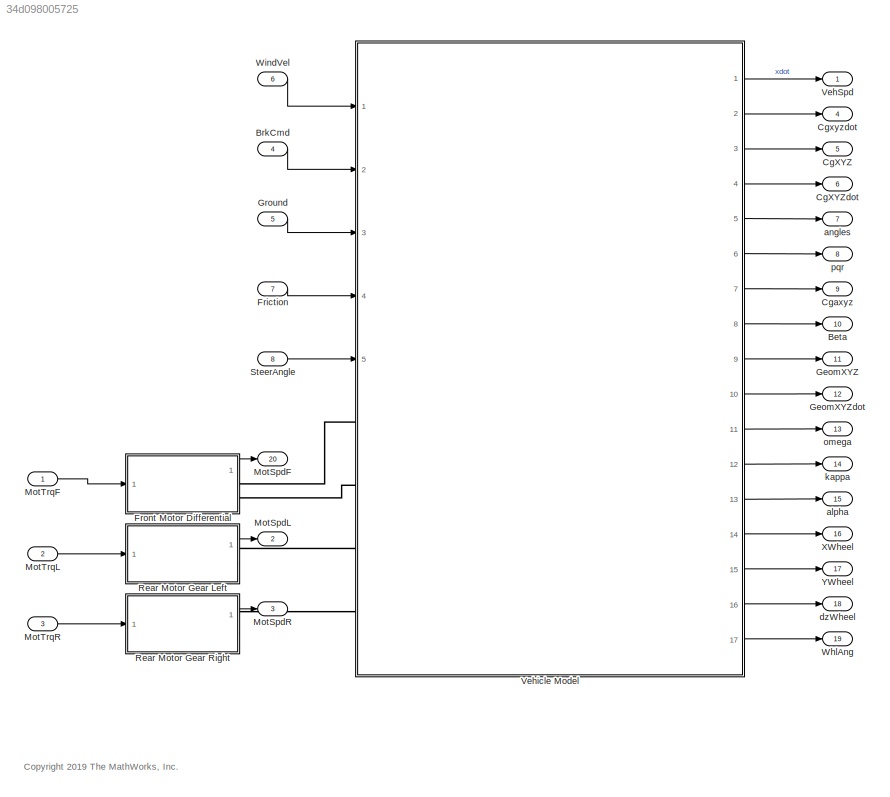
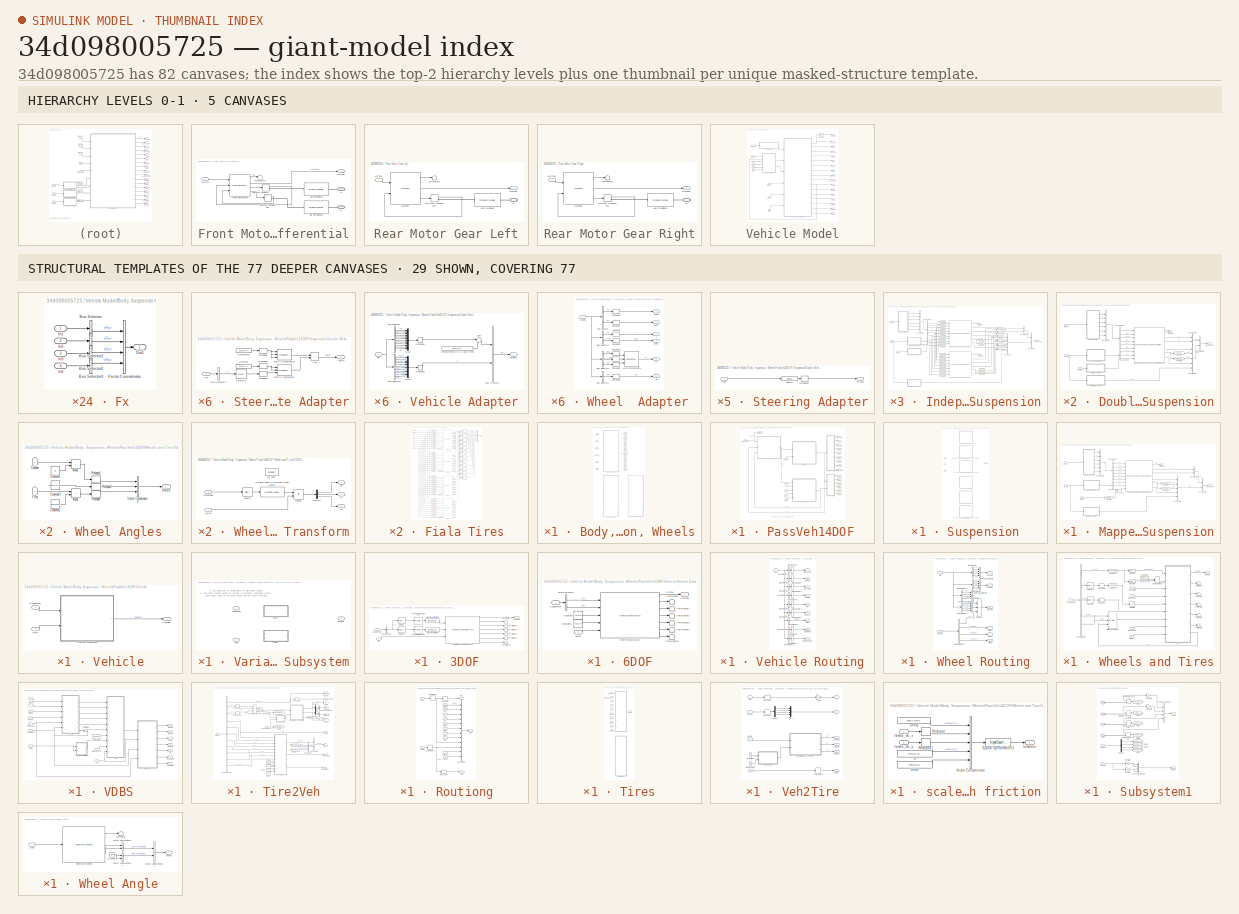
[diagram: thumbnail index - top-2 hierarchy levels (5 canvases) + 29 structural-template representatives of the remaining 77 canvases]
MODEL slx_34d098005725
KIND model
CONFIG AbsTol = auto
CONFIG EnableMultiTasking = off
CONFIG FixedStep = auto
CONFIG MaxStep = auto
CONFIG MinStep = auto
CONFIG RelTol = 1e-3
CONFIG SampleTimeConstraint = Unconstrained
CONFIG Solver = VariableStepAuto
CONFIG SolverName = VariableStepAuto
CONFIG StartTime = 0.0
CONFIG StopTime = 10.0
BLOCK [Outport] Beta
  Port = 10
  VectorParamsAs1DForOutWhenUnconnected = off
BLOCK [Inport] BrkCmd
  Port = 4
BLOCK [Outport] CgXYZ
  Port = 5
  VectorParamsAs1DForOutWhenUnconnected = off
BLOCK [Outport] CgXYZdot
  Port = 6
  VectorParamsAs1DForOutWhenUnconnected = off
BLOCK [Outport] Cgaxyz
  Port = 9
  VectorParamsAs1DForOutWhenUnconnected = off
BLOCK [Outport] Cgxyzdot
  Port = 4
  VectorParamsAs1DForOutWhenUnconnected = off
BLOCK [Inport] Friction
  Port = 7
BLOCK [SubSystem] Front Motor Differential
  Ports = [1, 1, 0, 0, 0, 0, 2]
  RequestExecContextInheritance = off
  VariantControl = 0
BLOCK [PMIOPort] Front Motor Differential/A1
  Side = Right
BLOCK [PMIOPort] Front Motor Differential/A2
  Port = 2
  Side = Right
BLOCK [Reference] Front Motor Differential/Axle Compliance  REF=autolibsharedcoupling/Torsional Compliance
  Ports = [0, 0, 0, 0, 0, 1, 1]
  SourceBlock = autolibsharedcoupling/Torsional Compliance
  SourceProductName = Powertrain Blockset
  SourceType = Torsional Compliance
BLOCK [Reference] Front Motor Differential/Axle Compliance1  REF=autolibsharedcoupling/Torsional Compliance
  Ports = [0, 0, 0, 0, 0, 1, 1]
  SourceBlock = autolibsharedcoupling/Torsional Compliance
  SourceProductName = Powertrain Blockset
  SourceType = Torsional Compliance
BLOCK [Outport] Front Motor Differential/MotSpdF
  VectorParamsAs1DForOutWhenUnconnected = off
BLOCK [Inport] Front Motor Differential/MotTrq
BLOCK [Reference] Front Motor Differential/Open Differential  REF=autolibshareddiff/Open Differential
  Ports = [3, 4]
  SourceBlock = autolibshareddiff/Open Differential
  SourceProductName = Powertrain Blockset
  SourceType = Open Differential
BLOCK [Terminator] Front Motor Differential/Terminator6
BLOCK [TwoWayConnection] Front Motor Differential/Two-Way Connection1
  Ports = [1, 1, 0, 0, 0, 0, 1]
BLOCK [TwoWayConnection] Front Motor Differential/Two-Way Connection3
  Ports = [1, 1, 0, 0, 0, 0, 1]
BLOCK [Outport] GeomXYZ
  Port = 11
  VectorParamsAs1DForOutWhenUnconnected = off
BLOCK [Outport] GeomXYZdot
  Port = 12
  VectorParamsAs1DForOutWhenUnconnected = off
BLOCK [Inport] Ground
  Port = 5
BLOCK [Outport] MotSpdF
  BusOutputAsStruct = on
  Port = 20
  SignalType = real
  VarSizeSig = No
  VectorParamsAs1DForOutWhenUnconnected = off
BLOCK [Outport] MotSpdL
  BusOutputAsStruct = on
  Port = 2
  SignalType = real
  VarSizeSig = No
  VectorParamsAs1DForOutWhenUnconnected = off
BLOCK [Outport] MotSpdR
  BusOutputAsStruct = on
  Port = 3
  SignalType = real
  VarSizeSig = No
  VectorParamsAs1DForOutWhenUnconnected = off
BLOCK [Inport] MotTrqF
BLOCK [Inport] MotTrqL
  Port = 2
BLOCK [Inport] MotTrqR
  Port = 3
BLOCK [SubSystem] Rear Motor Gear Left
  Ports = [1, 1, 0, 0, 0, 0, 1]
  RequestExecContextInheritance = off
  VariantControl = 0
BLOCK [PMIOPort] Rear Motor Gear Left/AL
  Side = Right
BLOCK [Reference] Rear Motor Gear Left/Axle Compliance  REF=autolibsharedcoupling/Torsional Compliance
  Ports = [0, 0, 0, 0, 0, 1, 1]
  SourceBlock = autolibsharedcoupling/Torsional Compliance
  SourceProductName = Powertrain Blockset
  SourceType = Torsional Compliance
BLOCK [Reference] Rear Motor Gear Left/Gearbox  REF=autolibcoupling/Gearbox
  Ports = [2, 3]
  SourceBlock = autolibcoupling/Gearbox
  SourceProductBaseCode = PW
  SourceType = Gearbox
BLOCK [Outport] Rear Motor Gear Left/MotSpdL
  VectorParamsAs1DForOutWhenUnconnected = off
BLOCK [Inport] Rear Motor Gear Left/MotTrqL
BLOCK [Terminator] Rear Motor Gear Left/Terminator6
BLOCK [TwoWayConnection] Rear Motor Gear Left/Two-Way Connection1
  Ports = [1, 1, 0, 0, 0, 0, 1]
BLOCK [SubSystem] Rear Motor Gear Right
  Ports = [1, 1, 0, 0, 0, 0, 1]
  RequestExecContextInheritance = off
  VariantControl = 0
BLOCK [PMIOPort] Rear Motor Gear Right/AR
  Side = Right
BLOCK [Reference] Rear Motor Gear Right/Axle Compliance  REF=autolibsharedcoupling/Torsional Compliance
  Ports = [0, 0, 0, 0, 0, 1, 1]
  SourceBlock = autolibsharedcoupling/Torsional Compliance
  SourceProductName = Powertrain Blockset
  SourceType = Torsional Compliance
BLOCK [Reference] Rear Motor Gear Right/Gearbox  REF=autolibcoupling/Gearbox
  Ports = [2, 3]
  SourceBlock = autolibcoupling/Gearbox
  SourceProductBaseCode = PW
  SourceType = Gearbox
BLOCK [Outport] Rear Motor Gear Right/MotSpdR
  VectorParamsAs1DForOutWhenUnconnected = off
BLOCK [Inport] Rear Motor Gear Right/MotTrqR
BLOCK [Terminator] Rear Motor Gear Right/Terminator6
BLOCK [TwoWayConnection] Rear Motor Gear Right/Two-Way Connection1
  Ports = [1, 1, 0, 0, 0, 0, 1]
BLOCK [Inport] SteerAngle
  Port = 8
BLOCK [Outport] VehSpd
  VectorParamsAs1DForOutWhenUnconnected = off
BLOCK [SubSystem] Vehicle Model
  Ports = [5, 17, 0, 0, 0, 4]
  RequestExecContextInheritance = off
BLOCK [PMIOPort] Vehicle Model/A1
  Side = Left
BLOCK [PMIOPort] Vehicle Model/A2
  Port = 2
  Side = Left
BLOCK [PMIOPort] Vehicle Model/A3
  Port = 3
  Side = Left
BLOCK [PMIOPort] Vehicle Model/A4
  Port = 4
  Side = Left
BLOCK [Outport] Vehicle Model/Beta
  Port = 8
  VectorParamsAs1DForOutWhenUnconnected = off
BLOCK [SubSystem] Vehicle Model/Body, Suspension, Wheels
  LabelModeActiveChoice = 1
  Ports = [6, 16]
  RequestExecContextInheritance = off
  Variant = on
  VariantControlMode = Label
BLOCK [Inport] Vehicle Model/Body, Suspension, Wheels/AxleTrq
  Port = 2
BLOCK [Outport] Vehicle Model/Body, Suspension, Wheels/Beta
  Port = 7
  VectorParamsAs1DForOutWhenUnconnected = off
BLOCK [Inport] Vehicle Model/Body, Suspension, Wheels/BrkPrs
  Port = 3
BLOCK [Outport] Vehicle Model/Body, Suspension, Wheels/CgXYZ
  Port = 2
  VectorParamsAs1DForOutWhenUnconnected = off
BLOCK [Outport] Vehicle Model/Body, Suspension, Wheels/CgXYZdot
  Port = 3
  VectorParamsAs1DForOutWhenUnconnected = off
BLOCK [Outport] Vehicle Model/Body, Suspension, Wheels/Cgaxyz
  Port = 6
  VectorParamsAs1DForOutWhenUnconnected = off
BLOCK [Outport] Vehicle Model/Body, Suspension, Wheels/Cgxyzdot
  VectorParamsAs1DForOutWhenUnconnected = off
BLOCK [Inport] Vehicle Model/Body, Suspension, Wheels/Friction
  Port = 6
BLOCK [Outport] Vehicle Model/Body, Suspension, Wheels/GeomXYZ
  Port = 8
  VectorParamsAs1DForOutWhenUnconnected = off
BLOCK [Outport] Vehicle Model/Body, Suspension, Wheels/GeomXYZdot
  Port = 9
  VectorParamsAs1DForOutWhenUnconnected = off
BLOCK [Inport] Vehicle Model/Body, Suspension, Wheels/Ground
  Port = 5
BLOCK [ModelReference] Vehicle Model/Body, Suspension, Wheels/Model
  ModelNameDialog = PassVeh14DOF_19b.slx
  ModelReferenceVersion = 1.318
  Ports = [6, 16]
  VariantControl = Choice
BLOCK [SubSystem] Vehicle Model/Body, Suspension, Wheels/PassVeh14DOF
  Ports = [6, 16]
  RequestExecContextInheritance = off
  VariantControl = 1
BLOCK [Inport] Vehicle Model/Body, Suspension, Wheels/PassVeh14DOF/AxleTrq
  Port = 2
  Unit = N*m
BLOCK [Outport] Vehicle Model/Body, Suspension, Wheels/PassVeh14DOF/Beta
  Port = 7
  VectorParamsAs1DForOutWhenUnconnected = off
BLOCK [Inport] Vehicle Model/Body, Suspension, Wheels/PassVeh14DOF/BrkPrs
  Port = 3
BLOCK [Outport] Vehicle Model/Body, Suspension, Wheels/PassVeh14DOF/CgXYZ
  Port = 2
  VectorParamsAs1DForOutWhenUnconnected = off
BLOCK [Outport] Vehicle Model/Body, Suspension, Wheels/PassVeh14DOF/CgXYZdot
  Port = 3
  VectorParamsAs1DForOutWhenUnconnected = off
BLOCK [Outport] Vehicle Model/Body, Suspension, Wheels/PassVeh14DOF/Cgaxyz
  Port = 6
  VectorParamsAs1DForOutWhenUnconnected = off
BLOCK [Outport] Vehicle Model/Body, Suspension, Wheels/PassVeh14DOF/Cgxyzdot
  VectorParamsAs1DForOutWhenUnconnected = off
BLOCK [Inport] Vehicle Model/Body, Suspension, Wheels/PassVeh14DOF/Friction
  Port = 6
  Unit = 1
BLOCK [Outport] Vehicle Model/Body, Suspension, Wheels/PassVeh14DOF/GeomXYZ
  Port = 8
  VectorParamsAs1DForOutWhenUnconnected = off
BLOCK [Outport] Vehicle Model/Body, Suspension, Wheels/PassVeh14DOF/GeomXYZdot
  Port = 9
  VectorParamsAs1DForOutWhenUnconnected = off
BLOCK [Inport] Vehicle Model/Body, Suspension, Wheels/PassVeh14DOF/Ground
  Port = 5
  Unit = m
BLOCK [SubSystem] Vehicle Model/Body, Suspension, Wheels/PassVeh14DOF/Suspension
  LabelModeActiveChoice = 2
  Ports = [3, 1]
  RequestExecContextInheritance = off
  Variant = on
  VariantControlMode = Label
BLOCK [SubSystem] Vehicle Model/Body, Suspension, Wheels/PassVeh14DOF/Suspension/Double Wishbone Suspension
  Ports = [3, 1]
  RequestExecContextInheritance = off
  VariantControl = 1
BLOCK [BusCreator] Vehicle Model/Body, Suspension, Wheels/PassVeh14DOF/Suspension/Double Wishbone Suspension/Bus Creator1
  DisplayOption = bar
  InheritFromInputs = on
  Inputs = 5
  Ports = [5, 1]
BLOCK [BusCreator] Vehicle Model/Body, Suspension, Wheels/PassVeh14DOF/Suspension/Double Wishbone Suspension/Bus Creator2
  DisplayOption = bar
  InheritFromInputs = on
  Inputs = 2
  Ports = [2, 1]
BLOCK [BusCreator] Vehicle Model/Body, Suspension, Wheels/PassVeh14DOF/Suspension/Double Wishbone Suspension/Bus Creator3
  DisplayOption = bar
  InheritFromInputs = on
  Inputs = 2
  Ports = [2, 1]
BLOCK [BusCreator] Vehicle Model/Body, Suspension, Wheels/PassVeh14DOF/Suspension/Double Wishbone Suspension/Bus Creator4
  DisplayOption = bar
  InheritFromInputs = on
  Inputs = 6
  Ports = [6, 1]
BLOCK [BusSelector] Vehicle Model/Body, Suspension, Wheels/PassVeh14DOF/Suspension/Double Wishbone Suspension/Bus Selector
  OutputSignals = z,Re,zdot,Fx,Fy,M
  Ports = [1, 6]
BLOCK [BusSelector] Vehicle Model/Body, Suspension, Wheels/PassVeh14DOF/Suspension/Double Wishbone Suspension/Bus Selector1
  OutputSignals = P,V
  Ports = [1, 2]
BLOCK [Reference] Vehicle Model/Body, Suspension, Wheels/PassVeh14DOF/Suspension/Double Wishbone Suspension/Independent Suspension – Double Wishbone  REF=vehdynlibsuspension/Independent Suspension - Double Wishbone
  Ports = [9, 6]
  SourceBlock = vehdynlibsuspension/Independent Suspension - Double Wishbone
  SourceProductBaseCode = VE
  SourceType = Vehicle suspension
BLOCK [Selector] Vehicle Model/Body, Suspension, Wheels/PassVeh14DOF/Suspension/Double Wishbone Suspension/Selector1
  IndexOptions = Index vector (dialog),Select all
  Indices = 1,1
  NumberOfDimensions = 2
  OutputSizes = 1,1
  Ports = [1, 1]
BLOCK [Selector] Vehicle Model/Body, Suspension, Wheels/PassVeh14DOF/Suspension/Double Wishbone Suspension/Selector2
  IndexOptions = Index vector (dialog),Select all
  Indices = 2,1
  NumberOfDimensions = 2
  OutputSizes = 1,1
  Ports = [1, 1]
BLOCK [SubSystem] Vehicle Model/Body, Suspension, Wheels/PassVeh14DOF/Suspension/Double Wishbone Suspension/Steer Rate Adapter
  Ports = [1, 1]
  RequestExecContextInheritance = off
BLOCK [Sum] Vehicle Model/Body, Suspension, Wheels/PassVeh14DOF/Suspension/Double Wishbone Suspension/Steer Rate Adapter/Add
  IconShape = rectangular
  Ports = [2, 1]
BLOCK [Outport] Vehicle Model/Body, Suspension, Wheels/PassVeh14DOF/Suspension/Double Wishbone Suspension/Steer Rate Adapter/AngVel
  VectorParamsAs1DForOutWhenUnconnected = off
BLOCK [BusSelector] Vehicle Model/Body, Suspension, Wheels/PassVeh14DOF/Suspension/Double Wishbone Suspension/Steer Rate Adapter/Bus Selector3
  OutputSignals = BdyFrm.Cg.AngVel.r
  Ports = [1, 1]
BLOCK [Constant] Vehicle Model/Body, Suspension, Wheels/PassVeh14DOF/Suspension/Double Wishbone Suspension/Steer Rate Adapter/Constant
  Value = zeros(1,4)
BLOCK [Concatenate] Vehicle Model/Body, Suspension, Wheels/PassVeh14DOF/Suspension/Double Wishbone Suspension/Steer Rate Adapter/Matrix Concatenate
  Mode = Multidimensional array
  NumInputs = 3
  Ports = [3, 1]
BLOCK [Concatenate] Vehicle Model/Body, Suspension, Wheels/PassVeh14DOF/Suspension/Double Wishbone Suspension/Steer Rate Adapter/Matrix Concatenate1
  Mode = Multidimensional array
  NumInputs = 3
  Ports = [3, 1]
BLOCK [Reshape] Vehicle Model/Body, Suspension, Wheels/PassVeh14DOF/Suspension/Double Wishbone Suspension/Steer Rate Adapter/Reshape2
  OutputDimensionality = Row vector (2-D)
  Ports = [1, 1]
BLOCK [Reshape] Vehicle Model/Body, Suspension, Wheels/PassVeh14DOF/Suspension/Double Wishbone Suspension/Steer Rate Adapter/Reshape3
  OutputDimensionality = Row vector (2-D)
  Ports = [1, 1]
BLOCK [Reshape] Vehicle Model/Body, Suspension, Wheels/PassVeh14DOF/Suspension/Double Wishbone Suspension/Steer Rate Adapter/Reshape4
  OutputDimensionality = Row vector (2-D)
  Ports = [1, 1]
BLOCK [Selector] Vehicle Model/Body, Suspension, Wheels/PassVeh14DOF/Suspension/Double Wishbone Suspension/Steer Rate Adapter/Selector3
  IndexOptions = Index vector (dialog)
  Indices = [1 1 1 1]
  InputPortWidth = 1
  OutputSizes = 1
  Ports = [1, 1]
BLOCK [Constant] Vehicle Model/Body, Suspension, Wheels/PassVeh14DOF/Suspension/Double Wishbone Suspension/Steer Rate Adapter/SteerRates
  Value = zeros(1,4)
BLOCK [Inport] Vehicle Model/Body, Suspension, Wheels/PassVeh14DOF/Suspension/Double Wishbone Suspension/Steer Rate Adapter/Veh
BLOCK [Inport] Vehicle Model/Body, Suspension, Wheels/PassVeh14DOF/Suspension/Double Wishbone Suspension/Steering
  Port = 2
BLOCK [SubSystem] Vehicle Model/Body, Suspension, Wheels/PassVeh14DOF/Suspension/Double Wishbone Suspension/Steering Adapter
  Ports = [1, 1]
  RequestExecContextInheritance = off
BLOCK [Reshape] Vehicle Model/Body, Suspension, Wheels/PassVeh14DOF/Suspension/Double Wishbone Suspension/Steering Adapter/Reshape1
  OutputDimensionality = Row vector (2-D)
  Ports = [1, 1]
BLOCK [Selector] Vehicle Model/Body, Suspension, Wheels/PassVeh14DOF/Suspension/Double Wishbone Suspension/Steering Adapter/Selector
  IndexOptions = Index vector (dialog)
  Indices = [1 2]
  OutputSizes = 1
  Ports = [1, 1]
BLOCK [Inport] Vehicle Model/Body, Suspension, Wheels/PassVeh14DOF/Suspension/Double Wishbone Suspension/Steering Adapter/Steer
BLOCK [Outport] Vehicle Model/Body, Suspension, Wheels/PassVeh14DOF/Suspension/Double Wishbone Suspension/Steering Adapter/StrgAng
  VectorParamsAs1DForOutWhenUnconnected = off
BLOCK [Outport] Vehicle Model/Body, Suspension, Wheels/PassVeh14DOF/Suspension/Double Wishbone Suspension/Suspension
  VectorParamsAs1DForOutWhenUnconnected = off
BLOCK [Terminator] Vehicle Model/Body, Suspension, Wheels/PassVeh14DOF/Suspension/Double Wishbone Suspension/Terminator
BLOCK [Inport] Vehicle Model/Body, Suspension, Wheels/PassVeh14DOF/Suspension/Double Wishbone Suspension/Vehicle
  Port = 3
BLOCK [SubSystem] Vehicle Model/Body, Suspension, Wheels/PassVeh14DOF/Suspension/Double Wishbone Suspension/Vehicle Adapter
  Ports = [1, 1]
  RequestExecContextInheritance = off
BLOCK [BusCreator] Vehicle Model/Body, Suspension, Wheels/PassVeh14DOF/Suspension/Double Wishbone Suspension/Vehicle Adapter/Bus Creator3
  DisplayOption = bar
  InheritFromInputs = on
  Inputs = 2
  Ports = [2, 1]
BLOCK [BusSelector] Vehicle Model/Body, Suspension, Wheels/PassVeh14DOF/Suspension/Double Wishbone Suspension/Vehicle Adapter/Bus Selector1
  OutputSignals = InertFrm.FrntAxl.Lft.Disp.X,InertFrm.FrntAxl.Lft.Disp.Y,InertFrm.FrntAxl.Lft.Disp.Z,InertFrm.FrntAxl.Rght.Disp.X,InertFrm.FrntAxl.Rght.Disp.Y,InertFrm.FrntAxl.Rght.Disp.Z,InertFrm.RearAxl.Lft.Disp.X,InertFrm.RearAxl.Lft.Disp.Y,InertFrm.RearAxl.Lft.Disp.Z,InertFrm.RearAxl.Rght.Disp.X,InertFrm.RearAxl.Rght.Disp.Y,InertFrm.RearAxl.Rght.Disp.Z  <repeated x6 — deduplicated; at blocks: Bus Selector1>
  Ports = [1, 12]
BLOCK [BusSelector] Vehicle Model/Body, Suspension, Wheels/PassVeh14DOF/Suspension/Double Wishbone Suspension/Vehicle Adapter/Bus Selector2
  OutputSignals = BdyFrm.FrntAxl.Lft.Vel.xdot,BdyFrm.FrntAxl.Lft.Vel.ydot,BdyFrm.FrntAxl.Lft.Vel.zdot,BdyFrm.FrntAxl.Rght.Vel.xdot,BdyFrm.FrntAxl.Rght.Vel.ydot,BdyFrm.FrntAxl.Rght.Vel.zdot,BdyFrm.RearAxl.Lft.Vel.xdot,BdyFrm.RearAxl.Lft.Vel.ydot,BdyFrm.RearAxl.Lft.Vel.zdot,BdyFrm.RearAxl.Rght.Vel.xdot,BdyFrm.RearAxl.Rght.Vel.ydot,BdyFrm.RearAxl.Rght.Vel.zdot  <repeated x6 — deduplicated; at blocks: Bus Selector2>
  Ports = [1, 12]
BLOCK [Constant] Vehicle Model/Body, Suspension, Wheels/PassVeh14DOF/Suspension/Double Wishbone Suspension/Vehicle Adapter/Inertial Frame CG to Axle Offset
  Value = [zeros(2,4);h*ones(1,4)+VEH.InitialVertPosition*0]
BLOCK [Mux] Vehicle Model/Body, Suspension, Wheels/PassVeh14DOF/Suspension/Double Wishbone Suspension/Vehicle Adapter/Mux1
  DisplayOption = bar
  Inputs = 12
  Ports = [12, 1]
BLOCK [Mux] Vehicle Model/Body, Suspension, Wheels/PassVeh14DOF/Suspension/Double Wishbone Suspension/Vehicle Adapter/Mux2
  DisplayOption = bar
  Inputs = 12
  Ports = [12, 1]
BLOCK [Reshape] Vehicle Model/Body, Suspension, Wheels/PassVeh14DOF/Suspension/Double Wishbone Suspension/Vehicle Adapter/Reshape1
  OutputDimensionality = Customize
  OutputDimensions = [3,4]
  Ports = [1, 1]
BLOCK [Reshape] Vehicle Model/Body, Suspension, Wheels/PassVeh14DOF/Suspension/Double Wishbone Suspension/Vehicle Adapter/Reshape2
  OutputDimensionality = Customize
  OutputDimensions = [3,4]
  Ports = [1, 1]
BLOCK [Sum] Vehicle Model/Body, Suspension, Wheels/PassVeh14DOF/Suspension/Double Wishbone Suspension/Vehicle Adapter/Sum
  Inputs = |+-
  Ports = [2, 1]
BLOCK [Inport] Vehicle Model/Body, Suspension, Wheels/PassVeh14DOF/Suspension/Double Wishbone Suspension/Vehicle Adapter/Veh
BLOCK [Outport] Vehicle Model/Body, Suspension, Wheels/PassVeh14DOF/Suspension/Double Wishbone Suspension/Vehicle Adapter/VehSusp
  VectorParamsAs1DForOutWhenUnconnected = off
BLOCK [Inport] Vehicle Model/Body, Suspension, Wheels/PassVeh14DOF/Suspension/Double Wishbone Suspension/Wheel
BLOCK [SubSystem] Vehicle Model/Body, Suspension, Wheels/PassVeh14DOF/Suspension/Double Wishbone Suspension/Wheel  Adapter
  Ports = [1, 6]
  RequestExecContextInheritance = off
BLOCK [BusSelector] Vehicle Model/Body, Suspension, Wheels/PassVeh14DOF/Suspension/Double Wishbone Suspension/Wheel  Adapter/Bus Selector
  OutputSignals = TireFrame.Fx,TireFrame.Fy
  Ports = [1, 2]
BLOCK [BusSelector] Vehicle Model/Body, Suspension, Wheels/PassVeh14DOF/Suspension/Double Wishbone Suspension/Wheel  Adapter/Bus Selector1
  OutputSignals = TireFrame.Re
  Ports = [1, 1]
BLOCK [BusSelector] Vehicle Model/Body, Suspension, Wheels/PassVeh14DOF/Suspension/Double Wishbone Suspension/Wheel  Adapter/Bus Selector2
  OutputSignals = TireFrame.Mx,TireFrame.My,TireFrame.Mz
  Ports = [1, 3]
BLOCK [BusSelector] Vehicle Model/Body, Suspension, Wheels/PassVeh14DOF/Suspension/Double Wishbone Suspension/Wheel  Adapter/Bus Selector3
  OutputSignals = TireFrame.z,TireFrame.zdot
  Ports = [1, 2]
BLOCK [Outport] Vehicle Model/Body, Suspension, Wheels/PassVeh14DOF/Suspension/Double Wishbone Suspension/Wheel  Adapter/M
  Port = 5
  VectorParamsAs1DForOutWhenUnconnected = off
BLOCK [Concatenate] Vehicle Model/Body, Suspension, Wheels/PassVeh14DOF/Suspension/Double Wishbone Suspension/Wheel  Adapter/Matrix Concatenate
  Mode = Multidimensional array
  NumInputs = 3
  Ports = [3, 1]
BLOCK [Outport] Vehicle Model/Body, Suspension, Wheels/PassVeh14DOF/Suspension/Double Wishbone Suspension/Wheel  Adapter/Re
  Port = 6
  VectorParamsAs1DForOutWhenUnconnected = off
BLOCK [Reshape] Vehicle Model/Body, Suspension, Wheels/PassVeh14DOF/Suspension/Double Wishbone Suspension/Wheel  Adapter/Reshape
  OutputDimensionality = Row vector (2-D)
  Ports = [1, 1]
BLOCK [Reshape] Vehicle Model/Body, Suspension, Wheels/PassVeh14DOF/Suspension/Double Wishbone Suspension/Wheel  Adapter/Reshape1
  OutputDimensionality = Row vector (2-D)
  Ports = [1, 1]
BLOCK [Reshape] Vehicle Model/Body, Suspension, Wheels/PassVeh14DOF/Suspension/Double Wishbone Suspension/Wheel  Adapter/Reshape2
  OutputDimensionality = Row vector (2-D)
  Ports = [1, 1]
BLOCK [Reshape] Vehicle Model/Body, Suspension, Wheels/PassVeh14DOF/Suspension/Double Wishbone Suspension/Wheel  Adapter/Reshape3
  OutputDimensionality = Row vector (2-D)
  Ports = [1, 1]
BLOCK [Reshape] Vehicle Model/Body, Suspension, Wheels/PassVeh14DOF/Suspension/Double Wishbone Suspension/Wheel  Adapter/Reshape4
  OutputDimensionality = Row vector (2-D)
  Ports = [1, 1]
BLOCK [Reshape] Vehicle Model/Body, Suspension, Wheels/PassVeh14DOF/Suspension/Double Wishbone Suspension/Wheel  Adapter/Reshape5
  OutputDimensionality = Row vector (2-D)
  Ports = [1, 1]
BLOCK [Reshape] Vehicle Model/Body, Suspension, Wheels/PassVeh14DOF/Suspension/Double Wishbone Suspension/Wheel  Adapter/Reshape6
  OutputDimensionality = Row vector (2-D)
  Ports = [1, 1]
BLOCK [Reshape] Vehicle Model/Body, Suspension, Wheels/PassVeh14DOF/Suspension/Double Wishbone Suspension/Wheel  Adapter/Reshape7
  OutputDimensionality = Row vector (2-D)
  Ports = [1, 1]
BLOCK [Inport] Vehicle Model/Body, Suspension, Wheels/PassVeh14DOF/Suspension/Double Wishbone Suspension/Wheel  Adapter/Wheels
BLOCK [Outport] Vehicle Model/Body, Suspension, Wheels/PassVeh14DOF/Suspension/Double Wishbone Suspension/Wheel  Adapter/WhlFx
  VectorParamsAs1DForOutWhenUnconnected = off
BLOCK [Outport] Vehicle Model/Body, Suspension, Wheels/PassVeh14DOF/Suspension/Double Wishbone Suspension/Wheel  Adapter/WhlFy
  Port = 2
  VectorParamsAs1DForOutWhenUnconnected = off
BLOCK [Outport] Vehicle Model/Body, Suspension, Wheels/PassVeh14DOF/Suspension/Double Wishbone Suspension/Wheel  Adapter/z
  Port = 3
  VectorParamsAs1DForOutWhenUnconnected = off
BLOCK [Outport] Vehicle Model/Body, Suspension, Wheels/PassVeh14DOF/Suspension/Double Wishbone Suspension/Wheel  Adapter/zdot
  Port = 4
  VectorParamsAs1DForOutWhenUnconnected = off
BLOCK [SubSystem] Vehicle Model/Body, Suspension, Wheels/PassVeh14DOF/Suspension/Independent Mapped Front Suspension Mapped Solid Axle Rear Suspension
  Ports = [3, 1]
  RequestExecContextInheritance = off
  VariantControl = 2
BLOCK [BusCreator] Vehicle Model/Body, Suspension, Wheels/PassVeh14DOF/Suspension/Independent Mapped Front Suspension Mapped Solid Axle Rear Suspension/Bus Creator1
  DisplayOption = bar
  InheritFromInputs = on
  Inputs = 5
  Ports = [5, 1]
BLOCK [BusCreator] Vehicle Model/Body, Suspension, Wheels/PassVeh14DOF/Suspension/Independent Mapped Front Suspension Mapped Solid Axle Rear Suspension/Bus Creator2
  DisplayOption = bar
  InheritFromInputs = on
  Inputs = 2
  Ports = [2, 1]
BLOCK [BusCreator] Vehicle Model/Body, Suspension, Wheels/PassVeh14DOF/Suspension/Independent Mapped Front Suspension Mapped Solid Axle Rear Suspension/Bus Creator3
  DisplayOption = bar
  InheritFromInputs = on
  Inputs = 2
  Ports = [2, 1]
BLOCK [BusCreator] Vehicle Model/Body, Suspension, Wheels/PassVeh14DOF/Suspension/Independent Mapped Front Suspension Mapped Solid Axle Rear Suspension/Bus Creator4
  DisplayOption = bar
  InheritFromInputs = on
  Inputs = 6
  Ports = [6, 1]
BLOCK [BusSelector] Vehicle Model/Body, Suspension, Wheels/PassVeh14DOF/Suspension/Independent Mapped Front Suspension Mapped Solid Axle Rear Suspension/Bus Selector
  OutputSignals = z,Re,zdot,Fx,Fy,M
  Ports = [1, 6]
BLOCK [BusSelector] Vehicle Model/Body, Suspension, Wheels/PassVeh14DOF/Suspension/Independent Mapped Front Suspension Mapped Solid Axle Rear Suspension/Bus Selector1
  OutputSignals = P,V
  Ports = [1, 2]
BLOCK [Reference] Vehicle Model/Body, Suspension, Wheels/PassVeh14DOF/Suspension/Independent Mapped Front Suspension Mapped Solid Axle Rear Suspension/Independent Suspension - Mapped  REF=vehdynlibsuspension/Independent Suspension - Mapped
  Ports = [9, 6]
  SourceBlock = vehdynlibsuspension/Independent Suspension - Mapped
  SourceProductBaseCode = VE
  SourceType = Vehicle suspension
BLOCK [Concatenate] Vehicle Model/Body, Suspension, Wheels/PassVeh14DOF/Suspension/Independent Mapped Front Suspension Mapped Solid Axle Rear Suspension/Matrix Concatenate
  ConcatenateDimension = 2
  Mode = Multidimensional array
  Ports = [2, 1]
BLOCK [Concatenate] Vehicle Model/Body, Suspension, Wheels/PassVeh14DOF/Suspension/Independent Mapped Front Suspension Mapped Solid Axle Rear Suspension/Matrix Concatenate1
  ConcatenateDimension = 2
  Mode = Multidimensional array
  Ports = [2, 1]
BLOCK [Concatenate] Vehicle Model/Body, Suspension, Wheels/PassVeh14DOF/Suspension/Independent Mapped Front Suspension Mapped Solid Axle Rear Suspension/Matrix Concatenate2
  ConcatenateDimension = 2
  Mode = Multidimensional array
  Ports = [2, 1]
BLOCK [Concatenate] Vehicle Model/Body, Suspension, Wheels/PassVeh14DOF/Suspension/Independent Mapped Front Suspension Mapped Solid Axle Rear Suspension/Matrix Concatenate4
  ConcatenateDimension = 2
  Mode = Multidimensional array
  Ports = [2, 1]
BLOCK [Concatenate] Vehicle Model/Body, Suspension, Wheels/PassVeh14DOF/Suspension/Independent Mapped Front Suspension Mapped Solid Axle Rear Suspension/Matrix Concatenate5
  ConcatenateDimension = 2
  Mode = Multidimensional array
  Ports = [2, 1]
BLOCK [Concatenate] Vehicle Model/Body, Suspension, Wheels/PassVeh14DOF/Suspension/Independent Mapped Front Suspension Mapped Solid Axle Rear Suspension/Matrix Concatenate6
  ConcatenateDimension = 2
  Mode = Multidimensional array
  Ports = [2, 1]
BLOCK [Selector] Vehicle Model/Body, Suspension, Wheels/PassVeh14DOF/Suspension/Independent Mapped Front Suspension Mapped Solid Axle Rear Suspension/Selector1
  IndexOptions = Select all,Index vector (dialog)
  Indices = [1 2],[3 4]
  NumberOfDimensions = 2
  OutputSizes = 1,1
  Ports = [1, 1]
BLOCK [Selector] Vehicle Model/Body, Suspension, Wheels/PassVeh14DOF/Suspension/Independent Mapped Front Suspension Mapped Solid Axle Rear Suspension/Selector10
  IndexOptions = Select all,Index vector (dialog)
  Indices = [1 2],[1 2]
  NumberOfDimensions = 2
  OutputSizes = 1,1
  Ports = [1, 1]
BLOCK [Selector] Vehicle Model/Body, Suspension, Wheels/PassVeh14DOF/Suspension/Independent Mapped Front Suspension Mapped Solid Axle Rear Suspension/Selector11
  IndexOptions = Select all,Index vector (dialog)
  Indices = [1 2],[1 2]
  NumberOfDimensions = 2
  OutputSizes = 1,1
  Ports = [1, 1]
BLOCK [Selector] Vehicle Model/Body, Suspension, Wheels/PassVeh14DOF/Suspension/Independent Mapped Front Suspension Mapped Solid Axle Rear Suspension/Selector12
  IndexOptions = Index vector (dialog),Select all
  Indices = 1,1
  InputPortWidth = 3
  NumberOfDimensions = 2
  OutputSizes = 1,1
  Ports = [1, 1]
BLOCK [Selector] Vehicle Model/Body, Suspension, Wheels/PassVeh14DOF/Suspension/Independent Mapped Front Suspension Mapped Solid Axle Rear Suspension/Selector13
  IndexOptions = Index vector (dialog),Select all
  Indices = 2,1
  InputPortWidth = 3
  NumberOfDimensions = 2
  OutputSizes = 1,1
  Ports = [1, 1]
BLOCK [Selector] Vehicle Model/Body, Suspension, Wheels/PassVeh14DOF/Suspension/Independent Mapped Front Suspension Mapped Solid Axle Rear Suspension/Selector14
  IndexOptions = Index vector (dialog),Select all
  Indices = 1,1
  InputPortWidth = 3
  NumberOfDimensions = 2
  OutputSizes = 1,1
  Ports = [1, 1]
BLOCK [Selector] Vehicle Model/Body, Suspension, Wheels/PassVeh14DOF/Suspension/Independent Mapped Front Suspension Mapped Solid Axle Rear Suspension/Selector15
  IndexOptions = Index vector (dialog),Select all
  Indices = 2,1
  InputPortWidth = 3
  NumberOfDimensions = 2
  OutputSizes = 1,1
  Ports = [1, 1]
BLOCK [Selector] Vehicle Model/Body, Suspension, Wheels/PassVeh14DOF/Suspension/Independent Mapped Front Suspension Mapped Solid Axle Rear Suspension/Selector16
  IndexOptions = Index vector (dialog)
  Indices = [3 4]
  OutputSizes = 1
  Ports = [1, 1]
BLOCK [Selector] Vehicle Model/Body, Suspension, Wheels/PassVeh14DOF/Suspension/Independent Mapped Front Suspension Mapped Solid Axle Rear Suspension/Selector17
  IndexOptions = Select all,Index vector (dialog)
  Indices = [1 2],[3 4]
  NumberOfDimensions = 2
  OutputSizes = 1,1
  Ports = [1, 1]
BLOCK [Selector] Vehicle Model/Body, Suspension, Wheels/PassVeh14DOF/Suspension/Independent Mapped Front Suspension Mapped Solid Axle Rear Suspension/Selector18
  IndexOptions = Select all,Index vector (dialog)
  Indices = [1 2],[3 4]
  NumberOfDimensions = 2
  OutputSizes = 1,1
  Ports = [1, 1]
BLOCK [Selector] Vehicle Model/Body, Suspension, Wheels/PassVeh14DOF/Suspension/Independent Mapped Front Suspension Mapped Solid Axle Rear Suspension/Selector2
  IndexOptions = Index vector (dialog)
  Indices = [1 2]
  OutputSizes = 1
  Ports = [1, 1]
BLOCK [Selector] Vehicle Model/Body, Suspension, Wheels/PassVeh14DOF/Suspension/Independent Mapped Front Suspension Mapped Solid Axle Rear Suspension/Selector20
  IndexOptions = Index vector (dialog)
  Indices = [3 4]
  OutputSizes = 1
  Ports = [1, 1]
BLOCK [Selector] Vehicle Model/Body, Suspension, Wheels/PassVeh14DOF/Suspension/Independent Mapped Front Suspension Mapped Solid Axle Rear Suspension/Selector21
  IndexOptions = Index vector (dialog)
  Indices = [3 4]
  OutputSizes = 1
  Ports = [1, 1]
BLOCK [Selector] Vehicle Model/Body, Suspension, Wheels/PassVeh14DOF/Suspension/Independent Mapped Front Suspension Mapped Solid Axle Rear Suspension/Selector22
  IndexOptions = Index vector (dialog)
  Indices = [3 4]
  OutputSizes = 1
  Ports = [1, 1]
BLOCK [Selector] Vehicle Model/Body, Suspension, Wheels/PassVeh14DOF/Suspension/Independent Mapped Front Suspension Mapped Solid Axle Rear Suspension/Selector3
  IndexOptions = Index vector (dialog)
  Indices = [3 4]
  OutputSizes = 1
  Ports = [1, 1]
BLOCK [Selector] Vehicle Model/Body, Suspension, Wheels/PassVeh14DOF/Suspension/Independent Mapped Front Suspension Mapped Solid Axle Rear Suspension/Selector4
  IndexOptions = Index vector (dialog)
  Indices = [1 2]
  OutputSizes = 1
  Ports = [1, 1]
BLOCK [Selector] Vehicle Model/Body, Suspension, Wheels/PassVeh14DOF/Suspension/Independent Mapped Front Suspension Mapped Solid Axle Rear Suspension/Selector5
  IndexOptions = Index vector (dialog)
  Indices = [1 2]
  OutputSizes = 1
  Ports = [1, 1]
BLOCK [Selector] Vehicle Model/Body, Suspension, Wheels/PassVeh14DOF/Suspension/Independent Mapped Front Suspension Mapped Solid Axle Rear Suspension/Selector6
  IndexOptions = Index vector (dialog)
  Indices = [1 2]
  OutputSizes = 1
  Ports = [1, 1]
BLOCK [Selector] Vehicle Model/Body, Suspension, Wheels/PassVeh14DOF/Suspension/Independent Mapped Front Suspension Mapped Solid Axle Rear Suspension/Selector7
  IndexOptions = Index vector (dialog)
  Indices = [1 2]
  OutputSizes = 1
  Ports = [1, 1]
BLOCK [Selector] Vehicle Model/Body, Suspension, Wheels/PassVeh14DOF/Suspension/Independent Mapped Front Suspension Mapped Solid Axle Rear Suspension/Selector8
  IndexOptions = Index vector (dialog)
  Indices = [1 2]
  OutputSizes = 1
  Ports = [1, 1]
BLOCK [Selector] Vehicle Model/Body, Suspension, Wheels/PassVeh14DOF/Suspension/Independent Mapped Front Suspension Mapped Solid Axle Rear Suspension/Selector9
  IndexOptions = Select all,Index vector (dialog)
  Indices = [1 2],[1 2]
  NumberOfDimensions = 2
  OutputSizes = 1,1
  Ports = [1, 1]
BLOCK [Reference] Vehicle Model/Body, Suspension, Wheels/PassVeh14DOF/Suspension/Independent Mapped Front Suspension Mapped Solid Axle Rear Suspension/Solid Axle Suspension - Mapped  REF=vehdynlibsuspension/Solid Axle Suspension - Mapped
  Ports = [8, 6]
  SourceBlock = vehdynlibsuspension/Solid Axle Suspension - Mapped
  SourceProductBaseCode = VE
  SourceType = Vehicle suspension
BLOCK [SubSystem] Vehicle Model/Body, Suspension, Wheels/PassVeh14DOF/Suspension/Independent Mapped Front Suspension Mapped Solid Axle Rear Suspension/Steer Rate Adapter
  Ports = [1, 1]
  RequestExecContextInheritance = off
BLOCK [Sum] Vehicle Model/Body, Suspension, Wheels/PassVeh14DOF/Suspension/Independent Mapped Front Suspension Mapped Solid Axle Rear Suspension/Steer Rate Adapter/Add
  IconShape = rectangular
  Ports = [2, 1]
BLOCK [Outport] Vehicle Model/Body, Suspension, Wheels/PassVeh14DOF/Suspension/Independent Mapped Front Suspension Mapped Solid Axle Rear Suspension/Steer Rate Adapter/AngVel
  VectorParamsAs1DForOutWhenUnconnected = off
BLOCK [BusSelector] Vehicle Model/Body, Suspension, Wheels/PassVeh14DOF/Suspension/Independent Mapped Front Suspension Mapped Solid Axle Rear Suspension/Steer Rate Adapter/Bus Selector3
  OutputSignals = BdyFrm.Cg.AngVel.r
  Ports = [1, 1]
BLOCK [Constant] Vehicle Model/Body, Suspension, Wheels/PassVeh14DOF/Suspension/Independent Mapped Front Suspension Mapped Solid Axle Rear Suspension/Steer Rate Adapter/Constant
  Value = zeros(1,4)
BLOCK [Concatenate] Vehicle Model/Body, Suspension, Wheels/PassVeh14DOF/Suspension/Independent Mapped Front Suspension Mapped Solid Axle Rear Suspension/Steer Rate Adapter/Matrix Concatenate
  Mode = Multidimensional array
  NumInputs = 3
  Ports = [3, 1]
BLOCK [Concatenate] Vehicle Model/Body, Suspension, Wheels/PassVeh14DOF/Suspension/Independent Mapped Front Suspension Mapped Solid Axle Rear Suspension/Steer Rate Adapter/Matrix Concatenate1
  Mode = Multidimensional array
  NumInputs = 3
  Ports = [3, 1]
BLOCK [Reshape] Vehicle Model/Body, Suspension, Wheels/PassVeh14DOF/Suspension/Independent Mapped Front Suspension Mapped Solid Axle Rear Suspension/Steer Rate Adapter/Reshape2
  OutputDimensionality = Row vector (2-D)
  Ports = [1, 1]
BLOCK [Reshape] Vehicle Model/Body, Suspension, Wheels/PassVeh14DOF/Suspension/Independent Mapped Front Suspension Mapped Solid Axle Rear Suspension/Steer Rate Adapter/Reshape3
  OutputDimensionality = Row vector (2-D)
  Ports = [1, 1]
BLOCK [Reshape] Vehicle Model/Body, Suspension, Wheels/PassVeh14DOF/Suspension/Independent Mapped Front Suspension Mapped Solid Axle Rear Suspension/Steer Rate Adapter/Reshape4
  OutputDimensionality = Row vector (2-D)
  Ports = [1, 1]
BLOCK [Selector] Vehicle Model/Body, Suspension, Wheels/PassVeh14DOF/Suspension/Independent Mapped Front Suspension Mapped Solid Axle Rear Suspension/Steer Rate Adapter/Selector3
  IndexOptions = Index vector (dialog)
  Indices = [1 1 1 1]
  InputPortWidth = 1
  OutputSizes = 1
  Ports = [1, 1]
BLOCK [Constant] Vehicle Model/Body, Suspension, Wheels/PassVeh14DOF/Suspension/Independent Mapped Front Suspension Mapped Solid Axle Rear Suspension/Steer Rate Adapter/SteerRates
  Value = zeros(1,4)
BLOCK [Inport] Vehicle Model/Body, Suspension, Wheels/PassVeh14DOF/Suspension/Independent Mapped Front Suspension Mapped Solid Axle Rear Suspension/Steer Rate Adapter/Veh
BLOCK [Inport] Vehicle Model/Body, Suspension, Wheels/PassVeh14DOF/Suspension/Independent Mapped Front Suspension Mapped Solid Axle Rear Suspension/Steering
  Port = 2
BLOCK [SubSystem] Vehicle Model/Body, Suspension, Wheels/PassVeh14DOF/Suspension/Independent Mapped Front Suspension Mapped Solid Axle Rear Suspension/Steering Adapter
  Ports = [1, 1]
  RequestExecContextInheritance = off
BLOCK [Reshape] Vehicle Model/Body, Suspension, Wheels/PassVeh14DOF/Suspension/Independent Mapped Front Suspension Mapped Solid Axle Rear Suspension/Steering Adapter/Reshape1
  OutputDimensionality = Row vector (2-D)
  Ports = [1, 1]
BLOCK [Selector] Vehicle Model/Body, Suspension, Wheels/PassVeh14DOF/Suspension/Independent Mapped Front Suspension Mapped Solid Axle Rear Suspension/Steering Adapter/Selector
  IndexOptions = Index vector (dialog)
  Indices = [1 2]
  OutputSizes = 1
  Ports = [1, 1]
BLOCK [Inport] Vehicle Model/Body, Suspension, Wheels/PassVeh14DOF/Suspension/Independent Mapped Front Suspension Mapped Solid Axle Rear Suspension/Steering Adapter/Steer
BLOCK [Outport] Vehicle Model/Body, Suspension, Wheels/PassVeh14DOF/Suspension/Independent Mapped Front Suspension Mapped Solid Axle Rear Suspension/Steering Adapter/StrgAng
  VectorParamsAs1DForOutWhenUnconnected = off
BLOCK [Outport] Vehicle Model/Body, Suspension, Wheels/PassVeh14DOF/Suspension/Independent Mapped Front Suspension Mapped Solid Axle Rear Suspension/Suspension
  VectorParamsAs1DForOutWhenUnconnected = off
BLOCK [Terminator] Vehicle Model/Body, Suspension, Wheels/PassVeh14DOF/Suspension/Independent Mapped Front Suspension Mapped Solid Axle Rear Suspension/Terminator
BLOCK [Terminator] Vehicle Model/Body, Suspension, Wheels/PassVeh14DOF/Suspension/Independent Mapped Front Suspension Mapped Solid Axle Rear Suspension/Terminator1
BLOCK [Inport] Vehicle Model/Body, Suspension, Wheels/PassVeh14DOF/Suspension/Independent Mapped Front Suspension Mapped Solid Axle Rear Suspension/Vehicle
  Port = 3
BLOCK [SubSystem] Vehicle Model/Body, Suspension, Wheels/PassVeh14DOF/Suspension/Independent Mapped Front Suspension Mapped Solid Axle Rear Suspension/Vehicle Adapter
  Ports = [1, 1]
  RequestExecContextInheritance = off
BLOCK [BusCreator] Vehicle Model/Body, Suspension, Wheels/PassVeh14DOF/Suspension/Independent Mapped Front Suspension Mapped Solid Axle Rear Suspension/Vehicle Adapter/Bus Creator3
  DisplayOption = bar
  InheritFromInputs = on
  Inputs = 2
  Ports = [2, 1]
BLOCK [BusSelector] Vehicle Model/Body, Suspension, Wheels/PassVeh14DOF/Suspension/Independent Mapped Front Suspension Mapped Solid Axle Rear Suspension/Vehicle Adapter/Bus Selector1
  Ports = [1, 12]
BLOCK [BusSelector] Vehicle Model/Body, Suspension, Wheels/PassVeh14DOF/Suspension/Independent Mapped Front Suspension Mapped Solid Axle Rear Suspension/Vehicle Adapter/Bus Selector2
  Ports = [1, 12]
BLOCK [Constant] Vehicle Model/Body, Suspension, Wheels/PassVeh14DOF/Suspension/Independent Mapped Front Suspension Mapped Solid Axle Rear Suspension/Vehicle Adapter/Inertial Frame CG to Axle Offset
  Value = [zeros(2,4);h*ones(1,4)]
BLOCK [Mux] Vehicle Model/Body, Suspension, Wheels/PassVeh14DOF/Suspension/Independent Mapped Front Suspension Mapped Solid Axle Rear Suspension/Vehicle Adapter/Mux1
  DisplayOption = bar
  Inputs = 12
  Ports = [12, 1]
BLOCK [Mux] Vehicle Model/Body, Suspension, Wheels/PassVeh14DOF/Suspension/Independent Mapped Front Suspension Mapped Solid Axle Rear Suspension/Vehicle Adapter/Mux2
  DisplayOption = bar
  Inputs = 12
  Ports = [12, 1]
BLOCK [Reshape] Vehicle Model/Body, Suspension, Wheels/PassVeh14DOF/Suspension/Independent Mapped Front Suspension Mapped Solid Axle Rear Suspension/Vehicle Adapter/Reshape
  OutputDimensionality = Customize
  OutputDimensions = [3,4]
  Ports = [1, 1]
BLOCK [Reshape] Vehicle Model/Body, Suspension, Wheels/PassVeh14DOF/Suspension/Independent Mapped Front Suspension Mapped Solid Axle Rear Suspension/Vehicle Adapter/Reshape2
  OutputDimensionality = Customize
  OutputDimensions = [3,4]
  Ports = [1, 1]
BLOCK [Sum] Vehicle Model/Body, Suspension, Wheels/PassVeh14DOF/Suspension/Independent Mapped Front Suspension Mapped Solid Axle Rear Suspension/Vehicle Adapter/Sum
  Inputs = |+-
  Ports = [2, 1]
BLOCK [Inport] Vehicle Model/Body, Suspension, Wheels/PassVeh14DOF/Suspension/Independent Mapped Front Suspension Mapped Solid Axle Rear Suspension/Vehicle Adapter/Veh
BLOCK [Outport] Vehicle Model/Body, Suspension, Wheels/PassVeh14DOF/Suspension/Independent Mapped Front Suspension Mapped Solid Axle Rear Suspension/Vehicle Adapter/VehSusp
  VectorParamsAs1DForOutWhenUnconnected = off
BLOCK [Inport] Vehicle Model/Body, Suspension, Wheels/PassVeh14DOF/Suspension/Independent Mapped Front Suspension Mapped Solid Axle Rear Suspension/Wheel
BLOCK [SubSystem] Vehicle Model/Body, Suspension, Wheels/PassVeh14DOF/Suspension/Independent Mapped Front Suspension Mapped Solid Axle Rear Suspension/Wheel  Adapter
  Ports = [1, 6]
  RequestExecContextInheritance = off
BLOCK [BusSelector] Vehicle Model/Body, Suspension, Wheels/PassVeh14DOF/Suspension/Independent Mapped Front Suspension Mapped Solid Axle Rear Suspension/Wheel  Adapter/Bus Selector
  OutputSignals = TireFrame.Fx,TireFrame.Fy
  Ports = [1, 2]
BLOCK [BusSelector] Vehicle Model/Body, Suspension, Wheels/PassVeh14DOF/Suspension/Independent Mapped Front Suspension Mapped Solid Axle Rear Suspension/Wheel  Adapter/Bus Selector1
  OutputSignals = TireFrame.Re
  Ports = [1, 1]
BLOCK [BusSelector] Vehicle Model/Body, Suspension, Wheels/PassVeh14DOF/Suspension/Independent Mapped Front Suspension Mapped Solid Axle Rear Suspension/Wheel  Adapter/Bus Selector2
  OutputSignals = TireFrame.Mx,TireFrame.My,TireFrame.Mz
  Ports = [1, 3]
BLOCK [BusSelector] Vehicle Model/Body, Suspension, Wheels/PassVeh14DOF/Suspension/Independent Mapped Front Suspension Mapped Solid Axle Rear Suspension/Wheel  Adapter/Bus Selector3
  OutputSignals = TireFrame.z,TireFrame.zdot
  Ports = [1, 2]
BLOCK [Outport] Vehicle Model/Body, Suspension, Wheels/PassVeh14DOF/Suspension/Independent Mapped Front Suspension Mapped Solid Axle Rear Suspension/Wheel  Adapter/M
  Port = 5
  VectorParamsAs1DForOutWhenUnconnected = off
BLOCK [Concatenate] Vehicle Model/Body, Suspension, Wheels/PassVeh14DOF/Suspension/Independent Mapped Front Suspension Mapped Solid Axle Rear Suspension/Wheel  Adapter/Matrix Concatenate
  Mode = Multidimensional array
  NumInputs = 3
  Ports = [3, 1]
BLOCK [Outport] Vehicle Model/Body, Suspension, Wheels/PassVeh14DOF/Suspension/Independent Mapped Front Suspension Mapped Solid Axle Rear Suspension/Wheel  Adapter/Re
  Port = 6
  VectorParamsAs1DForOutWhenUnconnected = off
BLOCK [Reshape] Vehicle Model/Body, Suspension, Wheels/PassVeh14DOF/Suspension/Independent Mapped Front Suspension Mapped Solid Axle Rear Suspension/Wheel  Adapter/Reshape
  OutputDimensionality = Row vector (2-D)
  Ports = [1, 1]
BLOCK [Reshape] Vehicle Model/Body, Suspension, Wheels/PassVeh14DOF/Suspension/Independent Mapped Front Suspension Mapped Solid Axle Rear Suspension/Wheel  Adapter/Reshape1
  OutputDimensionality = Row vector (2-D)
  Ports = [1, 1]
BLOCK [Reshape] Vehicle Model/Body, Suspension, Wheels/PassVeh14DOF/Suspension/Independent Mapped Front Suspension Mapped Solid Axle Rear Suspension/Wheel  Adapter/Reshape2
  OutputDimensionality = Row vector (2-D)
  Ports = [1, 1]
BLOCK [Reshape] Vehicle Model/Body, Suspension, Wheels/PassVeh14DOF/Suspension/Independent Mapped Front Suspension Mapped Solid Axle Rear Suspension/Wheel  Adapter/Reshape3
  OutputDimensionality = Row vector (2-D)
  Ports = [1, 1]
BLOCK [Reshape] Vehicle Model/Body, Suspension, Wheels/PassVeh14DOF/Suspension/Independent Mapped Front Suspension Mapped Solid Axle Rear Suspension/Wheel  Adapter/Reshape4
  OutputDimensionality = Row vector (2-D)
  Ports = [1, 1]
BLOCK [Reshape] Vehicle Model/Body, Suspension, Wheels/PassVeh14DOF/Suspension/Independent Mapped Front Suspension Mapped Solid Axle Rear Suspension/Wheel  Adapter/Reshape5
  OutputDimensionality = Row vector (2-D)
  Ports = [1, 1]
BLOCK [Reshape] Vehicle Model/Body, Suspension, Wheels/PassVeh14DOF/Suspension/Independent Mapped Front Suspension Mapped Solid Axle Rear Suspension/Wheel  Adapter/Reshape6
  OutputDimensionality = Row vector (2-D)
  Ports = [1, 1]
BLOCK [Reshape] Vehicle Model/Body, Suspension, Wheels/PassVeh14DOF/Suspension/Independent Mapped Front Suspension Mapped Solid Axle Rear Suspension/Wheel  Adapter/Reshape7
  OutputDimensionality = Row vector (2-D)
  Ports = [1, 1]
BLOCK [Inport] Vehicle Model/Body, Suspension, Wheels/PassVeh14DOF/Suspension/Independent Mapped Front Suspension Mapped Solid Axle Rear Suspension/Wheel  Adapter/Wheels
BLOCK [Outport] Vehicle Model/Body, Suspension, Wheels/PassVeh14DOF/Suspension/Independent Mapped Front Suspension Mapped Solid Axle Rear Suspension/Wheel  Adapter/WhlFx
  VectorParamsAs1DForOutWhenUnconnected = off
BLOCK [Outport] Vehicle Model/Body, Suspension, Wheels/PassVeh14DOF/Suspension/Independent Mapped Front Suspension Mapped Solid Axle Rear Suspension/Wheel  Adapter/WhlFy
  Port = 2
  VectorParamsAs1DForOutWhenUnconnected = off
BLOCK [Outport] Vehicle Model/Body, Suspension, Wheels/PassVeh14DOF/Suspension/Independent Mapped Front Suspension Mapped Solid Axle Rear Suspension/Wheel  Adapter/z
  Port = 3
  VectorParamsAs1DForOutWhenUnconnected = off
BLOCK [Outport] Vehicle Model/Body, Suspension, Wheels/PassVeh14DOF/Suspension/Independent Mapped Front Suspension Mapped Solid Axle Rear Suspension/Wheel  Adapter/zdot
  Port = 4
  VectorParamsAs1DForOutWhenUnconnected = off
BLOCK [SubSystem] Vehicle Model/Body, Suspension, Wheels/PassVeh14DOF/Suspension/MacPherson Front Suspension Mapped Independent Rear Suspension
  Ports = [3, 1]
  RequestExecContextInheritance = off
  VariantControl = 6
BLOCK [BusCreator] Vehicle Model/Body, Suspension, Wheels/PassVeh14DOF/Suspension/MacPherson Front Suspension Mapped Independent Rear Suspension/Bus Creator1
  DisplayOption = bar
  InheritFromInputs = on
  Inputs = 5
  Ports = [5, 1]
BLOCK [BusCreator] Vehicle Model/Body, Suspension, Wheels/PassVeh14DOF/Suspension/MacPherson Front Suspension Mapped Independent Rear Suspension/Bus Creator2
  DisplayOption = bar
  InheritFromInputs = on
  Inputs = 2
  Ports = [2, 1]
BLOCK [BusCreator] Vehicle Model/Body, Suspension, Wheels/PassVeh14DOF/Suspension/MacPherson Front Suspension Mapped Independent Rear Suspension/Bus Creator3
  DisplayOption = bar
  InheritFromInputs = on
  Inputs = 2
  Ports = [2, 1]
BLOCK [BusCreator] Vehicle Model/Body, Suspension, Wheels/PassVeh14DOF/Suspension/MacPherson Front Suspension Mapped Independent Rear Suspension/Bus Creator4
  DisplayOption = bar
  InheritFromInputs = on
  Inputs = 6
  Ports = [6, 1]
BLOCK [BusSelector] Vehicle Model/Body, Suspension, Wheels/PassVeh14DOF/Suspension/MacPherson Front Suspension Mapped Independent Rear Suspension/Bus Selector
  OutputSignals = z,Re,zdot,Fx,Fy,M
  Ports = [1, 6]
BLOCK [BusSelector] Vehicle Model/Body, Suspension, Wheels/PassVeh14DOF/Suspension/MacPherson Front Suspension Mapped Independent Rear Suspension/Bus Selector1
  OutputSignals = P,V
  Ports = [1, 2]
BLOCK [Reference] Vehicle Model/Body, Suspension, Wheels/PassVeh14DOF/Suspension/MacPherson Front Suspension Mapped Independent Rear Suspension/Independent Suspension - Mapped  REF=vehdynlibsuspension/Independent Suspension - Mapped
  Ports = [8, 6]
  SourceBlock = vehdynlibsuspension/Independent Suspension - Mapped
  SourceProductBaseCode = VE
  SourceType = Vehicle suspension
BLOCK [Concatenate] Vehicle Model/Body, Suspension, Wheels/PassVeh14DOF/Suspension/MacPherson Front Suspension Mapped Independent Rear Suspension/Matrix Concatenate
  ConcatenateDimension = 2
  Mode = Multidimensional array
  Ports = [2, 1]
BLOCK [Concatenate] Vehicle Model/Body, Suspension, Wheels/PassVeh14DOF/Suspension/MacPherson Front Suspension Mapped Independent Rear Suspension/Matrix Concatenate1
  ConcatenateDimension = 2
  Mode = Multidimensional array
  Ports = [2, 1]
BLOCK [Concatenate] Vehicle Model/Body, Suspension, Wheels/PassVeh14DOF/Suspension/MacPherson Front Suspension Mapped Independent Rear Suspension/Matrix Concatenate2
  ConcatenateDimension = 2
  Mode = Multidimensional array
  Ports = [2, 1]
BLOCK [Concatenate] Vehicle Model/Body, Suspension, Wheels/PassVeh14DOF/Suspension/MacPherson Front Suspension Mapped Independent Rear Suspension/Matrix Concatenate4
  ConcatenateDimension = 2
  Mode = Multidimensional array
  Ports = [2, 1]
BLOCK [Concatenate] Vehicle Model/Body, Suspension, Wheels/PassVeh14DOF/Suspension/MacPherson Front Suspension Mapped Independent Rear Suspension/Matrix Concatenate5
  ConcatenateDimension = 2
  Mode = Multidimensional array
  Ports = [2, 1]
BLOCK [Concatenate] Vehicle Model/Body, Suspension, Wheels/PassVeh14DOF/Suspension/MacPherson Front Suspension Mapped Independent Rear Suspension/Matrix Concatenate6
  ConcatenateDimension = 2
  Mode = Multidimensional array
  Ports = [2, 1]
BLOCK [Selector] Vehicle Model/Body, Suspension, Wheels/PassVeh14DOF/Suspension/MacPherson Front Suspension Mapped Independent Rear Suspension/Selector1
  IndexOptions = Select all,Index vector (dialog)
  Indices = [1 2],[3 4]
  NumberOfDimensions = 2
  OutputSizes = 1,1
  Ports = [1, 1]
BLOCK [Selector] Vehicle Model/Body, Suspension, Wheels/PassVeh14DOF/Suspension/MacPherson Front Suspension Mapped Independent Rear Suspension/Selector10
  IndexOptions = Select all,Index vector (dialog)
  Indices = [1 2],[1 2]
  NumberOfDimensions = 2
  OutputSizes = 1,1
  Ports = [1, 1]
BLOCK [Selector] Vehicle Model/Body, Suspension, Wheels/PassVeh14DOF/Suspension/MacPherson Front Suspension Mapped Independent Rear Suspension/Selector11
  IndexOptions = Select all,Index vector (dialog)
  Indices = [1 2],[1 2]
  NumberOfDimensions = 2
  OutputSizes = 1,1
  Ports = [1, 1]
BLOCK [Selector] Vehicle Model/Body, Suspension, Wheels/PassVeh14DOF/Suspension/MacPherson Front Suspension Mapped Independent Rear Suspension/Selector12
  IndexOptions = Index vector (dialog),Select all
  Indices = 1,1
  InputPortWidth = 3
  NumberOfDimensions = 2
  OutputSizes = 1,1
  Ports = [1, 1]
BLOCK [Selector] Vehicle Model/Body, Suspension, Wheels/PassVeh14DOF/Suspension/MacPherson Front Suspension Mapped Independent Rear Suspension/Selector13
  IndexOptions = Index vector (dialog),Select all
  Indices = 2,1
  InputPortWidth = 3
  NumberOfDimensions = 2
  OutputSizes = 1,1
  Ports = [1, 1]
BLOCK [Selector] Vehicle Model/Body, Suspension, Wheels/PassVeh14DOF/Suspension/MacPherson Front Suspension Mapped Independent Rear Suspension/Selector14
  IndexOptions = Index vector (dialog),Select all
  Indices = 1,1
  InputPortWidth = 3
  NumberOfDimensions = 2
  OutputSizes = 1,1
  Ports = [1, 1]
BLOCK [Selector] Vehicle Model/Body, Suspension, Wheels/PassVeh14DOF/Suspension/MacPherson Front Suspension Mapped Independent Rear Suspension/Selector15
  IndexOptions = Index vector (dialog),Select all
  Indices = 2,1
  InputPortWidth = 3
  NumberOfDimensions = 2
  OutputSizes = 1,1
  Ports = [1, 1]
BLOCK [Selector] Vehicle Model/Body, Suspension, Wheels/PassVeh14DOF/Suspension/MacPherson Front Suspension Mapped Independent Rear Suspension/Selector16
  IndexOptions = Index vector (dialog)
  Indices = [3 4]
  OutputSizes = 1
  Ports = [1, 1]
BLOCK [Selector] Vehicle Model/Body, Suspension, Wheels/PassVeh14DOF/Suspension/MacPherson Front Suspension Mapped Independent Rear Suspension/Selector17
  IndexOptions = Select all,Index vector (dialog)
  Indices = [1 2],[3 4]
  NumberOfDimensions = 2
  OutputSizes = 1,1
  Ports = [1, 1]
BLOCK [Selector] Vehicle Model/Body, Suspension, Wheels/PassVeh14DOF/Suspension/MacPherson Front Suspension Mapped Independent Rear Suspension/Selector18
  IndexOptions = Select all,Index vector (dialog)
  Indices = [1 2],[3 4]
  NumberOfDimensions = 2
  OutputSizes = 1,1
  Ports = [1, 1]
BLOCK [Selector] Vehicle Model/Body, Suspension, Wheels/PassVeh14DOF/Suspension/MacPherson Front Suspension Mapped Independent Rear Suspension/Selector2
  IndexOptions = Index vector (dialog)
  Indices = [1 2]
  OutputSizes = 1
  Ports = [1, 1]
BLOCK [Selector] Vehicle Model/Body, Suspension, Wheels/PassVeh14DOF/Suspension/MacPherson Front Suspension Mapped Independent Rear Suspension/Selector20
  IndexOptions = Index vector (dialog)
  Indices = [3 4]
  OutputSizes = 1
  Ports = [1, 1]
BLOCK [Selector] Vehicle Model/Body, Suspension, Wheels/PassVeh14DOF/Suspension/MacPherson Front Suspension Mapped Independent Rear Suspension/Selector21
  IndexOptions = Index vector (dialog)
  Indices = [3 4]
  OutputSizes = 1
  Ports = [1, 1]
BLOCK [Selector] Vehicle Model/Body, Suspension, Wheels/PassVeh14DOF/Suspension/MacPherson Front Suspension Mapped Independent Rear Suspension/Selector22
  IndexOptions = Index vector (dialog)
  Indices = [3 4]
  OutputSizes = 1
  Ports = [1, 1]
BLOCK [Selector] Vehicle Model/Body, Suspension, Wheels/PassVeh14DOF/Suspension/MacPherson Front Suspension Mapped Independent Rear Suspension/Selector3
  IndexOptions = Index vector (dialog)
  Indices = [3 4]
  OutputSizes = 1
  Ports = [1, 1]
BLOCK [Selector] Vehicle Model/Body, Suspension, Wheels/PassVeh14DOF/Suspension/MacPherson Front Suspension Mapped Independent Rear Suspension/Selector4
  IndexOptions = Index vector (dialog)
  Indices = [1 2]
  OutputSizes = 1
  Ports = [1, 1]
BLOCK [Selector] Vehicle Model/Body, Suspension, Wheels/PassVeh14DOF/Suspension/MacPherson Front Suspension Mapped Independent Rear Suspension/Selector5
  IndexOptions = Index vector (dialog)
  Indices = [1 2]
  OutputSizes = 1
  Ports = [1, 1]
BLOCK [Selector] Vehicle Model/Body, Suspension, Wheels/PassVeh14DOF/Suspension/MacPherson Front Suspension Mapped Independent Rear Suspension/Selector6
  IndexOptions = Index vector (dialog)
  Indices = [1 2]
  OutputSizes = 1
  Ports = [1, 1]
BLOCK [Selector] Vehicle Model/Body, Suspension, Wheels/PassVeh14DOF/Suspension/MacPherson Front Suspension Mapped Independent Rear Suspension/Selector7
  IndexOptions = Index vector (dialog)
  Indices = [1 2]
  OutputSizes = 1
  Ports = [1, 1]
BLOCK [Selector] Vehicle Model/Body, Suspension, Wheels/PassVeh14DOF/Suspension/MacPherson Front Suspension Mapped Independent Rear Suspension/Selector8
  IndexOptions = Index vector (dialog)
  Indices = [1 2]
  OutputSizes = 1
  Ports = [1, 1]
BLOCK [Selector] Vehicle Model/Body, Suspension, Wheels/PassVeh14DOF/Suspension/MacPherson Front Suspension Mapped Independent Rear Suspension/Selector9
  IndexOptions = Select all,Index vector (dialog)
  Indices = [1 2],[1 2]
  NumberOfDimensions = 2
  OutputSizes = 1,1
  Ports = [1, 1]
BLOCK [SubSystem] Vehicle Model/Body, Suspension, Wheels/PassVeh14DOF/Suspension/MacPherson Front Suspension Mapped Independent Rear Suspension/Steer Rate Adapter
  Ports = [1, 1]
  RequestExecContextInheritance = off
BLOCK [Sum] Vehicle Model/Body, Suspension, Wheels/PassVeh14DOF/Suspension/MacPherson Front Suspension Mapped Independent Rear Suspension/Steer Rate Adapter/Add
  IconShape = rectangular
  Ports = [2, 1]
BLOCK [Outport] Vehicle Model/Body, Suspension, Wheels/PassVeh14DOF/Suspension/MacPherson Front Suspension Mapped Independent Rear Suspension/Steer Rate Adapter/AngVel
  VectorParamsAs1DForOutWhenUnconnected = off
BLOCK [BusSelector] Vehicle Model/Body, Suspension, Wheels/PassVeh14DOF/Suspension/MacPherson Front Suspension Mapped Independent Rear Suspension/Steer Rate Adapter/Bus Selector3
  OutputSignals = BdyFrm.Cg.AngVel.r
  Ports = [1, 1]
BLOCK [Constant] Vehicle Model/Body, Suspension, Wheels/PassVeh14DOF/Suspension/MacPherson Front Suspension Mapped Independent Rear Suspension/Steer Rate Adapter/Constant
  Value = zeros(1,4)
BLOCK [Concatenate] Vehicle Model/Body, Suspension, Wheels/PassVeh14DOF/Suspension/MacPherson Front Suspension Mapped Independent Rear Suspension/Steer Rate Adapter/Matrix Concatenate
  Mode = Multidimensional array
  NumInputs = 3
  Ports = [3, 1]
BLOCK [Concatenate] Vehicle Model/Body, Suspension, Wheels/PassVeh14DOF/Suspension/MacPherson Front Suspension Mapped Independent Rear Suspension/Steer Rate Adapter/Matrix Concatenate1
  Mode = Multidimensional array
  NumInputs = 3
  Ports = [3, 1]
BLOCK [Reshape] Vehicle Model/Body, Suspension, Wheels/PassVeh14DOF/Suspension/MacPherson Front Suspension Mapped Independent Rear Suspension/Steer Rate Adapter/Reshape2
  OutputDimensionality = Row vector (2-D)
  Ports = [1, 1]
BLOCK [Reshape] Vehicle Model/Body, Suspension, Wheels/PassVeh14DOF/Suspension/MacPherson Front Suspension Mapped Independent Rear Suspension/Steer Rate Adapter/Reshape3
  OutputDimensionality = Row vector (2-D)
  Ports = [1, 1]
BLOCK [Reshape] Vehicle Model/Body, Suspension, Wheels/PassVeh14DOF/Suspension/MacPherson Front Suspension Mapped Independent Rear Suspension/Steer Rate Adapter/Reshape4
  OutputDimensionality = Row vector (2-D)
  Ports = [1, 1]
BLOCK [Selector] Vehicle Model/Body, Suspension, Wheels/PassVeh14DOF/Suspension/MacPherson Front Suspension Mapped Independent Rear Suspension/Steer Rate Adapter/Selector3
  IndexOptions = Index vector (dialog)
  Indices = [1 1 1 1]
  InputPortWidth = 1
  OutputSizes = 1
  Ports = [1, 1]
BLOCK [Constant] Vehicle Model/Body, Suspension, Wheels/PassVeh14DOF/Suspension/MacPherson Front Suspension Mapped Independent Rear Suspension/Steer Rate Adapter/SteerRates
  Value = zeros(1,4)
BLOCK [Inport] Vehicle Model/Body, Suspension, Wheels/PassVeh14DOF/Suspension/MacPherson Front Suspension Mapped Independent Rear Suspension/Steer Rate Adapter/Veh
BLOCK [Inport] Vehicle Model/Body, Suspension, Wheels/PassVeh14DOF/Suspension/MacPherson Front Suspension Mapped Independent Rear Suspension/Steering
  Port = 2
BLOCK [SubSystem] Vehicle Model/Body, Suspension, Wheels/PassVeh14DOF/Suspension/MacPherson Front Suspension Mapped Independent Rear Suspension/Steering Adapter
  Ports = [1, 1]
  RequestExecContextInheritance = off
BLOCK [Reshape] Vehicle Model/Body, Suspension, Wheels/PassVeh14DOF/Suspension/MacPherson Front Suspension Mapped Independent Rear Suspension/Steering Adapter/Reshape1
  OutputDimensionality = Row vector (2-D)
  Ports = [1, 1]
BLOCK [Selector] Vehicle Model/Body, Suspension, Wheels/PassVeh14DOF/Suspension/MacPherson Front Suspension Mapped Independent Rear Suspension/Steering Adapter/Selector
  IndexOptions = Index vector (dialog)
  Indices = [1 2]
  OutputSizes = 1
  Ports = [1, 1]
BLOCK [Inport] Vehicle Model/Body, Suspension, Wheels/PassVeh14DOF/Suspension/MacPherson Front Suspension Mapped Independent Rear Suspension/Steering Adapter/Steer
BLOCK [Outport] Vehicle Model/Body, Suspension, Wheels/PassVeh14DOF/Suspension/MacPherson Front Suspension Mapped Independent Rear Suspension/Steering Adapter/StrgAng
  VectorParamsAs1DForOutWhenUnconnected = off
BLOCK [Outport] Vehicle Model/Body, Suspension, Wheels/PassVeh14DOF/Suspension/MacPherson Front Suspension Mapped Independent Rear Suspension/Suspension
  VectorParamsAs1DForOutWhenUnconnected = off
BLOCK [Terminator] Vehicle Model/Body, Suspension, Wheels/PassVeh14DOF/Suspension/MacPherson Front Suspension Mapped Independent Rear Suspension/Terminator
BLOCK [Terminator] Vehicle Model/Body, Suspension, Wheels/PassVeh14DOF/Suspension/MacPherson Front Suspension Mapped Independent Rear Suspension/Terminator1
BLOCK [Inport] Vehicle Model/Body, Suspension, Wheels/PassVeh14DOF/Suspension/MacPherson Front Suspension Mapped Independent Rear Suspension/Vehicle
  Port = 3
BLOCK [SubSystem] Vehicle Model/Body, Suspension, Wheels/PassVeh14DOF/Suspension/MacPherson Front Suspension Mapped Independent Rear Suspension/Vehicle Adapter
  Ports = [1, 1]
  RequestExecContextInheritance = off
BLOCK [BusCreator] Vehicle Model/Body, Suspension, Wheels/PassVeh14DOF/Suspension/MacPherson Front Suspension Mapped Independent Rear Suspension/Vehicle Adapter/Bus Creator3
  DisplayOption = bar
  InheritFromInputs = on
  Inputs = 2
  Ports = [2, 1]
BLOCK [BusSelector] Vehicle Model/Body, Suspension, Wheels/PassVeh14DOF/Suspension/MacPherson Front Suspension Mapped Independent Rear Suspension/Vehicle Adapter/Bus Selector1
  Ports = [1, 12]
BLOCK [BusSelector] Vehicle Model/Body, Suspension, Wheels/PassVeh14DOF/Suspension/MacPherson Front Suspension Mapped Independent Rear Suspension/Vehicle Adapter/Bus Selector2
  Ports = [1, 12]
BLOCK [Constant] Vehicle Model/Body, Suspension, Wheels/PassVeh14DOF/Suspension/MacPherson Front Suspension Mapped Independent Rear Suspension/Vehicle Adapter/Inertial Frame CG to Axle Offset
  Value = [zeros(2,4);h*ones(1,4)]
BLOCK [Mux] Vehicle Model/Body, Suspension, Wheels/PassVeh14DOF/Suspension/MacPherson Front Suspension Mapped Independent Rear Suspension/Vehicle Adapter/Mux1
  DisplayOption = bar
  Inputs = 12
  Ports = [12, 1]
BLOCK [Mux] Vehicle Model/Body, Suspension, Wheels/PassVeh14DOF/Suspension/MacPherson Front Suspension Mapped Independent Rear Suspension/Vehicle Adapter/Mux2
  DisplayOption = bar
  Inputs = 12
  Ports = [12, 1]
BLOCK [Reshape] Vehicle Model/Body, Suspension, Wheels/PassVeh14DOF/Suspension/MacPherson Front Suspension Mapped Independent Rear Suspension/Vehicle Adapter/Reshape
  OutputDimensionality = Customize
  OutputDimensions = [3,4]
  Ports = [1, 1]
BLOCK [Reshape] Vehicle Model/Body, Suspension, Wheels/PassVeh14DOF/Suspension/MacPherson Front Suspension Mapped Independent Rear Suspension/Vehicle Adapter/Reshape2
  OutputDimensionality = Customize
  OutputDimensions = [3,4]
  Ports = [1, 1]
BLOCK [Sum] Vehicle Model/Body, Suspension, Wheels/PassVeh14DOF/Suspension/MacPherson Front Suspension Mapped Independent Rear Suspension/Vehicle Adapter/Sum
  Inputs = |+-
  Ports = [2, 1]
BLOCK [Inport] Vehicle Model/Body, Suspension, Wheels/PassVeh14DOF/Suspension/MacPherson Front Suspension Mapped Independent Rear Suspension/Vehicle Adapter/Veh
BLOCK [Outport] Vehicle Model/Body, Suspension, Wheels/PassVeh14DOF/Suspension/MacPherson Front Suspension Mapped Independent Rear Suspension/Vehicle Adapter/VehSusp
  VectorParamsAs1DForOutWhenUnconnected = off
BLOCK [Inport] Vehicle Model/Body, Suspension, Wheels/PassVeh14DOF/Suspension/MacPherson Front Suspension Mapped Independent Rear Suspension/Wheel
BLOCK [SubSystem] Vehicle Model/Body, Suspension, Wheels/PassVeh14DOF/Suspension/MacPherson Front Suspension Mapped Independent Rear Suspension/Wheel  Adapter
  Ports = [1, 6]
  RequestExecContextInheritance = off
BLOCK [BusSelector] Vehicle Model/Body, Suspension, Wheels/PassVeh14DOF/Suspension/MacPherson Front Suspension Mapped Independent Rear Suspension/Wheel  Adapter/Bus Selector
  OutputSignals = TireFrame.Fx,TireFrame.Fy
  Ports = [1, 2]
BLOCK [BusSelector] Vehicle Model/Body, Suspension, Wheels/PassVeh14DOF/Suspension/MacPherson Front Suspension Mapped Independent Rear Suspension/Wheel  Adapter/Bus Selector1
  OutputSignals = TireFrame.Re
  Ports = [1, 1]
BLOCK [BusSelector] Vehicle Model/Body, Suspension, Wheels/PassVeh14DOF/Suspension/MacPherson Front Suspension Mapped Independent Rear Suspension/Wheel  Adapter/Bus Selector2
  OutputSignals = TireFrame.Mx,TireFrame.My,TireFrame.Mz
  Ports = [1, 3]
BLOCK [BusSelector] Vehicle Model/Body, Suspension, Wheels/PassVeh14DOF/Suspension/MacPherson Front Suspension Mapped Independent Rear Suspension/Wheel  Adapter/Bus Selector3
  OutputSignals = TireFrame.z,TireFrame.zdot
  Ports = [1, 2]
BLOCK [Outport] Vehicle Model/Body, Suspension, Wheels/PassVeh14DOF/Suspension/MacPherson Front Suspension Mapped Independent Rear Suspension/Wheel  Adapter/M
  Port = 5
  VectorParamsAs1DForOutWhenUnconnected = off
BLOCK [Concatenate] Vehicle Model/Body, Suspension, Wheels/PassVeh14DOF/Suspension/MacPherson Front Suspension Mapped Independent Rear Suspension/Wheel  Adapter/Matrix Concatenate
  Mode = Multidimensional array
  NumInputs = 3
  Ports = [3, 1]
BLOCK [Outport] Vehicle Model/Body, Suspension, Wheels/PassVeh14DOF/Suspension/MacPherson Front Suspension Mapped Independent Rear Suspension/Wheel  Adapter/Re
  Port = 6
  VectorParamsAs1DForOutWhenUnconnected = off
BLOCK [Reshape] Vehicle Model/Body, Suspension, Wheels/PassVeh14DOF/Suspension/MacPherson Front Suspension Mapped Independent Rear Suspension/Wheel  Adapter/Reshape
  OutputDimensionality = Row vector (2-D)
  Ports = [1, 1]
BLOCK [Reshape] Vehicle Model/Body, Suspension, Wheels/PassVeh14DOF/Suspension/MacPherson Front Suspension Mapped Independent Rear Suspension/Wheel  Adapter/Reshape1
  OutputDimensionality = Row vector (2-D)
  Ports = [1, 1]
BLOCK [Reshape] Vehicle Model/Body, Suspension, Wheels/PassVeh14DOF/Suspension/MacPherson Front Suspension Mapped Independent Rear Suspension/Wheel  Adapter/Reshape2
  OutputDimensionality = Row vector (2-D)
  Ports = [1, 1]
BLOCK [Reshape] Vehicle Model/Body, Suspension, Wheels/PassVeh14DOF/Suspension/MacPherson Front Suspension Mapped Independent Rear Suspension/Wheel  Adapter/Reshape3
  OutputDimensionality = Row vector (2-D)
  Ports = [1, 1]
BLOCK [Reshape] Vehicle Model/Body, Suspension, Wheels/PassVeh14DOF/Suspension/MacPherson Front Suspension Mapped Independent Rear Suspension/Wheel  Adapter/Reshape4
  OutputDimensionality = Row vector (2-D)
  Ports = [1, 1]
BLOCK [Reshape] Vehicle Model/Body, Suspension, Wheels/PassVeh14DOF/Suspension/MacPherson Front Suspension Mapped Independent Rear Suspension/Wheel  Adapter/Reshape5
  OutputDimensionality = Row vector (2-D)
  Ports = [1, 1]
BLOCK [Reshape] Vehicle Model/Body, Suspension, Wheels/PassVeh14DOF/Suspension/MacPherson Front Suspension Mapped Independent Rear Suspension/Wheel  Adapter/Reshape6
  OutputDimensionality = Row vector (2-D)
  Ports = [1, 1]
BLOCK [Reshape] Vehicle Model/Body, Suspension, Wheels/PassVeh14DOF/Suspension/MacPherson Front Suspension Mapped Independent Rear Suspension/Wheel  Adapter/Reshape7
  OutputDimensionality = Row vector (2-D)
  Ports = [1, 1]
BLOCK [Inport] Vehicle Model/Body, Suspension, Wheels/PassVeh14DOF/Suspension/MacPherson Front Suspension Mapped Independent Rear Suspension/Wheel  Adapter/Wheels
BLOCK [Outport] Vehicle Model/Body, Suspension, Wheels/PassVeh14DOF/Suspension/MacPherson Front Suspension Mapped Independent Rear Suspension/Wheel  Adapter/WhlFx
  VectorParamsAs1DForOutWhenUnconnected = off
BLOCK [Outport] Vehicle Model/Body, Suspension, Wheels/PassVeh14DOF/Suspension/MacPherson Front Suspension Mapped Independent Rear Suspension/Wheel  Adapter/WhlFy
  Port = 2
  VectorParamsAs1DForOutWhenUnconnected = off
BLOCK [Outport] Vehicle Model/Body, Suspension, Wheels/PassVeh14DOF/Suspension/MacPherson Front Suspension Mapped Independent Rear Suspension/Wheel  Adapter/z
  Port = 3
  VectorParamsAs1DForOutWhenUnconnected = off
BLOCK [Outport] Vehicle Model/Body, Suspension, Wheels/PassVeh14DOF/Suspension/MacPherson Front Suspension Mapped Independent Rear Suspension/Wheel  Adapter/zdot
  Port = 4
  VectorParamsAs1DForOutWhenUnconnected = off
BLOCK [Reference] Vehicle Model/Body, Suspension, Wheels/PassVeh14DOF/Suspension/MacPherson Front Suspension Mapped Independent Rear Suspension/independent Suspensions - MacPherson  REF=vehdynlibsuspension/Independent Suspension - MacPherson
  Ports = [9, 6]
  SourceBlock = vehdynlibsuspension/Independent Suspension - MacPherson
  SourceProductBaseCode = VE
  SourceType = Vehicle suspension
BLOCK [SubSystem] Vehicle Model/Body, Suspension, Wheels/PassVeh14DOF/Suspension/MacPherson Front Suspension Solid Axle Rear Suspension
  Ports = [3, 1]
  RequestExecContextInheritance = off
  VariantControl = 3
BLOCK [BusCreator] Vehicle Model/Body, Suspension, Wheels/PassVeh14DOF/Suspension/MacPherson Front Suspension Solid Axle Rear Suspension/Bus Creator1
  DisplayOption = bar
  InheritFromInputs = on
  Inputs = 5
  Ports = [5, 1]
BLOCK [BusCreator] Vehicle Model/Body, Suspension, Wheels/PassVeh14DOF/Suspension/MacPherson Front Suspension Solid Axle Rear Suspension/Bus Creator2
  DisplayOption = bar
  InheritFromInputs = on
  Inputs = 2
  Ports = [2, 1]
BLOCK [BusCreator] Vehicle Model/Body, Suspension, Wheels/PassVeh14DOF/Suspension/MacPherson Front Suspension Solid Axle Rear Suspension/Bus Creator3
  DisplayOption = bar
  InheritFromInputs = on
  Inputs = 2
  Ports = [2, 1]
BLOCK [BusCreator] Vehicle Model/Body, Suspension, Wheels/PassVeh14DOF/Suspension/MacPherson Front Suspension Solid Axle Rear Suspension/Bus Creator4
  DisplayOption = bar
  InheritFromInputs = on
  Inputs = 6
  Ports = [6, 1]
BLOCK [BusSelector] Vehicle Model/Body, Suspension, Wheels/PassVeh14DOF/Suspension/MacPherson Front Suspension Solid Axle Rear Suspension/Bus Selector
  OutputSignals = z,Re,zdot,Fx,Fy,M
  Ports = [1, 6]
BLOCK [BusSelector] Vehicle Model/Body, Suspension, Wheels/PassVeh14DOF/Suspension/MacPherson Front Suspension Solid Axle Rear Suspension/Bus Selector1
  OutputSignals = P,V
  Ports = [1, 2]
BLOCK [Concatenate] Vehicle Model/Body, Suspension, Wheels/PassVeh14DOF/Suspension/MacPherson Front Suspension Solid Axle Rear Suspension/Matrix Concatenate
  ConcatenateDimension = 2
  Mode = Multidimensional array
  Ports = [2, 1]
BLOCK [Concatenate] Vehicle Model/Body, Suspension, Wheels/PassVeh14DOF/Suspension/MacPherson Front Suspension Solid Axle Rear Suspension/Matrix Concatenate1
  ConcatenateDimension = 2
  Mode = Multidimensional array
  Ports = [2, 1]
BLOCK [Concatenate] Vehicle Model/Body, Suspension, Wheels/PassVeh14DOF/Suspension/MacPherson Front Suspension Solid Axle Rear Suspension/Matrix Concatenate2
  ConcatenateDimension = 2
  Mode = Multidimensional array
  Ports = [2, 1]
BLOCK [Concatenate] Vehicle Model/Body, Suspension, Wheels/PassVeh14DOF/Suspension/MacPherson Front Suspension Solid Axle Rear Suspension/Matrix Concatenate4
  ConcatenateDimension = 2
  Mode = Multidimensional array
  Ports = [2, 1]
BLOCK [Concatenate] Vehicle Model/Body, Suspension, Wheels/PassVeh14DOF/Suspension/MacPherson Front Suspension Solid Axle Rear Suspension/Matrix Concatenate5
  ConcatenateDimension = 2
  Mode = Multidimensional array
  Ports = [2, 1]
BLOCK [Concatenate] Vehicle Model/Body, Suspension, Wheels/PassVeh14DOF/Suspension/MacPherson Front Suspension Solid Axle Rear Suspension/Matrix Concatenate6
  ConcatenateDimension = 2
  Mode = Multidimensional array
  Ports = [2, 1]
BLOCK [Selector] Vehicle Model/Body, Suspension, Wheels/PassVeh14DOF/Suspension/MacPherson Front Suspension Solid Axle Rear Suspension/Selector1
  IndexOptions = Select all,Index vector (dialog)
  Indices = [1 2],[3 4]
  NumberOfDimensions = 2
  OutputSizes = 1,1
  Ports = [1, 1]
BLOCK [Selector] Vehicle Model/Body, Suspension, Wheels/PassVeh14DOF/Suspension/MacPherson Front Suspension Solid Axle Rear Suspension/Selector10
  IndexOptions = Select all,Index vector (dialog)
  Indices = [1 2],[1 2]
  NumberOfDimensions = 2
  OutputSizes = 1,1
  Ports = [1, 1]
BLOCK [Selector] Vehicle Model/Body, Suspension, Wheels/PassVeh14DOF/Suspension/MacPherson Front Suspension Solid Axle Rear Suspension/Selector11
  IndexOptions = Select all,Index vector (dialog)
  Indices = [1 2],[1 2]
  NumberOfDimensions = 2
  OutputSizes = 1,1
  Ports = [1, 1]
BLOCK [Selector] Vehicle Model/Body, Suspension, Wheels/PassVeh14DOF/Suspension/MacPherson Front Suspension Solid Axle Rear Suspension/Selector12
  IndexOptions = Index vector (dialog),Select all
  Indices = 1,1
  InputPortWidth = 3
  NumberOfDimensions = 2
  OutputSizes = 1,1
  Ports = [1, 1]
BLOCK [Selector] Vehicle Model/Body, Suspension, Wheels/PassVeh14DOF/Suspension/MacPherson Front Suspension Solid Axle Rear Suspension/Selector13
  IndexOptions = Index vector (dialog),Select all
  Indices = 2,1
  InputPortWidth = 3
  NumberOfDimensions = 2
  OutputSizes = 1,1
  Ports = [1, 1]
BLOCK [Selector] Vehicle Model/Body, Suspension, Wheels/PassVeh14DOF/Suspension/MacPherson Front Suspension Solid Axle Rear Suspension/Selector14
  IndexOptions = Index vector (dialog),Select all
  Indices = 1,1
  InputPortWidth = 3
  NumberOfDimensions = 2
  OutputSizes = 1,1
  Ports = [1, 1]
BLOCK [Selector] Vehicle Model/Body, Suspension, Wheels/PassVeh14DOF/Suspension/MacPherson Front Suspension Solid Axle Rear Suspension/Selector15
  IndexOptions = Index vector (dialog),Select all
  Indices = 2,1
  InputPortWidth = 3
  NumberOfDimensions = 2
  OutputSizes = 1,1
  Ports = [1, 1]
BLOCK [Selector] Vehicle Model/Body, Suspension, Wheels/PassVeh14DOF/Suspension/MacPherson Front Suspension Solid Axle Rear Suspension/Selector16
  IndexOptions = Index vector (dialog)
  Indices = [3 4]
  OutputSizes = 1
  Ports = [1, 1]
BLOCK [Selector] Vehicle Model/Body, Suspension, Wheels/PassVeh14DOF/Suspension/MacPherson Front Suspension Solid Axle Rear Suspension/Selector17
  IndexOptions = Select all,Index vector (dialog)
  Indices = [1 2],[3 4]
  NumberOfDimensions = 2
  OutputSizes = 1,1
  Ports = [1, 1]
BLOCK [Selector] Vehicle Model/Body, Suspension, Wheels/PassVeh14DOF/Suspension/MacPherson Front Suspension Solid Axle Rear Suspension/Selector18
  IndexOptions = Select all,Index vector (dialog)
  Indices = [1 2],[3 4]
  NumberOfDimensions = 2
  OutputSizes = 1,1
  Ports = [1, 1]
BLOCK [Selector] Vehicle Model/Body, Suspension, Wheels/PassVeh14DOF/Suspension/MacPherson Front Suspension Solid Axle Rear Suspension/Selector2
  IndexOptions = Index vector (dialog)
  Indices = [1 2]
  OutputSizes = 1
  Ports = [1, 1]
BLOCK [Selector] Vehicle Model/Body, Suspension, Wheels/PassVeh14DOF/Suspension/MacPherson Front Suspension Solid Axle Rear Suspension/Selector20
  IndexOptions = Index vector (dialog)
  Indices = [3 4]
  OutputSizes = 1
  Ports = [1, 1]
BLOCK [Selector] Vehicle Model/Body, Suspension, Wheels/PassVeh14DOF/Suspension/MacPherson Front Suspension Solid Axle Rear Suspension/Selector21
  IndexOptions = Index vector (dialog)
  Indices = [3 4]
  OutputSizes = 1
  Ports = [1, 1]
BLOCK [Selector] Vehicle Model/Body, Suspension, Wheels/PassVeh14DOF/Suspension/MacPherson Front Suspension Solid Axle Rear Suspension/Selector22
  IndexOptions = Index vector (dialog)
  Indices = [3 4]
  OutputSizes = 1
  Ports = [1, 1]
BLOCK [Selector] Vehicle Model/Body, Suspension, Wheels/PassVeh14DOF/Suspension/MacPherson Front Suspension Solid Axle Rear Suspension/Selector3
  IndexOptions = Index vector (dialog)
  Indices = [3 4]
  OutputSizes = 1
  Ports = [1, 1]
BLOCK [Selector] Vehicle Model/Body, Suspension, Wheels/PassVeh14DOF/Suspension/MacPherson Front Suspension Solid Axle Rear Suspension/Selector4
  IndexOptions = Index vector (dialog)
  Indices = [1 2]
  OutputSizes = 1
  Ports = [1, 1]
BLOCK [Selector] Vehicle Model/Body, Suspension, Wheels/PassVeh14DOF/Suspension/MacPherson Front Suspension Solid Axle Rear Suspension/Selector5
  IndexOptions = Index vector (dialog)
  Indices = [1 2]
  OutputSizes = 1
  Ports = [1, 1]
BLOCK [Selector] Vehicle Model/Body, Suspension, Wheels/PassVeh14DOF/Suspension/MacPherson Front Suspension Solid Axle Rear Suspension/Selector6
  IndexOptions = Index vector (dialog)
  Indices = [1 2]
  OutputSizes = 1
  Ports = [1, 1]
BLOCK [Selector] Vehicle Model/Body, Suspension, Wheels/PassVeh14DOF/Suspension/MacPherson Front Suspension Solid Axle Rear Suspension/Selector7
  IndexOptions = Index vector (dialog)
  Indices = [1 2]
  OutputSizes = 1
  Ports = [1, 1]
BLOCK [Selector] Vehicle Model/Body, Suspension, Wheels/PassVeh14DOF/Suspension/MacPherson Front Suspension Solid Axle Rear Suspension/Selector8
  IndexOptions = Index vector (dialog)
  Indices = [1 2]
  OutputSizes = 1
  Ports = [1, 1]
BLOCK [Selector] Vehicle Model/Body, Suspension, Wheels/PassVeh14DOF/Suspension/MacPherson Front Suspension Solid Axle Rear Suspension/Selector9
  IndexOptions = Select all,Index vector (dialog)
  Indices = [1 2],[1 2]
  NumberOfDimensions = 2
  OutputSizes = 1,1
  Ports = [1, 1]
BLOCK [Reference] Vehicle Model/Body, Suspension, Wheels/PassVeh14DOF/Suspension/MacPherson Front Suspension Solid Axle Rear Suspension/Solid Axle Suspension – Coil Spring  REF=vehdynlibsuspension/Solid Axle Suspension - Coil Spring
  Ports = [8, 6]
  SourceBlock = vehdynlibsuspension/Solid Axle Suspension - Coil Spring
  SourceProductBaseCode = VE
  SourceType = Vehicle suspension
BLOCK [SubSystem] Vehicle Model/Body, Suspension, Wheels/PassVeh14DOF/Suspension/MacPherson Front Suspension Solid Axle Rear Suspension/Steer Rate Adapter
  Ports = [1, 1]
  RequestExecContextInheritance = off
BLOCK [Sum] Vehicle Model/Body, Suspension, Wheels/PassVeh14DOF/Suspension/MacPherson Front Suspension Solid Axle Rear Suspension/Steer Rate Adapter/Add
  IconShape = rectangular
  Ports = [2, 1]
BLOCK [Outport] Vehicle Model/Body, Suspension, Wheels/PassVeh14DOF/Suspension/MacPherson Front Suspension Solid Axle Rear Suspension/Steer Rate Adapter/AngVel
  VectorParamsAs1DForOutWhenUnconnected = off
BLOCK [BusSelector] Vehicle Model/Body, Suspension, Wheels/PassVeh14DOF/Suspension/MacPherson Front Suspension Solid Axle Rear Suspension/Steer Rate Adapter/Bus Selector3
  OutputSignals = BdyFrm.Cg.AngVel.r
  Ports = [1, 1]
BLOCK [Constant] Vehicle Model/Body, Suspension, Wheels/PassVeh14DOF/Suspension/MacPherson Front Suspension Solid Axle Rear Suspension/Steer Rate Adapter/Constant
  Value = zeros(1,4)
BLOCK [Concatenate] Vehicle Model/Body, Suspension, Wheels/PassVeh14DOF/Suspension/MacPherson Front Suspension Solid Axle Rear Suspension/Steer Rate Adapter/Matrix Concatenate
  Mode = Multidimensional array
  NumInputs = 3
  Ports = [3, 1]
BLOCK [Concatenate] Vehicle Model/Body, Suspension, Wheels/PassVeh14DOF/Suspension/MacPherson Front Suspension Solid Axle Rear Suspension/Steer Rate Adapter/Matrix Concatenate1
  Mode = Multidimensional array
  NumInputs = 3
  Ports = [3, 1]
BLOCK [Reshape] Vehicle Model/Body, Suspension, Wheels/PassVeh14DOF/Suspension/MacPherson Front Suspension Solid Axle Rear Suspension/Steer Rate Adapter/Reshape2
  OutputDimensionality = Row vector (2-D)
  Ports = [1, 1]
BLOCK [Reshape] Vehicle Model/Body, Suspension, Wheels/PassVeh14DOF/Suspension/MacPherson Front Suspension Solid Axle Rear Suspension/Steer Rate Adapter/Reshape3
  OutputDimensionality = Row vector (2-D)
  Ports = [1, 1]
BLOCK [Reshape] Vehicle Model/Body, Suspension, Wheels/PassVeh14DOF/Suspension/MacPherson Front Suspension Solid Axle Rear Suspension/Steer Rate Adapter/Reshape4
  OutputDimensionality = Row vector (2-D)
  Ports = [1, 1]
BLOCK [Selector] Vehicle Model/Body, Suspension, Wheels/PassVeh14DOF/Suspension/MacPherson Front Suspension Solid Axle Rear Suspension/Steer Rate Adapter/Selector3
  IndexOptions = Index vector (dialog)
  Indices = [1 1 1 1]
  InputPortWidth = 1
  OutputSizes = 1
  Ports = [1, 1]
BLOCK [Constant] Vehicle Model/Body, Suspension, Wheels/PassVeh14DOF/Suspension/MacPherson Front Suspension Solid Axle Rear Suspension/Steer Rate Adapter/SteerRates
  Value = zeros(1,4)
BLOCK [Inport] Vehicle Model/Body, Suspension, Wheels/PassVeh14DOF/Suspension/MacPherson Front Suspension Solid Axle Rear Suspension/Steer Rate Adapter/Veh
BLOCK [Inport] Vehicle Model/Body, Suspension, Wheels/PassVeh14DOF/Suspension/MacPherson Front Suspension Solid Axle Rear Suspension/Steering
  Port = 2
BLOCK [SubSystem] Vehicle Model/Body, Suspension, Wheels/PassVeh14DOF/Suspension/MacPherson Front Suspension Solid Axle Rear Suspension/Steering Adapter
  Ports = [1, 1]
  RequestExecContextInheritance = off
BLOCK [Reshape] Vehicle Model/Body, Suspension, Wheels/PassVeh14DOF/Suspension/MacPherson Front Suspension Solid Axle Rear Suspension/Steering Adapter/Reshape1
  OutputDimensionality = Row vector (2-D)
  Ports = [1, 1]
BLOCK [Selector] Vehicle Model/Body, Suspension, Wheels/PassVeh14DOF/Suspension/MacPherson Front Suspension Solid Axle Rear Suspension/Steering Adapter/Selector
  IndexOptions = Index vector (dialog)
  Indices = [1 2]
  OutputSizes = 1
  Ports = [1, 1]
BLOCK [Inport] Vehicle Model/Body, Suspension, Wheels/PassVeh14DOF/Suspension/MacPherson Front Suspension Solid Axle Rear Suspension/Steering Adapter/Steer
BLOCK [Outport] Vehicle Model/Body, Suspension, Wheels/PassVeh14DOF/Suspension/MacPherson Front Suspension Solid Axle Rear Suspension/Steering Adapter/StrgAng
  VectorParamsAs1DForOutWhenUnconnected = off
BLOCK [Outport] Vehicle Model/Body, Suspension, Wheels/PassVeh14DOF/Suspension/MacPherson Front Suspension Solid Axle Rear Suspension/Suspension
  VectorParamsAs1DForOutWhenUnconnected = off
BLOCK [Terminator] Vehicle Model/Body, Suspension, Wheels/PassVeh14DOF/Suspension/MacPherson Front Suspension Solid Axle Rear Suspension/Terminator
BLOCK [Terminator] Vehicle Model/Body, Suspension, Wheels/PassVeh14DOF/Suspension/MacPherson Front Suspension Solid Axle Rear Suspension/Terminator1
BLOCK [Inport] Vehicle Model/Body, Suspension, Wheels/PassVeh14DOF/Suspension/MacPherson Front Suspension Solid Axle Rear Suspension/Vehicle
  Port = 3
BLOCK [SubSystem] Vehicle Model/Body, Suspension, Wheels/PassVeh14DOF/Suspension/MacPherson Front Suspension Solid Axle Rear Suspension/Vehicle Adapter
  Ports = [1, 1]
  RequestExecContextInheritance = off
BLOCK [BusCreator] Vehicle Model/Body, Suspension, Wheels/PassVeh14DOF/Suspension/MacPherson Front Suspension Solid Axle Rear Suspension/Vehicle Adapter/Bus Creator3
  DisplayOption = bar
  InheritFromInputs = on
  Inputs = 2
  Ports = [2, 1]
BLOCK [BusSelector] Vehicle Model/Body, Suspension, Wheels/PassVeh14DOF/Suspension/MacPherson Front Suspension Solid Axle Rear Suspension/Vehicle Adapter/Bus Selector1
  Ports = [1, 12]
BLOCK [BusSelector] Vehicle Model/Body, Suspension, Wheels/PassVeh14DOF/Suspension/MacPherson Front Suspension Solid Axle Rear Suspension/Vehicle Adapter/Bus Selector2
  Ports = [1, 12]
BLOCK [Constant] Vehicle Model/Body, Suspension, Wheels/PassVeh14DOF/Suspension/MacPherson Front Suspension Solid Axle Rear Suspension/Vehicle Adapter/Inertial Frame CG to Axle Offset
  Value = [zeros(2,4);h*ones(1,4)]
BLOCK [Mux] Vehicle Model/Body, Suspension, Wheels/PassVeh14DOF/Suspension/MacPherson Front Suspension Solid Axle Rear Suspension/Vehicle Adapter/Mux1
  DisplayOption = bar
  Inputs = 12
  Ports = [12, 1]
BLOCK [Mux] Vehicle Model/Body, Suspension, Wheels/PassVeh14DOF/Suspension/MacPherson Front Suspension Solid Axle Rear Suspension/Vehicle Adapter/Mux2
  DisplayOption = bar
  Inputs = 12
  Ports = [12, 1]
BLOCK [Reshape] Vehicle Model/Body, Suspension, Wheels/PassVeh14DOF/Suspension/MacPherson Front Suspension Solid Axle Rear Suspension/Vehicle Adapter/Reshape
  OutputDimensionality = Customize
  OutputDimensions = [3,4]
  Ports = [1, 1]
BLOCK [Reshape] Vehicle Model/Body, Suspension, Wheels/PassVeh14DOF/Suspension/MacPherson Front Suspension Solid Axle Rear Suspension/Vehicle Adapter/Reshape2
  OutputDimensionality = Customize
  OutputDimensions = [3,4]
  Ports = [1, 1]
BLOCK [Sum] Vehicle Model/Body, Suspension, Wheels/PassVeh14DOF/Suspension/MacPherson Front Suspension Solid Axle Rear Suspension/Vehicle Adapter/Sum
  Inputs = |+-
  Ports = [2, 1]
BLOCK [Inport] Vehicle Model/Body, Suspension, Wheels/PassVeh14DOF/Suspension/MacPherson Front Suspension Solid Axle Rear Suspension/Vehicle Adapter/Veh
BLOCK [Outport] Vehicle Model/Body, Suspension, Wheels/PassVeh14DOF/Suspension/MacPherson Front Suspension Solid Axle Rear Suspension/Vehicle Adapter/VehSusp
  VectorParamsAs1DForOutWhenUnconnected = off
BLOCK [Inport] Vehicle Model/Body, Suspension, Wheels/PassVeh14DOF/Suspension/MacPherson Front Suspension Solid Axle Rear Suspension/Wheel
BLOCK [SubSystem] Vehicle Model/Body, Suspension, Wheels/PassVeh14DOF/Suspension/MacPherson Front Suspension Solid Axle Rear Suspension/Wheel  Adapter
  Ports = [1, 6]
  RequestExecContextInheritance = off
BLOCK [BusSelector] Vehicle Model/Body, Suspension, Wheels/PassVeh14DOF/Suspension/MacPherson Front Suspension Solid Axle Rear Suspension/Wheel  Adapter/Bus Selector
  OutputSignals = TireFrame.Fx,TireFrame.Fy
  Ports = [1, 2]
BLOCK [BusSelector] Vehicle Model/Body, Suspension, Wheels/PassVeh14DOF/Suspension/MacPherson Front Suspension Solid Axle Rear Suspension/Wheel  Adapter/Bus Selector1
  OutputSignals = TireFrame.Re
  Ports = [1, 1]
BLOCK [BusSelector] Vehicle Model/Body, Suspension, Wheels/PassVeh14DOF/Suspension/MacPherson Front Suspension Solid Axle Rear Suspension/Wheel  Adapter/Bus Selector2
  OutputSignals = TireFrame.Mx,TireFrame.My,TireFrame.Mz
  Ports = [1, 3]
BLOCK [BusSelector] Vehicle Model/Body, Suspension, Wheels/PassVeh14DOF/Suspension/MacPherson Front Suspension Solid Axle Rear Suspension/Wheel  Adapter/Bus Selector3
  OutputSignals = TireFrame.z,TireFrame.zdot
  Ports = [1, 2]
BLOCK [Outport] Vehicle Model/Body, Suspension, Wheels/PassVeh14DOF/Suspension/MacPherson Front Suspension Solid Axle Rear Suspension/Wheel  Adapter/M
  Port = 5
  VectorParamsAs1DForOutWhenUnconnected = off
BLOCK [Concatenate] Vehicle Model/Body, Suspension, Wheels/PassVeh14DOF/Suspension/MacPherson Front Suspension Solid Axle Rear Suspension/Wheel  Adapter/Matrix Concatenate
  Mode = Multidimensional array
  NumInputs = 3
  Ports = [3, 1]
BLOCK [Outport] Vehicle Model/Body, Suspension, Wheels/PassVeh14DOF/Suspension/MacPherson Front Suspension Solid Axle Rear Suspension/Wheel  Adapter/Re
  Port = 6
  VectorParamsAs1DForOutWhenUnconnected = off
BLOCK [Reshape] Vehicle Model/Body, Suspension, Wheels/PassVeh14DOF/Suspension/MacPherson Front Suspension Solid Axle Rear Suspension/Wheel  Adapter/Reshape
  OutputDimensionality = Row vector (2-D)
  Ports = [1, 1]
BLOCK [Reshape] Vehicle Model/Body, Suspension, Wheels/PassVeh14DOF/Suspension/MacPherson Front Suspension Solid Axle Rear Suspension/Wheel  Adapter/Reshape1
  OutputDimensionality = Row vector (2-D)
  Ports = [1, 1]
BLOCK [Reshape] Vehicle Model/Body, Suspension, Wheels/PassVeh14DOF/Suspension/MacPherson Front Suspension Solid Axle Rear Suspension/Wheel  Adapter/Reshape2
  OutputDimensionality = Row vector (2-D)
  Ports = [1, 1]
BLOCK [Reshape] Vehicle Model/Body, Suspension, Wheels/PassVeh14DOF/Suspension/MacPherson Front Suspension Solid Axle Rear Suspension/Wheel  Adapter/Reshape3
  OutputDimensionality = Row vector (2-D)
  Ports = [1, 1]
BLOCK [Reshape] Vehicle Model/Body, Suspension, Wheels/PassVeh14DOF/Suspension/MacPherson Front Suspension Solid Axle Rear Suspension/Wheel  Adapter/Reshape4
  OutputDimensionality = Row vector (2-D)
  Ports = [1, 1]
BLOCK [Reshape] Vehicle Model/Body, Suspension, Wheels/PassVeh14DOF/Suspension/MacPherson Front Suspension Solid Axle Rear Suspension/Wheel  Adapter/Reshape5
  OutputDimensionality = Row vector (2-D)
  Ports = [1, 1]
BLOCK [Reshape] Vehicle Model/Body, Suspension, Wheels/PassVeh14DOF/Suspension/MacPherson Front Suspension Solid Axle Rear Suspension/Wheel  Adapter/Reshape6
  OutputDimensionality = Row vector (2-D)
  Ports = [1, 1]
BLOCK [Reshape] Vehicle Model/Body, Suspension, Wheels/PassVeh14DOF/Suspension/MacPherson Front Suspension Solid Axle Rear Suspension/Wheel  Adapter/Reshape7
  OutputDimensionality = Row vector (2-D)
  Ports = [1, 1]
BLOCK [Inport] Vehicle Model/Body, Suspension, Wheels/PassVeh14DOF/Suspension/MacPherson Front Suspension Solid Axle Rear Suspension/Wheel  Adapter/Wheels
BLOCK [Outport] Vehicle Model/Body, Suspension, Wheels/PassVeh14DOF/Suspension/MacPherson Front Suspension Solid Axle Rear Suspension/Wheel  Adapter/WhlFx
  VectorParamsAs1DForOutWhenUnconnected = off
BLOCK [Outport] Vehicle Model/Body, Suspension, Wheels/PassVeh14DOF/Suspension/MacPherson Front Suspension Solid Axle Rear Suspension/Wheel  Adapter/WhlFy
  Port = 2
  VectorParamsAs1DForOutWhenUnconnected = off
BLOCK [Outport] Vehicle Model/Body, Suspension, Wheels/PassVeh14DOF/Suspension/MacPherson Front Suspension Solid Axle Rear Suspension/Wheel  Adapter/z
  Port = 3
  VectorParamsAs1DForOutWhenUnconnected = off
BLOCK [Outport] Vehicle Model/Body, Suspension, Wheels/PassVeh14DOF/Suspension/MacPherson Front Suspension Solid Axle Rear Suspension/Wheel  Adapter/zdot
  Port = 4
  VectorParamsAs1DForOutWhenUnconnected = off
BLOCK [Reference] Vehicle Model/Body, Suspension, Wheels/PassVeh14DOF/Suspension/MacPherson Front Suspension Solid Axle Rear Suspension/independent Suspensions - MacPherson  REF=vehdynlibsuspension/Independent Suspension - MacPherson
  Ports = [9, 6]
  SourceBlock = vehdynlibsuspension/Independent Suspension - MacPherson
  SourceProductBaseCode = VE
  SourceType = Vehicle suspension
BLOCK [SubSystem] Vehicle Model/Body, Suspension, Wheels/PassVeh14DOF/Suspension/MacPherson Suspension
  Ports = [3, 1]
  RequestExecContextInheritance = off
  VariantControl = 4
BLOCK [BusCreator] Vehicle Model/Body, Suspension, Wheels/PassVeh14DOF/Suspension/MacPherson Suspension/Bus Creator1
  DisplayOption = bar
  InheritFromInputs = on
  Inputs = 5
  Ports = [5, 1]
BLOCK [BusCreator] Vehicle Model/Body, Suspension, Wheels/PassVeh14DOF/Suspension/MacPherson Suspension/Bus Creator2
  DisplayOption = bar
  InheritFromInputs = on
  Inputs = 2
  Ports = [2, 1]
BLOCK [BusCreator] Vehicle Model/Body, Suspension, Wheels/PassVeh14DOF/Suspension/MacPherson Suspension/Bus Creator3
  DisplayOption = bar
  InheritFromInputs = on
  Inputs = 2
  Ports = [2, 1]
BLOCK [BusCreator] Vehicle Model/Body, Suspension, Wheels/PassVeh14DOF/Suspension/MacPherson Suspension/Bus Creator4
  DisplayOption = bar
  InheritFromInputs = on
  Inputs = 6
  Ports = [6, 1]
BLOCK [BusSelector] Vehicle Model/Body, Suspension, Wheels/PassVeh14DOF/Suspension/MacPherson Suspension/Bus Selector
  OutputSignals = z,Re,zdot,Fx,Fy,M
  Ports = [1, 6]
BLOCK [BusSelector] Vehicle Model/Body, Suspension, Wheels/PassVeh14DOF/Suspension/MacPherson Suspension/Bus Selector1
  OutputSignals = P,V
  Ports = [1, 2]
BLOCK [Selector] Vehicle Model/Body, Suspension, Wheels/PassVeh14DOF/Suspension/MacPherson Suspension/Selector1
  IndexOptions = Index vector (dialog),Select all
  Indices = 1,1
  NumberOfDimensions = 2
  OutputSizes = 1,1
  Ports = [1, 1]
BLOCK [Selector] Vehicle Model/Body, Suspension, Wheels/PassVeh14DOF/Suspension/MacPherson Suspension/Selector2
  IndexOptions = Index vector (dialog),Select all
  Indices = 2,1
  NumberOfDimensions = 2
  OutputSizes = 1,1
  Ports = [1, 1]
BLOCK [SubSystem] Vehicle Model/Body, Suspension, Wheels/PassVeh14DOF/Suspension/MacPherson Suspension/Steer Rate Adapter
  Ports = [1, 1]
  RequestExecContextInheritance = off
BLOCK [Sum] Vehicle Model/Body, Suspension, Wheels/PassVeh14DOF/Suspension/MacPherson Suspension/Steer Rate Adapter/Add
  IconShape = rectangular
  Ports = [2, 1]
BLOCK [Outport] Vehicle Model/Body, Suspension, Wheels/PassVeh14DOF/Suspension/MacPherson Suspension/Steer Rate Adapter/AngVel
  VectorParamsAs1DForOutWhenUnconnected = off
BLOCK [BusSelector] Vehicle Model/Body, Suspension, Wheels/PassVeh14DOF/Suspension/MacPherson Suspension/Steer Rate Adapter/Bus Selector3
  OutputSignals = BdyFrm.Cg.AngVel.r
  Ports = [1, 1]
BLOCK [Constant] Vehicle Model/Body, Suspension, Wheels/PassVeh14DOF/Suspension/MacPherson Suspension/Steer Rate Adapter/Constant
  Value = zeros(1,4)
BLOCK [Concatenate] Vehicle Model/Body, Suspension, Wheels/PassVeh14DOF/Suspension/MacPherson Suspension/Steer Rate Adapter/Matrix Concatenate
  Mode = Multidimensional array
  NumInputs = 3
  Ports = [3, 1]
BLOCK [Concatenate] Vehicle Model/Body, Suspension, Wheels/PassVeh14DOF/Suspension/MacPherson Suspension/Steer Rate Adapter/Matrix Concatenate1
  Mode = Multidimensional array
  NumInputs = 3
  Ports = [3, 1]
BLOCK [Reshape] Vehicle Model/Body, Suspension, Wheels/PassVeh14DOF/Suspension/MacPherson Suspension/Steer Rate Adapter/Reshape2
  OutputDimensionality = Row vector (2-D)
  Ports = [1, 1]
BLOCK [Reshape] Vehicle Model/Body, Suspension, Wheels/PassVeh14DOF/Suspension/MacPherson Suspension/Steer Rate Adapter/Reshape3
  OutputDimensionality = Row vector (2-D)
  Ports = [1, 1]
BLOCK [Reshape] Vehicle Model/Body, Suspension, Wheels/PassVeh14DOF/Suspension/MacPherson Suspension/Steer Rate Adapter/Reshape4
  OutputDimensionality = Row vector (2-D)
  Ports = [1, 1]
BLOCK [Selector] Vehicle Model/Body, Suspension, Wheels/PassVeh14DOF/Suspension/MacPherson Suspension/Steer Rate Adapter/Selector3
  IndexOptions = Index vector (dialog)
  Indices = [1 1 1 1]
  InputPortWidth = 1
  OutputSizes = 1
  Ports = [1, 1]
BLOCK [Constant] Vehicle Model/Body, Suspension, Wheels/PassVeh14DOF/Suspension/MacPherson Suspension/Steer Rate Adapter/SteerRates
  Value = zeros(1,4)
BLOCK [Inport] Vehicle Model/Body, Suspension, Wheels/PassVeh14DOF/Suspension/MacPherson Suspension/Steer Rate Adapter/Veh
BLOCK [Inport] Vehicle Model/Body, Suspension, Wheels/PassVeh14DOF/Suspension/MacPherson Suspension/Steering
  Port = 2
BLOCK [SubSystem] Vehicle Model/Body, Suspension, Wheels/PassVeh14DOF/Suspension/MacPherson Suspension/Steering Adapter
  Ports = [1, 1]
  RequestExecContextInheritance = off
BLOCK [Reshape] Vehicle Model/Body, Suspension, Wheels/PassVeh14DOF/Suspension/MacPherson Suspension/Steering Adapter/Reshape1
  OutputDimensionality = Row vector (2-D)
  Ports = [1, 1]
BLOCK [Selector] Vehicle Model/Body, Suspension, Wheels/PassVeh14DOF/Suspension/MacPherson Suspension/Steering Adapter/Selector
  IndexOptions = Index vector (dialog)
  Indices = [1 2]
  OutputSizes = 1
  Ports = [1, 1]
BLOCK [Inport] Vehicle Model/Body, Suspension, Wheels/PassVeh14DOF/Suspension/MacPherson Suspension/Steering Adapter/Steer
BLOCK [Outport] Vehicle Model/Body, Suspension, Wheels/PassVeh14DOF/Suspension/MacPherson Suspension/Steering Adapter/StrgAng
  VectorParamsAs1DForOutWhenUnconnected = off
BLOCK [Outport] Vehicle Model/Body, Suspension, Wheels/PassVeh14DOF/Suspension/MacPherson Suspension/Suspension
  VectorParamsAs1DForOutWhenUnconnected = off
BLOCK [Terminator] Vehicle Model/Body, Suspension, Wheels/PassVeh14DOF/Suspension/MacPherson Suspension/Terminator
BLOCK [Inport] Vehicle Model/Body, Suspension, Wheels/PassVeh14DOF/Suspension/MacPherson Suspension/Vehicle
  Port = 3
BLOCK [SubSystem] Vehicle Model/Body, Suspension, Wheels/PassVeh14DOF/Suspension/MacPherson Suspension/Vehicle Adapter
  Ports = [1, 1]
  RequestExecContextInheritance = off
BLOCK [BusCreator] Vehicle Model/Body, Suspension, Wheels/PassVeh14DOF/Suspension/MacPherson Suspension/Vehicle Adapter/Bus Creator3
  DisplayOption = bar
  InheritFromInputs = on
  Inputs = 2
  Ports = [2, 1]
BLOCK [BusSelector] Vehicle Model/Body, Suspension, Wheels/PassVeh14DOF/Suspension/MacPherson Suspension/Vehicle Adapter/Bus Selector1
  Ports = [1, 12]
BLOCK [BusSelector] Vehicle Model/Body, Suspension, Wheels/PassVeh14DOF/Suspension/MacPherson Suspension/Vehicle Adapter/Bus Selector2
  Ports = [1, 12]
BLOCK [Constant] Vehicle Model/Body, Suspension, Wheels/PassVeh14DOF/Suspension/MacPherson Suspension/Vehicle Adapter/Inertial Frame CG to Axle Offset
  Value = [zeros(2,4);h*ones(1,4)]
BLOCK [Mux] Vehicle Model/Body, Suspension, Wheels/PassVeh14DOF/Suspension/MacPherson Suspension/Vehicle Adapter/Mux1
  DisplayOption = bar
  Inputs = 12
  Ports = [12, 1]
BLOCK [Mux] Vehicle Model/Body, Suspension, Wheels/PassVeh14DOF/Suspension/MacPherson Suspension/Vehicle Adapter/Mux2
  DisplayOption = bar
  Inputs = 12
  Ports = [12, 1]
BLOCK [Reshape] Vehicle Model/Body, Suspension, Wheels/PassVeh14DOF/Suspension/MacPherson Suspension/Vehicle Adapter/Reshape1
  OutputDimensionality = Customize
  OutputDimensions = [3,4]
  Ports = [1, 1]
BLOCK [Reshape] Vehicle Model/Body, Suspension, Wheels/PassVeh14DOF/Suspension/MacPherson Suspension/Vehicle Adapter/Reshape2
  OutputDimensionality = Customize
  OutputDimensions = [3,4]
  Ports = [1, 1]
BLOCK [Sum] Vehicle Model/Body, Suspension, Wheels/PassVeh14DOF/Suspension/MacPherson Suspension/Vehicle Adapter/Sum
  Inputs = |+-
  Ports = [2, 1]
BLOCK [Inport] Vehicle Model/Body, Suspension, Wheels/PassVeh14DOF/Suspension/MacPherson Suspension/Vehicle Adapter/Veh
BLOCK [Outport] Vehicle Model/Body, Suspension, Wheels/PassVeh14DOF/Suspension/MacPherson Suspension/Vehicle Adapter/VehSusp
  VectorParamsAs1DForOutWhenUnconnected = off
BLOCK [Inport] Vehicle Model/Body, Suspension, Wheels/PassVeh14DOF/Suspension/MacPherson Suspension/Wheel
BLOCK [SubSystem] Vehicle Model/Body, Suspension, Wheels/PassVeh14DOF/Suspension/MacPherson Suspension/Wheel  Adapter
  Ports = [1, 6]
  RequestExecContextInheritance = off
BLOCK [BusSelector] Vehicle Model/Body, Suspension, Wheels/PassVeh14DOF/Suspension/MacPherson Suspension/Wheel  Adapter/Bus Selector
  OutputSignals = TireFrame.Fx,TireFrame.Fy
  Ports = [1, 2]
BLOCK [BusSelector] Vehicle Model/Body, Suspension, Wheels/PassVeh14DOF/Suspension/MacPherson Suspension/Wheel  Adapter/Bus Selector1
  OutputSignals = TireFrame.Re
  Ports = [1, 1]
BLOCK [BusSelector] Vehicle Model/Body, Suspension, Wheels/PassVeh14DOF/Suspension/MacPherson Suspension/Wheel  Adapter/Bus Selector2
  OutputSignals = TireFrame.Mx,TireFrame.My,TireFrame.Mz
  Ports = [1, 3]
BLOCK [BusSelector] Vehicle Model/Body, Suspension, Wheels/PassVeh14DOF/Suspension/MacPherson Suspension/Wheel  Adapter/Bus Selector3
  OutputSignals = TireFrame.z,TireFrame.zdot
  Ports = [1, 2]
BLOCK [Outport] Vehicle Model/Body, Suspension, Wheels/PassVeh14DOF/Suspension/MacPherson Suspension/Wheel  Adapter/M
  Port = 5
  VectorParamsAs1DForOutWhenUnconnected = off
BLOCK [Concatenate] Vehicle Model/Body, Suspension, Wheels/PassVeh14DOF/Suspension/MacPherson Suspension/Wheel  Adapter/Matrix Concatenate
  Mode = Multidimensional array
  NumInputs = 3
  Ports = [3, 1]
BLOCK [Outport] Vehicle Model/Body, Suspension, Wheels/PassVeh14DOF/Suspension/MacPherson Suspension/Wheel  Adapter/Re
  Port = 6
  VectorParamsAs1DForOutWhenUnconnected = off
BLOCK [Reshape] Vehicle Model/Body, Suspension, Wheels/PassVeh14DOF/Suspension/MacPherson Suspension/Wheel  Adapter/Reshape
  OutputDimensionality = Row vector (2-D)
  Ports = [1, 1]
BLOCK [Reshape] Vehicle Model/Body, Suspension, Wheels/PassVeh14DOF/Suspension/MacPherson Suspension/Wheel  Adapter/Reshape1
  OutputDimensionality = Row vector (2-D)
  Ports = [1, 1]
BLOCK [Reshape] Vehicle Model/Body, Suspension, Wheels/PassVeh14DOF/Suspension/MacPherson Suspension/Wheel  Adapter/Reshape2
  OutputDimensionality = Row vector (2-D)
  Ports = [1, 1]
BLOCK [Reshape] Vehicle Model/Body, Suspension, Wheels/PassVeh14DOF/Suspension/MacPherson Suspension/Wheel  Adapter/Reshape3
  OutputDimensionality = Row vector (2-D)
  Ports = [1, 1]
BLOCK [Reshape] Vehicle Model/Body, Suspension, Wheels/PassVeh14DOF/Suspension/MacPherson Suspension/Wheel  Adapter/Reshape4
  OutputDimensionality = Row vector (2-D)
  Ports = [1, 1]
BLOCK [Reshape] Vehicle Model/Body, Suspension, Wheels/PassVeh14DOF/Suspension/MacPherson Suspension/Wheel  Adapter/Reshape5
  OutputDimensionality = Row vector (2-D)
  Ports = [1, 1]
BLOCK [Reshape] Vehicle Model/Body, Suspension, Wheels/PassVeh14DOF/Suspension/MacPherson Suspension/Wheel  Adapter/Reshape6
  OutputDimensionality = Row vector (2-D)
  Ports = [1, 1]
BLOCK [Reshape] Vehicle Model/Body, Suspension, Wheels/PassVeh14DOF/Suspension/MacPherson Suspension/Wheel  Adapter/Reshape7
  OutputDimensionality = Row vector (2-D)
  Ports = [1, 1]
BLOCK [Inport] Vehicle Model/Body, Suspension, Wheels/PassVeh14DOF/Suspension/MacPherson Suspension/Wheel  Adapter/Wheels
BLOCK [Outport] Vehicle Model/Body, Suspension, Wheels/PassVeh14DOF/Suspension/MacPherson Suspension/Wheel  Adapter/WhlFx
  VectorParamsAs1DForOutWhenUnconnected = off
BLOCK [Outport] Vehicle Model/Body, Suspension, Wheels/PassVeh14DOF/Suspension/MacPherson Suspension/Wheel  Adapter/WhlFy
  Port = 2
  VectorParamsAs1DForOutWhenUnconnected = off
BLOCK [Outport] Vehicle Model/Body, Suspension, Wheels/PassVeh14DOF/Suspension/MacPherson Suspension/Wheel  Adapter/z
  Port = 3
  VectorParamsAs1DForOutWhenUnconnected = off
BLOCK [Outport] Vehicle Model/Body, Suspension, Wheels/PassVeh14DOF/Suspension/MacPherson Suspension/Wheel  Adapter/zdot
  Port = 4
  VectorParamsAs1DForOutWhenUnconnected = off
BLOCK [Reference] Vehicle Model/Body, Suspension, Wheels/PassVeh14DOF/Suspension/MacPherson Suspension/independent Suspensions - MacPherson  REF=vehdynlibsuspension/Independent Suspension - MacPherson
  Ports = [9, 6]
  SourceBlock = vehdynlibsuspension/Independent Suspension - MacPherson
  SourceProductBaseCode = VE
  SourceType = Vehicle suspension
BLOCK [SubSystem] Vehicle Model/Body, Suspension, Wheels/PassVeh14DOF/Suspension/Mapped Suspension
  Ports = [3, 1]
  RequestExecContextInheritance = off
  VariantControl = 5
BLOCK [BusCreator] Vehicle Model/Body, Suspension, Wheels/PassVeh14DOF/Suspension/Mapped Suspension/Bus Creator1
  DisplayOption = bar
  InheritFromInputs = on
  Inputs = 5
  Ports = [5, 1]
BLOCK [BusCreator] Vehicle Model/Body, Suspension, Wheels/PassVeh14DOF/Suspension/Mapped Suspension/Bus Creator2
  DisplayOption = bar
  InheritFromInputs = on
  Inputs = 2
  Ports = [2, 1]
BLOCK [BusCreator] Vehicle Model/Body, Suspension, Wheels/PassVeh14DOF/Suspension/Mapped Suspension/Bus Creator3
  DisplayOption = bar
  InheritFromInputs = on
  Inputs = 2
  Ports = [2, 1]
BLOCK [BusCreator] Vehicle Model/Body, Suspension, Wheels/PassVeh14DOF/Suspension/Mapped Suspension/Bus Creator4
  DisplayOption = bar
  InheritFromInputs = on
  Inputs = 6
  Ports = [6, 1]
BLOCK [BusSelector] Vehicle Model/Body, Suspension, Wheels/PassVeh14DOF/Suspension/Mapped Suspension/Bus Selector
  OutputSignals = z,Re,zdot,Fx,Fy,M
  Ports = [1, 6]
BLOCK [BusSelector] Vehicle Model/Body, Suspension, Wheels/PassVeh14DOF/Suspension/Mapped Suspension/Bus Selector1
  OutputSignals = P,V
  Ports = [1, 2]
BLOCK [Reference] Vehicle Model/Body, Suspension, Wheels/PassVeh14DOF/Suspension/Mapped Suspension/Independent Suspension - Mapped  REF=vehdynlibsuspension/Independent Suspension - Mapped
  Ports = [9, 6]
  SourceBlock = vehdynlibsuspension/Independent Suspension - Mapped
  SourceProductBaseCode = VE
  SourceType = Vehicle suspension
BLOCK [Reshape] Vehicle Model/Body, Suspension, Wheels/PassVeh14DOF/Suspension/Mapped Suspension/Reshape1
  OutputDimensionality = Row vector (2-D)
  Ports = [1, 1]
BLOCK [Selector] Vehicle Model/Body, Suspension, Wheels/PassVeh14DOF/Suspension/Mapped Suspension/Selector
  IndexOptions = Index vector (dialog)
  Indices = [1 2]
  OutputSizes = 1
  Ports = [1, 1]
BLOCK [Selector] Vehicle Model/Body, Suspension, Wheels/PassVeh14DOF/Suspension/Mapped Suspension/Selector1
  IndexOptions = Index vector (dialog),Select all
  Indices = 1,1
  NumberOfDimensions = 2
  OutputSizes = 1,1
  Ports = [1, 1]
BLOCK [Selector] Vehicle Model/Body, Suspension, Wheels/PassVeh14DOF/Suspension/Mapped Suspension/Selector2
  IndexOptions = Index vector (dialog),Select all
  Indices = 2,1
  NumberOfDimensions = 2
  OutputSizes = 1,1
  Ports = [1, 1]
BLOCK [SubSystem] Vehicle Model/Body, Suspension, Wheels/PassVeh14DOF/Suspension/Mapped Suspension/Steer Rate Adapter
  Ports = [1, 1]
  RequestExecContextInheritance = off
BLOCK [Sum] Vehicle Model/Body, Suspension, Wheels/PassVeh14DOF/Suspension/Mapped Suspension/Steer Rate Adapter/Add
  IconShape = rectangular
  Ports = [2, 1]
BLOCK [Outport] Vehicle Model/Body, Suspension, Wheels/PassVeh14DOF/Suspension/Mapped Suspension/Steer Rate Adapter/AngVel
  VectorParamsAs1DForOutWhenUnconnected = off
BLOCK [BusSelector] Vehicle Model/Body, Suspension, Wheels/PassVeh14DOF/Suspension/Mapped Suspension/Steer Rate Adapter/Bus Selector3
  OutputSignals = BdyFrm.Cg.AngVel.r
  Ports = [1, 1]
BLOCK [Constant] Vehicle Model/Body, Suspension, Wheels/PassVeh14DOF/Suspension/Mapped Suspension/Steer Rate Adapter/Constant
  Value = zeros(1,4)
BLOCK [Concatenate] Vehicle Model/Body, Suspension, Wheels/PassVeh14DOF/Suspension/Mapped Suspension/Steer Rate Adapter/Matrix Concatenate
  Mode = Multidimensional array
  NumInputs = 3
  Ports = [3, 1]
BLOCK [Concatenate] Vehicle Model/Body, Suspension, Wheels/PassVeh14DOF/Suspension/Mapped Suspension/Steer Rate Adapter/Matrix Concatenate1
  Mode = Multidimensional array
  NumInputs = 3
  Ports = [3, 1]
BLOCK [Reshape] Vehicle Model/Body, Suspension, Wheels/PassVeh14DOF/Suspension/Mapped Suspension/Steer Rate Adapter/Reshape2
  OutputDimensionality = Row vector (2-D)
  Ports = [1, 1]
BLOCK [Reshape] Vehicle Model/Body, Suspension, Wheels/PassVeh14DOF/Suspension/Mapped Suspension/Steer Rate Adapter/Reshape3
  OutputDimensionality = Row vector (2-D)
  Ports = [1, 1]
BLOCK [Reshape] Vehicle Model/Body, Suspension, Wheels/PassVeh14DOF/Suspension/Mapped Suspension/Steer Rate Adapter/Reshape4
  OutputDimensionality = Row vector (2-D)
  Ports = [1, 1]
BLOCK [Selector] Vehicle Model/Body, Suspension, Wheels/PassVeh14DOF/Suspension/Mapped Suspension/Steer Rate Adapter/Selector3
  IndexOptions = Index vector (dialog)
  Indices = [1 1 1 1]
  InputPortWidth = 1
  OutputSizes = 1
  Ports = [1, 1]
BLOCK [Constant] Vehicle Model/Body, Suspension, Wheels/PassVeh14DOF/Suspension/Mapped Suspension/Steer Rate Adapter/SteerRates
  Value = zeros(1,4)
BLOCK [Inport] Vehicle Model/Body, Suspension, Wheels/PassVeh14DOF/Suspension/Mapped Suspension/Steer Rate Adapter/Veh
BLOCK [Inport] Vehicle Model/Body, Suspension, Wheels/PassVeh14DOF/Suspension/Mapped Suspension/Steering
  Port = 2
BLOCK [Outport] Vehicle Model/Body, Suspension, Wheels/PassVeh14DOF/Suspension/Mapped Suspension/Suspension
  VectorParamsAs1DForOutWhenUnconnected = off
BLOCK [Terminator] Vehicle Model/Body, Suspension, Wheels/PassVeh14DOF/Suspension/Mapped Suspension/Terminator
BLOCK [Inport] Vehicle Model/Body, Suspension, Wheels/PassVeh14DOF/Suspension/Mapped Suspension/Vehicle
  Port = 3
BLOCK [SubSystem] Vehicle Model/Body, Suspension, Wheels/PassVeh14DOF/Suspension/Mapped Suspension/Vehicle Adapter
  Ports = [1, 1]
  RequestExecContextInheritance = off
BLOCK [BusCreator] Vehicle Model/Body, Suspension, Wheels/PassVeh14DOF/Suspension/Mapped Suspension/Vehicle Adapter/Bus Creator3
  DisplayOption = bar
  InheritFromInputs = on
  Inputs = 2
  Ports = [2, 1]
BLOCK [BusSelector] Vehicle Model/Body, Suspension, Wheels/PassVeh14DOF/Suspension/Mapped Suspension/Vehicle Adapter/Bus Selector1
  Ports = [1, 12]
BLOCK [BusSelector] Vehicle Model/Body, Suspension, Wheels/PassVeh14DOF/Suspension/Mapped Suspension/Vehicle Adapter/Bus Selector2
  Ports = [1, 12]
BLOCK [Constant] Vehicle Model/Body, Suspension, Wheels/PassVeh14DOF/Suspension/Mapped Suspension/Vehicle Adapter/Inertial Frame CG to Axle Offset
  Value = [zeros(2,4);h*ones(1,4)]
BLOCK [Mux] Vehicle Model/Body, Suspension, Wheels/PassVeh14DOF/Suspension/Mapped Suspension/Vehicle Adapter/Mux1
  DisplayOption = bar
  Inputs = 12
  Ports = [12, 1]
BLOCK [Mux] Vehicle Model/Body, Suspension, Wheels/PassVeh14DOF/Suspension/Mapped Suspension/Vehicle Adapter/Mux2
  DisplayOption = bar
  Inputs = 12
  Ports = [12, 1]
BLOCK [Reshape] Vehicle Model/Body, Suspension, Wheels/PassVeh14DOF/Suspension/Mapped Suspension/Vehicle Adapter/Reshape
  OutputDimensionality = Customize
  OutputDimensions = [3,4]
  Ports = [1, 1]
BLOCK [Reshape] Vehicle Model/Body, Suspension, Wheels/PassVeh14DOF/Suspension/Mapped Suspension/Vehicle Adapter/Reshape2
  OutputDimensionality = Customize
  OutputDimensions = [3,4]
  Ports = [1, 1]
BLOCK [Sum] Vehicle Model/Body, Suspension, Wheels/PassVeh14DOF/Suspension/Mapped Suspension/Vehicle Adapter/Sum
  Inputs = |+-
  Ports = [2, 1]
BLOCK [Inport] Vehicle Model/Body, Suspension, Wheels/PassVeh14DOF/Suspension/Mapped Suspension/Vehicle Adapter/Veh
BLOCK [Outport] Vehicle Model/Body, Suspension, Wheels/PassVeh14DOF/Suspension/Mapped Suspension/Vehicle Adapter/VehSusp
  VectorParamsAs1DForOutWhenUnconnected = off
BLOCK [Inport] Vehicle Model/Body, Suspension, Wheels/PassVeh14DOF/Suspension/Mapped Suspension/Wheel
BLOCK [SubSystem] Vehicle Model/Body, Suspension, Wheels/PassVeh14DOF/Suspension/Mapped Suspension/Wheel  Adapter
  Ports = [1, 6]
  RequestExecContextInheritance = off
BLOCK [BusSelector] Vehicle Model/Body, Suspension, Wheels/PassVeh14DOF/Suspension/Mapped Suspension/Wheel  Adapter/Bus Selector
  OutputSignals = TireFrame.Fx,TireFrame.Fy
  Ports = [1, 2]
BLOCK [BusSelector] Vehicle Model/Body, Suspension, Wheels/PassVeh14DOF/Suspension/Mapped Suspension/Wheel  Adapter/Bus Selector1
  OutputSignals = TireFrame.Re
  Ports = [1, 1]
BLOCK [BusSelector] Vehicle Model/Body, Suspension, Wheels/PassVeh14DOF/Suspension/Mapped Suspension/Wheel  Adapter/Bus Selector2
  OutputSignals = TireFrame.Mx,TireFrame.My,TireFrame.Mz
  Ports = [1, 3]
BLOCK [BusSelector] Vehicle Model/Body, Suspension, Wheels/PassVeh14DOF/Suspension/Mapped Suspension/Wheel  Adapter/Bus Selector3
  OutputSignals = TireFrame.z,TireFrame.zdot
  Ports = [1, 2]
BLOCK [Outport] Vehicle Model/Body, Suspension, Wheels/PassVeh14DOF/Suspension/Mapped Suspension/Wheel  Adapter/M
  Port = 5
  VectorParamsAs1DForOutWhenUnconnected = off
BLOCK [Concatenate] Vehicle Model/Body, Suspension, Wheels/PassVeh14DOF/Suspension/Mapped Suspension/Wheel  Adapter/Matrix Concatenate
  Mode = Multidimensional array
  NumInputs = 3
  Ports = [3, 1]
BLOCK [Outport] Vehicle Model/Body, Suspension, Wheels/PassVeh14DOF/Suspension/Mapped Suspension/Wheel  Adapter/Re
  Port = 6
  VectorParamsAs1DForOutWhenUnconnected = off
BLOCK [Reshape] Vehicle Model/Body, Suspension, Wheels/PassVeh14DOF/Suspension/Mapped Suspension/Wheel  Adapter/Reshape
  OutputDimensionality = Row vector (2-D)
  Ports = [1, 1]
BLOCK [Reshape] Vehicle Model/Body, Suspension, Wheels/PassVeh14DOF/Suspension/Mapped Suspension/Wheel  Adapter/Reshape1
  OutputDimensionality = Row vector (2-D)
  Ports = [1, 1]
BLOCK [Reshape] Vehicle Model/Body, Suspension, Wheels/PassVeh14DOF/Suspension/Mapped Suspension/Wheel  Adapter/Reshape2
  OutputDimensionality = Row vector (2-D)
  Ports = [1, 1]
BLOCK [Reshape] Vehicle Model/Body, Suspension, Wheels/PassVeh14DOF/Suspension/Mapped Suspension/Wheel  Adapter/Reshape3
  OutputDimensionality = Row vector (2-D)
  Ports = [1, 1]
BLOCK [Reshape] Vehicle Model/Body, Suspension, Wheels/PassVeh14DOF/Suspension/Mapped Suspension/Wheel  Adapter/Reshape4
  OutputDimensionality = Row vector (2-D)
  Ports = [1, 1]
BLOCK [Reshape] Vehicle Model/Body, Suspension, Wheels/PassVeh14DOF/Suspension/Mapped Suspension/Wheel  Adapter/Reshape5
  OutputDimensionality = Row vector (2-D)
  Ports = [1, 1]
BLOCK [Reshape] Vehicle Model/Body, Suspension, Wheels/PassVeh14DOF/Suspension/Mapped Suspension/Wheel  Adapter/Reshape6
  OutputDimensionality = Row vector (2-D)
  Ports = [1, 1]
BLOCK [Reshape] Vehicle Model/Body, Suspension, Wheels/PassVeh14DOF/Suspension/Mapped Suspension/Wheel  Adapter/Reshape7
  OutputDimensionality = Row vector (2-D)
  Ports = [1, 1]
BLOCK [Inport] Vehicle Model/Body, Suspension, Wheels/PassVeh14DOF/Suspension/Mapped Suspension/Wheel  Adapter/Wheels
BLOCK [Outport] Vehicle Model/Body, Suspension, Wheels/PassVeh14DOF/Suspension/Mapped Suspension/Wheel  Adapter/WhlFx
  VectorParamsAs1DForOutWhenUnconnected = off
BLOCK [Outport] Vehicle Model/Body, Suspension, Wheels/PassVeh14DOF/Suspension/Mapped Suspension/Wheel  Adapter/WhlFy
  Port = 2
  VectorParamsAs1DForOutWhenUnconnected = off
BLOCK [Outport] Vehicle Model/Body, Suspension, Wheels/PassVeh14DOF/Suspension/Mapped Suspension/Wheel  Adapter/z
  Port = 3
  VectorParamsAs1DForOutWhenUnconnected = off
BLOCK [Outport] Vehicle Model/Body, Suspension, Wheels/PassVeh14DOF/Suspension/Mapped Suspension/Wheel  Adapter/zdot
  Port = 4
  VectorParamsAs1DForOutWhenUnconnected = off
BLOCK [Inport] Vehicle Model/Body, Suspension, Wheels/PassVeh14DOF/Suspension/Steering
BLOCK [Outport] Vehicle Model/Body, Suspension, Wheels/PassVeh14DOF/Suspension/Suspension
  VectorParamsAs1DForOutWhenUnconnected = off
BLOCK [Inport] Vehicle Model/Body, Suspension, Wheels/PassVeh14DOF/Suspension/Vehicle
  Port = 2
BLOCK [Inport] Vehicle Model/Body, Suspension, Wheels/PassVeh14DOF/Suspension/Wheel
  Port = 3
BLOCK [SubSystem] Vehicle Model/Body, Suspension, Wheels/PassVeh14DOF/Vehicle
  Ports = [2, 1]
  RequestExecContextInheritance = off
BLOCK [SubSystem] Vehicle Model/Body, Suspension, Wheels/PassVeh14DOF/Vehicle Routing
  Ports = [1, 9]
  RequestExecContextInheritance = off
BLOCK [Outport] Vehicle Model/Body, Suspension, Wheels/PassVeh14DOF/Vehicle Routing/Beta
  Port = 7
  VectorParamsAs1DForOutWhenUnconnected = off
BLOCK [BusSelector] Vehicle Model/Body, Suspension, Wheels/PassVeh14DOF/Vehicle Routing/Bus Selector10
  OutputAsBus = on
  OutputSignals = BdyFrm.Cg.Vel.xdot,BdyFrm.Cg.Vel.ydot,BdyFrm.Cg.Vel.zdot
  Ports = [1, 1]
BLOCK [BusSelector] Vehicle Model/Body, Suspension, Wheels/PassVeh14DOF/Vehicle Routing/Bus Selector2
  OutputAsBus = on
  OutputSignals = InertFrm.Cg.Disp.X,InertFrm.Cg.Disp.Y,InertFrm.Cg.Disp.Z
  Ports = [1, 1]
BLOCK [BusSelector] Vehicle Model/Body, Suspension, Wheels/PassVeh14DOF/Vehicle Routing/Bus Selector3
  OutputAsBus = on
  OutputSignals = InertFrm.Cg.Vel.Xdot,InertFrm.Cg.Vel.Ydot,InertFrm.Cg.Vel.Zdot
  Ports = [1, 1]
BLOCK [BusSelector] Vehicle Model/Body, Suspension, Wheels/PassVeh14DOF/Vehicle Routing/Bus Selector4
  OutputAsBus = on
  OutputSignals = BdyFrm.Cg.Acc.ax,BdyFrm.Cg.Acc.ay,BdyFrm.Cg.Acc.az
  Ports = [1, 1]
BLOCK [BusSelector] Vehicle Model/Body, Suspension, Wheels/PassVeh14DOF/Vehicle Routing/Bus Selector5
  OutputAsBus = on
  OutputSignals = InertFrm.Cg.Ang.phi,InertFrm.Cg.Ang.theta,InertFrm.Cg.Ang.psi
  Ports = [1, 1]
BLOCK [BusSelector] Vehicle Model/Body, Suspension, Wheels/PassVeh14DOF/Vehicle Routing/Bus Selector6
  OutputAsBus = on
  OutputSignals = BdyFrm.Cg.AngVel.p,BdyFrm.Cg.AngVel.q,BdyFrm.Cg.AngVel.r
  Ports = [1, 1]
BLOCK [BusSelector] Vehicle Model/Body, Suspension, Wheels/PassVeh14DOF/Vehicle Routing/Bus Selector7
  OutputAsBus = on
  OutputSignals = InertFrm.Geom.Disp.X,InertFrm.Geom.Disp.Y,InertFrm.Geom.Disp.Z
  Ports = [1, 1]
BLOCK [BusSelector] Vehicle Model/Body, Suspension, Wheels/PassVeh14DOF/Vehicle Routing/Bus Selector8
  OutputAsBus = on
  OutputSignals = InertFrm.Geom.Vel.Xdot,InertFrm.Geom.Vel.Ydot,InertFrm.Geom.Vel.Zdot
  Ports = [1, 1]
BLOCK [BusSelector] Vehicle Model/Body, Suspension, Wheels/PassVeh14DOF/Vehicle Routing/Bus Selector9
  OutputSignals = BdyFrm.Geom.Ang.Beta
  Ports = [1, 1]
BLOCK [BusToVector] Vehicle Model/Body, Suspension, Wheels/PassVeh14DOF/Vehicle Routing/Bus to Vector1
BLOCK [BusToVector] Vehicle Model/Body, Suspension, Wheels/PassVeh14DOF/Vehicle Routing/Bus to Vector2
BLOCK [BusToVector] Vehicle Model/Body, Suspension, Wheels/PassVeh14DOF/Vehicle Routing/Bus to Vector3
BLOCK [BusToVector] Vehicle Model/Body, Suspension, Wheels/PassVeh14DOF/Vehicle Routing/Bus to Vector4
BLOCK [BusToVector] Vehicle Model/Body, Suspension, Wheels/PassVeh14DOF/Vehicle Routing/Bus to Vector5
BLOCK [BusToVector] Vehicle Model/Body, Suspension, Wheels/PassVeh14DOF/Vehicle Routing/Bus to Vector6
BLOCK [BusToVector] Vehicle Model/Body, Suspension, Wheels/PassVeh14DOF/Vehicle Routing/Bus to Vector7
BLOCK [BusToVector] Vehicle Model/Body, Suspension, Wheels/PassVeh14DOF/Vehicle Routing/Bus to Vector8
BLOCK [Outport] Vehicle Model/Body, Suspension, Wheels/PassVeh14DOF/Vehicle Routing/CgXYZ
  Port = 2
  VectorParamsAs1DForOutWhenUnconnected = off
BLOCK [Outport] Vehicle Model/Body, Suspension, Wheels/PassVeh14DOF/Vehicle Routing/CgXYZdot
  Port = 3
  VectorParamsAs1DForOutWhenUnconnected = off
BLOCK [Outport] Vehicle Model/Body, Suspension, Wheels/PassVeh14DOF/Vehicle Routing/Cgaxyz
  Port = 6
  VectorParamsAs1DForOutWhenUnconnected = off
BLOCK [Outport] Vehicle Model/Body, Suspension, Wheels/PassVeh14DOF/Vehicle Routing/Cgxyzdot
  VectorParamsAs1DForOutWhenUnconnected = off
BLOCK [Outport] Vehicle Model/Body, Suspension, Wheels/PassVeh14DOF/Vehicle Routing/GeomXYZ
  Port = 8
  VectorParamsAs1DForOutWhenUnconnected = off
BLOCK [Outport] Vehicle Model/Body, Suspension, Wheels/PassVeh14DOF/Vehicle Routing/GeomXYZdot
  Port = 9
  VectorParamsAs1DForOutWhenUnconnected = off
BLOCK [Inport] Vehicle Model/Body, Suspension, Wheels/PassVeh14DOF/Vehicle Routing/Veh
BLOCK [Outport] Vehicle Model/Body, Suspension, Wheels/PassVeh14DOF/Vehicle Routing/angles
  Port = 4
  VectorParamsAs1DForOutWhenUnconnected = off
BLOCK [Outport] Vehicle Model/Body, Suspension, Wheels/PassVeh14DOF/Vehicle Routing/pqr
  Port = 5
  VectorParamsAs1DForOutWhenUnconnected = off
BLOCK [Inport] Vehicle Model/Body, Suspension, Wheels/PassVeh14DOF/Vehicle/Suspension
BLOCK [SubSystem] Vehicle Model/Body, Suspension, Wheels/PassVeh14DOF/Vehicle/Variant Subsystem
  LabelModeActiveChoice = 1
  Ports = [2, 1]
  RequestExecContextInheritance = off
  Variant = on
  VariantControlMode = Label
BLOCK [SubSystem] Vehicle Model/Body, Suspension, Wheels/PassVeh14DOF/Vehicle/Variant Subsystem/3DOF
  Ports = [2, 1]
  RequestExecContextInheritance = off
  VariantControl = 0
BLOCK [BusSelector] Vehicle Model/Body, Suspension, Wheels/PassVeh14DOF/Vehicle/Variant Subsystem/3DOF/Bus Selector1
  OutputSignals = Veh.F
  Ports = [1, 1]
BLOCK [PermuteDimensions] Vehicle Model/Body, Suspension, Wheels/PassVeh14DOF/Vehicle/Variant Subsystem/3DOF/Permute Dimensions
BLOCK [PermuteDimensions] Vehicle Model/Body, Suspension, Wheels/PassVeh14DOF/Vehicle/Variant Subsystem/3DOF/Permute Dimensions1
BLOCK [Selector] Vehicle Model/Body, Suspension, Wheels/PassVeh14DOF/Vehicle/Variant Subsystem/3DOF/Selector
  IndexOptions = Index vector (dialog),Index vector (dialog)
  Indices = [1 2],[1 2]
  InputPortWidth = 3
  NumberOfDimensions = 2
  OutputSizes = 1,1
  Ports = [1, 1]
BLOCK [Selector] Vehicle Model/Body, Suspension, Wheels/PassVeh14DOF/Vehicle/Variant Subsystem/3DOF/Selector1
  IndexOptions = Index vector (dialog),Index vector (dialog)
  Indices = [1 2],[3 4]
  InputPortWidth = 3
  NumberOfDimensions = 2
  OutputSizes = 1,1
  Ports = [1, 1]
BLOCK [SignalSpecification] Vehicle Model/Body, Suspension, Wheels/PassVeh14DOF/Vehicle/Variant Subsystem/3DOF/Signal Specification
  Unit = N
BLOCK [SignalSpecification] Vehicle Model/Body, Suspension, Wheels/PassVeh14DOF/Vehicle/Variant Subsystem/3DOF/Signal Specification1
  Unit = N
BLOCK [Inport] Vehicle Model/Body, Suspension, Wheels/PassVeh14DOF/Vehicle/Variant Subsystem/3DOF/Suspension
BLOCK [Terminator] Vehicle Model/Body, Suspension, Wheels/PassVeh14DOF/Vehicle/Variant Subsystem/3DOF/Terminator
BLOCK [Terminator] Vehicle Model/Body, Suspension, Wheels/PassVeh14DOF/Vehicle/Variant Subsystem/3DOF/Terminator1
BLOCK [Terminator] Vehicle Model/Body, Suspension, Wheels/PassVeh14DOF/Vehicle/Variant Subsystem/3DOF/Terminator2
BLOCK [Terminator] Vehicle Model/Body, Suspension, Wheels/PassVeh14DOF/Vehicle/Variant Subsystem/3DOF/Terminator3
BLOCK [Terminator] Vehicle Model/Body, Suspension, Wheels/PassVeh14DOF/Vehicle/Variant Subsystem/3DOF/Terminator4
BLOCK [Terminator] Vehicle Model/Body, Suspension, Wheels/PassVeh14DOF/Vehicle/Variant Subsystem/3DOF/Terminator5
BLOCK [Outport] Vehicle Model/Body, Suspension, Wheels/PassVeh14DOF/Vehicle/Variant Subsystem/3DOF/VehFdbk
  VectorParamsAs1DForOutWhenUnconnected = off
BLOCK [Reference] Vehicle Model/Body, Suspension, Wheels/PassVeh14DOF/Vehicle/Variant Subsystem/3DOF/Vehicle Body 3DOF Dual Track  REF=autolibshared/Vehicle Body 3DOF Single Track
  Ports = [3, 7]
  SourceBlock = autolibshared/Vehicle Body 3DOF Single Track
  SourceProductBaseCode = PW
  SourceType = Vehicle Body 3DOF Lateral
BLOCK [Inport] Vehicle Model/Body, Suspension, Wheels/PassVeh14DOF/Vehicle/Variant Subsystem/3DOF/Wind
  Port = 2
BLOCK [SubSystem] Vehicle Model/Body, Suspension, Wheels/PassVeh14DOF/Vehicle/Variant Subsystem/6DOF
  Ports = [2, 1]
  RequestExecContextInheritance = off
  VariantControl = 1
BLOCK [BusSelector] Vehicle Model/Body, Suspension, Wheels/PassVeh14DOF/Vehicle/Variant Subsystem/6DOF/Bus Selector3
  OutputSignals = Veh.F,Veh.M
  Ports = [1, 2]
BLOCK [Constant] Vehicle Model/Body, Suspension, Wheels/PassVeh14DOF/Vehicle/Variant Subsystem/6DOF/Constant
  Value = [0;0;0]
BLOCK [Constant] Vehicle Model/Body, Suspension, Wheels/PassVeh14DOF/Vehicle/Variant Subsystem/6DOF/Constant1
  Value = [0;0;0]
BLOCK [Inport] Vehicle Model/Body, Suspension, Wheels/PassVeh14DOF/Vehicle/Variant Subsystem/6DOF/Suspension
BLOCK [Terminator] Vehicle Model/Body, Suspension, Wheels/PassVeh14DOF/Vehicle/Variant Subsystem/6DOF/Terminator
BLOCK [Terminator] Vehicle Model/Body, Suspension, Wheels/PassVeh14DOF/Vehicle/Variant Subsystem/6DOF/Terminator1
BLOCK [Terminator] Vehicle Model/Body, Suspension, Wheels/PassVeh14DOF/Vehicle/Variant Subsystem/6DOF/Terminator2
BLOCK [Terminator] Vehicle Model/Body, Suspension, Wheels/PassVeh14DOF/Vehicle/Variant Subsystem/6DOF/Terminator3
BLOCK [Terminator] Vehicle Model/Body, Suspension, Wheels/PassVeh14DOF/Vehicle/Variant Subsystem/6DOF/Terminator4
BLOCK [Terminator] Vehicle Model/Body, Suspension, Wheels/PassVeh14DOF/Vehicle/Variant Subsystem/6DOF/Terminator5
BLOCK [Outport] Vehicle Model/Body, Suspension, Wheels/PassVeh14DOF/Vehicle/Variant Subsystem/6DOF/VehFdbk
  VectorParamsAs1DForOutWhenUnconnected = off
BLOCK [Reference] Vehicle Model/Body, Suspension, Wheels/PassVeh14DOF/Vehicle/Variant Subsystem/6DOF/Vehicle Body 6DOF  REF=vehdynlibeom/Vehicle Body 6DOF
  Ports = [5, 7]
  SourceBlock = vehdynlibeom/Vehicle Body 6DOF
  SourceProductBaseCode = VE
  SourceType = Vehicle Body 6DOF 2 Axle
BLOCK [Inport] Vehicle Model/Body, Suspension, Wheels/PassVeh14DOF/Vehicle/Variant Subsystem/6DOF/Wind
  Port = 2
BLOCK [Inport] Vehicle Model/Body, Suspension, Wheels/PassVeh14DOF/Vehicle/Variant Subsystem/Suspension
BLOCK [Outport] Vehicle Model/Body, Suspension, Wheels/PassVeh14DOF/Vehicle/Variant Subsystem/VehFdbk
  VectorParamsAs1DForOutWhenUnconnected = off
BLOCK [Inport] Vehicle Model/Body, Suspension, Wheels/PassVeh14DOF/Vehicle/Variant Subsystem/Wind
  Port = 2
BLOCK [Outport] Vehicle Model/Body, Suspension, Wheels/PassVeh14DOF/Vehicle/VehFdbk
  VectorParamsAs1DForOutWhenUnconnected = off
BLOCK [Inport] Vehicle Model/Body, Suspension, Wheels/PassVeh14DOF/Vehicle/Wind
  Port = 2
BLOCK [SubSystem] Vehicle Model/Body, Suspension, Wheels/PassVeh14DOF/Wheel Routing
  Ports = [2, 6]
  RequestExecContextInheritance = off
BLOCK [Outport] Vehicle Model/Body, Suspension, Wheels/PassVeh14DOF/Wheel Routing/Alpha
  Port = 6
  PortDimensions = 4
  VectorParamsAs1DForOutWhenUnconnected = off
BLOCK [BusSelector] Vehicle Model/Body, Suspension, Wheels/PassVeh14DOF/Wheel Routing/Bus Selector
  OutputSignals = InertFrm.FrntAxl.Lft.Disp.Y,InertFrm.FrntAxl.Rght.Disp.Y,InertFrm.RearAxl.Lft.Disp.Y,InertFrm.RearAxl.Rght.Disp.Y
  Ports = [1, 4]
BLOCK [BusSelector] Vehicle Model/Body, Suspension, Wheels/PassVeh14DOF/Wheel Routing/Bus Selector1
  OutputSignals = InertFrm.FrntAxl.Lft.Disp.X,InertFrm.FrntAxl.Rght.Disp.X,InertFrm.RearAxl.Lft.Disp.X,InertFrm.RearAxl.Rght.Disp.X
  Ports = [1, 4]
BLOCK [BusSelector] Vehicle Model/Body, Suspension, Wheels/PassVeh14DOF/Wheel Routing/Bus Selector2
  OutputSignals = TireFrame.z,TireFrame.Omega,TireFrame.Kappa,TireFrame.Alpha
  Ports = [1, 4]
BLOCK [BusSelector] Vehicle Model/Body, Suspension, Wheels/PassVeh14DOF/Wheel Routing/Bus Selector3
  OutputSignals = InertFrm.FrntAxl.Lft.Disp.Z,InertFrm.FrntAxl.Rght.Disp.Z,InertFrm.RearAxl.Lft.Disp.Z,InertFrm.RearAxl.Rght.Disp.Z
  Ports = [1, 4]
BLOCK [BusSelector] Vehicle Model/Body, Suspension, Wheels/PassVeh14DOF/Wheel Routing/Bus Selector4
  OutputSignals = BdyFrm.FrntAxl.Lft.Disp.z,BdyFrm.FrntAxl.Rght.Disp.z,BdyFrm.RearAxl.Lft.Disp.z,BdyFrm.RearAxl.Rght.Disp.z
  Ports = [1, 4]
BLOCK [Inport] Vehicle Model/Body, Suspension, Wheels/PassVeh14DOF/Wheel Routing/Info
BLOCK [Outport] Vehicle Model/Body, Suspension, Wheels/PassVeh14DOF/Wheel Routing/Kappa
  Port = 5
  PortDimensions = 4
  VectorParamsAs1DForOutWhenUnconnected = off
BLOCK [Outport] Vehicle Model/Body, Suspension, Wheels/PassVeh14DOF/Wheel Routing/Omega
  Port = 4
  PortDimensions = 4
  VectorParamsAs1DForOutWhenUnconnected = off
BLOCK [Sum] Vehicle Model/Body, Suspension, Wheels/PassVeh14DOF/Wheel Routing/Subtract
  IconShape = rectangular
  Inputs = -+-
  Ports = [3, 1]
BLOCK [Concatenate] Vehicle Model/Body, Suspension, Wheels/PassVeh14DOF/Wheel Routing/Vector Concatenate1
  NumInputs = 4
  Ports = [4, 1]
BLOCK [Concatenate] Vehicle Model/Body, Suspension, Wheels/PassVeh14DOF/Wheel Routing/Vector Concatenate2
  NumInputs = 4
  Ports = [4, 1]
BLOCK [Concatenate] Vehicle Model/Body, Suspension, Wheels/PassVeh14DOF/Wheel Routing/Vector Concatenate3
  NumInputs = 4
  Ports = [4, 1]
BLOCK [Concatenate] Vehicle Model/Body, Suspension, Wheels/PassVeh14DOF/Wheel Routing/Vector Concatenate4
  NumInputs = 4
  Ports = [4, 1]
BLOCK [Inport] Vehicle Model/Body, Suspension, Wheels/PassVeh14DOF/Wheel Routing/Wheel
  Port = 2
BLOCK [Outport] Vehicle Model/Body, Suspension, Wheels/PassVeh14DOF/Wheel Routing/XWheel
  Unit = m
  VectorParamsAs1DForOutWhenUnconnected = off
BLOCK [Outport] Vehicle Model/Body, Suspension, Wheels/PassVeh14DOF/Wheel Routing/YWheel
  Port = 2
  Unit = m
  VectorParamsAs1DForOutWhenUnconnected = off
BLOCK [Outport] Vehicle Model/Body, Suspension, Wheels/PassVeh14DOF/Wheel Routing/ZWheel
  Port = 3
  PortDimensions = 4
  VectorParamsAs1DForOutWhenUnconnected = off
BLOCK [Inport] Vehicle Model/Body, Suspension, Wheels/PassVeh14DOF/WheelAngle
  Unit = rad
BLOCK [SubSystem] Vehicle Model/Body, Suspension, Wheels/PassVeh14DOF/Wheels and Tires
  Ports = [5, 1]
  RequestExecContextInheritance = off
BLOCK [Inport] Vehicle Model/Body, Suspension, Wheels/PassVeh14DOF/Wheels and Tires/Axle Torque
  Port = 2
BLOCK [Inport] Vehicle Model/Body, Suspension, Wheels/PassVeh14DOF/Wheels and Tires/Brake Press
  Port = 3
  Unit = Pa
BLOCK [BusSelector] Vehicle Model/Body, Suspension, Wheels/PassVeh14DOF/Wheels and Tires/Bus Selector1
  OutputSignals = Whl.Ang,Whl.F,Whl.AngVel,Whl.xdot,Whl.ydot
  Ports = [1, 5]
BLOCK [Constant] Vehicle Model/Body, Suspension, Wheels/PassVeh14DOF/Wheels and Tires/Constant3
  Value = zeros(4,1)
BLOCK [Reference] Vehicle Model/Body, Suspension, Wheels/PassVeh14DOF/Wheels and Tires/Cont LPF  REF=autolibutils/Cont LPF
  Ports = [1, 1]
  SourceBlock = autolibutils/Cont LPF
  SourceProductBaseCode = PW
BLOCK [Reference] Vehicle Model/Body, Suspension, Wheels/PassVeh14DOF/Wheels and Tires/Cont LPF1  REF=autolibutils/Cont LPF
  Ports = [1, 1]
  SourceBlock = autolibutils/Cont LPF
  SourceProductBaseCode = PW
BLOCK [Inport] Vehicle Model/Body, Suspension, Wheels/PassVeh14DOF/Wheels and Tires/Friction
  Port = 5
  PortDimensions = 4
BLOCK [Inport] Vehicle Model/Body, Suspension, Wheels/PassVeh14DOF/Wheels and Tires/Ground Input
  Port = 4
BLOCK [ManualSwitch] Vehicle Model/Body, Suspension, Wheels/PassVeh14DOF/Wheels and Tires/Manual Switch6
BLOCK [Concatenate] Vehicle Model/Body, Suspension, Wheels/PassVeh14DOF/Wheels and Tires/Matrix Concatenate
  Mode = Multidimensional array
  NumInputs = 3
  Ports = [3, 1]
BLOCK [Reshape] Vehicle Model/Body, Suspension, Wheels/PassVeh14DOF/Wheels and Tires/Reshape1
  Ports = [1, 1]
BLOCK [Reshape] Vehicle Model/Body, Suspension, Wheels/PassVeh14DOF/Wheels and Tires/Reshape2
  Ports = [1, 1]
BLOCK [Saturate] Vehicle Model/Body, Suspension, Wheels/PassVeh14DOF/Wheels and Tires/Saturation
  LowerLimit = -10*9.81*2000
  UpperLimit = inf
  ZeroCross = off
BLOCK [Selector] Vehicle Model/Body, Suspension, Wheels/PassVeh14DOF/Wheels and Tires/Selector
  IndexOptions = Index vector (dialog),Select all
  Indices = [3],1
  InputPortWidth = 3
  NumberOfDimensions = 2
  OutputSizes = 1,1
  Ports = [1, 1]
BLOCK [Selector] Vehicle Model/Body, Suspension, Wheels/PassVeh14DOF/Wheels and Tires/Selector1
  IndexOptions = Index vector (dialog),Select all
  Indices = [3],1
  InputPortWidth = 1
  NumberOfDimensions = 2
  OutputSizes = 1,1
  Ports = [1, 1]
BLOCK [Selector] Vehicle Model/Body, Suspension, Wheels/PassVeh14DOF/Wheels and Tires/Selector2
  IndexOptions = Index vector (dialog),Select all
  Indices = 3,1
  InputPortWidth = 3
  NumberOfDimensions = 2
  OutputSizes = 1,1
  Ports = [1, 1]
BLOCK [Selector] Vehicle Model/Body, Suspension, Wheels/PassVeh14DOF/Wheels and Tires/Selector3
  IndexOptions = Index vector (dialog),Select all
  Indices = 1,1
  InputPortWidth = 3
  NumberOfDimensions = 2
  OutputSizes = 1,1
  Ports = [1, 1]
BLOCK [Inport] Vehicle Model/Body, Suspension, Wheels/PassVeh14DOF/Wheels and Tires/Suspension
BLOCK [Terminator] Vehicle Model/Body, Suspension, Wheels/PassVeh14DOF/Wheels and Tires/Terminator
BLOCK [Terminator] Vehicle Model/Body, Suspension, Wheels/PassVeh14DOF/Wheels and Tires/Terminator1
BLOCK [Terminator] Vehicle Model/Body, Suspension, Wheels/PassVeh14DOF/Wheels and Tires/Terminator3
BLOCK [Terminator] Vehicle Model/Body, Suspension, Wheels/PassVeh14DOF/Wheels and Tires/Terminator4
BLOCK [Terminator] Vehicle Model/Body, Suspension, Wheels/PassVeh14DOF/Wheels and Tires/Terminator5
BLOCK [SubSystem] Vehicle Model/Body, Suspension, Wheels/PassVeh14DOF/Wheels and Tires/VDBS
  Ports = [9, 7]
  RequestExecContextInheritance = off
  VariantControl = 0
BLOCK [Inport] Vehicle Model/Body, Suspension, Wheels/PassVeh14DOF/Wheels and Tires/VDBS/AxleTrq
  Port = 3
BLOCK [Inport] Vehicle Model/Body, Suspension, Wheels/PassVeh14DOF/Wheels and Tires/VDBS/BrkPrs
  Port = 4
BLOCK [Inport] Vehicle Model/Body, Suspension, Wheels/PassVeh14DOF/Wheels and Tires/VDBS/CamberAng
  Port = 2
  Unit = rad
BLOCK [Inport] Vehicle Model/Body, Suspension, Wheels/PassVeh14DOF/Wheels and Tires/VDBS/Friction
  Port = 9
  PortDimensions = 4
  Unit = 1
BLOCK [Outport] Vehicle Model/Body, Suspension, Wheels/PassVeh14DOF/Wheels and Tires/VDBS/FrntAxlF
  Port = 2
  Unit = N
  VectorParamsAs1DForOutWhenUnconnected = off
BLOCK [Inport] Vehicle Model/Body, Suspension, Wheels/PassVeh14DOF/Wheels and Tires/VDBS/Fz
  Port = 5
  Unit = N
BLOCK [Inport] Vehicle Model/Body, Suspension, Wheels/PassVeh14DOF/Wheels and Tires/VDBS/Ground Level
  Port = 8
BLOCK [Outport] Vehicle Model/Body, Suspension, Wheels/PassVeh14DOF/Wheels and Tires/VDBS/Mz
  Port = 5
  Unit = N*m
  VectorParamsAs1DForOutWhenUnconnected = off
BLOCK [Outport] Vehicle Model/Body, Suspension, Wheels/PassVeh14DOF/Wheels and Tires/VDBS/Omega
  Port = 4
  VectorParamsAs1DForOutWhenUnconnected = off
BLOCK [Reference] Vehicle Model/Body, Suspension, Wheels/PassVeh14DOF/Wheels and Tires/VDBS/Pressure  REF=vehdynlibtirecommon/Constant
  Ports = [0, 1]
  SourceBlock = vehdynlibtirecommon/Constant
  SourceProductBaseCode = VE
BLOCK [Outport] Vehicle Model/Body, Suspension, Wheels/PassVeh14DOF/Wheels and Tires/VDBS/RearAxlF
  Port = 3
  Unit = N
  VectorParamsAs1DForOutWhenUnconnected = off
BLOCK [Outport] Vehicle Model/Body, Suspension, Wheels/PassVeh14DOF/Wheels and Tires/VDBS/SuspWhlPz
  Port = 6
  VectorParamsAs1DForOutWhenUnconnected = off
BLOCK [Outport] Vehicle Model/Body, Suspension, Wheels/PassVeh14DOF/Wheels and Tires/VDBS/SuspWhlVz
  Port = 7
  VectorParamsAs1DForOutWhenUnconnected = off
BLOCK [Terminator] Vehicle Model/Body, Suspension, Wheels/PassVeh14DOF/Wheels and Tires/VDBS/Terminator
BLOCK [SubSystem] Vehicle Model/Body, Suspension, Wheels/PassVeh14DOF/Wheels and Tires/VDBS/Tire2Veh
  Ports = [4, 7]
  RequestExecContextInheritance = off
BLOCK [Outport] Vehicle Model/Body, Suspension, Wheels/PassVeh14DOF/Wheels and Tires/VDBS/Tire2Veh/<Mz>
  Port = 5
  VectorParamsAs1DForOutWhenUnconnected = off
BLOCK [BusCreator] Vehicle Model/Body, Suspension, Wheels/PassVeh14DOF/Wheels and Tires/VDBS/Tire2Veh/Bus Creator
  DisplayOption = bar
  InheritFromInputs = on
  Inputs = 2
  Ports = [2, 1]
BLOCK [BusCreator] Vehicle Model/Body, Suspension, Wheels/PassVeh14DOF/Wheels and Tires/VDBS/Tire2Veh/Bus Creator1
  DisplayOption = bar
  InheritFromInputs = on
  Inputs = 2
  Ports = [2, 1]
BLOCK [BusSelector] Vehicle Model/Body, Suspension, Wheels/PassVeh14DOF/Wheels and Tires/VDBS/Tire2Veh/Bus Selector7
  OutputSignals = Omega,Fx,Fy,Mz,Mx,My,Re,z,zdot,Kappa,Alpha
  Ports = [1, 11]
BLOCK [DeadZone] Vehicle Model/Body, Suspension, Wheels/PassVeh14DOF/Wheels and Tires/VDBS/Tire2Veh/Dead Zone2
  LowerValue = -5
  UpperValue = 5
  ZeroCross = off
BLOCK [DeadZone] Vehicle Model/Body, Suspension, Wheels/PassVeh14DOF/Wheels and Tires/VDBS/Tire2Veh/Dead Zone3
  LowerValue = -10
  UpperValue = 10
  ZeroCross = off
BLOCK [Demux] Vehicle Model/Body, Suspension, Wheels/PassVeh14DOF/Wheels and Tires/VDBS/Tire2Veh/Demux
  Outputs = [2,2]
  Ports = [1, 2]
BLOCK [Demux] Vehicle Model/Body, Suspension, Wheels/PassVeh14DOF/Wheels and Tires/VDBS/Tire2Veh/Demux1
  Outputs = [2,2]
  Ports = [1, 2]
BLOCK [Outport] Vehicle Model/Body, Suspension, Wheels/PassVeh14DOF/Wheels and Tires/VDBS/Tire2Veh/FrntAxlF
  Port = 3
  VectorParamsAs1DForOutWhenUnconnected = off
BLOCK [From] Vehicle Model/Body, Suspension, Wheels/PassVeh14DOF/Wheels and Tires/VDBS/Tire2Veh/From
  GotoTag = omega
BLOCK [From] Vehicle Model/Body, Suspension, Wheels/PassVeh14DOF/Wheels and Tires/VDBS/Tire2Veh/From1
  GotoTag = Fx
BLOCK [From] Vehicle Model/Body, Suspension, Wheels/PassVeh14DOF/Wheels and Tires/VDBS/Tire2Veh/From2
  GotoTag = Fy
BLOCK [From] Vehicle Model/Body, Suspension, Wheels/PassVeh14DOF/Wheels and Tires/VDBS/Tire2Veh/From3
  GotoTag = Fz
BLOCK [From] Vehicle Model/Body, Suspension, Wheels/PassVeh14DOF/Wheels and Tires/VDBS/Tire2Veh/From4
  GotoTag = WheelAngles
BLOCK [From] Vehicle Model/Body, Suspension, Wheels/PassVeh14DOF/Wheels and Tires/VDBS/Tire2Veh/From5
  GotoTag = CamberAngles
BLOCK [Inport] Vehicle Model/Body, Suspension, Wheels/PassVeh14DOF/Wheels and Tires/VDBS/Tire2Veh/Fz
  Port = 2
BLOCK [Goto] Vehicle Model/Body, Suspension, Wheels/PassVeh14DOF/Wheels and Tires/VDBS/Tire2Veh/Goto
  GotoTag = omega
BLOCK [Goto] Vehicle Model/Body, Suspension, Wheels/PassVeh14DOF/Wheels and Tires/VDBS/Tire2Veh/Goto1
  GotoTag = Fx
BLOCK [Goto] Vehicle Model/Body, Suspension, Wheels/PassVeh14DOF/Wheels and Tires/VDBS/Tire2Veh/Goto2
  GotoTag = WheelAngles
BLOCK [Goto] Vehicle Model/Body, Suspension, Wheels/PassVeh14DOF/Wheels and Tires/VDBS/Tire2Veh/Goto3
  GotoTag = Fy
BLOCK [Goto] Vehicle Model/Body, Suspension, Wheels/PassVeh14DOF/Wheels and Tires/VDBS/Tire2Veh/Goto4
  GotoTag = Fz
BLOCK [Goto] Vehicle Model/Body, Suspension, Wheels/PassVeh14DOF/Wheels and Tires/VDBS/Tire2Veh/Goto5
  GotoTag = CamberAngles
BLOCK [Math] Vehicle Model/Body, Suspension, Wheels/PassVeh14DOF/Wheels and Tires/VDBS/Tire2Veh/Math Function
  Operator = transpose
  Ports = [1, 1]
  SignedPower = on
BLOCK [Outport] Vehicle Model/Body, Suspension, Wheels/PassVeh14DOF/Wheels and Tires/VDBS/Tire2Veh/Omega
  NameLocation = top
  Port = 2
  VectorParamsAs1DForOutWhenUnconnected = off
BLOCK [Outport] Vehicle Model/Body, Suspension, Wheels/PassVeh14DOF/Wheels and Tires/VDBS/Tire2Veh/RearAxlF
  Port = 4
  VectorParamsAs1DForOutWhenUnconnected = off
BLOCK [Reshape] Vehicle Model/Body, Suspension, Wheels/PassVeh14DOF/Wheels and Tires/VDBS/Tire2Veh/Reshape6
  OutputDimensionality = Customize
  OutputDimensions = [2,2]
  Ports = [1, 1]
BLOCK [SubSystem] Vehicle Model/Body, Suspension, Wheels/PassVeh14DOF/Wheels and Tires/VDBS/Tire2Veh/Routiong
  Ports = [12, 3]
  RequestExecContextInheritance = off
BLOCK [Inport] Vehicle Model/Body, Suspension, Wheels/PassVeh14DOF/Wheels and Tires/VDBS/Tire2Veh/Routiong/<Alpha>
  Port = 8
BLOCK [Inport] Vehicle Model/Body, Suspension, Wheels/PassVeh14DOF/Wheels and Tires/VDBS/Tire2Veh/Routiong/<Kappa>
  Port = 7
BLOCK [Inport] Vehicle Model/Body, Suspension, Wheels/PassVeh14DOF/Wheels and Tires/VDBS/Tire2Veh/Routiong/<Mx>
  Port = 2
BLOCK [Inport] Vehicle Model/Body, Suspension, Wheels/PassVeh14DOF/Wheels and Tires/VDBS/Tire2Veh/Routiong/<My>
  Port = 3
BLOCK [Inport] Vehicle Model/Body, Suspension, Wheels/PassVeh14DOF/Wheels and Tires/VDBS/Tire2Veh/Routiong/<Mz>
BLOCK [Inport] Vehicle Model/Body, Suspension, Wheels/PassVeh14DOF/Wheels and Tires/VDBS/Tire2Veh/Routiong/<Re>
  Port = 4
BLOCK [Inport] Vehicle Model/Body, Suspension, Wheels/PassVeh14DOF/Wheels and Tires/VDBS/Tire2Veh/Routiong/<z>
  Port = 5
BLOCK [Inport] Vehicle Model/Body, Suspension, Wheels/PassVeh14DOF/Wheels and Tires/VDBS/Tire2Veh/Routiong/<zdot>
  Port = 6
BLOCK [BusCreator] Vehicle Model/Body, Suspension, Wheels/PassVeh14DOF/Wheels and Tires/VDBS/Tire2Veh/Routiong/Bus Creator
  DisplayOption = bar
  InheritFromInputs = on
  Inputs = 12
  Ports = [12, 1]
BLOCK [Inport] Vehicle Model/Body, Suspension, Wheels/PassVeh14DOF/Wheels and Tires/VDBS/Tire2Veh/Routiong/Fx
  Port = 10
BLOCK [Inport] Vehicle Model/Body, Suspension, Wheels/PassVeh14DOF/Wheels and Tires/VDBS/Tire2Veh/Routiong/Fy
  Port = 11
BLOCK [Inport] Vehicle Model/Body, Suspension, Wheels/PassVeh14DOF/Wheels and Tires/VDBS/Tire2Veh/Routiong/Fz
  Port = 12
BLOCK [Inport] Vehicle Model/Body, Suspension, Wheels/PassVeh14DOF/Wheels and Tires/VDBS/Tire2Veh/Routiong/Omega
  Port = 9
BLOCK [Outport] Vehicle Model/Body, Suspension, Wheels/PassVeh14DOF/Wheels and Tires/VDBS/Tire2Veh/Routiong/Out1
  VectorParamsAs1DForOutWhenUnconnected = off
BLOCK [Outport] Vehicle Model/Body, Suspension, Wheels/PassVeh14DOF/Wheels and Tires/VDBS/Tire2Veh/Routiong/Out2
  Port = 2
  VectorParamsAs1DForOutWhenUnconnected = off
BLOCK [Outport] Vehicle Model/Body, Suspension, Wheels/PassVeh14DOF/Wheels and Tires/VDBS/Tire2Veh/Routiong/Out3
  Port = 3
  VectorParamsAs1DForOutWhenUnconnected = off
BLOCK [Reshape] Vehicle Model/Body, Suspension, Wheels/PassVeh14DOF/Wheels and Tires/VDBS/Tire2Veh/Routiong/Reshape
  OutputDimensionality = Row vector (2-D)
  Ports = [1, 1]
BLOCK [Reshape] Vehicle Model/Body, Suspension, Wheels/PassVeh14DOF/Wheels and Tires/VDBS/Tire2Veh/Routiong/Reshape1
  OutputDimensionality = Row vector (2-D)
  Ports = [1, 1]
BLOCK [UnaryMinus] Vehicle Model/Body, Suspension, Wheels/PassVeh14DOF/Wheels and Tires/VDBS/Tire2Veh/Routiong/Unary Minus1
BLOCK [UnaryMinus] Vehicle Model/Body, Suspension, Wheels/PassVeh14DOF/Wheels and Tires/VDBS/Tire2Veh/Routiong/Unary Minus2
BLOCK [Outport] Vehicle Model/Body, Suspension, Wheels/PassVeh14DOF/Wheels and Tires/VDBS/Tire2Veh/SuspWhlPz
  Port = 6
  VectorParamsAs1DForOutWhenUnconnected = off
BLOCK [Outport] Vehicle Model/Body, Suspension, Wheels/PassVeh14DOF/Wheels and Tires/VDBS/Tire2Veh/SuspWhlVz
  Port = 7
  VectorParamsAs1DForOutWhenUnconnected = off
BLOCK [Concatenate] Vehicle Model/Body, Suspension, Wheels/PassVeh14DOF/Wheels and Tires/VDBS/Tire2Veh/Vector Concatenate5
  ConcatenateDimension = 2
  Mode = Multidimensional array
  Ports = [2, 1]
BLOCK [Concatenate] Vehicle Model/Body, Suspension, Wheels/PassVeh14DOF/Wheels and Tires/VDBS/Tire2Veh/Vector Concatenate6
  ConcatenateDimension = 2
  Mode = Multidimensional array
  Ports = [2, 1]
BLOCK [Concatenate] Vehicle Model/Body, Suspension, Wheels/PassVeh14DOF/Wheels and Tires/VDBS/Tire2Veh/Vector Concatenate8
  ConcatenateDimension = 2
  Mode = Multidimensional array
  NumInputs = 3
  Ports = [3, 1]
BLOCK [Inport] Vehicle Model/Body, Suspension, Wheels/PassVeh14DOF/Wheels and Tires/VDBS/Tire2Veh/Wheel
BLOCK [SubSystem] Vehicle Model/Body, Suspension, Wheels/PassVeh14DOF/Wheels and Tires/VDBS/Tire2Veh/Wheel Angles
  Ports = [2, 1]
  RequestExecContextInheritance = off
BLOCK [Sum] Vehicle Model/Body, Suspension, Wheels/PassVeh14DOF/Wheels and Tires/VDBS/Tire2Veh/Wheel Angles/Add1
  IconShape = rectangular
  Ports = [2, 1]
BLOCK [Sum] Vehicle Model/Body, Suspension, Wheels/PassVeh14DOF/Wheels and Tires/VDBS/Tire2Veh/Wheel Angles/Add2
  IconShape = rectangular
  Ports = [2, 1]
BLOCK [Inport] Vehicle Model/Body, Suspension, Wheels/PassVeh14DOF/Wheels and Tires/VDBS/Tire2Veh/Wheel Angles/Camber
  NameLocation = top
  Port = 2
BLOCK [Constant] Vehicle Model/Body, Suspension, Wheels/PassVeh14DOF/Wheels and Tires/VDBS/Tire2Veh/Wheel Angles/Constant1
  Value = pi
BLOCK [Constant] Vehicle Model/Body, Suspension, Wheels/PassVeh14DOF/Wheels and Tires/VDBS/Tire2Veh/Wheel Angles/Constant2
  Value = [pi;0;pi;0].*0+[0;pi;0;pi].*.0
BLOCK [Constant] Vehicle Model/Body, Suspension, Wheels/PassVeh14DOF/Wheels and Tires/VDBS/Tire2Veh/Wheel Angles/Constant3
  Value = ones(1,4).*0
BLOCK [Inport] Vehicle Model/Body, Suspension, Wheels/PassVeh14DOF/Wheels and Tires/VDBS/Tire2Veh/Wheel Angles/Front
  NameLocation = top
BLOCK [Reshape] Vehicle Model/Body, Suspension, Wheels/PassVeh14DOF/Wheels and Tires/VDBS/Tire2Veh/Wheel Angles/Reshape
  OutputDimensionality = Row vector (2-D)
  Ports = [1, 1]
BLOCK [Reshape] Vehicle Model/Body, Suspension, Wheels/PassVeh14DOF/Wheels and Tires/VDBS/Tire2Veh/Wheel Angles/Reshape1
  OutputDimensionality = Row vector (2-D)
  Ports = [1, 1]
BLOCK [Reshape] Vehicle Model/Body, Suspension, Wheels/PassVeh14DOF/Wheels and Tires/VDBS/Tire2Veh/Wheel Angles/Reshape2
  OutputDimensionality = Row vector (2-D)
  Ports = [1, 1]
BLOCK [Concatenate] Vehicle Model/Body, Suspension, Wheels/PassVeh14DOF/Wheels and Tires/VDBS/Tire2Veh/Wheel Angles/Vector Concatenate3
  Mode = Multidimensional array
  NumInputs = 3
  Ports = [3, 1]
BLOCK [Outport] Vehicle Model/Body, Suspension, Wheels/PassVeh14DOF/Wheels and Tires/VDBS/Tire2Veh/Wheel Angles/Vehicle
  VectorParamsAs1DForOutWhenUnconnected = off
BLOCK [SubSystem] Vehicle Model/Body, Suspension, Wheels/PassVeh14DOF/Wheels and Tires/VDBS/Tire2Veh/Wheel to Body Transform
  Ports = [2, 3]
  RequestExecContextInheritance = off
BLOCK [Demux] Vehicle Model/Body, Suspension, Wheels/PassVeh14DOF/Wheels and Tires/VDBS/Tire2Veh/Wheel to Body Transform/Demux1
  Outputs = 3
  Ports = [1, 3]
BLOCK [Product] Vehicle Model/Body, Suspension, Wheels/PassVeh14DOF/Wheels and Tires/VDBS/Tire2Veh/Wheel to Body Transform/Divide1
  Inputs = **
  Multiplication = Matrix(*)
  Ports = [2, 1]
BLOCK [ForEach] Vehicle Model/Body, Suspension, Wheels/PassVeh14DOF/Wheels and Tires/VDBS/Tire2Veh/Wheel to Body Transform/For Each
  DisableCoverage = on
  Ports = []
BLOCK [Inport] Vehicle Model/Body, Suspension, Wheels/PassVeh14DOF/Wheels and Tires/VDBS/Tire2Veh/Wheel to Body Transform/Forces
  Partition = on
  PartitionDimension = 2
  PartitionOffset = 0
  PartitionWidth = 1
BLOCK [Outport] Vehicle Model/Body, Suspension, Wheels/PassVeh14DOF/Wheels and Tires/VDBS/Tire2Veh/Wheel to Body Transform/Fx
  ConcatenationDimension = 1
  VectorParamsAs1DForOutWhenUnconnected = off
BLOCK [Outport] Vehicle Model/Body, Suspension, Wheels/PassVeh14DOF/Wheels and Tires/VDBS/Tire2Veh/Wheel to Body Transform/Fy
  ConcatenationDimension = 1
  Port = 2
  VectorParamsAs1DForOutWhenUnconnected = off
BLOCK [Outport] Vehicle Model/Body, Suspension, Wheels/PassVeh14DOF/Wheels and Tires/VDBS/Tire2Veh/Wheel to Body Transform/Fz
  ConcatenationDimension = 1
  Port = 3
  VectorParamsAs1DForOutWhenUnconnected = off
BLOCK [Reference] Vehicle Model/Body, Suspension, Wheels/PassVeh14DOF/Wheels and Tires/VDBS/Tire2Veh/Wheel to Body Transform/Rotation Angles to Direction Cosine Matrix  REF=sharedtransform/Rotation Angles to
Direction Cosine Matrix
  AttributesFormatString = Rotation Order: %<rotationOrder>
  Ports = [1, 1]
  SourceBlock = sharedtransform/Rotation Angles to\nDirection Cosine Matrix
  SourceProductBaseCode = AE
  SourceType = Ang2DCM
BLOCK [Selector] Vehicle Model/Body, Suspension, Wheels/PassVeh14DOF/Wheels and Tires/VDBS/Tire2Veh/Wheel to Body Transform/Selector
  IndexOptions = Index vector (dialog)
  Indices = [3 2 1]
  InputPortWidth = 3
  OutputSizes = 1
  Ports = [1, 1]
BLOCK [Inport] Vehicle Model/Body, Suspension, Wheels/PassVeh14DOF/Wheels and Tires/VDBS/Tire2Veh/Wheel to Body Transform/WheelAngles
  Partition = on
  PartitionDimension = 2
  PartitionOffset = 0
  PartitionWidth = 1
  Port = 2
BLOCK [Inport] Vehicle Model/Body, Suspension, Wheels/PassVeh14DOF/Wheels and Tires/VDBS/Tire2Veh/WheelCamber
  Port = 3
BLOCK [Inport] Vehicle Model/Body, Suspension, Wheels/PassVeh14DOF/Wheels and Tires/VDBS/Tire2Veh/WheelSteer
  NameLocation = top
  Port = 4
BLOCK [Outport] Vehicle Model/Body, Suspension, Wheels/PassVeh14DOF/Wheels and Tires/VDBS/Tire2Veh/WhlAng
  VectorParamsAs1DForOutWhenUnconnected = off
BLOCK [SubSystem] Vehicle Model/Body, Suspension, Wheels/PassVeh14DOF/Wheels and Tires/VDBS/Tires
  LabelModeActiveChoice = 0
  Ports = [10, 1]
  RequestExecContextInheritance = off
  Variant = on
  VariantControl = Variant1
  VariantControlMode = Label
BLOCK [Outport] Vehicle Model/Body, Suspension, Wheels/PassVeh14DOF/Wheels and Tires/VDBS/Tires/ Wheels
  VectorParamsAs1DForOutWhenUnconnected = off
BLOCK [Inport] Vehicle Model/Body, Suspension, Wheels/PassVeh14DOF/Wheels and Tires/VDBS/Tires/Brake Pressure 
  Port = 2
BLOCK [Inport] Vehicle Model/Body, Suspension, Wheels/PassVeh14DOF/Wheels and Tires/VDBS/Tires/Camber 
  Port = 6
BLOCK [Inport] Vehicle Model/Body, Suspension, Wheels/PassVeh14DOF/Wheels and Tires/VDBS/Tires/DriveTorque 
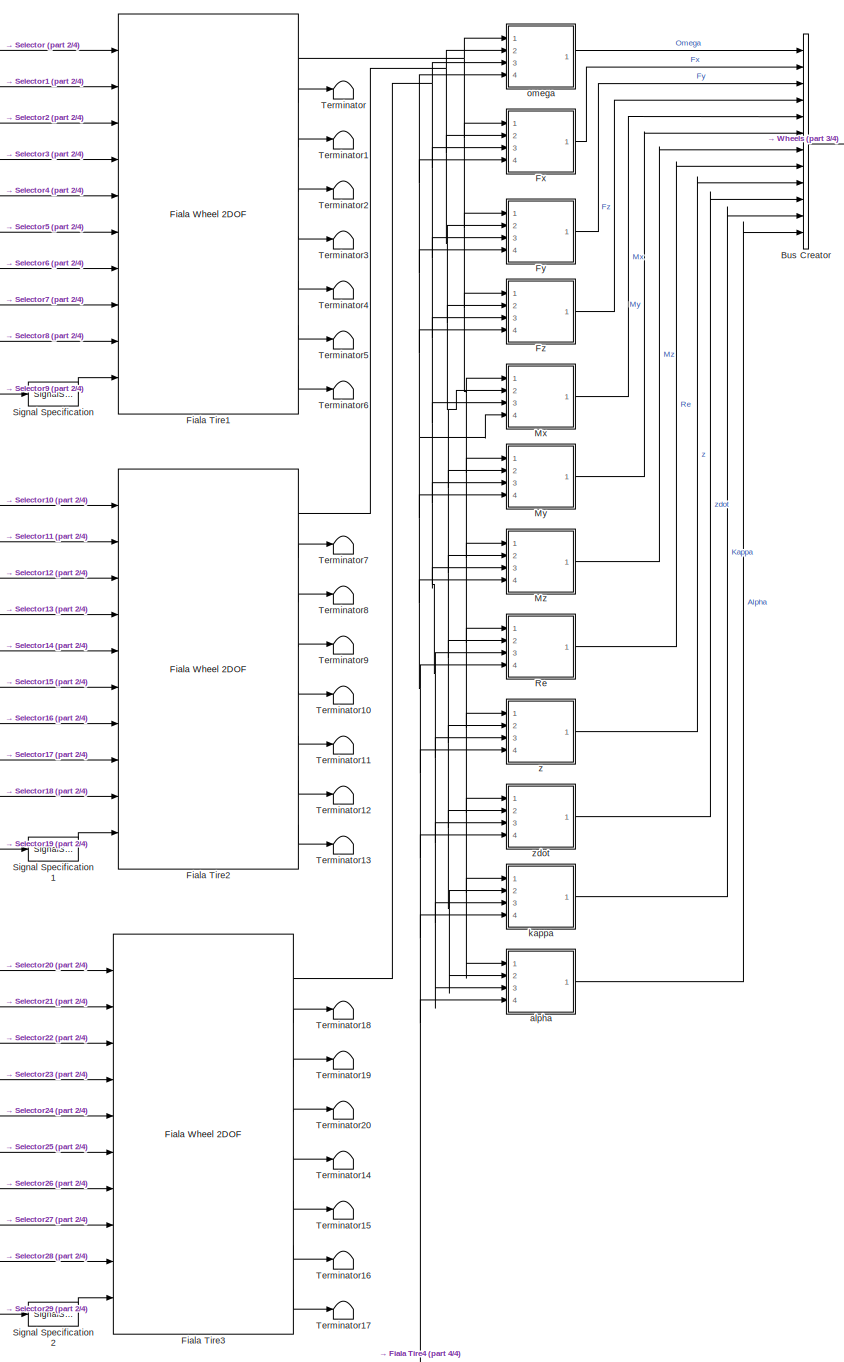
[diagram: Vehicle Model/Body, Suspension, Wheels/PassVeh14DOF/Wheels and Tires/VDBS/Tires/Fiala Tires - part 1/4, center side, full height]
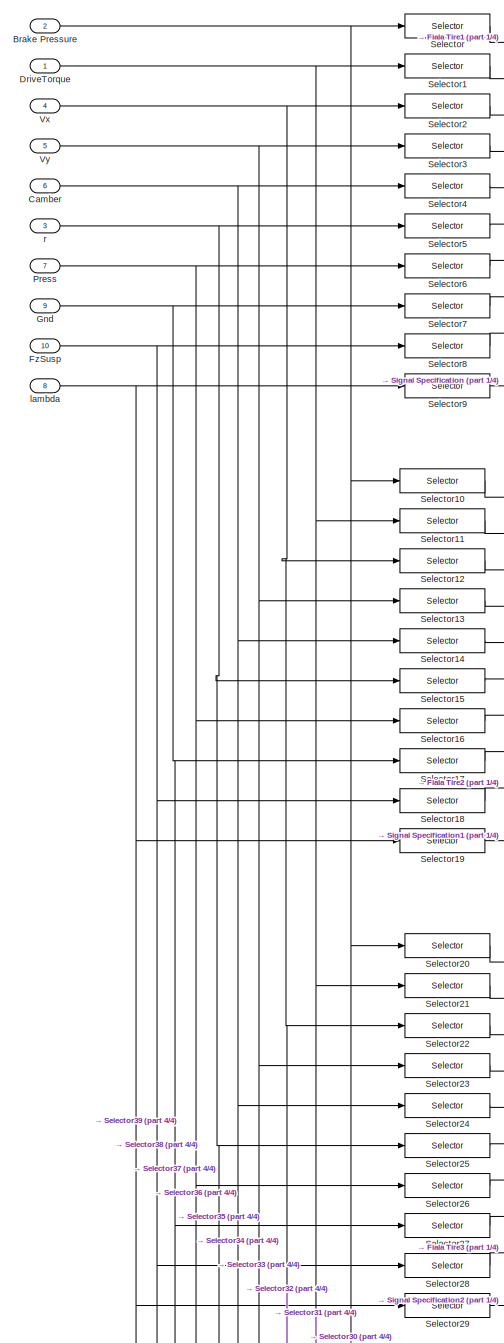
[diagram: Vehicle Model/Body, Suspension, Wheels/PassVeh14DOF/Wheels and Tires/VDBS/Tires/Fiala Tires - part 2/4, left side, full height]
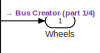
[diagram: Vehicle Model/Body, Suspension, Wheels/PassVeh14DOF/Wheels and Tires/VDBS/Tires/Fiala Tires - part 3/4, top right region]
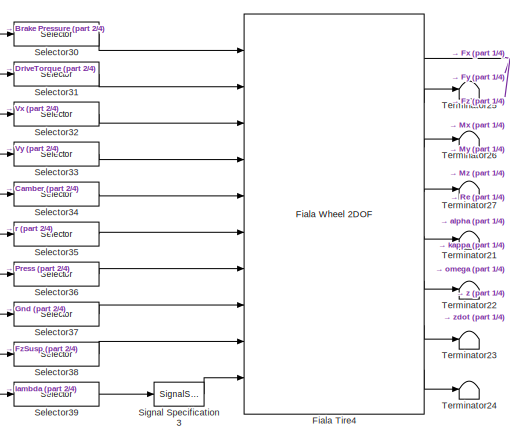
[diagram: Vehicle Model/Body, Suspension, Wheels/PassVeh14DOF/Wheels and Tires/VDBS/Tires/Fiala Tires - part 4/4, bottom center region]
BLOCK [SubSystem] Vehicle Model/Body, Suspension, Wheels/PassVeh14DOF/Wheels and Tires/VDBS/Tires/Fiala Tires
  Ports = [10, 1]
  RequestExecContextInheritance = off
  VariantControl = 1
BLOCK [Inport] Vehicle Model/Body, Suspension, Wheels/PassVeh14DOF/Wheels and Tires/VDBS/Tires/Fiala Tires/Brake Pressure
  Port = 2
BLOCK [BusCreator] Vehicle Model/Body, Suspension, Wheels/PassVeh14DOF/Wheels and Tires/VDBS/Tires/Fiala Tires/Bus Creator
  DisplayOption = bar
  InheritFromInputs = on
  Inputs = 12
  Ports = [12, 1]
BLOCK [Inport] Vehicle Model/Body, Suspension, Wheels/PassVeh14DOF/Wheels and Tires/VDBS/Tires/Fiala Tires/Camber
  Port = 6
BLOCK [Inport] Vehicle Model/Body, Suspension, Wheels/PassVeh14DOF/Wheels and Tires/VDBS/Tires/Fiala Tires/DriveTorque
BLOCK [Reference] Vehicle Model/Body, Suspension, Wheels/PassVeh14DOF/Wheels and Tires/VDBS/Tires/Fiala Tires/Fiala Tire1  REF=vehdynlibtire/Fiala Wheel 2DOF
  Ports = [10, 8]
  SourceBlock = vehdynlibtire/Fiala Wheel 2DOF
  SourceProductBaseCode = VE
  SourceType = Fiala Wheel 2DOF
BLOCK [Reference] Vehicle Model/Body, Suspension, Wheels/PassVeh14DOF/Wheels and Tires/VDBS/Tires/Fiala Tires/Fiala Tire2  REF=vehdynlibtire/Fiala Wheel 2DOF
  Ports = [10, 8]
  SourceBlock = vehdynlibtire/Fiala Wheel 2DOF
  SourceProductBaseCode = VE
  SourceType = Fiala Wheel 2DOF
BLOCK [Reference] Vehicle Model/Body, Suspension, Wheels/PassVeh14DOF/Wheels and Tires/VDBS/Tires/Fiala Tires/Fiala Tire3  REF=vehdynlibtire/Fiala Wheel 2DOF
  Ports = [10, 8]
  SourceBlock = vehdynlibtire/Fiala Wheel 2DOF
  SourceProductBaseCode = VE
  SourceType = Fiala Wheel 2DOF
BLOCK [Reference] Vehicle Model/Body, Suspension, Wheels/PassVeh14DOF/Wheels and Tires/VDBS/Tires/Fiala Tires/Fiala Tire4  REF=vehdynlibtire/Fiala Wheel 2DOF
  Ports = [10, 8]
  SourceBlock = vehdynlibtire/Fiala Wheel 2DOF
  SourceProductBaseCode = VE
  SourceType = Fiala Wheel 2DOF
BLOCK [SubSystem] Vehicle Model/Body, Suspension, Wheels/PassVeh14DOF/Wheels and Tires/VDBS/Tires/Fiala Tires/Fx
  Ports = [4, 1]
  RequestExecContextInheritance = off
BLOCK [BusSelector] Vehicle Model/Body, Suspension, Wheels/PassVeh14DOF/Wheels and Tires/VDBS/Tires/Fiala Tires/Fx/Bus Selector
  OutputSignals = Fx
  Ports = [1, 1]
BLOCK [BusSelector] Vehicle Model/Body, Suspension, Wheels/PassVeh14DOF/Wheels and Tires/VDBS/Tires/Fiala Tires/Fx/Bus Selector1
  OutputSignals = Fx
  Ports = [1, 1]
BLOCK [BusSelector] Vehicle Model/Body, Suspension, Wheels/PassVeh14DOF/Wheels and Tires/VDBS/Tires/Fiala Tires/Fx/Bus Selector2
  OutputSignals = Fx
  Ports = [1, 1]
BLOCK [BusSelector] Vehicle Model/Body, Suspension, Wheels/PassVeh14DOF/Wheels and Tires/VDBS/Tires/Fiala Tires/Fx/Bus Selector3
  OutputSignals = Fx
  Ports = [1, 1]
BLOCK [Inport] Vehicle Model/Body, Suspension, Wheels/PassVeh14DOF/Wheels and Tires/VDBS/Tires/Fiala Tires/Fx/In1
BLOCK [Inport] Vehicle Model/Body, Suspension, Wheels/PassVeh14DOF/Wheels and Tires/VDBS/Tires/Fiala Tires/Fx/In2
  Port = 2
BLOCK [Inport] Vehicle Model/Body, Suspension, Wheels/PassVeh14DOF/Wheels and Tires/VDBS/Tires/Fiala Tires/Fx/In3
  Port = 3
BLOCK [Inport] Vehicle Model/Body, Suspension, Wheels/PassVeh14DOF/Wheels and Tires/VDBS/Tires/Fiala Tires/Fx/In4
  Port = 4
BLOCK [Outport] Vehicle Model/Body, Suspension, Wheels/PassVeh14DOF/Wheels and Tires/VDBS/Tires/Fiala Tires/Fx/Out1
  VectorParamsAs1DForOutWhenUnconnected = off
BLOCK [Concatenate] Vehicle Model/Body, Suspension, Wheels/PassVeh14DOF/Wheels and Tires/VDBS/Tires/Fiala Tires/Fx/Vector Concatenate
  NumInputs = 4
  Ports = [4, 1]
BLOCK [SubSystem] Vehicle Model/Body, Suspension, Wheels/PassVeh14DOF/Wheels and Tires/VDBS/Tires/Fiala Tires/Fy
  Ports = [4, 1]
  RequestExecContextInheritance = off
BLOCK [BusSelector] Vehicle Model/Body, Suspension, Wheels/PassVeh14DOF/Wheels and Tires/VDBS/Tires/Fiala Tires/Fy/Bus Selector
  OutputSignals = Fy
  Ports = [1, 1]
BLOCK [BusSelector] Vehicle Model/Body, Suspension, Wheels/PassVeh14DOF/Wheels and Tires/VDBS/Tires/Fiala Tires/Fy/Bus Selector1
  OutputSignals = Fy
  Ports = [1, 1]
BLOCK [BusSelector] Vehicle Model/Body, Suspension, Wheels/PassVeh14DOF/Wheels and Tires/VDBS/Tires/Fiala Tires/Fy/Bus Selector2
  OutputSignals = Fy
  Ports = [1, 1]
BLOCK [BusSelector] Vehicle Model/Body, Suspension, Wheels/PassVeh14DOF/Wheels and Tires/VDBS/Tires/Fiala Tires/Fy/Bus Selector3
  OutputSignals = Fy
  Ports = [1, 1]
BLOCK [Inport] Vehicle Model/Body, Suspension, Wheels/PassVeh14DOF/Wheels and Tires/VDBS/Tires/Fiala Tires/Fy/In1
BLOCK [Inport] Vehicle Model/Body, Suspension, Wheels/PassVeh14DOF/Wheels and Tires/VDBS/Tires/Fiala Tires/Fy/In2
  Port = 2
BLOCK [Inport] Vehicle Model/Body, Suspension, Wheels/PassVeh14DOF/Wheels and Tires/VDBS/Tires/Fiala Tires/Fy/In3
  Port = 3
BLOCK [Inport] Vehicle Model/Body, Suspension, Wheels/PassVeh14DOF/Wheels and Tires/VDBS/Tires/Fiala Tires/Fy/In4
  Port = 4
BLOCK [Outport] Vehicle Model/Body, Suspension, Wheels/PassVeh14DOF/Wheels and Tires/VDBS/Tires/Fiala Tires/Fy/Out1
  VectorParamsAs1DForOutWhenUnconnected = off
BLOCK [Concatenate] Vehicle Model/Body, Suspension, Wheels/PassVeh14DOF/Wheels and Tires/VDBS/Tires/Fiala Tires/Fy/Vector Concatenate
  NumInputs = 4
  Ports = [4, 1]
BLOCK [SubSystem] Vehicle Model/Body, Suspension, Wheels/PassVeh14DOF/Wheels and Tires/VDBS/Tires/Fiala Tires/Fz
  Ports = [4, 1]
  RequestExecContextInheritance = off
BLOCK [BusSelector] Vehicle Model/Body, Suspension, Wheels/PassVeh14DOF/Wheels and Tires/VDBS/Tires/Fiala Tires/Fz/Bus Selector
  OutputSignals = Fz
  Ports = [1, 1]
BLOCK [BusSelector] Vehicle Model/Body, Suspension, Wheels/PassVeh14DOF/Wheels and Tires/VDBS/Tires/Fiala Tires/Fz/Bus Selector1
  OutputSignals = Fz
  Ports = [1, 1]
BLOCK [BusSelector] Vehicle Model/Body, Suspension, Wheels/PassVeh14DOF/Wheels and Tires/VDBS/Tires/Fiala Tires/Fz/Bus Selector2
  OutputSignals = Fz
  Ports = [1, 1]
BLOCK [BusSelector] Vehicle Model/Body, Suspension, Wheels/PassVeh14DOF/Wheels and Tires/VDBS/Tires/Fiala Tires/Fz/Bus Selector3
  OutputSignals = Fz
  Ports = [1, 1]
BLOCK [Inport] Vehicle Model/Body, Suspension, Wheels/PassVeh14DOF/Wheels and Tires/VDBS/Tires/Fiala Tires/Fz/In1
BLOCK [Inport] Vehicle Model/Body, Suspension, Wheels/PassVeh14DOF/Wheels and Tires/VDBS/Tires/Fiala Tires/Fz/In2
  Port = 2
BLOCK [Inport] Vehicle Model/Body, Suspension, Wheels/PassVeh14DOF/Wheels and Tires/VDBS/Tires/Fiala Tires/Fz/In3
  Port = 3
BLOCK [Inport] Vehicle Model/Body, Suspension, Wheels/PassVeh14DOF/Wheels and Tires/VDBS/Tires/Fiala Tires/Fz/In4
  Port = 4
BLOCK [Outport] Vehicle Model/Body, Suspension, Wheels/PassVeh14DOF/Wheels and Tires/VDBS/Tires/Fiala Tires/Fz/Out1
  VectorParamsAs1DForOutWhenUnconnected = off
BLOCK [Concatenate] Vehicle Model/Body, Suspension, Wheels/PassVeh14DOF/Wheels and Tires/VDBS/Tires/Fiala Tires/Fz/Vector Concatenate
  NumInputs = 4
  Ports = [4, 1]
BLOCK [Inport] Vehicle Model/Body, Suspension, Wheels/PassVeh14DOF/Wheels and Tires/VDBS/Tires/Fiala Tires/FzSusp
  Port = 10
BLOCK [Inport] Vehicle Model/Body, Suspension, Wheels/PassVeh14DOF/Wheels and Tires/VDBS/Tires/Fiala Tires/Gnd
  Port = 9
BLOCK [SubSystem] Vehicle Model/Body, Suspension, Wheels/PassVeh14DOF/Wheels and Tires/VDBS/Tires/Fiala Tires/Mx
  Ports = [4, 1]
  RequestExecContextInheritance = off
BLOCK [BusSelector] Vehicle Model/Body, Suspension, Wheels/PassVeh14DOF/Wheels and Tires/VDBS/Tires/Fiala Tires/Mx/Bus Selector
  OutputSignals = Mx
  Ports = [1, 1]
BLOCK [BusSelector] Vehicle Model/Body, Suspension, Wheels/PassVeh14DOF/Wheels and Tires/VDBS/Tires/Fiala Tires/Mx/Bus Selector1
  OutputSignals = Mx
  Ports = [1, 1]
BLOCK [BusSelector] Vehicle Model/Body, Suspension, Wheels/PassVeh14DOF/Wheels and Tires/VDBS/Tires/Fiala Tires/Mx/Bus Selector2
  OutputSignals = Mx
  Ports = [1, 1]
BLOCK [BusSelector] Vehicle Model/Body, Suspension, Wheels/PassVeh14DOF/Wheels and Tires/VDBS/Tires/Fiala Tires/Mx/Bus Selector3
  OutputSignals = Mx
  Ports = [1, 1]
BLOCK [Inport] Vehicle Model/Body, Suspension, Wheels/PassVeh14DOF/Wheels and Tires/VDBS/Tires/Fiala Tires/Mx/In1
BLOCK [Inport] Vehicle Model/Body, Suspension, Wheels/PassVeh14DOF/Wheels and Tires/VDBS/Tires/Fiala Tires/Mx/In2
  Port = 2
BLOCK [Inport] Vehicle Model/Body, Suspension, Wheels/PassVeh14DOF/Wheels and Tires/VDBS/Tires/Fiala Tires/Mx/In3
  Port = 3
BLOCK [Inport] Vehicle Model/Body, Suspension, Wheels/PassVeh14DOF/Wheels and Tires/VDBS/Tires/Fiala Tires/Mx/In4
  Port = 4
BLOCK [Outport] Vehicle Model/Body, Suspension, Wheels/PassVeh14DOF/Wheels and Tires/VDBS/Tires/Fiala Tires/Mx/Out1
  VectorParamsAs1DForOutWhenUnconnected = off
BLOCK [Concatenate] Vehicle Model/Body, Suspension, Wheels/PassVeh14DOF/Wheels and Tires/VDBS/Tires/Fiala Tires/Mx/Vector Concatenate
  NumInputs = 4
  Ports = [4, 1]
BLOCK [SubSystem] Vehicle Model/Body, Suspension, Wheels/PassVeh14DOF/Wheels and Tires/VDBS/Tires/Fiala Tires/My
  Ports = [4, 1]
  RequestExecContextInheritance = off
BLOCK [BusSelector] Vehicle Model/Body, Suspension, Wheels/PassVeh14DOF/Wheels and Tires/VDBS/Tires/Fiala Tires/My/Bus Selector
  OutputSignals = My
  Ports = [1, 1]
BLOCK [BusSelector] Vehicle Model/Body, Suspension, Wheels/PassVeh14DOF/Wheels and Tires/VDBS/Tires/Fiala Tires/My/Bus Selector1
  OutputSignals = My
  Ports = [1, 1]
BLOCK [BusSelector] Vehicle Model/Body, Suspension, Wheels/PassVeh14DOF/Wheels and Tires/VDBS/Tires/Fiala Tires/My/Bus Selector2
  OutputSignals = My
  Ports = [1, 1]
BLOCK [BusSelector] Vehicle Model/Body, Suspension, Wheels/PassVeh14DOF/Wheels and Tires/VDBS/Tires/Fiala Tires/My/Bus Selector3
  OutputSignals = My
  Ports = [1, 1]
BLOCK [Inport] Vehicle Model/Body, Suspension, Wheels/PassVeh14DOF/Wheels and Tires/VDBS/Tires/Fiala Tires/My/In1
BLOCK [Inport] Vehicle Model/Body, Suspension, Wheels/PassVeh14DOF/Wheels and Tires/VDBS/Tires/Fiala Tires/My/In2
  Port = 2
BLOCK [Inport] Vehicle Model/Body, Suspension, Wheels/PassVeh14DOF/Wheels and Tires/VDBS/Tires/Fiala Tires/My/In3
  Port = 3
BLOCK [Inport] Vehicle Model/Body, Suspension, Wheels/PassVeh14DOF/Wheels and Tires/VDBS/Tires/Fiala Tires/My/In4
  Port = 4
BLOCK [Outport] Vehicle Model/Body, Suspension, Wheels/PassVeh14DOF/Wheels and Tires/VDBS/Tires/Fiala Tires/My/Out1
  VectorParamsAs1DForOutWhenUnconnected = off
BLOCK [Concatenate] Vehicle Model/Body, Suspension, Wheels/PassVeh14DOF/Wheels and Tires/VDBS/Tires/Fiala Tires/My/Vector Concatenate
  NumInputs = 4
  Ports = [4, 1]
BLOCK [SubSystem] Vehicle Model/Body, Suspension, Wheels/PassVeh14DOF/Wheels and Tires/VDBS/Tires/Fiala Tires/Mz
  Ports = [4, 1]
  RequestExecContextInheritance = off
BLOCK [BusSelector] Vehicle Model/Body, Suspension, Wheels/PassVeh14DOF/Wheels and Tires/VDBS/Tires/Fiala Tires/Mz/Bus Selector
  OutputSignals = Mz
  Ports = [1, 1]
BLOCK [BusSelector] Vehicle Model/Body, Suspension, Wheels/PassVeh14DOF/Wheels and Tires/VDBS/Tires/Fiala Tires/Mz/Bus Selector1
  OutputSignals = Mz
  Ports = [1, 1]
BLOCK [BusSelector] Vehicle Model/Body, Suspension, Wheels/PassVeh14DOF/Wheels and Tires/VDBS/Tires/Fiala Tires/Mz/Bus Selector2
  OutputSignals = Mz
  Ports = [1, 1]
BLOCK [BusSelector] Vehicle Model/Body, Suspension, Wheels/PassVeh14DOF/Wheels and Tires/VDBS/Tires/Fiala Tires/Mz/Bus Selector3
  OutputSignals = Mz
  Ports = [1, 1]
BLOCK [Inport] Vehicle Model/Body, Suspension, Wheels/PassVeh14DOF/Wheels and Tires/VDBS/Tires/Fiala Tires/Mz/In1
BLOCK [Inport] Vehicle Model/Body, Suspension, Wheels/PassVeh14DOF/Wheels and Tires/VDBS/Tires/Fiala Tires/Mz/In2
  Port = 2
BLOCK [Inport] Vehicle Model/Body, Suspension, Wheels/PassVeh14DOF/Wheels and Tires/VDBS/Tires/Fiala Tires/Mz/In3
  Port = 3
BLOCK [Inport] Vehicle Model/Body, Suspension, Wheels/PassVeh14DOF/Wheels and Tires/VDBS/Tires/Fiala Tires/Mz/In4
  Port = 4
BLOCK [Outport] Vehicle Model/Body, Suspension, Wheels/PassVeh14DOF/Wheels and Tires/VDBS/Tires/Fiala Tires/Mz/Out1
  VectorParamsAs1DForOutWhenUnconnected = off
BLOCK [Concatenate] Vehicle Model/Body, Suspension, Wheels/PassVeh14DOF/Wheels and Tires/VDBS/Tires/Fiala Tires/Mz/Vector Concatenate
  NumInputs = 4
  Ports = [4, 1]
BLOCK [Inport] Vehicle Model/Body, Suspension, Wheels/PassVeh14DOF/Wheels and Tires/VDBS/Tires/Fiala Tires/Press
  Port = 7
  Unit = Pa
BLOCK [SubSystem] Vehicle Model/Body, Suspension, Wheels/PassVeh14DOF/Wheels and Tires/VDBS/Tires/Fiala Tires/Re
  Ports = [4, 1]
  RequestExecContextInheritance = off
BLOCK [BusSelector] Vehicle Model/Body, Suspension, Wheels/PassVeh14DOF/Wheels and Tires/VDBS/Tires/Fiala Tires/Re/Bus Selector
  OutputSignals = Re
  Ports = [1, 1]
BLOCK [BusSelector] Vehicle Model/Body, Suspension, Wheels/PassVeh14DOF/Wheels and Tires/VDBS/Tires/Fiala Tires/Re/Bus Selector1
  OutputSignals = Re
  Ports = [1, 1]
BLOCK [BusSelector] Vehicle Model/Body, Suspension, Wheels/PassVeh14DOF/Wheels and Tires/VDBS/Tires/Fiala Tires/Re/Bus Selector2
  OutputSignals = Re
  Ports = [1, 1]
BLOCK [BusSelector] Vehicle Model/Body, Suspension, Wheels/PassVeh14DOF/Wheels and Tires/VDBS/Tires/Fiala Tires/Re/Bus Selector3
  OutputSignals = Re
  Ports = [1, 1]
BLOCK [Inport] Vehicle Model/Body, Suspension, Wheels/PassVeh14DOF/Wheels and Tires/VDBS/Tires/Fiala Tires/Re/In1
BLOCK [Inport] Vehicle Model/Body, Suspension, Wheels/PassVeh14DOF/Wheels and Tires/VDBS/Tires/Fiala Tires/Re/In2
  Port = 2
BLOCK [Inport] Vehicle Model/Body, Suspension, Wheels/PassVeh14DOF/Wheels and Tires/VDBS/Tires/Fiala Tires/Re/In3
  Port = 3
BLOCK [Inport] Vehicle Model/Body, Suspension, Wheels/PassVeh14DOF/Wheels and Tires/VDBS/Tires/Fiala Tires/Re/In4
  Port = 4
BLOCK [Outport] Vehicle Model/Body, Suspension, Wheels/PassVeh14DOF/Wheels and Tires/VDBS/Tires/Fiala Tires/Re/Out1
  VectorParamsAs1DForOutWhenUnconnected = off
BLOCK [Concatenate] Vehicle Model/Body, Suspension, Wheels/PassVeh14DOF/Wheels and Tires/VDBS/Tires/Fiala Tires/Re/Vector Concatenate
  NumInputs = 4
  Ports = [4, 1]
BLOCK [Selector] Vehicle Model/Body, Suspension, Wheels/PassVeh14DOF/Wheels and Tires/VDBS/Tires/Fiala Tires/Selector
  IndexOptions = Index vector (dialog)
  Indices = 1
  InputPortWidth = 4
  OutputSizes = 1
  Ports = [1, 1]
BLOCK [Selector] Vehicle Model/Body, Suspension, Wheels/PassVeh14DOF/Wheels and Tires/VDBS/Tires/Fiala Tires/Selector1
  IndexOptions = Index vector (dialog)
  Indices = 1
  InputPortWidth = 4
  OutputSizes = 1
  Ports = [1, 1]
BLOCK [Selector] Vehicle Model/Body, Suspension, Wheels/PassVeh14DOF/Wheels and Tires/VDBS/Tires/Fiala Tires/Selector10
  IndexOptions = Index vector (dialog)
  Indices = 2
  InputPortWidth = 4
  OutputSizes = 1
  Ports = [1, 1]
BLOCK [Selector] Vehicle Model/Body, Suspension, Wheels/PassVeh14DOF/Wheels and Tires/VDBS/Tires/Fiala Tires/Selector11
  IndexOptions = Index vector (dialog)
  Indices = 2
  InputPortWidth = 4
  OutputSizes = 1
  Ports = [1, 1]
BLOCK [Selector] Vehicle Model/Body, Suspension, Wheels/PassVeh14DOF/Wheels and Tires/VDBS/Tires/Fiala Tires/Selector12
  IndexOptions = Index vector (dialog)
  Indices = 2
  InputPortWidth = 4
  OutputSizes = 1
  Ports = [1, 1]
BLOCK [Selector] Vehicle Model/Body, Suspension, Wheels/PassVeh14DOF/Wheels and Tires/VDBS/Tires/Fiala Tires/Selector13
  IndexOptions = Index vector (dialog)
  Indices = 2
  InputPortWidth = 4
  OutputSizes = 1
  Ports = [1, 1]
BLOCK [Selector] Vehicle Model/Body, Suspension, Wheels/PassVeh14DOF/Wheels and Tires/VDBS/Tires/Fiala Tires/Selector14
  IndexOptions = Index vector (dialog)
  Indices = 2
  InputPortWidth = 4
  OutputSizes = 1
  Ports = [1, 1]
BLOCK [Selector] Vehicle Model/Body, Suspension, Wheels/PassVeh14DOF/Wheels and Tires/VDBS/Tires/Fiala Tires/Selector15
  IndexOptions = Index vector (dialog)
  Indices = 2
  InputPortWidth = 4
  OutputSizes = 1
  Ports = [1, 1]
BLOCK [Selector] Vehicle Model/Body, Suspension, Wheels/PassVeh14DOF/Wheels and Tires/VDBS/Tires/Fiala Tires/Selector16
  IndexOptions = Index vector (dialog)
  Indices = 2
  InputPortWidth = 4
  OutputSizes = 1
  Ports = [1, 1]
BLOCK [Selector] Vehicle Model/Body, Suspension, Wheels/PassVeh14DOF/Wheels and Tires/VDBS/Tires/Fiala Tires/Selector17
  IndexOptions = Index vector (dialog)
  Indices = 2
  InputPortWidth = 4
  OutputSizes = 1
  Ports = [1, 1]
BLOCK [Selector] Vehicle Model/Body, Suspension, Wheels/PassVeh14DOF/Wheels and Tires/VDBS/Tires/Fiala Tires/Selector18
  IndexOptions = Index vector (dialog)
  Indices = 2
  InputPortWidth = 4
  OutputSizes = 1
  Ports = [1, 1]
BLOCK [Selector] Vehicle Model/Body, Suspension, Wheels/PassVeh14DOF/Wheels and Tires/VDBS/Tires/Fiala Tires/Selector19
  IndexOptions = Index vector (dialog),Index vector (dialog)
  Indices = 5,2
  InputPortWidth = 4
  NumberOfDimensions = 2
  OutputSizes = 1,1
  Ports = [1, 1]
BLOCK [Selector] Vehicle Model/Body, Suspension, Wheels/PassVeh14DOF/Wheels and Tires/VDBS/Tires/Fiala Tires/Selector2
  IndexOptions = Index vector (dialog)
  Indices = 1
  InputPortWidth = 4
  OutputSizes = 1
  Ports = [1, 1]
BLOCK [Selector] Vehicle Model/Body, Suspension, Wheels/PassVeh14DOF/Wheels and Tires/VDBS/Tires/Fiala Tires/Selector20
  IndexOptions = Index vector (dialog)
  Indices = 3
  InputPortWidth = 4
  OutputSizes = 1
  Ports = [1, 1]
BLOCK [Selector] Vehicle Model/Body, Suspension, Wheels/PassVeh14DOF/Wheels and Tires/VDBS/Tires/Fiala Tires/Selector21
  IndexOptions = Index vector (dialog)
  Indices = 3
  InputPortWidth = 4
  OutputSizes = 1
  Ports = [1, 1]
BLOCK [Selector] Vehicle Model/Body, Suspension, Wheels/PassVeh14DOF/Wheels and Tires/VDBS/Tires/Fiala Tires/Selector22
  IndexOptions = Index vector (dialog)
  Indices = 3
  InputPortWidth = 4
  OutputSizes = 1
  Ports = [1, 1]
BLOCK [Selector] Vehicle Model/Body, Suspension, Wheels/PassVeh14DOF/Wheels and Tires/VDBS/Tires/Fiala Tires/Selector23
  IndexOptions = Index vector (dialog)
  Indices = 3
  InputPortWidth = 4
  OutputSizes = 1
  Ports = [1, 1]
BLOCK [Selector] Vehicle Model/Body, Suspension, Wheels/PassVeh14DOF/Wheels and Tires/VDBS/Tires/Fiala Tires/Selector24
  IndexOptions = Index vector (dialog)
  Indices = 3
  InputPortWidth = 4
  OutputSizes = 1
  Ports = [1, 1]
BLOCK [Selector] Vehicle Model/Body, Suspension, Wheels/PassVeh14DOF/Wheels and Tires/VDBS/Tires/Fiala Tires/Selector25
  IndexOptions = Index vector (dialog)
  Indices = 3
  InputPortWidth = 4
  OutputSizes = 1
  Ports = [1, 1]
BLOCK [Selector] Vehicle Model/Body, Suspension, Wheels/PassVeh14DOF/Wheels and Tires/VDBS/Tires/Fiala Tires/Selector26
  IndexOptions = Index vector (dialog)
  Indices = 3
  InputPortWidth = 4
  OutputSizes = 1
  Ports = [1, 1]
BLOCK [Selector] Vehicle Model/Body, Suspension, Wheels/PassVeh14DOF/Wheels and Tires/VDBS/Tires/Fiala Tires/Selector27
  IndexOptions = Index vector (dialog)
  Indices = 3
  InputPortWidth = 4
  OutputSizes = 1
  Ports = [1, 1]
BLOCK [Selector] Vehicle Model/Body, Suspension, Wheels/PassVeh14DOF/Wheels and Tires/VDBS/Tires/Fiala Tires/Selector28
  IndexOptions = Index vector (dialog)
  Indices = 3
  InputPortWidth = 4
  OutputSizes = 1
  Ports = [1, 1]
BLOCK [Selector] Vehicle Model/Body, Suspension, Wheels/PassVeh14DOF/Wheels and Tires/VDBS/Tires/Fiala Tires/Selector29
  IndexOptions = Index vector (dialog),Index vector (dialog)
  Indices = 5,3
  InputPortWidth = 4
  NumberOfDimensions = 2
  OutputSizes = 1,1
  Ports = [1, 1]
BLOCK [Selector] Vehicle Model/Body, Suspension, Wheels/PassVeh14DOF/Wheels and Tires/VDBS/Tires/Fiala Tires/Selector3
  IndexOptions = Index vector (dialog)
  Indices = 1
  InputPortWidth = 4
  OutputSizes = 1
  Ports = [1, 1]
BLOCK [Selector] Vehicle Model/Body, Suspension, Wheels/PassVeh14DOF/Wheels and Tires/VDBS/Tires/Fiala Tires/Selector30
  IndexOptions = Index vector (dialog)
  Indices = 4
  InputPortWidth = 4
  OutputSizes = 1
  Ports = [1, 1]
BLOCK [Selector] Vehicle Model/Body, Suspension, Wheels/PassVeh14DOF/Wheels and Tires/VDBS/Tires/Fiala Tires/Selector31
  IndexOptions = Index vector (dialog)
  Indices = 4
  InputPortWidth = 4
  OutputSizes = 1
  Ports = [1, 1]
BLOCK [Selector] Vehicle Model/Body, Suspension, Wheels/PassVeh14DOF/Wheels and Tires/VDBS/Tires/Fiala Tires/Selector32
  IndexOptions = Index vector (dialog)
  Indices = 4
  InputPortWidth = 4
  OutputSizes = 1
  Ports = [1, 1]
BLOCK [Selector] Vehicle Model/Body, Suspension, Wheels/PassVeh14DOF/Wheels and Tires/VDBS/Tires/Fiala Tires/Selector33
  IndexOptions = Index vector (dialog)
  Indices = 4
  InputPortWidth = 4
  OutputSizes = 1
  Ports = [1, 1]
BLOCK [Selector] Vehicle Model/Body, Suspension, Wheels/PassVeh14DOF/Wheels and Tires/VDBS/Tires/Fiala Tires/Selector34
  IndexOptions = Index vector (dialog)
  Indices = 4
  InputPortWidth = 4
  OutputSizes = 1
  Ports = [1, 1]
BLOCK [Selector] Vehicle Model/Body, Suspension, Wheels/PassVeh14DOF/Wheels and Tires/VDBS/Tires/Fiala Tires/Selector35
  IndexOptions = Index vector (dialog)
  Indices = 4
  InputPortWidth = 4
  OutputSizes = 1
  Ports = [1, 1]
BLOCK [Selector] Vehicle Model/Body, Suspension, Wheels/PassVeh14DOF/Wheels and Tires/VDBS/Tires/Fiala Tires/Selector36
  IndexOptions = Index vector (dialog)
  Indices = 4
  InputPortWidth = 4
  OutputSizes = 1
  Ports = [1, 1]
BLOCK [Selector] Vehicle Model/Body, Suspension, Wheels/PassVeh14DOF/Wheels and Tires/VDBS/Tires/Fiala Tires/Selector37
  IndexOptions = Index vector (dialog)
  Indices = 4
  InputPortWidth = 4
  OutputSizes = 1
  Ports = [1, 1]
BLOCK [Selector] Vehicle Model/Body, Suspension, Wheels/PassVeh14DOF/Wheels and Tires/VDBS/Tires/Fiala Tires/Selector38
  IndexOptions = Index vector (dialog)
  Indices = 4
  InputPortWidth = 4
  OutputSizes = 1
  Ports = [1, 1]
BLOCK [Selector] Vehicle Model/Body, Suspension, Wheels/PassVeh14DOF/Wheels and Tires/VDBS/Tires/Fiala Tires/Selector39
  IndexOptions = Index vector (dialog),Index vector (dialog)
  Indices = 5,4
  InputPortWidth = 4
  NumberOfDimensions = 2
  OutputSizes = 1,1
  Ports = [1, 1]
BLOCK [Selector] Vehicle Model/Body, Suspension, Wheels/PassVeh14DOF/Wheels and Tires/VDBS/Tires/Fiala Tires/Selector4
  IndexOptions = Index vector (dialog)
  Indices = 1
  InputPortWidth = 4
  OutputSizes = 1
  Ports = [1, 1]
BLOCK [Selector] Vehicle Model/Body, Suspension, Wheels/PassVeh14DOF/Wheels and Tires/VDBS/Tires/Fiala Tires/Selector5
  IndexOptions = Index vector (dialog)
  Indices = 1
  InputPortWidth = 4
  OutputSizes = 1
  Ports = [1, 1]
BLOCK [Selector] Vehicle Model/Body, Suspension, Wheels/PassVeh14DOF/Wheels and Tires/VDBS/Tires/Fiala Tires/Selector6
  IndexOptions = Index vector (dialog)
  Indices = 1
  InputPortWidth = 4
  OutputSizes = 1
  Ports = [1, 1]
BLOCK [Selector] Vehicle Model/Body, Suspension, Wheels/PassVeh14DOF/Wheels and Tires/VDBS/Tires/Fiala Tires/Selector7
  IndexOptions = Index vector (dialog)
  Indices = 1
  InputPortWidth = 4
  OutputSizes = 1
  Ports = [1, 1]
BLOCK [Selector] Vehicle Model/Body, Suspension, Wheels/PassVeh14DOF/Wheels and Tires/VDBS/Tires/Fiala Tires/Selector8
  IndexOptions = Index vector (dialog)
  Indices = 1
  InputPortWidth = 4
  OutputSizes = 1
  Ports = [1, 1]
BLOCK [Selector] Vehicle Model/Body, Suspension, Wheels/PassVeh14DOF/Wheels and Tires/VDBS/Tires/Fiala Tires/Selector9
  IndexOptions = Index vector (dialog),Index vector (dialog)
  Indices = 5,1
  InputPortWidth = 4
  NumberOfDimensions = 2
  OutputSizes = 1,1
  Ports = [1, 1]
BLOCK [SignalSpecification] Vehicle Model/Body, Suspension, Wheels/PassVeh14DOF/Wheels and Tires/VDBS/Tires/Fiala Tires/Signal Specification
  Unit = 1
BLOCK [SignalSpecification] Vehicle Model/Body, Suspension, Wheels/PassVeh14DOF/Wheels and Tires/VDBS/Tires/Fiala Tires/Signal Specification1
  Unit = 1
BLOCK [SignalSpecification] Vehicle Model/Body, Suspension, Wheels/PassVeh14DOF/Wheels and Tires/VDBS/Tires/Fiala Tires/Signal Specification2
  Unit = 1
BLOCK [SignalSpecification] Vehicle Model/Body, Suspension, Wheels/PassVeh14DOF/Wheels and Tires/VDBS/Tires/Fiala Tires/Signal Specification3
  Unit = 1
BLOCK [Terminator] Vehicle Model/Body, Suspension, Wheels/PassVeh14DOF/Wheels and Tires/VDBS/Tires/Fiala Tires/Terminator
BLOCK [Terminator] Vehicle Model/Body, Suspension, Wheels/PassVeh14DOF/Wheels and Tires/VDBS/Tires/Fiala Tires/Terminator1
BLOCK [Terminator] Vehicle Model/Body, Suspension, Wheels/PassVeh14DOF/Wheels and Tires/VDBS/Tires/Fiala Tires/Terminator10
BLOCK [Terminator] Vehicle Model/Body, Suspension, Wheels/PassVeh14DOF/Wheels and Tires/VDBS/Tires/Fiala Tires/Terminator11
BLOCK [Terminator] Vehicle Model/Body, Suspension, Wheels/PassVeh14DOF/Wheels and Tires/VDBS/Tires/Fiala Tires/Terminator12
BLOCK [Terminator] Vehicle Model/Body, Suspension, Wheels/PassVeh14DOF/Wheels and Tires/VDBS/Tires/Fiala Tires/Terminator13
BLOCK [Terminator] Vehicle Model/Body, Suspension, Wheels/PassVeh14DOF/Wheels and Tires/VDBS/Tires/Fiala Tires/Terminator14
BLOCK [Terminator] Vehicle Model/Body, Suspension, Wheels/PassVeh14DOF/Wheels and Tires/VDBS/Tires/Fiala Tires/Terminator15
BLOCK [Terminator] Vehicle Model/Body, Suspension, Wheels/PassVeh14DOF/Wheels and Tires/VDBS/Tires/Fiala Tires/Terminator16
BLOCK [Terminator] Vehicle Model/Body, Suspension, Wheels/PassVeh14DOF/Wheels and Tires/VDBS/Tires/Fiala Tires/Terminator17
BLOCK [Terminator] Vehicle Model/Body, Suspension, Wheels/PassVeh14DOF/Wheels and Tires/VDBS/Tires/Fiala Tires/Terminator18
BLOCK [Terminator] Vehicle Model/Body, Suspension, Wheels/PassVeh14DOF/Wheels and Tires/VDBS/Tires/Fiala Tires/Terminator19
BLOCK [Terminator] Vehicle Model/Body, Suspension, Wheels/PassVeh14DOF/Wheels and Tires/VDBS/Tires/Fiala Tires/Terminator2
BLOCK [Terminator] Vehicle Model/Body, Suspension, Wheels/PassVeh14DOF/Wheels and Tires/VDBS/Tires/Fiala Tires/Terminator20
BLOCK [Terminator] Vehicle Model/Body, Suspension, Wheels/PassVeh14DOF/Wheels and Tires/VDBS/Tires/Fiala Tires/Terminator21
BLOCK [Terminator] Vehicle Model/Body, Suspension, Wheels/PassVeh14DOF/Wheels and Tires/VDBS/Tires/Fiala Tires/Terminator22
BLOCK [Terminator] Vehicle Model/Body, Suspension, Wheels/PassVeh14DOF/Wheels and Tires/VDBS/Tires/Fiala Tires/Terminator23
BLOCK [Terminator] Vehicle Model/Body, Suspension, Wheels/PassVeh14DOF/Wheels and Tires/VDBS/Tires/Fiala Tires/Terminator24
BLOCK [Terminator] Vehicle Model/Body, Suspension, Wheels/PassVeh14DOF/Wheels and Tires/VDBS/Tires/Fiala Tires/Terminator25
BLOCK [Terminator] Vehicle Model/Body, Suspension, Wheels/PassVeh14DOF/Wheels and Tires/VDBS/Tires/Fiala Tires/Terminator26
BLOCK [Terminator] Vehicle Model/Body, Suspension, Wheels/PassVeh14DOF/Wheels and Tires/VDBS/Tires/Fiala Tires/Terminator27
BLOCK [Terminator] Vehicle Model/Body, Suspension, Wheels/PassVeh14DOF/Wheels and Tires/VDBS/Tires/Fiala Tires/Terminator3
BLOCK [Terminator] Vehicle Model/Body, Suspension, Wheels/PassVeh14DOF/Wheels and Tires/VDBS/Tires/Fiala Tires/Terminator4
BLOCK [Terminator] Vehicle Model/Body, Suspension, Wheels/PassVeh14DOF/Wheels and Tires/VDBS/Tires/Fiala Tires/Terminator5
BLOCK [Terminator] Vehicle Model/Body, Suspension, Wheels/PassVeh14DOF/Wheels and Tires/VDBS/Tires/Fiala Tires/Terminator6
BLOCK [Terminator] Vehicle Model/Body, Suspension, Wheels/PassVeh14DOF/Wheels and Tires/VDBS/Tires/Fiala Tires/Terminator7
BLOCK [Terminator] Vehicle Model/Body, Suspension, Wheels/PassVeh14DOF/Wheels and Tires/VDBS/Tires/Fiala Tires/Terminator8
BLOCK [Terminator] Vehicle Model/Body, Suspension, Wheels/PassVeh14DOF/Wheels and Tires/VDBS/Tires/Fiala Tires/Terminator9
BLOCK [Inport] Vehicle Model/Body, Suspension, Wheels/PassVeh14DOF/Wheels and Tires/VDBS/Tires/Fiala Tires/Vx
  Port = 4
BLOCK [Inport] Vehicle Model/Body, Suspension, Wheels/PassVeh14DOF/Wheels and Tires/VDBS/Tires/Fiala Tires/Vy
  Port = 5
BLOCK [Outport] Vehicle Model/Body, Suspension, Wheels/PassVeh14DOF/Wheels and Tires/VDBS/Tires/Fiala Tires/Wheels
  VectorParamsAs1DForOutWhenUnconnected = off
BLOCK [SubSystem] Vehicle Model/Body, Suspension, Wheels/PassVeh14DOF/Wheels and Tires/VDBS/Tires/Fiala Tires/alpha
  Ports = [4, 1]
  RequestExecContextInheritance = off
BLOCK [BusSelector] Vehicle Model/Body, Suspension, Wheels/PassVeh14DOF/Wheels and Tires/VDBS/Tires/Fiala Tires/alpha/Bus Selector
  OutputSignals = Alpha
  Ports = [1, 1]
BLOCK [BusSelector] Vehicle Model/Body, Suspension, Wheels/PassVeh14DOF/Wheels and Tires/VDBS/Tires/Fiala Tires/alpha/Bus Selector1
  OutputSignals = Alpha
  Ports = [1, 1]
BLOCK [BusSelector] Vehicle Model/Body, Suspension, Wheels/PassVeh14DOF/Wheels and Tires/VDBS/Tires/Fiala Tires/alpha/Bus Selector2
  OutputSignals = Alpha
  Ports = [1, 1]
BLOCK [BusSelector] Vehicle Model/Body, Suspension, Wheels/PassVeh14DOF/Wheels and Tires/VDBS/Tires/Fiala Tires/alpha/Bus Selector3
  OutputSignals = Alpha
  Ports = [1, 1]
BLOCK [Inport] Vehicle Model/Body, Suspension, Wheels/PassVeh14DOF/Wheels and Tires/VDBS/Tires/Fiala Tires/alpha/In1
BLOCK [Inport] Vehicle Model/Body, Suspension, Wheels/PassVeh14DOF/Wheels and Tires/VDBS/Tires/Fiala Tires/alpha/In2
  Port = 2
BLOCK [Inport] Vehicle Model/Body, Suspension, Wheels/PassVeh14DOF/Wheels and Tires/VDBS/Tires/Fiala Tires/alpha/In3
  Port = 3
BLOCK [Inport] Vehicle Model/Body, Suspension, Wheels/PassVeh14DOF/Wheels and Tires/VDBS/Tires/Fiala Tires/alpha/In4
  Port = 4
BLOCK [Outport] Vehicle Model/Body, Suspension, Wheels/PassVeh14DOF/Wheels and Tires/VDBS/Tires/Fiala Tires/alpha/Out1
  VectorParamsAs1DForOutWhenUnconnected = off
BLOCK [Concatenate] Vehicle Model/Body, Suspension, Wheels/PassVeh14DOF/Wheels and Tires/VDBS/Tires/Fiala Tires/alpha/Vector Concatenate
  NumInputs = 4
  Ports = [4, 1]
BLOCK [SubSystem] Vehicle Model/Body, Suspension, Wheels/PassVeh14DOF/Wheels and Tires/VDBS/Tires/Fiala Tires/kappa
  Ports = [4, 1]
  RequestExecContextInheritance = off
BLOCK [BusSelector] Vehicle Model/Body, Suspension, Wheels/PassVeh14DOF/Wheels and Tires/VDBS/Tires/Fiala Tires/kappa/Bus Selector
  OutputSignals = Kappa
  Ports = [1, 1]
BLOCK [BusSelector] Vehicle Model/Body, Suspension, Wheels/PassVeh14DOF/Wheels and Tires/VDBS/Tires/Fiala Tires/kappa/Bus Selector1
  OutputSignals = Kappa
  Ports = [1, 1]
BLOCK [BusSelector] Vehicle Model/Body, Suspension, Wheels/PassVeh14DOF/Wheels and Tires/VDBS/Tires/Fiala Tires/kappa/Bus Selector2
  OutputSignals = Kappa
  Ports = [1, 1]
BLOCK [BusSelector] Vehicle Model/Body, Suspension, Wheels/PassVeh14DOF/Wheels and Tires/VDBS/Tires/Fiala Tires/kappa/Bus Selector3
  OutputSignals = Kappa
  Ports = [1, 1]
BLOCK [Inport] Vehicle Model/Body, Suspension, Wheels/PassVeh14DOF/Wheels and Tires/VDBS/Tires/Fiala Tires/kappa/In1
BLOCK [Inport] Vehicle Model/Body, Suspension, Wheels/PassVeh14DOF/Wheels and Tires/VDBS/Tires/Fiala Tires/kappa/In2
  Port = 2
BLOCK [Inport] Vehicle Model/Body, Suspension, Wheels/PassVeh14DOF/Wheels and Tires/VDBS/Tires/Fiala Tires/kappa/In3
  Port = 3
BLOCK [Inport] Vehicle Model/Body, Suspension, Wheels/PassVeh14DOF/Wheels and Tires/VDBS/Tires/Fiala Tires/kappa/In4
  Port = 4
BLOCK [Outport] Vehicle Model/Body, Suspension, Wheels/PassVeh14DOF/Wheels and Tires/VDBS/Tires/Fiala Tires/kappa/Out1
  VectorParamsAs1DForOutWhenUnconnected = off
BLOCK [Concatenate] Vehicle Model/Body, Suspension, Wheels/PassVeh14DOF/Wheels and Tires/VDBS/Tires/Fiala Tires/kappa/Vector Concatenate
  NumInputs = 4
  Ports = [4, 1]
BLOCK [Inport] Vehicle Model/Body, Suspension, Wheels/PassVeh14DOF/Wheels and Tires/VDBS/Tires/Fiala Tires/lambda
  Port = 8
  Unit = 1
BLOCK [SubSystem] Vehicle Model/Body, Suspension, Wheels/PassVeh14DOF/Wheels and Tires/VDBS/Tires/Fiala Tires/omega
  Ports = [4, 1]
  RequestExecContextInheritance = off
BLOCK [BusSelector] Vehicle Model/Body, Suspension, Wheels/PassVeh14DOF/Wheels and Tires/VDBS/Tires/Fiala Tires/omega/Bus Selector
  OutputSignals = Omega
  Ports = [1, 1]
BLOCK [BusSelector] Vehicle Model/Body, Suspension, Wheels/PassVeh14DOF/Wheels and Tires/VDBS/Tires/Fiala Tires/omega/Bus Selector1
  OutputSignals = Omega
  Ports = [1, 1]
BLOCK [BusSelector] Vehicle Model/Body, Suspension, Wheels/PassVeh14DOF/Wheels and Tires/VDBS/Tires/Fiala Tires/omega/Bus Selector2
  OutputSignals = Omega
  Ports = [1, 1]
BLOCK [BusSelector] Vehicle Model/Body, Suspension, Wheels/PassVeh14DOF/Wheels and Tires/VDBS/Tires/Fiala Tires/omega/Bus Selector3
  OutputSignals = Omega
  Ports = [1, 1]
BLOCK [Inport] Vehicle Model/Body, Suspension, Wheels/PassVeh14DOF/Wheels and Tires/VDBS/Tires/Fiala Tires/omega/In1
BLOCK [Inport] Vehicle Model/Body, Suspension, Wheels/PassVeh14DOF/Wheels and Tires/VDBS/Tires/Fiala Tires/omega/In2
  Port = 2
BLOCK [Inport] Vehicle Model/Body, Suspension, Wheels/PassVeh14DOF/Wheels and Tires/VDBS/Tires/Fiala Tires/omega/In3
  Port = 3
BLOCK [Inport] Vehicle Model/Body, Suspension, Wheels/PassVeh14DOF/Wheels and Tires/VDBS/Tires/Fiala Tires/omega/In4
  Port = 4
BLOCK [Outport] Vehicle Model/Body, Suspension, Wheels/PassVeh14DOF/Wheels and Tires/VDBS/Tires/Fiala Tires/omega/Out1
  VectorParamsAs1DForOutWhenUnconnected = off
BLOCK [Concatenate] Vehicle Model/Body, Suspension, Wheels/PassVeh14DOF/Wheels and Tires/VDBS/Tires/Fiala Tires/omega/Vector Concatenate
  NumInputs = 4
  Ports = [4, 1]
BLOCK [Inport] Vehicle Model/Body, Suspension, Wheels/PassVeh14DOF/Wheels and Tires/VDBS/Tires/Fiala Tires/r
  Port = 3
BLOCK [SubSystem] Vehicle Model/Body, Suspension, Wheels/PassVeh14DOF/Wheels and Tires/VDBS/Tires/Fiala Tires/z
  Ports = [4, 1]
  RequestExecContextInheritance = off
BLOCK [BusSelector] Vehicle Model/Body, Suspension, Wheels/PassVeh14DOF/Wheels and Tires/VDBS/Tires/Fiala Tires/z/Bus Selector
  OutputSignals = z
  Ports = [1, 1]
BLOCK [BusSelector] Vehicle Model/Body, Suspension, Wheels/PassVeh14DOF/Wheels and Tires/VDBS/Tires/Fiala Tires/z/Bus Selector1
  OutputSignals = z
  Ports = [1, 1]
BLOCK [BusSelector] Vehicle Model/Body, Suspension, Wheels/PassVeh14DOF/Wheels and Tires/VDBS/Tires/Fiala Tires/z/Bus Selector2
  OutputSignals = z
  Ports = [1, 1]
BLOCK [BusSelector] Vehicle Model/Body, Suspension, Wheels/PassVeh14DOF/Wheels and Tires/VDBS/Tires/Fiala Tires/z/Bus Selector3
  OutputSignals = z
  Ports = [1, 1]
BLOCK [Inport] Vehicle Model/Body, Suspension, Wheels/PassVeh14DOF/Wheels and Tires/VDBS/Tires/Fiala Tires/z/In1
BLOCK [Inport] Vehicle Model/Body, Suspension, Wheels/PassVeh14DOF/Wheels and Tires/VDBS/Tires/Fiala Tires/z/In2
  Port = 2
BLOCK [Inport] Vehicle Model/Body, Suspension, Wheels/PassVeh14DOF/Wheels and Tires/VDBS/Tires/Fiala Tires/z/In3
  Port = 3
BLOCK [Inport] Vehicle Model/Body, Suspension, Wheels/PassVeh14DOF/Wheels and Tires/VDBS/Tires/Fiala Tires/z/In4
  Port = 4
BLOCK [Outport] Vehicle Model/Body, Suspension, Wheels/PassVeh14DOF/Wheels and Tires/VDBS/Tires/Fiala Tires/z/Out1
  VectorParamsAs1DForOutWhenUnconnected = off
BLOCK [Concatenate] Vehicle Model/Body, Suspension, Wheels/PassVeh14DOF/Wheels and Tires/VDBS/Tires/Fiala Tires/z/Vector Concatenate
  NumInputs = 4
  Ports = [4, 1]
BLOCK [SubSystem] Vehicle Model/Body, Suspension, Wheels/PassVeh14DOF/Wheels and Tires/VDBS/Tires/Fiala Tires/zdot
  Ports = [4, 1]
  RequestExecContextInheritance = off
BLOCK [BusSelector] Vehicle Model/Body, Suspension, Wheels/PassVeh14DOF/Wheels and Tires/VDBS/Tires/Fiala Tires/zdot/Bus Selector
  OutputSignals = zdot
  Ports = [1, 1]
BLOCK [BusSelector] Vehicle Model/Body, Suspension, Wheels/PassVeh14DOF/Wheels and Tires/VDBS/Tires/Fiala Tires/zdot/Bus Selector1
  OutputSignals = zdot
  Ports = [1, 1]
BLOCK [BusSelector] Vehicle Model/Body, Suspension, Wheels/PassVeh14DOF/Wheels and Tires/VDBS/Tires/Fiala Tires/zdot/Bus Selector2
  OutputSignals = zdot
  Ports = [1, 1]
BLOCK [BusSelector] Vehicle Model/Body, Suspension, Wheels/PassVeh14DOF/Wheels and Tires/VDBS/Tires/Fiala Tires/zdot/Bus Selector3
  OutputSignals = zdot
  Ports = [1, 1]
BLOCK [Inport] Vehicle Model/Body, Suspension, Wheels/PassVeh14DOF/Wheels and Tires/VDBS/Tires/Fiala Tires/zdot/In1
BLOCK [Inport] Vehicle Model/Body, Suspension, Wheels/PassVeh14DOF/Wheels and Tires/VDBS/Tires/Fiala Tires/zdot/In2
  Port = 2
BLOCK [Inport] Vehicle Model/Body, Suspension, Wheels/PassVeh14DOF/Wheels and Tires/VDBS/Tires/Fiala Tires/zdot/In3
  Port = 3
BLOCK [Inport] Vehicle Model/Body, Suspension, Wheels/PassVeh14DOF/Wheels and Tires/VDBS/Tires/Fiala Tires/zdot/In4
  Port = 4
BLOCK [Outport] Vehicle Model/Body, Suspension, Wheels/PassVeh14DOF/Wheels and Tires/VDBS/Tires/Fiala Tires/zdot/Out1
  VectorParamsAs1DForOutWhenUnconnected = off
BLOCK [Concatenate] Vehicle Model/Body, Suspension, Wheels/PassVeh14DOF/Wheels and Tires/VDBS/Tires/Fiala Tires/zdot/Vector Concatenate
  NumInputs = 4
  Ports = [4, 1]
BLOCK [Inport] Vehicle Model/Body, Suspension, Wheels/PassVeh14DOF/Wheels and Tires/VDBS/Tires/FzSusp 
  Port = 10
BLOCK [Inport] Vehicle Model/Body, Suspension, Wheels/PassVeh14DOF/Wheels and Tires/VDBS/Tires/Gnd 
  Port = 9
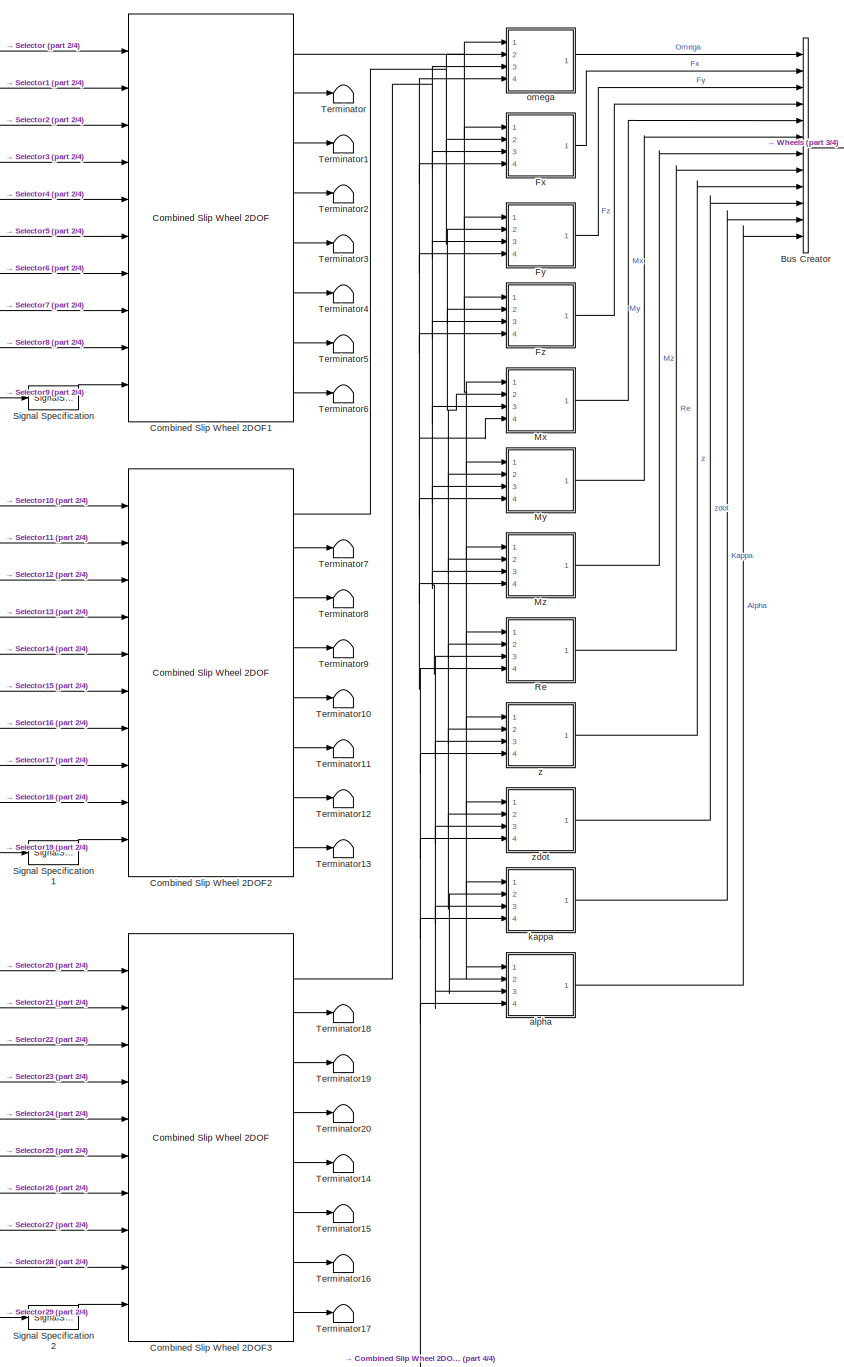
[diagram: Vehicle Model/Body, Suspension, Wheels/PassVeh14DOF/Wheels and Tires/VDBS/Tires/MF Tires - part 1/4, center side, full height]
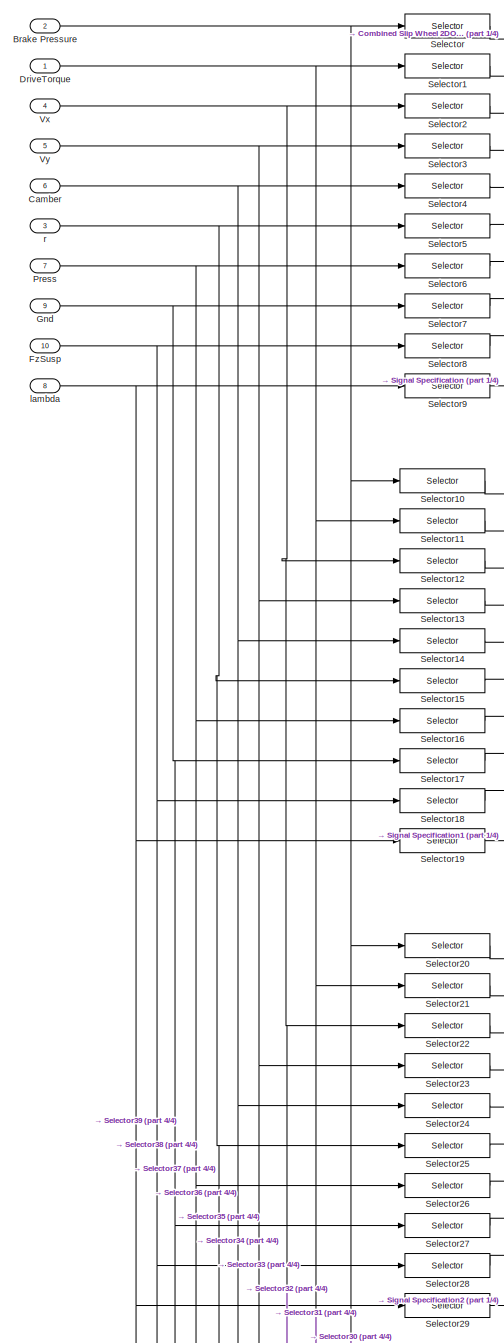
[diagram: Vehicle Model/Body, Suspension, Wheels/PassVeh14DOF/Wheels and Tires/VDBS/Tires/MF Tires - part 2/4, left side, full height]
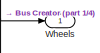
[diagram: Vehicle Model/Body, Suspension, Wheels/PassVeh14DOF/Wheels and Tires/VDBS/Tires/MF Tires - part 3/4, top right region]
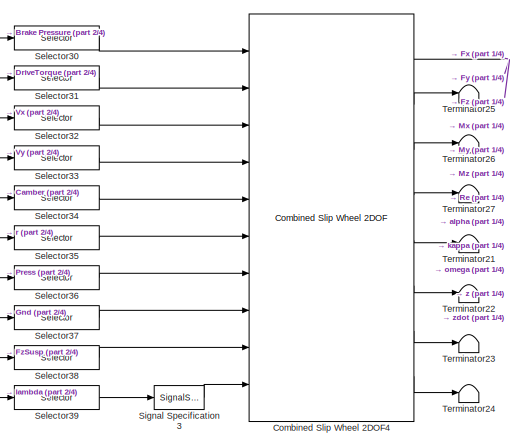
[diagram: Vehicle Model/Body, Suspension, Wheels/PassVeh14DOF/Wheels and Tires/VDBS/Tires/MF Tires - part 4/4, bottom center region]
BLOCK [SubSystem] Vehicle Model/Body, Suspension, Wheels/PassVeh14DOF/Wheels and Tires/VDBS/Tires/MF Tires
  Ports = [10, 1]
  RequestExecContextInheritance = off
  VariantControl = 0
BLOCK [Inport] Vehicle Model/Body, Suspension, Wheels/PassVeh14DOF/Wheels and Tires/VDBS/Tires/MF Tires/Brake Pressure
  Port = 2
BLOCK [BusCreator] Vehicle Model/Body, Suspension, Wheels/PassVeh14DOF/Wheels and Tires/VDBS/Tires/MF Tires/Bus Creator
  DisplayOption = bar
  InheritFromInputs = on
  Inputs = 12
  Ports = [12, 1]
BLOCK [Inport] Vehicle Model/Body, Suspension, Wheels/PassVeh14DOF/Wheels and Tires/VDBS/Tires/MF Tires/Camber
  Port = 6
BLOCK [Reference] Vehicle Model/Body, Suspension, Wheels/PassVeh14DOF/Wheels and Tires/VDBS/Tires/MF Tires/Combined Slip Wheel 2DOF1  REF=vehdynlibtire/Combined Slip Wheel 2DOF
  Ports = [10, 8]
  SourceBlock = vehdynlibtire/Combined Slip Wheel 2DOF
  SourceProductBaseCode = VE
  SourceType = Combined Slip Wheel 2DOF
BLOCK [Reference] Vehicle Model/Body, Suspension, Wheels/PassVeh14DOF/Wheels and Tires/VDBS/Tires/MF Tires/Combined Slip Wheel 2DOF2  REF=vehdynlibtire/Combined Slip Wheel 2DOF
  Ports = [10, 8]
  SourceBlock = vehdynlibtire/Combined Slip Wheel 2DOF
  SourceProductBaseCode = VE
  SourceType = Combined Slip Wheel 2DOF
BLOCK [Reference] Vehicle Model/Body, Suspension, Wheels/PassVeh14DOF/Wheels and Tires/VDBS/Tires/MF Tires/Combined Slip Wheel 2DOF3  REF=vehdynlibtire/Combined Slip Wheel 2DOF
  Ports = [10, 8]
  SourceBlock = vehdynlibtire/Combined Slip Wheel 2DOF
  SourceProductBaseCode = VE
  SourceType = Combined Slip Wheel 2DOF
BLOCK [Reference] Vehicle Model/Body, Suspension, Wheels/PassVeh14DOF/Wheels and Tires/VDBS/Tires/MF Tires/Combined Slip Wheel 2DOF4  REF=vehdynlibtire/Combined Slip Wheel 2DOF
  Ports = [10, 8]
  SourceBlock = vehdynlibtire/Combined Slip Wheel 2DOF
  SourceProductBaseCode = VE
  SourceType = Combined Slip Wheel 2DOF
BLOCK [Inport] Vehicle Model/Body, Suspension, Wheels/PassVeh14DOF/Wheels and Tires/VDBS/Tires/MF Tires/DriveTorque
BLOCK [SubSystem] Vehicle Model/Body, Suspension, Wheels/PassVeh14DOF/Wheels and Tires/VDBS/Tires/MF Tires/Fx
  Ports = [4, 1]
  RequestExecContextInheritance = off
BLOCK [BusSelector] Vehicle Model/Body, Suspension, Wheels/PassVeh14DOF/Wheels and Tires/VDBS/Tires/MF Tires/Fx/Bus Selector
  OutputSignals = Fx
  Ports = [1, 1]
BLOCK [BusSelector] Vehicle Model/Body, Suspension, Wheels/PassVeh14DOF/Wheels and Tires/VDBS/Tires/MF Tires/Fx/Bus Selector1
  OutputSignals = Fx
  Ports = [1, 1]
BLOCK [BusSelector] Vehicle Model/Body, Suspension, Wheels/PassVeh14DOF/Wheels and Tires/VDBS/Tires/MF Tires/Fx/Bus Selector2
  OutputSignals = Fx
  Ports = [1, 1]
BLOCK [BusSelector] Vehicle Model/Body, Suspension, Wheels/PassVeh14DOF/Wheels and Tires/VDBS/Tires/MF Tires/Fx/Bus Selector3
  OutputSignals = Fx
  Ports = [1, 1]
BLOCK [Inport] Vehicle Model/Body, Suspension, Wheels/PassVeh14DOF/Wheels and Tires/VDBS/Tires/MF Tires/Fx/In1
BLOCK [Inport] Vehicle Model/Body, Suspension, Wheels/PassVeh14DOF/Wheels and Tires/VDBS/Tires/MF Tires/Fx/In2
  Port = 2
BLOCK [Inport] Vehicle Model/Body, Suspension, Wheels/PassVeh14DOF/Wheels and Tires/VDBS/Tires/MF Tires/Fx/In3
  Port = 3
BLOCK [Inport] Vehicle Model/Body, Suspension, Wheels/PassVeh14DOF/Wheels and Tires/VDBS/Tires/MF Tires/Fx/In4
  Port = 4
BLOCK [Outport] Vehicle Model/Body, Suspension, Wheels/PassVeh14DOF/Wheels and Tires/VDBS/Tires/MF Tires/Fx/Out1
  VectorParamsAs1DForOutWhenUnconnected = off
BLOCK [Concatenate] Vehicle Model/Body, Suspension, Wheels/PassVeh14DOF/Wheels and Tires/VDBS/Tires/MF Tires/Fx/Vector Concatenate
  NumInputs = 4
  Ports = [4, 1]
BLOCK [SubSystem] Vehicle Model/Body, Suspension, Wheels/PassVeh14DOF/Wheels and Tires/VDBS/Tires/MF Tires/Fy
  Ports = [4, 1]
  RequestExecContextInheritance = off
BLOCK [BusSelector] Vehicle Model/Body, Suspension, Wheels/PassVeh14DOF/Wheels and Tires/VDBS/Tires/MF Tires/Fy/Bus Selector
  OutputSignals = Fy
  Ports = [1, 1]
BLOCK [BusSelector] Vehicle Model/Body, Suspension, Wheels/PassVeh14DOF/Wheels and Tires/VDBS/Tires/MF Tires/Fy/Bus Selector1
  OutputSignals = Fy
  Ports = [1, 1]
BLOCK [BusSelector] Vehicle Model/Body, Suspension, Wheels/PassVeh14DOF/Wheels and Tires/VDBS/Tires/MF Tires/Fy/Bus Selector2
  OutputSignals = Fy
  Ports = [1, 1]
BLOCK [BusSelector] Vehicle Model/Body, Suspension, Wheels/PassVeh14DOF/Wheels and Tires/VDBS/Tires/MF Tires/Fy/Bus Selector3
  OutputSignals = Fy
  Ports = [1, 1]
BLOCK [Inport] Vehicle Model/Body, Suspension, Wheels/PassVeh14DOF/Wheels and Tires/VDBS/Tires/MF Tires/Fy/In1
BLOCK [Inport] Vehicle Model/Body, Suspension, Wheels/PassVeh14DOF/Wheels and Tires/VDBS/Tires/MF Tires/Fy/In2
  Port = 2
BLOCK [Inport] Vehicle Model/Body, Suspension, Wheels/PassVeh14DOF/Wheels and Tires/VDBS/Tires/MF Tires/Fy/In3
  Port = 3
BLOCK [Inport] Vehicle Model/Body, Suspension, Wheels/PassVeh14DOF/Wheels and Tires/VDBS/Tires/MF Tires/Fy/In4
  Port = 4
BLOCK [Outport] Vehicle Model/Body, Suspension, Wheels/PassVeh14DOF/Wheels and Tires/VDBS/Tires/MF Tires/Fy/Out1
  VectorParamsAs1DForOutWhenUnconnected = off
BLOCK [Concatenate] Vehicle Model/Body, Suspension, Wheels/PassVeh14DOF/Wheels and Tires/VDBS/Tires/MF Tires/Fy/Vector Concatenate
  NumInputs = 4
  Ports = [4, 1]
BLOCK [SubSystem] Vehicle Model/Body, Suspension, Wheels/PassVeh14DOF/Wheels and Tires/VDBS/Tires/MF Tires/Fz
  Ports = [4, 1]
  RequestExecContextInheritance = off
BLOCK [BusSelector] Vehicle Model/Body, Suspension, Wheels/PassVeh14DOF/Wheels and Tires/VDBS/Tires/MF Tires/Fz/Bus Selector
  OutputSignals = Fz
  Ports = [1, 1]
BLOCK [BusSelector] Vehicle Model/Body, Suspension, Wheels/PassVeh14DOF/Wheels and Tires/VDBS/Tires/MF Tires/Fz/Bus Selector1
  OutputSignals = Fz
  Ports = [1, 1]
BLOCK [BusSelector] Vehicle Model/Body, Suspension, Wheels/PassVeh14DOF/Wheels and Tires/VDBS/Tires/MF Tires/Fz/Bus Selector2
  OutputSignals = Fz
  Ports = [1, 1]
BLOCK [BusSelector] Vehicle Model/Body, Suspension, Wheels/PassVeh14DOF/Wheels and Tires/VDBS/Tires/MF Tires/Fz/Bus Selector3
  OutputSignals = Fz
  Ports = [1, 1]
BLOCK [Inport] Vehicle Model/Body, Suspension, Wheels/PassVeh14DOF/Wheels and Tires/VDBS/Tires/MF Tires/Fz/In1
BLOCK [Inport] Vehicle Model/Body, Suspension, Wheels/PassVeh14DOF/Wheels and Tires/VDBS/Tires/MF Tires/Fz/In2
  Port = 2
BLOCK [Inport] Vehicle Model/Body, Suspension, Wheels/PassVeh14DOF/Wheels and Tires/VDBS/Tires/MF Tires/Fz/In3
  Port = 3
BLOCK [Inport] Vehicle Model/Body, Suspension, Wheels/PassVeh14DOF/Wheels and Tires/VDBS/Tires/MF Tires/Fz/In4
  Port = 4
BLOCK [Outport] Vehicle Model/Body, Suspension, Wheels/PassVeh14DOF/Wheels and Tires/VDBS/Tires/MF Tires/Fz/Out1
  VectorParamsAs1DForOutWhenUnconnected = off
BLOCK [Concatenate] Vehicle Model/Body, Suspension, Wheels/PassVeh14DOF/Wheels and Tires/VDBS/Tires/MF Tires/Fz/Vector Concatenate
  NumInputs = 4
  Ports = [4, 1]
BLOCK [Inport] Vehicle Model/Body, Suspension, Wheels/PassVeh14DOF/Wheels and Tires/VDBS/Tires/MF Tires/FzSusp
  Port = 10
BLOCK [Inport] Vehicle Model/Body, Suspension, Wheels/PassVeh14DOF/Wheels and Tires/VDBS/Tires/MF Tires/Gnd
  Port = 9
BLOCK [SubSystem] Vehicle Model/Body, Suspension, Wheels/PassVeh14DOF/Wheels and Tires/VDBS/Tires/MF Tires/Mx
  Ports = [4, 1]
  RequestExecContextInheritance = off
BLOCK [BusSelector] Vehicle Model/Body, Suspension, Wheels/PassVeh14DOF/Wheels and Tires/VDBS/Tires/MF Tires/Mx/Bus Selector
  OutputSignals = Mx
  Ports = [1, 1]
BLOCK [BusSelector] Vehicle Model/Body, Suspension, Wheels/PassVeh14DOF/Wheels and Tires/VDBS/Tires/MF Tires/Mx/Bus Selector1
  OutputSignals = Mx
  Ports = [1, 1]
BLOCK [BusSelector] Vehicle Model/Body, Suspension, Wheels/PassVeh14DOF/Wheels and Tires/VDBS/Tires/MF Tires/Mx/Bus Selector2
  OutputSignals = Mx
  Ports = [1, 1]
BLOCK [BusSelector] Vehicle Model/Body, Suspension, Wheels/PassVeh14DOF/Wheels and Tires/VDBS/Tires/MF Tires/Mx/Bus Selector3
  OutputSignals = Mx
  Ports = [1, 1]
BLOCK [Inport] Vehicle Model/Body, Suspension, Wheels/PassVeh14DOF/Wheels and Tires/VDBS/Tires/MF Tires/Mx/In1
BLOCK [Inport] Vehicle Model/Body, Suspension, Wheels/PassVeh14DOF/Wheels and Tires/VDBS/Tires/MF Tires/Mx/In2
  Port = 2
BLOCK [Inport] Vehicle Model/Body, Suspension, Wheels/PassVeh14DOF/Wheels and Tires/VDBS/Tires/MF Tires/Mx/In3
  Port = 3
BLOCK [Inport] Vehicle Model/Body, Suspension, Wheels/PassVeh14DOF/Wheels and Tires/VDBS/Tires/MF Tires/Mx/In4
  Port = 4
BLOCK [Outport] Vehicle Model/Body, Suspension, Wheels/PassVeh14DOF/Wheels and Tires/VDBS/Tires/MF Tires/Mx/Out1
  VectorParamsAs1DForOutWhenUnconnected = off
BLOCK [Concatenate] Vehicle Model/Body, Suspension, Wheels/PassVeh14DOF/Wheels and Tires/VDBS/Tires/MF Tires/Mx/Vector Concatenate
  NumInputs = 4
  Ports = [4, 1]
BLOCK [SubSystem] Vehicle Model/Body, Suspension, Wheels/PassVeh14DOF/Wheels and Tires/VDBS/Tires/MF Tires/My
  Ports = [4, 1]
  RequestExecContextInheritance = off
BLOCK [BusSelector] Vehicle Model/Body, Suspension, Wheels/PassVeh14DOF/Wheels and Tires/VDBS/Tires/MF Tires/My/Bus Selector
  OutputSignals = My
  Ports = [1, 1]
BLOCK [BusSelector] Vehicle Model/Body, Suspension, Wheels/PassVeh14DOF/Wheels and Tires/VDBS/Tires/MF Tires/My/Bus Selector1
  OutputSignals = My
  Ports = [1, 1]
BLOCK [BusSelector] Vehicle Model/Body, Suspension, Wheels/PassVeh14DOF/Wheels and Tires/VDBS/Tires/MF Tires/My/Bus Selector2
  OutputSignals = My
  Ports = [1, 1]
BLOCK [BusSelector] Vehicle Model/Body, Suspension, Wheels/PassVeh14DOF/Wheels and Tires/VDBS/Tires/MF Tires/My/Bus Selector3
  OutputSignals = My
  Ports = [1, 1]
BLOCK [Inport] Vehicle Model/Body, Suspension, Wheels/PassVeh14DOF/Wheels and Tires/VDBS/Tires/MF Tires/My/In1
BLOCK [Inport] Vehicle Model/Body, Suspension, Wheels/PassVeh14DOF/Wheels and Tires/VDBS/Tires/MF Tires/My/In2
  Port = 2
BLOCK [Inport] Vehicle Model/Body, Suspension, Wheels/PassVeh14DOF/Wheels and Tires/VDBS/Tires/MF Tires/My/In3
  Port = 3
BLOCK [Inport] Vehicle Model/Body, Suspension, Wheels/PassVeh14DOF/Wheels and Tires/VDBS/Tires/MF Tires/My/In4
  Port = 4
BLOCK [Outport] Vehicle Model/Body, Suspension, Wheels/PassVeh14DOF/Wheels and Tires/VDBS/Tires/MF Tires/My/Out1
  VectorParamsAs1DForOutWhenUnconnected = off
BLOCK [Concatenate] Vehicle Model/Body, Suspension, Wheels/PassVeh14DOF/Wheels and Tires/VDBS/Tires/MF Tires/My/Vector Concatenate
  NumInputs = 4
  Ports = [4, 1]
BLOCK [SubSystem] Vehicle Model/Body, Suspension, Wheels/PassVeh14DOF/Wheels and Tires/VDBS/Tires/MF Tires/Mz
  Ports = [4, 1]
  RequestExecContextInheritance = off
BLOCK [BusSelector] Vehicle Model/Body, Suspension, Wheels/PassVeh14DOF/Wheels and Tires/VDBS/Tires/MF Tires/Mz/Bus Selector
  OutputSignals = Mz
  Ports = [1, 1]
BLOCK [BusSelector] Vehicle Model/Body, Suspension, Wheels/PassVeh14DOF/Wheels and Tires/VDBS/Tires/MF Tires/Mz/Bus Selector1
  OutputSignals = Mz
  Ports = [1, 1]
BLOCK [BusSelector] Vehicle Model/Body, Suspension, Wheels/PassVeh14DOF/Wheels and Tires/VDBS/Tires/MF Tires/Mz/Bus Selector2
  OutputSignals = Mz
  Ports = [1, 1]
BLOCK [BusSelector] Vehicle Model/Body, Suspension, Wheels/PassVeh14DOF/Wheels and Tires/VDBS/Tires/MF Tires/Mz/Bus Selector3
  OutputSignals = Mz
  Ports = [1, 1]
BLOCK [Inport] Vehicle Model/Body, Suspension, Wheels/PassVeh14DOF/Wheels and Tires/VDBS/Tires/MF Tires/Mz/In1
BLOCK [Inport] Vehicle Model/Body, Suspension, Wheels/PassVeh14DOF/Wheels and Tires/VDBS/Tires/MF Tires/Mz/In2
  Port = 2
BLOCK [Inport] Vehicle Model/Body, Suspension, Wheels/PassVeh14DOF/Wheels and Tires/VDBS/Tires/MF Tires/Mz/In3
  Port = 3
BLOCK [Inport] Vehicle Model/Body, Suspension, Wheels/PassVeh14DOF/Wheels and Tires/VDBS/Tires/MF Tires/Mz/In4
  Port = 4
BLOCK [Outport] Vehicle Model/Body, Suspension, Wheels/PassVeh14DOF/Wheels and Tires/VDBS/Tires/MF Tires/Mz/Out1
  VectorParamsAs1DForOutWhenUnconnected = off
BLOCK [Concatenate] Vehicle Model/Body, Suspension, Wheels/PassVeh14DOF/Wheels and Tires/VDBS/Tires/MF Tires/Mz/Vector Concatenate
  NumInputs = 4
  Ports = [4, 1]
BLOCK [Inport] Vehicle Model/Body, Suspension, Wheels/PassVeh14DOF/Wheels and Tires/VDBS/Tires/MF Tires/Press
  Port = 7
  Unit = Pa
BLOCK [SubSystem] Vehicle Model/Body, Suspension, Wheels/PassVeh14DOF/Wheels and Tires/VDBS/Tires/MF Tires/Re
  Ports = [4, 1]
  RequestExecContextInheritance = off
BLOCK [BusSelector] Vehicle Model/Body, Suspension, Wheels/PassVeh14DOF/Wheels and Tires/VDBS/Tires/MF Tires/Re/Bus Selector
  OutputSignals = Re
  Ports = [1, 1]
BLOCK [BusSelector] Vehicle Model/Body, Suspension, Wheels/PassVeh14DOF/Wheels and Tires/VDBS/Tires/MF Tires/Re/Bus Selector1
  OutputSignals = Re
  Ports = [1, 1]
BLOCK [BusSelector] Vehicle Model/Body, Suspension, Wheels/PassVeh14DOF/Wheels and Tires/VDBS/Tires/MF Tires/Re/Bus Selector2
  OutputSignals = Re
  Ports = [1, 1]
BLOCK [BusSelector] Vehicle Model/Body, Suspension, Wheels/PassVeh14DOF/Wheels and Tires/VDBS/Tires/MF Tires/Re/Bus Selector3
  OutputSignals = Re
  Ports = [1, 1]
BLOCK [Inport] Vehicle Model/Body, Suspension, Wheels/PassVeh14DOF/Wheels and Tires/VDBS/Tires/MF Tires/Re/In1
BLOCK [Inport] Vehicle Model/Body, Suspension, Wheels/PassVeh14DOF/Wheels and Tires/VDBS/Tires/MF Tires/Re/In2
  Port = 2
BLOCK [Inport] Vehicle Model/Body, Suspension, Wheels/PassVeh14DOF/Wheels and Tires/VDBS/Tires/MF Tires/Re/In3
  Port = 3
BLOCK [Inport] Vehicle Model/Body, Suspension, Wheels/PassVeh14DOF/Wheels and Tires/VDBS/Tires/MF Tires/Re/In4
  Port = 4
BLOCK [Outport] Vehicle Model/Body, Suspension, Wheels/PassVeh14DOF/Wheels and Tires/VDBS/Tires/MF Tires/Re/Out1
  VectorParamsAs1DForOutWhenUnconnected = off
BLOCK [Concatenate] Vehicle Model/Body, Suspension, Wheels/PassVeh14DOF/Wheels and Tires/VDBS/Tires/MF Tires/Re/Vector Concatenate
  NumInputs = 4
  Ports = [4, 1]
BLOCK [Selector] Vehicle Model/Body, Suspension, Wheels/PassVeh14DOF/Wheels and Tires/VDBS/Tires/MF Tires/Selector
  IndexOptions = Index vector (dialog)
  Indices = 1
  InputPortWidth = 4
  OutputSizes = 1
  Ports = [1, 1]
BLOCK [Selector] Vehicle Model/Body, Suspension, Wheels/PassVeh14DOF/Wheels and Tires/VDBS/Tires/MF Tires/Selector1
  IndexOptions = Index vector (dialog)
  Indices = 1
  InputPortWidth = 4
  OutputSizes = 1
  Ports = [1, 1]
BLOCK [Selector] Vehicle Model/Body, Suspension, Wheels/PassVeh14DOF/Wheels and Tires/VDBS/Tires/MF Tires/Selector10
  IndexOptions = Index vector (dialog)
  Indices = 2
  InputPortWidth = 4
  OutputSizes = 1
  Ports = [1, 1]
BLOCK [Selector] Vehicle Model/Body, Suspension, Wheels/PassVeh14DOF/Wheels and Tires/VDBS/Tires/MF Tires/Selector11
  IndexOptions = Index vector (dialog)
  Indices = 2
  InputPortWidth = 4
  OutputSizes = 1
  Ports = [1, 1]
BLOCK [Selector] Vehicle Model/Body, Suspension, Wheels/PassVeh14DOF/Wheels and Tires/VDBS/Tires/MF Tires/Selector12
  IndexOptions = Index vector (dialog)
  Indices = 2
  InputPortWidth = 4
  OutputSizes = 1
  Ports = [1, 1]
BLOCK [Selector] Vehicle Model/Body, Suspension, Wheels/PassVeh14DOF/Wheels and Tires/VDBS/Tires/MF Tires/Selector13
  IndexOptions = Index vector (dialog)
  Indices = 2
  InputPortWidth = 4
  OutputSizes = 1
  Ports = [1, 1]
BLOCK [Selector] Vehicle Model/Body, Suspension, Wheels/PassVeh14DOF/Wheels and Tires/VDBS/Tires/MF Tires/Selector14
  IndexOptions = Index vector (dialog)
  Indices = 2
  InputPortWidth = 4
  OutputSizes = 1
  Ports = [1, 1]
BLOCK [Selector] Vehicle Model/Body, Suspension, Wheels/PassVeh14DOF/Wheels and Tires/VDBS/Tires/MF Tires/Selector15
  IndexOptions = Index vector (dialog)
  Indices = 2
  InputPortWidth = 4
  OutputSizes = 1
  Ports = [1, 1]
BLOCK [Selector] Vehicle Model/Body, Suspension, Wheels/PassVeh14DOF/Wheels and Tires/VDBS/Tires/MF Tires/Selector16
  IndexOptions = Index vector (dialog)
  Indices = 2
  InputPortWidth = 4
  OutputSizes = 1
  Ports = [1, 1]
BLOCK [Selector] Vehicle Model/Body, Suspension, Wheels/PassVeh14DOF/Wheels and Tires/VDBS/Tires/MF Tires/Selector17
  IndexOptions = Index vector (dialog)
  Indices = 2
  InputPortWidth = 4
  OutputSizes = 1
  Ports = [1, 1]
BLOCK [Selector] Vehicle Model/Body, Suspension, Wheels/PassVeh14DOF/Wheels and Tires/VDBS/Tires/MF Tires/Selector18
  IndexOptions = Index vector (dialog)
  Indices = 2
  InputPortWidth = 4
  OutputSizes = 1
  Ports = [1, 1]
BLOCK [Selector] Vehicle Model/Body, Suspension, Wheels/PassVeh14DOF/Wheels and Tires/VDBS/Tires/MF Tires/Selector19
  IndexOptions = Select all,Index vector (dialog)
  Indices = 1,2
  InputPortWidth = 4
  NumberOfDimensions = 2
  OutputSizes = 1,1
  Ports = [1, 1]
BLOCK [Selector] Vehicle Model/Body, Suspension, Wheels/PassVeh14DOF/Wheels and Tires/VDBS/Tires/MF Tires/Selector2
  IndexOptions = Index vector (dialog)
  Indices = 1
  InputPortWidth = 4
  OutputSizes = 1
  Ports = [1, 1]
BLOCK [Selector] Vehicle Model/Body, Suspension, Wheels/PassVeh14DOF/Wheels and Tires/VDBS/Tires/MF Tires/Selector20
  IndexOptions = Index vector (dialog)
  Indices = 3
  InputPortWidth = 4
  OutputSizes = 1
  Ports = [1, 1]
BLOCK [Selector] Vehicle Model/Body, Suspension, Wheels/PassVeh14DOF/Wheels and Tires/VDBS/Tires/MF Tires/Selector21
  IndexOptions = Index vector (dialog)
  Indices = 3
  InputPortWidth = 4
  OutputSizes = 1
  Ports = [1, 1]
BLOCK [Selector] Vehicle Model/Body, Suspension, Wheels/PassVeh14DOF/Wheels and Tires/VDBS/Tires/MF Tires/Selector22
  IndexOptions = Index vector (dialog)
  Indices = 3
  InputPortWidth = 4
  OutputSizes = 1
  Ports = [1, 1]
BLOCK [Selector] Vehicle Model/Body, Suspension, Wheels/PassVeh14DOF/Wheels and Tires/VDBS/Tires/MF Tires/Selector23
  IndexOptions = Index vector (dialog)
  Indices = 3
  InputPortWidth = 4
  OutputSizes = 1
  Ports = [1, 1]
BLOCK [Selector] Vehicle Model/Body, Suspension, Wheels/PassVeh14DOF/Wheels and Tires/VDBS/Tires/MF Tires/Selector24
  IndexOptions = Index vector (dialog)
  Indices = 3
  InputPortWidth = 4
  OutputSizes = 1
  Ports = [1, 1]
BLOCK [Selector] Vehicle Model/Body, Suspension, Wheels/PassVeh14DOF/Wheels and Tires/VDBS/Tires/MF Tires/Selector25
  IndexOptions = Index vector (dialog)
  Indices = 3
  InputPortWidth = 4
  OutputSizes = 1
  Ports = [1, 1]
BLOCK [Selector] Vehicle Model/Body, Suspension, Wheels/PassVeh14DOF/Wheels and Tires/VDBS/Tires/MF Tires/Selector26
  IndexOptions = Index vector (dialog)
  Indices = 3
  InputPortWidth = 4
  OutputSizes = 1
  Ports = [1, 1]
BLOCK [Selector] Vehicle Model/Body, Suspension, Wheels/PassVeh14DOF/Wheels and Tires/VDBS/Tires/MF Tires/Selector27
  IndexOptions = Index vector (dialog)
  Indices = 3
  InputPortWidth = 4
  OutputSizes = 1
  Ports = [1, 1]
BLOCK [Selector] Vehicle Model/Body, Suspension, Wheels/PassVeh14DOF/Wheels and Tires/VDBS/Tires/MF Tires/Selector28
  IndexOptions = Index vector (dialog)
  Indices = 3
  InputPortWidth = 4
  OutputSizes = 1
  Ports = [1, 1]
BLOCK [Selector] Vehicle Model/Body, Suspension, Wheels/PassVeh14DOF/Wheels and Tires/VDBS/Tires/MF Tires/Selector29
  IndexOptions = Select all,Index vector (dialog)
  Indices = 1,3
  InputPortWidth = 4
  NumberOfDimensions = 2
  OutputSizes = 1,1
  Ports = [1, 1]
BLOCK [Selector] Vehicle Model/Body, Suspension, Wheels/PassVeh14DOF/Wheels and Tires/VDBS/Tires/MF Tires/Selector3
  IndexOptions = Index vector (dialog)
  Indices = 1
  InputPortWidth = 4
  OutputSizes = 1
  Ports = [1, 1]
BLOCK [Selector] Vehicle Model/Body, Suspension, Wheels/PassVeh14DOF/Wheels and Tires/VDBS/Tires/MF Tires/Selector30
  IndexOptions = Index vector (dialog)
  Indices = 4
  InputPortWidth = 4
  OutputSizes = 1
  Ports = [1, 1]
BLOCK [Selector] Vehicle Model/Body, Suspension, Wheels/PassVeh14DOF/Wheels and Tires/VDBS/Tires/MF Tires/Selector31
  IndexOptions = Index vector (dialog)
  Indices = 4
  InputPortWidth = 4
  OutputSizes = 1
  Ports = [1, 1]
BLOCK [Selector] Vehicle Model/Body, Suspension, Wheels/PassVeh14DOF/Wheels and Tires/VDBS/Tires/MF Tires/Selector32
  IndexOptions = Index vector (dialog)
  Indices = 4
  InputPortWidth = 4
  OutputSizes = 1
  Ports = [1, 1]
BLOCK [Selector] Vehicle Model/Body, Suspension, Wheels/PassVeh14DOF/Wheels and Tires/VDBS/Tires/MF Tires/Selector33
  IndexOptions = Index vector (dialog)
  Indices = 4
  InputPortWidth = 4
  OutputSizes = 1
  Ports = [1, 1]
BLOCK [Selector] Vehicle Model/Body, Suspension, Wheels/PassVeh14DOF/Wheels and Tires/VDBS/Tires/MF Tires/Selector34
  IndexOptions = Index vector (dialog)
  Indices = 4
  InputPortWidth = 4
  OutputSizes = 1
  Ports = [1, 1]
BLOCK [Selector] Vehicle Model/Body, Suspension, Wheels/PassVeh14DOF/Wheels and Tires/VDBS/Tires/MF Tires/Selector35
  IndexOptions = Index vector (dialog)
  Indices = 4
  InputPortWidth = 4
  OutputSizes = 1
  Ports = [1, 1]
BLOCK [Selector] Vehicle Model/Body, Suspension, Wheels/PassVeh14DOF/Wheels and Tires/VDBS/Tires/MF Tires/Selector36
  IndexOptions = Index vector (dialog)
  Indices = 4
  InputPortWidth = 4
  OutputSizes = 1
  Ports = [1, 1]
BLOCK [Selector] Vehicle Model/Body, Suspension, Wheels/PassVeh14DOF/Wheels and Tires/VDBS/Tires/MF Tires/Selector37
  IndexOptions = Index vector (dialog)
  Indices = 4
  InputPortWidth = 4
  OutputSizes = 1
  Ports = [1, 1]
BLOCK [Selector] Vehicle Model/Body, Suspension, Wheels/PassVeh14DOF/Wheels and Tires/VDBS/Tires/MF Tires/Selector38
  IndexOptions = Index vector (dialog)
  Indices = 4
  InputPortWidth = 4
  OutputSizes = 1
  Ports = [1, 1]
BLOCK [Selector] Vehicle Model/Body, Suspension, Wheels/PassVeh14DOF/Wheels and Tires/VDBS/Tires/MF Tires/Selector39
  IndexOptions = Select all,Index vector (dialog)
  Indices = 1,4
  InputPortWidth = 4
  NumberOfDimensions = 2
  OutputSizes = 1,1
  Ports = [1, 1]
BLOCK [Selector] Vehicle Model/Body, Suspension, Wheels/PassVeh14DOF/Wheels and Tires/VDBS/Tires/MF Tires/Selector4
  IndexOptions = Index vector (dialog)
  Indices = 1
  InputPortWidth = 4
  OutputSizes = 1
  Ports = [1, 1]
BLOCK [Selector] Vehicle Model/Body, Suspension, Wheels/PassVeh14DOF/Wheels and Tires/VDBS/Tires/MF Tires/Selector5
  IndexOptions = Index vector (dialog)
  Indices = 1
  InputPortWidth = 4
  OutputSizes = 1
  Ports = [1, 1]
BLOCK [Selector] Vehicle Model/Body, Suspension, Wheels/PassVeh14DOF/Wheels and Tires/VDBS/Tires/MF Tires/Selector6
  IndexOptions = Index vector (dialog)
  Indices = 1
  InputPortWidth = 4
  OutputSizes = 1
  Ports = [1, 1]
BLOCK [Selector] Vehicle Model/Body, Suspension, Wheels/PassVeh14DOF/Wheels and Tires/VDBS/Tires/MF Tires/Selector7
  IndexOptions = Index vector (dialog)
  Indices = 1
  InputPortWidth = 4
  OutputSizes = 1
  Ports = [1, 1]
BLOCK [Selector] Vehicle Model/Body, Suspension, Wheels/PassVeh14DOF/Wheels and Tires/VDBS/Tires/MF Tires/Selector8
  IndexOptions = Index vector (dialog)
  Indices = 1
  InputPortWidth = 4
  OutputSizes = 1
  Ports = [1, 1]
BLOCK [Selector] Vehicle Model/Body, Suspension, Wheels/PassVeh14DOF/Wheels and Tires/VDBS/Tires/MF Tires/Selector9
  IndexOptions = Select all,Index vector (dialog)
  Indices = 1,1
  InputPortWidth = 4
  NumberOfDimensions = 2
  OutputSizes = 1,1
  Ports = [1, 1]
BLOCK [SignalSpecification] Vehicle Model/Body, Suspension, Wheels/PassVeh14DOF/Wheels and Tires/VDBS/Tires/MF Tires/Signal Specification
  Unit = 1
BLOCK [SignalSpecification] Vehicle Model/Body, Suspension, Wheels/PassVeh14DOF/Wheels and Tires/VDBS/Tires/MF Tires/Signal Specification1
  Unit = 1
BLOCK [SignalSpecification] Vehicle Model/Body, Suspension, Wheels/PassVeh14DOF/Wheels and Tires/VDBS/Tires/MF Tires/Signal Specification2
  Unit = 1
BLOCK [SignalSpecification] Vehicle Model/Body, Suspension, Wheels/PassVeh14DOF/Wheels and Tires/VDBS/Tires/MF Tires/Signal Specification3
  Unit = 1
BLOCK [Terminator] Vehicle Model/Body, Suspension, Wheels/PassVeh14DOF/Wheels and Tires/VDBS/Tires/MF Tires/Terminator
BLOCK [Terminator] Vehicle Model/Body, Suspension, Wheels/PassVeh14DOF/Wheels and Tires/VDBS/Tires/MF Tires/Terminator1
BLOCK [Terminator] Vehicle Model/Body, Suspension, Wheels/PassVeh14DOF/Wheels and Tires/VDBS/Tires/MF Tires/Terminator10
BLOCK [Terminator] Vehicle Model/Body, Suspension, Wheels/PassVeh14DOF/Wheels and Tires/VDBS/Tires/MF Tires/Terminator11
BLOCK [Terminator] Vehicle Model/Body, Suspension, Wheels/PassVeh14DOF/Wheels and Tires/VDBS/Tires/MF Tires/Terminator12
BLOCK [Terminator] Vehicle Model/Body, Suspension, Wheels/PassVeh14DOF/Wheels and Tires/VDBS/Tires/MF Tires/Terminator13
BLOCK [Terminator] Vehicle Model/Body, Suspension, Wheels/PassVeh14DOF/Wheels and Tires/VDBS/Tires/MF Tires/Terminator14
BLOCK [Terminator] Vehicle Model/Body, Suspension, Wheels/PassVeh14DOF/Wheels and Tires/VDBS/Tires/MF Tires/Terminator15
BLOCK [Terminator] Vehicle Model/Body, Suspension, Wheels/PassVeh14DOF/Wheels and Tires/VDBS/Tires/MF Tires/Terminator16
BLOCK [Terminator] Vehicle Model/Body, Suspension, Wheels/PassVeh14DOF/Wheels and Tires/VDBS/Tires/MF Tires/Terminator17
BLOCK [Terminator] Vehicle Model/Body, Suspension, Wheels/PassVeh14DOF/Wheels and Tires/VDBS/Tires/MF Tires/Terminator18
BLOCK [Terminator] Vehicle Model/Body, Suspension, Wheels/PassVeh14DOF/Wheels and Tires/VDBS/Tires/MF Tires/Terminator19
BLOCK [Terminator] Vehicle Model/Body, Suspension, Wheels/PassVeh14DOF/Wheels and Tires/VDBS/Tires/MF Tires/Terminator2
BLOCK [Terminator] Vehicle Model/Body, Suspension, Wheels/PassVeh14DOF/Wheels and Tires/VDBS/Tires/MF Tires/Terminator20
BLOCK [Terminator] Vehicle Model/Body, Suspension, Wheels/PassVeh14DOF/Wheels and Tires/VDBS/Tires/MF Tires/Terminator21
BLOCK [Terminator] Vehicle Model/Body, Suspension, Wheels/PassVeh14DOF/Wheels and Tires/VDBS/Tires/MF Tires/Terminator22
BLOCK [Terminator] Vehicle Model/Body, Suspension, Wheels/PassVeh14DOF/Wheels and Tires/VDBS/Tires/MF Tires/Terminator23
BLOCK [Terminator] Vehicle Model/Body, Suspension, Wheels/PassVeh14DOF/Wheels and Tires/VDBS/Tires/MF Tires/Terminator24
BLOCK [Terminator] Vehicle Model/Body, Suspension, Wheels/PassVeh14DOF/Wheels and Tires/VDBS/Tires/MF Tires/Terminator25
BLOCK [Terminator] Vehicle Model/Body, Suspension, Wheels/PassVeh14DOF/Wheels and Tires/VDBS/Tires/MF Tires/Terminator26
BLOCK [Terminator] Vehicle Model/Body, Suspension, Wheels/PassVeh14DOF/Wheels and Tires/VDBS/Tires/MF Tires/Terminator27
BLOCK [Terminator] Vehicle Model/Body, Suspension, Wheels/PassVeh14DOF/Wheels and Tires/VDBS/Tires/MF Tires/Terminator3
BLOCK [Terminator] Vehicle Model/Body, Suspension, Wheels/PassVeh14DOF/Wheels and Tires/VDBS/Tires/MF Tires/Terminator4
BLOCK [Terminator] Vehicle Model/Body, Suspension, Wheels/PassVeh14DOF/Wheels and Tires/VDBS/Tires/MF Tires/Terminator5
BLOCK [Terminator] Vehicle Model/Body, Suspension, Wheels/PassVeh14DOF/Wheels and Tires/VDBS/Tires/MF Tires/Terminator6
BLOCK [Terminator] Vehicle Model/Body, Suspension, Wheels/PassVeh14DOF/Wheels and Tires/VDBS/Tires/MF Tires/Terminator7
BLOCK [Terminator] Vehicle Model/Body, Suspension, Wheels/PassVeh14DOF/Wheels and Tires/VDBS/Tires/MF Tires/Terminator8
BLOCK [Terminator] Vehicle Model/Body, Suspension, Wheels/PassVeh14DOF/Wheels and Tires/VDBS/Tires/MF Tires/Terminator9
BLOCK [Inport] Vehicle Model/Body, Suspension, Wheels/PassVeh14DOF/Wheels and Tires/VDBS/Tires/MF Tires/Vx
  Port = 4
BLOCK [Inport] Vehicle Model/Body, Suspension, Wheels/PassVeh14DOF/Wheels and Tires/VDBS/Tires/MF Tires/Vy
  Port = 5
BLOCK [Outport] Vehicle Model/Body, Suspension, Wheels/PassVeh14DOF/Wheels and Tires/VDBS/Tires/MF Tires/Wheels
  VectorParamsAs1DForOutWhenUnconnected = off
BLOCK [SubSystem] Vehicle Model/Body, Suspension, Wheels/PassVeh14DOF/Wheels and Tires/VDBS/Tires/MF Tires/alpha
  Ports = [4, 1]
  RequestExecContextInheritance = off
BLOCK [BusSelector] Vehicle Model/Body, Suspension, Wheels/PassVeh14DOF/Wheels and Tires/VDBS/Tires/MF Tires/alpha/Bus Selector
  OutputSignals = Alpha
  Ports = [1, 1]
BLOCK [BusSelector] Vehicle Model/Body, Suspension, Wheels/PassVeh14DOF/Wheels and Tires/VDBS/Tires/MF Tires/alpha/Bus Selector1
  OutputSignals = Alpha
  Ports = [1, 1]
BLOCK [BusSelector] Vehicle Model/Body, Suspension, Wheels/PassVeh14DOF/Wheels and Tires/VDBS/Tires/MF Tires/alpha/Bus Selector2
  OutputSignals = Alpha
  Ports = [1, 1]
BLOCK [BusSelector] Vehicle Model/Body, Suspension, Wheels/PassVeh14DOF/Wheels and Tires/VDBS/Tires/MF Tires/alpha/Bus Selector3
  OutputSignals = Alpha
  Ports = [1, 1]
BLOCK [Inport] Vehicle Model/Body, Suspension, Wheels/PassVeh14DOF/Wheels and Tires/VDBS/Tires/MF Tires/alpha/In1
BLOCK [Inport] Vehicle Model/Body, Suspension, Wheels/PassVeh14DOF/Wheels and Tires/VDBS/Tires/MF Tires/alpha/In2
  Port = 2
BLOCK [Inport] Vehicle Model/Body, Suspension, Wheels/PassVeh14DOF/Wheels and Tires/VDBS/Tires/MF Tires/alpha/In3
  Port = 3
BLOCK [Inport] Vehicle Model/Body, Suspension, Wheels/PassVeh14DOF/Wheels and Tires/VDBS/Tires/MF Tires/alpha/In4
  Port = 4
BLOCK [Outport] Vehicle Model/Body, Suspension, Wheels/PassVeh14DOF/Wheels and Tires/VDBS/Tires/MF Tires/alpha/Out1
  VectorParamsAs1DForOutWhenUnconnected = off
BLOCK [Concatenate] Vehicle Model/Body, Suspension, Wheels/PassVeh14DOF/Wheels and Tires/VDBS/Tires/MF Tires/alpha/Vector Concatenate
  NumInputs = 4
  Ports = [4, 1]
BLOCK [SubSystem] Vehicle Model/Body, Suspension, Wheels/PassVeh14DOF/Wheels and Tires/VDBS/Tires/MF Tires/kappa
  Ports = [4, 1]
  RequestExecContextInheritance = off
BLOCK [BusSelector] Vehicle Model/Body, Suspension, Wheels/PassVeh14DOF/Wheels and Tires/VDBS/Tires/MF Tires/kappa/Bus Selector
  OutputSignals = Kappa
  Ports = [1, 1]
BLOCK [BusSelector] Vehicle Model/Body, Suspension, Wheels/PassVeh14DOF/Wheels and Tires/VDBS/Tires/MF Tires/kappa/Bus Selector1
  OutputSignals = Kappa
  Ports = [1, 1]
BLOCK [BusSelector] Vehicle Model/Body, Suspension, Wheels/PassVeh14DOF/Wheels and Tires/VDBS/Tires/MF Tires/kappa/Bus Selector2
  OutputSignals = Kappa
  Ports = [1, 1]
BLOCK [BusSelector] Vehicle Model/Body, Suspension, Wheels/PassVeh14DOF/Wheels and Tires/VDBS/Tires/MF Tires/kappa/Bus Selector3
  OutputSignals = Kappa
  Ports = [1, 1]
BLOCK [Inport] Vehicle Model/Body, Suspension, Wheels/PassVeh14DOF/Wheels and Tires/VDBS/Tires/MF Tires/kappa/In1
BLOCK [Inport] Vehicle Model/Body, Suspension, Wheels/PassVeh14DOF/Wheels and Tires/VDBS/Tires/MF Tires/kappa/In2
  Port = 2
BLOCK [Inport] Vehicle Model/Body, Suspension, Wheels/PassVeh14DOF/Wheels and Tires/VDBS/Tires/MF Tires/kappa/In3
  Port = 3
BLOCK [Inport] Vehicle Model/Body, Suspension, Wheels/PassVeh14DOF/Wheels and Tires/VDBS/Tires/MF Tires/kappa/In4
  Port = 4
BLOCK [Outport] Vehicle Model/Body, Suspension, Wheels/PassVeh14DOF/Wheels and Tires/VDBS/Tires/MF Tires/kappa/Out1
  VectorParamsAs1DForOutWhenUnconnected = off
BLOCK [Concatenate] Vehicle Model/Body, Suspension, Wheels/PassVeh14DOF/Wheels and Tires/VDBS/Tires/MF Tires/kappa/Vector Concatenate
  NumInputs = 4
  Ports = [4, 1]
BLOCK [Inport] Vehicle Model/Body, Suspension, Wheels/PassVeh14DOF/Wheels and Tires/VDBS/Tires/MF Tires/lambda
  Port = 8
  Unit = 1
BLOCK [SubSystem] Vehicle Model/Body, Suspension, Wheels/PassVeh14DOF/Wheels and Tires/VDBS/Tires/MF Tires/omega
  Ports = [4, 1]
  RequestExecContextInheritance = off
BLOCK [BusSelector] Vehicle Model/Body, Suspension, Wheels/PassVeh14DOF/Wheels and Tires/VDBS/Tires/MF Tires/omega/Bus Selector
  OutputSignals = Omega
  Ports = [1, 1]
BLOCK [BusSelector] Vehicle Model/Body, Suspension, Wheels/PassVeh14DOF/Wheels and Tires/VDBS/Tires/MF Tires/omega/Bus Selector1
  OutputSignals = Omega
  Ports = [1, 1]
BLOCK [BusSelector] Vehicle Model/Body, Suspension, Wheels/PassVeh14DOF/Wheels and Tires/VDBS/Tires/MF Tires/omega/Bus Selector2
  OutputSignals = Omega
  Ports = [1, 1]
BLOCK [BusSelector] Vehicle Model/Body, Suspension, Wheels/PassVeh14DOF/Wheels and Tires/VDBS/Tires/MF Tires/omega/Bus Selector3
  OutputSignals = Omega
  Ports = [1, 1]
BLOCK [Inport] Vehicle Model/Body, Suspension, Wheels/PassVeh14DOF/Wheels and Tires/VDBS/Tires/MF Tires/omega/In1
BLOCK [Inport] Vehicle Model/Body, Suspension, Wheels/PassVeh14DOF/Wheels and Tires/VDBS/Tires/MF Tires/omega/In2
  Port = 2
BLOCK [Inport] Vehicle Model/Body, Suspension, Wheels/PassVeh14DOF/Wheels and Tires/VDBS/Tires/MF Tires/omega/In3
  Port = 3
BLOCK [Inport] Vehicle Model/Body, Suspension, Wheels/PassVeh14DOF/Wheels and Tires/VDBS/Tires/MF Tires/omega/In4
  Port = 4
BLOCK [Outport] Vehicle Model/Body, Suspension, Wheels/PassVeh14DOF/Wheels and Tires/VDBS/Tires/MF Tires/omega/Out1
  VectorParamsAs1DForOutWhenUnconnected = off
BLOCK [Concatenate] Vehicle Model/Body, Suspension, Wheels/PassVeh14DOF/Wheels and Tires/VDBS/Tires/MF Tires/omega/Vector Concatenate
  NumInputs = 4
  Ports = [4, 1]
BLOCK [Inport] Vehicle Model/Body, Suspension, Wheels/PassVeh14DOF/Wheels and Tires/VDBS/Tires/MF Tires/r
  Port = 3
BLOCK [SubSystem] Vehicle Model/Body, Suspension, Wheels/PassVeh14DOF/Wheels and Tires/VDBS/Tires/MF Tires/z
  Ports = [4, 1]
  RequestExecContextInheritance = off
BLOCK [BusSelector] Vehicle Model/Body, Suspension, Wheels/PassVeh14DOF/Wheels and Tires/VDBS/Tires/MF Tires/z/Bus Selector
  OutputSignals = z
  Ports = [1, 1]
BLOCK [BusSelector] Vehicle Model/Body, Suspension, Wheels/PassVeh14DOF/Wheels and Tires/VDBS/Tires/MF Tires/z/Bus Selector1
  OutputSignals = z
  Ports = [1, 1]
BLOCK [BusSelector] Vehicle Model/Body, Suspension, Wheels/PassVeh14DOF/Wheels and Tires/VDBS/Tires/MF Tires/z/Bus Selector2
  OutputSignals = z
  Ports = [1, 1]
BLOCK [BusSelector] Vehicle Model/Body, Suspension, Wheels/PassVeh14DOF/Wheels and Tires/VDBS/Tires/MF Tires/z/Bus Selector3
  OutputSignals = z
  Ports = [1, 1]
BLOCK [Inport] Vehicle Model/Body, Suspension, Wheels/PassVeh14DOF/Wheels and Tires/VDBS/Tires/MF Tires/z/In1
BLOCK [Inport] Vehicle Model/Body, Suspension, Wheels/PassVeh14DOF/Wheels and Tires/VDBS/Tires/MF Tires/z/In2
  Port = 2
BLOCK [Inport] Vehicle Model/Body, Suspension, Wheels/PassVeh14DOF/Wheels and Tires/VDBS/Tires/MF Tires/z/In3
  Port = 3
BLOCK [Inport] Vehicle Model/Body, Suspension, Wheels/PassVeh14DOF/Wheels and Tires/VDBS/Tires/MF Tires/z/In4
  Port = 4
BLOCK [Outport] Vehicle Model/Body, Suspension, Wheels/PassVeh14DOF/Wheels and Tires/VDBS/Tires/MF Tires/z/Out1
  VectorParamsAs1DForOutWhenUnconnected = off
BLOCK [Concatenate] Vehicle Model/Body, Suspension, Wheels/PassVeh14DOF/Wheels and Tires/VDBS/Tires/MF Tires/z/Vector Concatenate
  NumInputs = 4
  Ports = [4, 1]
BLOCK [SubSystem] Vehicle Model/Body, Suspension, Wheels/PassVeh14DOF/Wheels and Tires/VDBS/Tires/MF Tires/zdot
  Ports = [4, 1]
  RequestExecContextInheritance = off
BLOCK [BusSelector] Vehicle Model/Body, Suspension, Wheels/PassVeh14DOF/Wheels and Tires/VDBS/Tires/MF Tires/zdot/Bus Selector
  OutputSignals = zdot
  Ports = [1, 1]
BLOCK [BusSelector] Vehicle Model/Body, Suspension, Wheels/PassVeh14DOF/Wheels and Tires/VDBS/Tires/MF Tires/zdot/Bus Selector1
  OutputSignals = zdot
  Ports = [1, 1]
BLOCK [BusSelector] Vehicle Model/Body, Suspension, Wheels/PassVeh14DOF/Wheels and Tires/VDBS/Tires/MF Tires/zdot/Bus Selector2
  OutputSignals = zdot
  Ports = [1, 1]
BLOCK [BusSelector] Vehicle Model/Body, Suspension, Wheels/PassVeh14DOF/Wheels and Tires/VDBS/Tires/MF Tires/zdot/Bus Selector3
  OutputSignals = zdot
  Ports = [1, 1]
BLOCK [Inport] Vehicle Model/Body, Suspension, Wheels/PassVeh14DOF/Wheels and Tires/VDBS/Tires/MF Tires/zdot/In1
BLOCK [Inport] Vehicle Model/Body, Suspension, Wheels/PassVeh14DOF/Wheels and Tires/VDBS/Tires/MF Tires/zdot/In2
  Port = 2
BLOCK [Inport] Vehicle Model/Body, Suspension, Wheels/PassVeh14DOF/Wheels and Tires/VDBS/Tires/MF Tires/zdot/In3
  Port = 3
BLOCK [Inport] Vehicle Model/Body, Suspension, Wheels/PassVeh14DOF/Wheels and Tires/VDBS/Tires/MF Tires/zdot/In4
  Port = 4
BLOCK [Outport] Vehicle Model/Body, Suspension, Wheels/PassVeh14DOF/Wheels and Tires/VDBS/Tires/MF Tires/zdot/Out1
  VectorParamsAs1DForOutWhenUnconnected = off
BLOCK [Concatenate] Vehicle Model/Body, Suspension, Wheels/PassVeh14DOF/Wheels and Tires/VDBS/Tires/MF Tires/zdot/Vector Concatenate
  NumInputs = 4
  Ports = [4, 1]
BLOCK [Inport] Vehicle Model/Body, Suspension, Wheels/PassVeh14DOF/Wheels and Tires/VDBS/Tires/Press 
  Port = 7
BLOCK [Inport] Vehicle Model/Body, Suspension, Wheels/PassVeh14DOF/Wheels and Tires/VDBS/Tires/Vx 
  Port = 4
BLOCK [Inport] Vehicle Model/Body, Suspension, Wheels/PassVeh14DOF/Wheels and Tires/VDBS/Tires/Vy 
  Port = 5
BLOCK [Inport] Vehicle Model/Body, Suspension, Wheels/PassVeh14DOF/Wheels and Tires/VDBS/Tires/lambda 
  Port = 8
BLOCK [Inport] Vehicle Model/Body, Suspension, Wheels/PassVeh14DOF/Wheels and Tires/VDBS/Tires/r 
  Port = 3
BLOCK [SubSystem] Vehicle Model/Body, Suspension, Wheels/PassVeh14DOF/Wheels and Tires/VDBS/Veh2Tire
  Ports = [6, 6]
  RequestExecContextInheritance = off
BLOCK [Inport] Vehicle Model/Body, Suspension, Wheels/PassVeh14DOF/Wheels and Tires/VDBS/Veh2Tire/Axle
  Port = 2
BLOCK [Inport] Vehicle Model/Body, Suspension, Wheels/PassVeh14DOF/Wheels and Tires/VDBS/Veh2Tire/Brake
  Port = 3
BLOCK [Demux] Vehicle Model/Body, Suspension, Wheels/PassVeh14DOF/Wheels and Tires/VDBS/Veh2Tire/Demux4
  Ports = [1, 4]
BLOCK [Gain] Vehicle Model/Body, Suspension, Wheels/PassVeh14DOF/Wheels and Tires/VDBS/Veh2Tire/Gain4
  Gain = [1;-1;1;-1]*0+1
BLOCK [Mux] Vehicle Model/Body, Suspension, Wheels/PassVeh14DOF/Wheels and Tires/VDBS/Veh2Tire/Mux1
  DisplayOption = bar
  Ports = [4, 1]
BLOCK [Outport] Vehicle Model/Body, Suspension, Wheels/PassVeh14DOF/Wheels and Tires/VDBS/Veh2Tire/P
  Port = 2
  Unit = Pa
  VectorParamsAs1DForOutWhenUnconnected = off
BLOCK [Reshape] Vehicle Model/Body, Suspension, Wheels/PassVeh14DOF/Wheels and Tires/VDBS/Veh2Tire/Reshape3
  Ports = [1, 1]
BLOCK [Reshape] Vehicle Model/Body, Suspension, Wheels/PassVeh14DOF/Wheels and Tires/VDBS/Veh2Tire/Reshape4
  Ports = [1, 1]
BLOCK [Outport] Vehicle Model/Body, Suspension, Wheels/PassVeh14DOF/Wheels and Tires/VDBS/Veh2Tire/T
  Unit = N*m
  VectorParamsAs1DForOutWhenUnconnected = off
BLOCK [UnaryMinus] Vehicle Model/Body, Suspension, Wheels/PassVeh14DOF/Wheels and Tires/VDBS/Veh2Tire/Unary Minus
BLOCK [Inport] Vehicle Model/Body, Suspension, Wheels/PassVeh14DOF/Wheels and Tires/VDBS/Veh2Tire/VehVel
  Port = 4
BLOCK [SubSystem] Vehicle Model/Body, Suspension, Wheels/PassVeh14DOF/Wheels and Tires/VDBS/Veh2Tire/Wheel Angles
  Ports = [2, 1]
  RequestExecContextInheritance = off
BLOCK [Sum] Vehicle Model/Body, Suspension, Wheels/PassVeh14DOF/Wheels and Tires/VDBS/Veh2Tire/Wheel Angles/Add1
  IconShape = rectangular
  Ports = [2, 1]
BLOCK [Sum] Vehicle Model/Body, Suspension, Wheels/PassVeh14DOF/Wheels and Tires/VDBS/Veh2Tire/Wheel Angles/Add2
  IconShape = rectangular
  Ports = [2, 1]
BLOCK [Constant] Vehicle Model/Body, Suspension, Wheels/PassVeh14DOF/Wheels and Tires/VDBS/Veh2Tire/Wheel Angles/Constant1
  Value = pi
BLOCK [Constant] Vehicle Model/Body, Suspension, Wheels/PassVeh14DOF/Wheels and Tires/VDBS/Veh2Tire/Wheel Angles/Constant2
  Value = [pi;0;pi;0].*0+[0;pi;0;pi].*0
BLOCK [Constant] Vehicle Model/Body, Suspension, Wheels/PassVeh14DOF/Wheels and Tires/VDBS/Veh2Tire/Wheel Angles/Constant3
  Value = ones(1,4).*0
BLOCK [Reshape] Vehicle Model/Body, Suspension, Wheels/PassVeh14DOF/Wheels and Tires/VDBS/Veh2Tire/Wheel Angles/Reshape
  OutputDimensionality = Row vector (2-D)
  Ports = [1, 1]
BLOCK [Reshape] Vehicle Model/Body, Suspension, Wheels/PassVeh14DOF/Wheels and Tires/VDBS/Veh2Tire/Wheel Angles/Reshape1
  OutputDimensionality = Row vector (2-D)
  Ports = [1, 1]
BLOCK [Reshape] Vehicle Model/Body, Suspension, Wheels/PassVeh14DOF/Wheels and Tires/VDBS/Veh2Tire/Wheel Angles/Reshape2
  OutputDimensionality = Row vector (2-D)
  Ports = [1, 1]
BLOCK [Concatenate] Vehicle Model/Body, Suspension, Wheels/PassVeh14DOF/Wheels and Tires/VDBS/Veh2Tire/Wheel Angles/Vector Concatenate3
  Mode = Multidimensional array
  NumInputs = 3
  Ports = [3, 1]
BLOCK [Outport] Vehicle Model/Body, Suspension, Wheels/PassVeh14DOF/Wheels and Tires/VDBS/Veh2Tire/Wheel Angles/Vehicle
  VectorParamsAs1DForOutWhenUnconnected = off
BLOCK [Inport] Vehicle Model/Body, Suspension, Wheels/PassVeh14DOF/Wheels and Tires/VDBS/Veh2Tire/Wheel Angles/camber
  NameLocation = top
  Port = 2
BLOCK [Inport] Vehicle Model/Body, Suspension, Wheels/PassVeh14DOF/Wheels and Tires/VDBS/Veh2Tire/Wheel Angles/steer
  NameLocation = top
BLOCK [SubSystem] Vehicle Model/Body, Suspension, Wheels/PassVeh14DOF/Wheels and Tires/VDBS/Veh2Tire/Wheel to Body Transform
  Ports = [2, 3]
  RequestExecContextInheritance = off
BLOCK [Demux] Vehicle Model/Body, Suspension, Wheels/PassVeh14DOF/Wheels and Tires/VDBS/Veh2Tire/Wheel to Body Transform/Demux1
  Outputs = 3
  Ports = [1, 3]
BLOCK [Product] Vehicle Model/Body, Suspension, Wheels/PassVeh14DOF/Wheels and Tires/VDBS/Veh2Tire/Wheel to Body Transform/Divide1
  Inputs = **
  Multiplication = Matrix(*)
  Ports = [2, 1]
BLOCK [ForEach] Vehicle Model/Body, Suspension, Wheels/PassVeh14DOF/Wheels and Tires/VDBS/Veh2Tire/Wheel to Body Transform/For Each
  DisableCoverage = on
  Ports = []
BLOCK [Reference] Vehicle Model/Body, Suspension, Wheels/PassVeh14DOF/Wheels and Tires/VDBS/Veh2Tire/Wheel to Body Transform/Rotation Angles to Direction Cosine Matrix  REF=sharedtransform/Rotation Angles to
Direction Cosine Matrix
  AttributesFormatString = Rotation Order: %<rotationOrder>
  Ports = [1, 1]
  SourceBlock = sharedtransform/Rotation Angles to\nDirection Cosine Matrix
  SourceProductBaseCode = AE
  SourceType = Ang2DCM
BLOCK [Selector] Vehicle Model/Body, Suspension, Wheels/PassVeh14DOF/Wheels and Tires/VDBS/Veh2Tire/Wheel to Body Transform/Selector
  IndexOptions = Index vector (dialog)
  Indices = [3 2 1]
  InputPortWidth = 3
  OutputSizes = 1
  Ports = [1, 1]
BLOCK [Inport] Vehicle Model/Body, Suspension, Wheels/PassVeh14DOF/Wheels and Tires/VDBS/Veh2Tire/Wheel to Body Transform/VelVeh
  Partition = on
  PartitionDimension = 2
  PartitionOffset = 0
  PartitionWidth = 1
BLOCK [Inport] Vehicle Model/Body, Suspension, Wheels/PassVeh14DOF/Wheels and Tires/VDBS/Veh2Tire/Wheel to Body Transform/WheelAngles
  Partition = on
  PartitionDimension = 2
  PartitionOffset = 0
  PartitionWidth = 1
  Port = 2
BLOCK [Outport] Vehicle Model/Body, Suspension, Wheels/PassVeh14DOF/Wheels and Tires/VDBS/Veh2Tire/Wheel to Body Transform/xdotWheel
  ConcatenationDimension = 1
  VectorParamsAs1DForOutWhenUnconnected = off
BLOCK [Outport] Vehicle Model/Body, Suspension, Wheels/PassVeh14DOF/Wheels and Tires/VDBS/Veh2Tire/Wheel to Body Transform/ydotWheel
  ConcatenationDimension = 1
  Port = 2
  VectorParamsAs1DForOutWhenUnconnected = off
BLOCK [Outport] Vehicle Model/Body, Suspension, Wheels/PassVeh14DOF/Wheels and Tires/VDBS/Veh2Tire/Wheel to Body Transform/zdotWheel
  ConcatenationDimension = 1
  Port = 3
  VectorParamsAs1DForOutWhenUnconnected = off
BLOCK [Inport] Vehicle Model/Body, Suspension, Wheels/PassVeh14DOF/Wheels and Tires/VDBS/Veh2Tire/WheelCamber
  Port = 6
BLOCK [Inport] Vehicle Model/Body, Suspension, Wheels/PassVeh14DOF/Wheels and Tires/VDBS/Veh2Tire/WheelSteer
  Port = 5
BLOCK [Outport] Vehicle Model/Body, Suspension, Wheels/PassVeh14DOF/Wheels and Tires/VDBS/Veh2Tire/psidot
  Port = 3
  Unit = rad/s
  VectorParamsAs1DForOutWhenUnconnected = off
BLOCK [Inport] Vehicle Model/Body, Suspension, Wheels/PassVeh14DOF/Wheels and Tires/VDBS/Veh2Tire/r
BLOCK [Outport] Vehicle Model/Body, Suspension, Wheels/PassVeh14DOF/Wheels and Tires/VDBS/Veh2Tire/xdotAxle
  Port = 4
  Unit = m/s
  VectorParamsAs1DForOutWhenUnconnected = off
BLOCK [Outport] Vehicle Model/Body, Suspension, Wheels/PassVeh14DOF/Wheels and Tires/VDBS/Veh2Tire/ydotAxle
  Port = 5
  Unit = m/s
  VectorParamsAs1DForOutWhenUnconnected = off
BLOCK [Outport] Vehicle Model/Body, Suspension, Wheels/PassVeh14DOF/Wheels and Tires/VDBS/Veh2Tire/zdotAxle
  Port = 6
  Unit = m/s
  VectorParamsAs1DForOutWhenUnconnected = off
BLOCK [Inport] Vehicle Model/Body, Suspension, Wheels/PassVeh14DOF/Wheels and Tires/VDBS/VehVel
  Port = 7
BLOCK [Inport] Vehicle Model/Body, Suspension, Wheels/PassVeh14DOF/Wheels and Tires/VDBS/WheelAng
BLOCK [Outport] Vehicle Model/Body, Suspension, Wheels/PassVeh14DOF/Wheels and Tires/VDBS/WhlAng
  VectorParamsAs1DForOutWhenUnconnected = off
BLOCK [Inport] Vehicle Model/Body, Suspension, Wheels/PassVeh14DOF/Wheels and Tires/VDBS/r
  Port = 6
BLOCK [SubSystem] Vehicle Model/Body, Suspension, Wheels/PassVeh14DOF/Wheels and Tires/VDBS/scale factors with friction
  Ports = [2, 1]
  RequestExecContextInheritance = off
BLOCK [Constant] Vehicle Model/Body, Suspension, Wheels/PassVeh14DOF/Wheels and Tires/VDBS/scale factors with friction/0
  Value = [zeros(1,numWheels)]
  VectorParams1D = off
BLOCK [Reshape] Vehicle Model/Body, Suspension, Wheels/PassVeh14DOF/Wheels and Tires/VDBS/scale factors with friction/Reshape
  OutputDimensionality = Row vector (2-D)
  OutputDimensions = [1,numWheels]
  Ports = [1, 1]
BLOCK [Reshape] Vehicle Model/Body, Suspension, Wheels/PassVeh14DOF/Wheels and Tires/VDBS/scale factors with friction/Reshape1
  OutputDimensionality = Row vector (2-D)
  OutputDimensions = [1,numWheels]
  Ports = [1, 1]
BLOCK [SignalSpecification] Vehicle Model/Body, Suspension, Wheels/PassVeh14DOF/Wheels and Tires/VDBS/scale factors with friction/Signal Specification3
  Unit = 1
BLOCK [Concatenate] Vehicle Model/Body, Suspension, Wheels/PassVeh14DOF/Wheels and Tires/VDBS/scale factors with friction/Vector Concatenate
  Mode = Multidimensional array
  NumInputs = 5
  Ports = [5, 1]
BLOCK [Outport] Vehicle Model/Body, Suspension, Wheels/PassVeh14DOF/Wheels and Tires/VDBS/scale factors with friction/lambdas
  Unit = 1
  VectorParamsAs1DForOutWhenUnconnected = off
BLOCK [Inport] Vehicle Model/Body, Suspension, Wheels/PassVeh14DOF/Wheels and Tires/VDBS/scale factors with friction/lamda_mu_x
BLOCK [Inport] Vehicle Model/Body, Suspension, Wheels/PassVeh14DOF/Wheels and Tires/VDBS/scale factors with friction/lamda_mu_y
  Port = 2
BLOCK [Constant] Vehicle Model/Body, Suspension, Wheels/PassVeh14DOF/Wheels and Tires/VDBS/scale factors with friction/ones
  Value = [ones(23,numWheels)]
  VectorParams1D = off
BLOCK [Constant] Vehicle Model/Body, Suspension, Wheels/PassVeh14DOF/Wheels and Tires/VDBS/scale factors with friction/ones2
  Value = ones(1,numWheels)
  VectorParams1D = off
BLOCK [Outport] Vehicle Model/Body, Suspension, Wheels/PassVeh14DOF/Wheels and Tires/Wheels
  VectorParamsAs1DForOutWhenUnconnected = off
BLOCK [Outport] Vehicle Model/Body, Suspension, Wheels/PassVeh14DOF/WhlAng
  Port = 16
  VectorParamsAs1DForOutWhenUnconnected = off
BLOCK [Inport] Vehicle Model/Body, Suspension, Wheels/PassVeh14DOF/WindXYZ
  Port = 4
  PortDimensions = 3
  Unit = m/s
BLOCK [Outport] Vehicle Model/Body, Suspension, Wheels/PassVeh14DOF/XWheel
  Port = 13
  VectorParamsAs1DForOutWhenUnconnected = off
BLOCK [Outport] Vehicle Model/Body, Suspension, Wheels/PassVeh14DOF/YWheel
  Port = 14
  VectorParamsAs1DForOutWhenUnconnected = off
BLOCK [Outport] Vehicle Model/Body, Suspension, Wheels/PassVeh14DOF/alpha
  Port = 12
  PortDimensions = 4
  VectorParamsAs1DForOutWhenUnconnected = off
BLOCK [Outport] Vehicle Model/Body, Suspension, Wheels/PassVeh14DOF/angles
  Port = 4
  VectorParamsAs1DForOutWhenUnconnected = off
BLOCK [Outport] Vehicle Model/Body, Suspension, Wheels/PassVeh14DOF/dzWheel
  Port = 15
  PortDimensions = 4
  VectorParamsAs1DForOutWhenUnconnected = off
BLOCK [Outport] Vehicle Model/Body, Suspension, Wheels/PassVeh14DOF/kappa
  Port = 11
  PortDimensions = 4
  VectorParamsAs1DForOutWhenUnconnected = off
BLOCK [Outport] Vehicle Model/Body, Suspension, Wheels/PassVeh14DOF/omega
  Port = 10
  PortDimensions = 4
  VectorParamsAs1DForOutWhenUnconnected = off
BLOCK [Outport] Vehicle Model/Body, Suspension, Wheels/PassVeh14DOF/pqr
  Port = 5
  VectorParamsAs1DForOutWhenUnconnected = off
BLOCK [ModelReference] Vehicle Model/Body, Suspension, Wheels/PassVeh7DOF
  DisableCoverage = on
  ModelNameDialog = PassVeh7DOF
  ModelReferenceVersion = 1.140
  Ports = [6, 16]
  VariantControl = 0
BLOCK [Inport] Vehicle Model/Body, Suspension, Wheels/WheelAngle
BLOCK [Outport] Vehicle Model/Body, Suspension, Wheels/WhlAng
  Port = 16
  VectorParamsAs1DForOutWhenUnconnected = off
BLOCK [Inport] Vehicle Model/Body, Suspension, Wheels/WindXYZ
  Port = 4
BLOCK [Outport] Vehicle Model/Body, Suspension, Wheels/XWheel
  Port = 13
  VectorParamsAs1DForOutWhenUnconnected = off
BLOCK [Outport] Vehicle Model/Body, Suspension, Wheels/YWheel
  Port = 14
  VectorParamsAs1DForOutWhenUnconnected = off
BLOCK [Outport] Vehicle Model/Body, Suspension, Wheels/alpha
  Port = 12
  PortDimensions = 4
  VectorParamsAs1DForOutWhenUnconnected = off
BLOCK [Outport] Vehicle Model/Body, Suspension, Wheels/angles
  Port = 4
  VectorParamsAs1DForOutWhenUnconnected = off
BLOCK [Outport] Vehicle Model/Body, Suspension, Wheels/dzWheel
  Port = 15
  VectorParamsAs1DForOutWhenUnconnected = off
BLOCK [Outport] Vehicle Model/Body, Suspension, Wheels/kappa
  Port = 11
  PortDimensions = 4
  VectorParamsAs1DForOutWhenUnconnected = off
BLOCK [Outport] Vehicle Model/Body, Suspension, Wheels/omega
  Port = 10
  PortDimensions = 4
  VectorParamsAs1DForOutWhenUnconnected = off
BLOCK [Outport] Vehicle Model/Body, Suspension, Wheels/pqr
  Port = 5
  VectorParamsAs1DForOutWhenUnconnected = off
BLOCK [Inport] Vehicle Model/BrkCmd
  Port = 2
BLOCK [Outport] Vehicle Model/CgXYZ
  Port = 3
  VectorParamsAs1DForOutWhenUnconnected = off
BLOCK [Outport] Vehicle Model/CgXYZdot
  Port = 4
  VectorParamsAs1DForOutWhenUnconnected = off
BLOCK [Outport] Vehicle Model/Cgaxyz
  Port = 7
  VectorParamsAs1DForOutWhenUnconnected = off
BLOCK [Outport] Vehicle Model/Cgxyzdot
  Port = 2
  VectorParamsAs1DForOutWhenUnconnected = off
BLOCK [Inport] Vehicle Model/Friction
  Port = 4
BLOCK [Outport] Vehicle Model/GeomXYZ
  Port = 9
  VectorParamsAs1DForOutWhenUnconnected = off
BLOCK [Outport] Vehicle Model/GeomXYZdot
  Port = 10
  VectorParamsAs1DForOutWhenUnconnected = off
BLOCK [Inport] Vehicle Model/Ground
  Port = 3
BLOCK [Selector] Vehicle Model/Selector
  IndexOptions = Index vector (dialog)
  Indices = 1
  InputPortWidth = 3
  OutputSizes = 1
  Ports = [1, 1]
BLOCK [Inport] Vehicle Model/SteerAngle
  Port = 5
BLOCK [SubSystem] Vehicle Model/Subsystem1
  Ports = [2, 2, 0, 0, 0, 4]
  RequestExecContextInheritance = off
BLOCK [PMIOPort] Vehicle Model/Subsystem1/A1
  Side = Left
BLOCK [PMIOPort] Vehicle Model/Subsystem1/A2
  Port = 2
  Side = Left
BLOCK [PMIOPort] Vehicle Model/Subsystem1/A3
  Port = 3
  Side = Left
BLOCK [PMIOPort] Vehicle Model/Subsystem1/A4
  Port = 4
  Side = Left
BLOCK [Outport] Vehicle Model/Subsystem1/AxleTrq
  VectorParamsAs1DForOutWhenUnconnected = off
BLOCK [Inport] Vehicle Model/Subsystem1/BrkCmd
BLOCK [Outport] Vehicle Model/Subsystem1/BrkPrs
  Port = 2
  VectorParamsAs1DForOutWhenUnconnected = off
BLOCK [Demux] Vehicle Model/Subsystem1/Demux1
  Ports = [1, 4]
BLOCK [From] Vehicle Model/Subsystem1/From1
  GotoTag = omega_FL
BLOCK [From] Vehicle Model/Subsystem1/From2
  GotoTag = omega_RL
BLOCK [From] Vehicle Model/Subsystem1/From3
  GotoTag = omega_RR
BLOCK [From] Vehicle Model/Subsystem1/From4
  GotoTag = omega_FR
BLOCK [Gain] Vehicle Model/Subsystem1/Front Bias
  Gain = 0.6
BLOCK [Gain] Vehicle Model/Subsystem1/Front Split1
BLOCK [Gain] Vehicle Model/Subsystem1/Front Split2
BLOCK [Goto] Vehicle Model/Subsystem1/Goto1
  GotoTag = omega_FL
BLOCK [Goto] Vehicle Model/Subsystem1/Goto2
  GotoTag = omega_RL
BLOCK [Goto] Vehicle Model/Subsystem1/Goto3
  GotoTag = omega_RR
BLOCK [Goto] Vehicle Model/Subsystem1/Goto4
  GotoTag = omega_FR
BLOCK [Gain] Vehicle Model/Subsystem1/Rear Bias
  Gain = .4
BLOCK [TwoWayConnection] Vehicle Model/Subsystem1/Two-Way Connection1
  Ports = [1, 1, 0, 0, 0, 0, 1]
BLOCK [TwoWayConnection] Vehicle Model/Subsystem1/Two-Way Connection2
  Ports = [1, 1, 0, 0, 0, 0, 1]
BLOCK [TwoWayConnection] Vehicle Model/Subsystem1/Two-Way Connection3
  Ports = [1, 1, 0, 0, 0, 0, 1]
BLOCK [TwoWayConnection] Vehicle Model/Subsystem1/Two-Way Connection4
  Ports = [1, 1, 0, 0, 0, 0, 1]
BLOCK [Concatenate] Vehicle Model/Subsystem1/Vector Concatenate
  NumInputs = 4
  Ports = [4, 1]
BLOCK [Concatenate] Vehicle Model/Subsystem1/Vector Concatenate1
  NumInputs = 4
  Ports = [4, 1]
BLOCK [Inport] Vehicle Model/Subsystem1/WhlSpd
  Port = 2
BLOCK [Outport] Vehicle Model/VehSpd
  VectorParamsAs1DForOutWhenUnconnected = off
BLOCK [SubSystem] Vehicle Model/Wheel Angle
  Ports = [1, 1]
  RequestExecContextInheritance = off
BLOCK [Ground] Vehicle Model/Wheel Angle/Ground3
BLOCK [Reference] Vehicle Model/Wheel Angle/Kinematic Steering  REF=vehdynlibsteering/Kinematic Steering
  Ports = [1, 3]
  SourceBlock = vehdynlibsteering/Kinematic Steering
  SourceProductBaseCode = VE
  SourceType = Kinematic Steering
BLOCK [Inport] Vehicle Model/Wheel Angle/Steer
BLOCK [Terminator] Vehicle Model/Wheel Angle/Terminator
BLOCK [Concatenate] Vehicle Model/Wheel Angle/Vector Concatenate
  Ports = [2, 1]
BLOCK [Concatenate] Vehicle Model/Wheel Angle/Vector Concatenate1
  Ports = [2, 1]
BLOCK [Concatenate] Vehicle Model/Wheel Angle/Vector Concatenate2
  Ports = [2, 1]
BLOCK [Outport] Vehicle Model/Wheel Angle/WhlAng
  Unit = rad
  VectorParamsAs1DForOutWhenUnconnected = off
BLOCK [Outport] Vehicle Model/WhlAng
  Port = 17
  VectorParamsAs1DForOutWhenUnconnected = off
BLOCK [Inport] Vehicle Model/WindVel
BLOCK [Outport] Vehicle Model/XWheel
  Port = 14
  VectorParamsAs1DForOutWhenUnconnected = off
BLOCK [Outport] Vehicle Model/YWheel
  Port = 15
  VectorParamsAs1DForOutWhenUnconnected = off
BLOCK [Outport] Vehicle Model/alpha
  Port = 13
  PortDimensions = 4
  VectorParamsAs1DForOutWhenUnconnected = off
BLOCK [Outport] Vehicle Model/angles
  Port = 5
  VectorParamsAs1DForOutWhenUnconnected = off
BLOCK [Outport] Vehicle Model/dzWheel
  Port = 16
  VectorParamsAs1DForOutWhenUnconnected = off
BLOCK [Outport] Vehicle Model/kappa
  Port = 12
  PortDimensions = 4
  VectorParamsAs1DForOutWhenUnconnected = off
BLOCK [Outport] Vehicle Model/omega
  Port = 11
  PortDimensions = 4
  VectorParamsAs1DForOutWhenUnconnected = off
BLOCK [Outport] Vehicle Model/pqr
  Port = 6
  VectorParamsAs1DForOutWhenUnconnected = off
BLOCK [Outport] WhlAng
  Port = 19
  VectorParamsAs1DForOutWhenUnconnected = off
BLOCK [Inport] WindVel
  Port = 6
BLOCK [Outport] XWheel
  Port = 16
  VectorParamsAs1DForOutWhenUnconnected = off
BLOCK [Outport] YWheel
  Port = 17
  VectorParamsAs1DForOutWhenUnconnected = off
BLOCK [Outport] alpha
  Port = 15
  PortDimensions = 4
  VectorParamsAs1DForOutWhenUnconnected = off
BLOCK [Outport] angles
  Port = 7
  VectorParamsAs1DForOutWhenUnconnected = off
BLOCK [Outport] dzWheel
  Port = 18
  VectorParamsAs1DForOutWhenUnconnected = off
BLOCK [Outport] kappa
  Port = 14
  PortDimensions = 4
  VectorParamsAs1DForOutWhenUnconnected = off
BLOCK [Outport] omega
  Port = 13
  PortDimensions = 4
  VectorParamsAs1DForOutWhenUnconnected = off
BLOCK [Outport] pqr
  Port = 8
  VectorParamsAs1DForOutWhenUnconnected = off
ANNOTATION (root): <copyright redacted>
ANNOTATION Vehicle Model/Body, Suspension, Wheels/PassVeh14DOF: <copyright redacted>
ANNOTATION Vehicle Model/Body, Suspension, Wheels/PassVeh14DOF/Vehicle/Variant Subsystem: 1) Add Subsystem or Model blocks as valid variant choices. 2) You cannot connect blocks at this level. At simulation, connectivity is automatically determined, based on the active variant and port name matching.
LINE BrkCmd:1 -> Vehicle Model:2
LINE Friction:1 -> Vehicle Model:4
LINE Front Motor Differential/MotTrq:1 -> Front Motor Differential/Open Differential:1
LINE Front Motor Differential/Open Differential:1 -> Front Motor Differential/Terminator6:1
LINE Front Motor Differential/Open Differential:2 -> Front Motor Differential/MotSpdF:1
LINE Front Motor Differential/Open Differential:3 -> Front Motor Differential/Two-Way Connection1:1
LINE Front Motor Differential/Open Differential:4 -> Front Motor Differential/Two-Way Connection3:1
LINE Front Motor Differential/Two-Way Connection1:1 -> Front Motor Differential/Open Differential:2
LINE Front Motor Differential/Two-Way Connection3:1 -> Front Motor Differential/Open Differential:3
LINE Front Motor Differential:1 -> MotSpdF:1
LINE Ground:1 -> Vehicle Model:3
LINE MotTrqF:1 -> Front Motor Differential:1
LINE MotTrqL:1 -> Rear Motor Gear Left:1
LINE MotTrqR:1 -> Rear Motor Gear Right:1
LINE Rear Motor Gear Left/Gearbox:1 -> Rear Motor Gear Left/Terminator6:1
LINE Rear Motor Gear Left/Gearbox:2 -> Rear Motor Gear Left/MotSpdL:1
LINE Rear Motor Gear Left/Gearbox:3 -> Rear Motor Gear Left/Two-Way Connection1:1
LINE Rear Motor Gear Left/MotTrqL:1 -> Rear Motor Gear Left/Gearbox:1
LINE Rear Motor Gear Left/Two-Way Connection1:1 -> Rear Motor Gear Left/Gearbox:2
LINE Rear Motor Gear Left:1 -> MotSpdL:1
LINE Rear Motor Gear Right/Gearbox:1 -> Rear Motor Gear Right/Terminator6:1
LINE Rear Motor Gear Right/Gearbox:2 -> Rear Motor Gear Right/MotSpdR:1
LINE Rear Motor Gear Right/Gearbox:3 -> Rear Motor Gear Right/Two-Way Connection1:1
LINE Rear Motor Gear Right/MotTrqR:1 -> Rear Motor Gear Right/Gearbox:1
LINE Rear Motor Gear Right/Two-Way Connection1:1 -> Rear Motor Gear Right/Gearbox:2
LINE Rear Motor Gear Right:1 -> MotSpdR:1
LINE SteerAngle:1 -> Vehicle Model:5
LINE Vehicle Model/Body, Suspension, Wheels/PassVeh14DOF/AxleTrq:1 -> Vehicle Model/Body, Suspension, Wheels/PassVeh14DOF/Wheels and Tires:2
LINE Vehicle Model/Body, Suspension, Wheels/PassVeh14DOF/BrkPrs:1 -> Vehicle Model/Body, Suspension, Wheels/PassVeh14DOF/Wheels and Tires:3
LINE Vehicle Model/Body, Suspension, Wheels/PassVeh14DOF/Friction:1 -> Vehicle Model/Body, Suspension, Wheels/PassVeh14DOF/Wheels and Tires:5
LINE Vehicle Model/Body, Suspension, Wheels/PassVeh14DOF/Ground:1 -> Vehicle Model/Body, Suspension, Wheels/PassVeh14DOF/Wheels and Tires:4
LINE Vehicle Model/Body, Suspension, Wheels/PassVeh14DOF/Suspension/Double Wishbone Suspension/Bus Creator1:1 -> Vehicle Model/Body, Suspension, Wheels/PassVeh14DOF/Suspension/Double Wishbone Suspension/Bus Creator3:2
LINE Vehicle Model/Body, Suspension, Wheels/PassVeh14DOF/Suspension/Double Wishbone Suspension/Bus Creator2:1 -> Vehicle Model/Body, Suspension, Wheels/PassVeh14DOF/Suspension/Double Wishbone Suspension/Bus Creator3:1
LINE Vehicle Model/Body, Suspension, Wheels/PassVeh14DOF/Suspension/Double Wishbone Suspension/Bus Creator3:1 -> Vehicle Model/Body, Suspension, Wheels/PassVeh14DOF/Suspension/Double Wishbone Suspension/Suspension:1
LINE Vehicle Model/Body, Suspension, Wheels/PassVeh14DOF/Suspension/Double Wishbone Suspension/Bus Creator4:1 -> Vehicle Model/Body, Suspension, Wheels/PassVeh14DOF/Suspension/Double Wishbone Suspension/Bus Selector:1
LINE Vehicle Model/Body, Suspension, Wheels/PassVeh14DOF/Suspension/Double Wishbone Suspension/Bus Selector1:1 -> Vehicle Model/Body, Suspension, Wheels/PassVeh14DOF/Suspension/Double Wishbone Suspension/Independent Suspension – Double Wishbone:7
LINE Vehicle Model/Body, Suspension, Wheels/PassVeh14DOF/Suspension/Double Wishbone Suspension/Bus Selector1:2 -> Vehicle Model/Body, Suspension, Wheels/PassVeh14DOF/Suspension/Double Wishbone Suspension/Independent Suspension – Double Wishbone:8
LINE Vehicle Model/Body, Suspension, Wheels/PassVeh14DOF/Suspension/Double Wishbone Suspension/Bus Selector:1 -> Vehicle Model/Body, Suspension, Wheels/PassVeh14DOF/Suspension/Double Wishbone Suspension/Independent Suspension – Double Wishbone:1
LINE Vehicle Model/Body, Suspension, Wheels/PassVeh14DOF/Suspension/Double Wishbone Suspension/Bus Selector:2 -> Vehicle Model/Body, Suspension, Wheels/PassVeh14DOF/Suspension/Double Wishbone Suspension/Independent Suspension – Double Wishbone:2
LINE Vehicle Model/Body, Suspension, Wheels/PassVeh14DOF/Suspension/Double Wishbone Suspension/Bus Selector:3 -> Vehicle Model/Body, Suspension, Wheels/PassVeh14DOF/Suspension/Double Wishbone Suspension/Independent Suspension – Double Wishbone:3
LINE Vehicle Model/Body, Suspension, Wheels/PassVeh14DOF/Suspension/Double Wishbone Suspension/Bus Selector:4 -> Vehicle Model/Body, Suspension, Wheels/PassVeh14DOF/Suspension/Double Wishbone Suspension/Independent Suspension – Double Wishbone:4
LINE Vehicle Model/Body, Suspension, Wheels/PassVeh14DOF/Suspension/Double Wishbone Suspension/Bus Selector:5 -> Vehicle Model/Body, Suspension, Wheels/PassVeh14DOF/Suspension/Double Wishbone Suspension/Independent Suspension – Double Wishbone:5
LINE Vehicle Model/Body, Suspension, Wheels/PassVeh14DOF/Suspension/Double Wishbone Suspension/Bus Selector:6 -> Vehicle Model/Body, Suspension, Wheels/PassVeh14DOF/Suspension/Double Wishbone Suspension/Independent Suspension – Double Wishbone:6
LINE Vehicle Model/Body, Suspension, Wheels/PassVeh14DOF/Suspension/Double Wishbone Suspension/Independent Suspension – Double Wishbone:1 -> Vehicle Model/Body, Suspension, Wheels/PassVeh14DOF/Suspension/Double Wishbone Suspension/Terminator:1
LINE Vehicle Model/Body, Suspension, Wheels/PassVeh14DOF/Suspension/Double Wishbone Suspension/Independent Suspension – Double Wishbone:2 -> Vehicle Model/Body, Suspension, Wheels/PassVeh14DOF/Suspension/Double Wishbone Suspension/Bus Creator2:1
LINE Vehicle Model/Body, Suspension, Wheels/PassVeh14DOF/Suspension/Double Wishbone Suspension/Independent Suspension – Double Wishbone:3 -> Vehicle Model/Body, Suspension, Wheels/PassVeh14DOF/Suspension/Double Wishbone Suspension/Bus Creator2:2
LINE Vehicle Model/Body, Suspension, Wheels/PassVeh14DOF/Suspension/Double Wishbone Suspension/Independent Suspension – Double Wishbone:4 -> Vehicle Model/Body, Suspension, Wheels/PassVeh14DOF/Suspension/Double Wishbone Suspension/Bus Creator1:1
NET Vehicle Model/Body, Suspension, Wheels/PassVeh14DOF/Suspension/Double Wishbone Suspension/Independent Suspension – Double Wishbone:5 -> Vehicle Model/Body, Suspension, Wheels/PassVeh14DOF/Suspension/Double Wishbone Suspension/Selector1:1, Vehicle Model/Body, Suspension, Wheels/PassVeh14DOF/Suspension/Double Wishbone Suspension/Selector2:1
LINE Vehicle Model/Body, Suspension, Wheels/PassVeh14DOF/Suspension/Double Wishbone Suspension/Independent Suspension – Double Wishbone:6 -> Vehicle Model/Body, Suspension, Wheels/PassVeh14DOF/Suspension/Double Wishbone Suspension/Bus Creator1:4
LINE Vehicle Model/Body, Suspension, Wheels/PassVeh14DOF/Suspension/Double Wishbone Suspension/Selector1:1 -> Vehicle Model/Body, Suspension, Wheels/PassVeh14DOF/Suspension/Double Wishbone Suspension/Bus Creator1:2
LINE Vehicle Model/Body, Suspension, Wheels/PassVeh14DOF/Suspension/Double Wishbone Suspension/Selector2:1 -> Vehicle Model/Body, Suspension, Wheels/PassVeh14DOF/Suspension/Double Wishbone Suspension/Bus Creator1:3
LINE Vehicle Model/Body, Suspension, Wheels/PassVeh14DOF/Suspension/Double Wishbone Suspension/Steer Rate Adapter/Add:1 -> Vehicle Model/Body, Suspension, Wheels/PassVeh14DOF/Suspension/Double Wishbone Suspension/Steer Rate Adapter/AngVel:1
LINE Vehicle Model/Body, Suspension, Wheels/PassVeh14DOF/Suspension/Double Wishbone Suspension/Steer Rate Adapter/Bus Selector3:1 -> Vehicle Model/Body, Suspension, Wheels/PassVeh14DOF/Suspension/Double Wishbone Suspension/Steer Rate Adapter/Selector3:1
LINE Vehicle Model/Body, Suspension, Wheels/PassVeh14DOF/Suspension/Double Wishbone Suspension/Steer Rate Adapter/Constant:1 -> Vehicle Model/Body, Suspension, Wheels/PassVeh14DOF/Suspension/Double Wishbone Suspension/Steer Rate Adapter/Reshape3:1
LINE Vehicle Model/Body, Suspension, Wheels/PassVeh14DOF/Suspension/Double Wishbone Suspension/Steer Rate Adapter/Matrix Concatenate1:1 -> Vehicle Model/Body, Suspension, Wheels/PassVeh14DOF/Suspension/Double Wishbone Suspension/Steer Rate Adapter/Add:1
LINE Vehicle Model/Body, Suspension, Wheels/PassVeh14DOF/Suspension/Double Wishbone Suspension/Steer Rate Adapter/Matrix Concatenate:1 -> Vehicle Model/Body, Suspension, Wheels/PassVeh14DOF/Suspension/Double Wishbone Suspension/Steer Rate Adapter/Add:2
NET Vehicle Model/Body, Suspension, Wheels/PassVeh14DOF/Suspension/Double Wishbone Suspension/Steer Rate Adapter/Reshape2:1 -> Vehicle Model/Body, Suspension, Wheels/PassVeh14DOF/Suspension/Double Wishbone Suspension/Steer Rate Adapter/Matrix Concatenate1:1, Vehicle Model/Body, Suspension, Wheels/PassVeh14DOF/Suspension/Double Wishbone Suspension/Steer Rate Adapter/Matrix Concatenate1:2, Vehicle Model/Body, Suspension, Wheels/PassVeh14DOF/Suspension/Double Wishbone Suspension/Steer Rate Adapter/Matrix Concatenate1:3
NET Vehicle Model/Body, Suspension, Wheels/PassVeh14DOF/Suspension/Double Wishbone Suspension/Steer Rate Adapter/Reshape3:1 -> Vehicle Model/Body, Suspension, Wheels/PassVeh14DOF/Suspension/Double Wishbone Suspension/Steer Rate Adapter/Matrix Concatenate:1, Vehicle Model/Body, Suspension, Wheels/PassVeh14DOF/Suspension/Double Wishbone Suspension/Steer Rate Adapter/Matrix Concatenate:2
LINE Vehicle Model/Body, Suspension, Wheels/PassVeh14DOF/Suspension/Double Wishbone Suspension/Steer Rate Adapter/Reshape4:1 -> Vehicle Model/Body, Suspension, Wheels/PassVeh14DOF/Suspension/Double Wishbone Suspension/Steer Rate Adapter/Matrix Concatenate:3
LINE Vehicle Model/Body, Suspension, Wheels/PassVeh14DOF/Suspension/Double Wishbone Suspension/Steer Rate Adapter/Selector3:1 -> Vehicle Model/Body, Suspension, Wheels/PassVeh14DOF/Suspension/Double Wishbone Suspension/Steer Rate Adapter/Reshape4:1
LINE Vehicle Model/Body, Suspension, Wheels/PassVeh14DOF/Suspension/Double Wishbone Suspension/Steer Rate Adapter/SteerRates:1 -> Vehicle Model/Body, Suspension, Wheels/PassVeh14DOF/Suspension/Double Wishbone Suspension/Steer Rate Adapter/Reshape2:1
LINE Vehicle Model/Body, Suspension, Wheels/PassVeh14DOF/Suspension/Double Wishbone Suspension/Steer Rate Adapter/Veh:1 -> Vehicle Model/Body, Suspension, Wheels/PassVeh14DOF/Suspension/Double Wishbone Suspension/Steer Rate Adapter/Bus Selector3:1
LINE Vehicle Model/Body, Suspension, Wheels/PassVeh14DOF/Suspension/Double Wishbone Suspension/Steer Rate Adapter:1 -> Vehicle Model/Body, Suspension, Wheels/PassVeh14DOF/Suspension/Double Wishbone Suspension/Bus Creator1:5
LINE Vehicle Model/Body, Suspension, Wheels/PassVeh14DOF/Suspension/Double Wishbone Suspension/Steering Adapter/Reshape1:1 -> Vehicle Model/Body, Suspension, Wheels/PassVeh14DOF/Suspension/Double Wishbone Suspension/Steering Adapter/StrgAng:1
LINE Vehicle Model/Body, Suspension, Wheels/PassVeh14DOF/Suspension/Double Wishbone Suspension/Steering Adapter/Selector:1 -> Vehicle Model/Body, Suspension, Wheels/PassVeh14DOF/Suspension/Double Wishbone Suspension/Steering Adapter/Reshape1:1
LINE Vehicle Model/Body, Suspension, Wheels/PassVeh14DOF/Suspension/Double Wishbone Suspension/Steering Adapter/Steer:1 -> Vehicle Model/Body, Suspension, Wheels/PassVeh14DOF/Suspension/Double Wishbone Suspension/Steering Adapter/Selector:1
LINE Vehicle Model/Body, Suspension, Wheels/PassVeh14DOF/Suspension/Double Wishbone Suspension/Steering Adapter:1 -> Vehicle Model/Body, Suspension, Wheels/PassVeh14DOF/Suspension/Double Wishbone Suspension/Independent Suspension – Double Wishbone:9
LINE Vehicle Model/Body, Suspension, Wheels/PassVeh14DOF/Suspension/Double Wishbone Suspension/Steering:1 -> Vehicle Model/Body, Suspension, Wheels/PassVeh14DOF/Suspension/Double Wishbone Suspension/Steering Adapter:1
LINE Vehicle Model/Body, Suspension, Wheels/PassVeh14DOF/Suspension/Double Wishbone Suspension/Vehicle Adapter/Bus Creator3:1 -> Vehicle Model/Body, Suspension, Wheels/PassVeh14DOF/Suspension/Double Wishbone Suspension/Vehicle Adapter/VehSusp:1
LINE Vehicle Model/Body, Suspension, Wheels/PassVeh14DOF/Suspension/Double Wishbone Suspension/Vehicle Adapter/Bus Selector1:1 -> Vehicle Model/Body, Suspension, Wheels/PassVeh14DOF/Suspension/Double Wishbone Suspension/Vehicle Adapter/Mux2:1
LINE Vehicle Model/Body, Suspension, Wheels/PassVeh14DOF/Suspension/Double Wishbone Suspension/Vehicle Adapter/Bus Selector1:10 -> Vehicle Model/Body, Suspension, Wheels/PassVeh14DOF/Suspension/Double Wishbone Suspension/Vehicle Adapter/Mux2:10
LINE Vehicle Model/Body, Suspension, Wheels/PassVeh14DOF/Suspension/Double Wishbone Suspension/Vehicle Adapter/Bus Selector1:11 -> Vehicle Model/Body, Suspension, Wheels/PassVeh14DOF/Suspension/Double Wishbone Suspension/Vehicle Adapter/Mux2:11
LINE Vehicle Model/Body, Suspension, Wheels/PassVeh14DOF/Suspension/Double Wishbone Suspension/Vehicle Adapter/Bus Selector1:12 -> Vehicle Model/Body, Suspension, Wheels/PassVeh14DOF/Suspension/Double Wishbone Suspension/Vehicle Adapter/Mux2:12
LINE Vehicle Model/Body, Suspension, Wheels/PassVeh14DOF/Suspension/Double Wishbone Suspension/Vehicle Adapter/Bus Selector1:2 -> Vehicle Model/Body, Suspension, Wheels/PassVeh14DOF/Suspension/Double Wishbone Suspension/Vehicle Adapter/Mux2:2
LINE Vehicle Model/Body, Suspension, Wheels/PassVeh14DOF/Suspension/Double Wishbone Suspension/Vehicle Adapter/Bus Selector1:3 -> Vehicle Model/Body, Suspension, Wheels/PassVeh14DOF/Suspension/Double Wishbone Suspension/Vehicle Adapter/Mux2:3
LINE Vehicle Model/Body, Suspension, Wheels/PassVeh14DOF/Suspension/Double Wishbone Suspension/Vehicle Adapter/Bus Selector1:4 -> Vehicle Model/Body, Suspension, Wheels/PassVeh14DOF/Suspension/Double Wishbone Suspension/Vehicle Adapter/Mux2:4
LINE Vehicle Model/Body, Suspension, Wheels/PassVeh14DOF/Suspension/Double Wishbone Suspension/Vehicle Adapter/Bus Selector1:5 -> Vehicle Model/Body, Suspension, Wheels/PassVeh14DOF/Suspension/Double Wishbone Suspension/Vehicle Adapter/Mux2:5
LINE Vehicle Model/Body, Suspension, Wheels/PassVeh14DOF/Suspension/Double Wishbone Suspension/Vehicle Adapter/Bus Selector1:6 -> Vehicle Model/Body, Suspension, Wheels/PassVeh14DOF/Suspension/Double Wishbone Suspension/Vehicle Adapter/Mux2:6
LINE Vehicle Model/Body, Suspension, Wheels/PassVeh14DOF/Suspension/Double Wishbone Suspension/Vehicle Adapter/Bus Selector1:7 -> Vehicle Model/Body, Suspension, Wheels/PassVeh14DOF/Suspension/Double Wishbone Suspension/Vehicle Adapter/Mux2:7
LINE Vehicle Model/Body, Suspension, Wheels/PassVeh14DOF/Suspension/Double Wishbone Suspension/Vehicle Adapter/Bus Selector1:8 -> Vehicle Model/Body, Suspension, Wheels/PassVeh14DOF/Suspension/Double Wishbone Suspension/Vehicle Adapter/Mux2:8
LINE Vehicle Model/Body, Suspension, Wheels/PassVeh14DOF/Suspension/Double Wishbone Suspension/Vehicle Adapter/Bus Selector1:9 -> Vehicle Model/Body, Suspension, Wheels/PassVeh14DOF/Suspension/Double Wishbone Suspension/Vehicle Adapter/Mux2:9
LINE Vehicle Model/Body, Suspension, Wheels/PassVeh14DOF/Suspension/Double Wishbone Suspension/Vehicle Adapter/Bus Selector2:1 -> Vehicle Model/Body, Suspension, Wheels/PassVeh14DOF/Suspension/Double Wishbone Suspension/Vehicle Adapter/Mux1:1
LINE Vehicle Model/Body, Suspension, Wheels/PassVeh14DOF/Suspension/Double Wishbone Suspension/Vehicle Adapter/Bus Selector2:10 -> Vehicle Model/Body, Suspension, Wheels/PassVeh14DOF/Suspension/Double Wishbone Suspension/Vehicle Adapter/Mux1:10
LINE Vehicle Model/Body, Suspension, Wheels/PassVeh14DOF/Suspension/Double Wishbone Suspension/Vehicle Adapter/Bus Selector2:11 -> Vehicle Model/Body, Suspension, Wheels/PassVeh14DOF/Suspension/Double Wishbone Suspension/Vehicle Adapter/Mux1:11
LINE Vehicle Model/Body, Suspension, Wheels/PassVeh14DOF/Suspension/Double Wishbone Suspension/Vehicle Adapter/Bus Selector2:12 -> Vehicle Model/Body, Suspension, Wheels/PassVeh14DOF/Suspension/Double Wishbone Suspension/Vehicle Adapter/Mux1:12
LINE Vehicle Model/Body, Suspension, Wheels/PassVeh14DOF/Suspension/Double Wishbone Suspension/Vehicle Adapter/Bus Selector2:2 -> Vehicle Model/Body, Suspension, Wheels/PassVeh14DOF/Suspension/Double Wishbone Suspension/Vehicle Adapter/Mux1:2
LINE Vehicle Model/Body, Suspension, Wheels/PassVeh14DOF/Suspension/Double Wishbone Suspension/Vehicle Adapter/Bus Selector2:3 -> Vehicle Model/Body, Suspension, Wheels/PassVeh14DOF/Suspension/Double Wishbone Suspension/Vehicle Adapter/Mux1:3
LINE Vehicle Model/Body, Suspension, Wheels/PassVeh14DOF/Suspension/Double Wishbone Suspension/Vehicle Adapter/Bus Selector2:4 -> Vehicle Model/Body, Suspension, Wheels/PassVeh14DOF/Suspension/Double Wishbone Suspension/Vehicle Adapter/Mux1:4
LINE Vehicle Model/Body, Suspension, Wheels/PassVeh14DOF/Suspension/Double Wishbone Suspension/Vehicle Adapter/Bus Selector2:5 -> Vehicle Model/Body, Suspension, Wheels/PassVeh14DOF/Suspension/Double Wishbone Suspension/Vehicle Adapter/Mux1:5
LINE Vehicle Model/Body, Suspension, Wheels/PassVeh14DOF/Suspension/Double Wishbone Suspension/Vehicle Adapter/Bus Selector2:6 -> Vehicle Model/Body, Suspension, Wheels/PassVeh14DOF/Suspension/Double Wishbone Suspension/Vehicle Adapter/Mux1:6
LINE Vehicle Model/Body, Suspension, Wheels/PassVeh14DOF/Suspension/Double Wishbone Suspension/Vehicle Adapter/Bus Selector2:7 -> Vehicle Model/Body, Suspension, Wheels/PassVeh14DOF/Suspension/Double Wishbone Suspension/Vehicle Adapter/Mux1:7
LINE Vehicle Model/Body, Suspension, Wheels/PassVeh14DOF/Suspension/Double Wishbone Suspension/Vehicle Adapter/Bus Selector2:8 -> Vehicle Model/Body, Suspension, Wheels/PassVeh14DOF/Suspension/Double Wishbone Suspension/Vehicle Adapter/Mux1:8
LINE Vehicle Model/Body, Suspension, Wheels/PassVeh14DOF/Suspension/Double Wishbone Suspension/Vehicle Adapter/Bus Selector2:9 -> Vehicle Model/Body, Suspension, Wheels/PassVeh14DOF/Suspension/Double Wishbone Suspension/Vehicle Adapter/Mux1:9
LINE Vehicle Model/Body, Suspension, Wheels/PassVeh14DOF/Suspension/Double Wishbone Suspension/Vehicle Adapter/Inertial Frame CG to Axle Offset:1 -> Vehicle Model/Body, Suspension, Wheels/PassVeh14DOF/Suspension/Double Wishbone Suspension/Vehicle Adapter/Sum:2
LINE Vehicle Model/Body, Suspension, Wheels/PassVeh14DOF/Suspension/Double Wishbone Suspension/Vehicle Adapter/Mux1:1 -> Vehicle Model/Body, Suspension, Wheels/PassVeh14DOF/Suspension/Double Wishbone Suspension/Vehicle Adapter/Reshape2:1
LINE Vehicle Model/Body, Suspension, Wheels/PassVeh14DOF/Suspension/Double Wishbone Suspension/Vehicle Adapter/Mux2:1 -> Vehicle Model/Body, Suspension, Wheels/PassVeh14DOF/Suspension/Double Wishbone Suspension/Vehicle Adapter/Reshape1:1
LINE Vehicle Model/Body, Suspension, Wheels/PassVeh14DOF/Suspension/Double Wishbone Suspension/Vehicle Adapter/Reshape1:1 -> Vehicle Model/Body, Suspension, Wheels/PassVeh14DOF/Suspension/Double Wishbone Suspension/Vehicle Adapter/Sum:1
LINE Vehicle Model/Body, Suspension, Wheels/PassVeh14DOF/Suspension/Double Wishbone Suspension/Vehicle Adapter/Reshape2:1 -> Vehicle Model/Body, Suspension, Wheels/PassVeh14DOF/Suspension/Double Wishbone Suspension/Vehicle Adapter/Bus Creator3:2
LINE Vehicle Model/Body, Suspension, Wheels/PassVeh14DOF/Suspension/Double Wishbone Suspension/Vehicle Adapter/Sum:1 -> Vehicle Model/Body, Suspension, Wheels/PassVeh14DOF/Suspension/Double Wishbone Suspension/Vehicle Adapter/Bus Creator3:1
NET Vehicle Model/Body, Suspension, Wheels/PassVeh14DOF/Suspension/Double Wishbone Suspension/Vehicle Adapter/Veh:1 -> Vehicle Model/Body, Suspension, Wheels/PassVeh14DOF/Suspension/Double Wishbone Suspension/Vehicle Adapter/Bus Selector1:1, Vehicle Model/Body, Suspension, Wheels/PassVeh14DOF/Suspension/Double Wishbone Suspension/Vehicle Adapter/Bus Selector2:1
LINE Vehicle Model/Body, Suspension, Wheels/PassVeh14DOF/Suspension/Double Wishbone Suspension/Vehicle Adapter:1 -> Vehicle Model/Body, Suspension, Wheels/PassVeh14DOF/Suspension/Double Wishbone Suspension/Bus Selector1:1
NET Vehicle Model/Body, Suspension, Wheels/PassVeh14DOF/Suspension/Double Wishbone Suspension/Vehicle:1 -> Vehicle Model/Body, Suspension, Wheels/PassVeh14DOF/Suspension/Double Wishbone Suspension/Steer Rate Adapter:1, Vehicle Model/Body, Suspension, Wheels/PassVeh14DOF/Suspension/Double Wishbone Suspension/Vehicle Adapter:1
LINE Vehicle Model/Body, Suspension, Wheels/PassVeh14DOF/Suspension/Double Wishbone Suspension/Wheel  Adapter/Bus Selector1:1 -> Vehicle Model/Body, Suspension, Wheels/PassVeh14DOF/Suspension/Double Wishbone Suspension/Wheel  Adapter/Reshape1:1
LINE Vehicle Model/Body, Suspension, Wheels/PassVeh14DOF/Suspension/Double Wishbone Suspension/Wheel  Adapter/Bus Selector2:1 -> Vehicle Model/Body, Suspension, Wheels/PassVeh14DOF/Suspension/Double Wishbone Suspension/Wheel  Adapter/Reshape3:1
LINE Vehicle Model/Body, Suspension, Wheels/PassVeh14DOF/Suspension/Double Wishbone Suspension/Wheel  Adapter/Bus Selector2:2 -> Vehicle Model/Body, Suspension, Wheels/PassVeh14DOF/Suspension/Double Wishbone Suspension/Wheel  Adapter/Reshape4:1
LINE Vehicle Model/Body, Suspension, Wheels/PassVeh14DOF/Suspension/Double Wishbone Suspension/Wheel  Adapter/Bus Selector2:3 -> Vehicle Model/Body, Suspension, Wheels/PassVeh14DOF/Suspension/Double Wishbone Suspension/Wheel  Adapter/Reshape5:1
LINE Vehicle Model/Body, Suspension, Wheels/PassVeh14DOF/Suspension/Double Wishbone Suspension/Wheel  Adapter/Bus Selector3:1 -> Vehicle Model/Body, Suspension, Wheels/PassVeh14DOF/Suspension/Double Wishbone Suspension/Wheel  Adapter/Reshape:1
LINE Vehicle Model/Body, Suspension, Wheels/PassVeh14DOF/Suspension/Double Wishbone Suspension/Wheel  Adapter/Bus Selector3:2 -> Vehicle Model/Body, Suspension, Wheels/PassVeh14DOF/Suspension/Double Wishbone Suspension/Wheel  Adapter/Reshape2:1
LINE Vehicle Model/Body, Suspension, Wheels/PassVeh14DOF/Suspension/Double Wishbone Suspension/Wheel  Adapter/Bus Selector:1 -> Vehicle Model/Body, Suspension, Wheels/PassVeh14DOF/Suspension/Double Wishbone Suspension/Wheel  Adapter/Reshape6:1
LINE Vehicle Model/Body, Suspension, Wheels/PassVeh14DOF/Suspension/Double Wishbone Suspension/Wheel  Adapter/Bus Selector:2 -> Vehicle Model/Body, Suspension, Wheels/PassVeh14DOF/Suspension/Double Wishbone Suspension/Wheel  Adapter/Reshape7:1
LINE Vehicle Model/Body, Suspension, Wheels/PassVeh14DOF/Suspension/Double Wishbone Suspension/Wheel  Adapter/Matrix Concatenate:1 -> Vehicle Model/Body, Suspension, Wheels/PassVeh14DOF/Suspension/Double Wishbone Suspension/Wheel  Adapter/M:1
LINE Vehicle Model/Body, Suspension, Wheels/PassVeh14DOF/Suspension/Double Wishbone Suspension/Wheel  Adapter/Reshape1:1 -> Vehicle Model/Body, Suspension, Wheels/PassVeh14DOF/Suspension/Double Wishbone Suspension/Wheel  Adapter/Re:1
LINE Vehicle Model/Body, Suspension, Wheels/PassVeh14DOF/Suspension/Double Wishbone Suspension/Wheel  Adapter/Reshape2:1 -> Vehicle Model/Body, Suspension, Wheels/PassVeh14DOF/Suspension/Double Wishbone Suspension/Wheel  Adapter/zdot:1
LINE Vehicle Model/Body, Suspension, Wheels/PassVeh14DOF/Suspension/Double Wishbone Suspension/Wheel  Adapter/Reshape3:1 -> Vehicle Model/Body, Suspension, Wheels/PassVeh14DOF/Suspension/Double Wishbone Suspension/Wheel  Adapter/Matrix Concatenate:1
LINE Vehicle Model/Body, Suspension, Wheels/PassVeh14DOF/Suspension/Double Wishbone Suspension/Wheel  Adapter/Reshape4:1 -> Vehicle Model/Body, Suspension, Wheels/PassVeh14DOF/Suspension/Double Wishbone Suspension/Wheel  Adapter/Matrix Concatenate:2
LINE Vehicle Model/Body, Suspension, Wheels/PassVeh14DOF/Suspension/Double Wishbone Suspension/Wheel  Adapter/Reshape5:1 -> Vehicle Model/Body, Suspension, Wheels/PassVeh14DOF/Suspension/Double Wishbone Suspension/Wheel  Adapter/Matrix Concatenate:3
LINE Vehicle Model/Body, Suspension, Wheels/PassVeh14DOF/Suspension/Double Wishbone Suspension/Wheel  Adapter/Reshape6:1 -> Vehicle Model/Body, Suspension, Wheels/PassVeh14DOF/Suspension/Double Wishbone Suspension/Wheel  Adapter/WhlFx:1
LINE Vehicle Model/Body, Suspension, Wheels/PassVeh14DOF/Suspension/Double Wishbone Suspension/Wheel  Adapter/Reshape7:1 -> Vehicle Model/Body, Suspension, Wheels/PassVeh14DOF/Suspension/Double Wishbone Suspension/Wheel  Adapter/WhlFy:1
LINE Vehicle Model/Body, Suspension, Wheels/PassVeh14DOF/Suspension/Double Wishbone Suspension/Wheel  Adapter/Reshape:1 -> Vehicle Model/Body, Suspension, Wheels/PassVeh14DOF/Suspension/Double Wishbone Suspension/Wheel  Adapter/z:1
NET Vehicle Model/Body, Suspension, Wheels/PassVeh14DOF/Suspension/Double Wishbone Suspension/Wheel  Adapter/Wheels:1 -> Vehicle Model/Body, Suspension, Wheels/PassVeh14DOF/Suspension/Double Wishbone Suspension/Wheel  Adapter/Bus Selector1:1, Vehicle Model/Body, Suspension, Wheels/PassVeh14DOF/Suspension/Double Wishbone Suspension/Wheel  Adapter/Bus Selector2:1, Vehicle Model/Body, Suspension, Wheels/PassVeh14DOF/Suspension/Double Wishbone Suspension/Wheel  Adapter/Bus Selector3:1, Vehicle Model/Body, Suspension, Wheels/PassVeh14DOF/Suspension/Double Wishbone Suspension/Wheel  Adapter/Bus Selector:1
LINE Vehicle Model/Body, Suspension, Wheels/PassVeh14DOF/Suspension/Double Wishbone Suspension/Wheel  Adapter:1 -> Vehicle Model/Body, Suspension, Wheels/PassVeh14DOF/Suspension/Double Wishbone Suspension/Bus Creator4:1
LINE Vehicle Model/Body, Suspension, Wheels/PassVeh14DOF/Suspension/Double Wishbone Suspension/Wheel  Adapter:2 -> Vehicle Model/Body, Suspension, Wheels/PassVeh14DOF/Suspension/Double Wishbone Suspension/Bus Creator4:2
LINE Vehicle Model/Body, Suspension, Wheels/PassVeh14DOF/Suspension/Double Wishbone Suspension/Wheel  Adapter:3 -> Vehicle Model/Body, Suspension, Wheels/PassVeh14DOF/Suspension/Double Wishbone Suspension/Bus Creator4:3
LINE Vehicle Model/Body, Suspension, Wheels/PassVeh14DOF/Suspension/Double Wishbone Suspension/Wheel  Adapter:4 -> Vehicle Model/Body, Suspension, Wheels/PassVeh14DOF/Suspension/Double Wishbone Suspension/Bus Creator4:4
LINE Vehicle Model/Body, Suspension, Wheels/PassVeh14DOF/Suspension/Double Wishbone Suspension/Wheel  Adapter:5 -> Vehicle Model/Body, Suspension, Wheels/PassVeh14DOF/Suspension/Double Wishbone Suspension/Bus Creator4:5
LINE Vehicle Model/Body, Suspension, Wheels/PassVeh14DOF/Suspension/Double Wishbone Suspension/Wheel  Adapter:6 -> Vehicle Model/Body, Suspension, Wheels/PassVeh14DOF/Suspension/Double Wishbone Suspension/Bus Creator4:6
LINE Vehicle Model/Body, Suspension, Wheels/PassVeh14DOF/Suspension/Double Wishbone Suspension/Wheel:1 -> Vehicle Model/Body, Suspension, Wheels/PassVeh14DOF/Suspension/Double Wishbone Suspension/Wheel  Adapter:1
LINE Vehicle Model/Body, Suspension, Wheels/PassVeh14DOF/Suspension/Independent Mapped Front Suspension Mapped Solid Axle Rear Suspension/Bus Creator1:1 -> Vehicle Model/Body, Suspension, Wheels/PassVeh14DOF/Suspension/Independent Mapped Front Suspension Mapped Solid Axle Rear Suspension/Bus Creator3:2
LINE Vehicle Model/Body, Suspension, Wheels/PassVeh14DOF/Suspension/Independent Mapped Front Suspension Mapped Solid Axle Rear Suspension/Bus Creator2:1 -> Vehicle Model/Body, Suspension, Wheels/PassVeh14DOF/Suspension/Independent Mapped Front Suspension Mapped Solid Axle Rear Suspension/Bus Creator3:1
LINE Vehicle Model/Body, Suspension, Wheels/PassVeh14DOF/Suspension/Independent Mapped Front Suspension Mapped Solid Axle Rear Suspension/Bus Creator3:1 -> Vehicle Model/Body, Suspension, Wheels/PassVeh14DOF/Suspension/Independent Mapped Front Suspension Mapped Solid Axle Rear Suspension/Suspension:1
LINE Vehicle Model/Body, Suspension, Wheels/PassVeh14DOF/Suspension/Independent Mapped Front Suspension Mapped Solid Axle Rear Suspension/Bus Creator4:1 -> Vehicle Model/Body, Suspension, Wheels/PassVeh14DOF/Suspension/Independent Mapped Front Suspension Mapped Solid Axle Rear Suspension/Bus Selector:1
NET Vehicle Model/Body, Suspension, Wheels/PassVeh14DOF/Suspension/Independent Mapped Front Suspension Mapped Solid Axle Rear Suspension/Bus Selector1:1 -> Vehicle Model/Body, Suspension, Wheels/PassVeh14DOF/Suspension/Independent Mapped Front Suspension Mapped Solid Axle Rear Suspension/Selector10:1, Vehicle Model/Body, Suspension, Wheels/PassVeh14DOF/Suspension/Independent Mapped Front Suspension Mapped Solid Axle Rear Suspension/Selector1:1
NET Vehicle Model/Body, Suspension, Wheels/PassVeh14DOF/Suspension/Independent Mapped Front Suspension Mapped Solid Axle Rear Suspension/Bus Selector1:2 -> Vehicle Model/Body, Suspension, Wheels/PassVeh14DOF/Suspension/Independent Mapped Front Suspension Mapped Solid Axle Rear Suspension/Selector11:1, Vehicle Model/Body, Suspension, Wheels/PassVeh14DOF/Suspension/Independent Mapped Front Suspension Mapped Solid Axle Rear Suspension/Selector18:1
NET Vehicle Model/Body, Suspension, Wheels/PassVeh14DOF/Suspension/Independent Mapped Front Suspension Mapped Solid Axle Rear Suspension/Bus Selector:1 -> Vehicle Model/Body, Suspension, Wheels/PassVeh14DOF/Suspension/Independent Mapped Front Suspension Mapped Solid Axle Rear Suspension/Selector3:1, Vehicle Model/Body, Suspension, Wheels/PassVeh14DOF/Suspension/Independent Mapped Front Suspension Mapped Solid Axle Rear Suspension/Selector5:1
NET Vehicle Model/Body, Suspension, Wheels/PassVeh14DOF/Suspension/Independent Mapped Front Suspension Mapped Solid Axle Rear Suspension/Bus Selector:2 -> Vehicle Model/Body, Suspension, Wheels/PassVeh14DOF/Suspension/Independent Mapped Front Suspension Mapped Solid Axle Rear Suspension/Selector20:1, Vehicle Model/Body, Suspension, Wheels/PassVeh14DOF/Suspension/Independent Mapped Front Suspension Mapped Solid Axle Rear Suspension/Selector4:1
NET Vehicle Model/Body, Suspension, Wheels/PassVeh14DOF/Suspension/Independent Mapped Front Suspension Mapped Solid Axle Rear Suspension/Bus Selector:3 -> Vehicle Model/Body, Suspension, Wheels/PassVeh14DOF/Suspension/Independent Mapped Front Suspension Mapped Solid Axle Rear Suspension/Selector22:1, Vehicle Model/Body, Suspension, Wheels/PassVeh14DOF/Suspension/Independent Mapped Front Suspension Mapped Solid Axle Rear Suspension/Selector6:1
NET Vehicle Model/Body, Suspension, Wheels/PassVeh14DOF/Suspension/Independent Mapped Front Suspension Mapped Solid Axle Rear Suspension/Bus Selector:4 -> Vehicle Model/Body, Suspension, Wheels/PassVeh14DOF/Suspension/Independent Mapped Front Suspension Mapped Solid Axle Rear Suspension/Selector21:1, Vehicle Model/Body, Suspension, Wheels/PassVeh14DOF/Suspension/Independent Mapped Front Suspension Mapped Solid Axle Rear Suspension/Selector7:1
NET Vehicle Model/Body, Suspension, Wheels/PassVeh14DOF/Suspension/Independent Mapped Front Suspension Mapped Solid Axle Rear Suspension/Bus Selector:5 -> Vehicle Model/Body, Suspension, Wheels/PassVeh14DOF/Suspension/Independent Mapped Front Suspension Mapped Solid Axle Rear Suspension/Selector16:1, Vehicle Model/Body, Suspension, Wheels/PassVeh14DOF/Suspension/Independent Mapped Front Suspension Mapped Solid Axle Rear Suspension/Selector8:1
NET Vehicle Model/Body, Suspension, Wheels/PassVeh14DOF/Suspension/Independent Mapped Front Suspension Mapped Solid Axle Rear Suspension/Bus Selector:6 -> Vehicle Model/Body, Suspension, Wheels/PassVeh14DOF/Suspension/Independent Mapped Front Suspension Mapped Solid Axle Rear Suspension/Selector17:1, Vehicle Model/Body, Suspension, Wheels/PassVeh14DOF/Suspension/Independent Mapped Front Suspension Mapped Solid Axle Rear Suspension/Selector9:1
LINE Vehicle Model/Body, Suspension, Wheels/PassVeh14DOF/Suspension/Independent Mapped Front Suspension Mapped Solid Axle Rear Suspension/Independent Suspension - Mapped:1 -> Vehicle Model/Body, Suspension, Wheels/PassVeh14DOF/Suspension/Independent Mapped Front Suspension Mapped Solid Axle Rear Suspension/Terminator:1
LINE Vehicle Model/Body, Suspension, Wheels/PassVeh14DOF/Suspension/Independent Mapped Front Suspension Mapped Solid Axle Rear Suspension/Independent Suspension - Mapped:2 -> Vehicle Model/Body, Suspension, Wheels/PassVeh14DOF/Suspension/Independent Mapped Front Suspension Mapped Solid Axle Rear Suspension/Matrix Concatenate6:1
LINE Vehicle Model/Body, Suspension, Wheels/PassVeh14DOF/Suspension/Independent Mapped Front Suspension Mapped Solid Axle Rear Suspension/Independent Suspension - Mapped:3 -> Vehicle Model/Body, Suspension, Wheels/PassVeh14DOF/Suspension/Independent Mapped Front Suspension Mapped Solid Axle Rear Suspension/Matrix Concatenate5:1
LINE Vehicle Model/Body, Suspension, Wheels/PassVeh14DOF/Suspension/Independent Mapped Front Suspension Mapped Solid Axle Rear Suspension/Independent Suspension - Mapped:4 -> Vehicle Model/Body, Suspension, Wheels/PassVeh14DOF/Suspension/Independent Mapped Front Suspension Mapped Solid Axle Rear Suspension/Matrix Concatenate4:1
NET Vehicle Model/Body, Suspension, Wheels/PassVeh14DOF/Suspension/Independent Mapped Front Suspension Mapped Solid Axle Rear Suspension/Independent Suspension - Mapped:5 -> Vehicle Model/Body, Suspension, Wheels/PassVeh14DOF/Suspension/Independent Mapped Front Suspension Mapped Solid Axle Rear Suspension/Selector12:1, Vehicle Model/Body, Suspension, Wheels/PassVeh14DOF/Suspension/Independent Mapped Front Suspension Mapped Solid Axle Rear Suspension/Selector13:1
LINE Vehicle Model/Body, Suspension, Wheels/PassVeh14DOF/Suspension/Independent Mapped Front Suspension Mapped Solid Axle Rear Suspension/Independent Suspension - Mapped:6 -> Vehicle Model/Body, Suspension, Wheels/PassVeh14DOF/Suspension/Independent Mapped Front Suspension Mapped Solid Axle Rear Suspension/Matrix Concatenate2:1
LINE Vehicle Model/Body, Suspension, Wheels/PassVeh14DOF/Suspension/Independent Mapped Front Suspension Mapped Solid Axle Rear Suspension/Matrix Concatenate1:1 -> Vehicle Model/Body, Suspension, Wheels/PassVeh14DOF/Suspension/Independent Mapped Front Suspension Mapped Solid Axle Rear Suspension/Bus Creator1:2
LINE Vehicle Model/Body, Suspension, Wheels/PassVeh14DOF/Suspension/Independent Mapped Front Suspension Mapped Solid Axle Rear Suspension/Matrix Concatenate2:1 -> Vehicle Model/Body, Suspension, Wheels/PassVeh14DOF/Suspension/Independent Mapped Front Suspension Mapped Solid Axle Rear Suspension/Bus Creator1:4
LINE Vehicle Model/Body, Suspension, Wheels/PassVeh14DOF/Suspension/Independent Mapped Front Suspension Mapped Solid Axle Rear Suspension/Matrix Concatenate4:1 -> Vehicle Model/Body, Suspension, Wheels/PassVeh14DOF/Suspension/Independent Mapped Front Suspension Mapped Solid Axle Rear Suspension/Bus Creator1:1
LINE Vehicle Model/Body, Suspension, Wheels/PassVeh14DOF/Suspension/Independent Mapped Front Suspension Mapped Solid Axle Rear Suspension/Matrix Concatenate5:1 -> Vehicle Model/Body, Suspension, Wheels/PassVeh14DOF/Suspension/Independent Mapped Front Suspension Mapped Solid Axle Rear Suspension/Bus Creator2:2
LINE Vehicle Model/Body, Suspension, Wheels/PassVeh14DOF/Suspension/Independent Mapped Front Suspension Mapped Solid Axle Rear Suspension/Matrix Concatenate6:1 -> Vehicle Model/Body, Suspension, Wheels/PassVeh14DOF/Suspension/Independent Mapped Front Suspension Mapped Solid Axle Rear Suspension/Bus Creator2:1
LINE Vehicle Model/Body, Suspension, Wheels/PassVeh14DOF/Suspension/Independent Mapped Front Suspension Mapped Solid Axle Rear Suspension/Matrix Concatenate:1 -> Vehicle Model/Body, Suspension, Wheels/PassVeh14DOF/Suspension/Independent Mapped Front Suspension Mapped Solid Axle Rear Suspension/Bus Creator1:3
LINE Vehicle Model/Body, Suspension, Wheels/PassVeh14DOF/Suspension/Independent Mapped Front Suspension Mapped Solid Axle Rear Suspension/Selector10:1 -> Vehicle Model/Body, Suspension, Wheels/PassVeh14DOF/Suspension/Independent Mapped Front Suspension Mapped Solid Axle Rear Suspension/Independent Suspension - Mapped:7
LINE Vehicle Model/Body, Suspension, Wheels/PassVeh14DOF/Suspension/Independent Mapped Front Suspension Mapped Solid Axle Rear Suspension/Selector11:1 -> Vehicle Model/Body, Suspension, Wheels/PassVeh14DOF/Suspension/Independent Mapped Front Suspension Mapped Solid Axle Rear Suspension/Independent Suspension - Mapped:8
LINE Vehicle Model/Body, Suspension, Wheels/PassVeh14DOF/Suspension/Independent Mapped Front Suspension Mapped Solid Axle Rear Suspension/Selector12:1 -> Vehicle Model/Body, Suspension, Wheels/PassVeh14DOF/Suspension/Independent Mapped Front Suspension Mapped Solid Axle Rear Suspension/Matrix Concatenate1:1
LINE Vehicle Model/Body, Suspension, Wheels/PassVeh14DOF/Suspension/Independent Mapped Front Suspension Mapped Solid Axle Rear Suspension/Selector13:1 -> Vehicle Model/Body, Suspension, Wheels/PassVeh14DOF/Suspension/Independent Mapped Front Suspension Mapped Solid Axle Rear Suspension/Matrix Concatenate:1
LINE Vehicle Model/Body, Suspension, Wheels/PassVeh14DOF/Suspension/Independent Mapped Front Suspension Mapped Solid Axle Rear Suspension/Selector14:1 -> Vehicle Model/Body, Suspension, Wheels/PassVeh14DOF/Suspension/Independent Mapped Front Suspension Mapped Solid Axle Rear Suspension/Matrix Concatenate1:2
LINE Vehicle Model/Body, Suspension, Wheels/PassVeh14DOF/Suspension/Independent Mapped Front Suspension Mapped Solid Axle Rear Suspension/Selector15:1 -> Vehicle Model/Body, Suspension, Wheels/PassVeh14DOF/Suspension/Independent Mapped Front Suspension Mapped Solid Axle Rear Suspension/Matrix Concatenate:2
LINE Vehicle Model/Body, Suspension, Wheels/PassVeh14DOF/Suspension/Independent Mapped Front Suspension Mapped Solid Axle Rear Suspension/Selector16:1 -> Vehicle Model/Body, Suspension, Wheels/PassVeh14DOF/Suspension/Independent Mapped Front Suspension Mapped Solid Axle Rear Suspension/Solid Axle Suspension - Mapped:5
LINE Vehicle Model/Body, Suspension, Wheels/PassVeh14DOF/Suspension/Independent Mapped Front Suspension Mapped Solid Axle Rear Suspension/Selector17:1 -> Vehicle Model/Body, Suspension, Wheels/PassVeh14DOF/Suspension/Independent Mapped Front Suspension Mapped Solid Axle Rear Suspension/Solid Axle Suspension - Mapped:6
LINE Vehicle Model/Body, Suspension, Wheels/PassVeh14DOF/Suspension/Independent Mapped Front Suspension Mapped Solid Axle Rear Suspension/Selector18:1 -> Vehicle Model/Body, Suspension, Wheels/PassVeh14DOF/Suspension/Independent Mapped Front Suspension Mapped Solid Axle Rear Suspension/Solid Axle Suspension - Mapped:8
LINE Vehicle Model/Body, Suspension, Wheels/PassVeh14DOF/Suspension/Independent Mapped Front Suspension Mapped Solid Axle Rear Suspension/Selector1:1 -> Vehicle Model/Body, Suspension, Wheels/PassVeh14DOF/Suspension/Independent Mapped Front Suspension Mapped Solid Axle Rear Suspension/Solid Axle Suspension - Mapped:7
LINE Vehicle Model/Body, Suspension, Wheels/PassVeh14DOF/Suspension/Independent Mapped Front Suspension Mapped Solid Axle Rear Suspension/Selector20:1 -> Vehicle Model/Body, Suspension, Wheels/PassVeh14DOF/Suspension/Independent Mapped Front Suspension Mapped Solid Axle Rear Suspension/Solid Axle Suspension - Mapped:2
LINE Vehicle Model/Body, Suspension, Wheels/PassVeh14DOF/Suspension/Independent Mapped Front Suspension Mapped Solid Axle Rear Suspension/Selector21:1 -> Vehicle Model/Body, Suspension, Wheels/PassVeh14DOF/Suspension/Independent Mapped Front Suspension Mapped Solid Axle Rear Suspension/Solid Axle Suspension - Mapped:4
LINE Vehicle Model/Body, Suspension, Wheels/PassVeh14DOF/Suspension/Independent Mapped Front Suspension Mapped Solid Axle Rear Suspension/Selector22:1 -> Vehicle Model/Body, Suspension, Wheels/PassVeh14DOF/Suspension/Independent Mapped Front Suspension Mapped Solid Axle Rear Suspension/Solid Axle Suspension - Mapped:3
LINE Vehicle Model/Body, Suspension, Wheels/PassVeh14DOF/Suspension/Independent Mapped Front Suspension Mapped Solid Axle Rear Suspension/Selector2:1 -> Vehicle Model/Body, Suspension, Wheels/PassVeh14DOF/Suspension/Independent Mapped Front Suspension Mapped Solid Axle Rear Suspension/Independent Suspension - Mapped:9
LINE Vehicle Model/Body, Suspension, Wheels/PassVeh14DOF/Suspension/Independent Mapped Front Suspension Mapped Solid Axle Rear Suspension/Selector3:1 -> Vehicle Model/Body, Suspension, Wheels/PassVeh14DOF/Suspension/Independent Mapped Front Suspension Mapped Solid Axle Rear Suspension/Solid Axle Suspension - Mapped:1
LINE Vehicle Model/Body, Suspension, Wheels/PassVeh14DOF/Suspension/Independent Mapped Front Suspension Mapped Solid Axle Rear Suspension/Selector4:1 -> Vehicle Model/Body, Suspension, Wheels/PassVeh14DOF/Suspension/Independent Mapped Front Suspension Mapped Solid Axle Rear Suspension/Independent Suspension - Mapped:2
LINE Vehicle Model/Body, Suspension, Wheels/PassVeh14DOF/Suspension/Independent Mapped Front Suspension Mapped Solid Axle Rear Suspension/Selector5:1 -> Vehicle Model/Body, Suspension, Wheels/PassVeh14DOF/Suspension/Independent Mapped Front Suspension Mapped Solid Axle Rear Suspension/Independent Suspension - Mapped:1
LINE Vehicle Model/Body, Suspension, Wheels/PassVeh14DOF/Suspension/Independent Mapped Front Suspension Mapped Solid Axle Rear Suspension/Selector6:1 -> Vehicle Model/Body, Suspension, Wheels/PassVeh14DOF/Suspension/Independent Mapped Front Suspension Mapped Solid Axle Rear Suspension/Independent Suspension - Mapped:3
LINE Vehicle Model/Body, Suspension, Wheels/PassVeh14DOF/Suspension/Independent Mapped Front Suspension Mapped Solid Axle Rear Suspension/Selector7:1 -> Vehicle Model/Body, Suspension, Wheels/PassVeh14DOF/Suspension/Independent Mapped Front Suspension Mapped Solid Axle Rear Suspension/Independent Suspension - Mapped:4
LINE Vehicle Model/Body, Suspension, Wheels/PassVeh14DOF/Suspension/Independent Mapped Front Suspension Mapped Solid Axle Rear Suspension/Selector8:1 -> Vehicle Model/Body, Suspension, Wheels/PassVeh14DOF/Suspension/Independent Mapped Front Suspension Mapped Solid Axle Rear Suspension/Independent Suspension - Mapped:5
LINE Vehicle Model/Body, Suspension, Wheels/PassVeh14DOF/Suspension/Independent Mapped Front Suspension Mapped Solid Axle Rear Suspension/Selector9:1 -> Vehicle Model/Body, Suspension, Wheels/PassVeh14DOF/Suspension/Independent Mapped Front Suspension Mapped Solid Axle Rear Suspension/Independent Suspension - Mapped:6
LINE Vehicle Model/Body, Suspension, Wheels/PassVeh14DOF/Suspension/Independent Mapped Front Suspension Mapped Solid Axle Rear Suspension/Solid Axle Suspension - Mapped:1 -> Vehicle Model/Body, Suspension, Wheels/PassVeh14DOF/Suspension/Independent Mapped Front Suspension Mapped Solid Axle Rear Suspension/Terminator1:1
LINE Vehicle Model/Body, Suspension, Wheels/PassVeh14DOF/Suspension/Independent Mapped Front Suspension Mapped Solid Axle Rear Suspension/Solid Axle Suspension - Mapped:2 -> Vehicle Model/Body, Suspension, Wheels/PassVeh14DOF/Suspension/Independent Mapped Front Suspension Mapped Solid Axle Rear Suspension/Matrix Concatenate6:2
LINE Vehicle Model/Body, Suspension, Wheels/PassVeh14DOF/Suspension/Independent Mapped Front Suspension Mapped Solid Axle Rear Suspension/Solid Axle Suspension - Mapped:3 -> Vehicle Model/Body, Suspension, Wheels/PassVeh14DOF/Suspension/Independent Mapped Front Suspension Mapped Solid Axle Rear Suspension/Matrix Concatenate5:2
LINE Vehicle Model/Body, Suspension, Wheels/PassVeh14DOF/Suspension/Independent Mapped Front Suspension Mapped Solid Axle Rear Suspension/Solid Axle Suspension - Mapped:4 -> Vehicle Model/Body, Suspension, Wheels/PassVeh14DOF/Suspension/Independent Mapped Front Suspension Mapped Solid Axle Rear Suspension/Matrix Concatenate4:2
NET Vehicle Model/Body, Suspension, Wheels/PassVeh14DOF/Suspension/Independent Mapped Front Suspension Mapped Solid Axle Rear Suspension/Solid Axle Suspension - Mapped:5 -> Vehicle Model/Body, Suspension, Wheels/PassVeh14DOF/Suspension/Independent Mapped Front Suspension Mapped Solid Axle Rear Suspension/Selector14:1, Vehicle Model/Body, Suspension, Wheels/PassVeh14DOF/Suspension/Independent Mapped Front Suspension Mapped Solid Axle Rear Suspension/Selector15:1
LINE Vehicle Model/Body, Suspension, Wheels/PassVeh14DOF/Suspension/Independent Mapped Front Suspension Mapped Solid Axle Rear Suspension/Solid Axle Suspension - Mapped:6 -> Vehicle Model/Body, Suspension, Wheels/PassVeh14DOF/Suspension/Independent Mapped Front Suspension Mapped Solid Axle Rear Suspension/Matrix Concatenate2:2
LINE Vehicle Model/Body, Suspension, Wheels/PassVeh14DOF/Suspension/Independent Mapped Front Suspension Mapped Solid Axle Rear Suspension/Steer Rate Adapter/Add:1 -> Vehicle Model/Body, Suspension, Wheels/PassVeh14DOF/Suspension/Independent Mapped Front Suspension Mapped Solid Axle Rear Suspension/Steer Rate Adapter/AngVel:1
LINE Vehicle Model/Body, Suspension, Wheels/PassVeh14DOF/Suspension/Independent Mapped Front Suspension Mapped Solid Axle Rear Suspension/Steer Rate Adapter/Bus Selector3:1 -> Vehicle Model/Body, Suspension, Wheels/PassVeh14DOF/Suspension/Independent Mapped Front Suspension Mapped Solid Axle Rear Suspension/Steer Rate Adapter/Selector3:1
LINE Vehicle Model/Body, Suspension, Wheels/PassVeh14DOF/Suspension/Independent Mapped Front Suspension Mapped Solid Axle Rear Suspension/Steer Rate Adapter/Constant:1 -> Vehicle Model/Body, Suspension, Wheels/PassVeh14DOF/Suspension/Independent Mapped Front Suspension Mapped Solid Axle Rear Suspension/Steer Rate Adapter/Reshape3:1
LINE Vehicle Model/Body, Suspension, Wheels/PassVeh14DOF/Suspension/Independent Mapped Front Suspension Mapped Solid Axle Rear Suspension/Steer Rate Adapter/Matrix Concatenate1:1 -> Vehicle Model/Body, Suspension, Wheels/PassVeh14DOF/Suspension/Independent Mapped Front Suspension Mapped Solid Axle Rear Suspension/Steer Rate Adapter/Add:1
LINE Vehicle Model/Body, Suspension, Wheels/PassVeh14DOF/Suspension/Independent Mapped Front Suspension Mapped Solid Axle Rear Suspension/Steer Rate Adapter/Matrix Concatenate:1 -> Vehicle Model/Body, Suspension, Wheels/PassVeh14DOF/Suspension/Independent Mapped Front Suspension Mapped Solid Axle Rear Suspension/Steer Rate Adapter/Add:2
NET Vehicle Model/Body, Suspension, Wheels/PassVeh14DOF/Suspension/Independent Mapped Front Suspension Mapped Solid Axle Rear Suspension/Steer Rate Adapter/Reshape2:1 -> Vehicle Model/Body, Suspension, Wheels/PassVeh14DOF/Suspension/Independent Mapped Front Suspension Mapped Solid Axle Rear Suspension/Steer Rate Adapter/Matrix Concatenate1:1, Vehicle Model/Body, Suspension, Wheels/PassVeh14DOF/Suspension/Independent Mapped Front Suspension Mapped Solid Axle Rear Suspension/Steer Rate Adapter/Matrix Concatenate1:2, Vehicle Model/Body, Suspension, Wheels/PassVeh14DOF/Suspension/Independent Mapped Front Suspension Mapped Solid Axle Rear Suspension/Steer Rate Adapter/Matrix Concatenate1:3
NET Vehicle Model/Body, Suspension, Wheels/PassVeh14DOF/Suspension/Independent Mapped Front Suspension Mapped Solid Axle Rear Suspension/Steer Rate Adapter/Reshape3:1 -> Vehicle Model/Body, Suspension, Wheels/PassVeh14DOF/Suspension/Independent Mapped Front Suspension Mapped Solid Axle Rear Suspension/Steer Rate Adapter/Matrix Concatenate:1, Vehicle Model/Body, Suspension, Wheels/PassVeh14DOF/Suspension/Independent Mapped Front Suspension Mapped Solid Axle Rear Suspension/Steer Rate Adapter/Matrix Concatenate:2
LINE Vehicle Model/Body, Suspension, Wheels/PassVeh14DOF/Suspension/Independent Mapped Front Suspension Mapped Solid Axle Rear Suspension/Steer Rate Adapter/Reshape4:1 -> Vehicle Model/Body, Suspension, Wheels/PassVeh14DOF/Suspension/Independent Mapped Front Suspension Mapped Solid Axle Rear Suspension/Steer Rate Adapter/Matrix Concatenate:3
LINE Vehicle Model/Body, Suspension, Wheels/PassVeh14DOF/Suspension/Independent Mapped Front Suspension Mapped Solid Axle Rear Suspension/Steer Rate Adapter/Selector3:1 -> Vehicle Model/Body, Suspension, Wheels/PassVeh14DOF/Suspension/Independent Mapped Front Suspension Mapped Solid Axle Rear Suspension/Steer Rate Adapter/Reshape4:1
LINE Vehicle Model/Body, Suspension, Wheels/PassVeh14DOF/Suspension/Independent Mapped Front Suspension Mapped Solid Axle Rear Suspension/Steer Rate Adapter/SteerRates:1 -> Vehicle Model/Body, Suspension, Wheels/PassVeh14DOF/Suspension/Independent Mapped Front Suspension Mapped Solid Axle Rear Suspension/Steer Rate Adapter/Reshape2:1
LINE Vehicle Model/Body, Suspension, Wheels/PassVeh14DOF/Suspension/Independent Mapped Front Suspension Mapped Solid Axle Rear Suspension/Steer Rate Adapter/Veh:1 -> Vehicle Model/Body, Suspension, Wheels/PassVeh14DOF/Suspension/Independent Mapped Front Suspension Mapped Solid Axle Rear Suspension/Steer Rate Adapter/Bus Selector3:1
LINE Vehicle Model/Body, Suspension, Wheels/PassVeh14DOF/Suspension/Independent Mapped Front Suspension Mapped Solid Axle Rear Suspension/Steer Rate Adapter:1 -> Vehicle Model/Body, Suspension, Wheels/PassVeh14DOF/Suspension/Independent Mapped Front Suspension Mapped Solid Axle Rear Suspension/Bus Creator1:5
LINE Vehicle Model/Body, Suspension, Wheels/PassVeh14DOF/Suspension/Independent Mapped Front Suspension Mapped Solid Axle Rear Suspension/Steering Adapter/Reshape1:1 -> Vehicle Model/Body, Suspension, Wheels/PassVeh14DOF/Suspension/Independent Mapped Front Suspension Mapped Solid Axle Rear Suspension/Steering Adapter/StrgAng:1
LINE Vehicle Model/Body, Suspension, Wheels/PassVeh14DOF/Suspension/Independent Mapped Front Suspension Mapped Solid Axle Rear Suspension/Steering Adapter/Selector:1 -> Vehicle Model/Body, Suspension, Wheels/PassVeh14DOF/Suspension/Independent Mapped Front Suspension Mapped Solid Axle Rear Suspension/Steering Adapter/Reshape1:1
LINE Vehicle Model/Body, Suspension, Wheels/PassVeh14DOF/Suspension/Independent Mapped Front Suspension Mapped Solid Axle Rear Suspension/Steering Adapter/Steer:1 -> Vehicle Model/Body, Suspension, Wheels/PassVeh14DOF/Suspension/Independent Mapped Front Suspension Mapped Solid Axle Rear Suspension/Steering Adapter/Selector:1
LINE Vehicle Model/Body, Suspension, Wheels/PassVeh14DOF/Suspension/Independent Mapped Front Suspension Mapped Solid Axle Rear Suspension/Steering Adapter:1 -> Vehicle Model/Body, Suspension, Wheels/PassVeh14DOF/Suspension/Independent Mapped Front Suspension Mapped Solid Axle Rear Suspension/Selector2:1
LINE Vehicle Model/Body, Suspension, Wheels/PassVeh14DOF/Suspension/Independent Mapped Front Suspension Mapped Solid Axle Rear Suspension/Steering:1 -> Vehicle Model/Body, Suspension, Wheels/PassVeh14DOF/Suspension/Independent Mapped Front Suspension Mapped Solid Axle Rear Suspension/Steering Adapter:1
LINE Vehicle Model/Body, Suspension, Wheels/PassVeh14DOF/Suspension/Independent Mapped Front Suspension Mapped Solid Axle Rear Suspension/Vehicle Adapter/Bus Creator3:1 -> Vehicle Model/Body, Suspension, Wheels/PassVeh14DOF/Suspension/Independent Mapped Front Suspension Mapped Solid Axle Rear Suspension/Vehicle Adapter/VehSusp:1
LINE Vehicle Model/Body, Suspension, Wheels/PassVeh14DOF/Suspension/Independent Mapped Front Suspension Mapped Solid Axle Rear Suspension/Vehicle Adapter/Bus Selector1:1 -> Vehicle Model/Body, Suspension, Wheels/PassVeh14DOF/Suspension/Independent Mapped Front Suspension Mapped Solid Axle Rear Suspension/Vehicle Adapter/Mux2:1
LINE Vehicle Model/Body, Suspension, Wheels/PassVeh14DOF/Suspension/Independent Mapped Front Suspension Mapped Solid Axle Rear Suspension/Vehicle Adapter/Bus Selector1:10 -> Vehicle Model/Body, Suspension, Wheels/PassVeh14DOF/Suspension/Independent Mapped Front Suspension Mapped Solid Axle Rear Suspension/Vehicle Adapter/Mux2:10
LINE Vehicle Model/Body, Suspension, Wheels/PassVeh14DOF/Suspension/Independent Mapped Front Suspension Mapped Solid Axle Rear Suspension/Vehicle Adapter/Bus Selector1:11 -> Vehicle Model/Body, Suspension, Wheels/PassVeh14DOF/Suspension/Independent Mapped Front Suspension Mapped Solid Axle Rear Suspension/Vehicle Adapter/Mux2:11
LINE Vehicle Model/Body, Suspension, Wheels/PassVeh14DOF/Suspension/Independent Mapped Front Suspension Mapped Solid Axle Rear Suspension/Vehicle Adapter/Bus Selector1:12 -> Vehicle Model/Body, Suspension, Wheels/PassVeh14DOF/Suspension/Independent Mapped Front Suspension Mapped Solid Axle Rear Suspension/Vehicle Adapter/Mux2:12
LINE Vehicle Model/Body, Suspension, Wheels/PassVeh14DOF/Suspension/Independent Mapped Front Suspension Mapped Solid Axle Rear Suspension/Vehicle Adapter/Bus Selector1:2 -> Vehicle Model/Body, Suspension, Wheels/PassVeh14DOF/Suspension/Independent Mapped Front Suspension Mapped Solid Axle Rear Suspension/Vehicle Adapter/Mux2:2
LINE Vehicle Model/Body, Suspension, Wheels/PassVeh14DOF/Suspension/Independent Mapped Front Suspension Mapped Solid Axle Rear Suspension/Vehicle Adapter/Bus Selector1:3 -> Vehicle Model/Body, Suspension, Wheels/PassVeh14DOF/Suspension/Independent Mapped Front Suspension Mapped Solid Axle Rear Suspension/Vehicle Adapter/Mux2:3
LINE Vehicle Model/Body, Suspension, Wheels/PassVeh14DOF/Suspension/Independent Mapped Front Suspension Mapped Solid Axle Rear Suspension/Vehicle Adapter/Bus Selector1:4 -> Vehicle Model/Body, Suspension, Wheels/PassVeh14DOF/Suspension/Independent Mapped Front Suspension Mapped Solid Axle Rear Suspension/Vehicle Adapter/Mux2:4
LINE Vehicle Model/Body, Suspension, Wheels/PassVeh14DOF/Suspension/Independent Mapped Front Suspension Mapped Solid Axle Rear Suspension/Vehicle Adapter/Bus Selector1:5 -> Vehicle Model/Body, Suspension, Wheels/PassVeh14DOF/Suspension/Independent Mapped Front Suspension Mapped Solid Axle Rear Suspension/Vehicle Adapter/Mux2:5
LINE Vehicle Model/Body, Suspension, Wheels/PassVeh14DOF/Suspension/Independent Mapped Front Suspension Mapped Solid Axle Rear Suspension/Vehicle Adapter/Bus Selector1:6 -> Vehicle Model/Body, Suspension, Wheels/PassVeh14DOF/Suspension/Independent Mapped Front Suspension Mapped Solid Axle Rear Suspension/Vehicle Adapter/Mux2:6
LINE Vehicle Model/Body, Suspension, Wheels/PassVeh14DOF/Suspension/Independent Mapped Front Suspension Mapped Solid Axle Rear Suspension/Vehicle Adapter/Bus Selector1:7 -> Vehicle Model/Body, Suspension, Wheels/PassVeh14DOF/Suspension/Independent Mapped Front Suspension Mapped Solid Axle Rear Suspension/Vehicle Adapter/Mux2:7
LINE Vehicle Model/Body, Suspension, Wheels/PassVeh14DOF/Suspension/Independent Mapped Front Suspension Mapped Solid Axle Rear Suspension/Vehicle Adapter/Bus Selector1:8 -> Vehicle Model/Body, Suspension, Wheels/PassVeh14DOF/Suspension/Independent Mapped Front Suspension Mapped Solid Axle Rear Suspension/Vehicle Adapter/Mux2:8
LINE Vehicle Model/Body, Suspension, Wheels/PassVeh14DOF/Suspension/Independent Mapped Front Suspension Mapped Solid Axle Rear Suspension/Vehicle Adapter/Bus Selector1:9 -> Vehicle Model/Body, Suspension, Wheels/PassVeh14DOF/Suspension/Independent Mapped Front Suspension Mapped Solid Axle Rear Suspension/Vehicle Adapter/Mux2:9
LINE Vehicle Model/Body, Suspension, Wheels/PassVeh14DOF/Suspension/Independent Mapped Front Suspension Mapped Solid Axle Rear Suspension/Vehicle Adapter/Bus Selector2:1 -> Vehicle Model/Body, Suspension, Wheels/PassVeh14DOF/Suspension/Independent Mapped Front Suspension Mapped Solid Axle Rear Suspension/Vehicle Adapter/Mux1:1
LINE Vehicle Model/Body, Suspension, Wheels/PassVeh14DOF/Suspension/Independent Mapped Front Suspension Mapped Solid Axle Rear Suspension/Vehicle Adapter/Bus Selector2:10 -> Vehicle Model/Body, Suspension, Wheels/PassVeh14DOF/Suspension/Independent Mapped Front Suspension Mapped Solid Axle Rear Suspension/Vehicle Adapter/Mux1:10
LINE Vehicle Model/Body, Suspension, Wheels/PassVeh14DOF/Suspension/Independent Mapped Front Suspension Mapped Solid Axle Rear Suspension/Vehicle Adapter/Bus Selector2:11 -> Vehicle Model/Body, Suspension, Wheels/PassVeh14DOF/Suspension/Independent Mapped Front Suspension Mapped Solid Axle Rear Suspension/Vehicle Adapter/Mux1:11
LINE Vehicle Model/Body, Suspension, Wheels/PassVeh14DOF/Suspension/Independent Mapped Front Suspension Mapped Solid Axle Rear Suspension/Vehicle Adapter/Bus Selector2:12 -> Vehicle Model/Body, Suspension, Wheels/PassVeh14DOF/Suspension/Independent Mapped Front Suspension Mapped Solid Axle Rear Suspension/Vehicle Adapter/Mux1:12
LINE Vehicle Model/Body, Suspension, Wheels/PassVeh14DOF/Suspension/Independent Mapped Front Suspension Mapped Solid Axle Rear Suspension/Vehicle Adapter/Bus Selector2:2 -> Vehicle Model/Body, Suspension, Wheels/PassVeh14DOF/Suspension/Independent Mapped Front Suspension Mapped Solid Axle Rear Suspension/Vehicle Adapter/Mux1:2
LINE Vehicle Model/Body, Suspension, Wheels/PassVeh14DOF/Suspension/Independent Mapped Front Suspension Mapped Solid Axle Rear Suspension/Vehicle Adapter/Bus Selector2:3 -> Vehicle Model/Body, Suspension, Wheels/PassVeh14DOF/Suspension/Independent Mapped Front Suspension Mapped Solid Axle Rear Suspension/Vehicle Adapter/Mux1:3
LINE Vehicle Model/Body, Suspension, Wheels/PassVeh14DOF/Suspension/Independent Mapped Front Suspension Mapped Solid Axle Rear Suspension/Vehicle Adapter/Bus Selector2:4 -> Vehicle Model/Body, Suspension, Wheels/PassVeh14DOF/Suspension/Independent Mapped Front Suspension Mapped Solid Axle Rear Suspension/Vehicle Adapter/Mux1:4
LINE Vehicle Model/Body, Suspension, Wheels/PassVeh14DOF/Suspension/Independent Mapped Front Suspension Mapped Solid Axle Rear Suspension/Vehicle Adapter/Bus Selector2:5 -> Vehicle Model/Body, Suspension, Wheels/PassVeh14DOF/Suspension/Independent Mapped Front Suspension Mapped Solid Axle Rear Suspension/Vehicle Adapter/Mux1:5
LINE Vehicle Model/Body, Suspension, Wheels/PassVeh14DOF/Suspension/Independent Mapped Front Suspension Mapped Solid Axle Rear Suspension/Vehicle Adapter/Bus Selector2:6 -> Vehicle Model/Body, Suspension, Wheels/PassVeh14DOF/Suspension/Independent Mapped Front Suspension Mapped Solid Axle Rear Suspension/Vehicle Adapter/Mux1:6
LINE Vehicle Model/Body, Suspension, Wheels/PassVeh14DOF/Suspension/Independent Mapped Front Suspension Mapped Solid Axle Rear Suspension/Vehicle Adapter/Bus Selector2:7 -> Vehicle Model/Body, Suspension, Wheels/PassVeh14DOF/Suspension/Independent Mapped Front Suspension Mapped Solid Axle Rear Suspension/Vehicle Adapter/Mux1:7
LINE Vehicle Model/Body, Suspension, Wheels/PassVeh14DOF/Suspension/Independent Mapped Front Suspension Mapped Solid Axle Rear Suspension/Vehicle Adapter/Bus Selector2:8 -> Vehicle Model/Body, Suspension, Wheels/PassVeh14DOF/Suspension/Independent Mapped Front Suspension Mapped Solid Axle Rear Suspension/Vehicle Adapter/Mux1:8
LINE Vehicle Model/Body, Suspension, Wheels/PassVeh14DOF/Suspension/Independent Mapped Front Suspension Mapped Solid Axle Rear Suspension/Vehicle Adapter/Bus Selector2:9 -> Vehicle Model/Body, Suspension, Wheels/PassVeh14DOF/Suspension/Independent Mapped Front Suspension Mapped Solid Axle Rear Suspension/Vehicle Adapter/Mux1:9
LINE Vehicle Model/Body, Suspension, Wheels/PassVeh14DOF/Suspension/Independent Mapped Front Suspension Mapped Solid Axle Rear Suspension/Vehicle Adapter/Inertial Frame CG to Axle Offset:1 -> Vehicle Model/Body, Suspension, Wheels/PassVeh14DOF/Suspension/Independent Mapped Front Suspension Mapped Solid Axle Rear Suspension/Vehicle Adapter/Sum:2
LINE Vehicle Model/Body, Suspension, Wheels/PassVeh14DOF/Suspension/Independent Mapped Front Suspension Mapped Solid Axle Rear Suspension/Vehicle Adapter/Mux1:1 -> Vehicle Model/Body, Suspension, Wheels/PassVeh14DOF/Suspension/Independent Mapped Front Suspension Mapped Solid Axle Rear Suspension/Vehicle Adapter/Reshape2:1
LINE Vehicle Model/Body, Suspension, Wheels/PassVeh14DOF/Suspension/Independent Mapped Front Suspension Mapped Solid Axle Rear Suspension/Vehicle Adapter/Mux2:1 -> Vehicle Model/Body, Suspension, Wheels/PassVeh14DOF/Suspension/Independent Mapped Front Suspension Mapped Solid Axle Rear Suspension/Vehicle Adapter/Reshape:1
LINE Vehicle Model/Body, Suspension, Wheels/PassVeh14DOF/Suspension/Independent Mapped Front Suspension Mapped Solid Axle Rear Suspension/Vehicle Adapter/Reshape2:1 -> Vehicle Model/Body, Suspension, Wheels/PassVeh14DOF/Suspension/Independent Mapped Front Suspension Mapped Solid Axle Rear Suspension/Vehicle Adapter/Bus Creator3:2
LINE Vehicle Model/Body, Suspension, Wheels/PassVeh14DOF/Suspension/Independent Mapped Front Suspension Mapped Solid Axle Rear Suspension/Vehicle Adapter/Reshape:1 -> Vehicle Model/Body, Suspension, Wheels/PassVeh14DOF/Suspension/Independent Mapped Front Suspension Mapped Solid Axle Rear Suspension/Vehicle Adapter/Sum:1
LINE Vehicle Model/Body, Suspension, Wheels/PassVeh14DOF/Suspension/Independent Mapped Front Suspension Mapped Solid Axle Rear Suspension/Vehicle Adapter/Sum:1 -> Vehicle Model/Body, Suspension, Wheels/PassVeh14DOF/Suspension/Independent Mapped Front Suspension Mapped Solid Axle Rear Suspension/Vehicle Adapter/Bus Creator3:1
NET Vehicle Model/Body, Suspension, Wheels/PassVeh14DOF/Suspension/Independent Mapped Front Suspension Mapped Solid Axle Rear Suspension/Vehicle Adapter/Veh:1 -> Vehicle Model/Body, Suspension, Wheels/PassVeh14DOF/Suspension/Independent Mapped Front Suspension Mapped Solid Axle Rear Suspension/Vehicle Adapter/Bus Selector1:1, Vehicle Model/Body, Suspension, Wheels/PassVeh14DOF/Suspension/Independent Mapped Front Suspension Mapped Solid Axle Rear Suspension/Vehicle Adapter/Bus Selector2:1
LINE Vehicle Model/Body, Suspension, Wheels/PassVeh14DOF/Suspension/Independent Mapped Front Suspension Mapped Solid Axle Rear Suspension/Vehicle Adapter:1 -> Vehicle Model/Body, Suspension, Wheels/PassVeh14DOF/Suspension/Independent Mapped Front Suspension Mapped Solid Axle Rear Suspension/Bus Selector1:1
NET Vehicle Model/Body, Suspension, Wheels/PassVeh14DOF/Suspension/Independent Mapped Front Suspension Mapped Solid Axle Rear Suspension/Vehicle:1 -> Vehicle Model/Body, Suspension, Wheels/PassVeh14DOF/Suspension/Independent Mapped Front Suspension Mapped Solid Axle Rear Suspension/Steer Rate Adapter:1, Vehicle Model/Body, Suspension, Wheels/PassVeh14DOF/Suspension/Independent Mapped Front Suspension Mapped Solid Axle Rear Suspension/Vehicle Adapter:1
LINE Vehicle Model/Body, Suspension, Wheels/PassVeh14DOF/Suspension/Independent Mapped Front Suspension Mapped Solid Axle Rear Suspension/Wheel  Adapter/Bus Selector1:1 -> Vehicle Model/Body, Suspension, Wheels/PassVeh14DOF/Suspension/Independent Mapped Front Suspension Mapped Solid Axle Rear Suspension/Wheel  Adapter/Reshape1:1
LINE Vehicle Model/Body, Suspension, Wheels/PassVeh14DOF/Suspension/Independent Mapped Front Suspension Mapped Solid Axle Rear Suspension/Wheel  Adapter/Bus Selector2:1 -> Vehicle Model/Body, Suspension, Wheels/PassVeh14DOF/Suspension/Independent Mapped Front Suspension Mapped Solid Axle Rear Suspension/Wheel  Adapter/Reshape3:1
LINE Vehicle Model/Body, Suspension, Wheels/PassVeh14DOF/Suspension/Independent Mapped Front Suspension Mapped Solid Axle Rear Suspension/Wheel  Adapter/Bus Selector2:2 -> Vehicle Model/Body, Suspension, Wheels/PassVeh14DOF/Suspension/Independent Mapped Front Suspension Mapped Solid Axle Rear Suspension/Wheel  Adapter/Reshape4:1
LINE Vehicle Model/Body, Suspension, Wheels/PassVeh14DOF/Suspension/Independent Mapped Front Suspension Mapped Solid Axle Rear Suspension/Wheel  Adapter/Bus Selector2:3 -> Vehicle Model/Body, Suspension, Wheels/PassVeh14DOF/Suspension/Independent Mapped Front Suspension Mapped Solid Axle Rear Suspension/Wheel  Adapter/Reshape5:1
LINE Vehicle Model/Body, Suspension, Wheels/PassVeh14DOF/Suspension/Independent Mapped Front Suspension Mapped Solid Axle Rear Suspension/Wheel  Adapter/Bus Selector3:1 -> Vehicle Model/Body, Suspension, Wheels/PassVeh14DOF/Suspension/Independent Mapped Front Suspension Mapped Solid Axle Rear Suspension/Wheel  Adapter/Reshape:1
LINE Vehicle Model/Body, Suspension, Wheels/PassVeh14DOF/Suspension/Independent Mapped Front Suspension Mapped Solid Axle Rear Suspension/Wheel  Adapter/Bus Selector3:2 -> Vehicle Model/Body, Suspension, Wheels/PassVeh14DOF/Suspension/Independent Mapped Front Suspension Mapped Solid Axle Rear Suspension/Wheel  Adapter/Reshape2:1
LINE Vehicle Model/Body, Suspension, Wheels/PassVeh14DOF/Suspension/Independent Mapped Front Suspension Mapped Solid Axle Rear Suspension/Wheel  Adapter/Bus Selector:1 -> Vehicle Model/Body, Suspension, Wheels/PassVeh14DOF/Suspension/Independent Mapped Front Suspension Mapped Solid Axle Rear Suspension/Wheel  Adapter/Reshape6:1
LINE Vehicle Model/Body, Suspension, Wheels/PassVeh14DOF/Suspension/Independent Mapped Front Suspension Mapped Solid Axle Rear Suspension/Wheel  Adapter/Bus Selector:2 -> Vehicle Model/Body, Suspension, Wheels/PassVeh14DOF/Suspension/Independent Mapped Front Suspension Mapped Solid Axle Rear Suspension/Wheel  Adapter/Reshape7:1
LINE Vehicle Model/Body, Suspension, Wheels/PassVeh14DOF/Suspension/Independent Mapped Front Suspension Mapped Solid Axle Rear Suspension/Wheel  Adapter/Matrix Concatenate:1 -> Vehicle Model/Body, Suspension, Wheels/PassVeh14DOF/Suspension/Independent Mapped Front Suspension Mapped Solid Axle Rear Suspension/Wheel  Adapter/M:1
LINE Vehicle Model/Body, Suspension, Wheels/PassVeh14DOF/Suspension/Independent Mapped Front Suspension Mapped Solid Axle Rear Suspension/Wheel  Adapter/Reshape1:1 -> Vehicle Model/Body, Suspension, Wheels/PassVeh14DOF/Suspension/Independent Mapped Front Suspension Mapped Solid Axle Rear Suspension/Wheel  Adapter/Re:1
LINE Vehicle Model/Body, Suspension, Wheels/PassVeh14DOF/Suspension/Independent Mapped Front Suspension Mapped Solid Axle Rear Suspension/Wheel  Adapter/Reshape2:1 -> Vehicle Model/Body, Suspension, Wheels/PassVeh14DOF/Suspension/Independent Mapped Front Suspension Mapped Solid Axle Rear Suspension/Wheel  Adapter/zdot:1
LINE Vehicle Model/Body, Suspension, Wheels/PassVeh14DOF/Suspension/Independent Mapped Front Suspension Mapped Solid Axle Rear Suspension/Wheel  Adapter/Reshape3:1 -> Vehicle Model/Body, Suspension, Wheels/PassVeh14DOF/Suspension/Independent Mapped Front Suspension Mapped Solid Axle Rear Suspension/Wheel  Adapter/Matrix Concatenate:1
LINE Vehicle Model/Body, Suspension, Wheels/PassVeh14DOF/Suspension/Independent Mapped Front Suspension Mapped Solid Axle Rear Suspension/Wheel  Adapter/Reshape4:1 -> Vehicle Model/Body, Suspension, Wheels/PassVeh14DOF/Suspension/Independent Mapped Front Suspension Mapped Solid Axle Rear Suspension/Wheel  Adapter/Matrix Concatenate:2
LINE Vehicle Model/Body, Suspension, Wheels/PassVeh14DOF/Suspension/Independent Mapped Front Suspension Mapped Solid Axle Rear Suspension/Wheel  Adapter/Reshape5:1 -> Vehicle Model/Body, Suspension, Wheels/PassVeh14DOF/Suspension/Independent Mapped Front Suspension Mapped Solid Axle Rear Suspension/Wheel  Adapter/Matrix Concatenate:3
LINE Vehicle Model/Body, Suspension, Wheels/PassVeh14DOF/Suspension/Independent Mapped Front Suspension Mapped Solid Axle Rear Suspension/Wheel  Adapter/Reshape6:1 -> Vehicle Model/Body, Suspension, Wheels/PassVeh14DOF/Suspension/Independent Mapped Front Suspension Mapped Solid Axle Rear Suspension/Wheel  Adapter/WhlFx:1
LINE Vehicle Model/Body, Suspension, Wheels/PassVeh14DOF/Suspension/Independent Mapped Front Suspension Mapped Solid Axle Rear Suspension/Wheel  Adapter/Reshape7:1 -> Vehicle Model/Body, Suspension, Wheels/PassVeh14DOF/Suspension/Independent Mapped Front Suspension Mapped Solid Axle Rear Suspension/Wheel  Adapter/WhlFy:1
LINE Vehicle Model/Body, Suspension, Wheels/PassVeh14DOF/Suspension/Independent Mapped Front Suspension Mapped Solid Axle Rear Suspension/Wheel  Adapter/Reshape:1 -> Vehicle Model/Body, Suspension, Wheels/PassVeh14DOF/Suspension/Independent Mapped Front Suspension Mapped Solid Axle Rear Suspension/Wheel  Adapter/z:1
NET Vehicle Model/Body, Suspension, Wheels/PassVeh14DOF/Suspension/Independent Mapped Front Suspension Mapped Solid Axle Rear Suspension/Wheel  Adapter/Wheels:1 -> Vehicle Model/Body, Suspension, Wheels/PassVeh14DOF/Suspension/Independent Mapped Front Suspension Mapped Solid Axle Rear Suspension/Wheel  Adapter/Bus Selector1:1, Vehicle Model/Body, Suspension, Wheels/PassVeh14DOF/Suspension/Independent Mapped Front Suspension Mapped Solid Axle Rear Suspension/Wheel  Adapter/Bus Selector2:1, Vehicle Model/Body, Suspension, Wheels/PassVeh14DOF/Suspension/Independent Mapped Front Suspension Mapped Solid Axle Rear Suspension/Wheel  Adapter/Bus Selector3:1, Vehicle Model/Body, Suspension, Wheels/PassVeh14DOF/Suspension/Independent Mapped Front Suspension Mapped Solid Axle Rear Suspension/Wheel  Adapter/Bus Selector:1
LINE Vehicle Model/Body, Suspension, Wheels/PassVeh14DOF/Suspension/Independent Mapped Front Suspension Mapped Solid Axle Rear Suspension/Wheel  Adapter:1 -> Vehicle Model/Body, Suspension, Wheels/PassVeh14DOF/Suspension/Independent Mapped Front Suspension Mapped Solid Axle Rear Suspension/Bus Creator4:1
LINE Vehicle Model/Body, Suspension, Wheels/PassVeh14DOF/Suspension/Independent Mapped Front Suspension Mapped Solid Axle Rear Suspension/Wheel  Adapter:2 -> Vehicle Model/Body, Suspension, Wheels/PassVeh14DOF/Suspension/Independent Mapped Front Suspension Mapped Solid Axle Rear Suspension/Bus Creator4:2
LINE Vehicle Model/Body, Suspension, Wheels/PassVeh14DOF/Suspension/Independent Mapped Front Suspension Mapped Solid Axle Rear Suspension/Wheel  Adapter:3 -> Vehicle Model/Body, Suspension, Wheels/PassVeh14DOF/Suspension/Independent Mapped Front Suspension Mapped Solid Axle Rear Suspension/Bus Creator4:3
LINE Vehicle Model/Body, Suspension, Wheels/PassVeh14DOF/Suspension/Independent Mapped Front Suspension Mapped Solid Axle Rear Suspension/Wheel  Adapter:4 -> Vehicle Model/Body, Suspension, Wheels/PassVeh14DOF/Suspension/Independent Mapped Front Suspension Mapped Solid Axle Rear Suspension/Bus Creator4:4
LINE Vehicle Model/Body, Suspension, Wheels/PassVeh14DOF/Suspension/Independent Mapped Front Suspension Mapped Solid Axle Rear Suspension/Wheel  Adapter:5 -> Vehicle Model/Body, Suspension, Wheels/PassVeh14DOF/Suspension/Independent Mapped Front Suspension Mapped Solid Axle Rear Suspension/Bus Creator4:5
LINE Vehicle Model/Body, Suspension, Wheels/PassVeh14DOF/Suspension/Independent Mapped Front Suspension Mapped Solid Axle Rear Suspension/Wheel  Adapter:6 -> Vehicle Model/Body, Suspension, Wheels/PassVeh14DOF/Suspension/Independent Mapped Front Suspension Mapped Solid Axle Rear Suspension/Bus Creator4:6
LINE Vehicle Model/Body, Suspension, Wheels/PassVeh14DOF/Suspension/Independent Mapped Front Suspension Mapped Solid Axle Rear Suspension/Wheel:1 -> Vehicle Model/Body, Suspension, Wheels/PassVeh14DOF/Suspension/Independent Mapped Front Suspension Mapped Solid Axle Rear Suspension/Wheel  Adapter:1
LINE Vehicle Model/Body, Suspension, Wheels/PassVeh14DOF/Suspension/MacPherson Front Suspension Mapped Independent Rear Suspension/Bus Creator1:1 -> Vehicle Model/Body, Suspension, Wheels/PassVeh14DOF/Suspension/MacPherson Front Suspension Mapped Independent Rear Suspension/Bus Creator3:2
LINE Vehicle Model/Body, Suspension, Wheels/PassVeh14DOF/Suspension/MacPherson Front Suspension Mapped Independent Rear Suspension/Bus Creator2:1 -> Vehicle Model/Body, Suspension, Wheels/PassVeh14DOF/Suspension/MacPherson Front Suspension Mapped Independent Rear Suspension/Bus Creator3:1
LINE Vehicle Model/Body, Suspension, Wheels/PassVeh14DOF/Suspension/MacPherson Front Suspension Mapped Independent Rear Suspension/Bus Creator3:1 -> Vehicle Model/Body, Suspension, Wheels/PassVeh14DOF/Suspension/MacPherson Front Suspension Mapped Independent Rear Suspension/Suspension:1
LINE Vehicle Model/Body, Suspension, Wheels/PassVeh14DOF/Suspension/MacPherson Front Suspension Mapped Independent Rear Suspension/Bus Creator4:1 -> Vehicle Model/Body, Suspension, Wheels/PassVeh14DOF/Suspension/MacPherson Front Suspension Mapped Independent Rear Suspension/Bus Selector:1
NET Vehicle Model/Body, Suspension, Wheels/PassVeh14DOF/Suspension/MacPherson Front Suspension Mapped Independent Rear Suspension/Bus Selector1:1 -> Vehicle Model/Body, Suspension, Wheels/PassVeh14DOF/Suspension/MacPherson Front Suspension Mapped Independent Rear Suspension/Selector10:1, Vehicle Model/Body, Suspension, Wheels/PassVeh14DOF/Suspension/MacPherson Front Suspension Mapped Independent Rear Suspension/Selector1:1
NET Vehicle Model/Body, Suspension, Wheels/PassVeh14DOF/Suspension/MacPherson Front Suspension Mapped Independent Rear Suspension/Bus Selector1:2 -> Vehicle Model/Body, Suspension, Wheels/PassVeh14DOF/Suspension/MacPherson Front Suspension Mapped Independent Rear Suspension/Selector11:1, Vehicle Model/Body, Suspension, Wheels/PassVeh14DOF/Suspension/MacPherson Front Suspension Mapped Independent Rear Suspension/Selector18:1
NET Vehicle Model/Body, Suspension, Wheels/PassVeh14DOF/Suspension/MacPherson Front Suspension Mapped Independent Rear Suspension/Bus Selector:1 -> Vehicle Model/Body, Suspension, Wheels/PassVeh14DOF/Suspension/MacPherson Front Suspension Mapped Independent Rear Suspension/Selector3:1, Vehicle Model/Body, Suspension, Wheels/PassVeh14DOF/Suspension/MacPherson Front Suspension Mapped Independent Rear Suspension/Selector5:1
NET Vehicle Model/Body, Suspension, Wheels/PassVeh14DOF/Suspension/MacPherson Front Suspension Mapped Independent Rear Suspension/Bus Selector:2 -> Vehicle Model/Body, Suspension, Wheels/PassVeh14DOF/Suspension/MacPherson Front Suspension Mapped Independent Rear Suspension/Selector20:1, Vehicle Model/Body, Suspension, Wheels/PassVeh14DOF/Suspension/MacPherson Front Suspension Mapped Independent Rear Suspension/Selector4:1
NET Vehicle Model/Body, Suspension, Wheels/PassVeh14DOF/Suspension/MacPherson Front Suspension Mapped Independent Rear Suspension/Bus Selector:3 -> Vehicle Model/Body, Suspension, Wheels/PassVeh14DOF/Suspension/MacPherson Front Suspension Mapped Independent Rear Suspension/Selector22:1, Vehicle Model/Body, Suspension, Wheels/PassVeh14DOF/Suspension/MacPherson Front Suspension Mapped Independent Rear Suspension/Selector6:1
NET Vehicle Model/Body, Suspension, Wheels/PassVeh14DOF/Suspension/MacPherson Front Suspension Mapped Independent Rear Suspension/Bus Selector:4 -> Vehicle Model/Body, Suspension, Wheels/PassVeh14DOF/Suspension/MacPherson Front Suspension Mapped Independent Rear Suspension/Selector21:1, Vehicle Model/Body, Suspension, Wheels/PassVeh14DOF/Suspension/MacPherson Front Suspension Mapped Independent Rear Suspension/Selector7:1
NET Vehicle Model/Body, Suspension, Wheels/PassVeh14DOF/Suspension/MacPherson Front Suspension Mapped Independent Rear Suspension/Bus Selector:5 -> Vehicle Model/Body, Suspension, Wheels/PassVeh14DOF/Suspension/MacPherson Front Suspension Mapped Independent Rear Suspension/Selector16:1, Vehicle Model/Body, Suspension, Wheels/PassVeh14DOF/Suspension/MacPherson Front Suspension Mapped Independent Rear Suspension/Selector8:1
NET Vehicle Model/Body, Suspension, Wheels/PassVeh14DOF/Suspension/MacPherson Front Suspension Mapped Independent Rear Suspension/Bus Selector:6 -> Vehicle Model/Body, Suspension, Wheels/PassVeh14DOF/Suspension/MacPherson Front Suspension Mapped Independent Rear Suspension/Selector17:1, Vehicle Model/Body, Suspension, Wheels/PassVeh14DOF/Suspension/MacPherson Front Suspension Mapped Independent Rear Suspension/Selector9:1
LINE Vehicle Model/Body, Suspension, Wheels/PassVeh14DOF/Suspension/MacPherson Front Suspension Mapped Independent Rear Suspension/Independent Suspension - Mapped:1 -> Vehicle Model/Body, Suspension, Wheels/PassVeh14DOF/Suspension/MacPherson Front Suspension Mapped Independent Rear Suspension/Terminator1:1
LINE Vehicle Model/Body, Suspension, Wheels/PassVeh14DOF/Suspension/MacPherson Front Suspension Mapped Independent Rear Suspension/Independent Suspension - Mapped:2 -> Vehicle Model/Body, Suspension, Wheels/PassVeh14DOF/Suspension/MacPherson Front Suspension Mapped Independent Rear Suspension/Matrix Concatenate6:2
LINE Vehicle Model/Body, Suspension, Wheels/PassVeh14DOF/Suspension/MacPherson Front Suspension Mapped Independent Rear Suspension/Independent Suspension - Mapped:3 -> Vehicle Model/Body, Suspension, Wheels/PassVeh14DOF/Suspension/MacPherson Front Suspension Mapped Independent Rear Suspension/Matrix Concatenate5:2
LINE Vehicle Model/Body, Suspension, Wheels/PassVeh14DOF/Suspension/MacPherson Front Suspension Mapped Independent Rear Suspension/Independent Suspension - Mapped:4 -> Vehicle Model/Body, Suspension, Wheels/PassVeh14DOF/Suspension/MacPherson Front Suspension Mapped Independent Rear Suspension/Matrix Concatenate4:2
NET Vehicle Model/Body, Suspension, Wheels/PassVeh14DOF/Suspension/MacPherson Front Suspension Mapped Independent Rear Suspension/Independent Suspension - Mapped:5 -> Vehicle Model/Body, Suspension, Wheels/PassVeh14DOF/Suspension/MacPherson Front Suspension Mapped Independent Rear Suspension/Selector14:1, Vehicle Model/Body, Suspension, Wheels/PassVeh14DOF/Suspension/MacPherson Front Suspension Mapped Independent Rear Suspension/Selector15:1
LINE Vehicle Model/Body, Suspension, Wheels/PassVeh14DOF/Suspension/MacPherson Front Suspension Mapped Independent Rear Suspension/Independent Suspension - Mapped:6 -> Vehicle Model/Body, Suspension, Wheels/PassVeh14DOF/Suspension/MacPherson Front Suspension Mapped Independent Rear Suspension/Matrix Concatenate2:2
LINE Vehicle Model/Body, Suspension, Wheels/PassVeh14DOF/Suspension/MacPherson Front Suspension Mapped Independent Rear Suspension/Matrix Concatenate1:1 -> Vehicle Model/Body, Suspension, Wheels/PassVeh14DOF/Suspension/MacPherson Front Suspension Mapped Independent Rear Suspension/Bus Creator1:2
LINE Vehicle Model/Body, Suspension, Wheels/PassVeh14DOF/Suspension/MacPherson Front Suspension Mapped Independent Rear Suspension/Matrix Concatenate2:1 -> Vehicle Model/Body, Suspension, Wheels/PassVeh14DOF/Suspension/MacPherson Front Suspension Mapped Independent Rear Suspension/Bus Creator1:4
LINE Vehicle Model/Body, Suspension, Wheels/PassVeh14DOF/Suspension/MacPherson Front Suspension Mapped Independent Rear Suspension/Matrix Concatenate4:1 -> Vehicle Model/Body, Suspension, Wheels/PassVeh14DOF/Suspension/MacPherson Front Suspension Mapped Independent Rear Suspension/Bus Creator1:1
LINE Vehicle Model/Body, Suspension, Wheels/PassVeh14DOF/Suspension/MacPherson Front Suspension Mapped Independent Rear Suspension/Matrix Concatenate5:1 -> Vehicle Model/Body, Suspension, Wheels/PassVeh14DOF/Suspension/MacPherson Front Suspension Mapped Independent Rear Suspension/Bus Creator2:2
LINE Vehicle Model/Body, Suspension, Wheels/PassVeh14DOF/Suspension/MacPherson Front Suspension Mapped Independent Rear Suspension/Matrix Concatenate6:1 -> Vehicle Model/Body, Suspension, Wheels/PassVeh14DOF/Suspension/MacPherson Front Suspension Mapped Independent Rear Suspension/Bus Creator2:1
LINE Vehicle Model/Body, Suspension, Wheels/PassVeh14DOF/Suspension/MacPherson Front Suspension Mapped Independent Rear Suspension/Matrix Concatenate:1 -> Vehicle Model/Body, Suspension, Wheels/PassVeh14DOF/Suspension/MacPherson Front Suspension Mapped Independent Rear Suspension/Bus Creator1:3
LINE Vehicle Model/Body, Suspension, Wheels/PassVeh14DOF/Suspension/MacPherson Front Suspension Mapped Independent Rear Suspension/Selector10:1 -> Vehicle Model/Body, Suspension, Wheels/PassVeh14DOF/Suspension/MacPherson Front Suspension Mapped Independent Rear Suspension/independent Suspensions - MacPherson:7
LINE Vehicle Model/Body, Suspension, Wheels/PassVeh14DOF/Suspension/MacPherson Front Suspension Mapped Independent Rear Suspension/Selector11:1 -> Vehicle Model/Body, Suspension, Wheels/PassVeh14DOF/Suspension/MacPherson Front Suspension Mapped Independent Rear Suspension/independent Suspensions - MacPherson:8
LINE Vehicle Model/Body, Suspension, Wheels/PassVeh14DOF/Suspension/MacPherson Front Suspension Mapped Independent Rear Suspension/Selector12:1 -> Vehicle Model/Body, Suspension, Wheels/PassVeh14DOF/Suspension/MacPherson Front Suspension Mapped Independent Rear Suspension/Matrix Concatenate1:1
LINE Vehicle Model/Body, Suspension, Wheels/PassVeh14DOF/Suspension/MacPherson Front Suspension Mapped Independent Rear Suspension/Selector13:1 -> Vehicle Model/Body, Suspension, Wheels/PassVeh14DOF/Suspension/MacPherson Front Suspension Mapped Independent Rear Suspension/Matrix Concatenate:1
LINE Vehicle Model/Body, Suspension, Wheels/PassVeh14DOF/Suspension/MacPherson Front Suspension Mapped Independent Rear Suspension/Selector14:1 -> Vehicle Model/Body, Suspension, Wheels/PassVeh14DOF/Suspension/MacPherson Front Suspension Mapped Independent Rear Suspension/Matrix Concatenate1:2
LINE Vehicle Model/Body, Suspension, Wheels/PassVeh14DOF/Suspension/MacPherson Front Suspension Mapped Independent Rear Suspension/Selector15:1 -> Vehicle Model/Body, Suspension, Wheels/PassVeh14DOF/Suspension/MacPherson Front Suspension Mapped Independent Rear Suspension/Matrix Concatenate:2
LINE Vehicle Model/Body, Suspension, Wheels/PassVeh14DOF/Suspension/MacPherson Front Suspension Mapped Independent Rear Suspension/Selector16:1 -> Vehicle Model/Body, Suspension, Wheels/PassVeh14DOF/Suspension/MacPherson Front Suspension Mapped Independent Rear Suspension/Independent Suspension - Mapped:5
LINE Vehicle Model/Body, Suspension, Wheels/PassVeh14DOF/Suspension/MacPherson Front Suspension Mapped Independent Rear Suspension/Selector17:1 -> Vehicle Model/Body, Suspension, Wheels/PassVeh14DOF/Suspension/MacPherson Front Suspension Mapped Independent Rear Suspension/Independent Suspension - Mapped:6
LINE Vehicle Model/Body, Suspension, Wheels/PassVeh14DOF/Suspension/MacPherson Front Suspension Mapped Independent Rear Suspension/Selector18:1 -> Vehicle Model/Body, Suspension, Wheels/PassVeh14DOF/Suspension/MacPherson Front Suspension Mapped Independent Rear Suspension/Independent Suspension - Mapped:8
LINE Vehicle Model/Body, Suspension, Wheels/PassVeh14DOF/Suspension/MacPherson Front Suspension Mapped Independent Rear Suspension/Selector1:1 -> Vehicle Model/Body, Suspension, Wheels/PassVeh14DOF/Suspension/MacPherson Front Suspension Mapped Independent Rear Suspension/Independent Suspension - Mapped:7
LINE Vehicle Model/Body, Suspension, Wheels/PassVeh14DOF/Suspension/MacPherson Front Suspension Mapped Independent Rear Suspension/Selector20:1 -> Vehicle Model/Body, Suspension, Wheels/PassVeh14DOF/Suspension/MacPherson Front Suspension Mapped Independent Rear Suspension/Independent Suspension - Mapped:2
LINE Vehicle Model/Body, Suspension, Wheels/PassVeh14DOF/Suspension/MacPherson Front Suspension Mapped Independent Rear Suspension/Selector21:1 -> Vehicle Model/Body, Suspension, Wheels/PassVeh14DOF/Suspension/MacPherson Front Suspension Mapped Independent Rear Suspension/Independent Suspension - Mapped:4
LINE Vehicle Model/Body, Suspension, Wheels/PassVeh14DOF/Suspension/MacPherson Front Suspension Mapped Independent Rear Suspension/Selector22:1 -> Vehicle Model/Body, Suspension, Wheels/PassVeh14DOF/Suspension/MacPherson Front Suspension Mapped Independent Rear Suspension/Independent Suspension - Mapped:3
LINE Vehicle Model/Body, Suspension, Wheels/PassVeh14DOF/Suspension/MacPherson Front Suspension Mapped Independent Rear Suspension/Selector2:1 -> Vehicle Model/Body, Suspension, Wheels/PassVeh14DOF/Suspension/MacPherson Front Suspension Mapped Independent Rear Suspension/independent Suspensions - MacPherson:9
LINE Vehicle Model/Body, Suspension, Wheels/PassVeh14DOF/Suspension/MacPherson Front Suspension Mapped Independent Rear Suspension/Selector3:1 -> Vehicle Model/Body, Suspension, Wheels/PassVeh14DOF/Suspension/MacPherson Front Suspension Mapped Independent Rear Suspension/Independent Suspension - Mapped:1
LINE Vehicle Model/Body, Suspension, Wheels/PassVeh14DOF/Suspension/MacPherson Front Suspension Mapped Independent Rear Suspension/Selector4:1 -> Vehicle Model/Body, Suspension, Wheels/PassVeh14DOF/Suspension/MacPherson Front Suspension Mapped Independent Rear Suspension/independent Suspensions - MacPherson:2
LINE Vehicle Model/Body, Suspension, Wheels/PassVeh14DOF/Suspension/MacPherson Front Suspension Mapped Independent Rear Suspension/Selector5:1 -> Vehicle Model/Body, Suspension, Wheels/PassVeh14DOF/Suspension/MacPherson Front Suspension Mapped Independent Rear Suspension/independent Suspensions - MacPherson:1
LINE Vehicle Model/Body, Suspension, Wheels/PassVeh14DOF/Suspension/MacPherson Front Suspension Mapped Independent Rear Suspension/Selector6:1 -> Vehicle Model/Body, Suspension, Wheels/PassVeh14DOF/Suspension/MacPherson Front Suspension Mapped Independent Rear Suspension/independent Suspensions - MacPherson:3
LINE Vehicle Model/Body, Suspension, Wheels/PassVeh14DOF/Suspension/MacPherson Front Suspension Mapped Independent Rear Suspension/Selector7:1 -> Vehicle Model/Body, Suspension, Wheels/PassVeh14DOF/Suspension/MacPherson Front Suspension Mapped Independent Rear Suspension/independent Suspensions - MacPherson:4
LINE Vehicle Model/Body, Suspension, Wheels/PassVeh14DOF/Suspension/MacPherson Front Suspension Mapped Independent Rear Suspension/Selector8:1 -> Vehicle Model/Body, Suspension, Wheels/PassVeh14DOF/Suspension/MacPherson Front Suspension Mapped Independent Rear Suspension/independent Suspensions - MacPherson:5
LINE Vehicle Model/Body, Suspension, Wheels/PassVeh14DOF/Suspension/MacPherson Front Suspension Mapped Independent Rear Suspension/Selector9:1 -> Vehicle Model/Body, Suspension, Wheels/PassVeh14DOF/Suspension/MacPherson Front Suspension Mapped Independent Rear Suspension/independent Suspensions - MacPherson:6
LINE Vehicle Model/Body, Suspension, Wheels/PassVeh14DOF/Suspension/MacPherson Front Suspension Mapped Independent Rear Suspension/Steer Rate Adapter/Add:1 -> Vehicle Model/Body, Suspension, Wheels/PassVeh14DOF/Suspension/MacPherson Front Suspension Mapped Independent Rear Suspension/Steer Rate Adapter/AngVel:1
LINE Vehicle Model/Body, Suspension, Wheels/PassVeh14DOF/Suspension/MacPherson Front Suspension Mapped Independent Rear Suspension/Steer Rate Adapter/Bus Selector3:1 -> Vehicle Model/Body, Suspension, Wheels/PassVeh14DOF/Suspension/MacPherson Front Suspension Mapped Independent Rear Suspension/Steer Rate Adapter/Selector3:1
LINE Vehicle Model/Body, Suspension, Wheels/PassVeh14DOF/Suspension/MacPherson Front Suspension Mapped Independent Rear Suspension/Steer Rate Adapter/Constant:1 -> Vehicle Model/Body, Suspension, Wheels/PassVeh14DOF/Suspension/MacPherson Front Suspension Mapped Independent Rear Suspension/Steer Rate Adapter/Reshape3:1
LINE Vehicle Model/Body, Suspension, Wheels/PassVeh14DOF/Suspension/MacPherson Front Suspension Mapped Independent Rear Suspension/Steer Rate Adapter/Matrix Concatenate1:1 -> Vehicle Model/Body, Suspension, Wheels/PassVeh14DOF/Suspension/MacPherson Front Suspension Mapped Independent Rear Suspension/Steer Rate Adapter/Add:1
LINE Vehicle Model/Body, Suspension, Wheels/PassVeh14DOF/Suspension/MacPherson Front Suspension Mapped Independent Rear Suspension/Steer Rate Adapter/Matrix Concatenate:1 -> Vehicle Model/Body, Suspension, Wheels/PassVeh14DOF/Suspension/MacPherson Front Suspension Mapped Independent Rear Suspension/Steer Rate Adapter/Add:2
NET Vehicle Model/Body, Suspension, Wheels/PassVeh14DOF/Suspension/MacPherson Front Suspension Mapped Independent Rear Suspension/Steer Rate Adapter/Reshape2:1 -> Vehicle Model/Body, Suspension, Wheels/PassVeh14DOF/Suspension/MacPherson Front Suspension Mapped Independent Rear Suspension/Steer Rate Adapter/Matrix Concatenate1:1, Vehicle Model/Body, Suspension, Wheels/PassVeh14DOF/Suspension/MacPherson Front Suspension Mapped Independent Rear Suspension/Steer Rate Adapter/Matrix Concatenate1:2, Vehicle Model/Body, Suspension, Wheels/PassVeh14DOF/Suspension/MacPherson Front Suspension Mapped Independent Rear Suspension/Steer Rate Adapter/Matrix Concatenate1:3
NET Vehicle Model/Body, Suspension, Wheels/PassVeh14DOF/Suspension/MacPherson Front Suspension Mapped Independent Rear Suspension/Steer Rate Adapter/Reshape3:1 -> Vehicle Model/Body, Suspension, Wheels/PassVeh14DOF/Suspension/MacPherson Front Suspension Mapped Independent Rear Suspension/Steer Rate Adapter/Matrix Concatenate:1, Vehicle Model/Body, Suspension, Wheels/PassVeh14DOF/Suspension/MacPherson Front Suspension Mapped Independent Rear Suspension/Steer Rate Adapter/Matrix Concatenate:2
LINE Vehicle Model/Body, Suspension, Wheels/PassVeh14DOF/Suspension/MacPherson Front Suspension Mapped Independent Rear Suspension/Steer Rate Adapter/Reshape4:1 -> Vehicle Model/Body, Suspension, Wheels/PassVeh14DOF/Suspension/MacPherson Front Suspension Mapped Independent Rear Suspension/Steer Rate Adapter/Matrix Concatenate:3
LINE Vehicle Model/Body, Suspension, Wheels/PassVeh14DOF/Suspension/MacPherson Front Suspension Mapped Independent Rear Suspension/Steer Rate Adapter/Selector3:1 -> Vehicle Model/Body, Suspension, Wheels/PassVeh14DOF/Suspension/MacPherson Front Suspension Mapped Independent Rear Suspension/Steer Rate Adapter/Reshape4:1
LINE Vehicle Model/Body, Suspension, Wheels/PassVeh14DOF/Suspension/MacPherson Front Suspension Mapped Independent Rear Suspension/Steer Rate Adapter/SteerRates:1 -> Vehicle Model/Body, Suspension, Wheels/PassVeh14DOF/Suspension/MacPherson Front Suspension Mapped Independent Rear Suspension/Steer Rate Adapter/Reshape2:1
LINE Vehicle Model/Body, Suspension, Wheels/PassVeh14DOF/Suspension/MacPherson Front Suspension Mapped Independent Rear Suspension/Steer Rate Adapter/Veh:1 -> Vehicle Model/Body, Suspension, Wheels/PassVeh14DOF/Suspension/MacPherson Front Suspension Mapped Independent Rear Suspension/Steer Rate Adapter/Bus Selector3:1
LINE Vehicle Model/Body, Suspension, Wheels/PassVeh14DOF/Suspension/MacPherson Front Suspension Mapped Independent Rear Suspension/Steer Rate Adapter:1 -> Vehicle Model/Body, Suspension, Wheels/PassVeh14DOF/Suspension/MacPherson Front Suspension Mapped Independent Rear Suspension/Bus Creator1:5
LINE Vehicle Model/Body, Suspension, Wheels/PassVeh14DOF/Suspension/MacPherson Front Suspension Mapped Independent Rear Suspension/Steering Adapter/Reshape1:1 -> Vehicle Model/Body, Suspension, Wheels/PassVeh14DOF/Suspension/MacPherson Front Suspension Mapped Independent Rear Suspension/Steering Adapter/StrgAng:1
LINE Vehicle Model/Body, Suspension, Wheels/PassVeh14DOF/Suspension/MacPherson Front Suspension Mapped Independent Rear Suspension/Steering Adapter/Selector:1 -> Vehicle Model/Body, Suspension, Wheels/PassVeh14DOF/Suspension/MacPherson Front Suspension Mapped Independent Rear Suspension/Steering Adapter/Reshape1:1
LINE Vehicle Model/Body, Suspension, Wheels/PassVeh14DOF/Suspension/MacPherson Front Suspension Mapped Independent Rear Suspension/Steering Adapter/Steer:1 -> Vehicle Model/Body, Suspension, Wheels/PassVeh14DOF/Suspension/MacPherson Front Suspension Mapped Independent Rear Suspension/Steering Adapter/Selector:1
LINE Vehicle Model/Body, Suspension, Wheels/PassVeh14DOF/Suspension/MacPherson Front Suspension Mapped Independent Rear Suspension/Steering Adapter:1 -> Vehicle Model/Body, Suspension, Wheels/PassVeh14DOF/Suspension/MacPherson Front Suspension Mapped Independent Rear Suspension/Selector2:1
LINE Vehicle Model/Body, Suspension, Wheels/PassVeh14DOF/Suspension/MacPherson Front Suspension Mapped Independent Rear Suspension/Steering:1 -> Vehicle Model/Body, Suspension, Wheels/PassVeh14DOF/Suspension/MacPherson Front Suspension Mapped Independent Rear Suspension/Steering Adapter:1
LINE Vehicle Model/Body, Suspension, Wheels/PassVeh14DOF/Suspension/MacPherson Front Suspension Mapped Independent Rear Suspension/Vehicle Adapter/Bus Creator3:1 -> Vehicle Model/Body, Suspension, Wheels/PassVeh14DOF/Suspension/MacPherson Front Suspension Mapped Independent Rear Suspension/Vehicle Adapter/VehSusp:1
LINE Vehicle Model/Body, Suspension, Wheels/PassVeh14DOF/Suspension/MacPherson Front Suspension Mapped Independent Rear Suspension/Vehicle Adapter/Bus Selector1:1 -> Vehicle Model/Body, Suspension, Wheels/PassVeh14DOF/Suspension/MacPherson Front Suspension Mapped Independent Rear Suspension/Vehicle Adapter/Mux2:1
LINE Vehicle Model/Body, Suspension, Wheels/PassVeh14DOF/Suspension/MacPherson Front Suspension Mapped Independent Rear Suspension/Vehicle Adapter/Bus Selector1:10 -> Vehicle Model/Body, Suspension, Wheels/PassVeh14DOF/Suspension/MacPherson Front Suspension Mapped Independent Rear Suspension/Vehicle Adapter/Mux2:10
LINE Vehicle Model/Body, Suspension, Wheels/PassVeh14DOF/Suspension/MacPherson Front Suspension Mapped Independent Rear Suspension/Vehicle Adapter/Bus Selector1:11 -> Vehicle Model/Body, Suspension, Wheels/PassVeh14DOF/Suspension/MacPherson Front Suspension Mapped Independent Rear Suspension/Vehicle Adapter/Mux2:11
LINE Vehicle Model/Body, Suspension, Wheels/PassVeh14DOF/Suspension/MacPherson Front Suspension Mapped Independent Rear Suspension/Vehicle Adapter/Bus Selector1:12 -> Vehicle Model/Body, Suspension, Wheels/PassVeh14DOF/Suspension/MacPherson Front Suspension Mapped Independent Rear Suspension/Vehicle Adapter/Mux2:12
LINE Vehicle Model/Body, Suspension, Wheels/PassVeh14DOF/Suspension/MacPherson Front Suspension Mapped Independent Rear Suspension/Vehicle Adapter/Bus Selector1:2 -> Vehicle Model/Body, Suspension, Wheels/PassVeh14DOF/Suspension/MacPherson Front Suspension Mapped Independent Rear Suspension/Vehicle Adapter/Mux2:2
LINE Vehicle Model/Body, Suspension, Wheels/PassVeh14DOF/Suspension/MacPherson Front Suspension Mapped Independent Rear Suspension/Vehicle Adapter/Bus Selector1:3 -> Vehicle Model/Body, Suspension, Wheels/PassVeh14DOF/Suspension/MacPherson Front Suspension Mapped Independent Rear Suspension/Vehicle Adapter/Mux2:3
LINE Vehicle Model/Body, Suspension, Wheels/PassVeh14DOF/Suspension/MacPherson Front Suspension Mapped Independent Rear Suspension/Vehicle Adapter/Bus Selector1:4 -> Vehicle Model/Body, Suspension, Wheels/PassVeh14DOF/Suspension/MacPherson Front Suspension Mapped Independent Rear Suspension/Vehicle Adapter/Mux2:4
LINE Vehicle Model/Body, Suspension, Wheels/PassVeh14DOF/Suspension/MacPherson Front Suspension Mapped Independent Rear Suspension/Vehicle Adapter/Bus Selector1:5 -> Vehicle Model/Body, Suspension, Wheels/PassVeh14DOF/Suspension/MacPherson Front Suspension Mapped Independent Rear Suspension/Vehicle Adapter/Mux2:5
LINE Vehicle Model/Body, Suspension, Wheels/PassVeh14DOF/Suspension/MacPherson Front Suspension Mapped Independent Rear Suspension/Vehicle Adapter/Bus Selector1:6 -> Vehicle Model/Body, Suspension, Wheels/PassVeh14DOF/Suspension/MacPherson Front Suspension Mapped Independent Rear Suspension/Vehicle Adapter/Mux2:6
LINE Vehicle Model/Body, Suspension, Wheels/PassVeh14DOF/Suspension/MacPherson Front Suspension Mapped Independent Rear Suspension/Vehicle Adapter/Bus Selector1:7 -> Vehicle Model/Body, Suspension, Wheels/PassVeh14DOF/Suspension/MacPherson Front Suspension Mapped Independent Rear Suspension/Vehicle Adapter/Mux2:7
LINE Vehicle Model/Body, Suspension, Wheels/PassVeh14DOF/Suspension/MacPherson Front Suspension Mapped Independent Rear Suspension/Vehicle Adapter/Bus Selector1:8 -> Vehicle Model/Body, Suspension, Wheels/PassVeh14DOF/Suspension/MacPherson Front Suspension Mapped Independent Rear Suspension/Vehicle Adapter/Mux2:8
LINE Vehicle Model/Body, Suspension, Wheels/PassVeh14DOF/Suspension/MacPherson Front Suspension Mapped Independent Rear Suspension/Vehicle Adapter/Bus Selector1:9 -> Vehicle Model/Body, Suspension, Wheels/PassVeh14DOF/Suspension/MacPherson Front Suspension Mapped Independent Rear Suspension/Vehicle Adapter/Mux2:9
LINE Vehicle Model/Body, Suspension, Wheels/PassVeh14DOF/Suspension/MacPherson Front Suspension Mapped Independent Rear Suspension/Vehicle Adapter/Bus Selector2:1 -> Vehicle Model/Body, Suspension, Wheels/PassVeh14DOF/Suspension/MacPherson Front Suspension Mapped Independent Rear Suspension/Vehicle Adapter/Mux1:1
LINE Vehicle Model/Body, Suspension, Wheels/PassVeh14DOF/Suspension/MacPherson Front Suspension Mapped Independent Rear Suspension/Vehicle Adapter/Bus Selector2:10 -> Vehicle Model/Body, Suspension, Wheels/PassVeh14DOF/Suspension/MacPherson Front Suspension Mapped Independent Rear Suspension/Vehicle Adapter/Mux1:10
LINE Vehicle Model/Body, Suspension, Wheels/PassVeh14DOF/Suspension/MacPherson Front Suspension Mapped Independent Rear Suspension/Vehicle Adapter/Bus Selector2:11 -> Vehicle Model/Body, Suspension, Wheels/PassVeh14DOF/Suspension/MacPherson Front Suspension Mapped Independent Rear Suspension/Vehicle Adapter/Mux1:11
LINE Vehicle Model/Body, Suspension, Wheels/PassVeh14DOF/Suspension/MacPherson Front Suspension Mapped Independent Rear Suspension/Vehicle Adapter/Bus Selector2:12 -> Vehicle Model/Body, Suspension, Wheels/PassVeh14DOF/Suspension/MacPherson Front Suspension Mapped Independent Rear Suspension/Vehicle Adapter/Mux1:12
LINE Vehicle Model/Body, Suspension, Wheels/PassVeh14DOF/Suspension/MacPherson Front Suspension Mapped Independent Rear Suspension/Vehicle Adapter/Bus Selector2:2 -> Vehicle Model/Body, Suspension, Wheels/PassVeh14DOF/Suspension/MacPherson Front Suspension Mapped Independent Rear Suspension/Vehicle Adapter/Mux1:2
LINE Vehicle Model/Body, Suspension, Wheels/PassVeh14DOF/Suspension/MacPherson Front Suspension Mapped Independent Rear Suspension/Vehicle Adapter/Bus Selector2:3 -> Vehicle Model/Body, Suspension, Wheels/PassVeh14DOF/Suspension/MacPherson Front Suspension Mapped Independent Rear Suspension/Vehicle Adapter/Mux1:3
LINE Vehicle Model/Body, Suspension, Wheels/PassVeh14DOF/Suspension/MacPherson Front Suspension Mapped Independent Rear Suspension/Vehicle Adapter/Bus Selector2:4 -> Vehicle Model/Body, Suspension, Wheels/PassVeh14DOF/Suspension/MacPherson Front Suspension Mapped Independent Rear Suspension/Vehicle Adapter/Mux1:4
LINE Vehicle Model/Body, Suspension, Wheels/PassVeh14DOF/Suspension/MacPherson Front Suspension Mapped Independent Rear Suspension/Vehicle Adapter/Bus Selector2:5 -> Vehicle Model/Body, Suspension, Wheels/PassVeh14DOF/Suspension/MacPherson Front Suspension Mapped Independent Rear Suspension/Vehicle Adapter/Mux1:5
LINE Vehicle Model/Body, Suspension, Wheels/PassVeh14DOF/Suspension/MacPherson Front Suspension Mapped Independent Rear Suspension/Vehicle Adapter/Bus Selector2:6 -> Vehicle Model/Body, Suspension, Wheels/PassVeh14DOF/Suspension/MacPherson Front Suspension Mapped Independent Rear Suspension/Vehicle Adapter/Mux1:6
LINE Vehicle Model/Body, Suspension, Wheels/PassVeh14DOF/Suspension/MacPherson Front Suspension Mapped Independent Rear Suspension/Vehicle Adapter/Bus Selector2:7 -> Vehicle Model/Body, Suspension, Wheels/PassVeh14DOF/Suspension/MacPherson Front Suspension Mapped Independent Rear Suspension/Vehicle Adapter/Mux1:7
LINE Vehicle Model/Body, Suspension, Wheels/PassVeh14DOF/Suspension/MacPherson Front Suspension Mapped Independent Rear Suspension/Vehicle Adapter/Bus Selector2:8 -> Vehicle Model/Body, Suspension, Wheels/PassVeh14DOF/Suspension/MacPherson Front Suspension Mapped Independent Rear Suspension/Vehicle Adapter/Mux1:8
LINE Vehicle Model/Body, Suspension, Wheels/PassVeh14DOF/Suspension/MacPherson Front Suspension Mapped Independent Rear Suspension/Vehicle Adapter/Bus Selector2:9 -> Vehicle Model/Body, Suspension, Wheels/PassVeh14DOF/Suspension/MacPherson Front Suspension Mapped Independent Rear Suspension/Vehicle Adapter/Mux1:9
LINE Vehicle Model/Body, Suspension, Wheels/PassVeh14DOF/Suspension/MacPherson Front Suspension Mapped Independent Rear Suspension/Vehicle Adapter/Inertial Frame CG to Axle Offset:1 -> Vehicle Model/Body, Suspension, Wheels/PassVeh14DOF/Suspension/MacPherson Front Suspension Mapped Independent Rear Suspension/Vehicle Adapter/Sum:2
LINE Vehicle Model/Body, Suspension, Wheels/PassVeh14DOF/Suspension/MacPherson Front Suspension Mapped Independent Rear Suspension/Vehicle Adapter/Mux1:1 -> Vehicle Model/Body, Suspension, Wheels/PassVeh14DOF/Suspension/MacPherson Front Suspension Mapped Independent Rear Suspension/Vehicle Adapter/Reshape2:1
LINE Vehicle Model/Body, Suspension, Wheels/PassVeh14DOF/Suspension/MacPherson Front Suspension Mapped Independent Rear Suspension/Vehicle Adapter/Mux2:1 -> Vehicle Model/Body, Suspension, Wheels/PassVeh14DOF/Suspension/MacPherson Front Suspension Mapped Independent Rear Suspension/Vehicle Adapter/Reshape:1
LINE Vehicle Model/Body, Suspension, Wheels/PassVeh14DOF/Suspension/MacPherson Front Suspension Mapped Independent Rear Suspension/Vehicle Adapter/Reshape2:1 -> Vehicle Model/Body, Suspension, Wheels/PassVeh14DOF/Suspension/MacPherson Front Suspension Mapped Independent Rear Suspension/Vehicle Adapter/Bus Creator3:2
LINE Vehicle Model/Body, Suspension, Wheels/PassVeh14DOF/Suspension/MacPherson Front Suspension Mapped Independent Rear Suspension/Vehicle Adapter/Reshape:1 -> Vehicle Model/Body, Suspension, Wheels/PassVeh14DOF/Suspension/MacPherson Front Suspension Mapped Independent Rear Suspension/Vehicle Adapter/Sum:1
LINE Vehicle Model/Body, Suspension, Wheels/PassVeh14DOF/Suspension/MacPherson Front Suspension Mapped Independent Rear Suspension/Vehicle Adapter/Sum:1 -> Vehicle Model/Body, Suspension, Wheels/PassVeh14DOF/Suspension/MacPherson Front Suspension Mapped Independent Rear Suspension/Vehicle Adapter/Bus Creator3:1
NET Vehicle Model/Body, Suspension, Wheels/PassVeh14DOF/Suspension/MacPherson Front Suspension Mapped Independent Rear Suspension/Vehicle Adapter/Veh:1 -> Vehicle Model/Body, Suspension, Wheels/PassVeh14DOF/Suspension/MacPherson Front Suspension Mapped Independent Rear Suspension/Vehicle Adapter/Bus Selector1:1, Vehicle Model/Body, Suspension, Wheels/PassVeh14DOF/Suspension/MacPherson Front Suspension Mapped Independent Rear Suspension/Vehicle Adapter/Bus Selector2:1
LINE Vehicle Model/Body, Suspension, Wheels/PassVeh14DOF/Suspension/MacPherson Front Suspension Mapped Independent Rear Suspension/Vehicle Adapter:1 -> Vehicle Model/Body, Suspension, Wheels/PassVeh14DOF/Suspension/MacPherson Front Suspension Mapped Independent Rear Suspension/Bus Selector1:1
NET Vehicle Model/Body, Suspension, Wheels/PassVeh14DOF/Suspension/MacPherson Front Suspension Mapped Independent Rear Suspension/Vehicle:1 -> Vehicle Model/Body, Suspension, Wheels/PassVeh14DOF/Suspension/MacPherson Front Suspension Mapped Independent Rear Suspension/Steer Rate Adapter:1, Vehicle Model/Body, Suspension, Wheels/PassVeh14DOF/Suspension/MacPherson Front Suspension Mapped Independent Rear Suspension/Vehicle Adapter:1
LINE Vehicle Model/Body, Suspension, Wheels/PassVeh14DOF/Suspension/MacPherson Front Suspension Mapped Independent Rear Suspension/Wheel  Adapter/Bus Selector1:1 -> Vehicle Model/Body, Suspension, Wheels/PassVeh14DOF/Suspension/MacPherson Front Suspension Mapped Independent Rear Suspension/Wheel  Adapter/Reshape1:1
LINE Vehicle Model/Body, Suspension, Wheels/PassVeh14DOF/Suspension/MacPherson Front Suspension Mapped Independent Rear Suspension/Wheel  Adapter/Bus Selector2:1 -> Vehicle Model/Body, Suspension, Wheels/PassVeh14DOF/Suspension/MacPherson Front Suspension Mapped Independent Rear Suspension/Wheel  Adapter/Reshape3:1
LINE Vehicle Model/Body, Suspension, Wheels/PassVeh14DOF/Suspension/MacPherson Front Suspension Mapped Independent Rear Suspension/Wheel  Adapter/Bus Selector2:2 -> Vehicle Model/Body, Suspension, Wheels/PassVeh14DOF/Suspension/MacPherson Front Suspension Mapped Independent Rear Suspension/Wheel  Adapter/Reshape4:1
LINE Vehicle Model/Body, Suspension, Wheels/PassVeh14DOF/Suspension/MacPherson Front Suspension Mapped Independent Rear Suspension/Wheel  Adapter/Bus Selector2:3 -> Vehicle Model/Body, Suspension, Wheels/PassVeh14DOF/Suspension/MacPherson Front Suspension Mapped Independent Rear Suspension/Wheel  Adapter/Reshape5:1
LINE Vehicle Model/Body, Suspension, Wheels/PassVeh14DOF/Suspension/MacPherson Front Suspension Mapped Independent Rear Suspension/Wheel  Adapter/Bus Selector3:1 -> Vehicle Model/Body, Suspension, Wheels/PassVeh14DOF/Suspension/MacPherson Front Suspension Mapped Independent Rear Suspension/Wheel  Adapter/Reshape:1
LINE Vehicle Model/Body, Suspension, Wheels/PassVeh14DOF/Suspension/MacPherson Front Suspension Mapped Independent Rear Suspension/Wheel  Adapter/Bus Selector3:2 -> Vehicle Model/Body, Suspension, Wheels/PassVeh14DOF/Suspension/MacPherson Front Suspension Mapped Independent Rear Suspension/Wheel  Adapter/Reshape2:1
LINE Vehicle Model/Body, Suspension, Wheels/PassVeh14DOF/Suspension/MacPherson Front Suspension Mapped Independent Rear Suspension/Wheel  Adapter/Bus Selector:1 -> Vehicle Model/Body, Suspension, Wheels/PassVeh14DOF/Suspension/MacPherson Front Suspension Mapped Independent Rear Suspension/Wheel  Adapter/Reshape6:1
LINE Vehicle Model/Body, Suspension, Wheels/PassVeh14DOF/Suspension/MacPherson Front Suspension Mapped Independent Rear Suspension/Wheel  Adapter/Bus Selector:2 -> Vehicle Model/Body, Suspension, Wheels/PassVeh14DOF/Suspension/MacPherson Front Suspension Mapped Independent Rear Suspension/Wheel  Adapter/Reshape7:1
LINE Vehicle Model/Body, Suspension, Wheels/PassVeh14DOF/Suspension/MacPherson Front Suspension Mapped Independent Rear Suspension/Wheel  Adapter/Matrix Concatenate:1 -> Vehicle Model/Body, Suspension, Wheels/PassVeh14DOF/Suspension/MacPherson Front Suspension Mapped Independent Rear Suspension/Wheel  Adapter/M:1
LINE Vehicle Model/Body, Suspension, Wheels/PassVeh14DOF/Suspension/MacPherson Front Suspension Mapped Independent Rear Suspension/Wheel  Adapter/Reshape1:1 -> Vehicle Model/Body, Suspension, Wheels/PassVeh14DOF/Suspension/MacPherson Front Suspension Mapped Independent Rear Suspension/Wheel  Adapter/Re:1
LINE Vehicle Model/Body, Suspension, Wheels/PassVeh14DOF/Suspension/MacPherson Front Suspension Mapped Independent Rear Suspension/Wheel  Adapter/Reshape2:1 -> Vehicle Model/Body, Suspension, Wheels/PassVeh14DOF/Suspension/MacPherson Front Suspension Mapped Independent Rear Suspension/Wheel  Adapter/zdot:1
LINE Vehicle Model/Body, Suspension, Wheels/PassVeh14DOF/Suspension/MacPherson Front Suspension Mapped Independent Rear Suspension/Wheel  Adapter/Reshape3:1 -> Vehicle Model/Body, Suspension, Wheels/PassVeh14DOF/Suspension/MacPherson Front Suspension Mapped Independent Rear Suspension/Wheel  Adapter/Matrix Concatenate:1
LINE Vehicle Model/Body, Suspension, Wheels/PassVeh14DOF/Suspension/MacPherson Front Suspension Mapped Independent Rear Suspension/Wheel  Adapter/Reshape4:1 -> Vehicle Model/Body, Suspension, Wheels/PassVeh14DOF/Suspension/MacPherson Front Suspension Mapped Independent Rear Suspension/Wheel  Adapter/Matrix Concatenate:2
LINE Vehicle Model/Body, Suspension, Wheels/PassVeh14DOF/Suspension/MacPherson Front Suspension Mapped Independent Rear Suspension/Wheel  Adapter/Reshape5:1 -> Vehicle Model/Body, Suspension, Wheels/PassVeh14DOF/Suspension/MacPherson Front Suspension Mapped Independent Rear Suspension/Wheel  Adapter/Matrix Concatenate:3
LINE Vehicle Model/Body, Suspension, Wheels/PassVeh14DOF/Suspension/MacPherson Front Suspension Mapped Independent Rear Suspension/Wheel  Adapter/Reshape6:1 -> Vehicle Model/Body, Suspension, Wheels/PassVeh14DOF/Suspension/MacPherson Front Suspension Mapped Independent Rear Suspension/Wheel  Adapter/WhlFx:1
LINE Vehicle Model/Body, Suspension, Wheels/PassVeh14DOF/Suspension/MacPherson Front Suspension Mapped Independent Rear Suspension/Wheel  Adapter/Reshape7:1 -> Vehicle Model/Body, Suspension, Wheels/PassVeh14DOF/Suspension/MacPherson Front Suspension Mapped Independent Rear Suspension/Wheel  Adapter/WhlFy:1
LINE Vehicle Model/Body, Suspension, Wheels/PassVeh14DOF/Suspension/MacPherson Front Suspension Mapped Independent Rear Suspension/Wheel  Adapter/Reshape:1 -> Vehicle Model/Body, Suspension, Wheels/PassVeh14DOF/Suspension/MacPherson Front Suspension Mapped Independent Rear Suspension/Wheel  Adapter/z:1
NET Vehicle Model/Body, Suspension, Wheels/PassVeh14DOF/Suspension/MacPherson Front Suspension Mapped Independent Rear Suspension/Wheel  Adapter/Wheels:1 -> Vehicle Model/Body, Suspension, Wheels/PassVeh14DOF/Suspension/MacPherson Front Suspension Mapped Independent Rear Suspension/Wheel  Adapter/Bus Selector1:1, Vehicle Model/Body, Suspension, Wheels/PassVeh14DOF/Suspension/MacPherson Front Suspension Mapped Independent Rear Suspension/Wheel  Adapter/Bus Selector2:1, Vehicle Model/Body, Suspension, Wheels/PassVeh14DOF/Suspension/MacPherson Front Suspension Mapped Independent Rear Suspension/Wheel  Adapter/Bus Selector3:1, Vehicle Model/Body, Suspension, Wheels/PassVeh14DOF/Suspension/MacPherson Front Suspension Mapped Independent Rear Suspension/Wheel  Adapter/Bus Selector:1
LINE Vehicle Model/Body, Suspension, Wheels/PassVeh14DOF/Suspension/MacPherson Front Suspension Mapped Independent Rear Suspension/Wheel  Adapter:1 -> Vehicle Model/Body, Suspension, Wheels/PassVeh14DOF/Suspension/MacPherson Front Suspension Mapped Independent Rear Suspension/Bus Creator4:1
LINE Vehicle Model/Body, Suspension, Wheels/PassVeh14DOF/Suspension/MacPherson Front Suspension Mapped Independent Rear Suspension/Wheel  Adapter:2 -> Vehicle Model/Body, Suspension, Wheels/PassVeh14DOF/Suspension/MacPherson Front Suspension Mapped Independent Rear Suspension/Bus Creator4:2
LINE Vehicle Model/Body, Suspension, Wheels/PassVeh14DOF/Suspension/MacPherson Front Suspension Mapped Independent Rear Suspension/Wheel  Adapter:3 -> Vehicle Model/Body, Suspension, Wheels/PassVeh14DOF/Suspension/MacPherson Front Suspension Mapped Independent Rear Suspension/Bus Creator4:3
LINE Vehicle Model/Body, Suspension, Wheels/PassVeh14DOF/Suspension/MacPherson Front Suspension Mapped Independent Rear Suspension/Wheel  Adapter:4 -> Vehicle Model/Body, Suspension, Wheels/PassVeh14DOF/Suspension/MacPherson Front Suspension Mapped Independent Rear Suspension/Bus Creator4:4
LINE Vehicle Model/Body, Suspension, Wheels/PassVeh14DOF/Suspension/MacPherson Front Suspension Mapped Independent Rear Suspension/Wheel  Adapter:5 -> Vehicle Model/Body, Suspension, Wheels/PassVeh14DOF/Suspension/MacPherson Front Suspension Mapped Independent Rear Suspension/Bus Creator4:5
LINE Vehicle Model/Body, Suspension, Wheels/PassVeh14DOF/Suspension/MacPherson Front Suspension Mapped Independent Rear Suspension/Wheel  Adapter:6 -> Vehicle Model/Body, Suspension, Wheels/PassVeh14DOF/Suspension/MacPherson Front Suspension Mapped Independent Rear Suspension/Bus Creator4:6
LINE Vehicle Model/Body, Suspension, Wheels/PassVeh14DOF/Suspension/MacPherson Front Suspension Mapped Independent Rear Suspension/Wheel:1 -> Vehicle Model/Body, Suspension, Wheels/PassVeh14DOF/Suspension/MacPherson Front Suspension Mapped Independent Rear Suspension/Wheel  Adapter:1
LINE Vehicle Model/Body, Suspension, Wheels/PassVeh14DOF/Suspension/MacPherson Front Suspension Mapped Independent Rear Suspension/independent Suspensions - MacPherson:1 -> Vehicle Model/Body, Suspension, Wheels/PassVeh14DOF/Suspension/MacPherson Front Suspension Mapped Independent Rear Suspension/Terminator:1
LINE Vehicle Model/Body, Suspension, Wheels/PassVeh14DOF/Suspension/MacPherson Front Suspension Mapped Independent Rear Suspension/independent Suspensions - MacPherson:2 -> Vehicle Model/Body, Suspension, Wheels/PassVeh14DOF/Suspension/MacPherson Front Suspension Mapped Independent Rear Suspension/Matrix Concatenate6:1
LINE Vehicle Model/Body, Suspension, Wheels/PassVeh14DOF/Suspension/MacPherson Front Suspension Mapped Independent Rear Suspension/independent Suspensions - MacPherson:3 -> Vehicle Model/Body, Suspension, Wheels/PassVeh14DOF/Suspension/MacPherson Front Suspension Mapped Independent Rear Suspension/Matrix Concatenate5:1
LINE Vehicle Model/Body, Suspension, Wheels/PassVeh14DOF/Suspension/MacPherson Front Suspension Mapped Independent Rear Suspension/independent Suspensions - MacPherson:4 -> Vehicle Model/Body, Suspension, Wheels/PassVeh14DOF/Suspension/MacPherson Front Suspension Mapped Independent Rear Suspension/Matrix Concatenate4:1
NET Vehicle Model/Body, Suspension, Wheels/PassVeh14DOF/Suspension/MacPherson Front Suspension Mapped Independent Rear Suspension/independent Suspensions - MacPherson:5 -> Vehicle Model/Body, Suspension, Wheels/PassVeh14DOF/Suspension/MacPherson Front Suspension Mapped Independent Rear Suspension/Selector12:1, Vehicle Model/Body, Suspension, Wheels/PassVeh14DOF/Suspension/MacPherson Front Suspension Mapped Independent Rear Suspension/Selector13:1
LINE Vehicle Model/Body, Suspension, Wheels/PassVeh14DOF/Suspension/MacPherson Front Suspension Mapped Independent Rear Suspension/independent Suspensions - MacPherson:6 -> Vehicle Model/Body, Suspension, Wheels/PassVeh14DOF/Suspension/MacPherson Front Suspension Mapped Independent Rear Suspension/Matrix Concatenate2:1
LINE Vehicle Model/Body, Suspension, Wheels/PassVeh14DOF/Suspension/MacPherson Front Suspension Solid Axle Rear Suspension/Bus Creator1:1 -> Vehicle Model/Body, Suspension, Wheels/PassVeh14DOF/Suspension/MacPherson Front Suspension Solid Axle Rear Suspension/Bus Creator3:2
LINE Vehicle Model/Body, Suspension, Wheels/PassVeh14DOF/Suspension/MacPherson Front Suspension Solid Axle Rear Suspension/Bus Creator2:1 -> Vehicle Model/Body, Suspension, Wheels/PassVeh14DOF/Suspension/MacPherson Front Suspension Solid Axle Rear Suspension/Bus Creator3:1
LINE Vehicle Model/Body, Suspension, Wheels/PassVeh14DOF/Suspension/MacPherson Front Suspension Solid Axle Rear Suspension/Bus Creator3:1 -> Vehicle Model/Body, Suspension, Wheels/PassVeh14DOF/Suspension/MacPherson Front Suspension Solid Axle Rear Suspension/Suspension:1
LINE Vehicle Model/Body, Suspension, Wheels/PassVeh14DOF/Suspension/MacPherson Front Suspension Solid Axle Rear Suspension/Bus Creator4:1 -> Vehicle Model/Body, Suspension, Wheels/PassVeh14DOF/Suspension/MacPherson Front Suspension Solid Axle Rear Suspension/Bus Selector:1
NET Vehicle Model/Body, Suspension, Wheels/PassVeh14DOF/Suspension/MacPherson Front Suspension Solid Axle Rear Suspension/Bus Selector1:1 -> Vehicle Model/Body, Suspension, Wheels/PassVeh14DOF/Suspension/MacPherson Front Suspension Solid Axle Rear Suspension/Selector10:1, Vehicle Model/Body, Suspension, Wheels/PassVeh14DOF/Suspension/MacPherson Front Suspension Solid Axle Rear Suspension/Selector1:1
NET Vehicle Model/Body, Suspension, Wheels/PassVeh14DOF/Suspension/MacPherson Front Suspension Solid Axle Rear Suspension/Bus Selector1:2 -> Vehicle Model/Body, Suspension, Wheels/PassVeh14DOF/Suspension/MacPherson Front Suspension Solid Axle Rear Suspension/Selector11:1, Vehicle Model/Body, Suspension, Wheels/PassVeh14DOF/Suspension/MacPherson Front Suspension Solid Axle Rear Suspension/Selector18:1
NET Vehicle Model/Body, Suspension, Wheels/PassVeh14DOF/Suspension/MacPherson Front Suspension Solid Axle Rear Suspension/Bus Selector:1 -> Vehicle Model/Body, Suspension, Wheels/PassVeh14DOF/Suspension/MacPherson Front Suspension Solid Axle Rear Suspension/Selector3:1, Vehicle Model/Body, Suspension, Wheels/PassVeh14DOF/Suspension/MacPherson Front Suspension Solid Axle Rear Suspension/Selector5:1
NET Vehicle Model/Body, Suspension, Wheels/PassVeh14DOF/Suspension/MacPherson Front Suspension Solid Axle Rear Suspension/Bus Selector:2 -> Vehicle Model/Body, Suspension, Wheels/PassVeh14DOF/Suspension/MacPherson Front Suspension Solid Axle Rear Suspension/Selector20:1, Vehicle Model/Body, Suspension, Wheels/PassVeh14DOF/Suspension/MacPherson Front Suspension Solid Axle Rear Suspension/Selector4:1
NET Vehicle Model/Body, Suspension, Wheels/PassVeh14DOF/Suspension/MacPherson Front Suspension Solid Axle Rear Suspension/Bus Selector:3 -> Vehicle Model/Body, Suspension, Wheels/PassVeh14DOF/Suspension/MacPherson Front Suspension Solid Axle Rear Suspension/Selector22:1, Vehicle Model/Body, Suspension, Wheels/PassVeh14DOF/Suspension/MacPherson Front Suspension Solid Axle Rear Suspension/Selector6:1
NET Vehicle Model/Body, Suspension, Wheels/PassVeh14DOF/Suspension/MacPherson Front Suspension Solid Axle Rear Suspension/Bus Selector:4 -> Vehicle Model/Body, Suspension, Wheels/PassVeh14DOF/Suspension/MacPherson Front Suspension Solid Axle Rear Suspension/Selector21:1, Vehicle Model/Body, Suspension, Wheels/PassVeh14DOF/Suspension/MacPherson Front Suspension Solid Axle Rear Suspension/Selector7:1
NET Vehicle Model/Body, Suspension, Wheels/PassVeh14DOF/Suspension/MacPherson Front Suspension Solid Axle Rear Suspension/Bus Selector:5 -> Vehicle Model/Body, Suspension, Wheels/PassVeh14DOF/Suspension/MacPherson Front Suspension Solid Axle Rear Suspension/Selector16:1, Vehicle Model/Body, Suspension, Wheels/PassVeh14DOF/Suspension/MacPherson Front Suspension Solid Axle Rear Suspension/Selector8:1
NET Vehicle Model/Body, Suspension, Wheels/PassVeh14DOF/Suspension/MacPherson Front Suspension Solid Axle Rear Suspension/Bus Selector:6 -> Vehicle Model/Body, Suspension, Wheels/PassVeh14DOF/Suspension/MacPherson Front Suspension Solid Axle Rear Suspension/Selector17:1, Vehicle Model/Body, Suspension, Wheels/PassVeh14DOF/Suspension/MacPherson Front Suspension Solid Axle Rear Suspension/Selector9:1
LINE Vehicle Model/Body, Suspension, Wheels/PassVeh14DOF/Suspension/MacPherson Front Suspension Solid Axle Rear Suspension/Matrix Concatenate1:1 -> Vehicle Model/Body, Suspension, Wheels/PassVeh14DOF/Suspension/MacPherson Front Suspension Solid Axle Rear Suspension/Bus Creator1:2
LINE Vehicle Model/Body, Suspension, Wheels/PassVeh14DOF/Suspension/MacPherson Front Suspension Solid Axle Rear Suspension/Matrix Concatenate2:1 -> Vehicle Model/Body, Suspension, Wheels/PassVeh14DOF/Suspension/MacPherson Front Suspension Solid Axle Rear Suspension/Bus Creator1:4
LINE Vehicle Model/Body, Suspension, Wheels/PassVeh14DOF/Suspension/MacPherson Front Suspension Solid Axle Rear Suspension/Matrix Concatenate4:1 -> Vehicle Model/Body, Suspension, Wheels/PassVeh14DOF/Suspension/MacPherson Front Suspension Solid Axle Rear Suspension/Bus Creator1:1
LINE Vehicle Model/Body, Suspension, Wheels/PassVeh14DOF/Suspension/MacPherson Front Suspension Solid Axle Rear Suspension/Matrix Concatenate5:1 -> Vehicle Model/Body, Suspension, Wheels/PassVeh14DOF/Suspension/MacPherson Front Suspension Solid Axle Rear Suspension/Bus Creator2:2
LINE Vehicle Model/Body, Suspension, Wheels/PassVeh14DOF/Suspension/MacPherson Front Suspension Solid Axle Rear Suspension/Matrix Concatenate6:1 -> Vehicle Model/Body, Suspension, Wheels/PassVeh14DOF/Suspension/MacPherson Front Suspension Solid Axle Rear Suspension/Bus Creator2:1
LINE Vehicle Model/Body, Suspension, Wheels/PassVeh14DOF/Suspension/MacPherson Front Suspension Solid Axle Rear Suspension/Matrix Concatenate:1 -> Vehicle Model/Body, Suspension, Wheels/PassVeh14DOF/Suspension/MacPherson Front Suspension Solid Axle Rear Suspension/Bus Creator1:3
LINE Vehicle Model/Body, Suspension, Wheels/PassVeh14DOF/Suspension/MacPherson Front Suspension Solid Axle Rear Suspension/Selector10:1 -> Vehicle Model/Body, Suspension, Wheels/PassVeh14DOF/Suspension/MacPherson Front Suspension Solid Axle Rear Suspension/independent Suspensions - MacPherson:7
LINE Vehicle Model/Body, Suspension, Wheels/PassVeh14DOF/Suspension/MacPherson Front Suspension Solid Axle Rear Suspension/Selector11:1 -> Vehicle Model/Body, Suspension, Wheels/PassVeh14DOF/Suspension/MacPherson Front Suspension Solid Axle Rear Suspension/independent Suspensions - MacPherson:8
LINE Vehicle Model/Body, Suspension, Wheels/PassVeh14DOF/Suspension/MacPherson Front Suspension Solid Axle Rear Suspension/Selector12:1 -> Vehicle Model/Body, Suspension, Wheels/PassVeh14DOF/Suspension/MacPherson Front Suspension Solid Axle Rear Suspension/Matrix Concatenate1:1
LINE Vehicle Model/Body, Suspension, Wheels/PassVeh14DOF/Suspension/MacPherson Front Suspension Solid Axle Rear Suspension/Selector13:1 -> Vehicle Model/Body, Suspension, Wheels/PassVeh14DOF/Suspension/MacPherson Front Suspension Solid Axle Rear Suspension/Matrix Concatenate:1
LINE Vehicle Model/Body, Suspension, Wheels/PassVeh14DOF/Suspension/MacPherson Front Suspension Solid Axle Rear Suspension/Selector14:1 -> Vehicle Model/Body, Suspension, Wheels/PassVeh14DOF/Suspension/MacPherson Front Suspension Solid Axle Rear Suspension/Matrix Concatenate1:2
LINE Vehicle Model/Body, Suspension, Wheels/PassVeh14DOF/Suspension/MacPherson Front Suspension Solid Axle Rear Suspension/Selector15:1 -> Vehicle Model/Body, Suspension, Wheels/PassVeh14DOF/Suspension/MacPherson Front Suspension Solid Axle Rear Suspension/Matrix Concatenate:2
LINE Vehicle Model/Body, Suspension, Wheels/PassVeh14DOF/Suspension/MacPherson Front Suspension Solid Axle Rear Suspension/Selector16:1 -> Vehicle Model/Body, Suspension, Wheels/PassVeh14DOF/Suspension/MacPherson Front Suspension Solid Axle Rear Suspension/Solid Axle Suspension – Coil Spring:5
LINE Vehicle Model/Body, Suspension, Wheels/PassVeh14DOF/Suspension/MacPherson Front Suspension Solid Axle Rear Suspension/Selector17:1 -> Vehicle Model/Body, Suspension, Wheels/PassVeh14DOF/Suspension/MacPherson Front Suspension Solid Axle Rear Suspension/Solid Axle Suspension – Coil Spring:6
LINE Vehicle Model/Body, Suspension, Wheels/PassVeh14DOF/Suspension/MacPherson Front Suspension Solid Axle Rear Suspension/Selector18:1 -> Vehicle Model/Body, Suspension, Wheels/PassVeh14DOF/Suspension/MacPherson Front Suspension Solid Axle Rear Suspension/Solid Axle Suspension – Coil Spring:8
LINE Vehicle Model/Body, Suspension, Wheels/PassVeh14DOF/Suspension/MacPherson Front Suspension Solid Axle Rear Suspension/Selector1:1 -> Vehicle Model/Body, Suspension, Wheels/PassVeh14DOF/Suspension/MacPherson Front Suspension Solid Axle Rear Suspension/Solid Axle Suspension – Coil Spring:7
LINE Vehicle Model/Body, Suspension, Wheels/PassVeh14DOF/Suspension/MacPherson Front Suspension Solid Axle Rear Suspension/Selector20:1 -> Vehicle Model/Body, Suspension, Wheels/PassVeh14DOF/Suspension/MacPherson Front Suspension Solid Axle Rear Suspension/Solid Axle Suspension – Coil Spring:2
LINE Vehicle Model/Body, Suspension, Wheels/PassVeh14DOF/Suspension/MacPherson Front Suspension Solid Axle Rear Suspension/Selector21:1 -> Vehicle Model/Body, Suspension, Wheels/PassVeh14DOF/Suspension/MacPherson Front Suspension Solid Axle Rear Suspension/Solid Axle Suspension – Coil Spring:4
LINE Vehicle Model/Body, Suspension, Wheels/PassVeh14DOF/Suspension/MacPherson Front Suspension Solid Axle Rear Suspension/Selector22:1 -> Vehicle Model/Body, Suspension, Wheels/PassVeh14DOF/Suspension/MacPherson Front Suspension Solid Axle Rear Suspension/Solid Axle Suspension – Coil Spring:3
LINE Vehicle Model/Body, Suspension, Wheels/PassVeh14DOF/Suspension/MacPherson Front Suspension Solid Axle Rear Suspension/Selector2:1 -> Vehicle Model/Body, Suspension, Wheels/PassVeh14DOF/Suspension/MacPherson Front Suspension Solid Axle Rear Suspension/independent Suspensions - MacPherson:9
LINE Vehicle Model/Body, Suspension, Wheels/PassVeh14DOF/Suspension/MacPherson Front Suspension Solid Axle Rear Suspension/Selector3:1 -> Vehicle Model/Body, Suspension, Wheels/PassVeh14DOF/Suspension/MacPherson Front Suspension Solid Axle Rear Suspension/Solid Axle Suspension – Coil Spring:1
LINE Vehicle Model/Body, Suspension, Wheels/PassVeh14DOF/Suspension/MacPherson Front Suspension Solid Axle Rear Suspension/Selector4:1 -> Vehicle Model/Body, Suspension, Wheels/PassVeh14DOF/Suspension/MacPherson Front Suspension Solid Axle Rear Suspension/independent Suspensions - MacPherson:2
LINE Vehicle Model/Body, Suspension, Wheels/PassVeh14DOF/Suspension/MacPherson Front Suspension Solid Axle Rear Suspension/Selector5:1 -> Vehicle Model/Body, Suspension, Wheels/PassVeh14DOF/Suspension/MacPherson Front Suspension Solid Axle Rear Suspension/independent Suspensions - MacPherson:1
LINE Vehicle Model/Body, Suspension, Wheels/PassVeh14DOF/Suspension/MacPherson Front Suspension Solid Axle Rear Suspension/Selector6:1 -> Vehicle Model/Body, Suspension, Wheels/PassVeh14DOF/Suspension/MacPherson Front Suspension Solid Axle Rear Suspension/independent Suspensions - MacPherson:3
LINE Vehicle Model/Body, Suspension, Wheels/PassVeh14DOF/Suspension/MacPherson Front Suspension Solid Axle Rear Suspension/Selector7:1 -> Vehicle Model/Body, Suspension, Wheels/PassVeh14DOF/Suspension/MacPherson Front Suspension Solid Axle Rear Suspension/independent Suspensions - MacPherson:4
LINE Vehicle Model/Body, Suspension, Wheels/PassVeh14DOF/Suspension/MacPherson Front Suspension Solid Axle Rear Suspension/Selector8:1 -> Vehicle Model/Body, Suspension, Wheels/PassVeh14DOF/Suspension/MacPherson Front Suspension Solid Axle Rear Suspension/independent Suspensions - MacPherson:5
LINE Vehicle Model/Body, Suspension, Wheels/PassVeh14DOF/Suspension/MacPherson Front Suspension Solid Axle Rear Suspension/Selector9:1 -> Vehicle Model/Body, Suspension, Wheels/PassVeh14DOF/Suspension/MacPherson Front Suspension Solid Axle Rear Suspension/independent Suspensions - MacPherson:6
LINE Vehicle Model/Body, Suspension, Wheels/PassVeh14DOF/Suspension/MacPherson Front Suspension Solid Axle Rear Suspension/Solid Axle Suspension – Coil Spring:1 -> Vehicle Model/Body, Suspension, Wheels/PassVeh14DOF/Suspension/MacPherson Front Suspension Solid Axle Rear Suspension/Terminator1:1
LINE Vehicle Model/Body, Suspension, Wheels/PassVeh14DOF/Suspension/MacPherson Front Suspension Solid Axle Rear Suspension/Solid Axle Suspension – Coil Spring:2 -> Vehicle Model/Body, Suspension, Wheels/PassVeh14DOF/Suspension/MacPherson Front Suspension Solid Axle Rear Suspension/Matrix Concatenate6:2
LINE Vehicle Model/Body, Suspension, Wheels/PassVeh14DOF/Suspension/MacPherson Front Suspension Solid Axle Rear Suspension/Solid Axle Suspension – Coil Spring:3 -> Vehicle Model/Body, Suspension, Wheels/PassVeh14DOF/Suspension/MacPherson Front Suspension Solid Axle Rear Suspension/Matrix Concatenate5:2
LINE Vehicle Model/Body, Suspension, Wheels/PassVeh14DOF/Suspension/MacPherson Front Suspension Solid Axle Rear Suspension/Solid Axle Suspension – Coil Spring:4 -> Vehicle Model/Body, Suspension, Wheels/PassVeh14DOF/Suspension/MacPherson Front Suspension Solid Axle Rear Suspension/Matrix Concatenate4:2
NET Vehicle Model/Body, Suspension, Wheels/PassVeh14DOF/Suspension/MacPherson Front Suspension Solid Axle Rear Suspension/Solid Axle Suspension – Coil Spring:5 -> Vehicle Model/Body, Suspension, Wheels/PassVeh14DOF/Suspension/MacPherson Front Suspension Solid Axle Rear Suspension/Selector14:1, Vehicle Model/Body, Suspension, Wheels/PassVeh14DOF/Suspension/MacPherson Front Suspension Solid Axle Rear Suspension/Selector15:1
LINE Vehicle Model/Body, Suspension, Wheels/PassVeh14DOF/Suspension/MacPherson Front Suspension Solid Axle Rear Suspension/Solid Axle Suspension – Coil Spring:6 -> Vehicle Model/Body, Suspension, Wheels/PassVeh14DOF/Suspension/MacPherson Front Suspension Solid Axle Rear Suspension/Matrix Concatenate2:2
LINE Vehicle Model/Body, Suspension, Wheels/PassVeh14DOF/Suspension/MacPherson Front Suspension Solid Axle Rear Suspension/Steer Rate Adapter/Add:1 -> Vehicle Model/Body, Suspension, Wheels/PassVeh14DOF/Suspension/MacPherson Front Suspension Solid Axle Rear Suspension/Steer Rate Adapter/AngVel:1
LINE Vehicle Model/Body, Suspension, Wheels/PassVeh14DOF/Suspension/MacPherson Front Suspension Solid Axle Rear Suspension/Steer Rate Adapter/Bus Selector3:1 -> Vehicle Model/Body, Suspension, Wheels/PassVeh14DOF/Suspension/MacPherson Front Suspension Solid Axle Rear Suspension/Steer Rate Adapter/Selector3:1
LINE Vehicle Model/Body, Suspension, Wheels/PassVeh14DOF/Suspension/MacPherson Front Suspension Solid Axle Rear Suspension/Steer Rate Adapter/Constant:1 -> Vehicle Model/Body, Suspension, Wheels/PassVeh14DOF/Suspension/MacPherson Front Suspension Solid Axle Rear Suspension/Steer Rate Adapter/Reshape3:1
LINE Vehicle Model/Body, Suspension, Wheels/PassVeh14DOF/Suspension/MacPherson Front Suspension Solid Axle Rear Suspension/Steer Rate Adapter/Matrix Concatenate1:1 -> Vehicle Model/Body, Suspension, Wheels/PassVeh14DOF/Suspension/MacPherson Front Suspension Solid Axle Rear Suspension/Steer Rate Adapter/Add:1
LINE Vehicle Model/Body, Suspension, Wheels/PassVeh14DOF/Suspension/MacPherson Front Suspension Solid Axle Rear Suspension/Steer Rate Adapter/Matrix Concatenate:1 -> Vehicle Model/Body, Suspension, Wheels/PassVeh14DOF/Suspension/MacPherson Front Suspension Solid Axle Rear Suspension/Steer Rate Adapter/Add:2
NET Vehicle Model/Body, Suspension, Wheels/PassVeh14DOF/Suspension/MacPherson Front Suspension Solid Axle Rear Suspension/Steer Rate Adapter/Reshape2:1 -> Vehicle Model/Body, Suspension, Wheels/PassVeh14DOF/Suspension/MacPherson Front Suspension Solid Axle Rear Suspension/Steer Rate Adapter/Matrix Concatenate1:1, Vehicle Model/Body, Suspension, Wheels/PassVeh14DOF/Suspension/MacPherson Front Suspension Solid Axle Rear Suspension/Steer Rate Adapter/Matrix Concatenate1:2, Vehicle Model/Body, Suspension, Wheels/PassVeh14DOF/Suspension/MacPherson Front Suspension Solid Axle Rear Suspension/Steer Rate Adapter/Matrix Concatenate1:3
NET Vehicle Model/Body, Suspension, Wheels/PassVeh14DOF/Suspension/MacPherson Front Suspension Solid Axle Rear Suspension/Steer Rate Adapter/Reshape3:1 -> Vehicle Model/Body, Suspension, Wheels/PassVeh14DOF/Suspension/MacPherson Front Suspension Solid Axle Rear Suspension/Steer Rate Adapter/Matrix Concatenate:1, Vehicle Model/Body, Suspension, Wheels/PassVeh14DOF/Suspension/MacPherson Front Suspension Solid Axle Rear Suspension/Steer Rate Adapter/Matrix Concatenate:2
LINE Vehicle Model/Body, Suspension, Wheels/PassVeh14DOF/Suspension/MacPherson Front Suspension Solid Axle Rear Suspension/Steer Rate Adapter/Reshape4:1 -> Vehicle Model/Body, Suspension, Wheels/PassVeh14DOF/Suspension/MacPherson Front Suspension Solid Axle Rear Suspension/Steer Rate Adapter/Matrix Concatenate:3
LINE Vehicle Model/Body, Suspension, Wheels/PassVeh14DOF/Suspension/MacPherson Front Suspension Solid Axle Rear Suspension/Steer Rate Adapter/Selector3:1 -> Vehicle Model/Body, Suspension, Wheels/PassVeh14DOF/Suspension/MacPherson Front Suspension Solid Axle Rear Suspension/Steer Rate Adapter/Reshape4:1
LINE Vehicle Model/Body, Suspension, Wheels/PassVeh14DOF/Suspension/MacPherson Front Suspension Solid Axle Rear Suspension/Steer Rate Adapter/SteerRates:1 -> Vehicle Model/Body, Suspension, Wheels/PassVeh14DOF/Suspension/MacPherson Front Suspension Solid Axle Rear Suspension/Steer Rate Adapter/Reshape2:1
LINE Vehicle Model/Body, Suspension, Wheels/PassVeh14DOF/Suspension/MacPherson Front Suspension Solid Axle Rear Suspension/Steer Rate Adapter/Veh:1 -> Vehicle Model/Body, Suspension, Wheels/PassVeh14DOF/Suspension/MacPherson Front Suspension Solid Axle Rear Suspension/Steer Rate Adapter/Bus Selector3:1
LINE Vehicle Model/Body, Suspension, Wheels/PassVeh14DOF/Suspension/MacPherson Front Suspension Solid Axle Rear Suspension/Steer Rate Adapter:1 -> Vehicle Model/Body, Suspension, Wheels/PassVeh14DOF/Suspension/MacPherson Front Suspension Solid Axle Rear Suspension/Bus Creator1:5
LINE Vehicle Model/Body, Suspension, Wheels/PassVeh14DOF/Suspension/MacPherson Front Suspension Solid Axle Rear Suspension/Steering Adapter/Reshape1:1 -> Vehicle Model/Body, Suspension, Wheels/PassVeh14DOF/Suspension/MacPherson Front Suspension Solid Axle Rear Suspension/Steering Adapter/StrgAng:1
LINE Vehicle Model/Body, Suspension, Wheels/PassVeh14DOF/Suspension/MacPherson Front Suspension Solid Axle Rear Suspension/Steering Adapter/Selector:1 -> Vehicle Model/Body, Suspension, Wheels/PassVeh14DOF/Suspension/MacPherson Front Suspension Solid Axle Rear Suspension/Steering Adapter/Reshape1:1
LINE Vehicle Model/Body, Suspension, Wheels/PassVeh14DOF/Suspension/MacPherson Front Suspension Solid Axle Rear Suspension/Steering Adapter/Steer:1 -> Vehicle Model/Body, Suspension, Wheels/PassVeh14DOF/Suspension/MacPherson Front Suspension Solid Axle Rear Suspension/Steering Adapter/Selector:1
LINE Vehicle Model/Body, Suspension, Wheels/PassVeh14DOF/Suspension/MacPherson Front Suspension Solid Axle Rear Suspension/Steering Adapter:1 -> Vehicle Model/Body, Suspension, Wheels/PassVeh14DOF/Suspension/MacPherson Front Suspension Solid Axle Rear Suspension/Selector2:1
LINE Vehicle Model/Body, Suspension, Wheels/PassVeh14DOF/Suspension/MacPherson Front Suspension Solid Axle Rear Suspension/Steering:1 -> Vehicle Model/Body, Suspension, Wheels/PassVeh14DOF/Suspension/MacPherson Front Suspension Solid Axle Rear Suspension/Steering Adapter:1
LINE Vehicle Model/Body, Suspension, Wheels/PassVeh14DOF/Suspension/MacPherson Front Suspension Solid Axle Rear Suspension/Vehicle Adapter/Bus Creator3:1 -> Vehicle Model/Body, Suspension, Wheels/PassVeh14DOF/Suspension/MacPherson Front Suspension Solid Axle Rear Suspension/Vehicle Adapter/VehSusp:1
LINE Vehicle Model/Body, Suspension, Wheels/PassVeh14DOF/Suspension/MacPherson Front Suspension Solid Axle Rear Suspension/Vehicle Adapter/Bus Selector1:1 -> Vehicle Model/Body, Suspension, Wheels/PassVeh14DOF/Suspension/MacPherson Front Suspension Solid Axle Rear Suspension/Vehicle Adapter/Mux2:1
LINE Vehicle Model/Body, Suspension, Wheels/PassVeh14DOF/Suspension/MacPherson Front Suspension Solid Axle Rear Suspension/Vehicle Adapter/Bus Selector1:10 -> Vehicle Model/Body, Suspension, Wheels/PassVeh14DOF/Suspension/MacPherson Front Suspension Solid Axle Rear Suspension/Vehicle Adapter/Mux2:10
LINE Vehicle Model/Body, Suspension, Wheels/PassVeh14DOF/Suspension/MacPherson Front Suspension Solid Axle Rear Suspension/Vehicle Adapter/Bus Selector1:11 -> Vehicle Model/Body, Suspension, Wheels/PassVeh14DOF/Suspension/MacPherson Front Suspension Solid Axle Rear Suspension/Vehicle Adapter/Mux2:11
LINE Vehicle Model/Body, Suspension, Wheels/PassVeh14DOF/Suspension/MacPherson Front Suspension Solid Axle Rear Suspension/Vehicle Adapter/Bus Selector1:12 -> Vehicle Model/Body, Suspension, Wheels/PassVeh14DOF/Suspension/MacPherson Front Suspension Solid Axle Rear Suspension/Vehicle Adapter/Mux2:12
LINE Vehicle Model/Body, Suspension, Wheels/PassVeh14DOF/Suspension/MacPherson Front Suspension Solid Axle Rear Suspension/Vehicle Adapter/Bus Selector1:2 -> Vehicle Model/Body, Suspension, Wheels/PassVeh14DOF/Suspension/MacPherson Front Suspension Solid Axle Rear Suspension/Vehicle Adapter/Mux2:2
LINE Vehicle Model/Body, Suspension, Wheels/PassVeh14DOF/Suspension/MacPherson Front Suspension Solid Axle Rear Suspension/Vehicle Adapter/Bus Selector1:3 -> Vehicle Model/Body, Suspension, Wheels/PassVeh14DOF/Suspension/MacPherson Front Suspension Solid Axle Rear Suspension/Vehicle Adapter/Mux2:3
LINE Vehicle Model/Body, Suspension, Wheels/PassVeh14DOF/Suspension/MacPherson Front Suspension Solid Axle Rear Suspension/Vehicle Adapter/Bus Selector1:4 -> Vehicle Model/Body, Suspension, Wheels/PassVeh14DOF/Suspension/MacPherson Front Suspension Solid Axle Rear Suspension/Vehicle Adapter/Mux2:4
LINE Vehicle Model/Body, Suspension, Wheels/PassVeh14DOF/Suspension/MacPherson Front Suspension Solid Axle Rear Suspension/Vehicle Adapter/Bus Selector1:5 -> Vehicle Model/Body, Suspension, Wheels/PassVeh14DOF/Suspension/MacPherson Front Suspension Solid Axle Rear Suspension/Vehicle Adapter/Mux2:5
LINE Vehicle Model/Body, Suspension, Wheels/PassVeh14DOF/Suspension/MacPherson Front Suspension Solid Axle Rear Suspension/Vehicle Adapter/Bus Selector1:6 -> Vehicle Model/Body, Suspension, Wheels/PassVeh14DOF/Suspension/MacPherson Front Suspension Solid Axle Rear Suspension/Vehicle Adapter/Mux2:6
LINE Vehicle Model/Body, Suspension, Wheels/PassVeh14DOF/Suspension/MacPherson Front Suspension Solid Axle Rear Suspension/Vehicle Adapter/Bus Selector1:7 -> Vehicle Model/Body, Suspension, Wheels/PassVeh14DOF/Suspension/MacPherson Front Suspension Solid Axle Rear Suspension/Vehicle Adapter/Mux2:7
LINE Vehicle Model/Body, Suspension, Wheels/PassVeh14DOF/Suspension/MacPherson Front Suspension Solid Axle Rear Suspension/Vehicle Adapter/Bus Selector1:8 -> Vehicle Model/Body, Suspension, Wheels/PassVeh14DOF/Suspension/MacPherson Front Suspension Solid Axle Rear Suspension/Vehicle Adapter/Mux2:8
LINE Vehicle Model/Body, Suspension, Wheels/PassVeh14DOF/Suspension/MacPherson Front Suspension Solid Axle Rear Suspension/Vehicle Adapter/Bus Selector1:9 -> Vehicle Model/Body, Suspension, Wheels/PassVeh14DOF/Suspension/MacPherson Front Suspension Solid Axle Rear Suspension/Vehicle Adapter/Mux2:9
LINE Vehicle Model/Body, Suspension, Wheels/PassVeh14DOF/Suspension/MacPherson Front Suspension Solid Axle Rear Suspension/Vehicle Adapter/Bus Selector2:1 -> Vehicle Model/Body, Suspension, Wheels/PassVeh14DOF/Suspension/MacPherson Front Suspension Solid Axle Rear Suspension/Vehicle Adapter/Mux1:1
LINE Vehicle Model/Body, Suspension, Wheels/PassVeh14DOF/Suspension/MacPherson Front Suspension Solid Axle Rear Suspension/Vehicle Adapter/Bus Selector2:10 -> Vehicle Model/Body, Suspension, Wheels/PassVeh14DOF/Suspension/MacPherson Front Suspension Solid Axle Rear Suspension/Vehicle Adapter/Mux1:10
LINE Vehicle Model/Body, Suspension, Wheels/PassVeh14DOF/Suspension/MacPherson Front Suspension Solid Axle Rear Suspension/Vehicle Adapter/Bus Selector2:11 -> Vehicle Model/Body, Suspension, Wheels/PassVeh14DOF/Suspension/MacPherson Front Suspension Solid Axle Rear Suspension/Vehicle Adapter/Mux1:11
LINE Vehicle Model/Body, Suspension, Wheels/PassVeh14DOF/Suspension/MacPherson Front Suspension Solid Axle Rear Suspension/Vehicle Adapter/Bus Selector2:12 -> Vehicle Model/Body, Suspension, Wheels/PassVeh14DOF/Suspension/MacPherson Front Suspension Solid Axle Rear Suspension/Vehicle Adapter/Mux1:12
LINE Vehicle Model/Body, Suspension, Wheels/PassVeh14DOF/Suspension/MacPherson Front Suspension Solid Axle Rear Suspension/Vehicle Adapter/Bus Selector2:2 -> Vehicle Model/Body, Suspension, Wheels/PassVeh14DOF/Suspension/MacPherson Front Suspension Solid Axle Rear Suspension/Vehicle Adapter/Mux1:2
LINE Vehicle Model/Body, Suspension, Wheels/PassVeh14DOF/Suspension/MacPherson Front Suspension Solid Axle Rear Suspension/Vehicle Adapter/Bus Selector2:3 -> Vehicle Model/Body, Suspension, Wheels/PassVeh14DOF/Suspension/MacPherson Front Suspension Solid Axle Rear Suspension/Vehicle Adapter/Mux1:3
LINE Vehicle Model/Body, Suspension, Wheels/PassVeh14DOF/Suspension/MacPherson Front Suspension Solid Axle Rear Suspension/Vehicle Adapter/Bus Selector2:4 -> Vehicle Model/Body, Suspension, Wheels/PassVeh14DOF/Suspension/MacPherson Front Suspension Solid Axle Rear Suspension/Vehicle Adapter/Mux1:4
LINE Vehicle Model/Body, Suspension, Wheels/PassVeh14DOF/Suspension/MacPherson Front Suspension Solid Axle Rear Suspension/Vehicle Adapter/Bus Selector2:5 -> Vehicle Model/Body, Suspension, Wheels/PassVeh14DOF/Suspension/MacPherson Front Suspension Solid Axle Rear Suspension/Vehicle Adapter/Mux1:5
LINE Vehicle Model/Body, Suspension, Wheels/PassVeh14DOF/Suspension/MacPherson Front Suspension Solid Axle Rear Suspension/Vehicle Adapter/Bus Selector2:6 -> Vehicle Model/Body, Suspension, Wheels/PassVeh14DOF/Suspension/MacPherson Front Suspension Solid Axle Rear Suspension/Vehicle Adapter/Mux1:6
LINE Vehicle Model/Body, Suspension, Wheels/PassVeh14DOF/Suspension/MacPherson Front Suspension Solid Axle Rear Suspension/Vehicle Adapter/Bus Selector2:7 -> Vehicle Model/Body, Suspension, Wheels/PassVeh14DOF/Suspension/MacPherson Front Suspension Solid Axle Rear Suspension/Vehicle Adapter/Mux1:7
LINE Vehicle Model/Body, Suspension, Wheels/PassVeh14DOF/Suspension/MacPherson Front Suspension Solid Axle Rear Suspension/Vehicle Adapter/Bus Selector2:8 -> Vehicle Model/Body, Suspension, Wheels/PassVeh14DOF/Suspension/MacPherson Front Suspension Solid Axle Rear Suspension/Vehicle Adapter/Mux1:8
LINE Vehicle Model/Body, Suspension, Wheels/PassVeh14DOF/Suspension/MacPherson Front Suspension Solid Axle Rear Suspension/Vehicle Adapter/Bus Selector2:9 -> Vehicle Model/Body, Suspension, Wheels/PassVeh14DOF/Suspension/MacPherson Front Suspension Solid Axle Rear Suspension/Vehicle Adapter/Mux1:9
LINE Vehicle Model/Body, Suspension, Wheels/PassVeh14DOF/Suspension/MacPherson Front Suspension Solid Axle Rear Suspension/Vehicle Adapter/Inertial Frame CG to Axle Offset:1 -> Vehicle Model/Body, Suspension, Wheels/PassVeh14DOF/Suspension/MacPherson Front Suspension Solid Axle Rear Suspension/Vehicle Adapter/Sum:2
LINE Vehicle Model/Body, Suspension, Wheels/PassVeh14DOF/Suspension/MacPherson Front Suspension Solid Axle Rear Suspension/Vehicle Adapter/Mux1:1 -> Vehicle Model/Body, Suspension, Wheels/PassVeh14DOF/Suspension/MacPherson Front Suspension Solid Axle Rear Suspension/Vehicle Adapter/Reshape2:1
LINE Vehicle Model/Body, Suspension, Wheels/PassVeh14DOF/Suspension/MacPherson Front Suspension Solid Axle Rear Suspension/Vehicle Adapter/Mux2:1 -> Vehicle Model/Body, Suspension, Wheels/PassVeh14DOF/Suspension/MacPherson Front Suspension Solid Axle Rear Suspension/Vehicle Adapter/Reshape:1
LINE Vehicle Model/Body, Suspension, Wheels/PassVeh14DOF/Suspension/MacPherson Front Suspension Solid Axle Rear Suspension/Vehicle Adapter/Reshape2:1 -> Vehicle Model/Body, Suspension, Wheels/PassVeh14DOF/Suspension/MacPherson Front Suspension Solid Axle Rear Suspension/Vehicle Adapter/Bus Creator3:2
LINE Vehicle Model/Body, Suspension, Wheels/PassVeh14DOF/Suspension/MacPherson Front Suspension Solid Axle Rear Suspension/Vehicle Adapter/Reshape:1 -> Vehicle Model/Body, Suspension, Wheels/PassVeh14DOF/Suspension/MacPherson Front Suspension Solid Axle Rear Suspension/Vehicle Adapter/Sum:1
LINE Vehicle Model/Body, Suspension, Wheels/PassVeh14DOF/Suspension/MacPherson Front Suspension Solid Axle Rear Suspension/Vehicle Adapter/Sum:1 -> Vehicle Model/Body, Suspension, Wheels/PassVeh14DOF/Suspension/MacPherson Front Suspension Solid Axle Rear Suspension/Vehicle Adapter/Bus Creator3:1
NET Vehicle Model/Body, Suspension, Wheels/PassVeh14DOF/Suspension/MacPherson Front Suspension Solid Axle Rear Suspension/Vehicle Adapter/Veh:1 -> Vehicle Model/Body, Suspension, Wheels/PassVeh14DOF/Suspension/MacPherson Front Suspension Solid Axle Rear Suspension/Vehicle Adapter/Bus Selector1:1, Vehicle Model/Body, Suspension, Wheels/PassVeh14DOF/Suspension/MacPherson Front Suspension Solid Axle Rear Suspension/Vehicle Adapter/Bus Selector2:1
LINE Vehicle Model/Body, Suspension, Wheels/PassVeh14DOF/Suspension/MacPherson Front Suspension Solid Axle Rear Suspension/Vehicle Adapter:1 -> Vehicle Model/Body, Suspension, Wheels/PassVeh14DOF/Suspension/MacPherson Front Suspension Solid Axle Rear Suspension/Bus Selector1:1
NET Vehicle Model/Body, Suspension, Wheels/PassVeh14DOF/Suspension/MacPherson Front Suspension Solid Axle Rear Suspension/Vehicle:1 -> Vehicle Model/Body, Suspension, Wheels/PassVeh14DOF/Suspension/MacPherson Front Suspension Solid Axle Rear Suspension/Steer Rate Adapter:1, Vehicle Model/Body, Suspension, Wheels/PassVeh14DOF/Suspension/MacPherson Front Suspension Solid Axle Rear Suspension/Vehicle Adapter:1
LINE Vehicle Model/Body, Suspension, Wheels/PassVeh14DOF/Suspension/MacPherson Front Suspension Solid Axle Rear Suspension/Wheel  Adapter/Bus Selector1:1 -> Vehicle Model/Body, Suspension, Wheels/PassVeh14DOF/Suspension/MacPherson Front Suspension Solid Axle Rear Suspension/Wheel  Adapter/Reshape1:1
LINE Vehicle Model/Body, Suspension, Wheels/PassVeh14DOF/Suspension/MacPherson Front Suspension Solid Axle Rear Suspension/Wheel  Adapter/Bus Selector2:1 -> Vehicle Model/Body, Suspension, Wheels/PassVeh14DOF/Suspension/MacPherson Front Suspension Solid Axle Rear Suspension/Wheel  Adapter/Reshape3:1
LINE Vehicle Model/Body, Suspension, Wheels/PassVeh14DOF/Suspension/MacPherson Front Suspension Solid Axle Rear Suspension/Wheel  Adapter/Bus Selector2:2 -> Vehicle Model/Body, Suspension, Wheels/PassVeh14DOF/Suspension/MacPherson Front Suspension Solid Axle Rear Suspension/Wheel  Adapter/Reshape4:1
LINE Vehicle Model/Body, Suspension, Wheels/PassVeh14DOF/Suspension/MacPherson Front Suspension Solid Axle Rear Suspension/Wheel  Adapter/Bus Selector2:3 -> Vehicle Model/Body, Suspension, Wheels/PassVeh14DOF/Suspension/MacPherson Front Suspension Solid Axle Rear Suspension/Wheel  Adapter/Reshape5:1
LINE Vehicle Model/Body, Suspension, Wheels/PassVeh14DOF/Suspension/MacPherson Front Suspension Solid Axle Rear Suspension/Wheel  Adapter/Bus Selector3:1 -> Vehicle Model/Body, Suspension, Wheels/PassVeh14DOF/Suspension/MacPherson Front Suspension Solid Axle Rear Suspension/Wheel  Adapter/Reshape:1
LINE Vehicle Model/Body, Suspension, Wheels/PassVeh14DOF/Suspension/MacPherson Front Suspension Solid Axle Rear Suspension/Wheel  Adapter/Bus Selector3:2 -> Vehicle Model/Body, Suspension, Wheels/PassVeh14DOF/Suspension/MacPherson Front Suspension Solid Axle Rear Suspension/Wheel  Adapter/Reshape2:1
LINE Vehicle Model/Body, Suspension, Wheels/PassVeh14DOF/Suspension/MacPherson Front Suspension Solid Axle Rear Suspension/Wheel  Adapter/Bus Selector:1 -> Vehicle Model/Body, Suspension, Wheels/PassVeh14DOF/Suspension/MacPherson Front Suspension Solid Axle Rear Suspension/Wheel  Adapter/Reshape6:1
LINE Vehicle Model/Body, Suspension, Wheels/PassVeh14DOF/Suspension/MacPherson Front Suspension Solid Axle Rear Suspension/Wheel  Adapter/Bus Selector:2 -> Vehicle Model/Body, Suspension, Wheels/PassVeh14DOF/Suspension/MacPherson Front Suspension Solid Axle Rear Suspension/Wheel  Adapter/Reshape7:1
LINE Vehicle Model/Body, Suspension, Wheels/PassVeh14DOF/Suspension/MacPherson Front Suspension Solid Axle Rear Suspension/Wheel  Adapter/Matrix Concatenate:1 -> Vehicle Model/Body, Suspension, Wheels/PassVeh14DOF/Suspension/MacPherson Front Suspension Solid Axle Rear Suspension/Wheel  Adapter/M:1
LINE Vehicle Model/Body, Suspension, Wheels/PassVeh14DOF/Suspension/MacPherson Front Suspension Solid Axle Rear Suspension/Wheel  Adapter/Reshape1:1 -> Vehicle Model/Body, Suspension, Wheels/PassVeh14DOF/Suspension/MacPherson Front Suspension Solid Axle Rear Suspension/Wheel  Adapter/Re:1
LINE Vehicle Model/Body, Suspension, Wheels/PassVeh14DOF/Suspension/MacPherson Front Suspension Solid Axle Rear Suspension/Wheel  Adapter/Reshape2:1 -> Vehicle Model/Body, Suspension, Wheels/PassVeh14DOF/Suspension/MacPherson Front Suspension Solid Axle Rear Suspension/Wheel  Adapter/zdot:1
LINE Vehicle Model/Body, Suspension, Wheels/PassVeh14DOF/Suspension/MacPherson Front Suspension Solid Axle Rear Suspension/Wheel  Adapter/Reshape3:1 -> Vehicle Model/Body, Suspension, Wheels/PassVeh14DOF/Suspension/MacPherson Front Suspension Solid Axle Rear Suspension/Wheel  Adapter/Matrix Concatenate:1
LINE Vehicle Model/Body, Suspension, Wheels/PassVeh14DOF/Suspension/MacPherson Front Suspension Solid Axle Rear Suspension/Wheel  Adapter/Reshape4:1 -> Vehicle Model/Body, Suspension, Wheels/PassVeh14DOF/Suspension/MacPherson Front Suspension Solid Axle Rear Suspension/Wheel  Adapter/Matrix Concatenate:2
LINE Vehicle Model/Body, Suspension, Wheels/PassVeh14DOF/Suspension/MacPherson Front Suspension Solid Axle Rear Suspension/Wheel  Adapter/Reshape5:1 -> Vehicle Model/Body, Suspension, Wheels/PassVeh14DOF/Suspension/MacPherson Front Suspension Solid Axle Rear Suspension/Wheel  Adapter/Matrix Concatenate:3
LINE Vehicle Model/Body, Suspension, Wheels/PassVeh14DOF/Suspension/MacPherson Front Suspension Solid Axle Rear Suspension/Wheel  Adapter/Reshape6:1 -> Vehicle Model/Body, Suspension, Wheels/PassVeh14DOF/Suspension/MacPherson Front Suspension Solid Axle Rear Suspension/Wheel  Adapter/WhlFx:1
LINE Vehicle Model/Body, Suspension, Wheels/PassVeh14DOF/Suspension/MacPherson Front Suspension Solid Axle Rear Suspension/Wheel  Adapter/Reshape7:1 -> Vehicle Model/Body, Suspension, Wheels/PassVeh14DOF/Suspension/MacPherson Front Suspension Solid Axle Rear Suspension/Wheel  Adapter/WhlFy:1
LINE Vehicle Model/Body, Suspension, Wheels/PassVeh14DOF/Suspension/MacPherson Front Suspension Solid Axle Rear Suspension/Wheel  Adapter/Reshape:1 -> Vehicle Model/Body, Suspension, Wheels/PassVeh14DOF/Suspension/MacPherson Front Suspension Solid Axle Rear Suspension/Wheel  Adapter/z:1
NET Vehicle Model/Body, Suspension, Wheels/PassVeh14DOF/Suspension/MacPherson Front Suspension Solid Axle Rear Suspension/Wheel  Adapter/Wheels:1 -> Vehicle Model/Body, Suspension, Wheels/PassVeh14DOF/Suspension/MacPherson Front Suspension Solid Axle Rear Suspension/Wheel  Adapter/Bus Selector1:1, Vehicle Model/Body, Suspension, Wheels/PassVeh14DOF/Suspension/MacPherson Front Suspension Solid Axle Rear Suspension/Wheel  Adapter/Bus Selector2:1, Vehicle Model/Body, Suspension, Wheels/PassVeh14DOF/Suspension/MacPherson Front Suspension Solid Axle Rear Suspension/Wheel  Adapter/Bus Selector3:1, Vehicle Model/Body, Suspension, Wheels/PassVeh14DOF/Suspension/MacPherson Front Suspension Solid Axle Rear Suspension/Wheel  Adapter/Bus Selector:1
LINE Vehicle Model/Body, Suspension, Wheels/PassVeh14DOF/Suspension/MacPherson Front Suspension Solid Axle Rear Suspension/Wheel  Adapter:1 -> Vehicle Model/Body, Suspension, Wheels/PassVeh14DOF/Suspension/MacPherson Front Suspension Solid Axle Rear Suspension/Bus Creator4:1
LINE Vehicle Model/Body, Suspension, Wheels/PassVeh14DOF/Suspension/MacPherson Front Suspension Solid Axle Rear Suspension/Wheel  Adapter:2 -> Vehicle Model/Body, Suspension, Wheels/PassVeh14DOF/Suspension/MacPherson Front Suspension Solid Axle Rear Suspension/Bus Creator4:2
LINE Vehicle Model/Body, Suspension, Wheels/PassVeh14DOF/Suspension/MacPherson Front Suspension Solid Axle Rear Suspension/Wheel  Adapter:3 -> Vehicle Model/Body, Suspension, Wheels/PassVeh14DOF/Suspension/MacPherson Front Suspension Solid Axle Rear Suspension/Bus Creator4:3
LINE Vehicle Model/Body, Suspension, Wheels/PassVeh14DOF/Suspension/MacPherson Front Suspension Solid Axle Rear Suspension/Wheel  Adapter:4 -> Vehicle Model/Body, Suspension, Wheels/PassVeh14DOF/Suspension/MacPherson Front Suspension Solid Axle Rear Suspension/Bus Creator4:4
LINE Vehicle Model/Body, Suspension, Wheels/PassVeh14DOF/Suspension/MacPherson Front Suspension Solid Axle Rear Suspension/Wheel  Adapter:5 -> Vehicle Model/Body, Suspension, Wheels/PassVeh14DOF/Suspension/MacPherson Front Suspension Solid Axle Rear Suspension/Bus Creator4:5
LINE Vehicle Model/Body, Suspension, Wheels/PassVeh14DOF/Suspension/MacPherson Front Suspension Solid Axle Rear Suspension/Wheel  Adapter:6 -> Vehicle Model/Body, Suspension, Wheels/PassVeh14DOF/Suspension/MacPherson Front Suspension Solid Axle Rear Suspension/Bus Creator4:6
LINE Vehicle Model/Body, Suspension, Wheels/PassVeh14DOF/Suspension/MacPherson Front Suspension Solid Axle Rear Suspension/Wheel:1 -> Vehicle Model/Body, Suspension, Wheels/PassVeh14DOF/Suspension/MacPherson Front Suspension Solid Axle Rear Suspension/Wheel  Adapter:1
LINE Vehicle Model/Body, Suspension, Wheels/PassVeh14DOF/Suspension/MacPherson Front Suspension Solid Axle Rear Suspension/independent Suspensions - MacPherson:1 -> Vehicle Model/Body, Suspension, Wheels/PassVeh14DOF/Suspension/MacPherson Front Suspension Solid Axle Rear Suspension/Terminator:1
LINE Vehicle Model/Body, Suspension, Wheels/PassVeh14DOF/Suspension/MacPherson Front Suspension Solid Axle Rear Suspension/independent Suspensions - MacPherson:2 -> Vehicle Model/Body, Suspension, Wheels/PassVeh14DOF/Suspension/MacPherson Front Suspension Solid Axle Rear Suspension/Matrix Concatenate6:1
LINE Vehicle Model/Body, Suspension, Wheels/PassVeh14DOF/Suspension/MacPherson Front Suspension Solid Axle Rear Suspension/independent Suspensions - MacPherson:3 -> Vehicle Model/Body, Suspension, Wheels/PassVeh14DOF/Suspension/MacPherson Front Suspension Solid Axle Rear Suspension/Matrix Concatenate5:1
LINE Vehicle Model/Body, Suspension, Wheels/PassVeh14DOF/Suspension/MacPherson Front Suspension Solid Axle Rear Suspension/independent Suspensions - MacPherson:4 -> Vehicle Model/Body, Suspension, Wheels/PassVeh14DOF/Suspension/MacPherson Front Suspension Solid Axle Rear Suspension/Matrix Concatenate4:1
NET Vehicle Model/Body, Suspension, Wheels/PassVeh14DOF/Suspension/MacPherson Front Suspension Solid Axle Rear Suspension/independent Suspensions - MacPherson:5 -> Vehicle Model/Body, Suspension, Wheels/PassVeh14DOF/Suspension/MacPherson Front Suspension Solid Axle Rear Suspension/Selector12:1, Vehicle Model/Body, Suspension, Wheels/PassVeh14DOF/Suspension/MacPherson Front Suspension Solid Axle Rear Suspension/Selector13:1
LINE Vehicle Model/Body, Suspension, Wheels/PassVeh14DOF/Suspension/MacPherson Front Suspension Solid Axle Rear Suspension/independent Suspensions - MacPherson:6 -> Vehicle Model/Body, Suspension, Wheels/PassVeh14DOF/Suspension/MacPherson Front Suspension Solid Axle Rear Suspension/Matrix Concatenate2:1
LINE Vehicle Model/Body, Suspension, Wheels/PassVeh14DOF/Suspension/MacPherson Suspension/Bus Creator1:1 -> Vehicle Model/Body, Suspension, Wheels/PassVeh14DOF/Suspension/MacPherson Suspension/Bus Creator3:2
LINE Vehicle Model/Body, Suspension, Wheels/PassVeh14DOF/Suspension/MacPherson Suspension/Bus Creator2:1 -> Vehicle Model/Body, Suspension, Wheels/PassVeh14DOF/Suspension/MacPherson Suspension/Bus Creator3:1
LINE Vehicle Model/Body, Suspension, Wheels/PassVeh14DOF/Suspension/MacPherson Suspension/Bus Creator3:1 -> Vehicle Model/Body, Suspension, Wheels/PassVeh14DOF/Suspension/MacPherson Suspension/Suspension:1
LINE Vehicle Model/Body, Suspension, Wheels/PassVeh14DOF/Suspension/MacPherson Suspension/Bus Creator4:1 -> Vehicle Model/Body, Suspension, Wheels/PassVeh14DOF/Suspension/MacPherson Suspension/Bus Selector:1
LINE Vehicle Model/Body, Suspension, Wheels/PassVeh14DOF/Suspension/MacPherson Suspension/Bus Selector1:1 -> Vehicle Model/Body, Suspension, Wheels/PassVeh14DOF/Suspension/MacPherson Suspension/independent Suspensions - MacPherson:7
LINE Vehicle Model/Body, Suspension, Wheels/PassVeh14DOF/Suspension/MacPherson Suspension/Bus Selector1:2 -> Vehicle Model/Body, Suspension, Wheels/PassVeh14DOF/Suspension/MacPherson Suspension/independent Suspensions - MacPherson:8
LINE Vehicle Model/Body, Suspension, Wheels/PassVeh14DOF/Suspension/MacPherson Suspension/Bus Selector:1 -> Vehicle Model/Body, Suspension, Wheels/PassVeh14DOF/Suspension/MacPherson Suspension/independent Suspensions - MacPherson:1
LINE Vehicle Model/Body, Suspension, Wheels/PassVeh14DOF/Suspension/MacPherson Suspension/Bus Selector:2 -> Vehicle Model/Body, Suspension, Wheels/PassVeh14DOF/Suspension/MacPherson Suspension/independent Suspensions - MacPherson:2
LINE Vehicle Model/Body, Suspension, Wheels/PassVeh14DOF/Suspension/MacPherson Suspension/Bus Selector:3 -> Vehicle Model/Body, Suspension, Wheels/PassVeh14DOF/Suspension/MacPherson Suspension/independent Suspensions - MacPherson:3
LINE Vehicle Model/Body, Suspension, Wheels/PassVeh14DOF/Suspension/MacPherson Suspension/Bus Selector:4 -> Vehicle Model/Body, Suspension, Wheels/PassVeh14DOF/Suspension/MacPherson Suspension/independent Suspensions - MacPherson:4
LINE Vehicle Model/Body, Suspension, Wheels/PassVeh14DOF/Suspension/MacPherson Suspension/Bus Selector:5 -> Vehicle Model/Body, Suspension, Wheels/PassVeh14DOF/Suspension/MacPherson Suspension/independent Suspensions - MacPherson:5
LINE Vehicle Model/Body, Suspension, Wheels/PassVeh14DOF/Suspension/MacPherson Suspension/Bus Selector:6 -> Vehicle Model/Body, Suspension, Wheels/PassVeh14DOF/Suspension/MacPherson Suspension/independent Suspensions - MacPherson:6
LINE Vehicle Model/Body, Suspension, Wheels/PassVeh14DOF/Suspension/MacPherson Suspension/Selector1:1 -> Vehicle Model/Body, Suspension, Wheels/PassVeh14DOF/Suspension/MacPherson Suspension/Bus Creator1:2
LINE Vehicle Model/Body, Suspension, Wheels/PassVeh14DOF/Suspension/MacPherson Suspension/Selector2:1 -> Vehicle Model/Body, Suspension, Wheels/PassVeh14DOF/Suspension/MacPherson Suspension/Bus Creator1:3
LINE Vehicle Model/Body, Suspension, Wheels/PassVeh14DOF/Suspension/MacPherson Suspension/Steer Rate Adapter/Add:1 -> Vehicle Model/Body, Suspension, Wheels/PassVeh14DOF/Suspension/MacPherson Suspension/Steer Rate Adapter/AngVel:1
LINE Vehicle Model/Body, Suspension, Wheels/PassVeh14DOF/Suspension/MacPherson Suspension/Steer Rate Adapter/Bus Selector3:1 -> Vehicle Model/Body, Suspension, Wheels/PassVeh14DOF/Suspension/MacPherson Suspension/Steer Rate Adapter/Selector3:1
LINE Vehicle Model/Body, Suspension, Wheels/PassVeh14DOF/Suspension/MacPherson Suspension/Steer Rate Adapter/Constant:1 -> Vehicle Model/Body, Suspension, Wheels/PassVeh14DOF/Suspension/MacPherson Suspension/Steer Rate Adapter/Reshape3:1
LINE Vehicle Model/Body, Suspension, Wheels/PassVeh14DOF/Suspension/MacPherson Suspension/Steer Rate Adapter/Matrix Concatenate1:1 -> Vehicle Model/Body, Suspension, Wheels/PassVeh14DOF/Suspension/MacPherson Suspension/Steer Rate Adapter/Add:1
LINE Vehicle Model/Body, Suspension, Wheels/PassVeh14DOF/Suspension/MacPherson Suspension/Steer Rate Adapter/Matrix Concatenate:1 -> Vehicle Model/Body, Suspension, Wheels/PassVeh14DOF/Suspension/MacPherson Suspension/Steer Rate Adapter/Add:2
NET Vehicle Model/Body, Suspension, Wheels/PassVeh14DOF/Suspension/MacPherson Suspension/Steer Rate Adapter/Reshape2:1 -> Vehicle Model/Body, Suspension, Wheels/PassVeh14DOF/Suspension/MacPherson Suspension/Steer Rate Adapter/Matrix Concatenate1:1, Vehicle Model/Body, Suspension, Wheels/PassVeh14DOF/Suspension/MacPherson Suspension/Steer Rate Adapter/Matrix Concatenate1:2, Vehicle Model/Body, Suspension, Wheels/PassVeh14DOF/Suspension/MacPherson Suspension/Steer Rate Adapter/Matrix Concatenate1:3
NET Vehicle Model/Body, Suspension, Wheels/PassVeh14DOF/Suspension/MacPherson Suspension/Steer Rate Adapter/Reshape3:1 -> Vehicle Model/Body, Suspension, Wheels/PassVeh14DOF/Suspension/MacPherson Suspension/Steer Rate Adapter/Matrix Concatenate:1, Vehicle Model/Body, Suspension, Wheels/PassVeh14DOF/Suspension/MacPherson Suspension/Steer Rate Adapter/Matrix Concatenate:2
LINE Vehicle Model/Body, Suspension, Wheels/PassVeh14DOF/Suspension/MacPherson Suspension/Steer Rate Adapter/Reshape4:1 -> Vehicle Model/Body, Suspension, Wheels/PassVeh14DOF/Suspension/MacPherson Suspension/Steer Rate Adapter/Matrix Concatenate:3
LINE Vehicle Model/Body, Suspension, Wheels/PassVeh14DOF/Suspension/MacPherson Suspension/Steer Rate Adapter/Selector3:1 -> Vehicle Model/Body, Suspension, Wheels/PassVeh14DOF/Suspension/MacPherson Suspension/Steer Rate Adapter/Reshape4:1
LINE Vehicle Model/Body, Suspension, Wheels/PassVeh14DOF/Suspension/MacPherson Suspension/Steer Rate Adapter/SteerRates:1 -> Vehicle Model/Body, Suspension, Wheels/PassVeh14DOF/Suspension/MacPherson Suspension/Steer Rate Adapter/Reshape2:1
LINE Vehicle Model/Body, Suspension, Wheels/PassVeh14DOF/Suspension/MacPherson Suspension/Steer Rate Adapter/Veh:1 -> Vehicle Model/Body, Suspension, Wheels/PassVeh14DOF/Suspension/MacPherson Suspension/Steer Rate Adapter/Bus Selector3:1
LINE Vehicle Model/Body, Suspension, Wheels/PassVeh14DOF/Suspension/MacPherson Suspension/Steer Rate Adapter:1 -> Vehicle Model/Body, Suspension, Wheels/PassVeh14DOF/Suspension/MacPherson Suspension/Bus Creator1:5
LINE Vehicle Model/Body, Suspension, Wheels/PassVeh14DOF/Suspension/MacPherson Suspension/Steering Adapter/Reshape1:1 -> Vehicle Model/Body, Suspension, Wheels/PassVeh14DOF/Suspension/MacPherson Suspension/Steering Adapter/StrgAng:1
LINE Vehicle Model/Body, Suspension, Wheels/PassVeh14DOF/Suspension/MacPherson Suspension/Steering Adapter/Selector:1 -> Vehicle Model/Body, Suspension, Wheels/PassVeh14DOF/Suspension/MacPherson Suspension/Steering Adapter/Reshape1:1
LINE Vehicle Model/Body, Suspension, Wheels/PassVeh14DOF/Suspension/MacPherson Suspension/Steering Adapter/Steer:1 -> Vehicle Model/Body, Suspension, Wheels/PassVeh14DOF/Suspension/MacPherson Suspension/Steering Adapter/Selector:1
LINE Vehicle Model/Body, Suspension, Wheels/PassVeh14DOF/Suspension/MacPherson Suspension/Steering Adapter:1 -> Vehicle Model/Body, Suspension, Wheels/PassVeh14DOF/Suspension/MacPherson Suspension/independent Suspensions - MacPherson:9
LINE Vehicle Model/Body, Suspension, Wheels/PassVeh14DOF/Suspension/MacPherson Suspension/Steering:1 -> Vehicle Model/Body, Suspension, Wheels/PassVeh14DOF/Suspension/MacPherson Suspension/Steering Adapter:1
LINE Vehicle Model/Body, Suspension, Wheels/PassVeh14DOF/Suspension/MacPherson Suspension/Vehicle Adapter/Bus Creator3:1 -> Vehicle Model/Body, Suspension, Wheels/PassVeh14DOF/Suspension/MacPherson Suspension/Vehicle Adapter/VehSusp:1
LINE Vehicle Model/Body, Suspension, Wheels/PassVeh14DOF/Suspension/MacPherson Suspension/Vehicle Adapter/Bus Selector1:1 -> Vehicle Model/Body, Suspension, Wheels/PassVeh14DOF/Suspension/MacPherson Suspension/Vehicle Adapter/Mux2:1
LINE Vehicle Model/Body, Suspension, Wheels/PassVeh14DOF/Suspension/MacPherson Suspension/Vehicle Adapter/Bus Selector1:10 -> Vehicle Model/Body, Suspension, Wheels/PassVeh14DOF/Suspension/MacPherson Suspension/Vehicle Adapter/Mux2:10
LINE Vehicle Model/Body, Suspension, Wheels/PassVeh14DOF/Suspension/MacPherson Suspension/Vehicle Adapter/Bus Selector1:11 -> Vehicle Model/Body, Suspension, Wheels/PassVeh14DOF/Suspension/MacPherson Suspension/Vehicle Adapter/Mux2:11
LINE Vehicle Model/Body, Suspension, Wheels/PassVeh14DOF/Suspension/MacPherson Suspension/Vehicle Adapter/Bus Selector1:12 -> Vehicle Model/Body, Suspension, Wheels/PassVeh14DOF/Suspension/MacPherson Suspension/Vehicle Adapter/Mux2:12
LINE Vehicle Model/Body, Suspension, Wheels/PassVeh14DOF/Suspension/MacPherson Suspension/Vehicle Adapter/Bus Selector1:2 -> Vehicle Model/Body, Suspension, Wheels/PassVeh14DOF/Suspension/MacPherson Suspension/Vehicle Adapter/Mux2:2
LINE Vehicle Model/Body, Suspension, Wheels/PassVeh14DOF/Suspension/MacPherson Suspension/Vehicle Adapter/Bus Selector1:3 -> Vehicle Model/Body, Suspension, Wheels/PassVeh14DOF/Suspension/MacPherson Suspension/Vehicle Adapter/Mux2:3
LINE Vehicle Model/Body, Suspension, Wheels/PassVeh14DOF/Suspension/MacPherson Suspension/Vehicle Adapter/Bus Selector1:4 -> Vehicle Model/Body, Suspension, Wheels/PassVeh14DOF/Suspension/MacPherson Suspension/Vehicle Adapter/Mux2:4
LINE Vehicle Model/Body, Suspension, Wheels/PassVeh14DOF/Suspension/MacPherson Suspension/Vehicle Adapter/Bus Selector1:5 -> Vehicle Model/Body, Suspension, Wheels/PassVeh14DOF/Suspension/MacPherson Suspension/Vehicle Adapter/Mux2:5
LINE Vehicle Model/Body, Suspension, Wheels/PassVeh14DOF/Suspension/MacPherson Suspension/Vehicle Adapter/Bus Selector1:6 -> Vehicle Model/Body, Suspension, Wheels/PassVeh14DOF/Suspension/MacPherson Suspension/Vehicle Adapter/Mux2:6
LINE Vehicle Model/Body, Suspension, Wheels/PassVeh14DOF/Suspension/MacPherson Suspension/Vehicle Adapter/Bus Selector1:7 -> Vehicle Model/Body, Suspension, Wheels/PassVeh14DOF/Suspension/MacPherson Suspension/Vehicle Adapter/Mux2:7
LINE Vehicle Model/Body, Suspension, Wheels/PassVeh14DOF/Suspension/MacPherson Suspension/Vehicle Adapter/Bus Selector1:8 -> Vehicle Model/Body, Suspension, Wheels/PassVeh14DOF/Suspension/MacPherson Suspension/Vehicle Adapter/Mux2:8
LINE Vehicle Model/Body, Suspension, Wheels/PassVeh14DOF/Suspension/MacPherson Suspension/Vehicle Adapter/Bus Selector1:9 -> Vehicle Model/Body, Suspension, Wheels/PassVeh14DOF/Suspension/MacPherson Suspension/Vehicle Adapter/Mux2:9
LINE Vehicle Model/Body, Suspension, Wheels/PassVeh14DOF/Suspension/MacPherson Suspension/Vehicle Adapter/Bus Selector2:1 -> Vehicle Model/Body, Suspension, Wheels/PassVeh14DOF/Suspension/MacPherson Suspension/Vehicle Adapter/Mux1:1
LINE Vehicle Model/Body, Suspension, Wheels/PassVeh14DOF/Suspension/MacPherson Suspension/Vehicle Adapter/Bus Selector2:10 -> Vehicle Model/Body, Suspension, Wheels/PassVeh14DOF/Suspension/MacPherson Suspension/Vehicle Adapter/Mux1:10
LINE Vehicle Model/Body, Suspension, Wheels/PassVeh14DOF/Suspension/MacPherson Suspension/Vehicle Adapter/Bus Selector2:11 -> Vehicle Model/Body, Suspension, Wheels/PassVeh14DOF/Suspension/MacPherson Suspension/Vehicle Adapter/Mux1:11
LINE Vehicle Model/Body, Suspension, Wheels/PassVeh14DOF/Suspension/MacPherson Suspension/Vehicle Adapter/Bus Selector2:12 -> Vehicle Model/Body, Suspension, Wheels/PassVeh14DOF/Suspension/MacPherson Suspension/Vehicle Adapter/Mux1:12
LINE Vehicle Model/Body, Suspension, Wheels/PassVeh14DOF/Suspension/MacPherson Suspension/Vehicle Adapter/Bus Selector2:2 -> Vehicle Model/Body, Suspension, Wheels/PassVeh14DOF/Suspension/MacPherson Suspension/Vehicle Adapter/Mux1:2
LINE Vehicle Model/Body, Suspension, Wheels/PassVeh14DOF/Suspension/MacPherson Suspension/Vehicle Adapter/Bus Selector2:3 -> Vehicle Model/Body, Suspension, Wheels/PassVeh14DOF/Suspension/MacPherson Suspension/Vehicle Adapter/Mux1:3
LINE Vehicle Model/Body, Suspension, Wheels/PassVeh14DOF/Suspension/MacPherson Suspension/Vehicle Adapter/Bus Selector2:4 -> Vehicle Model/Body, Suspension, Wheels/PassVeh14DOF/Suspension/MacPherson Suspension/Vehicle Adapter/Mux1:4
LINE Vehicle Model/Body, Suspension, Wheels/PassVeh14DOF/Suspension/MacPherson Suspension/Vehicle Adapter/Bus Selector2:5 -> Vehicle Model/Body, Suspension, Wheels/PassVeh14DOF/Suspension/MacPherson Suspension/Vehicle Adapter/Mux1:5
LINE Vehicle Model/Body, Suspension, Wheels/PassVeh14DOF/Suspension/MacPherson Suspension/Vehicle Adapter/Bus Selector2:6 -> Vehicle Model/Body, Suspension, Wheels/PassVeh14DOF/Suspension/MacPherson Suspension/Vehicle Adapter/Mux1:6
LINE Vehicle Model/Body, Suspension, Wheels/PassVeh14DOF/Suspension/MacPherson Suspension/Vehicle Adapter/Bus Selector2:7 -> Vehicle Model/Body, Suspension, Wheels/PassVeh14DOF/Suspension/MacPherson Suspension/Vehicle Adapter/Mux1:7
LINE Vehicle Model/Body, Suspension, Wheels/PassVeh14DOF/Suspension/MacPherson Suspension/Vehicle Adapter/Bus Selector2:8 -> Vehicle Model/Body, Suspension, Wheels/PassVeh14DOF/Suspension/MacPherson Suspension/Vehicle Adapter/Mux1:8
LINE Vehicle Model/Body, Suspension, Wheels/PassVeh14DOF/Suspension/MacPherson Suspension/Vehicle Adapter/Bus Selector2:9 -> Vehicle Model/Body, Suspension, Wheels/PassVeh14DOF/Suspension/MacPherson Suspension/Vehicle Adapter/Mux1:9
LINE Vehicle Model/Body, Suspension, Wheels/PassVeh14DOF/Suspension/MacPherson Suspension/Vehicle Adapter/Inertial Frame CG to Axle Offset:1 -> Vehicle Model/Body, Suspension, Wheels/PassVeh14DOF/Suspension/MacPherson Suspension/Vehicle Adapter/Sum:2
LINE Vehicle Model/Body, Suspension, Wheels/PassVeh14DOF/Suspension/MacPherson Suspension/Vehicle Adapter/Mux1:1 -> Vehicle Model/Body, Suspension, Wheels/PassVeh14DOF/Suspension/MacPherson Suspension/Vehicle Adapter/Reshape2:1
LINE Vehicle Model/Body, Suspension, Wheels/PassVeh14DOF/Suspension/MacPherson Suspension/Vehicle Adapter/Mux2:1 -> Vehicle Model/Body, Suspension, Wheels/PassVeh14DOF/Suspension/MacPherson Suspension/Vehicle Adapter/Reshape1:1
LINE Vehicle Model/Body, Suspension, Wheels/PassVeh14DOF/Suspension/MacPherson Suspension/Vehicle Adapter/Reshape1:1 -> Vehicle Model/Body, Suspension, Wheels/PassVeh14DOF/Suspension/MacPherson Suspension/Vehicle Adapter/Sum:1
LINE Vehicle Model/Body, Suspension, Wheels/PassVeh14DOF/Suspension/MacPherson Suspension/Vehicle Adapter/Reshape2:1 -> Vehicle Model/Body, Suspension, Wheels/PassVeh14DOF/Suspension/MacPherson Suspension/Vehicle Adapter/Bus Creator3:2
LINE Vehicle Model/Body, Suspension, Wheels/PassVeh14DOF/Suspension/MacPherson Suspension/Vehicle Adapter/Sum:1 -> Vehicle Model/Body, Suspension, Wheels/PassVeh14DOF/Suspension/MacPherson Suspension/Vehicle Adapter/Bus Creator3:1
NET Vehicle Model/Body, Suspension, Wheels/PassVeh14DOF/Suspension/MacPherson Suspension/Vehicle Adapter/Veh:1 -> Vehicle Model/Body, Suspension, Wheels/PassVeh14DOF/Suspension/MacPherson Suspension/Vehicle Adapter/Bus Selector1:1, Vehicle Model/Body, Suspension, Wheels/PassVeh14DOF/Suspension/MacPherson Suspension/Vehicle Adapter/Bus Selector2:1
LINE Vehicle Model/Body, Suspension, Wheels/PassVeh14DOF/Suspension/MacPherson Suspension/Vehicle Adapter:1 -> Vehicle Model/Body, Suspension, Wheels/PassVeh14DOF/Suspension/MacPherson Suspension/Bus Selector1:1
NET Vehicle Model/Body, Suspension, Wheels/PassVeh14DOF/Suspension/MacPherson Suspension/Vehicle:1 -> Vehicle Model/Body, Suspension, Wheels/PassVeh14DOF/Suspension/MacPherson Suspension/Steer Rate Adapter:1, Vehicle Model/Body, Suspension, Wheels/PassVeh14DOF/Suspension/MacPherson Suspension/Vehicle Adapter:1
LINE Vehicle Model/Body, Suspension, Wheels/PassVeh14DOF/Suspension/MacPherson Suspension/Wheel  Adapter/Bus Selector1:1 -> Vehicle Model/Body, Suspension, Wheels/PassVeh14DOF/Suspension/MacPherson Suspension/Wheel  Adapter/Reshape1:1
LINE Vehicle Model/Body, Suspension, Wheels/PassVeh14DOF/Suspension/MacPherson Suspension/Wheel  Adapter/Bus Selector2:1 -> Vehicle Model/Body, Suspension, Wheels/PassVeh14DOF/Suspension/MacPherson Suspension/Wheel  Adapter/Reshape3:1
LINE Vehicle Model/Body, Suspension, Wheels/PassVeh14DOF/Suspension/MacPherson Suspension/Wheel  Adapter/Bus Selector2:2 -> Vehicle Model/Body, Suspension, Wheels/PassVeh14DOF/Suspension/MacPherson Suspension/Wheel  Adapter/Reshape4:1
LINE Vehicle Model/Body, Suspension, Wheels/PassVeh14DOF/Suspension/MacPherson Suspension/Wheel  Adapter/Bus Selector2:3 -> Vehicle Model/Body, Suspension, Wheels/PassVeh14DOF/Suspension/MacPherson Suspension/Wheel  Adapter/Reshape5:1
LINE Vehicle Model/Body, Suspension, Wheels/PassVeh14DOF/Suspension/MacPherson Suspension/Wheel  Adapter/Bus Selector3:1 -> Vehicle Model/Body, Suspension, Wheels/PassVeh14DOF/Suspension/MacPherson Suspension/Wheel  Adapter/Reshape:1
LINE Vehicle Model/Body, Suspension, Wheels/PassVeh14DOF/Suspension/MacPherson Suspension/Wheel  Adapter/Bus Selector3:2 -> Vehicle Model/Body, Suspension, Wheels/PassVeh14DOF/Suspension/MacPherson Suspension/Wheel  Adapter/Reshape2:1
LINE Vehicle Model/Body, Suspension, Wheels/PassVeh14DOF/Suspension/MacPherson Suspension/Wheel  Adapter/Bus Selector:1 -> Vehicle Model/Body, Suspension, Wheels/PassVeh14DOF/Suspension/MacPherson Suspension/Wheel  Adapter/Reshape6:1
LINE Vehicle Model/Body, Suspension, Wheels/PassVeh14DOF/Suspension/MacPherson Suspension/Wheel  Adapter/Bus Selector:2 -> Vehicle Model/Body, Suspension, Wheels/PassVeh14DOF/Suspension/MacPherson Suspension/Wheel  Adapter/Reshape7:1
LINE Vehicle Model/Body, Suspension, Wheels/PassVeh14DOF/Suspension/MacPherson Suspension/Wheel  Adapter/Matrix Concatenate:1 -> Vehicle Model/Body, Suspension, Wheels/PassVeh14DOF/Suspension/MacPherson Suspension/Wheel  Adapter/M:1
LINE Vehicle Model/Body, Suspension, Wheels/PassVeh14DOF/Suspension/MacPherson Suspension/Wheel  Adapter/Reshape1:1 -> Vehicle Model/Body, Suspension, Wheels/PassVeh14DOF/Suspension/MacPherson Suspension/Wheel  Adapter/Re:1
LINE Vehicle Model/Body, Suspension, Wheels/PassVeh14DOF/Suspension/MacPherson Suspension/Wheel  Adapter/Reshape2:1 -> Vehicle Model/Body, Suspension, Wheels/PassVeh14DOF/Suspension/MacPherson Suspension/Wheel  Adapter/zdot:1
LINE Vehicle Model/Body, Suspension, Wheels/PassVeh14DOF/Suspension/MacPherson Suspension/Wheel  Adapter/Reshape3:1 -> Vehicle Model/Body, Suspension, Wheels/PassVeh14DOF/Suspension/MacPherson Suspension/Wheel  Adapter/Matrix Concatenate:1
LINE Vehicle Model/Body, Suspension, Wheels/PassVeh14DOF/Suspension/MacPherson Suspension/Wheel  Adapter/Reshape4:1 -> Vehicle Model/Body, Suspension, Wheels/PassVeh14DOF/Suspension/MacPherson Suspension/Wheel  Adapter/Matrix Concatenate:2
LINE Vehicle Model/Body, Suspension, Wheels/PassVeh14DOF/Suspension/MacPherson Suspension/Wheel  Adapter/Reshape5:1 -> Vehicle Model/Body, Suspension, Wheels/PassVeh14DOF/Suspension/MacPherson Suspension/Wheel  Adapter/Matrix Concatenate:3
LINE Vehicle Model/Body, Suspension, Wheels/PassVeh14DOF/Suspension/MacPherson Suspension/Wheel  Adapter/Reshape6:1 -> Vehicle Model/Body, Suspension, Wheels/PassVeh14DOF/Suspension/MacPherson Suspension/Wheel  Adapter/WhlFx:1
LINE Vehicle Model/Body, Suspension, Wheels/PassVeh14DOF/Suspension/MacPherson Suspension/Wheel  Adapter/Reshape7:1 -> Vehicle Model/Body, Suspension, Wheels/PassVeh14DOF/Suspension/MacPherson Suspension/Wheel  Adapter/WhlFy:1
LINE Vehicle Model/Body, Suspension, Wheels/PassVeh14DOF/Suspension/MacPherson Suspension/Wheel  Adapter/Reshape:1 -> Vehicle Model/Body, Suspension, Wheels/PassVeh14DOF/Suspension/MacPherson Suspension/Wheel  Adapter/z:1
NET Vehicle Model/Body, Suspension, Wheels/PassVeh14DOF/Suspension/MacPherson Suspension/Wheel  Adapter/Wheels:1 -> Vehicle Model/Body, Suspension, Wheels/PassVeh14DOF/Suspension/MacPherson Suspension/Wheel  Adapter/Bus Selector1:1, Vehicle Model/Body, Suspension, Wheels/PassVeh14DOF/Suspension/MacPherson Suspension/Wheel  Adapter/Bus Selector2:1, Vehicle Model/Body, Suspension, Wheels/PassVeh14DOF/Suspension/MacPherson Suspension/Wheel  Adapter/Bus Selector3:1, Vehicle Model/Body, Suspension, Wheels/PassVeh14DOF/Suspension/MacPherson Suspension/Wheel  Adapter/Bus Selector:1
LINE Vehicle Model/Body, Suspension, Wheels/PassVeh14DOF/Suspension/MacPherson Suspension/Wheel  Adapter:1 -> Vehicle Model/Body, Suspension, Wheels/PassVeh14DOF/Suspension/MacPherson Suspension/Bus Creator4:1
LINE Vehicle Model/Body, Suspension, Wheels/PassVeh14DOF/Suspension/MacPherson Suspension/Wheel  Adapter:2 -> Vehicle Model/Body, Suspension, Wheels/PassVeh14DOF/Suspension/MacPherson Suspension/Bus Creator4:2
LINE Vehicle Model/Body, Suspension, Wheels/PassVeh14DOF/Suspension/MacPherson Suspension/Wheel  Adapter:3 -> Vehicle Model/Body, Suspension, Wheels/PassVeh14DOF/Suspension/MacPherson Suspension/Bus Creator4:3
LINE Vehicle Model/Body, Suspension, Wheels/PassVeh14DOF/Suspension/MacPherson Suspension/Wheel  Adapter:4 -> Vehicle Model/Body, Suspension, Wheels/PassVeh14DOF/Suspension/MacPherson Suspension/Bus Creator4:4
LINE Vehicle Model/Body, Suspension, Wheels/PassVeh14DOF/Suspension/MacPherson Suspension/Wheel  Adapter:5 -> Vehicle Model/Body, Suspension, Wheels/PassVeh14DOF/Suspension/MacPherson Suspension/Bus Creator4:5
LINE Vehicle Model/Body, Suspension, Wheels/PassVeh14DOF/Suspension/MacPherson Suspension/Wheel  Adapter:6 -> Vehicle Model/Body, Suspension, Wheels/PassVeh14DOF/Suspension/MacPherson Suspension/Bus Creator4:6
LINE Vehicle Model/Body, Suspension, Wheels/PassVeh14DOF/Suspension/MacPherson Suspension/Wheel:1 -> Vehicle Model/Body, Suspension, Wheels/PassVeh14DOF/Suspension/MacPherson Suspension/Wheel  Adapter:1
LINE Vehicle Model/Body, Suspension, Wheels/PassVeh14DOF/Suspension/MacPherson Suspension/independent Suspensions - MacPherson:1 -> Vehicle Model/Body, Suspension, Wheels/PassVeh14DOF/Suspension/MacPherson Suspension/Terminator:1
LINE Vehicle Model/Body, Suspension, Wheels/PassVeh14DOF/Suspension/MacPherson Suspension/independent Suspensions - MacPherson:2 -> Vehicle Model/Body, Suspension, Wheels/PassVeh14DOF/Suspension/MacPherson Suspension/Bus Creator2:1
LINE Vehicle Model/Body, Suspension, Wheels/PassVeh14DOF/Suspension/MacPherson Suspension/independent Suspensions - MacPherson:3 -> Vehicle Model/Body, Suspension, Wheels/PassVeh14DOF/Suspension/MacPherson Suspension/Bus Creator2:2
LINE Vehicle Model/Body, Suspension, Wheels/PassVeh14DOF/Suspension/MacPherson Suspension/independent Suspensions - MacPherson:4 -> Vehicle Model/Body, Suspension, Wheels/PassVeh14DOF/Suspension/MacPherson Suspension/Bus Creator1:1
NET Vehicle Model/Body, Suspension, Wheels/PassVeh14DOF/Suspension/MacPherson Suspension/independent Suspensions - MacPherson:5 -> Vehicle Model/Body, Suspension, Wheels/PassVeh14DOF/Suspension/MacPherson Suspension/Selector1:1, Vehicle Model/Body, Suspension, Wheels/PassVeh14DOF/Suspension/MacPherson Suspension/Selector2:1
LINE Vehicle Model/Body, Suspension, Wheels/PassVeh14DOF/Suspension/MacPherson Suspension/independent Suspensions - MacPherson:6 -> Vehicle Model/Body, Suspension, Wheels/PassVeh14DOF/Suspension/MacPherson Suspension/Bus Creator1:4
LINE Vehicle Model/Body, Suspension, Wheels/PassVeh14DOF/Suspension/Mapped Suspension/Bus Creator1:1 -> Vehicle Model/Body, Suspension, Wheels/PassVeh14DOF/Suspension/Mapped Suspension/Bus Creator3:2
LINE Vehicle Model/Body, Suspension, Wheels/PassVeh14DOF/Suspension/Mapped Suspension/Bus Creator2:1 -> Vehicle Model/Body, Suspension, Wheels/PassVeh14DOF/Suspension/Mapped Suspension/Bus Creator3:1
LINE Vehicle Model/Body, Suspension, Wheels/PassVeh14DOF/Suspension/Mapped Suspension/Bus Creator3:1 -> Vehicle Model/Body, Suspension, Wheels/PassVeh14DOF/Suspension/Mapped Suspension/Suspension:1
LINE Vehicle Model/Body, Suspension, Wheels/PassVeh14DOF/Suspension/Mapped Suspension/Bus Creator4:1 -> Vehicle Model/Body, Suspension, Wheels/PassVeh14DOF/Suspension/Mapped Suspension/Bus Selector:1
LINE Vehicle Model/Body, Suspension, Wheels/PassVeh14DOF/Suspension/Mapped Suspension/Bus Selector1:1 -> Vehicle Model/Body, Suspension, Wheels/PassVeh14DOF/Suspension/Mapped Suspension/Independent Suspension - Mapped:7
LINE Vehicle Model/Body, Suspension, Wheels/PassVeh14DOF/Suspension/Mapped Suspension/Bus Selector1:2 -> Vehicle Model/Body, Suspension, Wheels/PassVeh14DOF/Suspension/Mapped Suspension/Independent Suspension - Mapped:8
LINE Vehicle Model/Body, Suspension, Wheels/PassVeh14DOF/Suspension/Mapped Suspension/Bus Selector:1 -> Vehicle Model/Body, Suspension, Wheels/PassVeh14DOF/Suspension/Mapped Suspension/Independent Suspension - Mapped:1
LINE Vehicle Model/Body, Suspension, Wheels/PassVeh14DOF/Suspension/Mapped Suspension/Bus Selector:2 -> Vehicle Model/Body, Suspension, Wheels/PassVeh14DOF/Suspension/Mapped Suspension/Independent Suspension - Mapped:2
LINE Vehicle Model/Body, Suspension, Wheels/PassVeh14DOF/Suspension/Mapped Suspension/Bus Selector:3 -> Vehicle Model/Body, Suspension, Wheels/PassVeh14DOF/Suspension/Mapped Suspension/Independent Suspension - Mapped:3
LINE Vehicle Model/Body, Suspension, Wheels/PassVeh14DOF/Suspension/Mapped Suspension/Bus Selector:4 -> Vehicle Model/Body, Suspension, Wheels/PassVeh14DOF/Suspension/Mapped Suspension/Independent Suspension - Mapped:4
LINE Vehicle Model/Body, Suspension, Wheels/PassVeh14DOF/Suspension/Mapped Suspension/Bus Selector:5 -> Vehicle Model/Body, Suspension, Wheels/PassVeh14DOF/Suspension/Mapped Suspension/Independent Suspension - Mapped:5
LINE Vehicle Model/Body, Suspension, Wheels/PassVeh14DOF/Suspension/Mapped Suspension/Bus Selector:6 -> Vehicle Model/Body, Suspension, Wheels/PassVeh14DOF/Suspension/Mapped Suspension/Independent Suspension - Mapped:6
LINE Vehicle Model/Body, Suspension, Wheels/PassVeh14DOF/Suspension/Mapped Suspension/Independent Suspension - Mapped:1 -> Vehicle Model/Body, Suspension, Wheels/PassVeh14DOF/Suspension/Mapped Suspension/Terminator:1
LINE Vehicle Model/Body, Suspension, Wheels/PassVeh14DOF/Suspension/Mapped Suspension/Independent Suspension - Mapped:2 -> Vehicle Model/Body, Suspension, Wheels/PassVeh14DOF/Suspension/Mapped Suspension/Bus Creator2:1
LINE Vehicle Model/Body, Suspension, Wheels/PassVeh14DOF/Suspension/Mapped Suspension/Independent Suspension - Mapped:3 -> Vehicle Model/Body, Suspension, Wheels/PassVeh14DOF/Suspension/Mapped Suspension/Bus Creator2:2
LINE Vehicle Model/Body, Suspension, Wheels/PassVeh14DOF/Suspension/Mapped Suspension/Independent Suspension - Mapped:4 -> Vehicle Model/Body, Suspension, Wheels/PassVeh14DOF/Suspension/Mapped Suspension/Bus Creator1:1
NET Vehicle Model/Body, Suspension, Wheels/PassVeh14DOF/Suspension/Mapped Suspension/Independent Suspension - Mapped:5 -> Vehicle Model/Body, Suspension, Wheels/PassVeh14DOF/Suspension/Mapped Suspension/Selector1:1, Vehicle Model/Body, Suspension, Wheels/PassVeh14DOF/Suspension/Mapped Suspension/Selector2:1
LINE Vehicle Model/Body, Suspension, Wheels/PassVeh14DOF/Suspension/Mapped Suspension/Independent Suspension - Mapped:6 -> Vehicle Model/Body, Suspension, Wheels/PassVeh14DOF/Suspension/Mapped Suspension/Bus Creator1:4
LINE Vehicle Model/Body, Suspension, Wheels/PassVeh14DOF/Suspension/Mapped Suspension/Reshape1:1 -> Vehicle Model/Body, Suspension, Wheels/PassVeh14DOF/Suspension/Mapped Suspension/Independent Suspension - Mapped:9
LINE Vehicle Model/Body, Suspension, Wheels/PassVeh14DOF/Suspension/Mapped Suspension/Selector1:1 -> Vehicle Model/Body, Suspension, Wheels/PassVeh14DOF/Suspension/Mapped Suspension/Bus Creator1:2
LINE Vehicle Model/Body, Suspension, Wheels/PassVeh14DOF/Suspension/Mapped Suspension/Selector2:1 -> Vehicle Model/Body, Suspension, Wheels/PassVeh14DOF/Suspension/Mapped Suspension/Bus Creator1:3
LINE Vehicle Model/Body, Suspension, Wheels/PassVeh14DOF/Suspension/Mapped Suspension/Selector:1 -> Vehicle Model/Body, Suspension, Wheels/PassVeh14DOF/Suspension/Mapped Suspension/Reshape1:1
LINE Vehicle Model/Body, Suspension, Wheels/PassVeh14DOF/Suspension/Mapped Suspension/Steer Rate Adapter/Add:1 -> Vehicle Model/Body, Suspension, Wheels/PassVeh14DOF/Suspension/Mapped Suspension/Steer Rate Adapter/AngVel:1
LINE Vehicle Model/Body, Suspension, Wheels/PassVeh14DOF/Suspension/Mapped Suspension/Steer Rate Adapter/Bus Selector3:1 -> Vehicle Model/Body, Suspension, Wheels/PassVeh14DOF/Suspension/Mapped Suspension/Steer Rate Adapter/Selector3:1
LINE Vehicle Model/Body, Suspension, Wheels/PassVeh14DOF/Suspension/Mapped Suspension/Steer Rate Adapter/Constant:1 -> Vehicle Model/Body, Suspension, Wheels/PassVeh14DOF/Suspension/Mapped Suspension/Steer Rate Adapter/Reshape3:1
LINE Vehicle Model/Body, Suspension, Wheels/PassVeh14DOF/Suspension/Mapped Suspension/Steer Rate Adapter/Matrix Concatenate1:1 -> Vehicle Model/Body, Suspension, Wheels/PassVeh14DOF/Suspension/Mapped Suspension/Steer Rate Adapter/Add:1
LINE Vehicle Model/Body, Suspension, Wheels/PassVeh14DOF/Suspension/Mapped Suspension/Steer Rate Adapter/Matrix Concatenate:1 -> Vehicle Model/Body, Suspension, Wheels/PassVeh14DOF/Suspension/Mapped Suspension/Steer Rate Adapter/Add:2
NET Vehicle Model/Body, Suspension, Wheels/PassVeh14DOF/Suspension/Mapped Suspension/Steer Rate Adapter/Reshape2:1 -> Vehicle Model/Body, Suspension, Wheels/PassVeh14DOF/Suspension/Mapped Suspension/Steer Rate Adapter/Matrix Concatenate1:1, Vehicle Model/Body, Suspension, Wheels/PassVeh14DOF/Suspension/Mapped Suspension/Steer Rate Adapter/Matrix Concatenate1:2, Vehicle Model/Body, Suspension, Wheels/PassVeh14DOF/Suspension/Mapped Suspension/Steer Rate Adapter/Matrix Concatenate1:3
NET Vehicle Model/Body, Suspension, Wheels/PassVeh14DOF/Suspension/Mapped Suspension/Steer Rate Adapter/Reshape3:1 -> Vehicle Model/Body, Suspension, Wheels/PassVeh14DOF/Suspension/Mapped Suspension/Steer Rate Adapter/Matrix Concatenate:1, Vehicle Model/Body, Suspension, Wheels/PassVeh14DOF/Suspension/Mapped Suspension/Steer Rate Adapter/Matrix Concatenate:2
LINE Vehicle Model/Body, Suspension, Wheels/PassVeh14DOF/Suspension/Mapped Suspension/Steer Rate Adapter/Reshape4:1 -> Vehicle Model/Body, Suspension, Wheels/PassVeh14DOF/Suspension/Mapped Suspension/Steer Rate Adapter/Matrix Concatenate:3
LINE Vehicle Model/Body, Suspension, Wheels/PassVeh14DOF/Suspension/Mapped Suspension/Steer Rate Adapter/Selector3:1 -> Vehicle Model/Body, Suspension, Wheels/PassVeh14DOF/Suspension/Mapped Suspension/Steer Rate Adapter/Reshape4:1
LINE Vehicle Model/Body, Suspension, Wheels/PassVeh14DOF/Suspension/Mapped Suspension/Steer Rate Adapter/SteerRates:1 -> Vehicle Model/Body, Suspension, Wheels/PassVeh14DOF/Suspension/Mapped Suspension/Steer Rate Adapter/Reshape2:1
LINE Vehicle Model/Body, Suspension, Wheels/PassVeh14DOF/Suspension/Mapped Suspension/Steer Rate Adapter/Veh:1 -> Vehicle Model/Body, Suspension, Wheels/PassVeh14DOF/Suspension/Mapped Suspension/Steer Rate Adapter/Bus Selector3:1
LINE Vehicle Model/Body, Suspension, Wheels/PassVeh14DOF/Suspension/Mapped Suspension/Steer Rate Adapter:1 -> Vehicle Model/Body, Suspension, Wheels/PassVeh14DOF/Suspension/Mapped Suspension/Bus Creator1:5
LINE Vehicle Model/Body, Suspension, Wheels/PassVeh14DOF/Suspension/Mapped Suspension/Steering:1 -> Vehicle Model/Body, Suspension, Wheels/PassVeh14DOF/Suspension/Mapped Suspension/Selector:1
LINE Vehicle Model/Body, Suspension, Wheels/PassVeh14DOF/Suspension/Mapped Suspension/Vehicle Adapter/Bus Creator3:1 -> Vehicle Model/Body, Suspension, Wheels/PassVeh14DOF/Suspension/Mapped Suspension/Vehicle Adapter/VehSusp:1
LINE Vehicle Model/Body, Suspension, Wheels/PassVeh14DOF/Suspension/Mapped Suspension/Vehicle Adapter/Bus Selector1:1 -> Vehicle Model/Body, Suspension, Wheels/PassVeh14DOF/Suspension/Mapped Suspension/Vehicle Adapter/Mux2:1
LINE Vehicle Model/Body, Suspension, Wheels/PassVeh14DOF/Suspension/Mapped Suspension/Vehicle Adapter/Bus Selector1:10 -> Vehicle Model/Body, Suspension, Wheels/PassVeh14DOF/Suspension/Mapped Suspension/Vehicle Adapter/Mux2:10
LINE Vehicle Model/Body, Suspension, Wheels/PassVeh14DOF/Suspension/Mapped Suspension/Vehicle Adapter/Bus Selector1:11 -> Vehicle Model/Body, Suspension, Wheels/PassVeh14DOF/Suspension/Mapped Suspension/Vehicle Adapter/Mux2:11
LINE Vehicle Model/Body, Suspension, Wheels/PassVeh14DOF/Suspension/Mapped Suspension/Vehicle Adapter/Bus Selector1:12 -> Vehicle Model/Body, Suspension, Wheels/PassVeh14DOF/Suspension/Mapped Suspension/Vehicle Adapter/Mux2:12
LINE Vehicle Model/Body, Suspension, Wheels/PassVeh14DOF/Suspension/Mapped Suspension/Vehicle Adapter/Bus Selector1:2 -> Vehicle Model/Body, Suspension, Wheels/PassVeh14DOF/Suspension/Mapped Suspension/Vehicle Adapter/Mux2:2
LINE Vehicle Model/Body, Suspension, Wheels/PassVeh14DOF/Suspension/Mapped Suspension/Vehicle Adapter/Bus Selector1:3 -> Vehicle Model/Body, Suspension, Wheels/PassVeh14DOF/Suspension/Mapped Suspension/Vehicle Adapter/Mux2:3
LINE Vehicle Model/Body, Suspension, Wheels/PassVeh14DOF/Suspension/Mapped Suspension/Vehicle Adapter/Bus Selector1:4 -> Vehicle Model/Body, Suspension, Wheels/PassVeh14DOF/Suspension/Mapped Suspension/Vehicle Adapter/Mux2:4
LINE Vehicle Model/Body, Suspension, Wheels/PassVeh14DOF/Suspension/Mapped Suspension/Vehicle Adapter/Bus Selector1:5 -> Vehicle Model/Body, Suspension, Wheels/PassVeh14DOF/Suspension/Mapped Suspension/Vehicle Adapter/Mux2:5
LINE Vehicle Model/Body, Suspension, Wheels/PassVeh14DOF/Suspension/Mapped Suspension/Vehicle Adapter/Bus Selector1:6 -> Vehicle Model/Body, Suspension, Wheels/PassVeh14DOF/Suspension/Mapped Suspension/Vehicle Adapter/Mux2:6
LINE Vehicle Model/Body, Suspension, Wheels/PassVeh14DOF/Suspension/Mapped Suspension/Vehicle Adapter/Bus Selector1:7 -> Vehicle Model/Body, Suspension, Wheels/PassVeh14DOF/Suspension/Mapped Suspension/Vehicle Adapter/Mux2:7
LINE Vehicle Model/Body, Suspension, Wheels/PassVeh14DOF/Suspension/Mapped Suspension/Vehicle Adapter/Bus Selector1:8 -> Vehicle Model/Body, Suspension, Wheels/PassVeh14DOF/Suspension/Mapped Suspension/Vehicle Adapter/Mux2:8
LINE Vehicle Model/Body, Suspension, Wheels/PassVeh14DOF/Suspension/Mapped Suspension/Vehicle Adapter/Bus Selector1:9 -> Vehicle Model/Body, Suspension, Wheels/PassVeh14DOF/Suspension/Mapped Suspension/Vehicle Adapter/Mux2:9
LINE Vehicle Model/Body, Suspension, Wheels/PassVeh14DOF/Suspension/Mapped Suspension/Vehicle Adapter/Bus Selector2:1 -> Vehicle Model/Body, Suspension, Wheels/PassVeh14DOF/Suspension/Mapped Suspension/Vehicle Adapter/Mux1:1
LINE Vehicle Model/Body, Suspension, Wheels/PassVeh14DOF/Suspension/Mapped Suspension/Vehicle Adapter/Bus Selector2:10 -> Vehicle Model/Body, Suspension, Wheels/PassVeh14DOF/Suspension/Mapped Suspension/Vehicle Adapter/Mux1:10
LINE Vehicle Model/Body, Suspension, Wheels/PassVeh14DOF/Suspension/Mapped Suspension/Vehicle Adapter/Bus Selector2:11 -> Vehicle Model/Body, Suspension, Wheels/PassVeh14DOF/Suspension/Mapped Suspension/Vehicle Adapter/Mux1:11
LINE Vehicle Model/Body, Suspension, Wheels/PassVeh14DOF/Suspension/Mapped Suspension/Vehicle Adapter/Bus Selector2:12 -> Vehicle Model/Body, Suspension, Wheels/PassVeh14DOF/Suspension/Mapped Suspension/Vehicle Adapter/Mux1:12
LINE Vehicle Model/Body, Suspension, Wheels/PassVeh14DOF/Suspension/Mapped Suspension/Vehicle Adapter/Bus Selector2:2 -> Vehicle Model/Body, Suspension, Wheels/PassVeh14DOF/Suspension/Mapped Suspension/Vehicle Adapter/Mux1:2
LINE Vehicle Model/Body, Suspension, Wheels/PassVeh14DOF/Suspension/Mapped Suspension/Vehicle Adapter/Bus Selector2:3 -> Vehicle Model/Body, Suspension, Wheels/PassVeh14DOF/Suspension/Mapped Suspension/Vehicle Adapter/Mux1:3
LINE Vehicle Model/Body, Suspension, Wheels/PassVeh14DOF/Suspension/Mapped Suspension/Vehicle Adapter/Bus Selector2:4 -> Vehicle Model/Body, Suspension, Wheels/PassVeh14DOF/Suspension/Mapped Suspension/Vehicle Adapter/Mux1:4
LINE Vehicle Model/Body, Suspension, Wheels/PassVeh14DOF/Suspension/Mapped Suspension/Vehicle Adapter/Bus Selector2:5 -> Vehicle Model/Body, Suspension, Wheels/PassVeh14DOF/Suspension/Mapped Suspension/Vehicle Adapter/Mux1:5
LINE Vehicle Model/Body, Suspension, Wheels/PassVeh14DOF/Suspension/Mapped Suspension/Vehicle Adapter/Bus Selector2:6 -> Vehicle Model/Body, Suspension, Wheels/PassVeh14DOF/Suspension/Mapped Suspension/Vehicle Adapter/Mux1:6
LINE Vehicle Model/Body, Suspension, Wheels/PassVeh14DOF/Suspension/Mapped Suspension/Vehicle Adapter/Bus Selector2:7 -> Vehicle Model/Body, Suspension, Wheels/PassVeh14DOF/Suspension/Mapped Suspension/Vehicle Adapter/Mux1:7
LINE Vehicle Model/Body, Suspension, Wheels/PassVeh14DOF/Suspension/Mapped Suspension/Vehicle Adapter/Bus Selector2:8 -> Vehicle Model/Body, Suspension, Wheels/PassVeh14DOF/Suspension/Mapped Suspension/Vehicle Adapter/Mux1:8
LINE Vehicle Model/Body, Suspension, Wheels/PassVeh14DOF/Suspension/Mapped Suspension/Vehicle Adapter/Bus Selector2:9 -> Vehicle Model/Body, Suspension, Wheels/PassVeh14DOF/Suspension/Mapped Suspension/Vehicle Adapter/Mux1:9
LINE Vehicle Model/Body, Suspension, Wheels/PassVeh14DOF/Suspension/Mapped Suspension/Vehicle Adapter/Inertial Frame CG to Axle Offset:1 -> Vehicle Model/Body, Suspension, Wheels/PassVeh14DOF/Suspension/Mapped Suspension/Vehicle Adapter/Sum:2
LINE Vehicle Model/Body, Suspension, Wheels/PassVeh14DOF/Suspension/Mapped Suspension/Vehicle Adapter/Mux1:1 -> Vehicle Model/Body, Suspension, Wheels/PassVeh14DOF/Suspension/Mapped Suspension/Vehicle Adapter/Reshape2:1
LINE Vehicle Model/Body, Suspension, Wheels/PassVeh14DOF/Suspension/Mapped Suspension/Vehicle Adapter/Mux2:1 -> Vehicle Model/Body, Suspension, Wheels/PassVeh14DOF/Suspension/Mapped Suspension/Vehicle Adapter/Reshape:1
LINE Vehicle Model/Body, Suspension, Wheels/PassVeh14DOF/Suspension/Mapped Suspension/Vehicle Adapter/Reshape2:1 -> Vehicle Model/Body, Suspension, Wheels/PassVeh14DOF/Suspension/Mapped Suspension/Vehicle Adapter/Bus Creator3:2
LINE Vehicle Model/Body, Suspension, Wheels/PassVeh14DOF/Suspension/Mapped Suspension/Vehicle Adapter/Reshape:1 -> Vehicle Model/Body, Suspension, Wheels/PassVeh14DOF/Suspension/Mapped Suspension/Vehicle Adapter/Sum:1
LINE Vehicle Model/Body, Suspension, Wheels/PassVeh14DOF/Suspension/Mapped Suspension/Vehicle Adapter/Sum:1 -> Vehicle Model/Body, Suspension, Wheels/PassVeh14DOF/Suspension/Mapped Suspension/Vehicle Adapter/Bus Creator3:1
NET Vehicle Model/Body, Suspension, Wheels/PassVeh14DOF/Suspension/Mapped Suspension/Vehicle Adapter/Veh:1 -> Vehicle Model/Body, Suspension, Wheels/PassVeh14DOF/Suspension/Mapped Suspension/Vehicle Adapter/Bus Selector1:1, Vehicle Model/Body, Suspension, Wheels/PassVeh14DOF/Suspension/Mapped Suspension/Vehicle Adapter/Bus Selector2:1
LINE Vehicle Model/Body, Suspension, Wheels/PassVeh14DOF/Suspension/Mapped Suspension/Vehicle Adapter:1 -> Vehicle Model/Body, Suspension, Wheels/PassVeh14DOF/Suspension/Mapped Suspension/Bus Selector1:1
NET Vehicle Model/Body, Suspension, Wheels/PassVeh14DOF/Suspension/Mapped Suspension/Vehicle:1 -> Vehicle Model/Body, Suspension, Wheels/PassVeh14DOF/Suspension/Mapped Suspension/Steer Rate Adapter:1, Vehicle Model/Body, Suspension, Wheels/PassVeh14DOF/Suspension/Mapped Suspension/Vehicle Adapter:1
LINE Vehicle Model/Body, Suspension, Wheels/PassVeh14DOF/Suspension/Mapped Suspension/Wheel  Adapter/Bus Selector1:1 -> Vehicle Model/Body, Suspension, Wheels/PassVeh14DOF/Suspension/Mapped Suspension/Wheel  Adapter/Reshape1:1
LINE Vehicle Model/Body, Suspension, Wheels/PassVeh14DOF/Suspension/Mapped Suspension/Wheel  Adapter/Bus Selector2:1 -> Vehicle Model/Body, Suspension, Wheels/PassVeh14DOF/Suspension/Mapped Suspension/Wheel  Adapter/Reshape3:1
LINE Vehicle Model/Body, Suspension, Wheels/PassVeh14DOF/Suspension/Mapped Suspension/Wheel  Adapter/Bus Selector2:2 -> Vehicle Model/Body, Suspension, Wheels/PassVeh14DOF/Suspension/Mapped Suspension/Wheel  Adapter/Reshape4:1
LINE Vehicle Model/Body, Suspension, Wheels/PassVeh14DOF/Suspension/Mapped Suspension/Wheel  Adapter/Bus Selector2:3 -> Vehicle Model/Body, Suspension, Wheels/PassVeh14DOF/Suspension/Mapped Suspension/Wheel  Adapter/Reshape5:1
LINE Vehicle Model/Body, Suspension, Wheels/PassVeh14DOF/Suspension/Mapped Suspension/Wheel  Adapter/Bus Selector3:1 -> Vehicle Model/Body, Suspension, Wheels/PassVeh14DOF/Suspension/Mapped Suspension/Wheel  Adapter/Reshape:1
LINE Vehicle Model/Body, Suspension, Wheels/PassVeh14DOF/Suspension/Mapped Suspension/Wheel  Adapter/Bus Selector3:2 -> Vehicle Model/Body, Suspension, Wheels/PassVeh14DOF/Suspension/Mapped Suspension/Wheel  Adapter/Reshape2:1
LINE Vehicle Model/Body, Suspension, Wheels/PassVeh14DOF/Suspension/Mapped Suspension/Wheel  Adapter/Bus Selector:1 -> Vehicle Model/Body, Suspension, Wheels/PassVeh14DOF/Suspension/Mapped Suspension/Wheel  Adapter/Reshape6:1
LINE Vehicle Model/Body, Suspension, Wheels/PassVeh14DOF/Suspension/Mapped Suspension/Wheel  Adapter/Bus Selector:2 -> Vehicle Model/Body, Suspension, Wheels/PassVeh14DOF/Suspension/Mapped Suspension/Wheel  Adapter/Reshape7:1
LINE Vehicle Model/Body, Suspension, Wheels/PassVeh14DOF/Suspension/Mapped Suspension/Wheel  Adapter/Matrix Concatenate:1 -> Vehicle Model/Body, Suspension, Wheels/PassVeh14DOF/Suspension/Mapped Suspension/Wheel  Adapter/M:1
LINE Vehicle Model/Body, Suspension, Wheels/PassVeh14DOF/Suspension/Mapped Suspension/Wheel  Adapter/Reshape1:1 -> Vehicle Model/Body, Suspension, Wheels/PassVeh14DOF/Suspension/Mapped Suspension/Wheel  Adapter/Re:1
LINE Vehicle Model/Body, Suspension, Wheels/PassVeh14DOF/Suspension/Mapped Suspension/Wheel  Adapter/Reshape2:1 -> Vehicle Model/Body, Suspension, Wheels/PassVeh14DOF/Suspension/Mapped Suspension/Wheel  Adapter/zdot:1
LINE Vehicle Model/Body, Suspension, Wheels/PassVeh14DOF/Suspension/Mapped Suspension/Wheel  Adapter/Reshape3:1 -> Vehicle Model/Body, Suspension, Wheels/PassVeh14DOF/Suspension/Mapped Suspension/Wheel  Adapter/Matrix Concatenate:1
LINE Vehicle Model/Body, Suspension, Wheels/PassVeh14DOF/Suspension/Mapped Suspension/Wheel  Adapter/Reshape4:1 -> Vehicle Model/Body, Suspension, Wheels/PassVeh14DOF/Suspension/Mapped Suspension/Wheel  Adapter/Matrix Concatenate:2
LINE Vehicle Model/Body, Suspension, Wheels/PassVeh14DOF/Suspension/Mapped Suspension/Wheel  Adapter/Reshape5:1 -> Vehicle Model/Body, Suspension, Wheels/PassVeh14DOF/Suspension/Mapped Suspension/Wheel  Adapter/Matrix Concatenate:3
LINE Vehicle Model/Body, Suspension, Wheels/PassVeh14DOF/Suspension/Mapped Suspension/Wheel  Adapter/Reshape6:1 -> Vehicle Model/Body, Suspension, Wheels/PassVeh14DOF/Suspension/Mapped Suspension/Wheel  Adapter/WhlFx:1
LINE Vehicle Model/Body, Suspension, Wheels/PassVeh14DOF/Suspension/Mapped Suspension/Wheel  Adapter/Reshape7:1 -> Vehicle Model/Body, Suspension, Wheels/PassVeh14DOF/Suspension/Mapped Suspension/Wheel  Adapter/WhlFy:1
LINE Vehicle Model/Body, Suspension, Wheels/PassVeh14DOF/Suspension/Mapped Suspension/Wheel  Adapter/Reshape:1 -> Vehicle Model/Body, Suspension, Wheels/PassVeh14DOF/Suspension/Mapped Suspension/Wheel  Adapter/z:1
NET Vehicle Model/Body, Suspension, Wheels/PassVeh14DOF/Suspension/Mapped Suspension/Wheel  Adapter/Wheels:1 -> Vehicle Model/Body, Suspension, Wheels/PassVeh14DOF/Suspension/Mapped Suspension/Wheel  Adapter/Bus Selector1:1, Vehicle Model/Body, Suspension, Wheels/PassVeh14DOF/Suspension/Mapped Suspension/Wheel  Adapter/Bus Selector2:1, Vehicle Model/Body, Suspension, Wheels/PassVeh14DOF/Suspension/Mapped Suspension/Wheel  Adapter/Bus Selector3:1, Vehicle Model/Body, Suspension, Wheels/PassVeh14DOF/Suspension/Mapped Suspension/Wheel  Adapter/Bus Selector:1
LINE Vehicle Model/Body, Suspension, Wheels/PassVeh14DOF/Suspension/Mapped Suspension/Wheel  Adapter:1 -> Vehicle Model/Body, Suspension, Wheels/PassVeh14DOF/Suspension/Mapped Suspension/Bus Creator4:1
LINE Vehicle Model/Body, Suspension, Wheels/PassVeh14DOF/Suspension/Mapped Suspension/Wheel  Adapter:2 -> Vehicle Model/Body, Suspension, Wheels/PassVeh14DOF/Suspension/Mapped Suspension/Bus Creator4:2
LINE Vehicle Model/Body, Suspension, Wheels/PassVeh14DOF/Suspension/Mapped Suspension/Wheel  Adapter:3 -> Vehicle Model/Body, Suspension, Wheels/PassVeh14DOF/Suspension/Mapped Suspension/Bus Creator4:3
LINE Vehicle Model/Body, Suspension, Wheels/PassVeh14DOF/Suspension/Mapped Suspension/Wheel  Adapter:4 -> Vehicle Model/Body, Suspension, Wheels/PassVeh14DOF/Suspension/Mapped Suspension/Bus Creator4:4
LINE Vehicle Model/Body, Suspension, Wheels/PassVeh14DOF/Suspension/Mapped Suspension/Wheel  Adapter:5 -> Vehicle Model/Body, Suspension, Wheels/PassVeh14DOF/Suspension/Mapped Suspension/Bus Creator4:5
LINE Vehicle Model/Body, Suspension, Wheels/PassVeh14DOF/Suspension/Mapped Suspension/Wheel  Adapter:6 -> Vehicle Model/Body, Suspension, Wheels/PassVeh14DOF/Suspension/Mapped Suspension/Bus Creator4:6
LINE Vehicle Model/Body, Suspension, Wheels/PassVeh14DOF/Suspension/Mapped Suspension/Wheel:1 -> Vehicle Model/Body, Suspension, Wheels/PassVeh14DOF/Suspension/Mapped Suspension/Wheel  Adapter:1
NET Vehicle Model/Body, Suspension, Wheels/PassVeh14DOF/Suspension:1 -> Vehicle Model/Body, Suspension, Wheels/PassVeh14DOF/Vehicle:1, Vehicle Model/Body, Suspension, Wheels/PassVeh14DOF/Wheels and Tires:1
LINE Vehicle Model/Body, Suspension, Wheels/PassVeh14DOF/Vehicle Routing/Bus Selector10:1 -> Vehicle Model/Body, Suspension, Wheels/PassVeh14DOF/Vehicle Routing/Bus to Vector8:1
LINE Vehicle Model/Body, Suspension, Wheels/PassVeh14DOF/Vehicle Routing/Bus Selector2:1 -> Vehicle Model/Body, Suspension, Wheels/PassVeh14DOF/Vehicle Routing/Bus to Vector1:1
LINE Vehicle Model/Body, Suspension, Wheels/PassVeh14DOF/Vehicle Routing/Bus Selector3:1 -> Vehicle Model/Body, Suspension, Wheels/PassVeh14DOF/Vehicle Routing/Bus to Vector2:1
LINE Vehicle Model/Body, Suspension, Wheels/PassVeh14DOF/Vehicle Routing/Bus Selector4:1 -> Vehicle Model/Body, Suspension, Wheels/PassVeh14DOF/Vehicle Routing/Bus to Vector3:1
LINE Vehicle Model/Body, Suspension, Wheels/PassVeh14DOF/Vehicle Routing/Bus Selector5:1 -> Vehicle Model/Body, Suspension, Wheels/PassVeh14DOF/Vehicle Routing/Bus to Vector4:1
LINE Vehicle Model/Body, Suspension, Wheels/PassVeh14DOF/Vehicle Routing/Bus Selector6:1 -> Vehicle Model/Body, Suspension, Wheels/PassVeh14DOF/Vehicle Routing/Bus to Vector5:1
LINE Vehicle Model/Body, Suspension, Wheels/PassVeh14DOF/Vehicle Routing/Bus Selector7:1 -> Vehicle Model/Body, Suspension, Wheels/PassVeh14DOF/Vehicle Routing/Bus to Vector6:1
LINE Vehicle Model/Body, Suspension, Wheels/PassVeh14DOF/Vehicle Routing/Bus Selector8:1 -> Vehicle Model/Body, Suspension, Wheels/PassVeh14DOF/Vehicle Routing/Bus to Vector7:1
LINE Vehicle Model/Body, Suspension, Wheels/PassVeh14DOF/Vehicle Routing/Bus Selector9:1 -> Vehicle Model/Body, Suspension, Wheels/PassVeh14DOF/Vehicle Routing/Beta:1
LINE Vehicle Model/Body, Suspension, Wheels/PassVeh14DOF/Vehicle Routing/Bus to Vector1:1 -> Vehicle Model/Body, Suspension, Wheels/PassVeh14DOF/Vehicle Routing/CgXYZ:1
LINE Vehicle Model/Body, Suspension, Wheels/PassVeh14DOF/Vehicle Routing/Bus to Vector2:1 -> Vehicle Model/Body, Suspension, Wheels/PassVeh14DOF/Vehicle Routing/CgXYZdot:1
LINE Vehicle Model/Body, Suspension, Wheels/PassVeh14DOF/Vehicle Routing/Bus to Vector3:1 -> Vehicle Model/Body, Suspension, Wheels/PassVeh14DOF/Vehicle Routing/Cgaxyz:1
LINE Vehicle Model/Body, Suspension, Wheels/PassVeh14DOF/Vehicle Routing/Bus to Vector4:1 -> Vehicle Model/Body, Suspension, Wheels/PassVeh14DOF/Vehicle Routing/angles:1
LINE Vehicle Model/Body, Suspension, Wheels/PassVeh14DOF/Vehicle Routing/Bus to Vector5:1 -> Vehicle Model/Body, Suspension, Wheels/PassVeh14DOF/Vehicle Routing/pqr:1
LINE Vehicle Model/Body, Suspension, Wheels/PassVeh14DOF/Vehicle Routing/Bus to Vector6:1 -> Vehicle Model/Body, Suspension, Wheels/PassVeh14DOF/Vehicle Routing/GeomXYZ:1
LINE Vehicle Model/Body, Suspension, Wheels/PassVeh14DOF/Vehicle Routing/Bus to Vector7:1 -> Vehicle Model/Body, Suspension, Wheels/PassVeh14DOF/Vehicle Routing/GeomXYZdot:1
LINE Vehicle Model/Body, Suspension, Wheels/PassVeh14DOF/Vehicle Routing/Bus to Vector8:1 -> Vehicle Model/Body, Suspension, Wheels/PassVeh14DOF/Vehicle Routing/Cgxyzdot:1
NET Vehicle Model/Body, Suspension, Wheels/PassVeh14DOF/Vehicle Routing/Veh:1 -> Vehicle Model/Body, Suspension, Wheels/PassVeh14DOF/Vehicle Routing/Bus Selector10:1, Vehicle Model/Body, Suspension, Wheels/PassVeh14DOF/Vehicle Routing/Bus Selector2:1, Vehicle Model/Body, Suspension, Wheels/PassVeh14DOF/Vehicle Routing/Bus Selector3:1, Vehicle Model/Body, Suspension, Wheels/PassVeh14DOF/Vehicle Routing/Bus Selector4:1, Vehicle Model/Body, Suspension, Wheels/PassVeh14DOF/Vehicle Routing/Bus Selector5:1, Vehicle Model/Body, Suspension, Wheels/PassVeh14DOF/Vehicle Routing/Bus Selector6:1, Vehicle Model/Body, Suspension, Wheels/PassVeh14DOF/Vehicle Routing/Bus Selector7:1, Vehicle Model/Body, Suspension, Wheels/PassVeh14DOF/Vehicle Routing/Bus Selector8:1, Vehicle Model/Body, Suspension, Wheels/PassVeh14DOF/Vehicle Routing/Bus Selector9:1
LINE Vehicle Model/Body, Suspension, Wheels/PassVeh14DOF/Vehicle Routing:1 -> Vehicle Model/Body, Suspension, Wheels/PassVeh14DOF/Cgxyzdot:1
LINE Vehicle Model/Body, Suspension, Wheels/PassVeh14DOF/Vehicle Routing:2 -> Vehicle Model/Body, Suspension, Wheels/PassVeh14DOF/CgXYZ:1
LINE Vehicle Model/Body, Suspension, Wheels/PassVeh14DOF/Vehicle Routing:3 -> Vehicle Model/Body, Suspension, Wheels/PassVeh14DOF/CgXYZdot:1
LINE Vehicle Model/Body, Suspension, Wheels/PassVeh14DOF/Vehicle Routing:4 -> Vehicle Model/Body, Suspension, Wheels/PassVeh14DOF/angles:1
LINE Vehicle Model/Body, Suspension, Wheels/PassVeh14DOF/Vehicle Routing:5 -> Vehicle Model/Body, Suspension, Wheels/PassVeh14DOF/pqr:1
LINE Vehicle Model/Body, Suspension, Wheels/PassVeh14DOF/Vehicle Routing:6 -> Vehicle Model/Body, Suspension, Wheels/PassVeh14DOF/Cgaxyz:1
LINE Vehicle Model/Body, Suspension, Wheels/PassVeh14DOF/Vehicle Routing:7 -> Vehicle Model/Body, Suspension, Wheels/PassVeh14DOF/Beta:1
LINE Vehicle Model/Body, Suspension, Wheels/PassVeh14DOF/Vehicle Routing:8 -> Vehicle Model/Body, Suspension, Wheels/PassVeh14DOF/GeomXYZ:1
LINE Vehicle Model/Body, Suspension, Wheels/PassVeh14DOF/Vehicle Routing:9 -> Vehicle Model/Body, Suspension, Wheels/PassVeh14DOF/GeomXYZdot:1
LINE Vehicle Model/Body, Suspension, Wheels/PassVeh14DOF/Vehicle/Suspension:1 -> Vehicle Model/Body, Suspension, Wheels/PassVeh14DOF/Vehicle/Variant Subsystem:1
NET Vehicle Model/Body, Suspension, Wheels/PassVeh14DOF/Vehicle/Variant Subsystem/3DOF/Bus Selector1:1 -> Vehicle Model/Body, Suspension, Wheels/PassVeh14DOF/Vehicle/Variant Subsystem/3DOF/Selector1:1, Vehicle Model/Body, Suspension, Wheels/PassVeh14DOF/Vehicle/Variant Subsystem/3DOF/Selector:1
LINE Vehicle Model/Body, Suspension, Wheels/PassVeh14DOF/Vehicle/Variant Subsystem/3DOF/Permute Dimensions1:1 -> Vehicle Model/Body, Suspension, Wheels/PassVeh14DOF/Vehicle/Variant Subsystem/3DOF/Signal Specification:1
LINE Vehicle Model/Body, Suspension, Wheels/PassVeh14DOF/Vehicle/Variant Subsystem/3DOF/Permute Dimensions:1 -> Vehicle Model/Body, Suspension, Wheels/PassVeh14DOF/Vehicle/Variant Subsystem/3DOF/Signal Specification1:1
LINE Vehicle Model/Body, Suspension, Wheels/PassVeh14DOF/Vehicle/Variant Subsystem/3DOF/Selector1:1 -> Vehicle Model/Body, Suspension, Wheels/PassVeh14DOF/Vehicle/Variant Subsystem/3DOF/Permute Dimensions1:1
LINE Vehicle Model/Body, Suspension, Wheels/PassVeh14DOF/Vehicle/Variant Subsystem/3DOF/Selector:1 -> Vehicle Model/Body, Suspension, Wheels/PassVeh14DOF/Vehicle/Variant Subsystem/3DOF/Permute Dimensions:1
LINE Vehicle Model/Body, Suspension, Wheels/PassVeh14DOF/Vehicle/Variant Subsystem/3DOF/Signal Specification1:1 -> Vehicle Model/Body, Suspension, Wheels/PassVeh14DOF/Vehicle/Variant Subsystem/3DOF/Vehicle Body 3DOF Dual Track:1
LINE Vehicle Model/Body, Suspension, Wheels/PassVeh14DOF/Vehicle/Variant Subsystem/3DOF/Signal Specification:1 -> Vehicle Model/Body, Suspension, Wheels/PassVeh14DOF/Vehicle/Variant Subsystem/3DOF/Vehicle Body 3DOF Dual Track:2
LINE Vehicle Model/Body, Suspension, Wheels/PassVeh14DOF/Vehicle/Variant Subsystem/3DOF/Suspension:1 -> Vehicle Model/Body, Suspension, Wheels/PassVeh14DOF/Vehicle/Variant Subsystem/3DOF/Bus Selector1:1
LINE Vehicle Model/Body, Suspension, Wheels/PassVeh14DOF/Vehicle/Variant Subsystem/3DOF/Vehicle Body 3DOF Dual Track:1 -> Vehicle Model/Body, Suspension, Wheels/PassVeh14DOF/Vehicle/Variant Subsystem/3DOF/VehFdbk:1
LINE Vehicle Model/Body, Suspension, Wheels/PassVeh14DOF/Vehicle/Variant Subsystem/3DOF/Vehicle Body 3DOF Dual Track:2 -> Vehicle Model/Body, Suspension, Wheels/PassVeh14DOF/Vehicle/Variant Subsystem/3DOF/Terminator:1
LINE Vehicle Model/Body, Suspension, Wheels/PassVeh14DOF/Vehicle/Variant Subsystem/3DOF/Vehicle Body 3DOF Dual Track:3 -> Vehicle Model/Body, Suspension, Wheels/PassVeh14DOF/Vehicle/Variant Subsystem/3DOF/Terminator1:1
LINE Vehicle Model/Body, Suspension, Wheels/PassVeh14DOF/Vehicle/Variant Subsystem/3DOF/Vehicle Body 3DOF Dual Track:4 -> Vehicle Model/Body, Suspension, Wheels/PassVeh14DOF/Vehicle/Variant Subsystem/3DOF/Terminator2:1
LINE Vehicle Model/Body, Suspension, Wheels/PassVeh14DOF/Vehicle/Variant Subsystem/3DOF/Vehicle Body 3DOF Dual Track:5 -> Vehicle Model/Body, Suspension, Wheels/PassVeh14DOF/Vehicle/Variant Subsystem/3DOF/Terminator3:1
LINE Vehicle Model/Body, Suspension, Wheels/PassVeh14DOF/Vehicle/Variant Subsystem/3DOF/Vehicle Body 3DOF Dual Track:6 -> Vehicle Model/Body, Suspension, Wheels/PassVeh14DOF/Vehicle/Variant Subsystem/3DOF/Terminator4:1
LINE Vehicle Model/Body, Suspension, Wheels/PassVeh14DOF/Vehicle/Variant Subsystem/3DOF/Vehicle Body 3DOF Dual Track:7 -> Vehicle Model/Body, Suspension, Wheels/PassVeh14DOF/Vehicle/Variant Subsystem/3DOF/Terminator5:1
LINE Vehicle Model/Body, Suspension, Wheels/PassVeh14DOF/Vehicle/Variant Subsystem/3DOF/Wind:1 -> Vehicle Model/Body, Suspension, Wheels/PassVeh14DOF/Vehicle/Variant Subsystem/3DOF/Vehicle Body 3DOF Dual Track:3
LINE Vehicle Model/Body, Suspension, Wheels/PassVeh14DOF/Vehicle/Variant Subsystem/6DOF/Bus Selector3:1 -> Vehicle Model/Body, Suspension, Wheels/PassVeh14DOF/Vehicle/Variant Subsystem/6DOF/Vehicle Body 6DOF:1
LINE Vehicle Model/Body, Suspension, Wheels/PassVeh14DOF/Vehicle/Variant Subsystem/6DOF/Bus Selector3:2 -> Vehicle Model/Body, Suspension, Wheels/PassVeh14DOF/Vehicle/Variant Subsystem/6DOF/Vehicle Body 6DOF:2
LINE Vehicle Model/Body, Suspension, Wheels/PassVeh14DOF/Vehicle/Variant Subsystem/6DOF/Constant1:1 -> Vehicle Model/Body, Suspension, Wheels/PassVeh14DOF/Vehicle/Variant Subsystem/6DOF/Vehicle Body 6DOF:4
LINE Vehicle Model/Body, Suspension, Wheels/PassVeh14DOF/Vehicle/Variant Subsystem/6DOF/Constant:1 -> Vehicle Model/Body, Suspension, Wheels/PassVeh14DOF/Vehicle/Variant Subsystem/6DOF/Vehicle Body 6DOF:3
LINE Vehicle Model/Body, Suspension, Wheels/PassVeh14DOF/Vehicle/Variant Subsystem/6DOF/Suspension:1 -> Vehicle Model/Body, Suspension, Wheels/PassVeh14DOF/Vehicle/Variant Subsystem/6DOF/Bus Selector3:1
LINE Vehicle Model/Body, Suspension, Wheels/PassVeh14DOF/Vehicle/Variant Subsystem/6DOF/Vehicle Body 6DOF:1 -> Vehicle Model/Body, Suspension, Wheels/PassVeh14DOF/Vehicle/Variant Subsystem/6DOF/VehFdbk:1
LINE Vehicle Model/Body, Suspension, Wheels/PassVeh14DOF/Vehicle/Variant Subsystem/6DOF/Vehicle Body 6DOF:2 -> Vehicle Model/Body, Suspension, Wheels/PassVeh14DOF/Vehicle/Variant Subsystem/6DOF/Terminator:1
LINE Vehicle Model/Body, Suspension, Wheels/PassVeh14DOF/Vehicle/Variant Subsystem/6DOF/Vehicle Body 6DOF:3 -> Vehicle Model/Body, Suspension, Wheels/PassVeh14DOF/Vehicle/Variant Subsystem/6DOF/Terminator1:1
LINE Vehicle Model/Body, Suspension, Wheels/PassVeh14DOF/Vehicle/Variant Subsystem/6DOF/Vehicle Body 6DOF:4 -> Vehicle Model/Body, Suspension, Wheels/PassVeh14DOF/Vehicle/Variant Subsystem/6DOF/Terminator2:1
LINE Vehicle Model/Body, Suspension, Wheels/PassVeh14DOF/Vehicle/Variant Subsystem/6DOF/Vehicle Body 6DOF:5 -> Vehicle Model/Body, Suspension, Wheels/PassVeh14DOF/Vehicle/Variant Subsystem/6DOF/Terminator3:1
LINE Vehicle Model/Body, Suspension, Wheels/PassVeh14DOF/Vehicle/Variant Subsystem/6DOF/Vehicle Body 6DOF:6 -> Vehicle Model/Body, Suspension, Wheels/PassVeh14DOF/Vehicle/Variant Subsystem/6DOF/Terminator4:1
LINE Vehicle Model/Body, Suspension, Wheels/PassVeh14DOF/Vehicle/Variant Subsystem/6DOF/Vehicle Body 6DOF:7 -> Vehicle Model/Body, Suspension, Wheels/PassVeh14DOF/Vehicle/Variant Subsystem/6DOF/Terminator5:1
LINE Vehicle Model/Body, Suspension, Wheels/PassVeh14DOF/Vehicle/Variant Subsystem/6DOF/Wind:1 -> Vehicle Model/Body, Suspension, Wheels/PassVeh14DOF/Vehicle/Variant Subsystem/6DOF/Vehicle Body 6DOF:5
LINE Vehicle Model/Body, Suspension, Wheels/PassVeh14DOF/Vehicle/Variant Subsystem:1 -> Vehicle Model/Body, Suspension, Wheels/PassVeh14DOF/Vehicle/VehFdbk:1
LINE Vehicle Model/Body, Suspension, Wheels/PassVeh14DOF/Vehicle/Wind:1 -> Vehicle Model/Body, Suspension, Wheels/PassVeh14DOF/Vehicle/Variant Subsystem:2
NET Vehicle Model/Body, Suspension, Wheels/PassVeh14DOF/Vehicle:1 -> Vehicle Model/Body, Suspension, Wheels/PassVeh14DOF/Suspension:2, Vehicle Model/Body, Suspension, Wheels/PassVeh14DOF/Vehicle Routing:1, Vehicle Model/Body, Suspension, Wheels/PassVeh14DOF/Wheel Routing:1
LINE Vehicle Model/Body, Suspension, Wheels/PassVeh14DOF/Wheel Routing/Bus Selector1:1 -> Vehicle Model/Body, Suspension, Wheels/PassVeh14DOF/Wheel Routing/Vector Concatenate2:1
LINE Vehicle Model/Body, Suspension, Wheels/PassVeh14DOF/Wheel Routing/Bus Selector1:2 -> Vehicle Model/Body, Suspension, Wheels/PassVeh14DOF/Wheel Routing/Vector Concatenate2:2
LINE Vehicle Model/Body, Suspension, Wheels/PassVeh14DOF/Wheel Routing/Bus Selector1:3 -> Vehicle Model/Body, Suspension, Wheels/PassVeh14DOF/Wheel Routing/Vector Concatenate2:3
LINE Vehicle Model/Body, Suspension, Wheels/PassVeh14DOF/Wheel Routing/Bus Selector1:4 -> Vehicle Model/Body, Suspension, Wheels/PassVeh14DOF/Wheel Routing/Vector Concatenate2:4
LINE Vehicle Model/Body, Suspension, Wheels/PassVeh14DOF/Wheel Routing/Bus Selector2:1 -> Vehicle Model/Body, Suspension, Wheels/PassVeh14DOF/Wheel Routing/Subtract:3
LINE Vehicle Model/Body, Suspension, Wheels/PassVeh14DOF/Wheel Routing/Bus Selector2:2 -> Vehicle Model/Body, Suspension, Wheels/PassVeh14DOF/Wheel Routing/Omega:1
LINE Vehicle Model/Body, Suspension, Wheels/PassVeh14DOF/Wheel Routing/Bus Selector2:3 -> Vehicle Model/Body, Suspension, Wheels/PassVeh14DOF/Wheel Routing/Kappa:1
LINE Vehicle Model/Body, Suspension, Wheels/PassVeh14DOF/Wheel Routing/Bus Selector2:4 -> Vehicle Model/Body, Suspension, Wheels/PassVeh14DOF/Wheel Routing/Alpha:1
LINE Vehicle Model/Body, Suspension, Wheels/PassVeh14DOF/Wheel Routing/Bus Selector3:1 -> Vehicle Model/Body, Suspension, Wheels/PassVeh14DOF/Wheel Routing/Vector Concatenate3:1
LINE Vehicle Model/Body, Suspension, Wheels/PassVeh14DOF/Wheel Routing/Bus Selector3:2 -> Vehicle Model/Body, Suspension, Wheels/PassVeh14DOF/Wheel Routing/Vector Concatenate3:2
LINE Vehicle Model/Body, Suspension, Wheels/PassVeh14DOF/Wheel Routing/Bus Selector3:3 -> Vehicle Model/Body, Suspension, Wheels/PassVeh14DOF/Wheel Routing/Vector Concatenate3:3
LINE Vehicle Model/Body, Suspension, Wheels/PassVeh14DOF/Wheel Routing/Bus Selector3:4 -> Vehicle Model/Body, Suspension, Wheels/PassVeh14DOF/Wheel Routing/Vector Concatenate3:4
LINE Vehicle Model/Body, Suspension, Wheels/PassVeh14DOF/Wheel Routing/Bus Selector4:1 -> Vehicle Model/Body, Suspension, Wheels/PassVeh14DOF/Wheel Routing/Vector Concatenate4:1
LINE Vehicle Model/Body, Suspension, Wheels/PassVeh14DOF/Wheel Routing/Bus Selector4:2 -> Vehicle Model/Body, Suspension, Wheels/PassVeh14DOF/Wheel Routing/Vector Concatenate4:2
LINE Vehicle Model/Body, Suspension, Wheels/PassVeh14DOF/Wheel Routing/Bus Selector4:3 -> Vehicle Model/Body, Suspension, Wheels/PassVeh14DOF/Wheel Routing/Vector Concatenate4:3
LINE Vehicle Model/Body, Suspension, Wheels/PassVeh14DOF/Wheel Routing/Bus Selector4:4 -> Vehicle Model/Body, Suspension, Wheels/PassVeh14DOF/Wheel Routing/Vector Concatenate4:4
LINE Vehicle Model/Body, Suspension, Wheels/PassVeh14DOF/Wheel Routing/Bus Selector:1 -> Vehicle Model/Body, Suspension, Wheels/PassVeh14DOF/Wheel Routing/Vector Concatenate1:1
LINE Vehicle Model/Body, Suspension, Wheels/PassVeh14DOF/Wheel Routing/Bus Selector:2 -> Vehicle Model/Body, Suspension, Wheels/PassVeh14DOF/Wheel Routing/Vector Concatenate1:2
LINE Vehicle Model/Body, Suspension, Wheels/PassVeh14DOF/Wheel Routing/Bus Selector:3 -> Vehicle Model/Body, Suspension, Wheels/PassVeh14DOF/Wheel Routing/Vector Concatenate1:3
LINE Vehicle Model/Body, Suspension, Wheels/PassVeh14DOF/Wheel Routing/Bus Selector:4 -> Vehicle Model/Body, Suspension, Wheels/PassVeh14DOF/Wheel Routing/Vector Concatenate1:4
NET Vehicle Model/Body, Suspension, Wheels/PassVeh14DOF/Wheel Routing/Info:1 -> Vehicle Model/Body, Suspension, Wheels/PassVeh14DOF/Wheel Routing/Bus Selector1:1, Vehicle Model/Body, Suspension, Wheels/PassVeh14DOF/Wheel Routing/Bus Selector3:1, Vehicle Model/Body, Suspension, Wheels/PassVeh14DOF/Wheel Routing/Bus Selector4:1, Vehicle Model/Body, Suspension, Wheels/PassVeh14DOF/Wheel Routing/Bus Selector:1
LINE Vehicle Model/Body, Suspension, Wheels/PassVeh14DOF/Wheel Routing/Subtract:1 -> Vehicle Model/Body, Suspension, Wheels/PassVeh14DOF/Wheel Routing/ZWheel:1
LINE Vehicle Model/Body, Suspension, Wheels/PassVeh14DOF/Wheel Routing/Vector Concatenate1:1 -> Vehicle Model/Body, Suspension, Wheels/PassVeh14DOF/Wheel Routing/YWheel:1
LINE Vehicle Model/Body, Suspension, Wheels/PassVeh14DOF/Wheel Routing/Vector Concatenate2:1 -> Vehicle Model/Body, Suspension, Wheels/PassVeh14DOF/Wheel Routing/XWheel:1
LINE Vehicle Model/Body, Suspension, Wheels/PassVeh14DOF/Wheel Routing/Vector Concatenate3:1 -> Vehicle Model/Body, Suspension, Wheels/PassVeh14DOF/Wheel Routing/Subtract:2
LINE Vehicle Model/Body, Suspension, Wheels/PassVeh14DOF/Wheel Routing/Vector Concatenate4:1 -> Vehicle Model/Body, Suspension, Wheels/PassVeh14DOF/Wheel Routing/Subtract:1
LINE Vehicle Model/Body, Suspension, Wheels/PassVeh14DOF/Wheel Routing/Wheel:1 -> Vehicle Model/Body, Suspension, Wheels/PassVeh14DOF/Wheel Routing/Bus Selector2:1
LINE Vehicle Model/Body, Suspension, Wheels/PassVeh14DOF/Wheel Routing:1 -> Vehicle Model/Body, Suspension, Wheels/PassVeh14DOF/XWheel:1
LINE Vehicle Model/Body, Suspension, Wheels/PassVeh14DOF/Wheel Routing:2 -> Vehicle Model/Body, Suspension, Wheels/PassVeh14DOF/YWheel:1
LINE Vehicle Model/Body, Suspension, Wheels/PassVeh14DOF/Wheel Routing:3 -> Vehicle Model/Body, Suspension, Wheels/PassVeh14DOF/dzWheel:1
LINE Vehicle Model/Body, Suspension, Wheels/PassVeh14DOF/Wheel Routing:4 -> Vehicle Model/Body, Suspension, Wheels/PassVeh14DOF/omega:1
LINE Vehicle Model/Body, Suspension, Wheels/PassVeh14DOF/Wheel Routing:5 -> Vehicle Model/Body, Suspension, Wheels/PassVeh14DOF/kappa:1
LINE Vehicle Model/Body, Suspension, Wheels/PassVeh14DOF/Wheel Routing:6 -> Vehicle Model/Body, Suspension, Wheels/PassVeh14DOF/alpha:1
NET Vehicle Model/Body, Suspension, Wheels/PassVeh14DOF/WheelAngle:1 -> Vehicle Model/Body, Suspension, Wheels/PassVeh14DOF/Suspension:1, Vehicle Model/Body, Suspension, Wheels/PassVeh14DOF/WhlAng:1
LINE Vehicle Model/Body, Suspension, Wheels/PassVeh14DOF/Wheels and Tires/Axle Torque:1 -> Vehicle Model/Body, Suspension, Wheels/PassVeh14DOF/Wheels and Tires/VDBS:3
LINE Vehicle Model/Body, Suspension, Wheels/PassVeh14DOF/Wheels and Tires/Brake Press:1 -> Vehicle Model/Body, Suspension, Wheels/PassVeh14DOF/Wheels and Tires/VDBS:4
LINE Vehicle Model/Body, Suspension, Wheels/PassVeh14DOF/Wheels and Tires/Bus Selector1:1 -> Vehicle Model/Body, Suspension, Wheels/PassVeh14DOF/Wheels and Tires/Cont LPF1:1
LINE Vehicle Model/Body, Suspension, Wheels/PassVeh14DOF/Wheels and Tires/Bus Selector1:2 -> Vehicle Model/Body, Suspension, Wheels/PassVeh14DOF/Wheels and Tires/Selector:1
LINE Vehicle Model/Body, Suspension, Wheels/PassVeh14DOF/Wheels and Tires/Bus Selector1:3 -> Vehicle Model/Body, Suspension, Wheels/PassVeh14DOF/Wheels and Tires/Selector1:1
LINE Vehicle Model/Body, Suspension, Wheels/PassVeh14DOF/Wheels and Tires/Bus Selector1:4 -> Vehicle Model/Body, Suspension, Wheels/PassVeh14DOF/Wheels and Tires/Matrix Concatenate:1
LINE Vehicle Model/Body, Suspension, Wheels/PassVeh14DOF/Wheels and Tires/Bus Selector1:5 -> Vehicle Model/Body, Suspension, Wheels/PassVeh14DOF/Wheels and Tires/Matrix Concatenate:2
LINE Vehicle Model/Body, Suspension, Wheels/PassVeh14DOF/Wheels and Tires/Constant3:1 -> Vehicle Model/Body, Suspension, Wheels/PassVeh14DOF/Wheels and Tires/Manual Switch6:1
NET Vehicle Model/Body, Suspension, Wheels/PassVeh14DOF/Wheels and Tires/Cont LPF1:1 -> Vehicle Model/Body, Suspension, Wheels/PassVeh14DOF/Wheels and Tires/Selector2:1, Vehicle Model/Body, Suspension, Wheels/PassVeh14DOF/Wheels and Tires/Selector3:1
LINE Vehicle Model/Body, Suspension, Wheels/PassVeh14DOF/Wheels and Tires/Cont LPF:1 -> Vehicle Model/Body, Suspension, Wheels/PassVeh14DOF/Wheels and Tires/Saturation:1
LINE Vehicle Model/Body, Suspension, Wheels/PassVeh14DOF/Wheels and Tires/Friction:1 -> Vehicle Model/Body, Suspension, Wheels/PassVeh14DOF/Wheels and Tires/VDBS:9
LINE Vehicle Model/Body, Suspension, Wheels/PassVeh14DOF/Wheels and Tires/Ground Input:1 -> Vehicle Model/Body, Suspension, Wheels/PassVeh14DOF/Wheels and Tires/VDBS:8
LINE Vehicle Model/Body, Suspension, Wheels/PassVeh14DOF/Wheels and Tires/Manual Switch6:1 -> Vehicle Model/Body, Suspension, Wheels/PassVeh14DOF/Wheels and Tires/VDBS:2
LINE Vehicle Model/Body, Suspension, Wheels/PassVeh14DOF/Wheels and Tires/Matrix Concatenate:1 -> Vehicle Model/Body, Suspension, Wheels/PassVeh14DOF/Wheels and Tires/VDBS:7
LINE Vehicle Model/Body, Suspension, Wheels/PassVeh14DOF/Wheels and Tires/Reshape1:1 -> Vehicle Model/Body, Suspension, Wheels/PassVeh14DOF/Wheels and Tires/VDBS:6
LINE Vehicle Model/Body, Suspension, Wheels/PassVeh14DOF/Wheels and Tires/Reshape2:1 -> Vehicle Model/Body, Suspension, Wheels/PassVeh14DOF/Wheels and Tires/Cont LPF:1
LINE Vehicle Model/Body, Suspension, Wheels/PassVeh14DOF/Wheels and Tires/Saturation:1 -> Vehicle Model/Body, Suspension, Wheels/PassVeh14DOF/Wheels and Tires/VDBS:5
LINE Vehicle Model/Body, Suspension, Wheels/PassVeh14DOF/Wheels and Tires/Selector1:1 -> Vehicle Model/Body, Suspension, Wheels/PassVeh14DOF/Wheels and Tires/Reshape1:1
LINE Vehicle Model/Body, Suspension, Wheels/PassVeh14DOF/Wheels and Tires/Selector2:1 -> Vehicle Model/Body, Suspension, Wheels/PassVeh14DOF/Wheels and Tires/VDBS:1
LINE Vehicle Model/Body, Suspension, Wheels/PassVeh14DOF/Wheels and Tires/Selector3:1 -> Vehicle Model/Body, Suspension, Wheels/PassVeh14DOF/Wheels and Tires/Manual Switch6:2
LINE Vehicle Model/Body, Suspension, Wheels/PassVeh14DOF/Wheels and Tires/Selector:1 -> Vehicle Model/Body, Suspension, Wheels/PassVeh14DOF/Wheels and Tires/Reshape2:1
LINE Vehicle Model/Body, Suspension, Wheels/PassVeh14DOF/Wheels and Tires/Suspension:1 -> Vehicle Model/Body, Suspension, Wheels/PassVeh14DOF/Wheels and Tires/Bus Selector1:1
LINE Vehicle Model/Body, Suspension, Wheels/PassVeh14DOF/Wheels and Tires/VDBS/AxleTrq:1 -> Vehicle Model/Body, Suspension, Wheels/PassVeh14DOF/Wheels and Tires/VDBS/Veh2Tire:2
LINE Vehicle Model/Body, Suspension, Wheels/PassVeh14DOF/Wheels and Tires/VDBS/BrkPrs:1 -> Vehicle Model/Body, Suspension, Wheels/PassVeh14DOF/Wheels and Tires/VDBS/Veh2Tire:3
NET Vehicle Model/Body, Suspension, Wheels/PassVeh14DOF/Wheels and Tires/VDBS/CamberAng:1 -> Vehicle Model/Body, Suspension, Wheels/PassVeh14DOF/Wheels and Tires/VDBS/Tire2Veh:3, Vehicle Model/Body, Suspension, Wheels/PassVeh14DOF/Wheels and Tires/VDBS/Tires:6, Vehicle Model/Body, Suspension, Wheels/PassVeh14DOF/Wheels and Tires/VDBS/Veh2Tire:6
NET Vehicle Model/Body, Suspension, Wheels/PassVeh14DOF/Wheels and Tires/VDBS/Friction:1 -> Vehicle Model/Body, Suspension, Wheels/PassVeh14DOF/Wheels and Tires/VDBS/scale factors with friction:1, Vehicle Model/Body, Suspension, Wheels/PassVeh14DOF/Wheels and Tires/VDBS/scale factors with friction:2
NET Vehicle Model/Body, Suspension, Wheels/PassVeh14DOF/Wheels and Tires/VDBS/Fz:1 -> Vehicle Model/Body, Suspension, Wheels/PassVeh14DOF/Wheels and Tires/VDBS/Tire2Veh:2, Vehicle Model/Body, Suspension, Wheels/PassVeh14DOF/Wheels and Tires/VDBS/Tires:10
LINE Vehicle Model/Body, Suspension, Wheels/PassVeh14DOF/Wheels and Tires/VDBS/Ground Level:1 -> Vehicle Model/Body, Suspension, Wheels/PassVeh14DOF/Wheels and Tires/VDBS/Tires:9
LINE Vehicle Model/Body, Suspension, Wheels/PassVeh14DOF/Wheels and Tires/VDBS/Pressure:1 -> Vehicle Model/Body, Suspension, Wheels/PassVeh14DOF/Wheels and Tires/VDBS/Tires:7
LINE Vehicle Model/Body, Suspension, Wheels/PassVeh14DOF/Wheels and Tires/VDBS/Tire2Veh/Bus Creator1:1 -> Vehicle Model/Body, Suspension, Wheels/PassVeh14DOF/Wheels and Tires/VDBS/Tire2Veh/WhlAng:1
LINE Vehicle Model/Body, Suspension, Wheels/PassVeh14DOF/Wheels and Tires/VDBS/Tire2Veh/Bus Creator:1 -> Vehicle Model/Body, Suspension, Wheels/PassVeh14DOF/Wheels and Tires/VDBS/Tire2Veh/Bus Creator1:2
NET Vehicle Model/Body, Suspension, Wheels/PassVeh14DOF/Wheels and Tires/VDBS/Tire2Veh/Bus Selector7:1 -> Vehicle Model/Body, Suspension, Wheels/PassVeh14DOF/Wheels and Tires/VDBS/Tire2Veh/Goto:1, Vehicle Model/Body, Suspension, Wheels/PassVeh14DOF/Wheels and Tires/VDBS/Tire2Veh/Reshape6:1
LINE Vehicle Model/Body, Suspension, Wheels/PassVeh14DOF/Wheels and Tires/VDBS/Tire2Veh/Bus Selector7:10 -> Vehicle Model/Body, Suspension, Wheels/PassVeh14DOF/Wheels and Tires/VDBS/Tire2Veh/Routiong:7
LINE Vehicle Model/Body, Suspension, Wheels/PassVeh14DOF/Wheels and Tires/VDBS/Tire2Veh/Bus Selector7:11 -> Vehicle Model/Body, Suspension, Wheels/PassVeh14DOF/Wheels and Tires/VDBS/Tire2Veh/Routiong:8
LINE Vehicle Model/Body, Suspension, Wheels/PassVeh14DOF/Wheels and Tires/VDBS/Tire2Veh/Bus Selector7:2 -> Vehicle Model/Body, Suspension, Wheels/PassVeh14DOF/Wheels and Tires/VDBS/Tire2Veh/Dead Zone2:1
LINE Vehicle Model/Body, Suspension, Wheels/PassVeh14DOF/Wheels and Tires/VDBS/Tire2Veh/Bus Selector7:3 -> Vehicle Model/Body, Suspension, Wheels/PassVeh14DOF/Wheels and Tires/VDBS/Tire2Veh/Dead Zone3:1
NET Vehicle Model/Body, Suspension, Wheels/PassVeh14DOF/Wheels and Tires/VDBS/Tire2Veh/Bus Selector7:4 -> Vehicle Model/Body, Suspension, Wheels/PassVeh14DOF/Wheels and Tires/VDBS/Tire2Veh/<Mz>:1, Vehicle Model/Body, Suspension, Wheels/PassVeh14DOF/Wheels and Tires/VDBS/Tire2Veh/Routiong:1
LINE Vehicle Model/Body, Suspension, Wheels/PassVeh14DOF/Wheels and Tires/VDBS/Tire2Veh/Bus Selector7:5 -> Vehicle Model/Body, Suspension, Wheels/PassVeh14DOF/Wheels and Tires/VDBS/Tire2Veh/Routiong:2
LINE Vehicle Model/Body, Suspension, Wheels/PassVeh14DOF/Wheels and Tires/VDBS/Tire2Veh/Bus Selector7:6 -> Vehicle Model/Body, Suspension, Wheels/PassVeh14DOF/Wheels and Tires/VDBS/Tire2Veh/Routiong:3
LINE Vehicle Model/Body, Suspension, Wheels/PassVeh14DOF/Wheels and Tires/VDBS/Tire2Veh/Bus Selector7:7 -> Vehicle Model/Body, Suspension, Wheels/PassVeh14DOF/Wheels and Tires/VDBS/Tire2Veh/Routiong:4
LINE Vehicle Model/Body, Suspension, Wheels/PassVeh14DOF/Wheels and Tires/VDBS/Tire2Veh/Bus Selector7:8 -> Vehicle Model/Body, Suspension, Wheels/PassVeh14DOF/Wheels and Tires/VDBS/Tire2Veh/Routiong:5
LINE Vehicle Model/Body, Suspension, Wheels/PassVeh14DOF/Wheels and Tires/VDBS/Tire2Veh/Bus Selector7:9 -> Vehicle Model/Body, Suspension, Wheels/PassVeh14DOF/Wheels and Tires/VDBS/Tire2Veh/Routiong:6
LINE Vehicle Model/Body, Suspension, Wheels/PassVeh14DOF/Wheels and Tires/VDBS/Tire2Veh/Dead Zone2:1 -> Vehicle Model/Body, Suspension, Wheels/PassVeh14DOF/Wheels and Tires/VDBS/Tire2Veh/Vector Concatenate8:1
LINE Vehicle Model/Body, Suspension, Wheels/PassVeh14DOF/Wheels and Tires/VDBS/Tire2Veh/Dead Zone3:1 -> Vehicle Model/Body, Suspension, Wheels/PassVeh14DOF/Wheels and Tires/VDBS/Tire2Veh/Vector Concatenate8:2
LINE Vehicle Model/Body, Suspension, Wheels/PassVeh14DOF/Wheels and Tires/VDBS/Tire2Veh/Demux1:1 -> Vehicle Model/Body, Suspension, Wheels/PassVeh14DOF/Wheels and Tires/VDBS/Tire2Veh/Vector Concatenate5:2
LINE Vehicle Model/Body, Suspension, Wheels/PassVeh14DOF/Wheels and Tires/VDBS/Tire2Veh/Demux1:2 -> Vehicle Model/Body, Suspension, Wheels/PassVeh14DOF/Wheels and Tires/VDBS/Tire2Veh/Vector Concatenate6:2
LINE Vehicle Model/Body, Suspension, Wheels/PassVeh14DOF/Wheels and Tires/VDBS/Tire2Veh/Demux:1 -> Vehicle Model/Body, Suspension, Wheels/PassVeh14DOF/Wheels and Tires/VDBS/Tire2Veh/Vector Concatenate5:1
LINE Vehicle Model/Body, Suspension, Wheels/PassVeh14DOF/Wheels and Tires/VDBS/Tire2Veh/Demux:2 -> Vehicle Model/Body, Suspension, Wheels/PassVeh14DOF/Wheels and Tires/VDBS/Tire2Veh/Vector Concatenate6:1
LINE Vehicle Model/Body, Suspension, Wheels/PassVeh14DOF/Wheels and Tires/VDBS/Tire2Veh/From1:1 -> Vehicle Model/Body, Suspension, Wheels/PassVeh14DOF/Wheels and Tires/VDBS/Tire2Veh/Routiong:10
LINE Vehicle Model/Body, Suspension, Wheels/PassVeh14DOF/Wheels and Tires/VDBS/Tire2Veh/From2:1 -> Vehicle Model/Body, Suspension, Wheels/PassVeh14DOF/Wheels and Tires/VDBS/Tire2Veh/Routiong:11
LINE Vehicle Model/Body, Suspension, Wheels/PassVeh14DOF/Wheels and Tires/VDBS/Tire2Veh/From3:1 -> Vehicle Model/Body, Suspension, Wheels/PassVeh14DOF/Wheels and Tires/VDBS/Tire2Veh/Routiong:12
LINE Vehicle Model/Body, Suspension, Wheels/PassVeh14DOF/Wheels and Tires/VDBS/Tire2Veh/From4:1 -> Vehicle Model/Body, Suspension, Wheels/PassVeh14DOF/Wheels and Tires/VDBS/Tire2Veh/Bus Creator:1
LINE Vehicle Model/Body, Suspension, Wheels/PassVeh14DOF/Wheels and Tires/VDBS/Tire2Veh/From5:1 -> Vehicle Model/Body, Suspension, Wheels/PassVeh14DOF/Wheels and Tires/VDBS/Tire2Veh/Bus Creator:2
LINE Vehicle Model/Body, Suspension, Wheels/PassVeh14DOF/Wheels and Tires/VDBS/Tire2Veh/From:1 -> Vehicle Model/Body, Suspension, Wheels/PassVeh14DOF/Wheels and Tires/VDBS/Tire2Veh/Routiong:9
LINE Vehicle Model/Body, Suspension, Wheels/PassVeh14DOF/Wheels and Tires/VDBS/Tire2Veh/Fz:1 -> Vehicle Model/Body, Suspension, Wheels/PassVeh14DOF/Wheels and Tires/VDBS/Tire2Veh/Vector Concatenate8:3
LINE Vehicle Model/Body, Suspension, Wheels/PassVeh14DOF/Wheels and Tires/VDBS/Tire2Veh/Math Function:1 -> Vehicle Model/Body, Suspension, Wheels/PassVeh14DOF/Wheels and Tires/VDBS/Tire2Veh/Wheel to Body Transform:1
LINE Vehicle Model/Body, Suspension, Wheels/PassVeh14DOF/Wheels and Tires/VDBS/Tire2Veh/Reshape6:1 -> Vehicle Model/Body, Suspension, Wheels/PassVeh14DOF/Wheels and Tires/VDBS/Tire2Veh/Omega:1
LINE Vehicle Model/Body, Suspension, Wheels/PassVeh14DOF/Wheels and Tires/VDBS/Tire2Veh/Routiong/<Alpha>:1 -> Vehicle Model/Body, Suspension, Wheels/PassVeh14DOF/Wheels and Tires/VDBS/Tire2Veh/Routiong/Bus Creator:12
LINE Vehicle Model/Body, Suspension, Wheels/PassVeh14DOF/Wheels and Tires/VDBS/Tire2Veh/Routiong/<Kappa>:1 -> Vehicle Model/Body, Suspension, Wheels/PassVeh14DOF/Wheels and Tires/VDBS/Tire2Veh/Routiong/Bus Creator:11
LINE Vehicle Model/Body, Suspension, Wheels/PassVeh14DOF/Wheels and Tires/VDBS/Tire2Veh/Routiong/<Mx>:1 -> Vehicle Model/Body, Suspension, Wheels/PassVeh14DOF/Wheels and Tires/VDBS/Tire2Veh/Routiong/Bus Creator:5
LINE Vehicle Model/Body, Suspension, Wheels/PassVeh14DOF/Wheels and Tires/VDBS/Tire2Veh/Routiong/<My>:1 -> Vehicle Model/Body, Suspension, Wheels/PassVeh14DOF/Wheels and Tires/VDBS/Tire2Veh/Routiong/Bus Creator:6
LINE Vehicle Model/Body, Suspension, Wheels/PassVeh14DOF/Wheels and Tires/VDBS/Tire2Veh/Routiong/<Mz>:1 -> Vehicle Model/Body, Suspension, Wheels/PassVeh14DOF/Wheels and Tires/VDBS/Tire2Veh/Routiong/Bus Creator:7
LINE Vehicle Model/Body, Suspension, Wheels/PassVeh14DOF/Wheels and Tires/VDBS/Tire2Veh/Routiong/<Re>:1 -> Vehicle Model/Body, Suspension, Wheels/PassVeh14DOF/Wheels and Tires/VDBS/Tire2Veh/Routiong/Bus Creator:8
LINE Vehicle Model/Body, Suspension, Wheels/PassVeh14DOF/Wheels and Tires/VDBS/Tire2Veh/Routiong/<z>:1 -> Vehicle Model/Body, Suspension, Wheels/PassVeh14DOF/Wheels and Tires/VDBS/Tire2Veh/Routiong/Unary Minus1:1
LINE Vehicle Model/Body, Suspension, Wheels/PassVeh14DOF/Wheels and Tires/VDBS/Tire2Veh/Routiong/<zdot>:1 -> Vehicle Model/Body, Suspension, Wheels/PassVeh14DOF/Wheels and Tires/VDBS/Tire2Veh/Routiong/Unary Minus2:1
LINE Vehicle Model/Body, Suspension, Wheels/PassVeh14DOF/Wheels and Tires/VDBS/Tire2Veh/Routiong/Bus Creator:1 -> Vehicle Model/Body, Suspension, Wheels/PassVeh14DOF/Wheels and Tires/VDBS/Tire2Veh/Routiong/Out1:1
LINE Vehicle Model/Body, Suspension, Wheels/PassVeh14DOF/Wheels and Tires/VDBS/Tire2Veh/Routiong/Fx:1 -> Vehicle Model/Body, Suspension, Wheels/PassVeh14DOF/Wheels and Tires/VDBS/Tire2Veh/Routiong/Bus Creator:2
LINE Vehicle Model/Body, Suspension, Wheels/PassVeh14DOF/Wheels and Tires/VDBS/Tire2Veh/Routiong/Fy:1 -> Vehicle Model/Body, Suspension, Wheels/PassVeh14DOF/Wheels and Tires/VDBS/Tire2Veh/Routiong/Bus Creator:3
LINE Vehicle Model/Body, Suspension, Wheels/PassVeh14DOF/Wheels and Tires/VDBS/Tire2Veh/Routiong/Fz:1 -> Vehicle Model/Body, Suspension, Wheels/PassVeh14DOF/Wheels and Tires/VDBS/Tire2Veh/Routiong/Bus Creator:4
LINE Vehicle Model/Body, Suspension, Wheels/PassVeh14DOF/Wheels and Tires/VDBS/Tire2Veh/Routiong/Omega:1 -> Vehicle Model/Body, Suspension, Wheels/PassVeh14DOF/Wheels and Tires/VDBS/Tire2Veh/Routiong/Bus Creator:1
LINE Vehicle Model/Body, Suspension, Wheels/PassVeh14DOF/Wheels and Tires/VDBS/Tire2Veh/Routiong/Reshape1:1 -> Vehicle Model/Body, Suspension, Wheels/PassVeh14DOF/Wheels and Tires/VDBS/Tire2Veh/Routiong/Out3:1
LINE Vehicle Model/Body, Suspension, Wheels/PassVeh14DOF/Wheels and Tires/VDBS/Tire2Veh/Routiong/Reshape:1 -> Vehicle Model/Body, Suspension, Wheels/PassVeh14DOF/Wheels and Tires/VDBS/Tire2Veh/Routiong/Out2:1
NET Vehicle Model/Body, Suspension, Wheels/PassVeh14DOF/Wheels and Tires/VDBS/Tire2Veh/Routiong/Unary Minus1:1 -> Vehicle Model/Body, Suspension, Wheels/PassVeh14DOF/Wheels and Tires/VDBS/Tire2Veh/Routiong/Bus Creator:9, Vehicle Model/Body, Suspension, Wheels/PassVeh14DOF/Wheels and Tires/VDBS/Tire2Veh/Routiong/Reshape:1
NET Vehicle Model/Body, Suspension, Wheels/PassVeh14DOF/Wheels and Tires/VDBS/Tire2Veh/Routiong/Unary Minus2:1 -> Vehicle Model/Body, Suspension, Wheels/PassVeh14DOF/Wheels and Tires/VDBS/Tire2Veh/Routiong/Bus Creator:10, Vehicle Model/Body, Suspension, Wheels/PassVeh14DOF/Wheels and Tires/VDBS/Tire2Veh/Routiong/Reshape1:1
LINE Vehicle Model/Body, Suspension, Wheels/PassVeh14DOF/Wheels and Tires/VDBS/Tire2Veh/Routiong:1 -> Vehicle Model/Body, Suspension, Wheels/PassVeh14DOF/Wheels and Tires/VDBS/Tire2Veh/Bus Creator1:1
LINE Vehicle Model/Body, Suspension, Wheels/PassVeh14DOF/Wheels and Tires/VDBS/Tire2Veh/Routiong:2 -> Vehicle Model/Body, Suspension, Wheels/PassVeh14DOF/Wheels and Tires/VDBS/Tire2Veh/SuspWhlPz:1
LINE Vehicle Model/Body, Suspension, Wheels/PassVeh14DOF/Wheels and Tires/VDBS/Tire2Veh/Routiong:3 -> Vehicle Model/Body, Suspension, Wheels/PassVeh14DOF/Wheels and Tires/VDBS/Tire2Veh/SuspWhlVz:1
LINE Vehicle Model/Body, Suspension, Wheels/PassVeh14DOF/Wheels and Tires/VDBS/Tire2Veh/Vector Concatenate5:1 -> Vehicle Model/Body, Suspension, Wheels/PassVeh14DOF/Wheels and Tires/VDBS/Tire2Veh/FrntAxlF:1
LINE Vehicle Model/Body, Suspension, Wheels/PassVeh14DOF/Wheels and Tires/VDBS/Tire2Veh/Vector Concatenate6:1 -> Vehicle Model/Body, Suspension, Wheels/PassVeh14DOF/Wheels and Tires/VDBS/Tire2Veh/RearAxlF:1
LINE Vehicle Model/Body, Suspension, Wheels/PassVeh14DOF/Wheels and Tires/VDBS/Tire2Veh/Vector Concatenate8:1 -> Vehicle Model/Body, Suspension, Wheels/PassVeh14DOF/Wheels and Tires/VDBS/Tire2Veh/Math Function:1
LINE Vehicle Model/Body, Suspension, Wheels/PassVeh14DOF/Wheels and Tires/VDBS/Tire2Veh/Wheel Angles/Add1:1 -> Vehicle Model/Body, Suspension, Wheels/PassVeh14DOF/Wheels and Tires/VDBS/Tire2Veh/Wheel Angles/Reshape:1
LINE Vehicle Model/Body, Suspension, Wheels/PassVeh14DOF/Wheels and Tires/VDBS/Tire2Veh/Wheel Angles/Add2:1 -> Vehicle Model/Body, Suspension, Wheels/PassVeh14DOF/Wheels and Tires/VDBS/Tire2Veh/Wheel Angles/Reshape1:1
LINE Vehicle Model/Body, Suspension, Wheels/PassVeh14DOF/Wheels and Tires/VDBS/Tire2Veh/Wheel Angles/Camber:1 -> Vehicle Model/Body, Suspension, Wheels/PassVeh14DOF/Wheels and Tires/VDBS/Tire2Veh/Wheel Angles/Add2:1
LINE Vehicle Model/Body, Suspension, Wheels/PassVeh14DOF/Wheels and Tires/VDBS/Tire2Veh/Wheel Angles/Constant1:1 -> Vehicle Model/Body, Suspension, Wheels/PassVeh14DOF/Wheels and Tires/VDBS/Tire2Veh/Wheel Angles/Add2:2
LINE Vehicle Model/Body, Suspension, Wheels/PassVeh14DOF/Wheels and Tires/VDBS/Tire2Veh/Wheel Angles/Constant2:1 -> Vehicle Model/Body, Suspension, Wheels/PassVeh14DOF/Wheels and Tires/VDBS/Tire2Veh/Wheel Angles/Add1:2
LINE Vehicle Model/Body, Suspension, Wheels/PassVeh14DOF/Wheels and Tires/VDBS/Tire2Veh/Wheel Angles/Constant3:1 -> Vehicle Model/Body, Suspension, Wheels/PassVeh14DOF/Wheels and Tires/VDBS/Tire2Veh/Wheel Angles/Reshape2:1
LINE Vehicle Model/Body, Suspension, Wheels/PassVeh14DOF/Wheels and Tires/VDBS/Tire2Veh/Wheel Angles/Front:1 -> Vehicle Model/Body, Suspension, Wheels/PassVeh14DOF/Wheels and Tires/VDBS/Tire2Veh/Wheel Angles/Add1:1
LINE Vehicle Model/Body, Suspension, Wheels/PassVeh14DOF/Wheels and Tires/VDBS/Tire2Veh/Wheel Angles/Reshape1:1 -> Vehicle Model/Body, Suspension, Wheels/PassVeh14DOF/Wheels and Tires/VDBS/Tire2Veh/Wheel Angles/Vector Concatenate3:1
LINE Vehicle Model/Body, Suspension, Wheels/PassVeh14DOF/Wheels and Tires/VDBS/Tire2Veh/Wheel Angles/Reshape2:1 -> Vehicle Model/Body, Suspension, Wheels/PassVeh14DOF/Wheels and Tires/VDBS/Tire2Veh/Wheel Angles/Vector Concatenate3:2
LINE Vehicle Model/Body, Suspension, Wheels/PassVeh14DOF/Wheels and Tires/VDBS/Tire2Veh/Wheel Angles/Reshape:1 -> Vehicle Model/Body, Suspension, Wheels/PassVeh14DOF/Wheels and Tires/VDBS/Tire2Veh/Wheel Angles/Vector Concatenate3:3
LINE Vehicle Model/Body, Suspension, Wheels/PassVeh14DOF/Wheels and Tires/VDBS/Tire2Veh/Wheel Angles/Vector Concatenate3:1 -> Vehicle Model/Body, Suspension, Wheels/PassVeh14DOF/Wheels and Tires/VDBS/Tire2Veh/Wheel Angles/Vehicle:1
LINE Vehicle Model/Body, Suspension, Wheels/PassVeh14DOF/Wheels and Tires/VDBS/Tire2Veh/Wheel Angles:1 -> Vehicle Model/Body, Suspension, Wheels/PassVeh14DOF/Wheels and Tires/VDBS/Tire2Veh/Wheel to Body Transform:2
LINE Vehicle Model/Body, Suspension, Wheels/PassVeh14DOF/Wheels and Tires/VDBS/Tire2Veh/Wheel to Body Transform/Demux1:1 -> Vehicle Model/Body, Suspension, Wheels/PassVeh14DOF/Wheels and Tires/VDBS/Tire2Veh/Wheel to Body Transform/Fx:1
LINE Vehicle Model/Body, Suspension, Wheels/PassVeh14DOF/Wheels and Tires/VDBS/Tire2Veh/Wheel to Body Transform/Demux1:2 -> Vehicle Model/Body, Suspension, Wheels/PassVeh14DOF/Wheels and Tires/VDBS/Tire2Veh/Wheel to Body Transform/Fy:1
LINE Vehicle Model/Body, Suspension, Wheels/PassVeh14DOF/Wheels and Tires/VDBS/Tire2Veh/Wheel to Body Transform/Demux1:3 -> Vehicle Model/Body, Suspension, Wheels/PassVeh14DOF/Wheels and Tires/VDBS/Tire2Veh/Wheel to Body Transform/Fz:1
LINE Vehicle Model/Body, Suspension, Wheels/PassVeh14DOF/Wheels and Tires/VDBS/Tire2Veh/Wheel to Body Transform/Divide1:1 -> Vehicle Model/Body, Suspension, Wheels/PassVeh14DOF/Wheels and Tires/VDBS/Tire2Veh/Wheel to Body Transform/Demux1:1
LINE Vehicle Model/Body, Suspension, Wheels/PassVeh14DOF/Wheels and Tires/VDBS/Tire2Veh/Wheel to Body Transform/Forces:1 -> Vehicle Model/Body, Suspension, Wheels/PassVeh14DOF/Wheels and Tires/VDBS/Tire2Veh/Wheel to Body Transform/Divide1:2
LINE Vehicle Model/Body, Suspension, Wheels/PassVeh14DOF/Wheels and Tires/VDBS/Tire2Veh/Wheel to Body Transform/Rotation Angles to Direction Cosine Matrix:1 -> Vehicle Model/Body, Suspension, Wheels/PassVeh14DOF/Wheels and Tires/VDBS/Tire2Veh/Wheel to Body Transform/Divide1:1
LINE Vehicle Model/Body, Suspension, Wheels/PassVeh14DOF/Wheels and Tires/VDBS/Tire2Veh/Wheel to Body Transform/Selector:1 -> Vehicle Model/Body, Suspension, Wheels/PassVeh14DOF/Wheels and Tires/VDBS/Tire2Veh/Wheel to Body Transform/Rotation Angles to Direction Cosine Matrix:1
LINE Vehicle Model/Body, Suspension, Wheels/PassVeh14DOF/Wheels and Tires/VDBS/Tire2Veh/Wheel to Body Transform/WheelAngles:1 -> Vehicle Model/Body, Suspension, Wheels/PassVeh14DOF/Wheels and Tires/VDBS/Tire2Veh/Wheel to Body Transform/Selector:1
NET Vehicle Model/Body, Suspension, Wheels/PassVeh14DOF/Wheels and Tires/VDBS/Tire2Veh/Wheel to Body Transform:1 -> Vehicle Model/Body, Suspension, Wheels/PassVeh14DOF/Wheels and Tires/VDBS/Tire2Veh/Demux:1, Vehicle Model/Body, Suspension, Wheels/PassVeh14DOF/Wheels and Tires/VDBS/Tire2Veh/Goto1:1
NET Vehicle Model/Body, Suspension, Wheels/PassVeh14DOF/Wheels and Tires/VDBS/Tire2Veh/Wheel to Body Transform:2 -> Vehicle Model/Body, Suspension, Wheels/PassVeh14DOF/Wheels and Tires/VDBS/Tire2Veh/Demux1:1, Vehicle Model/Body, Suspension, Wheels/PassVeh14DOF/Wheels and Tires/VDBS/Tire2Veh/Goto3:1
LINE Vehicle Model/Body, Suspension, Wheels/PassVeh14DOF/Wheels and Tires/VDBS/Tire2Veh/Wheel to Body Transform:3 -> Vehicle Model/Body, Suspension, Wheels/PassVeh14DOF/Wheels and Tires/VDBS/Tire2Veh/Goto4:1
LINE Vehicle Model/Body, Suspension, Wheels/PassVeh14DOF/Wheels and Tires/VDBS/Tire2Veh/Wheel:1 -> Vehicle Model/Body, Suspension, Wheels/PassVeh14DOF/Wheels and Tires/VDBS/Tire2Veh/Bus Selector7:1
NET Vehicle Model/Body, Suspension, Wheels/PassVeh14DOF/Wheels and Tires/VDBS/Tire2Veh/WheelCamber:1 -> Vehicle Model/Body, Suspension, Wheels/PassVeh14DOF/Wheels and Tires/VDBS/Tire2Veh/Goto5:1, Vehicle Model/Body, Suspension, Wheels/PassVeh14DOF/Wheels and Tires/VDBS/Tire2Veh/Wheel Angles:2
NET Vehicle Model/Body, Suspension, Wheels/PassVeh14DOF/Wheels and Tires/VDBS/Tire2Veh/WheelSteer:1 -> Vehicle Model/Body, Suspension, Wheels/PassVeh14DOF/Wheels and Tires/VDBS/Tire2Veh/Goto2:1, Vehicle Model/Body, Suspension, Wheels/PassVeh14DOF/Wheels and Tires/VDBS/Tire2Veh/Wheel Angles:1
LINE Vehicle Model/Body, Suspension, Wheels/PassVeh14DOF/Wheels and Tires/VDBS/Tire2Veh:1 -> Vehicle Model/Body, Suspension, Wheels/PassVeh14DOF/Wheels and Tires/VDBS/WhlAng:1
LINE Vehicle Model/Body, Suspension, Wheels/PassVeh14DOF/Wheels and Tires/VDBS/Tire2Veh:2 -> Vehicle Model/Body, Suspension, Wheels/PassVeh14DOF/Wheels and Tires/VDBS/Omega:1
LINE Vehicle Model/Body, Suspension, Wheels/PassVeh14DOF/Wheels and Tires/VDBS/Tire2Veh:3 -> Vehicle Model/Body, Suspension, Wheels/PassVeh14DOF/Wheels and Tires/VDBS/FrntAxlF:1
LINE Vehicle Model/Body, Suspension, Wheels/PassVeh14DOF/Wheels and Tires/VDBS/Tire2Veh:4 -> Vehicle Model/Body, Suspension, Wheels/PassVeh14DOF/Wheels and Tires/VDBS/RearAxlF:1
LINE Vehicle Model/Body, Suspension, Wheels/PassVeh14DOF/Wheels and Tires/VDBS/Tire2Veh:5 -> Vehicle Model/Body, Suspension, Wheels/PassVeh14DOF/Wheels and Tires/VDBS/Mz:1
LINE Vehicle Model/Body, Suspension, Wheels/PassVeh14DOF/Wheels and Tires/VDBS/Tire2Veh:6 -> Vehicle Model/Body, Suspension, Wheels/PassVeh14DOF/Wheels and Tires/VDBS/SuspWhlPz:1
LINE Vehicle Model/Body, Suspension, Wheels/PassVeh14DOF/Wheels and Tires/VDBS/Tire2Veh:7 -> Vehicle Model/Body, Suspension, Wheels/PassVeh14DOF/Wheels and Tires/VDBS/SuspWhlVz:1
NET Vehicle Model/Body, Suspension, Wheels/PassVeh14DOF/Wheels and Tires/VDBS/Tires/Fiala Tires/Brake Pressure:1 -> Vehicle Model/Body, Suspension, Wheels/PassVeh14DOF/Wheels and Tires/VDBS/Tires/Fiala Tires/Selector10:1, Vehicle Model/Body, Suspension, Wheels/PassVeh14DOF/Wheels and Tires/VDBS/Tires/Fiala Tires/Selector20:1, Vehicle Model/Body, Suspension, Wheels/PassVeh14DOF/Wheels and Tires/VDBS/Tires/Fiala Tires/Selector30:1, Vehicle Model/Body, Suspension, Wheels/PassVeh14DOF/Wheels and Tires/VDBS/Tires/Fiala Tires/Selector:1
LINE Vehicle Model/Body, Suspension, Wheels/PassVeh14DOF/Wheels and Tires/VDBS/Tires/Fiala Tires/Bus Creator:1 -> Vehicle Model/Body, Suspension, Wheels/PassVeh14DOF/Wheels and Tires/VDBS/Tires/Fiala Tires/Wheels:1
NET Vehicle Model/Body, Suspension, Wheels/PassVeh14DOF/Wheels and Tires/VDBS/Tires/Fiala Tires/Camber:1 -> Vehicle Model/Body, Suspension, Wheels/PassVeh14DOF/Wheels and Tires/VDBS/Tires/Fiala Tires/Selector14:1, Vehicle Model/Body, Suspension, Wheels/PassVeh14DOF/Wheels and Tires/VDBS/Tires/Fiala Tires/Selector24:1, Vehicle Model/Body, Suspension, Wheels/PassVeh14DOF/Wheels and Tires/VDBS/Tires/Fiala Tires/Selector34:1, Vehicle Model/Body, Suspension, Wheels/PassVeh14DOF/Wheels and Tires/VDBS/Tires/Fiala Tires/Selector4:1
NET Vehicle Model/Body, Suspension, Wheels/PassVeh14DOF/Wheels and Tires/VDBS/Tires/Fiala Tires/DriveTorque:1 -> Vehicle Model/Body, Suspension, Wheels/PassVeh14DOF/Wheels and Tires/VDBS/Tires/Fiala Tires/Selector11:1, Vehicle Model/Body, Suspension, Wheels/PassVeh14DOF/Wheels and Tires/VDBS/Tires/Fiala Tires/Selector1:1, Vehicle Model/Body, Suspension, Wheels/PassVeh14DOF/Wheels and Tires/VDBS/Tires/Fiala Tires/Selector21:1, Vehicle Model/Body, Suspension, Wheels/PassVeh14DOF/Wheels and Tires/VDBS/Tires/Fiala Tires/Selector31:1
NET Vehicle Model/Body, Suspension, Wheels/PassVeh14DOF/Wheels and Tires/VDBS/Tires/Fiala Tires/Fiala Tire1:1 -> Vehicle Model/Body, Suspension, Wheels/PassVeh14DOF/Wheels and Tires/VDBS/Tires/Fiala Tires/Fx:1, Vehicle Model/Body, Suspension, Wheels/PassVeh14DOF/Wheels and Tires/VDBS/Tires/Fiala Tires/Fy:1, Vehicle Model/Body, Suspension, Wheels/PassVeh14DOF/Wheels and Tires/VDBS/Tires/Fiala Tires/Fz:1, Vehicle Model/Body, Suspension, Wheels/PassVeh14DOF/Wheels and Tires/VDBS/Tires/Fiala Tires/Mx:1, Vehicle Model/Body, Suspension, Wheels/PassVeh14DOF/Wheels and Tires/VDBS/Tires/Fiala Tires/My:1, Vehicle Model/Body, Suspension, Wheels/PassVeh14DOF/Wheels and Tires/VDBS/Tires/Fiala Tires/Mz:1, Vehicle Model/Body, Suspension, Wheels/PassVeh14DOF/Wheels and Tires/VDBS/Tires/Fiala Tires/Re:1, Vehicle Model/Body, Suspension, Wheels/PassVeh14DOF/Wheels and Tires/VDBS/Tires/Fiala Tires/alpha:1, Vehicle Model/Body, Suspension, Wheels/PassVeh14DOF/Wheels and Tires/VDBS/Tires/Fiala Tires/kappa:1, Vehicle Model/Body, Suspension, Wheels/PassVeh14DOF/Wheels and Tires/VDBS/Tires/Fiala Tires/omega:1, Vehicle Model/Body, Suspension, Wheels/PassVeh14DOF/Wheels and Tires/VDBS/Tires/Fiala Tires/z:1, Vehicle Model/Body, Suspension, Wheels/PassVeh14DOF/Wheels and Tires/VDBS/Tires/Fiala Tires/zdot:1
LINE Vehicle Model/Body, Suspension, Wheels/PassVeh14DOF/Wheels and Tires/VDBS/Tires/Fiala Tires/Fiala Tire1:2 -> Vehicle Model/Body, Suspension, Wheels/PassVeh14DOF/Wheels and Tires/VDBS/Tires/Fiala Tires/Terminator:1
LINE Vehicle Model/Body, Suspension, Wheels/PassVeh14DOF/Wheels and Tires/VDBS/Tires/Fiala Tires/Fiala Tire1:3 -> Vehicle Model/Body, Suspension, Wheels/PassVeh14DOF/Wheels and Tires/VDBS/Tires/Fiala Tires/Terminator1:1
LINE Vehicle Model/Body, Suspension, Wheels/PassVeh14DOF/Wheels and Tires/VDBS/Tires/Fiala Tires/Fiala Tire1:4 -> Vehicle Model/Body, Suspension, Wheels/PassVeh14DOF/Wheels and Tires/VDBS/Tires/Fiala Tires/Terminator2:1
LINE Vehicle Model/Body, Suspension, Wheels/PassVeh14DOF/Wheels and Tires/VDBS/Tires/Fiala Tires/Fiala Tire1:5 -> Vehicle Model/Body, Suspension, Wheels/PassVeh14DOF/Wheels and Tires/VDBS/Tires/Fiala Tires/Terminator3:1
LINE Vehicle Model/Body, Suspension, Wheels/PassVeh14DOF/Wheels and Tires/VDBS/Tires/Fiala Tires/Fiala Tire1:6 -> Vehicle Model/Body, Suspension, Wheels/PassVeh14DOF/Wheels and Tires/VDBS/Tires/Fiala Tires/Terminator4:1
LINE Vehicle Model/Body, Suspension, Wheels/PassVeh14DOF/Wheels and Tires/VDBS/Tires/Fiala Tires/Fiala Tire1:7 -> Vehicle Model/Body, Suspension, Wheels/PassVeh14DOF/Wheels and Tires/VDBS/Tires/Fiala Tires/Terminator5:1
LINE Vehicle Model/Body, Suspension, Wheels/PassVeh14DOF/Wheels and Tires/VDBS/Tires/Fiala Tires/Fiala Tire1:8 -> Vehicle Model/Body, Suspension, Wheels/PassVeh14DOF/Wheels and Tires/VDBS/Tires/Fiala Tires/Terminator6:1
NET Vehicle Model/Body, Suspension, Wheels/PassVeh14DOF/Wheels and Tires/VDBS/Tires/Fiala Tires/Fiala Tire2:1 -> Vehicle Model/Body, Suspension, Wheels/PassVeh14DOF/Wheels and Tires/VDBS/Tires/Fiala Tires/Fx:2, Vehicle Model/Body, Suspension, Wheels/PassVeh14DOF/Wheels and Tires/VDBS/Tires/Fiala Tires/Fy:2, Vehicle Model/Body, Suspension, Wheels/PassVeh14DOF/Wheels and Tires/VDBS/Tires/Fiala Tires/Fz:2, Vehicle Model/Body, Suspension, Wheels/PassVeh14DOF/Wheels and Tires/VDBS/Tires/Fiala Tires/Mx:2, Vehicle Model/Body, Suspension, Wheels/PassVeh14DOF/Wheels and Tires/VDBS/Tires/Fiala Tires/My:2, Vehicle Model/Body, Suspension, Wheels/PassVeh14DOF/Wheels and Tires/VDBS/Tires/Fiala Tires/Mz:2, Vehicle Model/Body, Suspension, Wheels/PassVeh14DOF/Wheels and Tires/VDBS/Tires/Fiala Tires/Re:2, Vehicle Model/Body, Suspension, Wheels/PassVeh14DOF/Wheels and Tires/VDBS/Tires/Fiala Tires/alpha:2, Vehicle Model/Body, Suspension, Wheels/PassVeh14DOF/Wheels and Tires/VDBS/Tires/Fiala Tires/kappa:2, Vehicle Model/Body, Suspension, Wheels/PassVeh14DOF/Wheels and Tires/VDBS/Tires/Fiala Tires/omega:2, Vehicle Model/Body, Suspension, Wheels/PassVeh14DOF/Wheels and Tires/VDBS/Tires/Fiala Tires/z:2, Vehicle Model/Body, Suspension, Wheels/PassVeh14DOF/Wheels and Tires/VDBS/Tires/Fiala Tires/zdot:2
LINE Vehicle Model/Body, Suspension, Wheels/PassVeh14DOF/Wheels and Tires/VDBS/Tires/Fiala Tires/Fiala Tire2:2 -> Vehicle Model/Body, Suspension, Wheels/PassVeh14DOF/Wheels and Tires/VDBS/Tires/Fiala Tires/Terminator7:1
LINE Vehicle Model/Body, Suspension, Wheels/PassVeh14DOF/Wheels and Tires/VDBS/Tires/Fiala Tires/Fiala Tire2:3 -> Vehicle Model/Body, Suspension, Wheels/PassVeh14DOF/Wheels and Tires/VDBS/Tires/Fiala Tires/Terminator8:1
LINE Vehicle Model/Body, Suspension, Wheels/PassVeh14DOF/Wheels and Tires/VDBS/Tires/Fiala Tires/Fiala Tire2:4 -> Vehicle Model/Body, Suspension, Wheels/PassVeh14DOF/Wheels and Tires/VDBS/Tires/Fiala Tires/Terminator9:1
LINE Vehicle Model/Body, Suspension, Wheels/PassVeh14DOF/Wheels and Tires/VDBS/Tires/Fiala Tires/Fiala Tire2:5 -> Vehicle Model/Body, Suspension, Wheels/PassVeh14DOF/Wheels and Tires/VDBS/Tires/Fiala Tires/Terminator10:1
LINE Vehicle Model/Body, Suspension, Wheels/PassVeh14DOF/Wheels and Tires/VDBS/Tires/Fiala Tires/Fiala Tire2:6 -> Vehicle Model/Body, Suspension, Wheels/PassVeh14DOF/Wheels and Tires/VDBS/Tires/Fiala Tires/Terminator11:1
LINE Vehicle Model/Body, Suspension, Wheels/PassVeh14DOF/Wheels and Tires/VDBS/Tires/Fiala Tires/Fiala Tire2:7 -> Vehicle Model/Body, Suspension, Wheels/PassVeh14DOF/Wheels and Tires/VDBS/Tires/Fiala Tires/Terminator12:1
LINE Vehicle Model/Body, Suspension, Wheels/PassVeh14DOF/Wheels and Tires/VDBS/Tires/Fiala Tires/Fiala Tire2:8 -> Vehicle Model/Body, Suspension, Wheels/PassVeh14DOF/Wheels and Tires/VDBS/Tires/Fiala Tires/Terminator13:1
NET Vehicle Model/Body, Suspension, Wheels/PassVeh14DOF/Wheels and Tires/VDBS/Tires/Fiala Tires/Fiala Tire3:1 -> Vehicle Model/Body, Suspension, Wheels/PassVeh14DOF/Wheels and Tires/VDBS/Tires/Fiala Tires/Fx:3, Vehicle Model/Body, Suspension, Wheels/PassVeh14DOF/Wheels and Tires/VDBS/Tires/Fiala Tires/Fy:3, Vehicle Model/Body, Suspension, Wheels/PassVeh14DOF/Wheels and Tires/VDBS/Tires/Fiala Tires/Fz:3, Vehicle Model/Body, Suspension, Wheels/PassVeh14DOF/Wheels and Tires/VDBS/Tires/Fiala Tires/Mx:3, Vehicle Model/Body, Suspension, Wheels/PassVeh14DOF/Wheels and Tires/VDBS/Tires/Fiala Tires/My:3, Vehicle Model/Body, Suspension, Wheels/PassVeh14DOF/Wheels and Tires/VDBS/Tires/Fiala Tires/Mz:3, Vehicle Model/Body, Suspension, Wheels/PassVeh14DOF/Wheels and Tires/VDBS/Tires/Fiala Tires/Re:3, Vehicle Model/Body, Suspension, Wheels/PassVeh14DOF/Wheels and Tires/VDBS/Tires/Fiala Tires/alpha:3, Vehicle Model/Body, Suspension, Wheels/PassVeh14DOF/Wheels and Tires/VDBS/Tires/Fiala Tires/kappa:3, Vehicle Model/Body, Suspension, Wheels/PassVeh14DOF/Wheels and Tires/VDBS/Tires/Fiala Tires/omega:3, Vehicle Model/Body, Suspension, Wheels/PassVeh14DOF/Wheels and Tires/VDBS/Tires/Fiala Tires/z:3, Vehicle Model/Body, Suspension, Wheels/PassVeh14DOF/Wheels and Tires/VDBS/Tires/Fiala Tires/zdot:3
LINE Vehicle Model/Body, Suspension, Wheels/PassVeh14DOF/Wheels and Tires/VDBS/Tires/Fiala Tires/Fiala Tire3:2 -> Vehicle Model/Body, Suspension, Wheels/PassVeh14DOF/Wheels and Tires/VDBS/Tires/Fiala Tires/Terminator18:1
LINE Vehicle Model/Body, Suspension, Wheels/PassVeh14DOF/Wheels and Tires/VDBS/Tires/Fiala Tires/Fiala Tire3:3 -> Vehicle Model/Body, Suspension, Wheels/PassVeh14DOF/Wheels and Tires/VDBS/Tires/Fiala Tires/Terminator19:1
LINE Vehicle Model/Body, Suspension, Wheels/PassVeh14DOF/Wheels and Tires/VDBS/Tires/Fiala Tires/Fiala Tire3:4 -> Vehicle Model/Body, Suspension, Wheels/PassVeh14DOF/Wheels and Tires/VDBS/Tires/Fiala Tires/Terminator20:1
LINE Vehicle Model/Body, Suspension, Wheels/PassVeh14DOF/Wheels and Tires/VDBS/Tires/Fiala Tires/Fiala Tire3:5 -> Vehicle Model/Body, Suspension, Wheels/PassVeh14DOF/Wheels and Tires/VDBS/Tires/Fiala Tires/Terminator14:1
LINE Vehicle Model/Body, Suspension, Wheels/PassVeh14DOF/Wheels and Tires/VDBS/Tires/Fiala Tires/Fiala Tire3:6 -> Vehicle Model/Body, Suspension, Wheels/PassVeh14DOF/Wheels and Tires/VDBS/Tires/Fiala Tires/Terminator15:1
LINE Vehicle Model/Body, Suspension, Wheels/PassVeh14DOF/Wheels and Tires/VDBS/Tires/Fiala Tires/Fiala Tire3:7 -> Vehicle Model/Body, Suspension, Wheels/PassVeh14DOF/Wheels and Tires/VDBS/Tires/Fiala Tires/Terminator16:1
LINE Vehicle Model/Body, Suspension, Wheels/PassVeh14DOF/Wheels and Tires/VDBS/Tires/Fiala Tires/Fiala Tire3:8 -> Vehicle Model/Body, Suspension, Wheels/PassVeh14DOF/Wheels and Tires/VDBS/Tires/Fiala Tires/Terminator17:1
NET Vehicle Model/Body, Suspension, Wheels/PassVeh14DOF/Wheels and Tires/VDBS/Tires/Fiala Tires/Fiala Tire4:1 -> Vehicle Model/Body, Suspension, Wheels/PassVeh14DOF/Wheels and Tires/VDBS/Tires/Fiala Tires/Fx:4, Vehicle Model/Body, Suspension, Wheels/PassVeh14DOF/Wheels and Tires/VDBS/Tires/Fiala Tires/Fy:4, Vehicle Model/Body, Suspension, Wheels/PassVeh14DOF/Wheels and Tires/VDBS/Tires/Fiala Tires/Fz:4, Vehicle Model/Body, Suspension, Wheels/PassVeh14DOF/Wheels and Tires/VDBS/Tires/Fiala Tires/Mx:4, Vehicle Model/Body, Suspension, Wheels/PassVeh14DOF/Wheels and Tires/VDBS/Tires/Fiala Tires/My:4, Vehicle Model/Body, Suspension, Wheels/PassVeh14DOF/Wheels and Tires/VDBS/Tires/Fiala Tires/Mz:4, Vehicle Model/Body, Suspension, Wheels/PassVeh14DOF/Wheels and Tires/VDBS/Tires/Fiala Tires/Re:4, Vehicle Model/Body, Suspension, Wheels/PassVeh14DOF/Wheels and Tires/VDBS/Tires/Fiala Tires/alpha:4, Vehicle Model/Body, Suspension, Wheels/PassVeh14DOF/Wheels and Tires/VDBS/Tires/Fiala Tires/kappa:4, Vehicle Model/Body, Suspension, Wheels/PassVeh14DOF/Wheels and Tires/VDBS/Tires/Fiala Tires/omega:4, Vehicle Model/Body, Suspension, Wheels/PassVeh14DOF/Wheels and Tires/VDBS/Tires/Fiala Tires/z:4, Vehicle Model/Body, Suspension, Wheels/PassVeh14DOF/Wheels and Tires/VDBS/Tires/Fiala Tires/zdot:4
LINE Vehicle Model/Body, Suspension, Wheels/PassVeh14DOF/Wheels and Tires/VDBS/Tires/Fiala Tires/Fiala Tire4:2 -> Vehicle Model/Body, Suspension, Wheels/PassVeh14DOF/Wheels and Tires/VDBS/Tires/Fiala Tires/Terminator25:1
LINE Vehicle Model/Body, Suspension, Wheels/PassVeh14DOF/Wheels and Tires/VDBS/Tires/Fiala Tires/Fiala Tire4:3 -> Vehicle Model/Body, Suspension, Wheels/PassVeh14DOF/Wheels and Tires/VDBS/Tires/Fiala Tires/Terminator26:1
LINE Vehicle Model/Body, Suspension, Wheels/PassVeh14DOF/Wheels and Tires/VDBS/Tires/Fiala Tires/Fiala Tire4:4 -> Vehicle Model/Body, Suspension, Wheels/PassVeh14DOF/Wheels and Tires/VDBS/Tires/Fiala Tires/Terminator27:1
LINE Vehicle Model/Body, Suspension, Wheels/PassVeh14DOF/Wheels and Tires/VDBS/Tires/Fiala Tires/Fiala Tire4:5 -> Vehicle Model/Body, Suspension, Wheels/PassVeh14DOF/Wheels and Tires/VDBS/Tires/Fiala Tires/Terminator21:1
LINE Vehicle Model/Body, Suspension, Wheels/PassVeh14DOF/Wheels and Tires/VDBS/Tires/Fiala Tires/Fiala Tire4:6 -> Vehicle Model/Body, Suspension, Wheels/PassVeh14DOF/Wheels and Tires/VDBS/Tires/Fiala Tires/Terminator22:1
LINE Vehicle Model/Body, Suspension, Wheels/PassVeh14DOF/Wheels and Tires/VDBS/Tires/Fiala Tires/Fiala Tire4:7 -> Vehicle Model/Body, Suspension, Wheels/PassVeh14DOF/Wheels and Tires/VDBS/Tires/Fiala Tires/Terminator23:1
LINE Vehicle Model/Body, Suspension, Wheels/PassVeh14DOF/Wheels and Tires/VDBS/Tires/Fiala Tires/Fiala Tire4:8 -> Vehicle Model/Body, Suspension, Wheels/PassVeh14DOF/Wheels and Tires/VDBS/Tires/Fiala Tires/Terminator24:1
LINE Vehicle Model/Body, Suspension, Wheels/PassVeh14DOF/Wheels and Tires/VDBS/Tires/Fiala Tires/Fx/Bus Selector1:1 -> Vehicle Model/Body, Suspension, Wheels/PassVeh14DOF/Wheels and Tires/VDBS/Tires/Fiala Tires/Fx/Vector Concatenate:2
LINE Vehicle Model/Body, Suspension, Wheels/PassVeh14DOF/Wheels and Tires/VDBS/Tires/Fiala Tires/Fx/Bus Selector2:1 -> Vehicle Model/Body, Suspension, Wheels/PassVeh14DOF/Wheels and Tires/VDBS/Tires/Fiala Tires/Fx/Vector Concatenate:3
LINE Vehicle Model/Body, Suspension, Wheels/PassVeh14DOF/Wheels and Tires/VDBS/Tires/Fiala Tires/Fx/Bus Selector3:1 -> Vehicle Model/Body, Suspension, Wheels/PassVeh14DOF/Wheels and Tires/VDBS/Tires/Fiala Tires/Fx/Vector Concatenate:4
LINE Vehicle Model/Body, Suspension, Wheels/PassVeh14DOF/Wheels and Tires/VDBS/Tires/Fiala Tires/Fx/Bus Selector:1 -> Vehicle Model/Body, Suspension, Wheels/PassVeh14DOF/Wheels and Tires/VDBS/Tires/Fiala Tires/Fx/Vector Concatenate:1
LINE Vehicle Model/Body, Suspension, Wheels/PassVeh14DOF/Wheels and Tires/VDBS/Tires/Fiala Tires/Fx/In1:1 -> Vehicle Model/Body, Suspension, Wheels/PassVeh14DOF/Wheels and Tires/VDBS/Tires/Fiala Tires/Fx/Bus Selector:1
LINE Vehicle Model/Body, Suspension, Wheels/PassVeh14DOF/Wheels and Tires/VDBS/Tires/Fiala Tires/Fx/In2:1 -> Vehicle Model/Body, Suspension, Wheels/PassVeh14DOF/Wheels and Tires/VDBS/Tires/Fiala Tires/Fx/Bus Selector1:1
LINE Vehicle Model/Body, Suspension, Wheels/PassVeh14DOF/Wheels and Tires/VDBS/Tires/Fiala Tires/Fx/In3:1 -> Vehicle Model/Body, Suspension, Wheels/PassVeh14DOF/Wheels and Tires/VDBS/Tires/Fiala Tires/Fx/Bus Selector2:1
LINE Vehicle Model/Body, Suspension, Wheels/PassVeh14DOF/Wheels and Tires/VDBS/Tires/Fiala Tires/Fx/In4:1 -> Vehicle Model/Body, Suspension, Wheels/PassVeh14DOF/Wheels and Tires/VDBS/Tires/Fiala Tires/Fx/Bus Selector3:1
LINE Vehicle Model/Body, Suspension, Wheels/PassVeh14DOF/Wheels and Tires/VDBS/Tires/Fiala Tires/Fx/Vector Concatenate:1 -> Vehicle Model/Body, Suspension, Wheels/PassVeh14DOF/Wheels and Tires/VDBS/Tires/Fiala Tires/Fx/Out1:1
LINE Vehicle Model/Body, Suspension, Wheels/PassVeh14DOF/Wheels and Tires/VDBS/Tires/Fiala Tires/Fx:1 -> Vehicle Model/Body, Suspension, Wheels/PassVeh14DOF/Wheels and Tires/VDBS/Tires/Fiala Tires/Bus Creator:2
LINE Vehicle Model/Body, Suspension, Wheels/PassVeh14DOF/Wheels and Tires/VDBS/Tires/Fiala Tires/Fy/Bus Selector1:1 -> Vehicle Model/Body, Suspension, Wheels/PassVeh14DOF/Wheels and Tires/VDBS/Tires/Fiala Tires/Fy/Vector Concatenate:2
LINE Vehicle Model/Body, Suspension, Wheels/PassVeh14DOF/Wheels and Tires/VDBS/Tires/Fiala Tires/Fy/Bus Selector2:1 -> Vehicle Model/Body, Suspension, Wheels/PassVeh14DOF/Wheels and Tires/VDBS/Tires/Fiala Tires/Fy/Vector Concatenate:3
LINE Vehicle Model/Body, Suspension, Wheels/PassVeh14DOF/Wheels and Tires/VDBS/Tires/Fiala Tires/Fy/Bus Selector3:1 -> Vehicle Model/Body, Suspension, Wheels/PassVeh14DOF/Wheels and Tires/VDBS/Tires/Fiala Tires/Fy/Vector Concatenate:4
LINE Vehicle Model/Body, Suspension, Wheels/PassVeh14DOF/Wheels and Tires/VDBS/Tires/Fiala Tires/Fy/Bus Selector:1 -> Vehicle Model/Body, Suspension, Wheels/PassVeh14DOF/Wheels and Tires/VDBS/Tires/Fiala Tires/Fy/Vector Concatenate:1
LINE Vehicle Model/Body, Suspension, Wheels/PassVeh14DOF/Wheels and Tires/VDBS/Tires/Fiala Tires/Fy/In1:1 -> Vehicle Model/Body, Suspension, Wheels/PassVeh14DOF/Wheels and Tires/VDBS/Tires/Fiala Tires/Fy/Bus Selector:1
LINE Vehicle Model/Body, Suspension, Wheels/PassVeh14DOF/Wheels and Tires/VDBS/Tires/Fiala Tires/Fy/In2:1 -> Vehicle Model/Body, Suspension, Wheels/PassVeh14DOF/Wheels and Tires/VDBS/Tires/Fiala Tires/Fy/Bus Selector1:1
LINE Vehicle Model/Body, Suspension, Wheels/PassVeh14DOF/Wheels and Tires/VDBS/Tires/Fiala Tires/Fy/In3:1 -> Vehicle Model/Body, Suspension, Wheels/PassVeh14DOF/Wheels and Tires/VDBS/Tires/Fiala Tires/Fy/Bus Selector2:1
LINE Vehicle Model/Body, Suspension, Wheels/PassVeh14DOF/Wheels and Tires/VDBS/Tires/Fiala Tires/Fy/In4:1 -> Vehicle Model/Body, Suspension, Wheels/PassVeh14DOF/Wheels and Tires/VDBS/Tires/Fiala Tires/Fy/Bus Selector3:1
LINE Vehicle Model/Body, Suspension, Wheels/PassVeh14DOF/Wheels and Tires/VDBS/Tires/Fiala Tires/Fy/Vector Concatenate:1 -> Vehicle Model/Body, Suspension, Wheels/PassVeh14DOF/Wheels and Tires/VDBS/Tires/Fiala Tires/Fy/Out1:1
LINE Vehicle Model/Body, Suspension, Wheels/PassVeh14DOF/Wheels and Tires/VDBS/Tires/Fiala Tires/Fy:1 -> Vehicle Model/Body, Suspension, Wheels/PassVeh14DOF/Wheels and Tires/VDBS/Tires/Fiala Tires/Bus Creator:3
LINE Vehicle Model/Body, Suspension, Wheels/PassVeh14DOF/Wheels and Tires/VDBS/Tires/Fiala Tires/Fz/Bus Selector1:1 -> Vehicle Model/Body, Suspension, Wheels/PassVeh14DOF/Wheels and Tires/VDBS/Tires/Fiala Tires/Fz/Vector Concatenate:2
LINE Vehicle Model/Body, Suspension, Wheels/PassVeh14DOF/Wheels and Tires/VDBS/Tires/Fiala Tires/Fz/Bus Selector2:1 -> Vehicle Model/Body, Suspension, Wheels/PassVeh14DOF/Wheels and Tires/VDBS/Tires/Fiala Tires/Fz/Vector Concatenate:3
LINE Vehicle Model/Body, Suspension, Wheels/PassVeh14DOF/Wheels and Tires/VDBS/Tires/Fiala Tires/Fz/Bus Selector3:1 -> Vehicle Model/Body, Suspension, Wheels/PassVeh14DOF/Wheels and Tires/VDBS/Tires/Fiala Tires/Fz/Vector Concatenate:4
LINE Vehicle Model/Body, Suspension, Wheels/PassVeh14DOF/Wheels and Tires/VDBS/Tires/Fiala Tires/Fz/Bus Selector:1 -> Vehicle Model/Body, Suspension, Wheels/PassVeh14DOF/Wheels and Tires/VDBS/Tires/Fiala Tires/Fz/Vector Concatenate:1
LINE Vehicle Model/Body, Suspension, Wheels/PassVeh14DOF/Wheels and Tires/VDBS/Tires/Fiala Tires/Fz/In1:1 -> Vehicle Model/Body, Suspension, Wheels/PassVeh14DOF/Wheels and Tires/VDBS/Tires/Fiala Tires/Fz/Bus Selector:1
LINE Vehicle Model/Body, Suspension, Wheels/PassVeh14DOF/Wheels and Tires/VDBS/Tires/Fiala Tires/Fz/In2:1 -> Vehicle Model/Body, Suspension, Wheels/PassVeh14DOF/Wheels and Tires/VDBS/Tires/Fiala Tires/Fz/Bus Selector1:1
LINE Vehicle Model/Body, Suspension, Wheels/PassVeh14DOF/Wheels and Tires/VDBS/Tires/Fiala Tires/Fz/In3:1 -> Vehicle Model/Body, Suspension, Wheels/PassVeh14DOF/Wheels and Tires/VDBS/Tires/Fiala Tires/Fz/Bus Selector2:1
LINE Vehicle Model/Body, Suspension, Wheels/PassVeh14DOF/Wheels and Tires/VDBS/Tires/Fiala Tires/Fz/In4:1 -> Vehicle Model/Body, Suspension, Wheels/PassVeh14DOF/Wheels and Tires/VDBS/Tires/Fiala Tires/Fz/Bus Selector3:1
LINE Vehicle Model/Body, Suspension, Wheels/PassVeh14DOF/Wheels and Tires/VDBS/Tires/Fiala Tires/Fz/Vector Concatenate:1 -> Vehicle Model/Body, Suspension, Wheels/PassVeh14DOF/Wheels and Tires/VDBS/Tires/Fiala Tires/Fz/Out1:1
LINE Vehicle Model/Body, Suspension, Wheels/PassVeh14DOF/Wheels and Tires/VDBS/Tires/Fiala Tires/Fz:1 -> Vehicle Model/Body, Suspension, Wheels/PassVeh14DOF/Wheels and Tires/VDBS/Tires/Fiala Tires/Bus Creator:4
NET Vehicle Model/Body, Suspension, Wheels/PassVeh14DOF/Wheels and Tires/VDBS/Tires/Fiala Tires/FzSusp:1 -> Vehicle Model/Body, Suspension, Wheels/PassVeh14DOF/Wheels and Tires/VDBS/Tires/Fiala Tires/Selector18:1, Vehicle Model/Body, Suspension, Wheels/PassVeh14DOF/Wheels and Tires/VDBS/Tires/Fiala Tires/Selector28:1, Vehicle Model/Body, Suspension, Wheels/PassVeh14DOF/Wheels and Tires/VDBS/Tires/Fiala Tires/Selector38:1, Vehicle Model/Body, Suspension, Wheels/PassVeh14DOF/Wheels and Tires/VDBS/Tires/Fiala Tires/Selector8:1
NET Vehicle Model/Body, Suspension, Wheels/PassVeh14DOF/Wheels and Tires/VDBS/Tires/Fiala Tires/Gnd:1 -> Vehicle Model/Body, Suspension, Wheels/PassVeh14DOF/Wheels and Tires/VDBS/Tires/Fiala Tires/Selector17:1, Vehicle Model/Body, Suspension, Wheels/PassVeh14DOF/Wheels and Tires/VDBS/Tires/Fiala Tires/Selector27:1, Vehicle Model/Body, Suspension, Wheels/PassVeh14DOF/Wheels and Tires/VDBS/Tires/Fiala Tires/Selector37:1, Vehicle Model/Body, Suspension, Wheels/PassVeh14DOF/Wheels and Tires/VDBS/Tires/Fiala Tires/Selector7:1
LINE Vehicle Model/Body, Suspension, Wheels/PassVeh14DOF/Wheels and Tires/VDBS/Tires/Fiala Tires/Mx/Bus Selector1:1 -> Vehicle Model/Body, Suspension, Wheels/PassVeh14DOF/Wheels and Tires/VDBS/Tires/Fiala Tires/Mx/Vector Concatenate:2
LINE Vehicle Model/Body, Suspension, Wheels/PassVeh14DOF/Wheels and Tires/VDBS/Tires/Fiala Tires/Mx/Bus Selector2:1 -> Vehicle Model/Body, Suspension, Wheels/PassVeh14DOF/Wheels and Tires/VDBS/Tires/Fiala Tires/Mx/Vector Concatenate:3
LINE Vehicle Model/Body, Suspension, Wheels/PassVeh14DOF/Wheels and Tires/VDBS/Tires/Fiala Tires/Mx/Bus Selector3:1 -> Vehicle Model/Body, Suspension, Wheels/PassVeh14DOF/Wheels and Tires/VDBS/Tires/Fiala Tires/Mx/Vector Concatenate:4
LINE Vehicle Model/Body, Suspension, Wheels/PassVeh14DOF/Wheels and Tires/VDBS/Tires/Fiala Tires/Mx/Bus Selector:1 -> Vehicle Model/Body, Suspension, Wheels/PassVeh14DOF/Wheels and Tires/VDBS/Tires/Fiala Tires/Mx/Vector Concatenate:1
LINE Vehicle Model/Body, Suspension, Wheels/PassVeh14DOF/Wheels and Tires/VDBS/Tires/Fiala Tires/Mx/In1:1 -> Vehicle Model/Body, Suspension, Wheels/PassVeh14DOF/Wheels and Tires/VDBS/Tires/Fiala Tires/Mx/Bus Selector:1
LINE Vehicle Model/Body, Suspension, Wheels/PassVeh14DOF/Wheels and Tires/VDBS/Tires/Fiala Tires/Mx/In2:1 -> Vehicle Model/Body, Suspension, Wheels/PassVeh14DOF/Wheels and Tires/VDBS/Tires/Fiala Tires/Mx/Bus Selector1:1
LINE Vehicle Model/Body, Suspension, Wheels/PassVeh14DOF/Wheels and Tires/VDBS/Tires/Fiala Tires/Mx/In3:1 -> Vehicle Model/Body, Suspension, Wheels/PassVeh14DOF/Wheels and Tires/VDBS/Tires/Fiala Tires/Mx/Bus Selector2:1
LINE Vehicle Model/Body, Suspension, Wheels/PassVeh14DOF/Wheels and Tires/VDBS/Tires/Fiala Tires/Mx/In4:1 -> Vehicle Model/Body, Suspension, Wheels/PassVeh14DOF/Wheels and Tires/VDBS/Tires/Fiala Tires/Mx/Bus Selector3:1
LINE Vehicle Model/Body, Suspension, Wheels/PassVeh14DOF/Wheels and Tires/VDBS/Tires/Fiala Tires/Mx/Vector Concatenate:1 -> Vehicle Model/Body, Suspension, Wheels/PassVeh14DOF/Wheels and Tires/VDBS/Tires/Fiala Tires/Mx/Out1:1
LINE Vehicle Model/Body, Suspension, Wheels/PassVeh14DOF/Wheels and Tires/VDBS/Tires/Fiala Tires/Mx:1 -> Vehicle Model/Body, Suspension, Wheels/PassVeh14DOF/Wheels and Tires/VDBS/Tires/Fiala Tires/Bus Creator:5
LINE Vehicle Model/Body, Suspension, Wheels/PassVeh14DOF/Wheels and Tires/VDBS/Tires/Fiala Tires/My/Bus Selector1:1 -> Vehicle Model/Body, Suspension, Wheels/PassVeh14DOF/Wheels and Tires/VDBS/Tires/Fiala Tires/My/Vector Concatenate:2
LINE Vehicle Model/Body, Suspension, Wheels/PassVeh14DOF/Wheels and Tires/VDBS/Tires/Fiala Tires/My/Bus Selector2:1 -> Vehicle Model/Body, Suspension, Wheels/PassVeh14DOF/Wheels and Tires/VDBS/Tires/Fiala Tires/My/Vector Concatenate:3
LINE Vehicle Model/Body, Suspension, Wheels/PassVeh14DOF/Wheels and Tires/VDBS/Tires/Fiala Tires/My/Bus Selector3:1 -> Vehicle Model/Body, Suspension, Wheels/PassVeh14DOF/Wheels and Tires/VDBS/Tires/Fiala Tires/My/Vector Concatenate:4
LINE Vehicle Model/Body, Suspension, Wheels/PassVeh14DOF/Wheels and Tires/VDBS/Tires/Fiala Tires/My/Bus Selector:1 -> Vehicle Model/Body, Suspension, Wheels/PassVeh14DOF/Wheels and Tires/VDBS/Tires/Fiala Tires/My/Vector Concatenate:1
LINE Vehicle Model/Body, Suspension, Wheels/PassVeh14DOF/Wheels and Tires/VDBS/Tires/Fiala Tires/My/In1:1 -> Vehicle Model/Body, Suspension, Wheels/PassVeh14DOF/Wheels and Tires/VDBS/Tires/Fiala Tires/My/Bus Selector:1
LINE Vehicle Model/Body, Suspension, Wheels/PassVeh14DOF/Wheels and Tires/VDBS/Tires/Fiala Tires/My/In2:1 -> Vehicle Model/Body, Suspension, Wheels/PassVeh14DOF/Wheels and Tires/VDBS/Tires/Fiala Tires/My/Bus Selector1:1
LINE Vehicle Model/Body, Suspension, Wheels/PassVeh14DOF/Wheels and Tires/VDBS/Tires/Fiala Tires/My/In3:1 -> Vehicle Model/Body, Suspension, Wheels/PassVeh14DOF/Wheels and Tires/VDBS/Tires/Fiala Tires/My/Bus Selector2:1
LINE Vehicle Model/Body, Suspension, Wheels/PassVeh14DOF/Wheels and Tires/VDBS/Tires/Fiala Tires/My/In4:1 -> Vehicle Model/Body, Suspension, Wheels/PassVeh14DOF/Wheels and Tires/VDBS/Tires/Fiala Tires/My/Bus Selector3:1
LINE Vehicle Model/Body, Suspension, Wheels/PassVeh14DOF/Wheels and Tires/VDBS/Tires/Fiala Tires/My/Vector Concatenate:1 -> Vehicle Model/Body, Suspension, Wheels/PassVeh14DOF/Wheels and Tires/VDBS/Tires/Fiala Tires/My/Out1:1
LINE Vehicle Model/Body, Suspension, Wheels/PassVeh14DOF/Wheels and Tires/VDBS/Tires/Fiala Tires/My:1 -> Vehicle Model/Body, Suspension, Wheels/PassVeh14DOF/Wheels and Tires/VDBS/Tires/Fiala Tires/Bus Creator:6
LINE Vehicle Model/Body, Suspension, Wheels/PassVeh14DOF/Wheels and Tires/VDBS/Tires/Fiala Tires/Mz/Bus Selector1:1 -> Vehicle Model/Body, Suspension, Wheels/PassVeh14DOF/Wheels and Tires/VDBS/Tires/Fiala Tires/Mz/Vector Concatenate:2
LINE Vehicle Model/Body, Suspension, Wheels/PassVeh14DOF/Wheels and Tires/VDBS/Tires/Fiala Tires/Mz/Bus Selector2:1 -> Vehicle Model/Body, Suspension, Wheels/PassVeh14DOF/Wheels and Tires/VDBS/Tires/Fiala Tires/Mz/Vector Concatenate:3
LINE Vehicle Model/Body, Suspension, Wheels/PassVeh14DOF/Wheels and Tires/VDBS/Tires/Fiala Tires/Mz/Bus Selector3:1 -> Vehicle Model/Body, Suspension, Wheels/PassVeh14DOF/Wheels and Tires/VDBS/Tires/Fiala Tires/Mz/Vector Concatenate:4
LINE Vehicle Model/Body, Suspension, Wheels/PassVeh14DOF/Wheels and Tires/VDBS/Tires/Fiala Tires/Mz/Bus Selector:1 -> Vehicle Model/Body, Suspension, Wheels/PassVeh14DOF/Wheels and Tires/VDBS/Tires/Fiala Tires/Mz/Vector Concatenate:1
LINE Vehicle Model/Body, Suspension, Wheels/PassVeh14DOF/Wheels and Tires/VDBS/Tires/Fiala Tires/Mz/In1:1 -> Vehicle Model/Body, Suspension, Wheels/PassVeh14DOF/Wheels and Tires/VDBS/Tires/Fiala Tires/Mz/Bus Selector:1
LINE Vehicle Model/Body, Suspension, Wheels/PassVeh14DOF/Wheels and Tires/VDBS/Tires/Fiala Tires/Mz/In2:1 -> Vehicle Model/Body, Suspension, Wheels/PassVeh14DOF/Wheels and Tires/VDBS/Tires/Fiala Tires/Mz/Bus Selector1:1
LINE Vehicle Model/Body, Suspension, Wheels/PassVeh14DOF/Wheels and Tires/VDBS/Tires/Fiala Tires/Mz/In3:1 -> Vehicle Model/Body, Suspension, Wheels/PassVeh14DOF/Wheels and Tires/VDBS/Tires/Fiala Tires/Mz/Bus Selector2:1
LINE Vehicle Model/Body, Suspension, Wheels/PassVeh14DOF/Wheels and Tires/VDBS/Tires/Fiala Tires/Mz/In4:1 -> Vehicle Model/Body, Suspension, Wheels/PassVeh14DOF/Wheels and Tires/VDBS/Tires/Fiala Tires/Mz/Bus Selector3:1
LINE Vehicle Model/Body, Suspension, Wheels/PassVeh14DOF/Wheels and Tires/VDBS/Tires/Fiala Tires/Mz/Vector Concatenate:1 -> Vehicle Model/Body, Suspension, Wheels/PassVeh14DOF/Wheels and Tires/VDBS/Tires/Fiala Tires/Mz/Out1:1
LINE Vehicle Model/Body, Suspension, Wheels/PassVeh14DOF/Wheels and Tires/VDBS/Tires/Fiala Tires/Mz:1 -> Vehicle Model/Body, Suspension, Wheels/PassVeh14DOF/Wheels and Tires/VDBS/Tires/Fiala Tires/Bus Creator:7
NET Vehicle Model/Body, Suspension, Wheels/PassVeh14DOF/Wheels and Tires/VDBS/Tires/Fiala Tires/Press:1 -> Vehicle Model/Body, Suspension, Wheels/PassVeh14DOF/Wheels and Tires/VDBS/Tires/Fiala Tires/Selector16:1, Vehicle Model/Body, Suspension, Wheels/PassVeh14DOF/Wheels and Tires/VDBS/Tires/Fiala Tires/Selector26:1, Vehicle Model/Body, Suspension, Wheels/PassVeh14DOF/Wheels and Tires/VDBS/Tires/Fiala Tires/Selector36:1, Vehicle Model/Body, Suspension, Wheels/PassVeh14DOF/Wheels and Tires/VDBS/Tires/Fiala Tires/Selector6:1
LINE Vehicle Model/Body, Suspension, Wheels/PassVeh14DOF/Wheels and Tires/VDBS/Tires/Fiala Tires/Re/Bus Selector1:1 -> Vehicle Model/Body, Suspension, Wheels/PassVeh14DOF/Wheels and Tires/VDBS/Tires/Fiala Tires/Re/Vector Concatenate:2
LINE Vehicle Model/Body, Suspension, Wheels/PassVeh14DOF/Wheels and Tires/VDBS/Tires/Fiala Tires/Re/Bus Selector2:1 -> Vehicle Model/Body, Suspension, Wheels/PassVeh14DOF/Wheels and Tires/VDBS/Tires/Fiala Tires/Re/Vector Concatenate:3
LINE Vehicle Model/Body, Suspension, Wheels/PassVeh14DOF/Wheels and Tires/VDBS/Tires/Fiala Tires/Re/Bus Selector3:1 -> Vehicle Model/Body, Suspension, Wheels/PassVeh14DOF/Wheels and Tires/VDBS/Tires/Fiala Tires/Re/Vector Concatenate:4
LINE Vehicle Model/Body, Suspension, Wheels/PassVeh14DOF/Wheels and Tires/VDBS/Tires/Fiala Tires/Re/Bus Selector:1 -> Vehicle Model/Body, Suspension, Wheels/PassVeh14DOF/Wheels and Tires/VDBS/Tires/Fiala Tires/Re/Vector Concatenate:1
LINE Vehicle Model/Body, Suspension, Wheels/PassVeh14DOF/Wheels and Tires/VDBS/Tires/Fiala Tires/Re/In1:1 -> Vehicle Model/Body, Suspension, Wheels/PassVeh14DOF/Wheels and Tires/VDBS/Tires/Fiala Tires/Re/Bus Selector:1
LINE Vehicle Model/Body, Suspension, Wheels/PassVeh14DOF/Wheels and Tires/VDBS/Tires/Fiala Tires/Re/In2:1 -> Vehicle Model/Body, Suspension, Wheels/PassVeh14DOF/Wheels and Tires/VDBS/Tires/Fiala Tires/Re/Bus Selector1:1
LINE Vehicle Model/Body, Suspension, Wheels/PassVeh14DOF/Wheels and Tires/VDBS/Tires/Fiala Tires/Re/In3:1 -> Vehicle Model/Body, Suspension, Wheels/PassVeh14DOF/Wheels and Tires/VDBS/Tires/Fiala Tires/Re/Bus Selector2:1
LINE Vehicle Model/Body, Suspension, Wheels/PassVeh14DOF/Wheels and Tires/VDBS/Tires/Fiala Tires/Re/In4:1 -> Vehicle Model/Body, Suspension, Wheels/PassVeh14DOF/Wheels and Tires/VDBS/Tires/Fiala Tires/Re/Bus Selector3:1
LINE Vehicle Model/Body, Suspension, Wheels/PassVeh14DOF/Wheels and Tires/VDBS/Tires/Fiala Tires/Re/Vector Concatenate:1 -> Vehicle Model/Body, Suspension, Wheels/PassVeh14DOF/Wheels and Tires/VDBS/Tires/Fiala Tires/Re/Out1:1
LINE Vehicle Model/Body, Suspension, Wheels/PassVeh14DOF/Wheels and Tires/VDBS/Tires/Fiala Tires/Re:1 -> Vehicle Model/Body, Suspension, Wheels/PassVeh14DOF/Wheels and Tires/VDBS/Tires/Fiala Tires/Bus Creator:8
LINE Vehicle Model/Body, Suspension, Wheels/PassVeh14DOF/Wheels and Tires/VDBS/Tires/Fiala Tires/Selector10:1 -> Vehicle Model/Body, Suspension, Wheels/PassVeh14DOF/Wheels and Tires/VDBS/Tires/Fiala Tires/Fiala Tire2:1
LINE Vehicle Model/Body, Suspension, Wheels/PassVeh14DOF/Wheels and Tires/VDBS/Tires/Fiala Tires/Selector11:1 -> Vehicle Model/Body, Suspension, Wheels/PassVeh14DOF/Wheels and Tires/VDBS/Tires/Fiala Tires/Fiala Tire2:2
LINE Vehicle Model/Body, Suspension, Wheels/PassVeh14DOF/Wheels and Tires/VDBS/Tires/Fiala Tires/Selector12:1 -> Vehicle Model/Body, Suspension, Wheels/PassVeh14DOF/Wheels and Tires/VDBS/Tires/Fiala Tires/Fiala Tire2:3
LINE Vehicle Model/Body, Suspension, Wheels/PassVeh14DOF/Wheels and Tires/VDBS/Tires/Fiala Tires/Selector13:1 -> Vehicle Model/Body, Suspension, Wheels/PassVeh14DOF/Wheels and Tires/VDBS/Tires/Fiala Tires/Fiala Tire2:4
LINE Vehicle Model/Body, Suspension, Wheels/PassVeh14DOF/Wheels and Tires/VDBS/Tires/Fiala Tires/Selector14:1 -> Vehicle Model/Body, Suspension, Wheels/PassVeh14DOF/Wheels and Tires/VDBS/Tires/Fiala Tires/Fiala Tire2:5
LINE Vehicle Model/Body, Suspension, Wheels/PassVeh14DOF/Wheels and Tires/VDBS/Tires/Fiala Tires/Selector15:1 -> Vehicle Model/Body, Suspension, Wheels/PassVeh14DOF/Wheels and Tires/VDBS/Tires/Fiala Tires/Fiala Tire2:6
LINE Vehicle Model/Body, Suspension, Wheels/PassVeh14DOF/Wheels and Tires/VDBS/Tires/Fiala Tires/Selector16:1 -> Vehicle Model/Body, Suspension, Wheels/PassVeh14DOF/Wheels and Tires/VDBS/Tires/Fiala Tires/Fiala Tire2:7
LINE Vehicle Model/Body, Suspension, Wheels/PassVeh14DOF/Wheels and Tires/VDBS/Tires/Fiala Tires/Selector17:1 -> Vehicle Model/Body, Suspension, Wheels/PassVeh14DOF/Wheels and Tires/VDBS/Tires/Fiala Tires/Fiala Tire2:8
LINE Vehicle Model/Body, Suspension, Wheels/PassVeh14DOF/Wheels and Tires/VDBS/Tires/Fiala Tires/Selector18:1 -> Vehicle Model/Body, Suspension, Wheels/PassVeh14DOF/Wheels and Tires/VDBS/Tires/Fiala Tires/Fiala Tire2:9
LINE Vehicle Model/Body, Suspension, Wheels/PassVeh14DOF/Wheels and Tires/VDBS/Tires/Fiala Tires/Selector19:1 -> Vehicle Model/Body, Suspension, Wheels/PassVeh14DOF/Wheels and Tires/VDBS/Tires/Fiala Tires/Signal Specification1:1
LINE Vehicle Model/Body, Suspension, Wheels/PassVeh14DOF/Wheels and Tires/VDBS/Tires/Fiala Tires/Selector1:1 -> Vehicle Model/Body, Suspension, Wheels/PassVeh14DOF/Wheels and Tires/VDBS/Tires/Fiala Tires/Fiala Tire1:2
LINE Vehicle Model/Body, Suspension, Wheels/PassVeh14DOF/Wheels and Tires/VDBS/Tires/Fiala Tires/Selector20:1 -> Vehicle Model/Body, Suspension, Wheels/PassVeh14DOF/Wheels and Tires/VDBS/Tires/Fiala Tires/Fiala Tire3:1
LINE Vehicle Model/Body, Suspension, Wheels/PassVeh14DOF/Wheels and Tires/VDBS/Tires/Fiala Tires/Selector21:1 -> Vehicle Model/Body, Suspension, Wheels/PassVeh14DOF/Wheels and Tires/VDBS/Tires/Fiala Tires/Fiala Tire3:2
LINE Vehicle Model/Body, Suspension, Wheels/PassVeh14DOF/Wheels and Tires/VDBS/Tires/Fiala Tires/Selector22:1 -> Vehicle Model/Body, Suspension, Wheels/PassVeh14DOF/Wheels and Tires/VDBS/Tires/Fiala Tires/Fiala Tire3:3
LINE Vehicle Model/Body, Suspension, Wheels/PassVeh14DOF/Wheels and Tires/VDBS/Tires/Fiala Tires/Selector23:1 -> Vehicle Model/Body, Suspension, Wheels/PassVeh14DOF/Wheels and Tires/VDBS/Tires/Fiala Tires/Fiala Tire3:4
LINE Vehicle Model/Body, Suspension, Wheels/PassVeh14DOF/Wheels and Tires/VDBS/Tires/Fiala Tires/Selector24:1 -> Vehicle Model/Body, Suspension, Wheels/PassVeh14DOF/Wheels and Tires/VDBS/Tires/Fiala Tires/Fiala Tire3:5
LINE Vehicle Model/Body, Suspension, Wheels/PassVeh14DOF/Wheels and Tires/VDBS/Tires/Fiala Tires/Selector25:1 -> Vehicle Model/Body, Suspension, Wheels/PassVeh14DOF/Wheels and Tires/VDBS/Tires/Fiala Tires/Fiala Tire3:6
LINE Vehicle Model/Body, Suspension, Wheels/PassVeh14DOF/Wheels and Tires/VDBS/Tires/Fiala Tires/Selector26:1 -> Vehicle Model/Body, Suspension, Wheels/PassVeh14DOF/Wheels and Tires/VDBS/Tires/Fiala Tires/Fiala Tire3:7
LINE Vehicle Model/Body, Suspension, Wheels/PassVeh14DOF/Wheels and Tires/VDBS/Tires/Fiala Tires/Selector27:1 -> Vehicle Model/Body, Suspension, Wheels/PassVeh14DOF/Wheels and Tires/VDBS/Tires/Fiala Tires/Fiala Tire3:8
LINE Vehicle Model/Body, Suspension, Wheels/PassVeh14DOF/Wheels and Tires/VDBS/Tires/Fiala Tires/Selector28:1 -> Vehicle Model/Body, Suspension, Wheels/PassVeh14DOF/Wheels and Tires/VDBS/Tires/Fiala Tires/Fiala Tire3:9
LINE Vehicle Model/Body, Suspension, Wheels/PassVeh14DOF/Wheels and Tires/VDBS/Tires/Fiala Tires/Selector29:1 -> Vehicle Model/Body, Suspension, Wheels/PassVeh14DOF/Wheels and Tires/VDBS/Tires/Fiala Tires/Signal Specification2:1
LINE Vehicle Model/Body, Suspension, Wheels/PassVeh14DOF/Wheels and Tires/VDBS/Tires/Fiala Tires/Selector2:1 -> Vehicle Model/Body, Suspension, Wheels/PassVeh14DOF/Wheels and Tires/VDBS/Tires/Fiala Tires/Fiala Tire1:3
LINE Vehicle Model/Body, Suspension, Wheels/PassVeh14DOF/Wheels and Tires/VDBS/Tires/Fiala Tires/Selector30:1 -> Vehicle Model/Body, Suspension, Wheels/PassVeh14DOF/Wheels and Tires/VDBS/Tires/Fiala Tires/Fiala Tire4:1
LINE Vehicle Model/Body, Suspension, Wheels/PassVeh14DOF/Wheels and Tires/VDBS/Tires/Fiala Tires/Selector31:1 -> Vehicle Model/Body, Suspension, Wheels/PassVeh14DOF/Wheels and Tires/VDBS/Tires/Fiala Tires/Fiala Tire4:2
LINE Vehicle Model/Body, Suspension, Wheels/PassVeh14DOF/Wheels and Tires/VDBS/Tires/Fiala Tires/Selector32:1 -> Vehicle Model/Body, Suspension, Wheels/PassVeh14DOF/Wheels and Tires/VDBS/Tires/Fiala Tires/Fiala Tire4:3
LINE Vehicle Model/Body, Suspension, Wheels/PassVeh14DOF/Wheels and Tires/VDBS/Tires/Fiala Tires/Selector33:1 -> Vehicle Model/Body, Suspension, Wheels/PassVeh14DOF/Wheels and Tires/VDBS/Tires/Fiala Tires/Fiala Tire4:4
LINE Vehicle Model/Body, Suspension, Wheels/PassVeh14DOF/Wheels and Tires/VDBS/Tires/Fiala Tires/Selector34:1 -> Vehicle Model/Body, Suspension, Wheels/PassVeh14DOF/Wheels and Tires/VDBS/Tires/Fiala Tires/Fiala Tire4:5
LINE Vehicle Model/Body, Suspension, Wheels/PassVeh14DOF/Wheels and Tires/VDBS/Tires/Fiala Tires/Selector35:1 -> Vehicle Model/Body, Suspension, Wheels/PassVeh14DOF/Wheels and Tires/VDBS/Tires/Fiala Tires/Fiala Tire4:6
LINE Vehicle Model/Body, Suspension, Wheels/PassVeh14DOF/Wheels and Tires/VDBS/Tires/Fiala Tires/Selector36:1 -> Vehicle Model/Body, Suspension, Wheels/PassVeh14DOF/Wheels and Tires/VDBS/Tires/Fiala Tires/Fiala Tire4:7
LINE Vehicle Model/Body, Suspension, Wheels/PassVeh14DOF/Wheels and Tires/VDBS/Tires/Fiala Tires/Selector37:1 -> Vehicle Model/Body, Suspension, Wheels/PassVeh14DOF/Wheels and Tires/VDBS/Tires/Fiala Tires/Fiala Tire4:8
LINE Vehicle Model/Body, Suspension, Wheels/PassVeh14DOF/Wheels and Tires/VDBS/Tires/Fiala Tires/Selector38:1 -> Vehicle Model/Body, Suspension, Wheels/PassVeh14DOF/Wheels and Tires/VDBS/Tires/Fiala Tires/Fiala Tire4:9
LINE Vehicle Model/Body, Suspension, Wheels/PassVeh14DOF/Wheels and Tires/VDBS/Tires/Fiala Tires/Selector39:1 -> Vehicle Model/Body, Suspension, Wheels/PassVeh14DOF/Wheels and Tires/VDBS/Tires/Fiala Tires/Signal Specification3:1
LINE Vehicle Model/Body, Suspension, Wheels/PassVeh14DOF/Wheels and Tires/VDBS/Tires/Fiala Tires/Selector3:1 -> Vehicle Model/Body, Suspension, Wheels/PassVeh14DOF/Wheels and Tires/VDBS/Tires/Fiala Tires/Fiala Tire1:4
LINE Vehicle Model/Body, Suspension, Wheels/PassVeh14DOF/Wheels and Tires/VDBS/Tires/Fiala Tires/Selector4:1 -> Vehicle Model/Body, Suspension, Wheels/PassVeh14DOF/Wheels and Tires/VDBS/Tires/Fiala Tires/Fiala Tire1:5
LINE Vehicle Model/Body, Suspension, Wheels/PassVeh14DOF/Wheels and Tires/VDBS/Tires/Fiala Tires/Selector5:1 -> Vehicle Model/Body, Suspension, Wheels/PassVeh14DOF/Wheels and Tires/VDBS/Tires/Fiala Tires/Fiala Tire1:6
LINE Vehicle Model/Body, Suspension, Wheels/PassVeh14DOF/Wheels and Tires/VDBS/Tires/Fiala Tires/Selector6:1 -> Vehicle Model/Body, Suspension, Wheels/PassVeh14DOF/Wheels and Tires/VDBS/Tires/Fiala Tires/Fiala Tire1:7
LINE Vehicle Model/Body, Suspension, Wheels/PassVeh14DOF/Wheels and Tires/VDBS/Tires/Fiala Tires/Selector7:1 -> Vehicle Model/Body, Suspension, Wheels/PassVeh14DOF/Wheels and Tires/VDBS/Tires/Fiala Tires/Fiala Tire1:8
LINE Vehicle Model/Body, Suspension, Wheels/PassVeh14DOF/Wheels and Tires/VDBS/Tires/Fiala Tires/Selector8:1 -> Vehicle Model/Body, Suspension, Wheels/PassVeh14DOF/Wheels and Tires/VDBS/Tires/Fiala Tires/Fiala Tire1:9
LINE Vehicle Model/Body, Suspension, Wheels/PassVeh14DOF/Wheels and Tires/VDBS/Tires/Fiala Tires/Selector9:1 -> Vehicle Model/Body, Suspension, Wheels/PassVeh14DOF/Wheels and Tires/VDBS/Tires/Fiala Tires/Signal Specification:1
LINE Vehicle Model/Body, Suspension, Wheels/PassVeh14DOF/Wheels and Tires/VDBS/Tires/Fiala Tires/Selector:1 -> Vehicle Model/Body, Suspension, Wheels/PassVeh14DOF/Wheels and Tires/VDBS/Tires/Fiala Tires/Fiala Tire1:1
LINE Vehicle Model/Body, Suspension, Wheels/PassVeh14DOF/Wheels and Tires/VDBS/Tires/Fiala Tires/Signal Specification1:1 -> Vehicle Model/Body, Suspension, Wheels/PassVeh14DOF/Wheels and Tires/VDBS/Tires/Fiala Tires/Fiala Tire2:10
LINE Vehicle Model/Body, Suspension, Wheels/PassVeh14DOF/Wheels and Tires/VDBS/Tires/Fiala Tires/Signal Specification2:1 -> Vehicle Model/Body, Suspension, Wheels/PassVeh14DOF/Wheels and Tires/VDBS/Tires/Fiala Tires/Fiala Tire3:10
LINE Vehicle Model/Body, Suspension, Wheels/PassVeh14DOF/Wheels and Tires/VDBS/Tires/Fiala Tires/Signal Specification3:1 -> Vehicle Model/Body, Suspension, Wheels/PassVeh14DOF/Wheels and Tires/VDBS/Tires/Fiala Tires/Fiala Tire4:10
LINE Vehicle Model/Body, Suspension, Wheels/PassVeh14DOF/Wheels and Tires/VDBS/Tires/Fiala Tires/Signal Specification:1 -> Vehicle Model/Body, Suspension, Wheels/PassVeh14DOF/Wheels and Tires/VDBS/Tires/Fiala Tires/Fiala Tire1:10
NET Vehicle Model/Body, Suspension, Wheels/PassVeh14DOF/Wheels and Tires/VDBS/Tires/Fiala Tires/Vx:1 -> Vehicle Model/Body, Suspension, Wheels/PassVeh14DOF/Wheels and Tires/VDBS/Tires/Fiala Tires/Selector12:1, Vehicle Model/Body, Suspension, Wheels/PassVeh14DOF/Wheels and Tires/VDBS/Tires/Fiala Tires/Selector22:1, Vehicle Model/Body, Suspension, Wheels/PassVeh14DOF/Wheels and Tires/VDBS/Tires/Fiala Tires/Selector2:1, Vehicle Model/Body, Suspension, Wheels/PassVeh14DOF/Wheels and Tires/VDBS/Tires/Fiala Tires/Selector32:1
NET Vehicle Model/Body, Suspension, Wheels/PassVeh14DOF/Wheels and Tires/VDBS/Tires/Fiala Tires/Vy:1 -> Vehicle Model/Body, Suspension, Wheels/PassVeh14DOF/Wheels and Tires/VDBS/Tires/Fiala Tires/Selector13:1, Vehicle Model/Body, Suspension, Wheels/PassVeh14DOF/Wheels and Tires/VDBS/Tires/Fiala Tires/Selector23:1, Vehicle Model/Body, Suspension, Wheels/PassVeh14DOF/Wheels and Tires/VDBS/Tires/Fiala Tires/Selector33:1, Vehicle Model/Body, Suspension, Wheels/PassVeh14DOF/Wheels and Tires/VDBS/Tires/Fiala Tires/Selector3:1
LINE Vehicle Model/Body, Suspension, Wheels/PassVeh14DOF/Wheels and Tires/VDBS/Tires/Fiala Tires/alpha/Bus Selector1:1 -> Vehicle Model/Body, Suspension, Wheels/PassVeh14DOF/Wheels and Tires/VDBS/Tires/Fiala Tires/alpha/Vector Concatenate:2
LINE Vehicle Model/Body, Suspension, Wheels/PassVeh14DOF/Wheels and Tires/VDBS/Tires/Fiala Tires/alpha/Bus Selector2:1 -> Vehicle Model/Body, Suspension, Wheels/PassVeh14DOF/Wheels and Tires/VDBS/Tires/Fiala Tires/alpha/Vector Concatenate:3
LINE Vehicle Model/Body, Suspension, Wheels/PassVeh14DOF/Wheels and Tires/VDBS/Tires/Fiala Tires/alpha/Bus Selector3:1 -> Vehicle Model/Body, Suspension, Wheels/PassVeh14DOF/Wheels and Tires/VDBS/Tires/Fiala Tires/alpha/Vector Concatenate:4
LINE Vehicle Model/Body, Suspension, Wheels/PassVeh14DOF/Wheels and Tires/VDBS/Tires/Fiala Tires/alpha/Bus Selector:1 -> Vehicle Model/Body, Suspension, Wheels/PassVeh14DOF/Wheels and Tires/VDBS/Tires/Fiala Tires/alpha/Vector Concatenate:1
LINE Vehicle Model/Body, Suspension, Wheels/PassVeh14DOF/Wheels and Tires/VDBS/Tires/Fiala Tires/alpha/In1:1 -> Vehicle Model/Body, Suspension, Wheels/PassVeh14DOF/Wheels and Tires/VDBS/Tires/Fiala Tires/alpha/Bus Selector:1
LINE Vehicle Model/Body, Suspension, Wheels/PassVeh14DOF/Wheels and Tires/VDBS/Tires/Fiala Tires/alpha/In2:1 -> Vehicle Model/Body, Suspension, Wheels/PassVeh14DOF/Wheels and Tires/VDBS/Tires/Fiala Tires/alpha/Bus Selector1:1
LINE Vehicle Model/Body, Suspension, Wheels/PassVeh14DOF/Wheels and Tires/VDBS/Tires/Fiala Tires/alpha/In3:1 -> Vehicle Model/Body, Suspension, Wheels/PassVeh14DOF/Wheels and Tires/VDBS/Tires/Fiala Tires/alpha/Bus Selector2:1
LINE Vehicle Model/Body, Suspension, Wheels/PassVeh14DOF/Wheels and Tires/VDBS/Tires/Fiala Tires/alpha/In4:1 -> Vehicle Model/Body, Suspension, Wheels/PassVeh14DOF/Wheels and Tires/VDBS/Tires/Fiala Tires/alpha/Bus Selector3:1
LINE Vehicle Model/Body, Suspension, Wheels/PassVeh14DOF/Wheels and Tires/VDBS/Tires/Fiala Tires/alpha/Vector Concatenate:1 -> Vehicle Model/Body, Suspension, Wheels/PassVeh14DOF/Wheels and Tires/VDBS/Tires/Fiala Tires/alpha/Out1:1
LINE Vehicle Model/Body, Suspension, Wheels/PassVeh14DOF/Wheels and Tires/VDBS/Tires/Fiala Tires/alpha:1 -> Vehicle Model/Body, Suspension, Wheels/PassVeh14DOF/Wheels and Tires/VDBS/Tires/Fiala Tires/Bus Creator:12
LINE Vehicle Model/Body, Suspension, Wheels/PassVeh14DOF/Wheels and Tires/VDBS/Tires/Fiala Tires/kappa/Bus Selector1:1 -> Vehicle Model/Body, Suspension, Wheels/PassVeh14DOF/Wheels and Tires/VDBS/Tires/Fiala Tires/kappa/Vector Concatenate:2
LINE Vehicle Model/Body, Suspension, Wheels/PassVeh14DOF/Wheels and Tires/VDBS/Tires/Fiala Tires/kappa/Bus Selector2:1 -> Vehicle Model/Body, Suspension, Wheels/PassVeh14DOF/Wheels and Tires/VDBS/Tires/Fiala Tires/kappa/Vector Concatenate:3
LINE Vehicle Model/Body, Suspension, Wheels/PassVeh14DOF/Wheels and Tires/VDBS/Tires/Fiala Tires/kappa/Bus Selector3:1 -> Vehicle Model/Body, Suspension, Wheels/PassVeh14DOF/Wheels and Tires/VDBS/Tires/Fiala Tires/kappa/Vector Concatenate:4
LINE Vehicle Model/Body, Suspension, Wheels/PassVeh14DOF/Wheels and Tires/VDBS/Tires/Fiala Tires/kappa/Bus Selector:1 -> Vehicle Model/Body, Suspension, Wheels/PassVeh14DOF/Wheels and Tires/VDBS/Tires/Fiala Tires/kappa/Vector Concatenate:1
LINE Vehicle Model/Body, Suspension, Wheels/PassVeh14DOF/Wheels and Tires/VDBS/Tires/Fiala Tires/kappa/In1:1 -> Vehicle Model/Body, Suspension, Wheels/PassVeh14DOF/Wheels and Tires/VDBS/Tires/Fiala Tires/kappa/Bus Selector:1
LINE Vehicle Model/Body, Suspension, Wheels/PassVeh14DOF/Wheels and Tires/VDBS/Tires/Fiala Tires/kappa/In2:1 -> Vehicle Model/Body, Suspension, Wheels/PassVeh14DOF/Wheels and Tires/VDBS/Tires/Fiala Tires/kappa/Bus Selector1:1
LINE Vehicle Model/Body, Suspension, Wheels/PassVeh14DOF/Wheels and Tires/VDBS/Tires/Fiala Tires/kappa/In3:1 -> Vehicle Model/Body, Suspension, Wheels/PassVeh14DOF/Wheels and Tires/VDBS/Tires/Fiala Tires/kappa/Bus Selector2:1
LINE Vehicle Model/Body, Suspension, Wheels/PassVeh14DOF/Wheels and Tires/VDBS/Tires/Fiala Tires/kappa/In4:1 -> Vehicle Model/Body, Suspension, Wheels/PassVeh14DOF/Wheels and Tires/VDBS/Tires/Fiala Tires/kappa/Bus Selector3:1
LINE Vehicle Model/Body, Suspension, Wheels/PassVeh14DOF/Wheels and Tires/VDBS/Tires/Fiala Tires/kappa/Vector Concatenate:1 -> Vehicle Model/Body, Suspension, Wheels/PassVeh14DOF/Wheels and Tires/VDBS/Tires/Fiala Tires/kappa/Out1:1
LINE Vehicle Model/Body, Suspension, Wheels/PassVeh14DOF/Wheels and Tires/VDBS/Tires/Fiala Tires/kappa:1 -> Vehicle Model/Body, Suspension, Wheels/PassVeh14DOF/Wheels and Tires/VDBS/Tires/Fiala Tires/Bus Creator:11
NET Vehicle Model/Body, Suspension, Wheels/PassVeh14DOF/Wheels and Tires/VDBS/Tires/Fiala Tires/lambda:1 -> Vehicle Model/Body, Suspension, Wheels/PassVeh14DOF/Wheels and Tires/VDBS/Tires/Fiala Tires/Selector19:1, Vehicle Model/Body, Suspension, Wheels/PassVeh14DOF/Wheels and Tires/VDBS/Tires/Fiala Tires/Selector29:1, Vehicle Model/Body, Suspension, Wheels/PassVeh14DOF/Wheels and Tires/VDBS/Tires/Fiala Tires/Selector39:1, Vehicle Model/Body, Suspension, Wheels/PassVeh14DOF/Wheels and Tires/VDBS/Tires/Fiala Tires/Selector9:1
LINE Vehicle Model/Body, Suspension, Wheels/PassVeh14DOF/Wheels and Tires/VDBS/Tires/Fiala Tires/omega/Bus Selector1:1 -> Vehicle Model/Body, Suspension, Wheels/PassVeh14DOF/Wheels and Tires/VDBS/Tires/Fiala Tires/omega/Vector Concatenate:2
LINE Vehicle Model/Body, Suspension, Wheels/PassVeh14DOF/Wheels and Tires/VDBS/Tires/Fiala Tires/omega/Bus Selector2:1 -> Vehicle Model/Body, Suspension, Wheels/PassVeh14DOF/Wheels and Tires/VDBS/Tires/Fiala Tires/omega/Vector Concatenate:3
LINE Vehicle Model/Body, Suspension, Wheels/PassVeh14DOF/Wheels and Tires/VDBS/Tires/Fiala Tires/omega/Bus Selector3:1 -> Vehicle Model/Body, Suspension, Wheels/PassVeh14DOF/Wheels and Tires/VDBS/Tires/Fiala Tires/omega/Vector Concatenate:4
LINE Vehicle Model/Body, Suspension, Wheels/PassVeh14DOF/Wheels and Tires/VDBS/Tires/Fiala Tires/omega/Bus Selector:1 -> Vehicle Model/Body, Suspension, Wheels/PassVeh14DOF/Wheels and Tires/VDBS/Tires/Fiala Tires/omega/Vector Concatenate:1
LINE Vehicle Model/Body, Suspension, Wheels/PassVeh14DOF/Wheels and Tires/VDBS/Tires/Fiala Tires/omega/In1:1 -> Vehicle Model/Body, Suspension, Wheels/PassVeh14DOF/Wheels and Tires/VDBS/Tires/Fiala Tires/omega/Bus Selector:1
LINE Vehicle Model/Body, Suspension, Wheels/PassVeh14DOF/Wheels and Tires/VDBS/Tires/Fiala Tires/omega/In2:1 -> Vehicle Model/Body, Suspension, Wheels/PassVeh14DOF/Wheels and Tires/VDBS/Tires/Fiala Tires/omega/Bus Selector1:1
LINE Vehicle Model/Body, Suspension, Wheels/PassVeh14DOF/Wheels and Tires/VDBS/Tires/Fiala Tires/omega/In3:1 -> Vehicle Model/Body, Suspension, Wheels/PassVeh14DOF/Wheels and Tires/VDBS/Tires/Fiala Tires/omega/Bus Selector2:1
LINE Vehicle Model/Body, Suspension, Wheels/PassVeh14DOF/Wheels and Tires/VDBS/Tires/Fiala Tires/omega/In4:1 -> Vehicle Model/Body, Suspension, Wheels/PassVeh14DOF/Wheels and Tires/VDBS/Tires/Fiala Tires/omega/Bus Selector3:1
LINE Vehicle Model/Body, Suspension, Wheels/PassVeh14DOF/Wheels and Tires/VDBS/Tires/Fiala Tires/omega/Vector Concatenate:1 -> Vehicle Model/Body, Suspension, Wheels/PassVeh14DOF/Wheels and Tires/VDBS/Tires/Fiala Tires/omega/Out1:1
LINE Vehicle Model/Body, Suspension, Wheels/PassVeh14DOF/Wheels and Tires/VDBS/Tires/Fiala Tires/omega:1 -> Vehicle Model/Body, Suspension, Wheels/PassVeh14DOF/Wheels and Tires/VDBS/Tires/Fiala Tires/Bus Creator:1
NET Vehicle Model/Body, Suspension, Wheels/PassVeh14DOF/Wheels and Tires/VDBS/Tires/Fiala Tires/r:1 -> Vehicle Model/Body, Suspension, Wheels/PassVeh14DOF/Wheels and Tires/VDBS/Tires/Fiala Tires/Selector15:1, Vehicle Model/Body, Suspension, Wheels/PassVeh14DOF/Wheels and Tires/VDBS/Tires/Fiala Tires/Selector25:1, Vehicle Model/Body, Suspension, Wheels/PassVeh14DOF/Wheels and Tires/VDBS/Tires/Fiala Tires/Selector35:1, Vehicle Model/Body, Suspension, Wheels/PassVeh14DOF/Wheels and Tires/VDBS/Tires/Fiala Tires/Selector5:1
LINE Vehicle Model/Body, Suspension, Wheels/PassVeh14DOF/Wheels and Tires/VDBS/Tires/Fiala Tires/z/Bus Selector1:1 -> Vehicle Model/Body, Suspension, Wheels/PassVeh14DOF/Wheels and Tires/VDBS/Tires/Fiala Tires/z/Vector Concatenate:2
LINE Vehicle Model/Body, Suspension, Wheels/PassVeh14DOF/Wheels and Tires/VDBS/Tires/Fiala Tires/z/Bus Selector2:1 -> Vehicle Model/Body, Suspension, Wheels/PassVeh14DOF/Wheels and Tires/VDBS/Tires/Fiala Tires/z/Vector Concatenate:3
LINE Vehicle Model/Body, Suspension, Wheels/PassVeh14DOF/Wheels and Tires/VDBS/Tires/Fiala Tires/z/Bus Selector3:1 -> Vehicle Model/Body, Suspension, Wheels/PassVeh14DOF/Wheels and Tires/VDBS/Tires/Fiala Tires/z/Vector Concatenate:4
LINE Vehicle Model/Body, Suspension, Wheels/PassVeh14DOF/Wheels and Tires/VDBS/Tires/Fiala Tires/z/Bus Selector:1 -> Vehicle Model/Body, Suspension, Wheels/PassVeh14DOF/Wheels and Tires/VDBS/Tires/Fiala Tires/z/Vector Concatenate:1
LINE Vehicle Model/Body, Suspension, Wheels/PassVeh14DOF/Wheels and Tires/VDBS/Tires/Fiala Tires/z/In1:1 -> Vehicle Model/Body, Suspension, Wheels/PassVeh14DOF/Wheels and Tires/VDBS/Tires/Fiala Tires/z/Bus Selector:1
LINE Vehicle Model/Body, Suspension, Wheels/PassVeh14DOF/Wheels and Tires/VDBS/Tires/Fiala Tires/z/In2:1 -> Vehicle Model/Body, Suspension, Wheels/PassVeh14DOF/Wheels and Tires/VDBS/Tires/Fiala Tires/z/Bus Selector1:1
LINE Vehicle Model/Body, Suspension, Wheels/PassVeh14DOF/Wheels and Tires/VDBS/Tires/Fiala Tires/z/In3:1 -> Vehicle Model/Body, Suspension, Wheels/PassVeh14DOF/Wheels and Tires/VDBS/Tires/Fiala Tires/z/Bus Selector2:1
LINE Vehicle Model/Body, Suspension, Wheels/PassVeh14DOF/Wheels and Tires/VDBS/Tires/Fiala Tires/z/In4:1 -> Vehicle Model/Body, Suspension, Wheels/PassVeh14DOF/Wheels and Tires/VDBS/Tires/Fiala Tires/z/Bus Selector3:1
LINE Vehicle Model/Body, Suspension, Wheels/PassVeh14DOF/Wheels and Tires/VDBS/Tires/Fiala Tires/z/Vector Concatenate:1 -> Vehicle Model/Body, Suspension, Wheels/PassVeh14DOF/Wheels and Tires/VDBS/Tires/Fiala Tires/z/Out1:1
LINE Vehicle Model/Body, Suspension, Wheels/PassVeh14DOF/Wheels and Tires/VDBS/Tires/Fiala Tires/z:1 -> Vehicle Model/Body, Suspension, Wheels/PassVeh14DOF/Wheels and Tires/VDBS/Tires/Fiala Tires/Bus Creator:9
LINE Vehicle Model/Body, Suspension, Wheels/PassVeh14DOF/Wheels and Tires/VDBS/Tires/Fiala Tires/zdot/Bus Selector1:1 -> Vehicle Model/Body, Suspension, Wheels/PassVeh14DOF/Wheels and Tires/VDBS/Tires/Fiala Tires/zdot/Vector Concatenate:2
LINE Vehicle Model/Body, Suspension, Wheels/PassVeh14DOF/Wheels and Tires/VDBS/Tires/Fiala Tires/zdot/Bus Selector2:1 -> Vehicle Model/Body, Suspension, Wheels/PassVeh14DOF/Wheels and Tires/VDBS/Tires/Fiala Tires/zdot/Vector Concatenate:3
LINE Vehicle Model/Body, Suspension, Wheels/PassVeh14DOF/Wheels and Tires/VDBS/Tires/Fiala Tires/zdot/Bus Selector3:1 -> Vehicle Model/Body, Suspension, Wheels/PassVeh14DOF/Wheels and Tires/VDBS/Tires/Fiala Tires/zdot/Vector Concatenate:4
LINE Vehicle Model/Body, Suspension, Wheels/PassVeh14DOF/Wheels and Tires/VDBS/Tires/Fiala Tires/zdot/Bus Selector:1 -> Vehicle Model/Body, Suspension, Wheels/PassVeh14DOF/Wheels and Tires/VDBS/Tires/Fiala Tires/zdot/Vector Concatenate:1
LINE Vehicle Model/Body, Suspension, Wheels/PassVeh14DOF/Wheels and Tires/VDBS/Tires/Fiala Tires/zdot/In1:1 -> Vehicle Model/Body, Suspension, Wheels/PassVeh14DOF/Wheels and Tires/VDBS/Tires/Fiala Tires/zdot/Bus Selector:1
LINE Vehicle Model/Body, Suspension, Wheels/PassVeh14DOF/Wheels and Tires/VDBS/Tires/Fiala Tires/zdot/In2:1 -> Vehicle Model/Body, Suspension, Wheels/PassVeh14DOF/Wheels and Tires/VDBS/Tires/Fiala Tires/zdot/Bus Selector1:1
LINE Vehicle Model/Body, Suspension, Wheels/PassVeh14DOF/Wheels and Tires/VDBS/Tires/Fiala Tires/zdot/In3:1 -> Vehicle Model/Body, Suspension, Wheels/PassVeh14DOF/Wheels and Tires/VDBS/Tires/Fiala Tires/zdot/Bus Selector2:1
LINE Vehicle Model/Body, Suspension, Wheels/PassVeh14DOF/Wheels and Tires/VDBS/Tires/Fiala Tires/zdot/In4:1 -> Vehicle Model/Body, Suspension, Wheels/PassVeh14DOF/Wheels and Tires/VDBS/Tires/Fiala Tires/zdot/Bus Selector3:1
LINE Vehicle Model/Body, Suspension, Wheels/PassVeh14DOF/Wheels and Tires/VDBS/Tires/Fiala Tires/zdot/Vector Concatenate:1 -> Vehicle Model/Body, Suspension, Wheels/PassVeh14DOF/Wheels and Tires/VDBS/Tires/Fiala Tires/zdot/Out1:1
LINE Vehicle Model/Body, Suspension, Wheels/PassVeh14DOF/Wheels and Tires/VDBS/Tires/Fiala Tires/zdot:1 -> Vehicle Model/Body, Suspension, Wheels/PassVeh14DOF/Wheels and Tires/VDBS/Tires/Fiala Tires/Bus Creator:10
NET Vehicle Model/Body, Suspension, Wheels/PassVeh14DOF/Wheels and Tires/VDBS/Tires/MF Tires/Brake Pressure:1 -> Vehicle Model/Body, Suspension, Wheels/PassVeh14DOF/Wheels and Tires/VDBS/Tires/MF Tires/Selector10:1, Vehicle Model/Body, Suspension, Wheels/PassVeh14DOF/Wheels and Tires/VDBS/Tires/MF Tires/Selector20:1, Vehicle Model/Body, Suspension, Wheels/PassVeh14DOF/Wheels and Tires/VDBS/Tires/MF Tires/Selector30:1, Vehicle Model/Body, Suspension, Wheels/PassVeh14DOF/Wheels and Tires/VDBS/Tires/MF Tires/Selector:1
LINE Vehicle Model/Body, Suspension, Wheels/PassVeh14DOF/Wheels and Tires/VDBS/Tires/MF Tires/Bus Creator:1 -> Vehicle Model/Body, Suspension, Wheels/PassVeh14DOF/Wheels and Tires/VDBS/Tires/MF Tires/Wheels:1
NET Vehicle Model/Body, Suspension, Wheels/PassVeh14DOF/Wheels and Tires/VDBS/Tires/MF Tires/Camber:1 -> Vehicle Model/Body, Suspension, Wheels/PassVeh14DOF/Wheels and Tires/VDBS/Tires/MF Tires/Selector14:1, Vehicle Model/Body, Suspension, Wheels/PassVeh14DOF/Wheels and Tires/VDBS/Tires/MF Tires/Selector24:1, Vehicle Model/Body, Suspension, Wheels/PassVeh14DOF/Wheels and Tires/VDBS/Tires/MF Tires/Selector34:1, Vehicle Model/Body, Suspension, Wheels/PassVeh14DOF/Wheels and Tires/VDBS/Tires/MF Tires/Selector4:1
NET Vehicle Model/Body, Suspension, Wheels/PassVeh14DOF/Wheels and Tires/VDBS/Tires/MF Tires/Combined Slip Wheel 2DOF1:1 -> Vehicle Model/Body, Suspension, Wheels/PassVeh14DOF/Wheels and Tires/VDBS/Tires/MF Tires/Fx:1, Vehicle Model/Body, Suspension, Wheels/PassVeh14DOF/Wheels and Tires/VDBS/Tires/MF Tires/Fy:1, Vehicle Model/Body, Suspension, Wheels/PassVeh14DOF/Wheels and Tires/VDBS/Tires/MF Tires/Fz:1, Vehicle Model/Body, Suspension, Wheels/PassVeh14DOF/Wheels and Tires/VDBS/Tires/MF Tires/Mx:1, Vehicle Model/Body, Suspension, Wheels/PassVeh14DOF/Wheels and Tires/VDBS/Tires/MF Tires/My:1, Vehicle Model/Body, Suspension, Wheels/PassVeh14DOF/Wheels and Tires/VDBS/Tires/MF Tires/Mz:1, Vehicle Model/Body, Suspension, Wheels/PassVeh14DOF/Wheels and Tires/VDBS/Tires/MF Tires/Re:1, Vehicle Model/Body, Suspension, Wheels/PassVeh14DOF/Wheels and Tires/VDBS/Tires/MF Tires/alpha:1, Vehicle Model/Body, Suspension, Wheels/PassVeh14DOF/Wheels and Tires/VDBS/Tires/MF Tires/kappa:1, Vehicle Model/Body, Suspension, Wheels/PassVeh14DOF/Wheels and Tires/VDBS/Tires/MF Tires/omega:1, Vehicle Model/Body, Suspension, Wheels/PassVeh14DOF/Wheels and Tires/VDBS/Tires/MF Tires/z:1, Vehicle Model/Body, Suspension, Wheels/PassVeh14DOF/Wheels and Tires/VDBS/Tires/MF Tires/zdot:1
LINE Vehicle Model/Body, Suspension, Wheels/PassVeh14DOF/Wheels and Tires/VDBS/Tires/MF Tires/Combined Slip Wheel 2DOF1:2 -> Vehicle Model/Body, Suspension, Wheels/PassVeh14DOF/Wheels and Tires/VDBS/Tires/MF Tires/Terminator:1
LINE Vehicle Model/Body, Suspension, Wheels/PassVeh14DOF/Wheels and Tires/VDBS/Tires/MF Tires/Combined Slip Wheel 2DOF1:3 -> Vehicle Model/Body, Suspension, Wheels/PassVeh14DOF/Wheels and Tires/VDBS/Tires/MF Tires/Terminator1:1
LINE Vehicle Model/Body, Suspension, Wheels/PassVeh14DOF/Wheels and Tires/VDBS/Tires/MF Tires/Combined Slip Wheel 2DOF1:4 -> Vehicle Model/Body, Suspension, Wheels/PassVeh14DOF/Wheels and Tires/VDBS/Tires/MF Tires/Terminator2:1
LINE Vehicle Model/Body, Suspension, Wheels/PassVeh14DOF/Wheels and Tires/VDBS/Tires/MF Tires/Combined Slip Wheel 2DOF1:5 -> Vehicle Model/Body, Suspension, Wheels/PassVeh14DOF/Wheels and Tires/VDBS/Tires/MF Tires/Terminator3:1
LINE Vehicle Model/Body, Suspension, Wheels/PassVeh14DOF/Wheels and Tires/VDBS/Tires/MF Tires/Combined Slip Wheel 2DOF1:6 -> Vehicle Model/Body, Suspension, Wheels/PassVeh14DOF/Wheels and Tires/VDBS/Tires/MF Tires/Terminator4:1
LINE Vehicle Model/Body, Suspension, Wheels/PassVeh14DOF/Wheels and Tires/VDBS/Tires/MF Tires/Combined Slip Wheel 2DOF1:7 -> Vehicle Model/Body, Suspension, Wheels/PassVeh14DOF/Wheels and Tires/VDBS/Tires/MF Tires/Terminator5:1
LINE Vehicle Model/Body, Suspension, Wheels/PassVeh14DOF/Wheels and Tires/VDBS/Tires/MF Tires/Combined Slip Wheel 2DOF1:8 -> Vehicle Model/Body, Suspension, Wheels/PassVeh14DOF/Wheels and Tires/VDBS/Tires/MF Tires/Terminator6:1
NET Vehicle Model/Body, Suspension, Wheels/PassVeh14DOF/Wheels and Tires/VDBS/Tires/MF Tires/Combined Slip Wheel 2DOF2:1 -> Vehicle Model/Body, Suspension, Wheels/PassVeh14DOF/Wheels and Tires/VDBS/Tires/MF Tires/Fx:2, Vehicle Model/Body, Suspension, Wheels/PassVeh14DOF/Wheels and Tires/VDBS/Tires/MF Tires/Fy:2, Vehicle Model/Body, Suspension, Wheels/PassVeh14DOF/Wheels and Tires/VDBS/Tires/MF Tires/Fz:2, Vehicle Model/Body, Suspension, Wheels/PassVeh14DOF/Wheels and Tires/VDBS/Tires/MF Tires/Mx:2, Vehicle Model/Body, Suspension, Wheels/PassVeh14DOF/Wheels and Tires/VDBS/Tires/MF Tires/My:2, Vehicle Model/Body, Suspension, Wheels/PassVeh14DOF/Wheels and Tires/VDBS/Tires/MF Tires/Mz:2, Vehicle Model/Body, Suspension, Wheels/PassVeh14DOF/Wheels and Tires/VDBS/Tires/MF Tires/Re:2, Vehicle Model/Body, Suspension, Wheels/PassVeh14DOF/Wheels and Tires/VDBS/Tires/MF Tires/alpha:2, Vehicle Model/Body, Suspension, Wheels/PassVeh14DOF/Wheels and Tires/VDBS/Tires/MF Tires/kappa:2, Vehicle Model/Body, Suspension, Wheels/PassVeh14DOF/Wheels and Tires/VDBS/Tires/MF Tires/omega:2, Vehicle Model/Body, Suspension, Wheels/PassVeh14DOF/Wheels and Tires/VDBS/Tires/MF Tires/z:2, Vehicle Model/Body, Suspension, Wheels/PassVeh14DOF/Wheels and Tires/VDBS/Tires/MF Tires/zdot:2
LINE Vehicle Model/Body, Suspension, Wheels/PassVeh14DOF/Wheels and Tires/VDBS/Tires/MF Tires/Combined Slip Wheel 2DOF2:2 -> Vehicle Model/Body, Suspension, Wheels/PassVeh14DOF/Wheels and Tires/VDBS/Tires/MF Tires/Terminator7:1
LINE Vehicle Model/Body, Suspension, Wheels/PassVeh14DOF/Wheels and Tires/VDBS/Tires/MF Tires/Combined Slip Wheel 2DOF2:3 -> Vehicle Model/Body, Suspension, Wheels/PassVeh14DOF/Wheels and Tires/VDBS/Tires/MF Tires/Terminator8:1
LINE Vehicle Model/Body, Suspension, Wheels/PassVeh14DOF/Wheels and Tires/VDBS/Tires/MF Tires/Combined Slip Wheel 2DOF2:4 -> Vehicle Model/Body, Suspension, Wheels/PassVeh14DOF/Wheels and Tires/VDBS/Tires/MF Tires/Terminator9:1
LINE Vehicle Model/Body, Suspension, Wheels/PassVeh14DOF/Wheels and Tires/VDBS/Tires/MF Tires/Combined Slip Wheel 2DOF2:5 -> Vehicle Model/Body, Suspension, Wheels/PassVeh14DOF/Wheels and Tires/VDBS/Tires/MF Tires/Terminator10:1
LINE Vehicle Model/Body, Suspension, Wheels/PassVeh14DOF/Wheels and Tires/VDBS/Tires/MF Tires/Combined Slip Wheel 2DOF2:6 -> Vehicle Model/Body, Suspension, Wheels/PassVeh14DOF/Wheels and Tires/VDBS/Tires/MF Tires/Terminator11:1
LINE Vehicle Model/Body, Suspension, Wheels/PassVeh14DOF/Wheels and Tires/VDBS/Tires/MF Tires/Combined Slip Wheel 2DOF2:7 -> Vehicle Model/Body, Suspension, Wheels/PassVeh14DOF/Wheels and Tires/VDBS/Tires/MF Tires/Terminator12:1
LINE Vehicle Model/Body, Suspension, Wheels/PassVeh14DOF/Wheels and Tires/VDBS/Tires/MF Tires/Combined Slip Wheel 2DOF2:8 -> Vehicle Model/Body, Suspension, Wheels/PassVeh14DOF/Wheels and Tires/VDBS/Tires/MF Tires/Terminator13:1
NET Vehicle Model/Body, Suspension, Wheels/PassVeh14DOF/Wheels and Tires/VDBS/Tires/MF Tires/Combined Slip Wheel 2DOF3:1 -> Vehicle Model/Body, Suspension, Wheels/PassVeh14DOF/Wheels and Tires/VDBS/Tires/MF Tires/Fx:3, Vehicle Model/Body, Suspension, Wheels/PassVeh14DOF/Wheels and Tires/VDBS/Tires/MF Tires/Fy:3, Vehicle Model/Body, Suspension, Wheels/PassVeh14DOF/Wheels and Tires/VDBS/Tires/MF Tires/Fz:3, Vehicle Model/Body, Suspension, Wheels/PassVeh14DOF/Wheels and Tires/VDBS/Tires/MF Tires/Mx:3, Vehicle Model/Body, Suspension, Wheels/PassVeh14DOF/Wheels and Tires/VDBS/Tires/MF Tires/My:3, Vehicle Model/Body, Suspension, Wheels/PassVeh14DOF/Wheels and Tires/VDBS/Tires/MF Tires/Mz:3, Vehicle Model/Body, Suspension, Wheels/PassVeh14DOF/Wheels and Tires/VDBS/Tires/MF Tires/Re:3, Vehicle Model/Body, Suspension, Wheels/PassVeh14DOF/Wheels and Tires/VDBS/Tires/MF Tires/alpha:3, Vehicle Model/Body, Suspension, Wheels/PassVeh14DOF/Wheels and Tires/VDBS/Tires/MF Tires/kappa:3, Vehicle Model/Body, Suspension, Wheels/PassVeh14DOF/Wheels and Tires/VDBS/Tires/MF Tires/omega:3, Vehicle Model/Body, Suspension, Wheels/PassVeh14DOF/Wheels and Tires/VDBS/Tires/MF Tires/z:3, Vehicle Model/Body, Suspension, Wheels/PassVeh14DOF/Wheels and Tires/VDBS/Tires/MF Tires/zdot:3
LINE Vehicle Model/Body, Suspension, Wheels/PassVeh14DOF/Wheels and Tires/VDBS/Tires/MF Tires/Combined Slip Wheel 2DOF3:2 -> Vehicle Model/Body, Suspension, Wheels/PassVeh14DOF/Wheels and Tires/VDBS/Tires/MF Tires/Terminator18:1
LINE Vehicle Model/Body, Suspension, Wheels/PassVeh14DOF/Wheels and Tires/VDBS/Tires/MF Tires/Combined Slip Wheel 2DOF3:3 -> Vehicle Model/Body, Suspension, Wheels/PassVeh14DOF/Wheels and Tires/VDBS/Tires/MF Tires/Terminator19:1
LINE Vehicle Model/Body, Suspension, Wheels/PassVeh14DOF/Wheels and Tires/VDBS/Tires/MF Tires/Combined Slip Wheel 2DOF3:4 -> Vehicle Model/Body, Suspension, Wheels/PassVeh14DOF/Wheels and Tires/VDBS/Tires/MF Tires/Terminator20:1
LINE Vehicle Model/Body, Suspension, Wheels/PassVeh14DOF/Wheels and Tires/VDBS/Tires/MF Tires/Combined Slip Wheel 2DOF3:5 -> Vehicle Model/Body, Suspension, Wheels/PassVeh14DOF/Wheels and Tires/VDBS/Tires/MF Tires/Terminator14:1
LINE Vehicle Model/Body, Suspension, Wheels/PassVeh14DOF/Wheels and Tires/VDBS/Tires/MF Tires/Combined Slip Wheel 2DOF3:6 -> Vehicle Model/Body, Suspension, Wheels/PassVeh14DOF/Wheels and Tires/VDBS/Tires/MF Tires/Terminator15:1
LINE Vehicle Model/Body, Suspension, Wheels/PassVeh14DOF/Wheels and Tires/VDBS/Tires/MF Tires/Combined Slip Wheel 2DOF3:7 -> Vehicle Model/Body, Suspension, Wheels/PassVeh14DOF/Wheels and Tires/VDBS/Tires/MF Tires/Terminator16:1
LINE Vehicle Model/Body, Suspension, Wheels/PassVeh14DOF/Wheels and Tires/VDBS/Tires/MF Tires/Combined Slip Wheel 2DOF3:8 -> Vehicle Model/Body, Suspension, Wheels/PassVeh14DOF/Wheels and Tires/VDBS/Tires/MF Tires/Terminator17:1
NET Vehicle Model/Body, Suspension, Wheels/PassVeh14DOF/Wheels and Tires/VDBS/Tires/MF Tires/Combined Slip Wheel 2DOF4:1 -> Vehicle Model/Body, Suspension, Wheels/PassVeh14DOF/Wheels and Tires/VDBS/Tires/MF Tires/Fx:4, Vehicle Model/Body, Suspension, Wheels/PassVeh14DOF/Wheels and Tires/VDBS/Tires/MF Tires/Fy:4, Vehicle Model/Body, Suspension, Wheels/PassVeh14DOF/Wheels and Tires/VDBS/Tires/MF Tires/Fz:4, Vehicle Model/Body, Suspension, Wheels/PassVeh14DOF/Wheels and Tires/VDBS/Tires/MF Tires/Mx:4, Vehicle Model/Body, Suspension, Wheels/PassVeh14DOF/Wheels and Tires/VDBS/Tires/MF Tires/My:4, Vehicle Model/Body, Suspension, Wheels/PassVeh14DOF/Wheels and Tires/VDBS/Tires/MF Tires/Mz:4, Vehicle Model/Body, Suspension, Wheels/PassVeh14DOF/Wheels and Tires/VDBS/Tires/MF Tires/Re:4, Vehicle Model/Body, Suspension, Wheels/PassVeh14DOF/Wheels and Tires/VDBS/Tires/MF Tires/alpha:4, Vehicle Model/Body, Suspension, Wheels/PassVeh14DOF/Wheels and Tires/VDBS/Tires/MF Tires/kappa:4, Vehicle Model/Body, Suspension, Wheels/PassVeh14DOF/Wheels and Tires/VDBS/Tires/MF Tires/omega:4, Vehicle Model/Body, Suspension, Wheels/PassVeh14DOF/Wheels and Tires/VDBS/Tires/MF Tires/z:4, Vehicle Model/Body, Suspension, Wheels/PassVeh14DOF/Wheels and Tires/VDBS/Tires/MF Tires/zdot:4
LINE Vehicle Model/Body, Suspension, Wheels/PassVeh14DOF/Wheels and Tires/VDBS/Tires/MF Tires/Combined Slip Wheel 2DOF4:2 -> Vehicle Model/Body, Suspension, Wheels/PassVeh14DOF/Wheels and Tires/VDBS/Tires/MF Tires/Terminator25:1
LINE Vehicle Model/Body, Suspension, Wheels/PassVeh14DOF/Wheels and Tires/VDBS/Tires/MF Tires/Combined Slip Wheel 2DOF4:3 -> Vehicle Model/Body, Suspension, Wheels/PassVeh14DOF/Wheels and Tires/VDBS/Tires/MF Tires/Terminator26:1
LINE Vehicle Model/Body, Suspension, Wheels/PassVeh14DOF/Wheels and Tires/VDBS/Tires/MF Tires/Combined Slip Wheel 2DOF4:4 -> Vehicle Model/Body, Suspension, Wheels/PassVeh14DOF/Wheels and Tires/VDBS/Tires/MF Tires/Terminator27:1
LINE Vehicle Model/Body, Suspension, Wheels/PassVeh14DOF/Wheels and Tires/VDBS/Tires/MF Tires/Combined Slip Wheel 2DOF4:5 -> Vehicle Model/Body, Suspension, Wheels/PassVeh14DOF/Wheels and Tires/VDBS/Tires/MF Tires/Terminator21:1
LINE Vehicle Model/Body, Suspension, Wheels/PassVeh14DOF/Wheels and Tires/VDBS/Tires/MF Tires/Combined Slip Wheel 2DOF4:6 -> Vehicle Model/Body, Suspension, Wheels/PassVeh14DOF/Wheels and Tires/VDBS/Tires/MF Tires/Terminator22:1
LINE Vehicle Model/Body, Suspension, Wheels/PassVeh14DOF/Wheels and Tires/VDBS/Tires/MF Tires/Combined Slip Wheel 2DOF4:7 -> Vehicle Model/Body, Suspension, Wheels/PassVeh14DOF/Wheels and Tires/VDBS/Tires/MF Tires/Terminator23:1
LINE Vehicle Model/Body, Suspension, Wheels/PassVeh14DOF/Wheels and Tires/VDBS/Tires/MF Tires/Combined Slip Wheel 2DOF4:8 -> Vehicle Model/Body, Suspension, Wheels/PassVeh14DOF/Wheels and Tires/VDBS/Tires/MF Tires/Terminator24:1
NET Vehicle Model/Body, Suspension, Wheels/PassVeh14DOF/Wheels and Tires/VDBS/Tires/MF Tires/DriveTorque:1 -> Vehicle Model/Body, Suspension, Wheels/PassVeh14DOF/Wheels and Tires/VDBS/Tires/MF Tires/Selector11:1, Vehicle Model/Body, Suspension, Wheels/PassVeh14DOF/Wheels and Tires/VDBS/Tires/MF Tires/Selector1:1, Vehicle Model/Body, Suspension, Wheels/PassVeh14DOF/Wheels and Tires/VDBS/Tires/MF Tires/Selector21:1, Vehicle Model/Body, Suspension, Wheels/PassVeh14DOF/Wheels and Tires/VDBS/Tires/MF Tires/Selector31:1
LINE Vehicle Model/Body, Suspension, Wheels/PassVeh14DOF/Wheels and Tires/VDBS/Tires/MF Tires/Fx/Bus Selector1:1 -> Vehicle Model/Body, Suspension, Wheels/PassVeh14DOF/Wheels and Tires/VDBS/Tires/MF Tires/Fx/Vector Concatenate:2
LINE Vehicle Model/Body, Suspension, Wheels/PassVeh14DOF/Wheels and Tires/VDBS/Tires/MF Tires/Fx/Bus Selector2:1 -> Vehicle Model/Body, Suspension, Wheels/PassVeh14DOF/Wheels and Tires/VDBS/Tires/MF Tires/Fx/Vector Concatenate:3
LINE Vehicle Model/Body, Suspension, Wheels/PassVeh14DOF/Wheels and Tires/VDBS/Tires/MF Tires/Fx/Bus Selector3:1 -> Vehicle Model/Body, Suspension, Wheels/PassVeh14DOF/Wheels and Tires/VDBS/Tires/MF Tires/Fx/Vector Concatenate:4
LINE Vehicle Model/Body, Suspension, Wheels/PassVeh14DOF/Wheels and Tires/VDBS/Tires/MF Tires/Fx/Bus Selector:1 -> Vehicle Model/Body, Suspension, Wheels/PassVeh14DOF/Wheels and Tires/VDBS/Tires/MF Tires/Fx/Vector Concatenate:1
LINE Vehicle Model/Body, Suspension, Wheels/PassVeh14DOF/Wheels and Tires/VDBS/Tires/MF Tires/Fx/In1:1 -> Vehicle Model/Body, Suspension, Wheels/PassVeh14DOF/Wheels and Tires/VDBS/Tires/MF Tires/Fx/Bus Selector:1
LINE Vehicle Model/Body, Suspension, Wheels/PassVeh14DOF/Wheels and Tires/VDBS/Tires/MF Tires/Fx/In2:1 -> Vehicle Model/Body, Suspension, Wheels/PassVeh14DOF/Wheels and Tires/VDBS/Tires/MF Tires/Fx/Bus Selector1:1
LINE Vehicle Model/Body, Suspension, Wheels/PassVeh14DOF/Wheels and Tires/VDBS/Tires/MF Tires/Fx/In3:1 -> Vehicle Model/Body, Suspension, Wheels/PassVeh14DOF/Wheels and Tires/VDBS/Tires/MF Tires/Fx/Bus Selector2:1
LINE Vehicle Model/Body, Suspension, Wheels/PassVeh14DOF/Wheels and Tires/VDBS/Tires/MF Tires/Fx/In4:1 -> Vehicle Model/Body, Suspension, Wheels/PassVeh14DOF/Wheels and Tires/VDBS/Tires/MF Tires/Fx/Bus Selector3:1
LINE Vehicle Model/Body, Suspension, Wheels/PassVeh14DOF/Wheels and Tires/VDBS/Tires/MF Tires/Fx/Vector Concatenate:1 -> Vehicle Model/Body, Suspension, Wheels/PassVeh14DOF/Wheels and Tires/VDBS/Tires/MF Tires/Fx/Out1:1
LINE Vehicle Model/Body, Suspension, Wheels/PassVeh14DOF/Wheels and Tires/VDBS/Tires/MF Tires/Fx:1 -> Vehicle Model/Body, Suspension, Wheels/PassVeh14DOF/Wheels and Tires/VDBS/Tires/MF Tires/Bus Creator:2
LINE Vehicle Model/Body, Suspension, Wheels/PassVeh14DOF/Wheels and Tires/VDBS/Tires/MF Tires/Fy/Bus Selector1:1 -> Vehicle Model/Body, Suspension, Wheels/PassVeh14DOF/Wheels and Tires/VDBS/Tires/MF Tires/Fy/Vector Concatenate:2
LINE Vehicle Model/Body, Suspension, Wheels/PassVeh14DOF/Wheels and Tires/VDBS/Tires/MF Tires/Fy/Bus Selector2:1 -> Vehicle Model/Body, Suspension, Wheels/PassVeh14DOF/Wheels and Tires/VDBS/Tires/MF Tires/Fy/Vector Concatenate:3
LINE Vehicle Model/Body, Suspension, Wheels/PassVeh14DOF/Wheels and Tires/VDBS/Tires/MF Tires/Fy/Bus Selector3:1 -> Vehicle Model/Body, Suspension, Wheels/PassVeh14DOF/Wheels and Tires/VDBS/Tires/MF Tires/Fy/Vector Concatenate:4
LINE Vehicle Model/Body, Suspension, Wheels/PassVeh14DOF/Wheels and Tires/VDBS/Tires/MF Tires/Fy/Bus Selector:1 -> Vehicle Model/Body, Suspension, Wheels/PassVeh14DOF/Wheels and Tires/VDBS/Tires/MF Tires/Fy/Vector Concatenate:1
LINE Vehicle Model/Body, Suspension, Wheels/PassVeh14DOF/Wheels and Tires/VDBS/Tires/MF Tires/Fy/In1:1 -> Vehicle Model/Body, Suspension, Wheels/PassVeh14DOF/Wheels and Tires/VDBS/Tires/MF Tires/Fy/Bus Selector:1
LINE Vehicle Model/Body, Suspension, Wheels/PassVeh14DOF/Wheels and Tires/VDBS/Tires/MF Tires/Fy/In2:1 -> Vehicle Model/Body, Suspension, Wheels/PassVeh14DOF/Wheels and Tires/VDBS/Tires/MF Tires/Fy/Bus Selector1:1
LINE Vehicle Model/Body, Suspension, Wheels/PassVeh14DOF/Wheels and Tires/VDBS/Tires/MF Tires/Fy/In3:1 -> Vehicle Model/Body, Suspension, Wheels/PassVeh14DOF/Wheels and Tires/VDBS/Tires/MF Tires/Fy/Bus Selector2:1
LINE Vehicle Model/Body, Suspension, Wheels/PassVeh14DOF/Wheels and Tires/VDBS/Tires/MF Tires/Fy/In4:1 -> Vehicle Model/Body, Suspension, Wheels/PassVeh14DOF/Wheels and Tires/VDBS/Tires/MF Tires/Fy/Bus Selector3:1
LINE Vehicle Model/Body, Suspension, Wheels/PassVeh14DOF/Wheels and Tires/VDBS/Tires/MF Tires/Fy/Vector Concatenate:1 -> Vehicle Model/Body, Suspension, Wheels/PassVeh14DOF/Wheels and Tires/VDBS/Tires/MF Tires/Fy/Out1:1
LINE Vehicle Model/Body, Suspension, Wheels/PassVeh14DOF/Wheels and Tires/VDBS/Tires/MF Tires/Fy:1 -> Vehicle Model/Body, Suspension, Wheels/PassVeh14DOF/Wheels and Tires/VDBS/Tires/MF Tires/Bus Creator:3
LINE Vehicle Model/Body, Suspension, Wheels/PassVeh14DOF/Wheels and Tires/VDBS/Tires/MF Tires/Fz/Bus Selector1:1 -> Vehicle Model/Body, Suspension, Wheels/PassVeh14DOF/Wheels and Tires/VDBS/Tires/MF Tires/Fz/Vector Concatenate:2
LINE Vehicle Model/Body, Suspension, Wheels/PassVeh14DOF/Wheels and Tires/VDBS/Tires/MF Tires/Fz/Bus Selector2:1 -> Vehicle Model/Body, Suspension, Wheels/PassVeh14DOF/Wheels and Tires/VDBS/Tires/MF Tires/Fz/Vector Concatenate:3
LINE Vehicle Model/Body, Suspension, Wheels/PassVeh14DOF/Wheels and Tires/VDBS/Tires/MF Tires/Fz/Bus Selector3:1 -> Vehicle Model/Body, Suspension, Wheels/PassVeh14DOF/Wheels and Tires/VDBS/Tires/MF Tires/Fz/Vector Concatenate:4
LINE Vehicle Model/Body, Suspension, Wheels/PassVeh14DOF/Wheels and Tires/VDBS/Tires/MF Tires/Fz/Bus Selector:1 -> Vehicle Model/Body, Suspension, Wheels/PassVeh14DOF/Wheels and Tires/VDBS/Tires/MF Tires/Fz/Vector Concatenate:1
LINE Vehicle Model/Body, Suspension, Wheels/PassVeh14DOF/Wheels and Tires/VDBS/Tires/MF Tires/Fz/In1:1 -> Vehicle Model/Body, Suspension, Wheels/PassVeh14DOF/Wheels and Tires/VDBS/Tires/MF Tires/Fz/Bus Selector:1
LINE Vehicle Model/Body, Suspension, Wheels/PassVeh14DOF/Wheels and Tires/VDBS/Tires/MF Tires/Fz/In2:1 -> Vehicle Model/Body, Suspension, Wheels/PassVeh14DOF/Wheels and Tires/VDBS/Tires/MF Tires/Fz/Bus Selector1:1
LINE Vehicle Model/Body, Suspension, Wheels/PassVeh14DOF/Wheels and Tires/VDBS/Tires/MF Tires/Fz/In3:1 -> Vehicle Model/Body, Suspension, Wheels/PassVeh14DOF/Wheels and Tires/VDBS/Tires/MF Tires/Fz/Bus Selector2:1
LINE Vehicle Model/Body, Suspension, Wheels/PassVeh14DOF/Wheels and Tires/VDBS/Tires/MF Tires/Fz/In4:1 -> Vehicle Model/Body, Suspension, Wheels/PassVeh14DOF/Wheels and Tires/VDBS/Tires/MF Tires/Fz/Bus Selector3:1
LINE Vehicle Model/Body, Suspension, Wheels/PassVeh14DOF/Wheels and Tires/VDBS/Tires/MF Tires/Fz/Vector Concatenate:1 -> Vehicle Model/Body, Suspension, Wheels/PassVeh14DOF/Wheels and Tires/VDBS/Tires/MF Tires/Fz/Out1:1
LINE Vehicle Model/Body, Suspension, Wheels/PassVeh14DOF/Wheels and Tires/VDBS/Tires/MF Tires/Fz:1 -> Vehicle Model/Body, Suspension, Wheels/PassVeh14DOF/Wheels and Tires/VDBS/Tires/MF Tires/Bus Creator:4
NET Vehicle Model/Body, Suspension, Wheels/PassVeh14DOF/Wheels and Tires/VDBS/Tires/MF Tires/FzSusp:1 -> Vehicle Model/Body, Suspension, Wheels/PassVeh14DOF/Wheels and Tires/VDBS/Tires/MF Tires/Selector18:1, Vehicle Model/Body, Suspension, Wheels/PassVeh14DOF/Wheels and Tires/VDBS/Tires/MF Tires/Selector28:1, Vehicle Model/Body, Suspension, Wheels/PassVeh14DOF/Wheels and Tires/VDBS/Tires/MF Tires/Selector38:1, Vehicle Model/Body, Suspension, Wheels/PassVeh14DOF/Wheels and Tires/VDBS/Tires/MF Tires/Selector8:1
NET Vehicle Model/Body, Suspension, Wheels/PassVeh14DOF/Wheels and Tires/VDBS/Tires/MF Tires/Gnd:1 -> Vehicle Model/Body, Suspension, Wheels/PassVeh14DOF/Wheels and Tires/VDBS/Tires/MF Tires/Selector17:1, Vehicle Model/Body, Suspension, Wheels/PassVeh14DOF/Wheels and Tires/VDBS/Tires/MF Tires/Selector27:1, Vehicle Model/Body, Suspension, Wheels/PassVeh14DOF/Wheels and Tires/VDBS/Tires/MF Tires/Selector37:1, Vehicle Model/Body, Suspension, Wheels/PassVeh14DOF/Wheels and Tires/VDBS/Tires/MF Tires/Selector7:1
LINE Vehicle Model/Body, Suspension, Wheels/PassVeh14DOF/Wheels and Tires/VDBS/Tires/MF Tires/Mx/Bus Selector1:1 -> Vehicle Model/Body, Suspension, Wheels/PassVeh14DOF/Wheels and Tires/VDBS/Tires/MF Tires/Mx/Vector Concatenate:2
LINE Vehicle Model/Body, Suspension, Wheels/PassVeh14DOF/Wheels and Tires/VDBS/Tires/MF Tires/Mx/Bus Selector2:1 -> Vehicle Model/Body, Suspension, Wheels/PassVeh14DOF/Wheels and Tires/VDBS/Tires/MF Tires/Mx/Vector Concatenate:3
LINE Vehicle Model/Body, Suspension, Wheels/PassVeh14DOF/Wheels and Tires/VDBS/Tires/MF Tires/Mx/Bus Selector3:1 -> Vehicle Model/Body, Suspension, Wheels/PassVeh14DOF/Wheels and Tires/VDBS/Tires/MF Tires/Mx/Vector Concatenate:4
LINE Vehicle Model/Body, Suspension, Wheels/PassVeh14DOF/Wheels and Tires/VDBS/Tires/MF Tires/Mx/Bus Selector:1 -> Vehicle Model/Body, Suspension, Wheels/PassVeh14DOF/Wheels and Tires/VDBS/Tires/MF Tires/Mx/Vector Concatenate:1
LINE Vehicle Model/Body, Suspension, Wheels/PassVeh14DOF/Wheels and Tires/VDBS/Tires/MF Tires/Mx/In1:1 -> Vehicle Model/Body, Suspension, Wheels/PassVeh14DOF/Wheels and Tires/VDBS/Tires/MF Tires/Mx/Bus Selector:1
LINE Vehicle Model/Body, Suspension, Wheels/PassVeh14DOF/Wheels and Tires/VDBS/Tires/MF Tires/Mx/In2:1 -> Vehicle Model/Body, Suspension, Wheels/PassVeh14DOF/Wheels and Tires/VDBS/Tires/MF Tires/Mx/Bus Selector1:1
LINE Vehicle Model/Body, Suspension, Wheels/PassVeh14DOF/Wheels and Tires/VDBS/Tires/MF Tires/Mx/In3:1 -> Vehicle Model/Body, Suspension, Wheels/PassVeh14DOF/Wheels and Tires/VDBS/Tires/MF Tires/Mx/Bus Selector2:1
LINE Vehicle Model/Body, Suspension, Wheels/PassVeh14DOF/Wheels and Tires/VDBS/Tires/MF Tires/Mx/In4:1 -> Vehicle Model/Body, Suspension, Wheels/PassVeh14DOF/Wheels and Tires/VDBS/Tires/MF Tires/Mx/Bus Selector3:1
LINE Vehicle Model/Body, Suspension, Wheels/PassVeh14DOF/Wheels and Tires/VDBS/Tires/MF Tires/Mx/Vector Concatenate:1 -> Vehicle Model/Body, Suspension, Wheels/PassVeh14DOF/Wheels and Tires/VDBS/Tires/MF Tires/Mx/Out1:1
LINE Vehicle Model/Body, Suspension, Wheels/PassVeh14DOF/Wheels and Tires/VDBS/Tires/MF Tires/Mx:1 -> Vehicle Model/Body, Suspension, Wheels/PassVeh14DOF/Wheels and Tires/VDBS/Tires/MF Tires/Bus Creator:5
LINE Vehicle Model/Body, Suspension, Wheels/PassVeh14DOF/Wheels and Tires/VDBS/Tires/MF Tires/My/Bus Selector1:1 -> Vehicle Model/Body, Suspension, Wheels/PassVeh14DOF/Wheels and Tires/VDBS/Tires/MF Tires/My/Vector Concatenate:2
LINE Vehicle Model/Body, Suspension, Wheels/PassVeh14DOF/Wheels and Tires/VDBS/Tires/MF Tires/My/Bus Selector2:1 -> Vehicle Model/Body, Suspension, Wheels/PassVeh14DOF/Wheels and Tires/VDBS/Tires/MF Tires/My/Vector Concatenate:3
LINE Vehicle Model/Body, Suspension, Wheels/PassVeh14DOF/Wheels and Tires/VDBS/Tires/MF Tires/My/Bus Selector3:1 -> Vehicle Model/Body, Suspension, Wheels/PassVeh14DOF/Wheels and Tires/VDBS/Tires/MF Tires/My/Vector Concatenate:4
LINE Vehicle Model/Body, Suspension, Wheels/PassVeh14DOF/Wheels and Tires/VDBS/Tires/MF Tires/My/Bus Selector:1 -> Vehicle Model/Body, Suspension, Wheels/PassVeh14DOF/Wheels and Tires/VDBS/Tires/MF Tires/My/Vector Concatenate:1
LINE Vehicle Model/Body, Suspension, Wheels/PassVeh14DOF/Wheels and Tires/VDBS/Tires/MF Tires/My/In1:1 -> Vehicle Model/Body, Suspension, Wheels/PassVeh14DOF/Wheels and Tires/VDBS/Tires/MF Tires/My/Bus Selector:1
LINE Vehicle Model/Body, Suspension, Wheels/PassVeh14DOF/Wheels and Tires/VDBS/Tires/MF Tires/My/In2:1 -> Vehicle Model/Body, Suspension, Wheels/PassVeh14DOF/Wheels and Tires/VDBS/Tires/MF Tires/My/Bus Selector1:1
LINE Vehicle Model/Body, Suspension, Wheels/PassVeh14DOF/Wheels and Tires/VDBS/Tires/MF Tires/My/In3:1 -> Vehicle Model/Body, Suspension, Wheels/PassVeh14DOF/Wheels and Tires/VDBS/Tires/MF Tires/My/Bus Selector2:1
LINE Vehicle Model/Body, Suspension, Wheels/PassVeh14DOF/Wheels and Tires/VDBS/Tires/MF Tires/My/In4:1 -> Vehicle Model/Body, Suspension, Wheels/PassVeh14DOF/Wheels and Tires/VDBS/Tires/MF Tires/My/Bus Selector3:1
LINE Vehicle Model/Body, Suspension, Wheels/PassVeh14DOF/Wheels and Tires/VDBS/Tires/MF Tires/My/Vector Concatenate:1 -> Vehicle Model/Body, Suspension, Wheels/PassVeh14DOF/Wheels and Tires/VDBS/Tires/MF Tires/My/Out1:1
LINE Vehicle Model/Body, Suspension, Wheels/PassVeh14DOF/Wheels and Tires/VDBS/Tires/MF Tires/My:1 -> Vehicle Model/Body, Suspension, Wheels/PassVeh14DOF/Wheels and Tires/VDBS/Tires/MF Tires/Bus Creator:6
LINE Vehicle Model/Body, Suspension, Wheels/PassVeh14DOF/Wheels and Tires/VDBS/Tires/MF Tires/Mz/Bus Selector1:1 -> Vehicle Model/Body, Suspension, Wheels/PassVeh14DOF/Wheels and Tires/VDBS/Tires/MF Tires/Mz/Vector Concatenate:2
LINE Vehicle Model/Body, Suspension, Wheels/PassVeh14DOF/Wheels and Tires/VDBS/Tires/MF Tires/Mz/Bus Selector2:1 -> Vehicle Model/Body, Suspension, Wheels/PassVeh14DOF/Wheels and Tires/VDBS/Tires/MF Tires/Mz/Vector Concatenate:3
LINE Vehicle Model/Body, Suspension, Wheels/PassVeh14DOF/Wheels and Tires/VDBS/Tires/MF Tires/Mz/Bus Selector3:1 -> Vehicle Model/Body, Suspension, Wheels/PassVeh14DOF/Wheels and Tires/VDBS/Tires/MF Tires/Mz/Vector Concatenate:4
LINE Vehicle Model/Body, Suspension, Wheels/PassVeh14DOF/Wheels and Tires/VDBS/Tires/MF Tires/Mz/Bus Selector:1 -> Vehicle Model/Body, Suspension, Wheels/PassVeh14DOF/Wheels and Tires/VDBS/Tires/MF Tires/Mz/Vector Concatenate:1
LINE Vehicle Model/Body, Suspension, Wheels/PassVeh14DOF/Wheels and Tires/VDBS/Tires/MF Tires/Mz/In1:1 -> Vehicle Model/Body, Suspension, Wheels/PassVeh14DOF/Wheels and Tires/VDBS/Tires/MF Tires/Mz/Bus Selector:1
LINE Vehicle Model/Body, Suspension, Wheels/PassVeh14DOF/Wheels and Tires/VDBS/Tires/MF Tires/Mz/In2:1 -> Vehicle Model/Body, Suspension, Wheels/PassVeh14DOF/Wheels and Tires/VDBS/Tires/MF Tires/Mz/Bus Selector1:1
LINE Vehicle Model/Body, Suspension, Wheels/PassVeh14DOF/Wheels and Tires/VDBS/Tires/MF Tires/Mz/In3:1 -> Vehicle Model/Body, Suspension, Wheels/PassVeh14DOF/Wheels and Tires/VDBS/Tires/MF Tires/Mz/Bus Selector2:1
LINE Vehicle Model/Body, Suspension, Wheels/PassVeh14DOF/Wheels and Tires/VDBS/Tires/MF Tires/Mz/In4:1 -> Vehicle Model/Body, Suspension, Wheels/PassVeh14DOF/Wheels and Tires/VDBS/Tires/MF Tires/Mz/Bus Selector3:1
LINE Vehicle Model/Body, Suspension, Wheels/PassVeh14DOF/Wheels and Tires/VDBS/Tires/MF Tires/Mz/Vector Concatenate:1 -> Vehicle Model/Body, Suspension, Wheels/PassVeh14DOF/Wheels and Tires/VDBS/Tires/MF Tires/Mz/Out1:1
LINE Vehicle Model/Body, Suspension, Wheels/PassVeh14DOF/Wheels and Tires/VDBS/Tires/MF Tires/Mz:1 -> Vehicle Model/Body, Suspension, Wheels/PassVeh14DOF/Wheels and Tires/VDBS/Tires/MF Tires/Bus Creator:7
NET Vehicle Model/Body, Suspension, Wheels/PassVeh14DOF/Wheels and Tires/VDBS/Tires/MF Tires/Press:1 -> Vehicle Model/Body, Suspension, Wheels/PassVeh14DOF/Wheels and Tires/VDBS/Tires/MF Tires/Selector16:1, Vehicle Model/Body, Suspension, Wheels/PassVeh14DOF/Wheels and Tires/VDBS/Tires/MF Tires/Selector26:1, Vehicle Model/Body, Suspension, Wheels/PassVeh14DOF/Wheels and Tires/VDBS/Tires/MF Tires/Selector36:1, Vehicle Model/Body, Suspension, Wheels/PassVeh14DOF/Wheels and Tires/VDBS/Tires/MF Tires/Selector6:1
LINE Vehicle Model/Body, Suspension, Wheels/PassVeh14DOF/Wheels and Tires/VDBS/Tires/MF Tires/Re/Bus Selector1:1 -> Vehicle Model/Body, Suspension, Wheels/PassVeh14DOF/Wheels and Tires/VDBS/Tires/MF Tires/Re/Vector Concatenate:2
LINE Vehicle Model/Body, Suspension, Wheels/PassVeh14DOF/Wheels and Tires/VDBS/Tires/MF Tires/Re/Bus Selector2:1 -> Vehicle Model/Body, Suspension, Wheels/PassVeh14DOF/Wheels and Tires/VDBS/Tires/MF Tires/Re/Vector Concatenate:3
LINE Vehicle Model/Body, Suspension, Wheels/PassVeh14DOF/Wheels and Tires/VDBS/Tires/MF Tires/Re/Bus Selector3:1 -> Vehicle Model/Body, Suspension, Wheels/PassVeh14DOF/Wheels and Tires/VDBS/Tires/MF Tires/Re/Vector Concatenate:4
LINE Vehicle Model/Body, Suspension, Wheels/PassVeh14DOF/Wheels and Tires/VDBS/Tires/MF Tires/Re/Bus Selector:1 -> Vehicle Model/Body, Suspension, Wheels/PassVeh14DOF/Wheels and Tires/VDBS/Tires/MF Tires/Re/Vector Concatenate:1
LINE Vehicle Model/Body, Suspension, Wheels/PassVeh14DOF/Wheels and Tires/VDBS/Tires/MF Tires/Re/In1:1 -> Vehicle Model/Body, Suspension, Wheels/PassVeh14DOF/Wheels and Tires/VDBS/Tires/MF Tires/Re/Bus Selector:1
LINE Vehicle Model/Body, Suspension, Wheels/PassVeh14DOF/Wheels and Tires/VDBS/Tires/MF Tires/Re/In2:1 -> Vehicle Model/Body, Suspension, Wheels/PassVeh14DOF/Wheels and Tires/VDBS/Tires/MF Tires/Re/Bus Selector1:1
LINE Vehicle Model/Body, Suspension, Wheels/PassVeh14DOF/Wheels and Tires/VDBS/Tires/MF Tires/Re/In3:1 -> Vehicle Model/Body, Suspension, Wheels/PassVeh14DOF/Wheels and Tires/VDBS/Tires/MF Tires/Re/Bus Selector2:1
LINE Vehicle Model/Body, Suspension, Wheels/PassVeh14DOF/Wheels and Tires/VDBS/Tires/MF Tires/Re/In4:1 -> Vehicle Model/Body, Suspension, Wheels/PassVeh14DOF/Wheels and Tires/VDBS/Tires/MF Tires/Re/Bus Selector3:1
LINE Vehicle Model/Body, Suspension, Wheels/PassVeh14DOF/Wheels and Tires/VDBS/Tires/MF Tires/Re/Vector Concatenate:1 -> Vehicle Model/Body, Suspension, Wheels/PassVeh14DOF/Wheels and Tires/VDBS/Tires/MF Tires/Re/Out1:1
LINE Vehicle Model/Body, Suspension, Wheels/PassVeh14DOF/Wheels and Tires/VDBS/Tires/MF Tires/Re:1 -> Vehicle Model/Body, Suspension, Wheels/PassVeh14DOF/Wheels and Tires/VDBS/Tires/MF Tires/Bus Creator:8
LINE Vehicle Model/Body, Suspension, Wheels/PassVeh14DOF/Wheels and Tires/VDBS/Tires/MF Tires/Selector10:1 -> Vehicle Model/Body, Suspension, Wheels/PassVeh14DOF/Wheels and Tires/VDBS/Tires/MF Tires/Combined Slip Wheel 2DOF2:1
LINE Vehicle Model/Body, Suspension, Wheels/PassVeh14DOF/Wheels and Tires/VDBS/Tires/MF Tires/Selector11:1 -> Vehicle Model/Body, Suspension, Wheels/PassVeh14DOF/Wheels and Tires/VDBS/Tires/MF Tires/Combined Slip Wheel 2DOF2:2
LINE Vehicle Model/Body, Suspension, Wheels/PassVeh14DOF/Wheels and Tires/VDBS/Tires/MF Tires/Selector12:1 -> Vehicle Model/Body, Suspension, Wheels/PassVeh14DOF/Wheels and Tires/VDBS/Tires/MF Tires/Combined Slip Wheel 2DOF2:3
LINE Vehicle Model/Body, Suspension, Wheels/PassVeh14DOF/Wheels and Tires/VDBS/Tires/MF Tires/Selector13:1 -> Vehicle Model/Body, Suspension, Wheels/PassVeh14DOF/Wheels and Tires/VDBS/Tires/MF Tires/Combined Slip Wheel 2DOF2:4
LINE Vehicle Model/Body, Suspension, Wheels/PassVeh14DOF/Wheels and Tires/VDBS/Tires/MF Tires/Selector14:1 -> Vehicle Model/Body, Suspension, Wheels/PassVeh14DOF/Wheels and Tires/VDBS/Tires/MF Tires/Combined Slip Wheel 2DOF2:5
LINE Vehicle Model/Body, Suspension, Wheels/PassVeh14DOF/Wheels and Tires/VDBS/Tires/MF Tires/Selector15:1 -> Vehicle Model/Body, Suspension, Wheels/PassVeh14DOF/Wheels and Tires/VDBS/Tires/MF Tires/Combined Slip Wheel 2DOF2:6
LINE Vehicle Model/Body, Suspension, Wheels/PassVeh14DOF/Wheels and Tires/VDBS/Tires/MF Tires/Selector16:1 -> Vehicle Model/Body, Suspension, Wheels/PassVeh14DOF/Wheels and Tires/VDBS/Tires/MF Tires/Combined Slip Wheel 2DOF2:7
LINE Vehicle Model/Body, Suspension, Wheels/PassVeh14DOF/Wheels and Tires/VDBS/Tires/MF Tires/Selector17:1 -> Vehicle Model/Body, Suspension, Wheels/PassVeh14DOF/Wheels and Tires/VDBS/Tires/MF Tires/Combined Slip Wheel 2DOF2:8
LINE Vehicle Model/Body, Suspension, Wheels/PassVeh14DOF/Wheels and Tires/VDBS/Tires/MF Tires/Selector18:1 -> Vehicle Model/Body, Suspension, Wheels/PassVeh14DOF/Wheels and Tires/VDBS/Tires/MF Tires/Combined Slip Wheel 2DOF2:9
LINE Vehicle Model/Body, Suspension, Wheels/PassVeh14DOF/Wheels and Tires/VDBS/Tires/MF Tires/Selector19:1 -> Vehicle Model/Body, Suspension, Wheels/PassVeh14DOF/Wheels and Tires/VDBS/Tires/MF Tires/Signal Specification1:1
LINE Vehicle Model/Body, Suspension, Wheels/PassVeh14DOF/Wheels and Tires/VDBS/Tires/MF Tires/Selector1:1 -> Vehicle Model/Body, Suspension, Wheels/PassVeh14DOF/Wheels and Tires/VDBS/Tires/MF Tires/Combined Slip Wheel 2DOF1:2
LINE Vehicle Model/Body, Suspension, Wheels/PassVeh14DOF/Wheels and Tires/VDBS/Tires/MF Tires/Selector20:1 -> Vehicle Model/Body, Suspension, Wheels/PassVeh14DOF/Wheels and Tires/VDBS/Tires/MF Tires/Combined Slip Wheel 2DOF3:1
LINE Vehicle Model/Body, Suspension, Wheels/PassVeh14DOF/Wheels and Tires/VDBS/Tires/MF Tires/Selector21:1 -> Vehicle Model/Body, Suspension, Wheels/PassVeh14DOF/Wheels and Tires/VDBS/Tires/MF Tires/Combined Slip Wheel 2DOF3:2
LINE Vehicle Model/Body, Suspension, Wheels/PassVeh14DOF/Wheels and Tires/VDBS/Tires/MF Tires/Selector22:1 -> Vehicle Model/Body, Suspension, Wheels/PassVeh14DOF/Wheels and Tires/VDBS/Tires/MF Tires/Combined Slip Wheel 2DOF3:3
LINE Vehicle Model/Body, Suspension, Wheels/PassVeh14DOF/Wheels and Tires/VDBS/Tires/MF Tires/Selector23:1 -> Vehicle Model/Body, Suspension, Wheels/PassVeh14DOF/Wheels and Tires/VDBS/Tires/MF Tires/Combined Slip Wheel 2DOF3:4
LINE Vehicle Model/Body, Suspension, Wheels/PassVeh14DOF/Wheels and Tires/VDBS/Tires/MF Tires/Selector24:1 -> Vehicle Model/Body, Suspension, Wheels/PassVeh14DOF/Wheels and Tires/VDBS/Tires/MF Tires/Combined Slip Wheel 2DOF3:5
LINE Vehicle Model/Body, Suspension, Wheels/PassVeh14DOF/Wheels and Tires/VDBS/Tires/MF Tires/Selector25:1 -> Vehicle Model/Body, Suspension, Wheels/PassVeh14DOF/Wheels and Tires/VDBS/Tires/MF Tires/Combined Slip Wheel 2DOF3:6
LINE Vehicle Model/Body, Suspension, Wheels/PassVeh14DOF/Wheels and Tires/VDBS/Tires/MF Tires/Selector26:1 -> Vehicle Model/Body, Suspension, Wheels/PassVeh14DOF/Wheels and Tires/VDBS/Tires/MF Tires/Combined Slip Wheel 2DOF3:7
LINE Vehicle Model/Body, Suspension, Wheels/PassVeh14DOF/Wheels and Tires/VDBS/Tires/MF Tires/Selector27:1 -> Vehicle Model/Body, Suspension, Wheels/PassVeh14DOF/Wheels and Tires/VDBS/Tires/MF Tires/Combined Slip Wheel 2DOF3:8
LINE Vehicle Model/Body, Suspension, Wheels/PassVeh14DOF/Wheels and Tires/VDBS/Tires/MF Tires/Selector28:1 -> Vehicle Model/Body, Suspension, Wheels/PassVeh14DOF/Wheels and Tires/VDBS/Tires/MF Tires/Combined Slip Wheel 2DOF3:9
LINE Vehicle Model/Body, Suspension, Wheels/PassVeh14DOF/Wheels and Tires/VDBS/Tires/MF Tires/Selector29:1 -> Vehicle Model/Body, Suspension, Wheels/PassVeh14DOF/Wheels and Tires/VDBS/Tires/MF Tires/Signal Specification2:1
LINE Vehicle Model/Body, Suspension, Wheels/PassVeh14DOF/Wheels and Tires/VDBS/Tires/MF Tires/Selector2:1 -> Vehicle Model/Body, Suspension, Wheels/PassVeh14DOF/Wheels and Tires/VDBS/Tires/MF Tires/Combined Slip Wheel 2DOF1:3
LINE Vehicle Model/Body, Suspension, Wheels/PassVeh14DOF/Wheels and Tires/VDBS/Tires/MF Tires/Selector30:1 -> Vehicle Model/Body, Suspension, Wheels/PassVeh14DOF/Wheels and Tires/VDBS/Tires/MF Tires/Combined Slip Wheel 2DOF4:1
LINE Vehicle Model/Body, Suspension, Wheels/PassVeh14DOF/Wheels and Tires/VDBS/Tires/MF Tires/Selector31:1 -> Vehicle Model/Body, Suspension, Wheels/PassVeh14DOF/Wheels and Tires/VDBS/Tires/MF Tires/Combined Slip Wheel 2DOF4:2
LINE Vehicle Model/Body, Suspension, Wheels/PassVeh14DOF/Wheels and Tires/VDBS/Tires/MF Tires/Selector32:1 -> Vehicle Model/Body, Suspension, Wheels/PassVeh14DOF/Wheels and Tires/VDBS/Tires/MF Tires/Combined Slip Wheel 2DOF4:3
LINE Vehicle Model/Body, Suspension, Wheels/PassVeh14DOF/Wheels and Tires/VDBS/Tires/MF Tires/Selector33:1 -> Vehicle Model/Body, Suspension, Wheels/PassVeh14DOF/Wheels and Tires/VDBS/Tires/MF Tires/Combined Slip Wheel 2DOF4:4
LINE Vehicle Model/Body, Suspension, Wheels/PassVeh14DOF/Wheels and Tires/VDBS/Tires/MF Tires/Selector34:1 -> Vehicle Model/Body, Suspension, Wheels/PassVeh14DOF/Wheels and Tires/VDBS/Tires/MF Tires/Combined Slip Wheel 2DOF4:5
LINE Vehicle Model/Body, Suspension, Wheels/PassVeh14DOF/Wheels and Tires/VDBS/Tires/MF Tires/Selector35:1 -> Vehicle Model/Body, Suspension, Wheels/PassVeh14DOF/Wheels and Tires/VDBS/Tires/MF Tires/Combined Slip Wheel 2DOF4:6
LINE Vehicle Model/Body, Suspension, Wheels/PassVeh14DOF/Wheels and Tires/VDBS/Tires/MF Tires/Selector36:1 -> Vehicle Model/Body, Suspension, Wheels/PassVeh14DOF/Wheels and Tires/VDBS/Tires/MF Tires/Combined Slip Wheel 2DOF4:7
LINE Vehicle Model/Body, Suspension, Wheels/PassVeh14DOF/Wheels and Tires/VDBS/Tires/MF Tires/Selector37:1 -> Vehicle Model/Body, Suspension, Wheels/PassVeh14DOF/Wheels and Tires/VDBS/Tires/MF Tires/Combined Slip Wheel 2DOF4:8
LINE Vehicle Model/Body, Suspension, Wheels/PassVeh14DOF/Wheels and Tires/VDBS/Tires/MF Tires/Selector38:1 -> Vehicle Model/Body, Suspension, Wheels/PassVeh14DOF/Wheels and Tires/VDBS/Tires/MF Tires/Combined Slip Wheel 2DOF4:9
LINE Vehicle Model/Body, Suspension, Wheels/PassVeh14DOF/Wheels and Tires/VDBS/Tires/MF Tires/Selector39:1 -> Vehicle Model/Body, Suspension, Wheels/PassVeh14DOF/Wheels and Tires/VDBS/Tires/MF Tires/Signal Specification3:1
LINE Vehicle Model/Body, Suspension, Wheels/PassVeh14DOF/Wheels and Tires/VDBS/Tires/MF Tires/Selector3:1 -> Vehicle Model/Body, Suspension, Wheels/PassVeh14DOF/Wheels and Tires/VDBS/Tires/MF Tires/Combined Slip Wheel 2DOF1:4
LINE Vehicle Model/Body, Suspension, Wheels/PassVeh14DOF/Wheels and Tires/VDBS/Tires/MF Tires/Selector4:1 -> Vehicle Model/Body, Suspension, Wheels/PassVeh14DOF/Wheels and Tires/VDBS/Tires/MF Tires/Combined Slip Wheel 2DOF1:5
LINE Vehicle Model/Body, Suspension, Wheels/PassVeh14DOF/Wheels and Tires/VDBS/Tires/MF Tires/Selector5:1 -> Vehicle Model/Body, Suspension, Wheels/PassVeh14DOF/Wheels and Tires/VDBS/Tires/MF Tires/Combined Slip Wheel 2DOF1:6
LINE Vehicle Model/Body, Suspension, Wheels/PassVeh14DOF/Wheels and Tires/VDBS/Tires/MF Tires/Selector6:1 -> Vehicle Model/Body, Suspension, Wheels/PassVeh14DOF/Wheels and Tires/VDBS/Tires/MF Tires/Combined Slip Wheel 2DOF1:7
LINE Vehicle Model/Body, Suspension, Wheels/PassVeh14DOF/Wheels and Tires/VDBS/Tires/MF Tires/Selector7:1 -> Vehicle Model/Body, Suspension, Wheels/PassVeh14DOF/Wheels and Tires/VDBS/Tires/MF Tires/Combined Slip Wheel 2DOF1:8
LINE Vehicle Model/Body, Suspension, Wheels/PassVeh14DOF/Wheels and Tires/VDBS/Tires/MF Tires/Selector8:1 -> Vehicle Model/Body, Suspension, Wheels/PassVeh14DOF/Wheels and Tires/VDBS/Tires/MF Tires/Combined Slip Wheel 2DOF1:9
LINE Vehicle Model/Body, Suspension, Wheels/PassVeh14DOF/Wheels and Tires/VDBS/Tires/MF Tires/Selector9:1 -> Vehicle Model/Body, Suspension, Wheels/PassVeh14DOF/Wheels and Tires/VDBS/Tires/MF Tires/Signal Specification:1
LINE Vehicle Model/Body, Suspension, Wheels/PassVeh14DOF/Wheels and Tires/VDBS/Tires/MF Tires/Selector:1 -> Vehicle Model/Body, Suspension, Wheels/PassVeh14DOF/Wheels and Tires/VDBS/Tires/MF Tires/Combined Slip Wheel 2DOF1:1
LINE Vehicle Model/Body, Suspension, Wheels/PassVeh14DOF/Wheels and Tires/VDBS/Tires/MF Tires/Signal Specification1:1 -> Vehicle Model/Body, Suspension, Wheels/PassVeh14DOF/Wheels and Tires/VDBS/Tires/MF Tires/Combined Slip Wheel 2DOF2:10
LINE Vehicle Model/Body, Suspension, Wheels/PassVeh14DOF/Wheels and Tires/VDBS/Tires/MF Tires/Signal Specification2:1 -> Vehicle Model/Body, Suspension, Wheels/PassVeh14DOF/Wheels and Tires/VDBS/Tires/MF Tires/Combined Slip Wheel 2DOF3:10
LINE Vehicle Model/Body, Suspension, Wheels/PassVeh14DOF/Wheels and Tires/VDBS/Tires/MF Tires/Signal Specification3:1 -> Vehicle Model/Body, Suspension, Wheels/PassVeh14DOF/Wheels and Tires/VDBS/Tires/MF Tires/Combined Slip Wheel 2DOF4:10
LINE Vehicle Model/Body, Suspension, Wheels/PassVeh14DOF/Wheels and Tires/VDBS/Tires/MF Tires/Signal Specification:1 -> Vehicle Model/Body, Suspension, Wheels/PassVeh14DOF/Wheels and Tires/VDBS/Tires/MF Tires/Combined Slip Wheel 2DOF1:10
NET Vehicle Model/Body, Suspension, Wheels/PassVeh14DOF/Wheels and Tires/VDBS/Tires/MF Tires/Vx:1 -> Vehicle Model/Body, Suspension, Wheels/PassVeh14DOF/Wheels and Tires/VDBS/Tires/MF Tires/Selector12:1, Vehicle Model/Body, Suspension, Wheels/PassVeh14DOF/Wheels and Tires/VDBS/Tires/MF Tires/Selector22:1, Vehicle Model/Body, Suspension, Wheels/PassVeh14DOF/Wheels and Tires/VDBS/Tires/MF Tires/Selector2:1, Vehicle Model/Body, Suspension, Wheels/PassVeh14DOF/Wheels and Tires/VDBS/Tires/MF Tires/Selector32:1
NET Vehicle Model/Body, Suspension, Wheels/PassVeh14DOF/Wheels and Tires/VDBS/Tires/MF Tires/Vy:1 -> Vehicle Model/Body, Suspension, Wheels/PassVeh14DOF/Wheels and Tires/VDBS/Tires/MF Tires/Selector13:1, Vehicle Model/Body, Suspension, Wheels/PassVeh14DOF/Wheels and Tires/VDBS/Tires/MF Tires/Selector23:1, Vehicle Model/Body, Suspension, Wheels/PassVeh14DOF/Wheels and Tires/VDBS/Tires/MF Tires/Selector33:1, Vehicle Model/Body, Suspension, Wheels/PassVeh14DOF/Wheels and Tires/VDBS/Tires/MF Tires/Selector3:1
LINE Vehicle Model/Body, Suspension, Wheels/PassVeh14DOF/Wheels and Tires/VDBS/Tires/MF Tires/alpha/Bus Selector1:1 -> Vehicle Model/Body, Suspension, Wheels/PassVeh14DOF/Wheels and Tires/VDBS/Tires/MF Tires/alpha/Vector Concatenate:2
LINE Vehicle Model/Body, Suspension, Wheels/PassVeh14DOF/Wheels and Tires/VDBS/Tires/MF Tires/alpha/Bus Selector2:1 -> Vehicle Model/Body, Suspension, Wheels/PassVeh14DOF/Wheels and Tires/VDBS/Tires/MF Tires/alpha/Vector Concatenate:3
LINE Vehicle Model/Body, Suspension, Wheels/PassVeh14DOF/Wheels and Tires/VDBS/Tires/MF Tires/alpha/Bus Selector3:1 -> Vehicle Model/Body, Suspension, Wheels/PassVeh14DOF/Wheels and Tires/VDBS/Tires/MF Tires/alpha/Vector Concatenate:4
LINE Vehicle Model/Body, Suspension, Wheels/PassVeh14DOF/Wheels and Tires/VDBS/Tires/MF Tires/alpha/Bus Selector:1 -> Vehicle Model/Body, Suspension, Wheels/PassVeh14DOF/Wheels and Tires/VDBS/Tires/MF Tires/alpha/Vector Concatenate:1
LINE Vehicle Model/Body, Suspension, Wheels/PassVeh14DOF/Wheels and Tires/VDBS/Tires/MF Tires/alpha/In1:1 -> Vehicle Model/Body, Suspension, Wheels/PassVeh14DOF/Wheels and Tires/VDBS/Tires/MF Tires/alpha/Bus Selector:1
LINE Vehicle Model/Body, Suspension, Wheels/PassVeh14DOF/Wheels and Tires/VDBS/Tires/MF Tires/alpha/In2:1 -> Vehicle Model/Body, Suspension, Wheels/PassVeh14DOF/Wheels and Tires/VDBS/Tires/MF Tires/alpha/Bus Selector1:1
LINE Vehicle Model/Body, Suspension, Wheels/PassVeh14DOF/Wheels and Tires/VDBS/Tires/MF Tires/alpha/In3:1 -> Vehicle Model/Body, Suspension, Wheels/PassVeh14DOF/Wheels and Tires/VDBS/Tires/MF Tires/alpha/Bus Selector2:1
LINE Vehicle Model/Body, Suspension, Wheels/PassVeh14DOF/Wheels and Tires/VDBS/Tires/MF Tires/alpha/In4:1 -> Vehicle Model/Body, Suspension, Wheels/PassVeh14DOF/Wheels and Tires/VDBS/Tires/MF Tires/alpha/Bus Selector3:1
LINE Vehicle Model/Body, Suspension, Wheels/PassVeh14DOF/Wheels and Tires/VDBS/Tires/MF Tires/alpha/Vector Concatenate:1 -> Vehicle Model/Body, Suspension, Wheels/PassVeh14DOF/Wheels and Tires/VDBS/Tires/MF Tires/alpha/Out1:1
LINE Vehicle Model/Body, Suspension, Wheels/PassVeh14DOF/Wheels and Tires/VDBS/Tires/MF Tires/alpha:1 -> Vehicle Model/Body, Suspension, Wheels/PassVeh14DOF/Wheels and Tires/VDBS/Tires/MF Tires/Bus Creator:12
LINE Vehicle Model/Body, Suspension, Wheels/PassVeh14DOF/Wheels and Tires/VDBS/Tires/MF Tires/kappa/Bus Selector1:1 -> Vehicle Model/Body, Suspension, Wheels/PassVeh14DOF/Wheels and Tires/VDBS/Tires/MF Tires/kappa/Vector Concatenate:2
LINE Vehicle Model/Body, Suspension, Wheels/PassVeh14DOF/Wheels and Tires/VDBS/Tires/MF Tires/kappa/Bus Selector2:1 -> Vehicle Model/Body, Suspension, Wheels/PassVeh14DOF/Wheels and Tires/VDBS/Tires/MF Tires/kappa/Vector Concatenate:3
LINE Vehicle Model/Body, Suspension, Wheels/PassVeh14DOF/Wheels and Tires/VDBS/Tires/MF Tires/kappa/Bus Selector3:1 -> Vehicle Model/Body, Suspension, Wheels/PassVeh14DOF/Wheels and Tires/VDBS/Tires/MF Tires/kappa/Vector Concatenate:4
LINE Vehicle Model/Body, Suspension, Wheels/PassVeh14DOF/Wheels and Tires/VDBS/Tires/MF Tires/kappa/Bus Selector:1 -> Vehicle Model/Body, Suspension, Wheels/PassVeh14DOF/Wheels and Tires/VDBS/Tires/MF Tires/kappa/Vector Concatenate:1
LINE Vehicle Model/Body, Suspension, Wheels/PassVeh14DOF/Wheels and Tires/VDBS/Tires/MF Tires/kappa/In1:1 -> Vehicle Model/Body, Suspension, Wheels/PassVeh14DOF/Wheels and Tires/VDBS/Tires/MF Tires/kappa/Bus Selector:1
LINE Vehicle Model/Body, Suspension, Wheels/PassVeh14DOF/Wheels and Tires/VDBS/Tires/MF Tires/kappa/In2:1 -> Vehicle Model/Body, Suspension, Wheels/PassVeh14DOF/Wheels and Tires/VDBS/Tires/MF Tires/kappa/Bus Selector1:1
LINE Vehicle Model/Body, Suspension, Wheels/PassVeh14DOF/Wheels and Tires/VDBS/Tires/MF Tires/kappa/In3:1 -> Vehicle Model/Body, Suspension, Wheels/PassVeh14DOF/Wheels and Tires/VDBS/Tires/MF Tires/kappa/Bus Selector2:1
LINE Vehicle Model/Body, Suspension, Wheels/PassVeh14DOF/Wheels and Tires/VDBS/Tires/MF Tires/kappa/In4:1 -> Vehicle Model/Body, Suspension, Wheels/PassVeh14DOF/Wheels and Tires/VDBS/Tires/MF Tires/kappa/Bus Selector3:1
LINE Vehicle Model/Body, Suspension, Wheels/PassVeh14DOF/Wheels and Tires/VDBS/Tires/MF Tires/kappa/Vector Concatenate:1 -> Vehicle Model/Body, Suspension, Wheels/PassVeh14DOF/Wheels and Tires/VDBS/Tires/MF Tires/kappa/Out1:1
LINE Vehicle Model/Body, Suspension, Wheels/PassVeh14DOF/Wheels and Tires/VDBS/Tires/MF Tires/kappa:1 -> Vehicle Model/Body, Suspension, Wheels/PassVeh14DOF/Wheels and Tires/VDBS/Tires/MF Tires/Bus Creator:11
NET Vehicle Model/Body, Suspension, Wheels/PassVeh14DOF/Wheels and Tires/VDBS/Tires/MF Tires/lambda:1 -> Vehicle Model/Body, Suspension, Wheels/PassVeh14DOF/Wheels and Tires/VDBS/Tires/MF Tires/Selector19:1, Vehicle Model/Body, Suspension, Wheels/PassVeh14DOF/Wheels and Tires/VDBS/Tires/MF Tires/Selector29:1, Vehicle Model/Body, Suspension, Wheels/PassVeh14DOF/Wheels and Tires/VDBS/Tires/MF Tires/Selector39:1, Vehicle Model/Body, Suspension, Wheels/PassVeh14DOF/Wheels and Tires/VDBS/Tires/MF Tires/Selector9:1
LINE Vehicle Model/Body, Suspension, Wheels/PassVeh14DOF/Wheels and Tires/VDBS/Tires/MF Tires/omega/Bus Selector1:1 -> Vehicle Model/Body, Suspension, Wheels/PassVeh14DOF/Wheels and Tires/VDBS/Tires/MF Tires/omega/Vector Concatenate:2
LINE Vehicle Model/Body, Suspension, Wheels/PassVeh14DOF/Wheels and Tires/VDBS/Tires/MF Tires/omega/Bus Selector2:1 -> Vehicle Model/Body, Suspension, Wheels/PassVeh14DOF/Wheels and Tires/VDBS/Tires/MF Tires/omega/Vector Concatenate:3
LINE Vehicle Model/Body, Suspension, Wheels/PassVeh14DOF/Wheels and Tires/VDBS/Tires/MF Tires/omega/Bus Selector3:1 -> Vehicle Model/Body, Suspension, Wheels/PassVeh14DOF/Wheels and Tires/VDBS/Tires/MF Tires/omega/Vector Concatenate:4
LINE Vehicle Model/Body, Suspension, Wheels/PassVeh14DOF/Wheels and Tires/VDBS/Tires/MF Tires/omega/Bus Selector:1 -> Vehicle Model/Body, Suspension, Wheels/PassVeh14DOF/Wheels and Tires/VDBS/Tires/MF Tires/omega/Vector Concatenate:1
LINE Vehicle Model/Body, Suspension, Wheels/PassVeh14DOF/Wheels and Tires/VDBS/Tires/MF Tires/omega/In1:1 -> Vehicle Model/Body, Suspension, Wheels/PassVeh14DOF/Wheels and Tires/VDBS/Tires/MF Tires/omega/Bus Selector:1
LINE Vehicle Model/Body, Suspension, Wheels/PassVeh14DOF/Wheels and Tires/VDBS/Tires/MF Tires/omega/In2:1 -> Vehicle Model/Body, Suspension, Wheels/PassVeh14DOF/Wheels and Tires/VDBS/Tires/MF Tires/omega/Bus Selector1:1
LINE Vehicle Model/Body, Suspension, Wheels/PassVeh14DOF/Wheels and Tires/VDBS/Tires/MF Tires/omega/In3:1 -> Vehicle Model/Body, Suspension, Wheels/PassVeh14DOF/Wheels and Tires/VDBS/Tires/MF Tires/omega/Bus Selector2:1
LINE Vehicle Model/Body, Suspension, Wheels/PassVeh14DOF/Wheels and Tires/VDBS/Tires/MF Tires/omega/In4:1 -> Vehicle Model/Body, Suspension, Wheels/PassVeh14DOF/Wheels and Tires/VDBS/Tires/MF Tires/omega/Bus Selector3:1
LINE Vehicle Model/Body, Suspension, Wheels/PassVeh14DOF/Wheels and Tires/VDBS/Tires/MF Tires/omega/Vector Concatenate:1 -> Vehicle Model/Body, Suspension, Wheels/PassVeh14DOF/Wheels and Tires/VDBS/Tires/MF Tires/omega/Out1:1
LINE Vehicle Model/Body, Suspension, Wheels/PassVeh14DOF/Wheels and Tires/VDBS/Tires/MF Tires/omega:1 -> Vehicle Model/Body, Suspension, Wheels/PassVeh14DOF/Wheels and Tires/VDBS/Tires/MF Tires/Bus Creator:1
NET Vehicle Model/Body, Suspension, Wheels/PassVeh14DOF/Wheels and Tires/VDBS/Tires/MF Tires/r:1 -> Vehicle Model/Body, Suspension, Wheels/PassVeh14DOF/Wheels and Tires/VDBS/Tires/MF Tires/Selector15:1, Vehicle Model/Body, Suspension, Wheels/PassVeh14DOF/Wheels and Tires/VDBS/Tires/MF Tires/Selector25:1, Vehicle Model/Body, Suspension, Wheels/PassVeh14DOF/Wheels and Tires/VDBS/Tires/MF Tires/Selector35:1, Vehicle Model/Body, Suspension, Wheels/PassVeh14DOF/Wheels and Tires/VDBS/Tires/MF Tires/Selector5:1
LINE Vehicle Model/Body, Suspension, Wheels/PassVeh14DOF/Wheels and Tires/VDBS/Tires/MF Tires/z/Bus Selector1:1 -> Vehicle Model/Body, Suspension, Wheels/PassVeh14DOF/Wheels and Tires/VDBS/Tires/MF Tires/z/Vector Concatenate:2
LINE Vehicle Model/Body, Suspension, Wheels/PassVeh14DOF/Wheels and Tires/VDBS/Tires/MF Tires/z/Bus Selector2:1 -> Vehicle Model/Body, Suspension, Wheels/PassVeh14DOF/Wheels and Tires/VDBS/Tires/MF Tires/z/Vector Concatenate:3
LINE Vehicle Model/Body, Suspension, Wheels/PassVeh14DOF/Wheels and Tires/VDBS/Tires/MF Tires/z/Bus Selector3:1 -> Vehicle Model/Body, Suspension, Wheels/PassVeh14DOF/Wheels and Tires/VDBS/Tires/MF Tires/z/Vector Concatenate:4
LINE Vehicle Model/Body, Suspension, Wheels/PassVeh14DOF/Wheels and Tires/VDBS/Tires/MF Tires/z/Bus Selector:1 -> Vehicle Model/Body, Suspension, Wheels/PassVeh14DOF/Wheels and Tires/VDBS/Tires/MF Tires/z/Vector Concatenate:1
LINE Vehicle Model/Body, Suspension, Wheels/PassVeh14DOF/Wheels and Tires/VDBS/Tires/MF Tires/z/In1:1 -> Vehicle Model/Body, Suspension, Wheels/PassVeh14DOF/Wheels and Tires/VDBS/Tires/MF Tires/z/Bus Selector:1
LINE Vehicle Model/Body, Suspension, Wheels/PassVeh14DOF/Wheels and Tires/VDBS/Tires/MF Tires/z/In2:1 -> Vehicle Model/Body, Suspension, Wheels/PassVeh14DOF/Wheels and Tires/VDBS/Tires/MF Tires/z/Bus Selector1:1
LINE Vehicle Model/Body, Suspension, Wheels/PassVeh14DOF/Wheels and Tires/VDBS/Tires/MF Tires/z/In3:1 -> Vehicle Model/Body, Suspension, Wheels/PassVeh14DOF/Wheels and Tires/VDBS/Tires/MF Tires/z/Bus Selector2:1
LINE Vehicle Model/Body, Suspension, Wheels/PassVeh14DOF/Wheels and Tires/VDBS/Tires/MF Tires/z/In4:1 -> Vehicle Model/Body, Suspension, Wheels/PassVeh14DOF/Wheels and Tires/VDBS/Tires/MF Tires/z/Bus Selector3:1
LINE Vehicle Model/Body, Suspension, Wheels/PassVeh14DOF/Wheels and Tires/VDBS/Tires/MF Tires/z/Vector Concatenate:1 -> Vehicle Model/Body, Suspension, Wheels/PassVeh14DOF/Wheels and Tires/VDBS/Tires/MF Tires/z/Out1:1
LINE Vehicle Model/Body, Suspension, Wheels/PassVeh14DOF/Wheels and Tires/VDBS/Tires/MF Tires/z:1 -> Vehicle Model/Body, Suspension, Wheels/PassVeh14DOF/Wheels and Tires/VDBS/Tires/MF Tires/Bus Creator:9
LINE Vehicle Model/Body, Suspension, Wheels/PassVeh14DOF/Wheels and Tires/VDBS/Tires/MF Tires/zdot/Bus Selector1:1 -> Vehicle Model/Body, Suspension, Wheels/PassVeh14DOF/Wheels and Tires/VDBS/Tires/MF Tires/zdot/Vector Concatenate:2
LINE Vehicle Model/Body, Suspension, Wheels/PassVeh14DOF/Wheels and Tires/VDBS/Tires/MF Tires/zdot/Bus Selector2:1 -> Vehicle Model/Body, Suspension, Wheels/PassVeh14DOF/Wheels and Tires/VDBS/Tires/MF Tires/zdot/Vector Concatenate:3
LINE Vehicle Model/Body, Suspension, Wheels/PassVeh14DOF/Wheels and Tires/VDBS/Tires/MF Tires/zdot/Bus Selector3:1 -> Vehicle Model/Body, Suspension, Wheels/PassVeh14DOF/Wheels and Tires/VDBS/Tires/MF Tires/zdot/Vector Concatenate:4
LINE Vehicle Model/Body, Suspension, Wheels/PassVeh14DOF/Wheels and Tires/VDBS/Tires/MF Tires/zdot/Bus Selector:1 -> Vehicle Model/Body, Suspension, Wheels/PassVeh14DOF/Wheels and Tires/VDBS/Tires/MF Tires/zdot/Vector Concatenate:1
LINE Vehicle Model/Body, Suspension, Wheels/PassVeh14DOF/Wheels and Tires/VDBS/Tires/MF Tires/zdot/In1:1 -> Vehicle Model/Body, Suspension, Wheels/PassVeh14DOF/Wheels and Tires/VDBS/Tires/MF Tires/zdot/Bus Selector:1
LINE Vehicle Model/Body, Suspension, Wheels/PassVeh14DOF/Wheels and Tires/VDBS/Tires/MF Tires/zdot/In2:1 -> Vehicle Model/Body, Suspension, Wheels/PassVeh14DOF/Wheels and Tires/VDBS/Tires/MF Tires/zdot/Bus Selector1:1
LINE Vehicle Model/Body, Suspension, Wheels/PassVeh14DOF/Wheels and Tires/VDBS/Tires/MF Tires/zdot/In3:1 -> Vehicle Model/Body, Suspension, Wheels/PassVeh14DOF/Wheels and Tires/VDBS/Tires/MF Tires/zdot/Bus Selector2:1
LINE Vehicle Model/Body, Suspension, Wheels/PassVeh14DOF/Wheels and Tires/VDBS/Tires/MF Tires/zdot/In4:1 -> Vehicle Model/Body, Suspension, Wheels/PassVeh14DOF/Wheels and Tires/VDBS/Tires/MF Tires/zdot/Bus Selector3:1
LINE Vehicle Model/Body, Suspension, Wheels/PassVeh14DOF/Wheels and Tires/VDBS/Tires/MF Tires/zdot/Vector Concatenate:1 -> Vehicle Model/Body, Suspension, Wheels/PassVeh14DOF/Wheels and Tires/VDBS/Tires/MF Tires/zdot/Out1:1
LINE Vehicle Model/Body, Suspension, Wheels/PassVeh14DOF/Wheels and Tires/VDBS/Tires/MF Tires/zdot:1 -> Vehicle Model/Body, Suspension, Wheels/PassVeh14DOF/Wheels and Tires/VDBS/Tires/MF Tires/Bus Creator:10
LINE Vehicle Model/Body, Suspension, Wheels/PassVeh14DOF/Wheels and Tires/VDBS/Tires:1 -> Vehicle Model/Body, Suspension, Wheels/PassVeh14DOF/Wheels and Tires/VDBS/Tire2Veh:1
LINE Vehicle Model/Body, Suspension, Wheels/PassVeh14DOF/Wheels and Tires/VDBS/Veh2Tire/Axle:1 -> Vehicle Model/Body, Suspension, Wheels/PassVeh14DOF/Wheels and Tires/VDBS/Veh2Tire/Reshape4:1
LINE Vehicle Model/Body, Suspension, Wheels/PassVeh14DOF/Wheels and Tires/VDBS/Veh2Tire/Brake:1 -> Vehicle Model/Body, Suspension, Wheels/PassVeh14DOF/Wheels and Tires/VDBS/Veh2Tire/Reshape3:1
LINE Vehicle Model/Body, Suspension, Wheels/PassVeh14DOF/Wheels and Tires/VDBS/Veh2Tire/Demux4:1 -> Vehicle Model/Body, Suspension, Wheels/PassVeh14DOF/Wheels and Tires/VDBS/Veh2Tire/Mux1:1
LINE Vehicle Model/Body, Suspension, Wheels/PassVeh14DOF/Wheels and Tires/VDBS/Veh2Tire/Demux4:2 -> Vehicle Model/Body, Suspension, Wheels/PassVeh14DOF/Wheels and Tires/VDBS/Veh2Tire/Mux1:2
LINE Vehicle Model/Body, Suspension, Wheels/PassVeh14DOF/Wheels and Tires/VDBS/Veh2Tire/Demux4:3 -> Vehicle Model/Body, Suspension, Wheels/PassVeh14DOF/Wheels and Tires/VDBS/Veh2Tire/Mux1:3
LINE Vehicle Model/Body, Suspension, Wheels/PassVeh14DOF/Wheels and Tires/VDBS/Veh2Tire/Demux4:4 -> Vehicle Model/Body, Suspension, Wheels/PassVeh14DOF/Wheels and Tires/VDBS/Veh2Tire/Mux1:4
LINE Vehicle Model/Body, Suspension, Wheels/PassVeh14DOF/Wheels and Tires/VDBS/Veh2Tire/Gain4:1 -> Vehicle Model/Body, Suspension, Wheels/PassVeh14DOF/Wheels and Tires/VDBS/Veh2Tire/T:1
LINE Vehicle Model/Body, Suspension, Wheels/PassVeh14DOF/Wheels and Tires/VDBS/Veh2Tire/Mux1:1 -> Vehicle Model/Body, Suspension, Wheels/PassVeh14DOF/Wheels and Tires/VDBS/Veh2Tire/P:1
LINE Vehicle Model/Body, Suspension, Wheels/PassVeh14DOF/Wheels and Tires/VDBS/Veh2Tire/Reshape3:1 -> Vehicle Model/Body, Suspension, Wheels/PassVeh14DOF/Wheels and Tires/VDBS/Veh2Tire/Demux4:1
LINE Vehicle Model/Body, Suspension, Wheels/PassVeh14DOF/Wheels and Tires/VDBS/Veh2Tire/Reshape4:1 -> Vehicle Model/Body, Suspension, Wheels/PassVeh14DOF/Wheels and Tires/VDBS/Veh2Tire/Gain4:1
LINE Vehicle Model/Body, Suspension, Wheels/PassVeh14DOF/Wheels and Tires/VDBS/Veh2Tire/Unary Minus:1 -> Vehicle Model/Body, Suspension, Wheels/PassVeh14DOF/Wheels and Tires/VDBS/Veh2Tire/psidot:1
LINE Vehicle Model/Body, Suspension, Wheels/PassVeh14DOF/Wheels and Tires/VDBS/Veh2Tire/VehVel:1 -> Vehicle Model/Body, Suspension, Wheels/PassVeh14DOF/Wheels and Tires/VDBS/Veh2Tire/Wheel to Body Transform:1
LINE Vehicle Model/Body, Suspension, Wheels/PassVeh14DOF/Wheels and Tires/VDBS/Veh2Tire/Wheel Angles/Add1:1 -> Vehicle Model/Body, Suspension, Wheels/PassVeh14DOF/Wheels and Tires/VDBS/Veh2Tire/Wheel Angles/Reshape:1
LINE Vehicle Model/Body, Suspension, Wheels/PassVeh14DOF/Wheels and Tires/VDBS/Veh2Tire/Wheel Angles/Add2:1 -> Vehicle Model/Body, Suspension, Wheels/PassVeh14DOF/Wheels and Tires/VDBS/Veh2Tire/Wheel Angles/Reshape1:1
LINE Vehicle Model/Body, Suspension, Wheels/PassVeh14DOF/Wheels and Tires/VDBS/Veh2Tire/Wheel Angles/Constant1:1 -> Vehicle Model/Body, Suspension, Wheels/PassVeh14DOF/Wheels and Tires/VDBS/Veh2Tire/Wheel Angles/Add2:2
LINE Vehicle Model/Body, Suspension, Wheels/PassVeh14DOF/Wheels and Tires/VDBS/Veh2Tire/Wheel Angles/Constant2:1 -> Vehicle Model/Body, Suspension, Wheels/PassVeh14DOF/Wheels and Tires/VDBS/Veh2Tire/Wheel Angles/Add1:2
LINE Vehicle Model/Body, Suspension, Wheels/PassVeh14DOF/Wheels and Tires/VDBS/Veh2Tire/Wheel Angles/Constant3:1 -> Vehicle Model/Body, Suspension, Wheels/PassVeh14DOF/Wheels and Tires/VDBS/Veh2Tire/Wheel Angles/Reshape2:1
LINE Vehicle Model/Body, Suspension, Wheels/PassVeh14DOF/Wheels and Tires/VDBS/Veh2Tire/Wheel Angles/Reshape1:1 -> Vehicle Model/Body, Suspension, Wheels/PassVeh14DOF/Wheels and Tires/VDBS/Veh2Tire/Wheel Angles/Vector Concatenate3:1
LINE Vehicle Model/Body, Suspension, Wheels/PassVeh14DOF/Wheels and Tires/VDBS/Veh2Tire/Wheel Angles/Reshape2:1 -> Vehicle Model/Body, Suspension, Wheels/PassVeh14DOF/Wheels and Tires/VDBS/Veh2Tire/Wheel Angles/Vector Concatenate3:2
LINE Vehicle Model/Body, Suspension, Wheels/PassVeh14DOF/Wheels and Tires/VDBS/Veh2Tire/Wheel Angles/Reshape:1 -> Vehicle Model/Body, Suspension, Wheels/PassVeh14DOF/Wheels and Tires/VDBS/Veh2Tire/Wheel Angles/Vector Concatenate3:3
LINE Vehicle Model/Body, Suspension, Wheels/PassVeh14DOF/Wheels and Tires/VDBS/Veh2Tire/Wheel Angles/Vector Concatenate3:1 -> Vehicle Model/Body, Suspension, Wheels/PassVeh14DOF/Wheels and Tires/VDBS/Veh2Tire/Wheel Angles/Vehicle:1
LINE Vehicle Model/Body, Suspension, Wheels/PassVeh14DOF/Wheels and Tires/VDBS/Veh2Tire/Wheel Angles/camber:1 -> Vehicle Model/Body, Suspension, Wheels/PassVeh14DOF/Wheels and Tires/VDBS/Veh2Tire/Wheel Angles/Add2:1
LINE Vehicle Model/Body, Suspension, Wheels/PassVeh14DOF/Wheels and Tires/VDBS/Veh2Tire/Wheel Angles/steer:1 -> Vehicle Model/Body, Suspension, Wheels/PassVeh14DOF/Wheels and Tires/VDBS/Veh2Tire/Wheel Angles/Add1:1
LINE Vehicle Model/Body, Suspension, Wheels/PassVeh14DOF/Wheels and Tires/VDBS/Veh2Tire/Wheel Angles:1 -> Vehicle Model/Body, Suspension, Wheels/PassVeh14DOF/Wheels and Tires/VDBS/Veh2Tire/Wheel to Body Transform:2
LINE Vehicle Model/Body, Suspension, Wheels/PassVeh14DOF/Wheels and Tires/VDBS/Veh2Tire/Wheel to Body Transform/Demux1:1 -> Vehicle Model/Body, Suspension, Wheels/PassVeh14DOF/Wheels and Tires/VDBS/Veh2Tire/Wheel to Body Transform/xdotWheel:1
LINE Vehicle Model/Body, Suspension, Wheels/PassVeh14DOF/Wheels and Tires/VDBS/Veh2Tire/Wheel to Body Transform/Demux1:2 -> Vehicle Model/Body, Suspension, Wheels/PassVeh14DOF/Wheels and Tires/VDBS/Veh2Tire/Wheel to Body Transform/ydotWheel:1
LINE Vehicle Model/Body, Suspension, Wheels/PassVeh14DOF/Wheels and Tires/VDBS/Veh2Tire/Wheel to Body Transform/Demux1:3 -> Vehicle Model/Body, Suspension, Wheels/PassVeh14DOF/Wheels and Tires/VDBS/Veh2Tire/Wheel to Body Transform/zdotWheel:1
LINE Vehicle Model/Body, Suspension, Wheels/PassVeh14DOF/Wheels and Tires/VDBS/Veh2Tire/Wheel to Body Transform/Divide1:1 -> Vehicle Model/Body, Suspension, Wheels/PassVeh14DOF/Wheels and Tires/VDBS/Veh2Tire/Wheel to Body Transform/Demux1:1
LINE Vehicle Model/Body, Suspension, Wheels/PassVeh14DOF/Wheels and Tires/VDBS/Veh2Tire/Wheel to Body Transform/Rotation Angles to Direction Cosine Matrix:1 -> Vehicle Model/Body, Suspension, Wheels/PassVeh14DOF/Wheels and Tires/VDBS/Veh2Tire/Wheel to Body Transform/Divide1:1
LINE Vehicle Model/Body, Suspension, Wheels/PassVeh14DOF/Wheels and Tires/VDBS/Veh2Tire/Wheel to Body Transform/Selector:1 -> Vehicle Model/Body, Suspension, Wheels/PassVeh14DOF/Wheels and Tires/VDBS/Veh2Tire/Wheel to Body Transform/Rotation Angles to Direction Cosine Matrix:1
LINE Vehicle Model/Body, Suspension, Wheels/PassVeh14DOF/Wheels and Tires/VDBS/Veh2Tire/Wheel to Body Transform/VelVeh:1 -> Vehicle Model/Body, Suspension, Wheels/PassVeh14DOF/Wheels and Tires/VDBS/Veh2Tire/Wheel to Body Transform/Divide1:2
LINE Vehicle Model/Body, Suspension, Wheels/PassVeh14DOF/Wheels and Tires/VDBS/Veh2Tire/Wheel to Body Transform/WheelAngles:1 -> Vehicle Model/Body, Suspension, Wheels/PassVeh14DOF/Wheels and Tires/VDBS/Veh2Tire/Wheel to Body Transform/Selector:1
LINE Vehicle Model/Body, Suspension, Wheels/PassVeh14DOF/Wheels and Tires/VDBS/Veh2Tire/Wheel to Body Transform:1 -> Vehicle Model/Body, Suspension, Wheels/PassVeh14DOF/Wheels and Tires/VDBS/Veh2Tire/xdotAxle:1
LINE Vehicle Model/Body, Suspension, Wheels/PassVeh14DOF/Wheels and Tires/VDBS/Veh2Tire/Wheel to Body Transform:2 -> Vehicle Model/Body, Suspension, Wheels/PassVeh14DOF/Wheels and Tires/VDBS/Veh2Tire/ydotAxle:1
LINE Vehicle Model/Body, Suspension, Wheels/PassVeh14DOF/Wheels and Tires/VDBS/Veh2Tire/Wheel to Body Transform:3 -> Vehicle Model/Body, Suspension, Wheels/PassVeh14DOF/Wheels and Tires/VDBS/Veh2Tire/zdotAxle:1
LINE Vehicle Model/Body, Suspension, Wheels/PassVeh14DOF/Wheels and Tires/VDBS/Veh2Tire/WheelCamber:1 -> Vehicle Model/Body, Suspension, Wheels/PassVeh14DOF/Wheels and Tires/VDBS/Veh2Tire/Wheel Angles:2
LINE Vehicle Model/Body, Suspension, Wheels/PassVeh14DOF/Wheels and Tires/VDBS/Veh2Tire/WheelSteer:1 -> Vehicle Model/Body, Suspension, Wheels/PassVeh14DOF/Wheels and Tires/VDBS/Veh2Tire/Wheel Angles:1
LINE Vehicle Model/Body, Suspension, Wheels/PassVeh14DOF/Wheels and Tires/VDBS/Veh2Tire/r:1 -> Vehicle Model/Body, Suspension, Wheels/PassVeh14DOF/Wheels and Tires/VDBS/Veh2Tire/Unary Minus:1
LINE Vehicle Model/Body, Suspension, Wheels/PassVeh14DOF/Wheels and Tires/VDBS/Veh2Tire:1 -> Vehicle Model/Body, Suspension, Wheels/PassVeh14DOF/Wheels and Tires/VDBS/Tires:1
LINE Vehicle Model/Body, Suspension, Wheels/PassVeh14DOF/Wheels and Tires/VDBS/Veh2Tire:2 -> Vehicle Model/Body, Suspension, Wheels/PassVeh14DOF/Wheels and Tires/VDBS/Tires:2
LINE Vehicle Model/Body, Suspension, Wheels/PassVeh14DOF/Wheels and Tires/VDBS/Veh2Tire:3 -> Vehicle Model/Body, Suspension, Wheels/PassVeh14DOF/Wheels and Tires/VDBS/Tires:3
LINE Vehicle Model/Body, Suspension, Wheels/PassVeh14DOF/Wheels and Tires/VDBS/Veh2Tire:4 -> Vehicle Model/Body, Suspension, Wheels/PassVeh14DOF/Wheels and Tires/VDBS/Tires:4
LINE Vehicle Model/Body, Suspension, Wheels/PassVeh14DOF/Wheels and Tires/VDBS/Veh2Tire:5 -> Vehicle Model/Body, Suspension, Wheels/PassVeh14DOF/Wheels and Tires/VDBS/Tires:5
LINE Vehicle Model/Body, Suspension, Wheels/PassVeh14DOF/Wheels and Tires/VDBS/Veh2Tire:6 -> Vehicle Model/Body, Suspension, Wheels/PassVeh14DOF/Wheels and Tires/VDBS/Terminator:1
LINE Vehicle Model/Body, Suspension, Wheels/PassVeh14DOF/Wheels and Tires/VDBS/VehVel:1 -> Vehicle Model/Body, Suspension, Wheels/PassVeh14DOF/Wheels and Tires/VDBS/Veh2Tire:4
NET Vehicle Model/Body, Suspension, Wheels/PassVeh14DOF/Wheels and Tires/VDBS/WheelAng:1 -> Vehicle Model/Body, Suspension, Wheels/PassVeh14DOF/Wheels and Tires/VDBS/Tire2Veh:4, Vehicle Model/Body, Suspension, Wheels/PassVeh14DOF/Wheels and Tires/VDBS/Veh2Tire:5
LINE Vehicle Model/Body, Suspension, Wheels/PassVeh14DOF/Wheels and Tires/VDBS/r:1 -> Vehicle Model/Body, Suspension, Wheels/PassVeh14DOF/Wheels and Tires/VDBS/Veh2Tire:1
LINE Vehicle Model/Body, Suspension, Wheels/PassVeh14DOF/Wheels and Tires/VDBS/scale factors with friction/0:1 -> Vehicle Model/Body, Suspension, Wheels/PassVeh14DOF/Wheels and Tires/VDBS/scale factors with friction/Vector Concatenate:4
LINE Vehicle Model/Body, Suspension, Wheels/PassVeh14DOF/Wheels and Tires/VDBS/scale factors with friction/Reshape1:1 -> Vehicle Model/Body, Suspension, Wheels/PassVeh14DOF/Wheels and Tires/VDBS/scale factors with friction/Vector Concatenate:3
LINE Vehicle Model/Body, Suspension, Wheels/PassVeh14DOF/Wheels and Tires/VDBS/scale factors with friction/Reshape:1 -> Vehicle Model/Body, Suspension, Wheels/PassVeh14DOF/Wheels and Tires/VDBS/scale factors with friction/Vector Concatenate:2
LINE Vehicle Model/Body, Suspension, Wheels/PassVeh14DOF/Wheels and Tires/VDBS/scale factors with friction/Signal Specification3:1 -> Vehicle Model/Body, Suspension, Wheels/PassVeh14DOF/Wheels and Tires/VDBS/scale factors with friction/lambdas:1
LINE Vehicle Model/Body, Suspension, Wheels/PassVeh14DOF/Wheels and Tires/VDBS/scale factors with friction/Vector Concatenate:1 -> Vehicle Model/Body, Suspension, Wheels/PassVeh14DOF/Wheels and Tires/VDBS/scale factors with friction/Signal Specification3:1
LINE Vehicle Model/Body, Suspension, Wheels/PassVeh14DOF/Wheels and Tires/VDBS/scale factors with friction/lamda_mu_x:1 -> Vehicle Model/Body, Suspension, Wheels/PassVeh14DOF/Wheels and Tires/VDBS/scale factors with friction/Reshape:1
LINE Vehicle Model/Body, Suspension, Wheels/PassVeh14DOF/Wheels and Tires/VDBS/scale factors with friction/lamda_mu_y:1 -> Vehicle Model/Body, Suspension, Wheels/PassVeh14DOF/Wheels and Tires/VDBS/scale factors with friction/Reshape1:1
LINE Vehicle Model/Body, Suspension, Wheels/PassVeh14DOF/Wheels and Tires/VDBS/scale factors with friction/ones2:1 -> Vehicle Model/Body, Suspension, Wheels/PassVeh14DOF/Wheels and Tires/VDBS/scale factors with friction/Vector Concatenate:1
LINE Vehicle Model/Body, Suspension, Wheels/PassVeh14DOF/Wheels and Tires/VDBS/scale factors with friction/ones:1 -> Vehicle Model/Body, Suspension, Wheels/PassVeh14DOF/Wheels and Tires/VDBS/scale factors with friction/Vector Concatenate:5
LINE Vehicle Model/Body, Suspension, Wheels/PassVeh14DOF/Wheels and Tires/VDBS/scale factors with friction:1 -> Vehicle Model/Body, Suspension, Wheels/PassVeh14DOF/Wheels and Tires/VDBS/Tires:8
LINE Vehicle Model/Body, Suspension, Wheels/PassVeh14DOF/Wheels and Tires/VDBS:1 -> Vehicle Model/Body, Suspension, Wheels/PassVeh14DOF/Wheels and Tires/Wheels:1
LINE Vehicle Model/Body, Suspension, Wheels/PassVeh14DOF/Wheels and Tires/VDBS:2 -> Vehicle Model/Body, Suspension, Wheels/PassVeh14DOF/Wheels and Tires/Terminator:1
LINE Vehicle Model/Body, Suspension, Wheels/PassVeh14DOF/Wheels and Tires/VDBS:3 -> Vehicle Model/Body, Suspension, Wheels/PassVeh14DOF/Wheels and Tires/Terminator1:1
LINE Vehicle Model/Body, Suspension, Wheels/PassVeh14DOF/Wheels and Tires/VDBS:4 -> Vehicle Model/Body, Suspension, Wheels/PassVeh14DOF/Wheels and Tires/Terminator3:1
LINE Vehicle Model/Body, Suspension, Wheels/PassVeh14DOF/Wheels and Tires/VDBS:5 -> Vehicle Model/Body, Suspension, Wheels/PassVeh14DOF/Wheels and Tires/Terminator4:1
LINE Vehicle Model/Body, Suspension, Wheels/PassVeh14DOF/Wheels and Tires/VDBS:6 -> Vehicle Model/Body, Suspension, Wheels/PassVeh14DOF/Wheels and Tires/Terminator5:1
LINE Vehicle Model/Body, Suspension, Wheels/PassVeh14DOF/Wheels and Tires/VDBS:7 -> Vehicle Model/Body, Suspension, Wheels/PassVeh14DOF/Wheels and Tires/Matrix Concatenate:3
NET Vehicle Model/Body, Suspension, Wheels/PassVeh14DOF/Wheels and Tires:1 -> Vehicle Model/Body, Suspension, Wheels/PassVeh14DOF/Suspension:3, Vehicle Model/Body, Suspension, Wheels/PassVeh14DOF/Wheel Routing:2
LINE Vehicle Model/Body, Suspension, Wheels/PassVeh14DOF/WindXYZ:1 -> Vehicle Model/Body, Suspension, Wheels/PassVeh14DOF/Vehicle:2
NET Vehicle Model/Body, Suspension, Wheels:1 -> Vehicle Model/Cgxyzdot:1, Vehicle Model/Selector:1
NET Vehicle Model/Body, Suspension, Wheels:10 -> Vehicle Model/Subsystem1:2, Vehicle Model/omega:1
LINE Vehicle Model/Body, Suspension, Wheels:11 -> Vehicle Model/kappa:1
LINE Vehicle Model/Body, Suspension, Wheels:12 -> Vehicle Model/alpha:1
LINE Vehicle Model/Body, Suspension, Wheels:13 -> Vehicle Model/XWheel:1
LINE Vehicle Model/Body, Suspension, Wheels:14 -> Vehicle Model/YWheel:1
LINE Vehicle Model/Body, Suspension, Wheels:15 -> Vehicle Model/dzWheel:1
LINE Vehicle Model/Body, Suspension, Wheels:16 -> Vehicle Model/WhlAng:1
LINE Vehicle Model/Body, Suspension, Wheels:2 -> Vehicle Model/CgXYZ:1
LINE Vehicle Model/Body, Suspension, Wheels:3 -> Vehicle Model/CgXYZdot:1
LINE Vehicle Model/Body, Suspension, Wheels:4 -> Vehicle Model/angles:1
LINE Vehicle Model/Body, Suspension, Wheels:5 -> Vehicle Model/pqr:1
LINE Vehicle Model/Body, Suspension, Wheels:6 -> Vehicle Model/Cgaxyz:1
LINE Vehicle Model/Body, Suspension, Wheels:7 -> Vehicle Model/Beta:1
LINE Vehicle Model/Body, Suspension, Wheels:8 -> Vehicle Model/GeomXYZ:1
LINE Vehicle Model/Body, Suspension, Wheels:9 -> Vehicle Model/GeomXYZdot:1
LINE Vehicle Model/BrkCmd:1 -> Vehicle Model/Subsystem1:1
LINE Vehicle Model/Friction:1 -> Vehicle Model/Body, Suspension, Wheels:6
LINE Vehicle Model/Ground:1 -> Vehicle Model/Body, Suspension, Wheels:5
LINE Vehicle Model/Selector:1 -> Vehicle Model/VehSpd:1
LINE Vehicle Model/SteerAngle:1 -> Vehicle Model/Wheel Angle:1
NET Vehicle Model/Subsystem1/BrkCmd:1 -> Vehicle Model/Subsystem1/Front Bias:1, Vehicle Model/Subsystem1/Rear Bias:1
LINE Vehicle Model/Subsystem1/Demux1:1 -> Vehicle Model/Subsystem1/Goto1:1
LINE Vehicle Model/Subsystem1/Demux1:2 -> Vehicle Model/Subsystem1/Goto4:1
LINE Vehicle Model/Subsystem1/Demux1:3 -> Vehicle Model/Subsystem1/Goto2:1
LINE Vehicle Model/Subsystem1/Demux1:4 -> Vehicle Model/Subsystem1/Goto3:1
LINE Vehicle Model/Subsystem1/From1:1 -> Vehicle Model/Subsystem1/Two-Way Connection3:1
LINE Vehicle Model/Subsystem1/From2:1 -> Vehicle Model/Subsystem1/Two-Way Connection1:1
LINE Vehicle Model/Subsystem1/From3:1 -> Vehicle Model/Subsystem1/Two-Way Connection2:1
LINE Vehicle Model/Subsystem1/From4:1 -> Vehicle Model/Subsystem1/Two-Way Connection4:1
NET Vehicle Model/Subsystem1/Front Bias:1 -> Vehicle Model/Subsystem1/Vector Concatenate1:1, Vehicle Model/Subsystem1/Vector Concatenate1:2
LINE Vehicle Model/Subsystem1/Front Split1:1 -> Vehicle Model/Subsystem1/Vector Concatenate:1
LINE Vehicle Model/Subsystem1/Front Split2:1 -> Vehicle Model/Subsystem1/Vector Concatenate:2
NET Vehicle Model/Subsystem1/Rear Bias:1 -> Vehicle Model/Subsystem1/Vector Concatenate1:3, Vehicle Model/Subsystem1/Vector Concatenate1:4
LINE Vehicle Model/Subsystem1/Two-Way Connection1:1 -> Vehicle Model/Subsystem1/Vector Concatenate:3
LINE Vehicle Model/Subsystem1/Two-Way Connection2:1 -> Vehicle Model/Subsystem1/Vector Concatenate:4
LINE Vehicle Model/Subsystem1/Two-Way Connection3:1 -> Vehicle Model/Subsystem1/Front Split1:1
LINE Vehicle Model/Subsystem1/Two-Way Connection4:1 -> Vehicle Model/Subsystem1/Front Split2:1
LINE Vehicle Model/Subsystem1/Vector Concatenate1:1 -> Vehicle Model/Subsystem1/BrkPrs:1
LINE Vehicle Model/Subsystem1/Vector Concatenate:1 -> Vehicle Model/Subsystem1/AxleTrq:1
LINE Vehicle Model/Subsystem1/WhlSpd:1 -> Vehicle Model/Subsystem1/Demux1:1
LINE Vehicle Model/Subsystem1:1 -> Vehicle Model/Body, Suspension, Wheels:2
LINE Vehicle Model/Subsystem1:2 -> Vehicle Model/Body, Suspension, Wheels:3
NET Vehicle Model/Wheel Angle/Ground3:1 -> Vehicle Model/Wheel Angle/Vector Concatenate2:1, Vehicle Model/Wheel Angle/Vector Concatenate2:2
LINE Vehicle Model/Wheel Angle/Kinematic Steering:1 -> Vehicle Model/Wheel Angle/Terminator:1
LINE Vehicle Model/Wheel Angle/Kinematic Steering:2 -> Vehicle Model/Wheel Angle/Vector Concatenate:1
LINE Vehicle Model/Wheel Angle/Kinematic Steering:3 -> Vehicle Model/Wheel Angle/Vector Concatenate:2
LINE Vehicle Model/Wheel Angle/Steer:1 -> Vehicle Model/Wheel Angle/Kinematic Steering:1
LINE Vehicle Model/Wheel Angle/Vector Concatenate1:1 -> Vehicle Model/Wheel Angle/WhlAng:1
LINE Vehicle Model/Wheel Angle/Vector Concatenate2:1 -> Vehicle Model/Wheel Angle/Vector Concatenate1:2
LINE Vehicle Model/Wheel Angle/Vector Concatenate:1 -> Vehicle Model/Wheel Angle/Vector Concatenate1:1
LINE Vehicle Model/Wheel Angle:1 -> Vehicle Model/Body, Suspension, Wheels:1
LINE Vehicle Model/WindVel:1 -> Vehicle Model/Body, Suspension, Wheels:4
LINE Vehicle Model:1 -> VehSpd:1
LINE Vehicle Model:10 -> GeomXYZdot:1
LINE Vehicle Model:11 -> omega:1
LINE Vehicle Model:12 -> kappa:1
LINE Vehicle Model:13 -> alpha:1
LINE Vehicle Model:14 -> XWheel:1
LINE Vehicle Model:15 -> YWheel:1
LINE Vehicle Model:16 -> dzWheel:1
LINE Vehicle Model:17 -> WhlAng:1
LINE Vehicle Model:2 -> Cgxyzdot:1
LINE Vehicle Model:3 -> CgXYZ:1
LINE Vehicle Model:4 -> CgXYZdot:1
LINE Vehicle Model:5 -> angles:1
LINE Vehicle Model:6 -> pqr:1
LINE Vehicle Model:7 -> Cgaxyz:1
LINE Vehicle Model:8 -> Beta:1
LINE Vehicle Model:9 -> GeomXYZ:1
LINE WindVel:1 -> Vehicle Model:1
PLINE Front Motor Differential/A1:RConn1 -- Front Motor Differential/Axle Compliance:RConn1
PLINE Front Motor Differential/A2:RConn1 -- Front Motor Differential/Axle Compliance1:RConn1
PLINE Front Motor Differential/Axle Compliance1:LConn1 -- Front Motor Differential/Two-Way Connection3:RConn1
PLINE Front Motor Differential/Axle Compliance:LConn1 -- Front Motor Differential/Two-Way Connection1:RConn1
PLINE Front Motor Differential:RConn1 -- Vehicle Model:LConn1
PLINE Front Motor Differential:RConn2 -- Vehicle Model:LConn2
PLINE Rear Motor Gear Left/AL:RConn1 -- Rear Motor Gear Left/Axle Compliance:RConn1
PLINE Rear Motor Gear Left/Axle Compliance:LConn1 -- Rear Motor Gear Left/Two-Way Connection1:RConn1
PLINE Rear Motor Gear Left:RConn1 -- Vehicle Model:LConn3
PLINE Rear Motor Gear Right/AR:RConn1 -- Rear Motor Gear Right/Axle Compliance:RConn1
PLINE Rear Motor Gear Right/Axle Compliance:LConn1 -- Rear Motor Gear Right/Two-Way Connection1:RConn1
PLINE Rear Motor Gear Right:RConn1 -- Vehicle Model:LConn4
PLINE Vehicle Model/A1:RConn1 -- Vehicle Model/Subsystem1:LConn1
PLINE Vehicle Model/A2:RConn1 -- Vehicle Model/Subsystem1:LConn2
PLINE Vehicle Model/A3:RConn1 -- Vehicle Model/Subsystem1:LConn3
PLINE Vehicle Model/A4:RConn1 -- Vehicle Model/Subsystem1:LConn4
PLINE Vehicle Model/Subsystem1/A1:RConn1 -- Vehicle Model/Subsystem1/Two-Way Connection3:RConn1
PLINE Vehicle Model/Subsystem1/A2:RConn1 -- Vehicle Model/Subsystem1/Two-Way Connection4:RConn1
PLINE Vehicle Model/Subsystem1/A3:RConn1 -- Vehicle Model/Subsystem1/Two-Way Connection1:RConn1
PLINE Vehicle Model/Subsystem1/A4:RConn1 -- Vehicle Model/Subsystem1/Two-Way Connection2:RConn1
note: NET lines group one-source signal fan-out (src -> all destinations, sorted); 1:1 wires keep LINE
